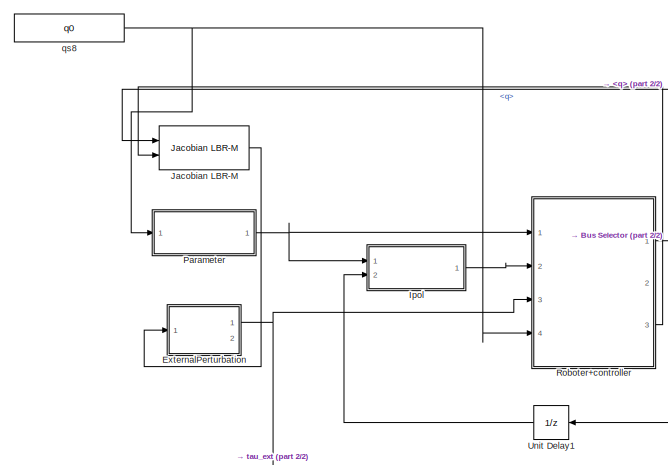
[diagram: root canvas - part 1/2, top left region]
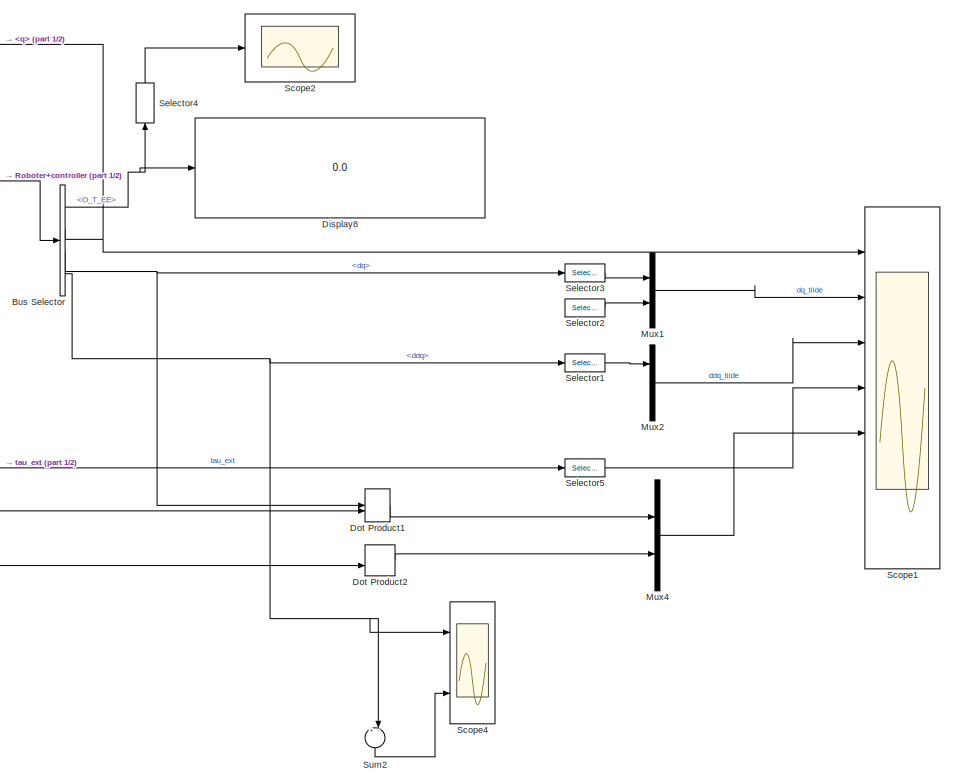
[diagram: root canvas - part 2/2, right side, full height]
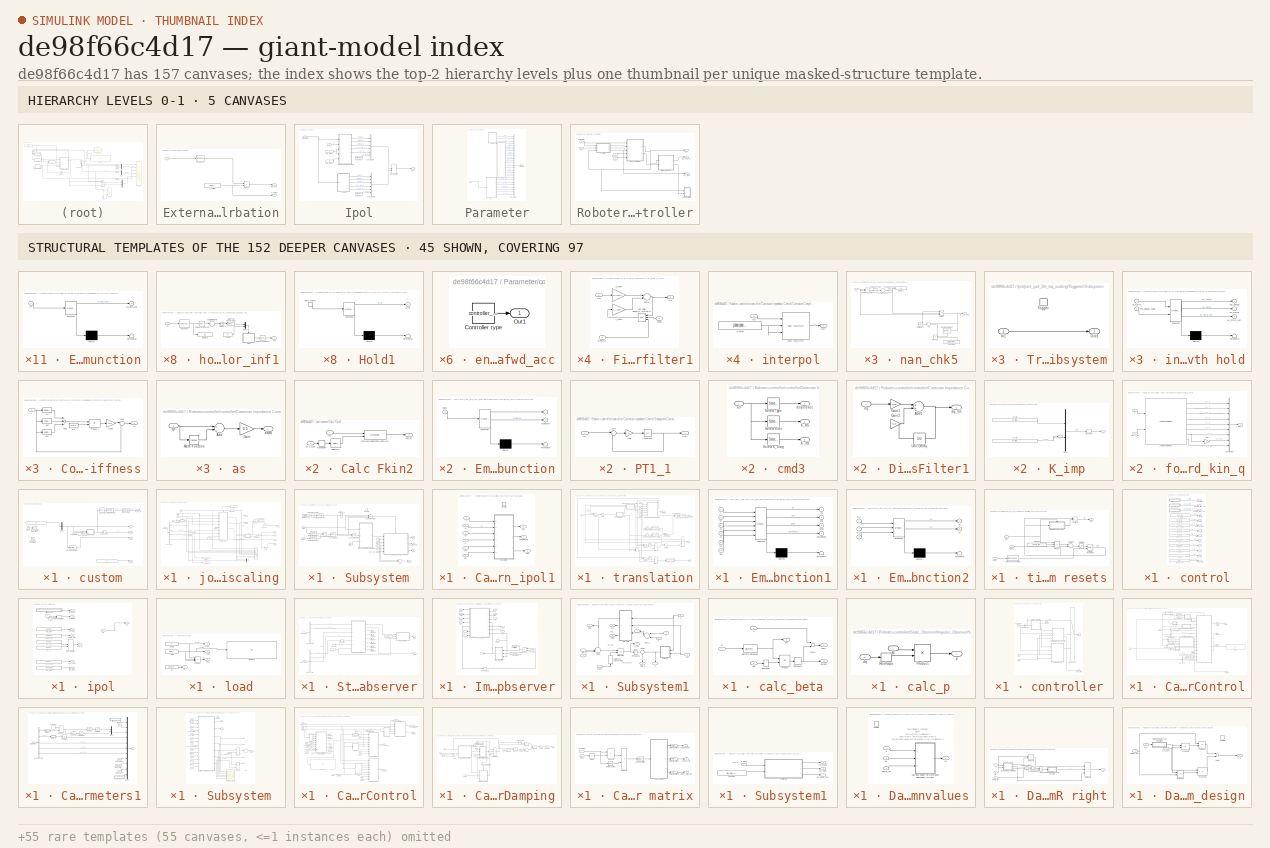
[diagram: thumbnail index - top-2 hierarchy levels (5 canvases) + 45 structural-template representatives of the remaining 152 canvases]
MODEL slx_de98f66c4d17
KIND model
CONFIG InitFcn = initModell
CONFIG PreLoadFcn = initModell
BLOCK [BusSelector] Bus Selector
  OutputSignals = Transform_theta.O_T_EE,q,dq,ddq
  Ports = [1, 4]
BLOCK [Display] Display8
  Decimation = 1
  Ports = [1]
BLOCK [DotProduct] Dot Product1
  OutDataTypeStr = Inherit: Inherit via internal rule
BLOCK [DotProduct] Dot Product2
  OutDataTypeStr = Inherit: Inherit via internal rule
BLOCK [SubSystem] ExternalPerturbation
  Ports = [1, 2]
  RequestExecContextInheritance = off
BLOCK [Constant] ExternalPerturbation/F_ext (EE)
  Tag = Fext
  Value = [0; 0; 0; 0; 0; 0]
BLOCK [Outport] ExternalPerturbation/F_ext(EE)
  IconDisplay = Port number
  Port = 2
BLOCK [Inport] ExternalPerturbation/J
  IconDisplay = Port number
BLOCK [Product] ExternalPerturbation/Product
  InputSameDT = off
  Multiplication = Matrix(*)
  OutDataTypeStr = Inherit: Inherit via internal rule
  Ports = [2, 1]
  SaturateOnIntegerOverflow = off
BLOCK [Reference] ExternalPerturbation/Transpose  REF=dspmtrx3/Transpose
  Hermitian = off
  Ports = [1, 1]
  SourceBlock = dspmtrx3/Transpose
  SourceType = Transpose
  overflowFlag = off
BLOCK [Outport] ExternalPerturbation/tau_ext
  IconDisplay = Port number
BLOCK [SubSystem] Ipol
  Ports = [2, 1]
  RequestExecContextInheritance = off
BLOCK [BusCreator] Ipol/Bus Creator
  DisplayOption = bar
  Inputs = 6
  Ports = [6, 1]
BLOCK [BusCreator] Ipol/Bus Creator1
  DisplayOption = bar
  Inputs = 6
  Ports = [6, 1]
BLOCK [ManualSwitch] Ipol/Manual Switch
  CurrentSetting = 0
BLOCK [Inport] Ipol/Parameters
  IconDisplay = Port number
BLOCK [Inport] Ipol/Robot
  IconDisplay = Port number
  Port = 2
BLOCK [SubSystem] Ipol/custom
  Ports = [1, 5]
  RequestExecContextInheritance = off
BLOCK [Outport] Ipol/custom/0_dX_d
  IconDisplay = Port number
  Port = 5
BLOCK [BusSelector] Ipol/custom/Bus Selector3
  OutputSignals = q2,dq_max,ddq_max,TCP_T_EE
  Ports = [1, 4]
BLOCK [SubSystem] Ipol/custom/Calc Fkin2
  Ports = [2, 1]
  RequestExecContextInheritance = off
  SystemSampleTime = 0.034
BLOCK [Outport] Ipol/custom/Calc Fkin2/FKin_d2
  IconDisplay = Port number
BLOCK [S-Function] Ipol/custom/Calc Fkin2/Forward Kinematics LBR-M3
  EnableBusSupport = off
  FunctionName = lbrmdirkin_sfun
  Ports = [2, 1]
BLOCK [Inport] Ipol/custom/Calc Fkin2/In1
  IconDisplay = Port number
BLOCK [Reshape] Ipol/custom/Calc Fkin2/Reshape4
  OutputDimensionality = Customize
  OutputDimensions = [4,4]
  Ports = [1, 1]
BLOCK [Selector] Ipol/custom/Calc Fkin2/Selector1
  IndexOptions = Index vector (dialog),Select all
  Indices = 1:3,-1
  InputPortWidth = 3
  NumberOfDimensions = 2
  Ports = [1, 1]
BLOCK [Inport] Ipol/custom/Calc Fkin2/TCP_T_EE
  IconDisplay = Port number
  Port = 2
BLOCK [Clock] Ipol/custom/Clock
BLOCK [Reference] Ipol/custom/Discrete Derivative1  REF=simulink/Discrete/Discrete Derivative
  DoSatur = off
  ICPrevScaledInput = 0.0
  InputProcessing = Inherited
  LockScale = off
  OutDataType = sfix(16)
  OutDataTypeStr = Inherit: Inherit via internal rule
  OutMax = []
  OutMin = []
  OutScaling = 2^-10
  OutputDataTypeScalingMode = Inherit via internal rule
  Ports = [1, 1]
  RndMeth = Floor
  SourceBlock = simulink/Discrete/Discrete Derivative
  SourceType = Discrete Derivative
  gainval = 1.0
BLOCK [Reference] Ipol/custom/Discrete Derivative2  REF=simulink/Discrete/Discrete Derivative
  DoSatur = off
  ICPrevScaledInput = 0.0
  InputProcessing = Inherited
  LockScale = off
  OutDataType = sfix(16)
  OutDataTypeStr = Inherit: Inherit via internal rule
  OutMax = []
  OutMin = []
  OutScaling = 2^-10
  OutputDataTypeScalingMode = Inherit via internal rule
  Ports = [1, 1]
  RndMeth = Floor
  SourceBlock = simulink/Discrete/Discrete Derivative
  SourceType = Discrete Derivative
  gainval = 1.0
BLOCK [Mux] Ipol/custom/Mux3
  DisplayOption = bar
  Inputs = 1
  Ports = [1, 1]
BLOCK [Reshape] Ipol/custom/Reshape1
  OutputDimensions = [3,4]
  Ports = [1, 1]
BLOCK [Reshape] Ipol/custom/Reshape4
  OutputDimensions = [3,4]
  Ports = [1, 1]
BLOCK [Selector] Ipol/custom/Selector
  IndexOptions = Index vector (dialog),Index vector (dialog)
  Indices = [1:3],4
  InputPortWidth = 3
  NumberOfDimensions = 2
  OutputSizes = 1,1
  Ports = [1, 1]
BLOCK [Sin] Ipol/custom/Sine Wave Function
  Amplitude = 0.0
  Frequency = 3
  Ports = [0, 1]
  SampleTime = 0
BLOCK [Outport] Ipol/custom/T_d
  IconDisplay = Port number
  Port = 4
BLOCK [Trigonometry] Ipol/custom/Trigonometric Function
  Ports = [1, 1]
BLOCK [Outport] Ipol/custom/ddq_d
  IconDisplay = Port number
  Port = 3
BLOCK [Outport] Ipol/custom/dq_d
  IconDisplay = Port number
  Port = 2
BLOCK [Inport] Ipol/custom/parameters
  IconDisplay = Port number
BLOCK [Outport] Ipol/custom/q_d
  IconDisplay = Port number
BLOCK [Constant] Ipol/custom/qs1
  Value = q0
BLOCK [Constant] Ipol/custom/qs2
  Value = q0
BLOCK [Constant] Ipol/dq_max1
  Value = zeros(7,1)
BLOCK [Constant] Ipol/dq_max5
  Value = zeros(7,1)
BLOCK [Constant] Ipol/dq_max6
BLOCK [Constant] Ipol/dq_max7
  Value = 0
BLOCK [Outport] Ipol/ipol
  IconDisplay = Port number
BLOCK [SubSystem] Ipol/joint_ipol_5th_traj_scaling
  Ports = [5, 7]
  RequestExecContextInheritance = off
BLOCK [Outport] Ipol/joint_ipol_5th_traj_scaling/0_dX_d
  IconDisplay = Port number
  Port = 5
BLOCK [BusSelector] Ipol/joint_ipol_5th_traj_scaling/Bus Selector1
  OutputSignals = q
  Ports = [1, 1]
BLOCK [BusSelector] Ipol/joint_ipol_5th_traj_scaling/Bus Selector3
  OutputSignals = q2,dq_max,ddq_max,TCP_T_EE
  Ports = [1, 4]
BLOCK [SubSystem] Ipol/joint_ipol_5th_traj_scaling/Calc Fkin2
  Ports = [2, 1]
  RequestExecContextInheritance = off
  SystemSampleTime = 0.034
BLOCK [Outport] Ipol/joint_ipol_5th_traj_scaling/Calc Fkin2/FKin_d2
  IconDisplay = Port number
BLOCK [S-Function] Ipol/joint_ipol_5th_traj_scaling/Calc Fkin2/Forward Kinematics LBR-M3
  EnableBusSupport = off
  FunctionName = lbrmdirkin_sfun
  Ports = [2, 1]
BLOCK [Inport] Ipol/joint_ipol_5th_traj_scaling/Calc Fkin2/In1
  IconDisplay = Port number
BLOCK [Reshape] Ipol/joint_ipol_5th_traj_scaling/Calc Fkin2/Reshape4
  OutputDimensionality = Customize
  OutputDimensions = [4,4]
  Ports = [1, 1]
BLOCK [Selector] Ipol/joint_ipol_5th_traj_scaling/Calc Fkin2/Selector1
  IndexOptions = Index vector (dialog),Select all
  Indices = 1:3,-1
  InputPortWidth = 3
  NumberOfDimensions = 2
  Ports = [1, 1]
BLOCK [Inport] Ipol/joint_ipol_5th_traj_scaling/Calc Fkin2/TCP_T_EE
  IconDisplay = Port number
  Port = 2
BLOCK [Reference] Ipol/joint_ipol_5th_traj_scaling/Discrete Derivative1  REF=simulink/Discrete/Discrete Derivative
  DoSatur = off
  ICPrevScaledInput = 0.0
  InputProcessing = Inherited
  LockScale = off
  OutDataType = sfix(16)
  OutDataTypeStr = Inherit: Inherit via internal rule
  OutMax = []
  OutMin = []
  OutScaling = 2^-10
  OutputDataTypeScalingMode = Inherit via internal rule
  Ports = [1, 1]
  RndMeth = Floor
  SourceBlock = simulink/Discrete/Discrete Derivative
  SourceType = Discrete Derivative
  gainval = 1.0
BLOCK [Display] Ipol/joint_ipol_5th_traj_scaling/Display2
  Decimation = 1
  Ports = [1]
BLOCK [Display] Ipol/joint_ipol_5th_traj_scaling/Display3
  Decimation = 1
  Ports = [1]
BLOCK [Display] Ipol/joint_ipol_5th_traj_scaling/Display5
  Decimation = 1
  Ports = [1]
BLOCK [Gain] Ipol/joint_ipol_5th_traj_scaling/Gain
  OutDataTypeStr = Inherit: Inherit via internal rule
  ParamDataTypeStr = Inherit: Inherit via internal rule
  SaturateOnIntegerOverflow = off
BLOCK [Ground] Ipol/joint_ipol_5th_traj_scaling/Ground1
BLOCK [Delay] Ipol/joint_ipol_5th_traj_scaling/Integer Delay
  DelayLength = 4
  InputPortMap = u0
  InputProcessing = Inherited
  Ports = [1, 1]
BLOCK [Mux] Ipol/joint_ipol_5th_traj_scaling/Mux
  DisplayOption = bar
  Inputs = 2
  Ports = [2, 1]
BLOCK [Reshape] Ipol/joint_ipol_5th_traj_scaling/Reshape1
  OutputDimensions = [3,4]
  Ports = [1, 1]
BLOCK [Reshape] Ipol/joint_ipol_5th_traj_scaling/Reshape4
  OutputDimensions = [3,4]
  Ports = [1, 1]
BLOCK [Scope] Ipol/joint_ipol_5th_traj_scaling/Scope1
  DataFormat = StructureWithTime
  Floating = off
  LimitDataPoints = off
  NumInputPorts = 8
  Ports = [8]
  SampleTime = 0
  SaveName = ScopeData52
  ShowLegends = off
  YMax = 1~1~0.8~1~1.05~1~1~1
  YMin = -1~-1~-0.1~0~0.95~-1~0~0
  ZoomMode = xonly
BLOCK [Selector] Ipol/joint_ipol_5th_traj_scaling/Selector
  IndexOptions = Index vector (dialog),Index vector (dialog)
  Indices = [1:3],4
  InputPortWidth = 3
  NumberOfDimensions = 2
  OutputSizes = 1,1
  Ports = [1, 1]
BLOCK [SubSystem] Ipol/joint_ipol_5th_traj_scaling/Subsystem
  Ports = [8, 4, 1]
  RequestExecContextInheritance = off
BLOCK [Sum] Ipol/joint_ipol_5th_traj_scaling/Subsystem/Add
  InputSameDT = off
  Inputs = +-
  OutDataTypeStr = Inherit: Inherit via internal rule
  Ports = [2, 1]
  SaturateOnIntegerOverflow = off
BLOCK [SubSystem] Ipol/joint_ipol_5th_traj_scaling/Subsystem/Cartesian_ipol1
  Ports = [6, 3, 1]
  RequestExecContextInheritance = off
  TreatAsAtomicUnit = on
BLOCK [EnablePort] Ipol/joint_ipol_5th_traj_scaling/Subsystem/Cartesian_ipol1/Enable
  Ports = []
BLOCK [Inport] Ipol/joint_ipol_5th_traj_scaling/Subsystem/Cartesian_ipol1/am
  IconDisplay = Port number
  Port = 6
BLOCK [Outport] Ipol/joint_ipol_5th_traj_scaling/Subsystem/Cartesian_ipol1/dqd
  IconDisplay = Port number
  Port = 3
BLOCK [Outport] Ipol/joint_ipol_5th_traj_scaling/Subsystem/Cartesian_ipol1/ipol_finished
  IconDisplay = Port number
  Port = 2
BLOCK [Outport] Ipol/joint_ipol_5th_traj_scaling/Subsystem/Cartesian_ipol1/qd
  IconDisplay = Port number
BLOCK [Inport] Ipol/joint_ipol_5th_traj_scaling/Subsystem/Cartesian_ipol1/s0
  IconDisplay = Port number
  Port = 2
BLOCK [Inport] Ipol/joint_ipol_5th_traj_scaling/Subsystem/Cartesian_ipol1/sf
  IconDisplay = Port number
  Port = 4
BLOCK [Inport] Ipol/joint_ipol_5th_traj_scaling/Subsystem/Cartesian_ipol1/t
  IconDisplay = Port number
BLOCK [SubSystem] Ipol/joint_ipol_5th_traj_scaling/Subsystem/Cartesian_ipol1/translation
  Ports = [6, 3]
  RequestExecContextInheritance = off
BLOCK [Abs] Ipol/joint_ipol_5th_traj_scaling/Subsystem/Cartesian_ipol1/translation/Abs1
  SaturateOnIntegerOverflow = off
BLOCK [Abs] Ipol/joint_ipol_5th_traj_scaling/Subsystem/Cartesian_ipol1/translation/Abs3
  SaturateOnIntegerOverflow = off
BLOCK [Abs] Ipol/joint_ipol_5th_traj_scaling/Subsystem/Cartesian_ipol1/translation/Abs4
  SaturateOnIntegerOverflow = off
BLOCK [Reference] Ipol/joint_ipol_5th_traj_scaling/Subsystem/Cartesian_ipol1/translation/Compare To Zero1  REF=simulink/Logic and Bit
Operations/Compare
To Zero
  OutDataTypeStr = uint8
  Ports = [1, 1]
  SourceBlock = simulink/Logic and Bit\nOperations/Compare\nTo Zero
  SourceType = Compare To Zero
  ZeroCross = off
  relop = ==
BLOCK [Reference] Ipol/joint_ipol_5th_traj_scaling/Subsystem/Cartesian_ipol1/translation/Compare To Zero2  REF=simulink/Logic and Bit
Operations/Compare
To Zero
  OutDataTypeStr = uint8
  Ports = [1, 1]
  SourceBlock = simulink/Logic and Bit\nOperations/Compare\nTo Zero
  SourceType = Compare To Zero
  ZeroCross = off
  relop = >
BLOCK [DataTypeConversion] Ipol/joint_ipol_5th_traj_scaling/Subsystem/Cartesian_ipol1/translation/Data Type Conversion
  OutDataTypeStr = boolean
  RndMeth = Floor
  SaturateOnIntegerOverflow = off
BLOCK [DataTypeConversion] Ipol/joint_ipol_5th_traj_scaling/Subsystem/Cartesian_ipol1/translation/Data Type Conversion1
  OutDataTypeStr = boolean
  RndMeth = Floor
  SaturateOnIntegerOverflow = off
BLOCK [DataTypeConversion] Ipol/joint_ipol_5th_traj_scaling/Subsystem/Cartesian_ipol1/translation/Data Type Conversion3
  OutDataTypeStr = double
  RndMeth = Floor
  SaturateOnIntegerOverflow = off
BLOCK [Product] Ipol/joint_ipol_5th_traj_scaling/Subsystem/Cartesian_ipol1/translation/Divide1
  InputSameDT = off
  Inputs = **
  OutDataTypeStr = Inherit: Inherit via internal rule
  Ports = [2, 1]
  RndMeth = Floor
  SaturateOnIntegerOverflow = off
BLOCK [Product] Ipol/joint_ipol_5th_traj_scaling/Subsystem/Cartesian_ipol1/translation/Divide6
  InputSameDT = off
  Inputs = **
  OutDataTypeStr = Inherit: Inherit via internal rule
  Ports = [2, 1]
  RndMeth = Floor
  SaturateOnIntegerOverflow = off
BLOCK [Product] Ipol/joint_ipol_5th_traj_scaling/Subsystem/Cartesian_ipol1/translation/Divide7
  InputSameDT = off
  Inputs = */
  OutDataTypeStr = Inherit: Inherit via internal rule
  Ports = [2, 1]
  RndMeth = Floor
  SaturateOnIntegerOverflow = off
BLOCK [SubSystem] Ipol/joint_ipol_5th_traj_scaling/Subsystem/Cartesian_ipol1/translation/Embedded MATLAB Function
  ErrorFcn = Stateflow.Translate.translate
  PermitHierarchicalResolution = ExplicitOnly
  Ports = [1, 2]
  RequestExecContextInheritance = off
  SFBlockType = MATLAB Function
  TreatAsAtomicUnit = on
BLOCK [Demux] Ipol/joint_ipol_5th_traj_scaling/Subsystem/Cartesian_ipol1/translation/Embedded MATLAB Function/ Demux 
  Outputs = 1
  Ports = [1, 1]
BLOCK [S-Function] Ipol/joint_ipol_5th_traj_scaling/Subsystem/Cartesian_ipol1/translation/Embedded MATLAB Function/ SFunction 
  EnableBusSupport = on
  FunctionName = sf_sfun
  PortCounts = [1 3]
  Ports = [1, 3]
  Tag = Stateflow S-Function minimal_rcu_full 35
BLOCK [Terminator] Ipol/joint_ipol_5th_traj_scaling/Subsystem/Cartesian_ipol1/translation/Embedded MATLAB Function/ Terminator 
BLOCK [Inport] Ipol/joint_ipol_5th_traj_scaling/Subsystem/Cartesian_ipol1/translation/Embedded MATLAB Function/delta
  IconDisplay = Port number
BLOCK [Outport] Ipol/joint_ipol_5th_traj_scaling/Subsystem/Cartesian_ipol1/translation/Embedded MATLAB Function/i
  IconDisplay = Port number
BLOCK [Outport] Ipol/joint_ipol_5th_traj_scaling/Subsystem/Cartesian_ipol1/translation/Embedded MATLAB Function/maximum
  IconDisplay = Port number
  Port = 2
BLOCK [SubSystem] Ipol/joint_ipol_5th_traj_scaling/Subsystem/Cartesian_ipol1/translation/Embedded MATLAB Function1
  ErrorFcn = Stateflow.Translate.translate
  PermitHierarchicalResolution = ExplicitOnly
  Ports = [6, 4]
  RequestExecContextInheritance = off
  SFBlockType = MATLAB Function
  TreatAsAtomicUnit = on
BLOCK [Demux] Ipol/joint_ipol_5th_traj_scaling/Subsystem/Cartesian_ipol1/translation/Embedded MATLAB Function1/ Demux 
  Outputs = 1
  Ports = [1, 1]
BLOCK [S-Function] Ipol/joint_ipol_5th_traj_scaling/Subsystem/Cartesian_ipol1/translation/Embedded MATLAB Function1/ SFunction 
  EnableBusSupport = on
  FunctionName = sf_sfun
  PortCounts = [6 5]
  Ports = [6, 5]
  Tag = Stateflow S-Function minimal_rcu_full 36
BLOCK [Terminator] Ipol/joint_ipol_5th_traj_scaling/Subsystem/Cartesian_ipol1/translation/Embedded MATLAB Function1/ Terminator 
BLOCK [Inport] Ipol/joint_ipol_5th_traj_scaling/Subsystem/Cartesian_ipol1/translation/Embedded MATLAB Function1/am
  IconDisplay = Port number
  Port = 6
BLOCK [Outport] Ipol/joint_ipol_5th_traj_scaling/Subsystem/Cartesian_ipol1/translation/Embedded MATLAB Function1/ddqd
  IconDisplay = Port number
  Port = 3
BLOCK [Outport] Ipol/joint_ipol_5th_traj_scaling/Subsystem/Cartesian_ipol1/translation/Embedded MATLAB Function1/dqd
  IconDisplay = Port number
  Port = 2
BLOCK [Outport] Ipol/joint_ipol_5th_traj_scaling/Subsystem/Cartesian_ipol1/translation/Embedded MATLAB Function1/ipol_finished
  IconDisplay = Port number
  Port = 4
BLOCK [Outport] Ipol/joint_ipol_5th_traj_scaling/Subsystem/Cartesian_ipol1/translation/Embedded MATLAB Function1/qd
  IconDisplay = Port number
BLOCK [Inport] Ipol/joint_ipol_5th_traj_scaling/Subsystem/Cartesian_ipol1/translation/Embedded MATLAB Function1/s0
  IconDisplay = Port number
  Port = 2
BLOCK [Inport] Ipol/joint_ipol_5th_traj_scaling/Subsystem/Cartesian_ipol1/translation/Embedded MATLAB Function1/sf
  IconDisplay = Port number
  Port = 4
BLOCK [Inport] Ipol/joint_ipol_5th_traj_scaling/Subsystem/Cartesian_ipol1/translation/Embedded MATLAB Function1/t
  IconDisplay = Port number
BLOCK [Inport] Ipol/joint_ipol_5th_traj_scaling/Subsystem/Cartesian_ipol1/translation/Embedded MATLAB Function1/v0
  IconDisplay = Port number
  Port = 3
BLOCK [Inport] Ipol/joint_ipol_5th_traj_scaling/Subsystem/Cartesian_ipol1/translation/Embedded MATLAB Function1/vm
  IconDisplay = Port number
  Port = 5
BLOCK [SubSystem] Ipol/joint_ipol_5th_traj_scaling/Subsystem/Cartesian_ipol1/translation/Embedded MATLAB Function2
  ErrorFcn = Stateflow.Translate.translate
  PermitHierarchicalResolution = ExplicitOnly
  Ports = [3, 2]
  RequestExecContextInheritance = off
  SFBlockType = MATLAB Function
  TreatAsAtomicUnit = on
BLOCK [Demux] Ipol/joint_ipol_5th_traj_scaling/Subsystem/Cartesian_ipol1/translation/Embedded MATLAB Function2/ Demux 
  Outputs = 1
  Ports = [1, 1]
BLOCK [S-Function] Ipol/joint_ipol_5th_traj_scaling/Subsystem/Cartesian_ipol1/translation/Embedded MATLAB Function2/ SFunction 
  EnableBusSupport = on
  FunctionName = sf_sfun
  PortCounts = [3 3]
  Ports = [3, 3]
  Tag = Stateflow S-Function minimal_rcu_full 37
BLOCK [Terminator] Ipol/joint_ipol_5th_traj_scaling/Subsystem/Cartesian_ipol1/translation/Embedded MATLAB Function2/ Terminator 
BLOCK [Inport] Ipol/joint_ipol_5th_traj_scaling/Subsystem/Cartesian_ipol1/translation/Embedded MATLAB Function2/i
  IconDisplay = Port number
  Port = 3
BLOCK [Outport] Ipol/joint_ipol_5th_traj_scaling/Subsystem/Cartesian_ipol1/translation/Embedded MATLAB Function2/s0
  IconDisplay = Port number
BLOCK [Inport] Ipol/joint_ipol_5th_traj_scaling/Subsystem/Cartesian_ipol1/translation/Embedded MATLAB Function2/s0_q
  IconDisplay = Port number
BLOCK [Outport] Ipol/joint_ipol_5th_traj_scaling/Subsystem/Cartesian_ipol1/translation/Embedded MATLAB Function2/sf
  IconDisplay = Port number
  Port = 2
BLOCK [Inport] Ipol/joint_ipol_5th_traj_scaling/Subsystem/Cartesian_ipol1/translation/Embedded MATLAB Function2/sf_q
  IconDisplay = Port number
  Port = 2
BLOCK [Logic] Ipol/joint_ipol_5th_traj_scaling/Subsystem/Cartesian_ipol1/translation/Logical Operator
  AllPortsSameDT = off
  OutDataTypeStr = boolean
  Ports = [2, 1]
BLOCK [Logic] Ipol/joint_ipol_5th_traj_scaling/Subsystem/Cartesian_ipol1/translation/Logical Operator1
  AllPortsSameDT = off
  Operator = OR
  OutDataTypeStr = boolean
  Ports = [2, 1]
BLOCK [Sum] Ipol/joint_ipol_5th_traj_scaling/Subsystem/Cartesian_ipol1/translation/Subtract1
  InputSameDT = off
  Inputs = +-
  OutDataTypeStr = Inherit: Inherit via internal rule
  Ports = [2, 1]
  SaturateOnIntegerOverflow = off
BLOCK [Sum] Ipol/joint_ipol_5th_traj_scaling/Subsystem/Cartesian_ipol1/translation/Subtract3
  InputSameDT = off
  Inputs = +-
  OutDataTypeStr = Inherit: Inherit via internal rule
  Ports = [2, 1]
  SaturateOnIntegerOverflow = off
BLOCK [Sum] Ipol/joint_ipol_5th_traj_scaling/Subsystem/Cartesian_ipol1/translation/Subtract4
  InputSameDT = off
  OutDataTypeStr = Inherit: Inherit via internal rule
  Ports = [2, 1]
  SaturateOnIntegerOverflow = off
BLOCK [Sum] Ipol/joint_ipol_5th_traj_scaling/Subsystem/Cartesian_ipol1/translation/Subtract5
  InputSameDT = off
  Inputs = +-
  OutDataTypeStr = Inherit: Inherit via internal rule
  Ports = [2, 1]
  SaturateOnIntegerOverflow = off
BLOCK [Switch] Ipol/joint_ipol_5th_traj_scaling/Subsystem/Cartesian_ipol1/translation/Switch3
  Criteria = u2 > Threshold
  InputSameDT = off
  SaturateOnIntegerOverflow = off
BLOCK [Terminator] Ipol/joint_ipol_5th_traj_scaling/Subsystem/Cartesian_ipol1/translation/Terminator1
BLOCK [Inport] Ipol/joint_ipol_5th_traj_scaling/Subsystem/Cartesian_ipol1/translation/ddq_max
  IconDisplay = Port number
  Port = 6
BLOCK [Inport] Ipol/joint_ipol_5th_traj_scaling/Subsystem/Cartesian_ipol1/translation/dq_1
  IconDisplay = Port number
  Port = 3
BLOCK [Inport] Ipol/joint_ipol_5th_traj_scaling/Subsystem/Cartesian_ipol1/translation/dq_max
  IconDisplay = Port number
  Port = 5
BLOCK [Outport] Ipol/joint_ipol_5th_traj_scaling/Subsystem/Cartesian_ipol1/translation/dqd
  IconDisplay = Port number
  Port = 3
BLOCK [Outport] Ipol/joint_ipol_5th_traj_scaling/Subsystem/Cartesian_ipol1/translation/ipol_finnished
  IconDisplay = Port number
  Port = 2
BLOCK [SubSystem] Ipol/joint_ipol_5th_traj_scaling/Subsystem/Cartesian_ipol1/translation/nan_chk5
  Ports = [1, 1]
  RequestExecContextInheritance = off
BLOCK [Sum] Ipol/joint_ipol_5th_traj_scaling/Subsystem/Cartesian_ipol1/translation/nan_chk5/Add
  InputSameDT = off
  OutDataTypeStr = Inherit: Inherit via internal rule
  Ports = [2, 1]
  SaturateOnIntegerOverflow = off
BLOCK [Reference] Ipol/joint_ipol_5th_traj_scaling/Subsystem/Cartesian_ipol1/translation/nan_chk5/Compare To Zero  REF=simulink/Logic and Bit
Operations/Compare
To Zero
  OutDataTypeStr = uint8
  Ports = [1, 1]
  SourceBlock = simulink/Logic and Bit\nOperations/Compare\nTo Zero
  SourceType = Compare To Zero
  ZeroCross = off
  relop = ==
BLOCK [Reference] Ipol/joint_ipol_5th_traj_scaling/Subsystem/Cartesian_ipol1/translation/nan_chk5/Compare To Zero1  REF=simulink/Logic and Bit
Operations/Compare
To Zero
  OutDataTypeStr = uint8
  Ports = [1, 1]
  SourceBlock = simulink/Logic and Bit\nOperations/Compare\nTo Zero
  SourceType = Compare To Zero
  ZeroCross = off
  relop = >
BLOCK [Constant] Ipol/joint_ipol_5th_traj_scaling/Subsystem/Cartesian_ipol1/translation/nan_chk5/Constant2
  Value = sample_time_model
BLOCK [Reference] Ipol/joint_ipol_5th_traj_scaling/Subsystem/Cartesian_ipol1/translation/nan_chk5/Discrete Derivative2  REF=simulink/Discrete/Discrete Derivative
  DoSatur = off
  ICPrevScaledInput = 0.0
  InputProcessing = Inherited
  LockScale = off
  OutDataType = sfix(16)
  OutDataTypeStr = Inherit: Inherit via internal rule
  OutMax = []
  OutMin = []
  OutScaling = 2^-10
  OutputDataTypeScalingMode = Inherit via internal rule
  Ports = [1, 1]
  RndMeth = Floor
  SourceBlock = simulink/Discrete/Discrete Derivative
  SourceType = Discrete Derivative
  gainval = 1.0
BLOCK [Display] Ipol/joint_ipol_5th_traj_scaling/Subsystem/Cartesian_ipol1/translation/nan_chk5/Display1
  Decimation = 1
  Ports = [1]
BLOCK [Product] Ipol/joint_ipol_5th_traj_scaling/Subsystem/Cartesian_ipol1/translation/nan_chk5/Product1
  InputSameDT = off
  OutDataTypeStr = Inherit: Inherit via internal rule
  Ports = [2, 1]
  SaturateOnIntegerOverflow = off
BLOCK [RelationalOperator] Ipol/joint_ipol_5th_traj_scaling/Subsystem/Cartesian_ipol1/translation/nan_chk5/Relational Operator
  InputSameDT = off
  Operator = ==
  OutDataTypeStr = boolean
  Ports = [2, 1]
BLOCK [Sum] Ipol/joint_ipol_5th_traj_scaling/Subsystem/Cartesian_ipol1/translation/nan_chk5/Sum of Elements
  InputSameDT = off
  Inputs = +
  OutDataTypeStr = Inherit: Inherit via internal rule
  Ports = [1, 1]
  SaturateOnIntegerOverflow = off
BLOCK [Switch] Ipol/joint_ipol_5th_traj_scaling/Subsystem/Cartesian_ipol1/translation/nan_chk5/Switch
  Criteria = u2 > Threshold
  InputSameDT = off
  SaturateOnIntegerOverflow = off
BLOCK [UnitDelay] Ipol/joint_ipol_5th_traj_scaling/Subsystem/Cartesian_ipol1/translation/nan_chk5/Unit Delay1
  SampleTime = -1
BLOCK [Inport] Ipol/joint_ipol_5th_traj_scaling/Subsystem/Cartesian_ipol1/translation/nan_chk5/in
  IconDisplay = Port number
BLOCK [Outport] Ipol/joint_ipol_5th_traj_scaling/Subsystem/Cartesian_ipol1/translation/nan_chk5/in_checked
  IconDisplay = Port number
BLOCK [Inport] Ipol/joint_ipol_5th_traj_scaling/Subsystem/Cartesian_ipol1/translation/q_1
  IconDisplay = Port number
  Port = 2
BLOCK [Inport] Ipol/joint_ipol_5th_traj_scaling/Subsystem/Cartesian_ipol1/translation/q_2
  IconDisplay = Port number
  Port = 4
BLOCK [Outport] Ipol/joint_ipol_5th_traj_scaling/Subsystem/Cartesian_ipol1/translation/q_d
  IconDisplay = Port number
BLOCK [Inport] Ipol/joint_ipol_5th_traj_scaling/Subsystem/Cartesian_ipol1/translation/t
  IconDisplay = Port number
BLOCK [Inport] Ipol/joint_ipol_5th_traj_scaling/Subsystem/Cartesian_ipol1/v0
  IconDisplay = Port number
  Port = 3
BLOCK [Inport] Ipol/joint_ipol_5th_traj_scaling/Subsystem/Cartesian_ipol1/vm
  IconDisplay = Port number
  Port = 5
BLOCK [Reference] Ipol/joint_ipol_5th_traj_scaling/Subsystem/Compare To Zero  REF=simulink/Logic and Bit
Operations/Compare
To Zero
  OutDataTypeStr = uint8
  Ports = [1, 1]
  SourceBlock = simulink/Logic and Bit\nOperations/Compare\nTo Zero
  SourceType = Compare To Zero
  ZeroCross = off
  relop = >
BLOCK [DataTypeConversion] Ipol/joint_ipol_5th_traj_scaling/Subsystem/Data Type Conversion1
  OutDataTypeStr = double
  RndMeth = Floor
  SaturateOnIntegerOverflow = off
BLOCK [Reference] Ipol/joint_ipol_5th_traj_scaling/Subsystem/Detect Increase1  REF=simulink/Logic and Bit
Operations/Detect
Increase
  InputProcessing = Inherited
  OutDataTypeStr = uint8
  Ports = [1, 1]
  SourceBlock = simulink/Logic and Bit\nOperations/Detect\nIncrease
  SourceType = Detect Increase
  vinit = 0.0
BLOCK [Reference] Ipol/joint_ipol_5th_traj_scaling/Subsystem/Detect Increase2  REF=simulink/Logic and Bit
Operations/Detect
Increase
  InputProcessing = Inherited
  OutDataTypeStr = uint8
  Ports = [1, 1]
  SourceBlock = simulink/Logic and Bit\nOperations/Detect\nIncrease
  SourceType = Detect Increase
  vinit = 0.0
BLOCK [Reference] Ipol/joint_ipol_5th_traj_scaling/Subsystem/Detect Increase3  REF=simulink/Logic and Bit
Operations/Detect
Increase
  InputProcessing = Inherited
  OutDataTypeStr = uint8
  Ports = [1, 1]
  SourceBlock = simulink/Logic and Bit\nOperations/Detect\nIncrease
  SourceType = Detect Increase
  vinit = 0.0
BLOCK [DigitalClock] Ipol/joint_ipol_5th_traj_scaling/Subsystem/Digital Clock2
  SampleTime = sample_time_model
BLOCK [EnablePort] Ipol/joint_ipol_5th_traj_scaling/Subsystem/Enable
  Ports = []
BLOCK [Logic] Ipol/joint_ipol_5th_traj_scaling/Subsystem/Logical Operator
  AllPortsSameDT = off
  Inputs = 3
  Operator = OR
  OutDataTypeStr = boolean
  Ports = [3, 1]
BLOCK [Logic] Ipol/joint_ipol_5th_traj_scaling/Subsystem/Logical Operator1
  AllPortsSameDT = off
  Operator = OR
  OutDataTypeStr = boolean
  Ports = [2, 1]
BLOCK [Logic] Ipol/joint_ipol_5th_traj_scaling/Subsystem/Logical Operator3
  AllPortsSameDT = off
  Operator = OR
  OutDataTypeStr = boolean
  Ports = [2, 1]
BLOCK [UnitDelay] Ipol/joint_ipol_5th_traj_scaling/Subsystem/Unit Delay1
  SampleTime = -1
BLOCK [Inport] Ipol/joint_ipol_5th_traj_scaling/Subsystem/ddq_max
  IconDisplay = Port number
  Port = 7
BLOCK [Inport] Ipol/joint_ipol_5th_traj_scaling/Subsystem/delta_t
  IconDisplay = Port number
  Port = 8
BLOCK [Inport] Ipol/joint_ipol_5th_traj_scaling/Subsystem/dq_1
  IconDisplay = Port number
  Port = 5
BLOCK [Inport] Ipol/joint_ipol_5th_traj_scaling/Subsystem/dq_max
  IconDisplay = Port number
  Port = 6
BLOCK [Outport] Ipol/joint_ipol_5th_traj_scaling/Subsystem/dqd
  IconDisplay = Port number
  Port = 3
BLOCK [Outport] Ipol/joint_ipol_5th_traj_scaling/Subsystem/ipol_finished
  IconDisplay = Port number
  Port = 2
BLOCK [Outport] Ipol/joint_ipol_5th_traj_scaling/Subsystem/q2-q1
  IconDisplay = Port number
  Port = 4
BLOCK [Inport] Ipol/joint_ipol_5th_traj_scaling/Subsystem/q_1
  IconDisplay = Port number
  Port = 2
BLOCK [Inport] Ipol/joint_ipol_5th_traj_scaling/Subsystem/q_2
  IconDisplay = Port number
  Port = 3
BLOCK [Outport] Ipol/joint_ipol_5th_traj_scaling/Subsystem/q_d
  IconDisplay = Port number
BLOCK [Inport] Ipol/joint_ipol_5th_traj_scaling/Subsystem/reset
  IconDisplay = Port number
  Port = 4
BLOCK [Inport] Ipol/joint_ipol_5th_traj_scaling/Subsystem/start
  IconDisplay = Port number
BLOCK [SubSystem] Ipol/joint_ipol_5th_traj_scaling/Subsystem/time_generator and resets
  Ports = [3, 1]
  RequestExecContextInheritance = off
BLOCK [DataTypeConversion] Ipol/joint_ipol_5th_traj_scaling/Subsystem/time_generator and resets/Data Type Conversion
  OutDataTypeStr = double
  RndMeth = Floor
  SaturateOnIntegerOverflow = off
BLOCK [Product] Ipol/joint_ipol_5th_traj_scaling/Subsystem/time_generator and resets/Product
  InputSameDT = off
  Inputs = 3
  OutDataTypeStr = Inherit: Inherit via internal rule
  Ports = [3, 1]
  SaturateOnIntegerOverflow = off
BLOCK [Saturate] Ipol/joint_ipol_5th_traj_scaling/Subsystem/time_generator and resets/Saturation
  InputPortMap = u0
  LowerLimit = 0
  Ports = [1, 1]
  UpperLimit = inf
BLOCK [Sum] Ipol/joint_ipol_5th_traj_scaling/Subsystem/time_generator and resets/Subtract1
  InputSameDT = off
  Inputs = +-
  OutDataTypeStr = Inherit: Inherit via internal rule
  Ports = [2, 1]
  SaturateOnIntegerOverflow = off
BLOCK [Sum] Ipol/joint_ipol_5th_traj_scaling/Subsystem/time_generator and resets/Subtract3
  InputSameDT = off
  OutDataTypeStr = Inherit: Inherit via internal rule
  Ports = [2, 1]
  SaturateOnIntegerOverflow = off
BLOCK [SubSystem] Ipol/joint_ipol_5th_traj_scaling/Subsystem/time_generator and resets/Triggered Subsystem
  Ports = [1, 1, 0, 1]
  RequestExecContextInheritance = off
  TreatAsAtomicUnit = on
BLOCK [TriggerPort] Ipol/joint_ipol_5th_traj_scaling/Subsystem/time_generator and resets/Triggered Subsystem/Trigger
  Ports = []
  StatesWhenEnabling = held
BLOCK [Inport] Ipol/joint_ipol_5th_traj_scaling/Subsystem/time_generator and resets/Triggered Subsystem/t
  IconDisplay = Port number
BLOCK [Outport] Ipol/joint_ipol_5th_traj_scaling/Subsystem/time_generator and resets/Triggered Subsystem/t0
  IconDisplay = Port number
BLOCK [Reference] Ipol/joint_ipol_5th_traj_scaling/Subsystem/time_generator and resets/Unit Delay Resettable  REF=simulink/Additional Math
& Discrete/Additional
Discrete/Unit Delay
Resettable
  Ports = [2, 1]
  SourceBlock = simulink/Additional Math\n& Discrete/Additional\nDiscrete/Unit Delay\nResettable
  SourceType = Unit Delay Resettable
  tsamp = -1
  vinit = 0.0
BLOCK [Inport] Ipol/joint_ipol_5th_traj_scaling/Subsystem/time_generator and resets/delta_t
  IconDisplay = Port number
  Port = 3
BLOCK [Constant] Ipol/joint_ipol_5th_traj_scaling/Subsystem/time_generator and resets/delta_time
  Value = sample_time_model
BLOCK [Inport] Ipol/joint_ipol_5th_traj_scaling/Subsystem/time_generator and resets/reset
  IconDisplay = Port number
  Port = 2
BLOCK [Inport] Ipol/joint_ipol_5th_traj_scaling/Subsystem/time_generator and resets/start
  IconDisplay = Port number
BLOCK [Outport] Ipol/joint_ipol_5th_traj_scaling/Subsystem/time_generator and resets/time
  IconDisplay = Port number
BLOCK [Outport] Ipol/joint_ipol_5th_traj_scaling/T_d
  IconDisplay = Port number
  Port = 4
BLOCK [SubSystem] Ipol/joint_ipol_5th_traj_scaling/Triggered Subsystem
  Ports = [1, 1, 0, 1]
  RequestExecContextInheritance = off
  TreatAsAtomicUnit = on
BLOCK [Inport] Ipol/joint_ipol_5th_traj_scaling/Triggered Subsystem/In1
  IconDisplay = Port number
BLOCK [Outport] Ipol/joint_ipol_5th_traj_scaling/Triggered Subsystem/Out1
  IconDisplay = Port number
BLOCK [TriggerPort] Ipol/joint_ipol_5th_traj_scaling/Triggered Subsystem/Trigger
  Ports = []
  StatesWhenEnabling = held
BLOCK [Outport] Ipol/joint_ipol_5th_traj_scaling/arrived
  IconDisplay = Port number
  Port = 6
BLOCK [Outport] Ipol/joint_ipol_5th_traj_scaling/ddq_d
  IconDisplay = Port number
  Port = 3
BLOCK [Outport] Ipol/joint_ipol_5th_traj_scaling/dq_d
  IconDisplay = Port number
  Port = 2
BLOCK [Inport] Ipol/joint_ipol_5th_traj_scaling/enable
  IconDisplay = Port number
  Port = 4
BLOCK [Inport] Ipol/joint_ipol_5th_traj_scaling/parameters
  IconDisplay = Port number
BLOCK [Outport] Ipol/joint_ipol_5th_traj_scaling/q_d
  IconDisplay = Port number
BLOCK [Outport] Ipol/joint_ipol_5th_traj_scaling/ready
  IconDisplay = Port number
  Port = 7
BLOCK [Inport] Ipol/joint_ipol_5th_traj_scaling/reset
  IconDisplay = Port number
  Port = 5
BLOCK [Inport] Ipol/joint_ipol_5th_traj_scaling/robot
  IconDisplay = Port number
  Port = 2
BLOCK [Selector] Ipol/joint_ipol_5th_traj_scaling/select_ddq_max
  Indices = [1]
  InputPortWidth = 7
  Ports = [1, 1]
BLOCK [Selector] Ipol/joint_ipol_5th_traj_scaling/select_dq_max
  Indices = [1]
  InputPortWidth = 7
  Ports = [1, 1]
BLOCK [Constant] Ipol/joint_ipol_5th_traj_scaling/start
BLOCK [Inport] Ipol/joint_ipol_5th_traj_scaling/start1
  IconDisplay = Port number
  Port = 3
BLOCK [Reference] Jacobian LBR-M  REF=holgersRobLib/Jacobian
LBR-M
  Ports = [2, 1]
  SourceBlock = holgersRobLib/Jacobian\nLBR-M
BLOCK [Mux] Mux1
  DisplayOption = bar
  Inputs = 2
  Ports = [2, 1]
BLOCK [Mux] Mux2
  DisplayOption = bar
  Inputs = 3
  Ports = [3, 1]
BLOCK [Mux] Mux4
  DisplayOption = bar
  Inputs = 2
  Ports = [2, 1]
BLOCK [SubSystem] Parameter
  Ports = [1, 1]
  RequestExecContextInheritance = off
BLOCK [BusCreator] Parameter/Bus Creator
  DisplayOption = bar
  Inputs = 25
  Ports = [25, 1]
BLOCK [Outport] Parameter/Parameter
  IconDisplay = Port number
BLOCK [SubSystem] Parameter/control
  Ports = [0, 13]
  RequestExecContextInheritance = off
BLOCK [Outport] Parameter/control/D_theta_
  IconDisplay = Port number
  Port = 5
BLOCK [Constant] Parameter/control/D_x
  Value = ones(6,1)*0.7
BLOCK [Outport] Parameter/control/D_x_
  IconDisplay = Port number
  Port = 10
BLOCK [Constant] Parameter/control/EE_T_K
  Value = eye(4,4)
BLOCK [Outport] Parameter/control/EE_T_K_
  IconDisplay = Port number
  Port = 8
BLOCK [Constant] Parameter/control/K_NS
  Value = 100
BLOCK [Outport] Parameter/control/K_NS_
  IconDisplay = Port number
  Port = 11
BLOCK [Constant] Parameter/control/K_theta
  Value = ones(7,1)*1500
BLOCK [Outport] Parameter/control/K_theta_
  IconDisplay = Port number
  Port = 4
BLOCK [Constant] Parameter/control/K_x
  Value = [1500 1500 1500 200 200 200]
BLOCK [Outport] Parameter/control/K_x_
  IconDisplay = Port number
  Port = 9
BLOCK [Constant] Parameter/control/TCP_T_EE
  Value = eye(4,4)
BLOCK [Outport] Parameter/control/TCP_T_EE_
  IconDisplay = Port number
  Port = 6
BLOCK [Constant] Parameter/control/W_NS_dir
  Value = [0 0 1]
BLOCK [Outport] Parameter/control/W_NS_dir_
  IconDisplay = Port number
  Port = 13
BLOCK [Constant] Parameter/control/W_T_0
  Value = eye(4,4)
BLOCK [Outport] Parameter/control/W_T_O_
  IconDisplay = Port number
  Port = 7
BLOCK [Constant] Parameter/control/Xi_NS
BLOCK [Outport] Parameter/control/Xi_NS_
  IconDisplay = Port number
  Port = 12
BLOCK [Outport] Parameter/control/controller
  IconDisplay = Port number
BLOCK [Constant] Parameter/control/d_theta
  Value = ones(7,1)*0.7
BLOCK [SubSystem] Parameter/control/enable_ffwd_acc
  Ports = [0, 1]
  RequestExecContextInheritance = off
BLOCK [Constant] Parameter/control/enable_ffwd_acc/Controller type
  OutDataTypeStr = double
  Value = controller_type
BLOCK [Outport] Parameter/control/enable_ffwd_acc/Out1
  IconDisplay = Port number
BLOCK [Outport] Parameter/control/enable_ffwd_acc_
  IconDisplay = Port number
  Port = 3
BLOCK [SubSystem] Parameter/control/enable_ffwd_vel
  Ports = [0, 1]
  RequestExecContextInheritance = off
BLOCK [Constant] Parameter/control/enable_ffwd_vel/Controller type
  OutDataTypeStr = double
  Value = controller_type
BLOCK [Outport] Parameter/control/enable_ffwd_vel/Out1
  IconDisplay = Port number
BLOCK [Outport] Parameter/control/enable_ffwd_vel_
  IconDisplay = Port number
  Port = 2
BLOCK [SubSystem] Parameter/control/stiffness type
  Ports = [0, 1]
  RequestExecContextInheritance = off
BLOCK [Constant] Parameter/control/stiffness type/Controller type
  OutDataTypeStr = double
  Value = controller_type
BLOCK [Outport] Parameter/control/stiffness type/Out1
  IconDisplay = Port number
BLOCK [SubSystem] Parameter/ipol
  Ports = [1, 8]
  RequestExecContextInheritance = off
BLOCK [Constant] Parameter/ipol/0
  Value = 0
BLOCK [Constant] Parameter/ipol/1
BLOCK [ManualSwitch] Parameter/ipol/Manual Switch
  CurrentSetting = 0
BLOCK [ManualSwitch] Parameter/ipol/Manual Switch1
BLOCK [Constant] Parameter/ipol/O_T_1
  Value = [1 0 0 0 0 1 0 -1 0 0.3 -0.3 0.7]
BLOCK [Constant] Parameter/ipol/O_T_2
  Value = [1 0 0 0 1 0 0 0 1 0.3 0.3 0.7]
BLOCK [Outport] Parameter/ipol/O_T_2_
  IconDisplay = Port number
  Port = 6
BLOCK [Constant] Parameter/ipol/O_T_d_In
  Value = [1 0 0 0 1 0 0 0 1 -0.3 -0.3 0.7]
BLOCK [Outport] Parameter/ipol/O_T_d_In_
  IconDisplay = Port number
  Port = 7
BLOCK [Constant] Parameter/ipol/dX_max
  Value = ones(6,1)*1
BLOCK [Outport] Parameter/ipol/dX_max_
  IconDisplay = Port number
  Port = 8
BLOCK [Constant] Parameter/ipol/ddqd_max
  Value = ones(7,1)
BLOCK [Outport] Parameter/ipol/ddqd_max_
  IconDisplay = Port number
  Port = 5
BLOCK [Constant] Parameter/ipol/dq_max
  Value = ones(7,1)
BLOCK [Outport] Parameter/ipol/dq_max_
  IconDisplay = Port number
  Port = 4
BLOCK [Outport] Parameter/ipol/enable1
  IconDisplay = Port number
  Port = 2
BLOCK [Outport] Parameter/ipol/ipol_type
  IconDisplay = Port number
BLOCK [Inport] Parameter/ipol/q2
  IconDisplay = Port number
BLOCK [Outport] Parameter/ipol/q2_
  IconDisplay = Port number
  Port = 3
BLOCK [SubSystem] Parameter/ipol/stiffness type
  Ports = [0, 1]
  RequestExecContextInheritance = off
BLOCK [Constant] Parameter/ipol/stiffness type/Controller type
  OutDataTypeStr = double
  Value = controller_type
BLOCK [Outport] Parameter/ipol/stiffness type/Out1
  IconDisplay = Port number
BLOCK [SubSystem] Parameter/load
  Ports = [0, 4]
  RequestExecContextInheritance = off
BLOCK [Display] Parameter/load/Display8
  Decimation = 1
  Ports = [1]
BLOCK [Outport] Parameter/load/I_EE_
  IconDisplay = Port number
  Port = 3
BLOCK [Product] Parameter/load/Product
  InputSameDT = off
  Inputs = 3
  OutDataTypeStr = Inherit: Inherit via internal rule
  Ports = [3, 1]
  SaturateOnIntegerOverflow = off
BLOCK [Constant] Parameter/load/g
  Value = [0 0 9.81]
BLOCK [Outport] Parameter/load/g_
  IconDisplay = Port number
  Port = 4
BLOCK [Constant] Parameter/load/m_EE
BLOCK [Outport] Parameter/load/m_EE_
  IconDisplay = Port number
BLOCK [Constant] Parameter/load/rCEE
  Value = rCEE_i
BLOCK [Outport] Parameter/load/rC_EE_
  IconDisplay = Port number
  Port = 2
BLOCK [Inport] Parameter/qd
  IconDisplay = Port number
BLOCK [SubSystem] Roboter+controller
  Ports = [4, 3]
  RequestExecContextInheritance = off
BLOCK [Inport] Roboter+controller/Parameter
  IconDisplay = Port number
BLOCK [SubSystem] Roboter+controller/State_Observer
  Ports = [2, 2]
  RequestExecContextInheritance = off
BLOCK [BusSelector] Roboter+controller/State_Observer/Bus Selector1
  OutputSignals = dq,tau_a,dynamics_q.G,dynamics_q.C,dynamics_q.Mass
  Ports = [1, 5]
BLOCK [BusSelector] Roboter+controller/State_Observer/Bus Selector2
  OutputSignals = Mass1,C1,G1,m_EE1,I_EE
  Ports = [1, 5]
BLOCK [Constant] Roboter+controller/State_Observer/Constant7
  Value = [0 0 0 0 0 0 0]
BLOCK [SubSystem] Roboter+controller/State_Observer/First_order_filter1
  Ports = [3, 1]
  RequestExecContextInheritance = off
BLOCK [Sum] Roboter+controller/State_Observer/First_order_filter1/Sum5
  Ports = [2, 1]
BLOCK [Reference] Roboter+controller/State_Observer/First_order_filter1/Unit Delay Resettable External IC  REF=simulink/Additional Math
& Discrete/Additional
Discrete/Unit Delay
Resettable
External IC
  Ports = [3, 1]
  SourceBlock = simulink/Additional Math\n& Discrete/Additional\nDiscrete/Unit Delay\nResettable\nExternal IC
  SourceType = Unit Delay Resettable External Initial Condition
  tsamp = -1
BLOCK [Inport] Roboter+controller/State_Observer/First_order_filter1/d_delta_p
  IconDisplay = Port number
  Port = 2
  PortDimensions = 7
BLOCK [Inport] Roboter+controller/State_Observer/First_order_filter1/reset
  IconDisplay = Port number
  Port = 3
  PortDimensions = 1
BLOCK [Inport] Roboter+controller/State_Observer/First_order_filter1/x[n]
  IconDisplay = Port number
  PortDimensions = 7
BLOCK [Gain] Roboter+controller/State_Observer/First_order_filter1/x_coeff
  Gain = h./(h+T)
BLOCK [Outport] Roboter+controller/State_Observer/First_order_filter1/y[n]
  IconDisplay = Port number
  InitialOutput = 0
  PortDimensions = 7
BLOCK [Gain] Roboter+controller/State_Observer/First_order_filter1/y_coeff
  Gain = T./(h+T)
BLOCK [SubSystem] Roboter+controller/State_Observer/Impulse_Observer
  Ports = [7, 8]
  RequestExecContextInheritance = off
BLOCK [Inport] Roboter+controller/State_Observer/Impulse_Observer/C
  IconDisplay = Port number
  Port = 4
BLOCK [Constant] Roboter+controller/State_Observer/Impulse_Observer/Constant7
  Value = [0 0 0 0 0 0 0]
BLOCK [SubSystem] Roboter+controller/State_Observer/Impulse_Observer/First_order_filter4
  Ports = [3, 1]
  RequestExecContextInheritance = off
BLOCK [Sum] Roboter+controller/State_Observer/Impulse_Observer/First_order_filter4/Sum5
  Ports = [2, 1]
BLOCK [Reference] Roboter+controller/State_Observer/Impulse_Observer/First_order_filter4/Unit Delay Resettable External IC  REF=simulink/Additional Math
& Discrete/Additional
Discrete/Unit Delay
Resettable
External IC
  Ports = [3, 1]
  SourceBlock = simulink/Additional Math\n& Discrete/Additional\nDiscrete/Unit Delay\nResettable\nExternal IC
  SourceType = Unit Delay Resettable External Initial Condition
  tsamp = -1
BLOCK [Inport] Roboter+controller/State_Observer/Impulse_Observer/First_order_filter4/d_delta_p
  IconDisplay = Port number
  Port = 2
  PortDimensions = 7
BLOCK [Inport] Roboter+controller/State_Observer/Impulse_Observer/First_order_filter4/d_delta_p1
  IconDisplay = Port number
  Port = 3
  PortDimensions = 1
BLOCK [Inport] Roboter+controller/State_Observer/Impulse_Observer/First_order_filter4/x[n]
  IconDisplay = Port number
  PortDimensions = 7
BLOCK [Gain] Roboter+controller/State_Observer/Impulse_Observer/First_order_filter4/x_coeff
  Gain = h./(h+T)
BLOCK [Outport] Roboter+controller/State_Observer/Impulse_Observer/First_order_filter4/y[n]
  IconDisplay = Port number
  InitialOutput = 0
  PortDimensions = 7
BLOCK [Gain] Roboter+controller/State_Observer/Impulse_Observer/First_order_filter4/y_coeff
  Gain = T./(h+T)
BLOCK [Inport] Roboter+controller/State_Observer/Impulse_Observer/G
  IconDisplay = Port number
  Port = 3
BLOCK [Inport] Roboter+controller/State_Observer/Impulse_Observer/K1_beo
  IconDisplay = Port number
  Port = 6
BLOCK [Inport] Roboter+controller/State_Observer/Impulse_Observer/M
  IconDisplay = Port number
  OutDataTypeStr = double
  Port = 5
  PortDimensions = [7 7]
  VarSizeSig = No
BLOCK [Product] Roboter+controller/State_Observer/Impulse_Observer/Product
  InputSameDT = off
  OutDataTypeStr = Inherit: Inherit via internal rule
  Ports = [2, 1]
  SaturateOnIntegerOverflow = off
BLOCK [Reshape] Roboter+controller/State_Observer/Impulse_Observer/Reshape1
  Ports = [1, 1]
BLOCK [SubSystem] Roboter+controller/State_Observer/Impulse_Observer/Subsystem1
  Ports = [7, 7]
  RequestExecContextInheritance = off
BLOCK [Inport] Roboter+controller/State_Observer/Impulse_Observer/Subsystem1/C
  IconDisplay = Port number
  Port = 5
BLOCK [DataTypeConversion] Roboter+controller/State_Observer/Impulse_Observer/Subsystem1/Data Type Conversion
  OutDataTypeStr = double
  RndMeth = Floor
  SaturateOnIntegerOverflow = off
BLOCK [Inport] Roboter+controller/State_Observer/Impulse_Observer/Subsystem1/G
  IconDisplay = Port number
  Port = 6
BLOCK [Integrator] Roboter+controller/State_Observer/Impulse_Observer/Subsystem1/Integrator
  ExternalReset = either
  Ports = [2, 1]
BLOCK [Inport] Roboter+controller/State_Observer/Impulse_Observer/Subsystem1/M
  IconDisplay = Port number
BLOCK [Reshape] Roboter+controller/State_Observer/Impulse_Observer/Subsystem1/Reshape1
  OutputDimensionality = Column vector (2-D)
  Ports = [1, 1]
BLOCK [Sum] Roboter+controller/State_Observer/Impulse_Observer/Subsystem1/Sum3
  IconShape = round
  InputSameDT = off
  Inputs = +-
  OutDataTypeStr = Inherit: Inherit via internal rule
  Ports = [2, 1]
  SaturateOnIntegerOverflow = off
BLOCK [Sum] Roboter+controller/State_Observer/Impulse_Observer/Subsystem1/Sum6
  IconShape = round
  InputSameDT = off
  Inputs = -|+|-
  OutDataTypeStr = Inherit: Inherit via internal rule
  Ports = [3, 1]
  SaturateOnIntegerOverflow = off
BLOCK [Outport] Roboter+controller/State_Observer/Impulse_Observer/Subsystem1/beta
  IconDisplay = Port number
BLOCK [SubSystem] Roboter+controller/State_Observer/Impulse_Observer/Subsystem1/calc_beta
  Ports = [3, 3]
  RequestExecContextInheritance = off
BLOCK [Reference] Roboter+controller/State_Observer/Impulse_Observer/Subsystem1/calc_beta/Discrete Derivative  REF=simulink/Discrete/Discrete Derivative
  DoSatur = off
  ICPrevScaledInput = 0.0
  InputProcessing = Inherited
  LockScale = off
  OutDataType = sfix(16)
  OutDataTypeStr = Inherit: Inherit via internal rule
  OutMax = []
  OutMin = []
  OutScaling = 2^-10
  OutputDataTypeScalingMode = Inherit via internal rule
  Ports = [1, 1]
  RndMeth = Floor
  SourceBlock = simulink/Discrete/Discrete Derivative
  SourceType = Discrete Derivative
  gainval = 1.0
BLOCK [Inport] Roboter+controller/State_Observer/Impulse_Observer/Subsystem1/calc_beta/M
  IconDisplay = Port number
BLOCK [Product] Roboter+controller/State_Observer/Impulse_Observer/Subsystem1/calc_beta/Product
  InputSameDT = off
  Multiplication = Matrix(*)
  OutDataTypeStr = Inherit: Inherit via internal rule
  Ports = [2, 1]
  SaturateOnIntegerOverflow = off
BLOCK [Reshape] Roboter+controller/State_Observer/Impulse_Observer/Subsystem1/calc_beta/Reshape1
  OutputDimensionality = Column vector (2-D)
  Ports = [1, 1]
BLOCK [Reshape] Roboter+controller/State_Observer/Impulse_Observer/Subsystem1/calc_beta/Reshape2
  Ports = [1, 1]
BLOCK [Sum] Roboter+controller/State_Observer/Impulse_Observer/Subsystem1/calc_beta/Sum6
  InputSameDT = off
  Inputs = +-
  OutDataTypeStr = Inherit: Inherit via internal rule
  Ports = [2, 1]
  SaturateOnIntegerOverflow = off
BLOCK [Outport] Roboter+controller/State_Observer/Impulse_Observer/Subsystem1/calc_beta/beta 
  IconDisplay = Port number
BLOCK [Outport] Roboter+controller/State_Observer/Impulse_Observer/Subsystem1/calc_beta/dM
  IconDisplay = Port number
  Port = 2
BLOCK [Outport] Roboter+controller/State_Observer/Impulse_Observer/Subsystem1/calc_beta/dMdq2
  IconDisplay = Port number
  Port = 3
BLOCK [Inport] Roboter+controller/State_Observer/Impulse_Observer/Subsystem1/calc_beta/dq
  IconDisplay = Port number
  Port = 2
BLOCK [Inport] Roboter+controller/State_Observer/Impulse_Observer/Subsystem1/calc_beta/n
  IconDisplay = Port number
  Port = 3
BLOCK [Sum] Roboter+controller/State_Observer/Impulse_Observer/Subsystem1/calc_n
  InputSameDT = off
  OutDataTypeStr = Inherit: Inherit via internal rule
  Ports = [2, 1]
  SaturateOnIntegerOverflow = off
BLOCK [SubSystem] Roboter+controller/State_Observer/Impulse_Observer/Subsystem1/calc_p
  Ports = [2, 1]
  RequestExecContextInheritance = off
BLOCK [Inport] Roboter+controller/State_Observer/Impulse_Observer/Subsystem1/calc_p/M
  IconDisplay = Port number
BLOCK [Product] Roboter+controller/State_Observer/Impulse_Observer/Subsystem1/calc_p/Product
  InputSameDT = off
  Multiplication = Matrix(*)
  OutDataTypeStr = Inherit: Inherit via internal rule
  Ports = [2, 1]
  SaturateOnIntegerOverflow = off
BLOCK [Reshape] Roboter+controller/State_Observer/Impulse_Observer/Subsystem1/calc_p/Reshape
  OutputDimensionality = Column vector (2-D)
  Ports = [1, 1]
BLOCK [Inport] Roboter+controller/State_Observer/Impulse_Observer/Subsystem1/calc_p/dq
  IconDisplay = Port number
  Port = 2
BLOCK [Outport] Roboter+controller/State_Observer/Impulse_Observer/Subsystem1/calc_p/p
  IconDisplay = Port number
BLOCK [Outport] Roboter+controller/State_Observer/Impulse_Observer/Subsystem1/dM
  IconDisplay = Port number
  Port = 2
BLOCK [Outport] Roboter+controller/State_Observer/Impulse_Observer/Subsystem1/dMdq
  IconDisplay = Port number
  Port = 3
BLOCK [Outport] Roboter+controller/State_Observer/Impulse_Observer/Subsystem1/delta_p
  IconDisplay = Port number
  Port = 5
BLOCK [Inport] Roboter+controller/State_Observer/Impulse_Observer/Subsystem1/dq
  IconDisplay = Port number
  Port = 3
BLOCK [Outport] Roboter+controller/State_Observer/Impulse_Observer/Subsystem1/n 
  IconDisplay = Port number
  Port = 4
BLOCK [Outport] Roboter+controller/State_Observer/Impulse_Observer/Subsystem1/p
  IconDisplay = Port number
  Port = 7
BLOCK [Outport] Roboter+controller/State_Observer/Impulse_Observer/Subsystem1/p_hat
  IconDisplay = Port number
  Port = 6
BLOCK [Inport] Roboter+controller/State_Observer/Impulse_Observer/Subsystem1/r
  IconDisplay = Port number
  Port = 4
BLOCK [Inport] Roboter+controller/State_Observer/Impulse_Observer/Subsystem1/reset
  IconDisplay = Port number
  Port = 7
BLOCK [Inport] Roboter+controller/State_Observer/Impulse_Observer/Subsystem1/tau
  IconDisplay = Port number
  Port = 2
BLOCK [Outport] Roboter+controller/State_Observer/Impulse_Observer/beta
  IconDisplay = Port number
  OutDataTypeStr = double
  Port = 5
  PortDimensions = 7
  VarSizeSig = No
BLOCK [Outport] Roboter+controller/State_Observer/Impulse_Observer/dM
  IconDisplay = Port number
  OutDataTypeStr = double
  Port = 6
  PortDimensions = [7 7]
  VarSizeSig = No
BLOCK [Outport] Roboter+controller/State_Observer/Impulse_Observer/dMq
  IconDisplay = Port number
  OutDataTypeStr = double
  Port = 7
  PortDimensions = 7
  VarSizeSig = No
BLOCK [Inport] Roboter+controller/State_Observer/Impulse_Observer/dq
  IconDisplay = Port number
BLOCK [Outport] Roboter+controller/State_Observer/Impulse_Observer/n
  IconDisplay = Port number
  OutDataTypeStr = double
  Port = 8
  PortDimensions = 7
  VarSizeSig = No
BLOCK [Outport] Roboter+controller/State_Observer/Impulse_Observer/p
  IconDisplay = Port number
  OutDataTypeStr = double
  Port = 3
  PortDimensions = [7 1]
  VarSizeSig = No
BLOCK [Outport] Roboter+controller/State_Observer/Impulse_Observer/p_hat
  IconDisplay = Port number
  OutDataTypeStr = double
  Port = 4
  PortDimensions = 7
  VarSizeSig = No
BLOCK [Outport] Roboter+controller/State_Observer/Impulse_Observer/r
  IconDisplay = Port number
BLOCK [Outport] Roboter+controller/State_Observer/Impulse_Observer/r_unfiltered
  IconDisplay = Port number
  Port = 2
BLOCK [Inport] Roboter+controller/State_Observer/Impulse_Observer/reset
  IconDisplay = Port number
  Port = 7
BLOCK [Inport] Roboter+controller/State_Observer/Impulse_Observer/tau
  IconDisplay = Port number
  Port = 2
BLOCK [Constant] Roboter+controller/State_Observer/K1_beo1
BLOCK [Reshape] Roboter+controller/State_Observer/Reshape1
  OutputDimensionality = Customize
  OutputDimensions = [7,7]
  Ports = [1, 1]
BLOCK [Terminator] Roboter+controller/State_Observer/Terminator2
BLOCK [Terminator] Roboter+controller/State_Observer/Terminator3
BLOCK [Terminator] Roboter+controller/State_Observer/Terminator4
BLOCK [Terminator] Roboter+controller/State_Observer/Terminator5
BLOCK [Terminator] Roboter+controller/State_Observer/Terminator6
BLOCK [Terminator] Roboter+controller/State_Observer/Terminator7
BLOCK [Outport] Roboter+controller/State_Observer/r_filtered
  IconDisplay = Port number
BLOCK [Outport] Roboter+controller/State_Observer/r_filtered1
  IconDisplay = Port number
  Port = 2
BLOCK [Constant] Roboter+controller/State_Observer/reset
  Value = 0
BLOCK [Inport] Roboter+controller/State_Observer/robot_model
  IconDisplay = Port number
BLOCK [Inport] Roboter+controller/State_Observer/robot_model1
  IconDisplay = Port number
  Port = 2
BLOCK [SubSystem] Roboter+controller/controller
  Ports = [3, 3]
  RequestExecContextInheritance = off
BLOCK [BusSelector] Roboter+controller/controller/Bus Selector
  OutputSignals = controller
  Ports = [1, 1]
BLOCK [SubSystem] Roboter+controller/controller/Cartesian Impedance Control
  Ports = [4, 2]
  RequestExecContextInheritance = off
BLOCK [Inport] Roboter+controller/controller/Cartesian Impedance Control/B_theta
  IconDisplay = Port number
BLOCK [BusSelector] Roboter+controller/controller/Cartesian Impedance Control/Bus Selector1
  OutputSignals = controller
  Ports = [1, 1]
BLOCK [BusSelector] Roboter+controller/controller/Cartesian Impedance Control/Bus Selector2
  OutputSignals = TCP_T_EE,EE_T_K
  Ports = [1, 2]
BLOCK [BusSelector] Roboter+controller/controller/Cartesian Impedance Control/Bus Selector3
  OutputSignals = dtheta
  Ports = [1, 1]
BLOCK [BusSelector] Roboter+controller/controller/Cartesian Impedance Control/Bus Selector4
  OutputSignals = 0_T_EE_d
  Ports = [1, 1]
BLOCK [BusSelector] Roboter+controller/controller/Cartesian Impedance Control/Bus Selector5
  OutputSignals = enable_ffwd_vel
  Ports = [1, 1]
BLOCK [BusSelector] Roboter+controller/controller/Cartesian Impedance Control/Bus Selector6
  OutputSignals = W_T_0,g
  Ports = [1, 2]
BLOCK [BusSelector] Roboter+controller/controller/Cartesian Impedance Control/Bus Selector7
  OutputSignals = Transform_q.O_T_4,zero_jacobians.O_JT_4
  Ports = [1, 2]
BLOCK [BusSelector] Roboter+controller/controller/Cartesian Impedance Control/Bus Selector8
  OutputSignals = theta
  Ports = [1, 1]
BLOCK [SubSystem] Roboter+controller/controller/Cartesian Impedance Control/Cartesian Compliance Parameters1
  Ports = [1, 1]
  RequestExecContextInheritance = off
BLOCK [BusSelector] Roboter+controller/controller/Cartesian Impedance Control/Cartesian Compliance Parameters1/Bus Selector2
  OutputSignals = K_x,D_x,K_NS,Xi_NS,W_NS_dir
  Ports = [1, 5]
BLOCK [Constant] Roboter+controller/controller/Cartesian Impedance Control/Cartesian Compliance Parameters1/Constant
BLOCK [Constant] Roboter+controller/controller/Cartesian Impedance Control/Cartesian Compliance Parameters1/Iterations
  OutDataTypeStr = double
  Value = 5
BLOCK [Mux] Roboter+controller/controller/Cartesian Impedance Control/Cartesian Compliance Parameters1/Mux1
  DisplayOption = bar
  Inputs = 11
  Ports = [11, 1]
BLOCK [Mux] Roboter+controller/controller/Cartesian Impedance Control/Cartesian Compliance Parameters1/Mux3
  DisplayOption = bar
  Inputs = 2
  Ports = [2, 1]
BLOCK [Product] Roboter+controller/controller/Cartesian Impedance Control/Cartesian Compliance Parameters1/Product
  InputSameDT = off
  OutDataTypeStr = Inherit: Inherit via internal rule
  Ports = [2, 1]
  SaturateOnIntegerOverflow = off
BLOCK [Saturate] Roboter+controller/controller/Cartesian Impedance Control/Cartesian Compliance Parameters1/Saturation
  InputPortMap = u0
  LowerLimit = 0
  Ports = [1, 1]
  UpperLimit = 2000
BLOCK [Saturate] Roboter+controller/controller/Cartesian Impedance Control/Cartesian Compliance Parameters1/Saturation1
  InputPortMap = u0
  LowerLimit = 0
  Ports = [1, 1]
  UpperLimit = 1
BLOCK [Saturate] Roboter+controller/controller/Cartesian Impedance Control/Cartesian Compliance Parameters1/Saturation5
  InputPortMap = u0
  LowerLimit = 0
  Ports = [1, 1]
  UpperLimit = 200
BLOCK [Selector] Roboter+controller/controller/Cartesian Impedance Control/Cartesian Compliance Parameters1/Selector
  Indices = [1:3]
  InputPortWidth = 6
  Ports = [1, 1]
BLOCK [Selector] Roboter+controller/controller/Cartesian Impedance Control/Cartesian Compliance Parameters1/Selector1
  Indices = [4:6]
  InputPortWidth = 6
  Ports = [1, 1]
BLOCK [Outport] Roboter+controller/controller/Cartesian Impedance Control/Cartesian Compliance Parameters1/all
  IconDisplay = Port number
BLOCK [SubSystem] Roboter+controller/controller/Cartesian Impedance Control/Cartesian Compliance Parameters1/damping type
  Ports = [0, 1]
  RequestExecContextInheritance = off
BLOCK [Constant] Roboter+controller/controller/Cartesian Impedance Control/Cartesian Compliance Parameters1/damping type/Controller type
  OutDataTypeStr = double
  Value = damping_type
BLOCK [Outport] Roboter+controller/controller/Cartesian Impedance Control/Cartesian Compliance Parameters1/damping type/Out1
  IconDisplay = Port number
BLOCK [SubSystem] Roboter+controller/controller/Cartesian Impedance Control/Cartesian Compliance Parameters1/interpol
  Ports = [1, 1]
  RequestExecContextInheritance = off
BLOCK [Reference] Roboter+controller/controller/Cartesian Impedance Control/Cartesian Compliance Parameters1/interpol/Easy Ipol_MIMO  REF=beasty_sfcns/Utility Functions/Easy Ipol_MIMO
  Ports = [3, 1]
  SourceBlock = beasty_sfcns/Utility Functions/Easy Ipol_MIMO
  SourceType = Easy Interpolator
  h = sample_time_robot
  n = 6
BLOCK [Inport] Roboter+controller/controller/Cartesian Impedance Control/Cartesian Compliance Parameters1/interpol/In1
  IconDisplay = Port number
BLOCK [Constant] Roboter+controller/controller/Cartesian Impedance Control/Cartesian Compliance Parameters1/interpol/K rates
  Value = [2000 2000 2000 600 600 600]
BLOCK [Outport] Roboter+controller/controller/Cartesian Impedance Control/Cartesian Compliance Parameters1/interpol/Out1
  IconDisplay = Port number
BLOCK [SubSystem] Roboter+controller/controller/Cartesian Impedance Control/Cartesian Compliance Parameters1/interpol5
  Ports = [1, 1]
  RequestExecContextInheritance = off
BLOCK [Reference] Roboter+controller/controller/Cartesian Impedance Control/Cartesian Compliance Parameters1/interpol5/Easy Ipol_MIMO  REF=beasty_sfcns/Utility Functions/Easy Ipol_MIMO
  Ports = [3, 1]
  SourceBlock = beasty_sfcns/Utility Functions/Easy Ipol_MIMO
  SourceType = Easy Interpolator
  h = sample_time_robot
  n = 6
BLOCK [Inport] Roboter+controller/controller/Cartesian Impedance Control/Cartesian Compliance Parameters1/interpol5/In1
  IconDisplay = Port number
BLOCK [Constant] Roboter+controller/controller/Cartesian Impedance Control/Cartesian Compliance Parameters1/interpol5/K rates3
  Value = [1 1 1 1 1 1]
BLOCK [Outport] Roboter+controller/controller/Cartesian Impedance Control/Cartesian Compliance Parameters1/interpol5/Out1
  IconDisplay = Port number
BLOCK [Inport] Roboter+controller/controller/Cartesian Impedance Control/Cartesian Compliance Parameters1/parametzer
  IconDisplay = Port number
BLOCK [Constant] Roboter+controller/controller/Cartesian Impedance Control/Cartesian Compliance Parameters1/sing_damp
  OutDataTypeStr = double
  Value = 25
BLOCK [Constant] Roboter+controller/controller/Cartesian Impedance Control/Cartesian Compliance Parameters1/sing_gain
  OutDataTypeStr = double
  Value = 5000*0
BLOCK [Constant] Roboter+controller/controller/Cartesian Impedance Control/Cartesian Compliance Parameters1/sing_region
  OutDataTypeStr = double
  Value = 0.05
BLOCK [SubSystem] Roboter+controller/controller/Cartesian Impedance Control/Cartesian Compliance Parameters1/stiffness type
  Ports = [0, 1]
  RequestExecContextInheritance = off
BLOCK [Constant] Roboter+controller/controller/Cartesian Impedance Control/Cartesian Compliance Parameters1/stiffness type/Controller type
  OutDataTypeStr = double
  Value = controller_type
BLOCK [Outport] Roboter+controller/controller/Cartesian Impedance Control/Cartesian Compliance Parameters1/stiffness type/Out1
  IconDisplay = Port number
BLOCK [Reference] Roboter+controller/controller/Cartesian Impedance Control/Compare To Constant  REF=simulink/Logic and Bit
Operations/Compare
To Constant
  OutDataTypeStr = uint8
  Ports = [1, 1]
  SourceBlock = simulink/Logic and Bit\nOperations/Compare\nTo Constant
  SourceType = Compare To Constant
  ZeroCross = off
  const = 1
  relop = ==
BLOCK [DataTypeConversion] Roboter+controller/controller/Cartesian Impedance Control/Data Type Conversion
  OutDataTypeStr = double
  RndMeth = Floor
  SaturateOnIntegerOverflow = off
BLOCK [Display] Roboter+controller/controller/Cartesian Impedance Control/Display
  Decimation = 1
  Ports = [1]
BLOCK [Inport] Roboter+controller/controller/Cartesian Impedance Control/IPOL
  IconDisplay = Port number
  Port = 4
BLOCK [Inport] Roboter+controller/controller/Cartesian Impedance Control/Parameter
  IconDisplay = Port number
  Port = 2
BLOCK [Reshape] Roboter+controller/controller/Cartesian Impedance Control/Reshape1
  OutputDimensions = [7,6]
  Ports = [1, 1]
BLOCK [Reshape] Roboter+controller/controller/Cartesian Impedance Control/Reshape6
  OutputDimensions = [7,6]
  Ports = [1, 1]
BLOCK [Saturate] Roboter+controller/controller/Cartesian Impedance Control/Saturation
  InputPortMap = u0
  LowerLimit = -tau_max
  Ports = [1, 1]
  UpperLimit = tau_max
BLOCK [SubSystem] Roboter+controller/controller/Cartesian Impedance Control/Subsystem
  Ports = [15, 3, 1]
  RequestExecContextInheritance = off
BLOCK [Inport] Roboter+controller/controller/Cartesian Impedance Control/Subsystem/0_JT_4
  IconDisplay = Port number
  Port = 15
BLOCK [Sum] Roboter+controller/controller/Cartesian Impedance Control/Subsystem/Add
  InputSameDT = off
  Inputs = 5
  OutDataTypeStr = Inherit: Inherit via internal rule
  Ports = [5, 1]
  SaturateOnIntegerOverflow = off
BLOCK [Inport] Roboter+controller/controller/Cartesian Impedance Control/Subsystem/B_theta
  IconDisplay = Port number
  Port = 12
BLOCK [Scope] Roboter+controller/controller/Cartesian Impedance Control/Subsystem/Cart_Imp_Torques
  DataFormat = StructureWithTime
  Floating = off
  LimitDataPoints = off
  NumInputPorts = 5
  Ports = [5]
  SampleTime = 0
  SaveName = ScopeData3
  ShowLegends = off
  TimeRange = 2
  YMax = 5~5~5~5~5
  YMin = -5~-5~-5~-5~-5
BLOCK [SubSystem] Roboter+controller/controller/Cartesian Impedance Control/Subsystem/Cartesian Compliance Control
  Ports = [14, 7]
  RequestExecContextInheritance = off
  TreatAsAtomicUnit = on
BLOCK [Inport] Roboter+controller/controller/Cartesian Impedance Control/Subsystem/Cartesian Compliance Control/B_theta
  IconDisplay = Port number
  Port = 9
BLOCK [SubSystem] Roboter+controller/controller/Cartesian Impedance Control/Subsystem/Cartesian Compliance Control/Cartesian Damping
  Ports = [9, 1]
  RequestExecContextInheritance = off
  TreatAsAtomicUnit = on
BLOCK [Sum] Roboter+controller/controller/Cartesian Impedance Control/Subsystem/Cartesian Compliance Control/Cartesian Damping/Add
  InputSameDT = off
  Inputs = +++
  OutDataTypeStr = Inherit: Inherit via internal rule
  Ports = [3, 1]
  SaturateOnIntegerOverflow = off
BLOCK [Sum] Roboter+controller/controller/Cartesian Impedance Control/Subsystem/Cartesian Compliance Control/Cartesian Damping/Add1
  InputSameDT = off
  Inputs = +-
  OutDataTypeStr = Inherit: Inherit via internal rule
  Ports = [2, 1]
  SaturateOnIntegerOverflow = off
BLOCK [Inport] Roboter+controller/controller/Cartesian Impedance Control/Subsystem/Cartesian Compliance Control/Cartesian Damping/B_theta
  IconDisplay = Port number
  Port = 9
BLOCK [SubSystem] Roboter+controller/controller/Cartesian Impedance Control/Subsystem/Cartesian Compliance Control/Cartesian Damping/Cartesian mass matrix
  Ports = [2, 3]
  RequestExecContextInheritance = off
BLOCK [Product] Roboter+controller/controller/Cartesian Impedance Control/Subsystem/Cartesian Compliance Control/Cartesian Damping/Cartesian mass matrix/Divide
  InputSameDT = off
  Inputs = /
  Multiplication = Matrix(*)
  OutDataTypeStr = Inherit: Inherit via internal rule
  Ports = [1, 1]
  RndMeth = Floor
  SaturateOnIntegerOverflow = off
BLOCK [Inport] Roboter+controller/controller/Cartesian Impedance Control/Subsystem/Cartesian Compliance Control/Cartesian Damping/Cartesian mass matrix/Jacobian
  IconDisplay = Port number
BLOCK [Inport] Roboter+controller/controller/Cartesian Impedance Control/Subsystem/Cartesian Compliance Control/Cartesian Damping/Cartesian mass matrix/Mass
  IconDisplay = Port number
  Port = 2
BLOCK [Outport] Roboter+controller/controller/Cartesian Impedance Control/Subsystem/Cartesian Compliance Control/Cartesian Damping/Cartesian mass matrix/Mass_cart
  IconDisplay = Port number
  Port = 2
BLOCK [Outport] Roboter+controller/controller/Cartesian Impedance Control/Subsystem/Cartesian Compliance Control/Cartesian Damping/Cartesian mass matrix/Mass_cart_sqrt
  IconDisplay = Port number
  Port = 3
BLOCK [Math] Roboter+controller/controller/Cartesian Impedance Control/Subsystem/Cartesian Compliance Control/Cartesian Damping/Cartesian mass matrix/Math Function
  Operator = transpose
  Ports = [1, 1]
BLOCK [Product] Roboter+controller/controller/Cartesian Impedance Control/Subsystem/Cartesian Compliance Control/Cartesian Damping/Cartesian mass matrix/Product1
  InputSameDT = off
  Multiplication = Matrix(*)
  OutDataTypeStr = Inherit: Inherit via internal rule
  Ports = [2, 1]
  SaturateOnIntegerOverflow = off
BLOCK [Product] Roboter+controller/controller/Cartesian Impedance Control/Subsystem/Cartesian Compliance Control/Cartesian Damping/Cartesian mass matrix/Product2
  InputSameDT = off
  Multiplication = Matrix(*)
  OutDataTypeStr = Inherit: Inherit via internal rule
  Ports = [2, 1]
  SaturateOnIntegerOverflow = off
BLOCK [RateTransition] Roboter+controller/controller/Cartesian Impedance Control/Subsystem/Cartesian Compliance Control/Cartesian Damping/Cartesian mass matrix/Rate Transition5
BLOCK [RateTransition] Roboter+controller/controller/Cartesian Impedance Control/Subsystem/Cartesian Compliance Control/Cartesian Damping/Cartesian mass matrix/Rate Transition6
  OutPortSampleTime = sample_time_model
BLOCK [RateTransition] Roboter+controller/controller/Cartesian Impedance Control/Subsystem/Cartesian Compliance Control/Cartesian Damping/Cartesian mass matrix/Rate Transition7
  OutPortSampleTime = sample_time_model
BLOCK [RateTransition] Roboter+controller/controller/Cartesian Impedance Control/Subsystem/Cartesian Compliance Control/Cartesian Damping/Cartesian mass matrix/Rate Transition8
  OutPortSampleTime = sample_time_model
BLOCK [SubSystem] Roboter+controller/controller/Cartesian Impedance Control/Subsystem/Cartesian Compliance Control/Cartesian Damping/Cartesian mass matrix/Subsystem1
  Ports = [1, 3]
  RequestExecContextInheritance = off
BLOCK [Constant] Roboter+controller/controller/Cartesian Impedance Control/Subsystem/Cartesian Compliance Control/Cartesian Damping/Cartesian mass matrix/Subsystem1/Constant
  Value = MIN_SING_VALUE_M_CART
BLOCK [Inport] Roboter+controller/controller/Cartesian Impedance Control/Subsystem/Cartesian Compliance Control/Cartesian Damping/Cartesian mass matrix/Subsystem1/in_matrix
  IconDisplay = Port number
BLOCK [SubSystem] Roboter+controller/controller/Cartesian Impedance Control/Subsystem/Cartesian Compliance Control/Cartesian Damping/Cartesian mass matrix/Subsystem1/inv with hold
  ErrorFcn = Stateflow.Translate.translate
  PermitHierarchicalResolution = ExplicitOnly
  Ports = [2, 3]
  RequestExecContextInheritance = off
  SFBlockType = MATLAB Function
  TreatAsAtomicUnit = on
BLOCK [Demux] Roboter+controller/controller/Cartesian Impedance Control/Subsystem/Cartesian Compliance Control/Cartesian Damping/Cartesian mass matrix/Subsystem1/inv with hold/ Demux 
  Outputs = 1
  Ports = [1, 1]
BLOCK [S-Function] Roboter+controller/controller/Cartesian Impedance Control/Subsystem/Cartesian Compliance Control/Cartesian Damping/Cartesian mass matrix/Subsystem1/inv with hold/ SFunction 
  EnableBusSupport = on
  FunctionName = sf_sfun
  PortCounts = [2 4]
  Ports = [2, 4]
  Tag = Stateflow S-Function minimal_rcu_full 3
BLOCK [Terminator] Roboter+controller/controller/Cartesian Impedance Control/Subsystem/Cartesian Compliance Control/Cartesian Damping/Cartesian mass matrix/Subsystem1/inv with hold/ Terminator 
BLOCK [Inport] Roboter+controller/controller/Cartesian Impedance Control/Subsystem/Cartesian Compliance Control/Cartesian Damping/Cartesian mass matrix/Subsystem1/inv with hold/in_matrix
  IconDisplay = Port number
BLOCK [Outport] Roboter+controller/controller/Cartesian Impedance Control/Subsystem/Cartesian Compliance Control/Cartesian Damping/Cartesian mass matrix/Subsystem1/inv with hold/inv_matrix
  IconDisplay = Port number
  Port = 2
BLOCK [Outport] Roboter+controller/controller/Cartesian Impedance Control/Subsystem/Cartesian Compliance Control/Cartesian Damping/Cartesian mass matrix/Subsystem1/inv with hold/inv_matrix_sqrt
  IconDisplay = Port number
  Port = 3
BLOCK [Inport] Roboter+controller/controller/Cartesian Impedance Control/Subsystem/Cartesian Compliance Control/Cartesian Damping/Cartesian mass matrix/Subsystem1/inv with hold/min_singular_value
  IconDisplay = Port number
  Port = 2
BLOCK [Outport] Roboter+controller/controller/Cartesian Impedance Control/Subsystem/Cartesian Compliance Control/Cartesian Damping/Cartesian mass matrix/Subsystem1/inv with hold/not_singular
  IconDisplay = Port number
BLOCK [Outport] Roboter+controller/controller/Cartesian Impedance Control/Subsystem/Cartesian Compliance Control/Cartesian Damping/Cartesian mass matrix/Subsystem1/inv_matrix
  IconDisplay = Port number
  Port = 2
BLOCK [Outport] Roboter+controller/controller/Cartesian Impedance Control/Subsystem/Cartesian Compliance Control/Cartesian Damping/Cartesian mass matrix/Subsystem1/inv_matrix_sqrt
  IconDisplay = Port number
  Port = 3
BLOCK [Outport] Roboter+controller/controller/Cartesian Impedance Control/Subsystem/Cartesian Compliance Control/Cartesian Damping/Cartesian mass matrix/Subsystem1/not_singular
  IconDisplay = Port number
BLOCK [Outport] Roboter+controller/controller/Cartesian Impedance Control/Subsystem/Cartesian Compliance Control/Cartesian Damping/Cartesian mass matrix/not_singular
  IconDisplay = Port number
BLOCK [Reference] Roboter+controller/controller/Cartesian Impedance Control/Subsystem/Cartesian Compliance Control/Cartesian Damping/Compare To Constant1  REF=simulink/Logic and Bit
Operations/Compare
To Constant
  OutDataTypeStr = uint8
  Ports = [1, 1]
  SourceBlock = simulink/Logic and Bit\nOperations/Compare\nTo Constant
  SourceType = Compare To Constant
  ZeroCross = off
  const = 1
  relop = ==
BLOCK [Reference] Roboter+controller/controller/Cartesian Impedance Control/Subsystem/Cartesian Compliance Control/Cartesian Damping/Compare To Constant2  REF=simulink/Logic and Bit
Operations/Compare
To Constant
  OutDataTypeStr = uint8
  Ports = [1, 1]
  SourceBlock = simulink/Logic and Bit\nOperations/Compare\nTo Constant
  SourceType = Compare To Constant
  ZeroCross = off
  const = 2
  relop = ==
BLOCK [SubSystem] Roboter+controller/controller/Cartesian Impedance Control/Subsystem/Cartesian Compliance Control/Cartesian Damping/Damping Design via Generalized Eigenvalues
  Commented = on
  Ports = [3, 1, 1]
  RequestExecContextInheritance = off
  TreatAsAtomicUnit = on
BLOCK [Outport] Roboter+controller/controller/Cartesian Impedance Control/Subsystem/Cartesian Compliance Control/Cartesian Damping/Damping Design via Generalized Eigenvalues/D
  IconDisplay = Port number
BLOCK [SubSystem] Roboter+controller/controller/Cartesian Impedance Control/Subsystem/Cartesian Compliance Control/Cartesian Damping/Damping Design via Generalized Eigenvalues/Damping Design via Generalized Eigenvalues QR right
  Ports = [3, 1]
  RequestExecContextInheritance = off
BLOCK [Gain] Roboter+controller/controller/Cartesian Impedance Control/Subsystem/Cartesian Compliance Control/Cartesian Damping/Damping Design via Generalized Eigenvalues/Damping Design via Generalized Eigenvalues QR right/2*Damping Fac
  Gain = 2
  OutDataTypeStr = Inherit: Inherit via internal rule
  ParamDataTypeStr = Inherit: Inherit via internal rule
  SaturateOnIntegerOverflow = off
BLOCK [Outport] Roboter+controller/controller/Cartesian Impedance Control/Subsystem/Cartesian Compliance Control/Cartesian Damping/Damping Design via Generalized Eigenvalues/Damping Design via Generalized Eigenvalues QR right/D
  IconDisplay = Port number
BLOCK [SubSystem] Roboter+controller/controller/Cartesian Impedance Control/Subsystem/Cartesian Compliance Control/Cartesian Damping/Damping Design via Generalized Eigenvalues/Damping Design via Generalized Eigenvalues QR right/Double diagonalization
  ErrorFcn = Stateflow.Translate.translate
  PermitHierarchicalResolution = ExplicitOnly
  Ports = [2, 3]
  RequestExecContextInheritance = off
  SFBlockType = MATLAB Function
  TreatAsAtomicUnit = on
BLOCK [Demux] Roboter+controller/controller/Cartesian Impedance Control/Subsystem/Cartesian Compliance Control/Cartesian Damping/Damping Design via Generalized Eigenvalues/Damping Design via Generalized Eigenvalues QR right/Double diagonalization/ Demux 
  Outputs = 1
  Ports = [1, 1]
BLOCK [S-Function] Roboter+controller/controller/Cartesian Impedance Control/Subsystem/Cartesian Compliance Control/Cartesian Damping/Damping Design via Generalized Eigenvalues/Damping Design via Generalized Eigenvalues QR right/Double diagonalization/ SFunction 
  EnableBusSupport = on
  FunctionName = sf_sfun
  PortCounts = [2 4]
  Ports = [2, 4]
  Tag = Stateflow S-Function minimal_rcu_full 18
BLOCK [Terminator] Roboter+controller/controller/Cartesian Impedance Control/Subsystem/Cartesian Compliance Control/Cartesian Damping/Damping Design via Generalized Eigenvalues/Damping Design via Generalized Eigenvalues QR right/Double diagonalization/ Terminator 
BLOCK [Inport] Roboter+controller/controller/Cartesian Impedance Control/Subsystem/Cartesian Compliance Control/Cartesian Damping/Damping Design via Generalized Eigenvalues/Damping Design via Generalized Eigenvalues QR right/Double diagonalization/A
  IconDisplay = Port number
BLOCK [Inport] Roboter+controller/controller/Cartesian Impedance Control/Subsystem/Cartesian Compliance Control/Cartesian Damping/Damping Design via Generalized Eigenvalues/Damping Design via Generalized Eigenvalues QR right/Double diagonalization/B
  IconDisplay = Port number
  Port = 2
BLOCK [Outport] Roboter+controller/controller/Cartesian Impedance Control/Subsystem/Cartesian Compliance Control/Cartesian Damping/Damping Design via Generalized Eigenvalues/Damping Design via Generalized Eigenvalues QR right/Double diagonalization/V
  IconDisplay = Port number
BLOCK [Outport] Roboter+controller/controller/Cartesian Impedance Control/Subsystem/Cartesian Compliance Control/Cartesian Damping/Damping Design via Generalized Eigenvalues/Damping Design via Generalized Eigenvalues QR right/Double diagonalization/Vinv
  IconDisplay = Port number
  Port = 2
BLOCK [Outport] Roboter+controller/controller/Cartesian Impedance Control/Subsystem/Cartesian Compliance Control/Cartesian Damping/Damping Design via Generalized Eigenvalues/Damping Design via Generalized Eigenvalues QR right/Double diagonalization/lambda
  IconDisplay = Port number
  Port = 3
BLOCK [SubSystem] Roboter+controller/controller/Cartesian Impedance Control/Subsystem/Cartesian Compliance Control/Cartesian Damping/Damping Design via Generalized Eigenvalues/Damping Design via Generalized Eigenvalues QR right/Embedded MATLAB Function
  ErrorFcn = Stateflow.Translate.translate
  PermitHierarchicalResolution = ExplicitOnly
  Ports = [1, 1]
  RequestExecContextInheritance = off
  SFBlockType = MATLAB Function
  TreatAsAtomicUnit = on
BLOCK [Demux] Roboter+controller/controller/Cartesian Impedance Control/Subsystem/Cartesian Compliance Control/Cartesian Damping/Damping Design via Generalized Eigenvalues/Damping Design via Generalized Eigenvalues QR right/Embedded MATLAB Function/ Demux 
  Outputs = 1
  Ports = [1, 1]
BLOCK [S-Function] Roboter+controller/controller/Cartesian Impedance Control/Subsystem/Cartesian Compliance Control/Cartesian Damping/Damping Design via Generalized Eigenvalues/Damping Design via Generalized Eigenvalues QR right/Embedded MATLAB Function/ SFunction 
  EnableBusSupport = on
  FunctionName = sf_sfun
  PortCounts = [1 2]
  Ports = [1, 2]
  Tag = Stateflow S-Function minimal_rcu_full 28
BLOCK [Terminator] Roboter+controller/controller/Cartesian Impedance Control/Subsystem/Cartesian Compliance Control/Cartesian Damping/Damping Design via Generalized Eigenvalues/Damping Design via Generalized Eigenvalues QR right/Embedded MATLAB Function/ Terminator 
BLOCK [Inport] Roboter+controller/controller/Cartesian Impedance Control/Subsystem/Cartesian Compliance Control/Cartesian Damping/Damping Design via Generalized Eigenvalues/Damping Design via Generalized Eigenvalues QR right/Embedded MATLAB Function/u
  IconDisplay = Port number
BLOCK [Outport] Roboter+controller/controller/Cartesian Impedance Control/Subsystem/Cartesian Compliance Control/Cartesian Damping/Damping Design via Generalized Eigenvalues/Damping Design via Generalized Eigenvalues QR right/Embedded MATLAB Function/y
  IconDisplay = Port number
BLOCK [Inport] Roboter+controller/controller/Cartesian Impedance Control/Subsystem/Cartesian Compliance Control/Cartesian Damping/Damping Design via Generalized Eigenvalues/Damping Design via Generalized Eigenvalues QR right/K
  IconDisplay = Port number
BLOCK [Inport] Roboter+controller/controller/Cartesian Impedance Control/Subsystem/Cartesian Compliance Control/Cartesian Damping/Damping Design via Generalized Eigenvalues/Damping Design via Generalized Eigenvalues QR right/M
  IconDisplay = Port number
  Port = 2
BLOCK [Math] Roboter+controller/controller/Cartesian Impedance Control/Subsystem/Cartesian Compliance Control/Cartesian Damping/Damping Design via Generalized Eigenvalues/Damping Design via Generalized Eigenvalues QR right/Math Function1
  Operator = sqrt
  OutputSignalType = real
  Ports = [1, 1]
BLOCK [Product] Roboter+controller/controller/Cartesian Impedance Control/Subsystem/Cartesian Compliance Control/Cartesian Damping/Damping Design via Generalized Eigenvalues/Damping Design via Generalized Eigenvalues QR right/Product1
  InputSameDT = off
  Inputs = ***
  Multiplication = Matrix(*)
  OutDataTypeStr = Inherit: Inherit via internal rule
  Ports = [3, 1]
  SaturateOnIntegerOverflow = off
BLOCK [Product] Roboter+controller/controller/Cartesian Impedance Control/Subsystem/Cartesian Compliance Control/Cartesian Damping/Damping Design via Generalized Eigenvalues/Damping Design via Generalized Eigenvalues QR right/Product2
  InputSameDT = off
  Inputs = **
  Multiplication = Matrix(*)
  OutDataTypeStr = Inherit: Inherit via internal rule
  Ports = [2, 1]
  SaturateOnIntegerOverflow = off
BLOCK [Product] Roboter+controller/controller/Cartesian Impedance Control/Subsystem/Cartesian Compliance Control/Cartesian Damping/Damping Design via Generalized Eigenvalues/Damping Design via Generalized Eigenvalues QR right/Product3
  InputSameDT = off
  Inputs = **
  OutDataTypeStr = Inherit: Inherit via internal rule
  Ports = [2, 1]
  SaturateOnIntegerOverflow = off
BLOCK [Inport] Roboter+controller/controller/Cartesian Impedance Control/Subsystem/Cartesian Compliance Control/Cartesian Damping/Damping Design via Generalized Eigenvalues/Damping Design via Generalized Eigenvalues QR right/damp_fac
  IconDisplay = Port number
  Port = 3
BLOCK [EnablePort] Roboter+controller/controller/Cartesian Impedance Control/Subsystem/Cartesian Compliance Control/Cartesian Damping/Damping Design via Generalized Eigenvalues/Enable
  Ports = []
  StatesWhenEnabling = reset
BLOCK [Inport] Roboter+controller/controller/Cartesian Impedance Control/Subsystem/Cartesian Compliance Control/Cartesian Damping/Damping Design via Generalized Eigenvalues/K
  IconDisplay = Port number
BLOCK [Inport] Roboter+controller/controller/Cartesian Impedance Control/Subsystem/Cartesian Compliance Control/Cartesian Damping/Damping Design via Generalized Eigenvalues/M
  IconDisplay = Port number
  Port = 2
BLOCK [Inport] Roboter+controller/controller/Cartesian Impedance Control/Subsystem/Cartesian Compliance Control/Cartesian Damping/Damping Design via Generalized Eigenvalues/damp_fac
  IconDisplay = Port number
  Port = 3
BLOCK [SubSystem] Roboter+controller/controller/Cartesian Impedance Control/Subsystem/Cartesian Compliance Control/Cartesian Damping/Damping_design
  Ports = [3, 1, 1]
  RequestExecContextInheritance = off
  TreatAsAtomicUnit = on
BLOCK [Sum] Roboter+controller/controller/Cartesian Impedance Control/Subsystem/Cartesian Compliance Control/Cartesian Damping/Damping_design/Add1
  InputSameDT = off
  OutDataTypeStr = Inherit: Inherit via internal rule
  Ports = [2, 1]
  SaturateOnIntegerOverflow = off
BLOCK [Outport] Roboter+controller/controller/Cartesian Impedance Control/Subsystem/Cartesian Compliance Control/Cartesian Damping/Damping_design/D_X
  IconDisplay = Port number
BLOCK [Inport] Roboter+controller/controller/Cartesian Impedance Control/Subsystem/Cartesian Compliance Control/Cartesian Damping/Damping_design/D_xi
  IconDisplay = Port number
  Port = 3
BLOCK [SubSystem] Roboter+controller/controller/Cartesian Impedance Control/Subsystem/Cartesian Compliance Control/Cartesian Damping/Damping_design/Embedded MATLAB Function1
  ErrorFcn = Stateflow.Translate.translate
  PermitHierarchicalResolution = ExplicitOnly
  Ports = [1, 1]
  RequestExecContextInheritance = off
  SFBlockType = MATLAB Function
  TreatAsAtomicUnit = on
BLOCK [Demux] Roboter+controller/controller/Cartesian Impedance Control/Subsystem/Cartesian Compliance Control/Cartesian Damping/Damping_design/Embedded MATLAB Function1/ Demux 
  Outputs = 1
  Ports = [1, 1]
BLOCK [S-Function] Roboter+controller/controller/Cartesian Impedance Control/Subsystem/Cartesian Compliance Control/Cartesian Damping/Damping_design/Embedded MATLAB Function1/ SFunction 
  EnableBusSupport = on
  FunctionName = sf_sfun
  PortCounts = [1 2]
  Ports = [1, 2]
  Tag = Stateflow S-Function minimal_rcu_full 23
BLOCK [Terminator] Roboter+controller/controller/Cartesian Impedance Control/Subsystem/Cartesian Compliance Control/Cartesian Damping/Damping_design/Embedded MATLAB Function1/ Terminator 
BLOCK [Inport] Roboter+controller/controller/Cartesian Impedance Control/Subsystem/Cartesian Compliance Control/Cartesian Damping/Damping_design/Embedded MATLAB Function1/u
  IconDisplay = Port number
BLOCK [Outport] Roboter+controller/controller/Cartesian Impedance Control/Subsystem/Cartesian Compliance Control/Cartesian Damping/Damping_design/Embedded MATLAB Function1/y
  IconDisplay = Port number
BLOCK [EnablePort] Roboter+controller/controller/Cartesian Impedance Control/Subsystem/Cartesian Compliance Control/Cartesian Damping/Damping_design/Enable
  Ports = []
  StatesWhenEnabling = reset
BLOCK [Inport] Roboter+controller/controller/Cartesian Impedance Control/Subsystem/Cartesian Compliance Control/Cartesian Damping/Damping_design/K_X_sqrt
  IconDisplay = Port number
  Port = 2
BLOCK [Inport] Roboter+controller/controller/Cartesian Impedance Control/Subsystem/Cartesian Compliance Control/Cartesian Damping/Damping_design/Mass_sqrt
  IconDisplay = Port number
BLOCK [Product] Roboter+controller/controller/Cartesian Impedance Control/Subsystem/Cartesian Compliance Control/Cartesian Damping/Damping_design/Product1
  InputSameDT = off
  Multiplication = Matrix(*)
  OutDataTypeStr = Inherit: Inherit via internal rule
  Ports = [2, 1]
  SaturateOnIntegerOverflow = off
BLOCK [Product] Roboter+controller/controller/Cartesian Impedance Control/Subsystem/Cartesian Compliance Control/Cartesian Damping/Damping_design/Product2
  InputSameDT = off
  Multiplication = Matrix(*)
  OutDataTypeStr = Inherit: Inherit via internal rule
  Ports = [2, 1]
  SaturateOnIntegerOverflow = off
BLOCK [Product] Roboter+controller/controller/Cartesian Impedance Control/Subsystem/Cartesian Compliance Control/Cartesian Damping/Damping_design/Product3
  InputSameDT = off
  Multiplication = Matrix(*)
  OutDataTypeStr = Inherit: Inherit via internal rule
  Ports = [2, 1]
  SaturateOnIntegerOverflow = off
BLOCK [Product] Roboter+controller/controller/Cartesian Impedance Control/Subsystem/Cartesian Compliance Control/Cartesian Damping/Damping_design/Product4
  InputSameDT = off
  Multiplication = Matrix(*)
  OutDataTypeStr = Inherit: Inherit via internal rule
  Ports = [2, 1]
  SaturateOnIntegerOverflow = off
BLOCK [Gain] Roboter+controller/controller/Cartesian Impedance Control/Subsystem/Cartesian Compliance Control/Cartesian Damping/Gain
  Gain = -1
  OutDataTypeStr = Inherit: Inherit via internal rule
  ParamDataTypeStr = Inherit: Inherit via internal rule
  SaturateOnIntegerOverflow = off
BLOCK [Gain] Roboter+controller/controller/Cartesian Impedance Control/Subsystem/Cartesian Compliance Control/Cartesian Damping/Gain1
  OutDataTypeStr = Inherit: Inherit via internal rule
  ParamDataTypeStr = Inherit: Inherit via internal rule
  SaturateOnIntegerOverflow = off
BLOCK [Inport] Roboter+controller/controller/Cartesian Impedance Control/Subsystem/Cartesian Compliance Control/Cartesian Damping/J
  IconDisplay = Port number
  Port = 2
BLOCK [Inport] Roboter+controller/controller/Cartesian Impedance Control/Subsystem/Cartesian Compliance Control/Cartesian Damping/K
  IconDisplay = Port number
  Port = 5
BLOCK [Inport] Roboter+controller/controller/Cartesian Impedance Control/Subsystem/Cartesian Compliance Control/Cartesian Damping/Ksqrt
  IconDisplay = Port number
  Port = 6
BLOCK [Inport] Roboter+controller/controller/Cartesian Impedance Control/Subsystem/Cartesian Compliance Control/Cartesian Damping/M
  IconDisplay = Port number
  Port = 7
BLOCK [Math] Roboter+controller/controller/Cartesian Impedance Control/Subsystem/Cartesian Compliance Control/Cartesian Damping/Math Function
  Operator = transpose
  Ports = [1, 1]
BLOCK [MultiPortSwitch] Roboter+controller/controller/Cartesian Impedance Control/Subsystem/Cartesian Compliance Control/Cartesian Damping/Multiport Switch
  InputSameDT = off
  Inputs = 2
  Ports = [3, 1]
  SaturateOnIntegerOverflow = off
BLOCK [Product] Roboter+controller/controller/Cartesian Impedance Control/Subsystem/Cartesian Compliance Control/Cartesian Damping/Product2
  InputSameDT = off
  Multiplication = Matrix(*)
  OutDataTypeStr = Inherit: Inherit via internal rule
  Ports = [2, 1]
  SaturateOnIntegerOverflow = off
BLOCK [Product] Roboter+controller/controller/Cartesian Impedance Control/Subsystem/Cartesian Compliance Control/Cartesian Damping/Product3
  InputSameDT = off
  Multiplication = Matrix(*)
  OutDataTypeStr = Inherit: Inherit via internal rule
  Ports = [2, 1]
  SaturateOnIntegerOverflow = off
BLOCK [Product] Roboter+controller/controller/Cartesian Impedance Control/Subsystem/Cartesian Compliance Control/Cartesian Damping/Product4
  InputSameDT = off
  Multiplication = Matrix(*)
  OutDataTypeStr = Inherit: Inherit via internal rule
  Ports = [2, 1]
  SaturateOnIntegerOverflow = off
BLOCK [Reshape] Roboter+controller/controller/Cartesian Impedance Control/Subsystem/Cartesian Compliance Control/Cartesian Damping/Reshape
  OutputDimensionality = Column vector (2-D)
  Ports = [1, 1]
BLOCK [Reshape] Roboter+controller/controller/Cartesian Impedance Control/Subsystem/Cartesian Compliance Control/Cartesian Damping/Reshape7
  OutputDimensions = [7,6]
  Ports = [1, 1]
BLOCK [Terminator] Roboter+controller/controller/Cartesian Impedance Control/Subsystem/Cartesian Compliance Control/Cartesian Damping/Terminator
BLOCK [Inport] Roboter+controller/controller/Cartesian Impedance Control/Subsystem/Cartesian Compliance Control/Cartesian Damping/dq
  IconDisplay = Port number
BLOCK [Inport] Roboter+controller/controller/Cartesian Impedance Control/Subsystem/Cartesian Compliance Control/Cartesian Damping/dx_d
  IconDisplay = Port number
  Port = 8
BLOCK [Outport] Roboter+controller/controller/Cartesian Impedance Control/Subsystem/Cartesian Compliance Control/Cartesian Damping/tau
  IconDisplay = Port number
BLOCK [Inport] Roboter+controller/controller/Cartesian Impedance Control/Subsystem/Cartesian Compliance Control/Cartesian Damping/type
  IconDisplay = Port number
  Port = 4
BLOCK [Inport] Roboter+controller/controller/Cartesian Impedance Control/Subsystem/Cartesian Compliance Control/Cartesian Damping/xi_diag
  IconDisplay = Port number
  Port = 3
BLOCK [Reference] Roboter+controller/controller/Cartesian Impedance Control/Subsystem/Cartesian Compliance Control/Compare To Zero  REF=simulink/Logic and Bit
Operations/Compare
To Zero
  OutDataTypeStr = uint8
  Ports = [1, 1]
  SourceBlock = simulink/Logic and Bit\nOperations/Compare\nTo Zero
  SourceType = Compare To Zero
  ZeroCross = off
  relop = >
BLOCK [Reference] Roboter+controller/controller/Cartesian Impedance Control/Subsystem/Cartesian Compliance Control/Compare To Zero1  REF=simulink/Logic and Bit
Operations/Compare
To Zero
  OutDataTypeStr = uint8
  Ports = [1, 1]
  SourceBlock = simulink/Logic and Bit\nOperations/Compare\nTo Zero
  SourceType = Compare To Zero
  ZeroCross = off
  relop = >
BLOCK [Display] Roboter+controller/controller/Cartesian Impedance Control/Subsystem/Cartesian Compliance Control/Display
  Decimation = 1
  Ports = [1]
BLOCK [Outport] Roboter+controller/controller/Cartesian Impedance Control/Subsystem/Cartesian Compliance Control/F
  IconDisplay = Port number
  OutDataTypeStr = double
  PortDimensions = 6
BLOCK [Inport] Roboter+controller/controller/Cartesian Impedance Control/Subsystem/Cartesian Compliance Control/Fkin0
  IconDisplay = Port number
  Port = 6
BLOCK [SubSystem] Roboter+controller/controller/Cartesian Impedance Control/Subsystem/Cartesian Compliance Control/Iterative Computation of the 'Stiffness' and Gravity Compensation
  Ports = [9, 6]
  RequestExecContextInheritance = off
  TreatAsAtomicUnit = on
BLOCK [Outport] Roboter+controller/controller/Cartesian Impedance Control/Subsystem/Cartesian Compliance Control/Iterative Computation of the 'Stiffness' and Gravity Compensation/F
  IconDisplay = Port number
  Port = 4
BLOCK [ForIterator] Roboter+controller/controller/Cartesian Impedance Control/Subsystem/Cartesian Compliance Control/Iterative Computation of the 'Stiffness' and Gravity Compensation/For Iterator
  IterationLimit = iter+1
  IterationSource = external
  Ports = [1]
  ResetStates = reset
  ShowIterationPort = off
BLOCK [Inport] Roboter+controller/controller/Cartesian Impedance Control/Subsystem/Cartesian Compliance Control/Iterative Computation of the 'Stiffness' and Gravity Compensation/Hsd
  IconDisplay = Port number
  Port = 5
BLOCK [SubSystem] Roboter+controller/controller/Cartesian Impedance Control/Subsystem/Cartesian Compliance Control/Iterative Computation of the 'Stiffness' and Gravity Compensation/Iteration Step
  Ports = [2, 1]
  RequestExecContextInheritance = off
BLOCK [Gain] Roboter+controller/controller/Cartesian Impedance Control/Subsystem/Cartesian Compliance Control/Iterative Computation of the 'Stiffness' and Gravity Compensation/Iteration Step/Gain
  Gain = K_INV
  OutDataTypeStr = Inherit: Inherit via internal rule
  ParamDataTypeStr = Inherit: Inherit via internal rule
  SaturateOnIntegerOverflow = off
BLOCK [Sum] Roboter+controller/controller/Cartesian Impedance Control/Subsystem/Cartesian Compliance Control/Iterative Computation of the 'Stiffness' and Gravity Compensation/Iteration Step/Sum
  IconShape = round
  InputSameDT = off
  Inputs = |+-
  OutDataTypeStr = Inherit: Inherit via internal rule
  Ports = [2, 1]
  SaturateOnIntegerOverflow = off
BLOCK [Inport] Roboter+controller/controller/Cartesian Impedance Control/Subsystem/Cartesian Compliance Control/Iterative Computation of the 'Stiffness' and Gravity Compensation/Iteration Step/l(q)
  IconDisplay = Port number
BLOCK [Outport] Roboter+controller/controller/Cartesian Impedance Control/Subsystem/Cartesian Compliance Control/Iterative Computation of the 'Stiffness' and Gravity Compensation/Iteration Step/q_bar
  IconDisplay = Port number
BLOCK [Inport] Roboter+controller/controller/Cartesian Impedance Control/Subsystem/Cartesian Compliance Control/Iterative Computation of the 'Stiffness' and Gravity Compensation/Iteration Step/theta
  IconDisplay = Port number
  Port = 2
BLOCK [SubSystem] Roboter+controller/controller/Cartesian Impedance Control/Subsystem/Cartesian Compliance Control/Iterative Computation of the 'Stiffness' and Gravity Compensation/Iteration for Nolcos Controller
  Ports = [8, 6]
  RequestExecContextInheritance = off
BLOCK [Reference] Roboter+controller/controller/Cartesian Impedance Control/Subsystem/Cartesian Compliance Control/Iterative Computation of the 'Stiffness' and Gravity Compensation/Iteration for Nolcos Controller/Compare To Constant  REF=simulink/Logic and Bit
Operations/Compare
To Constant
  OutDataTypeStr = uint8
  Ports = [1, 1]
  SourceBlock = simulink/Logic and Bit\nOperations/Compare\nTo Constant
  SourceType = Compare To Constant
  ZeroCross = off
  const = 1
  relop = ==
BLOCK [Reference] Roboter+controller/controller/Cartesian Impedance Control/Subsystem/Cartesian Compliance Control/Iterative Computation of the 'Stiffness' and Gravity Compensation/Iteration for Nolcos Controller/Compare To Constant1  REF=simulink/Logic and Bit
Operations/Compare
To Constant
  OutDataTypeStr = uint8
  Ports = [1, 1]
  SourceBlock = simulink/Logic and Bit\nOperations/Compare\nTo Constant
  SourceType = Compare To Constant
  ZeroCross = off
  const = 2
  relop = ==
BLOCK [SubSystem] Roboter+controller/controller/Cartesian Impedance Control/Subsystem/Cartesian Compliance Control/Iterative Computation of the 'Stiffness' and Gravity Compensation/Iteration for Nolcos Controller/Euler Angle Stiffness
  Ports = [5, 4, 1]
  RequestExecContextInheritance = off
  TreatAsAtomicUnit = on
BLOCK [EnablePort] Roboter+controller/controller/Cartesian Impedance Control/Subsystem/Cartesian Compliance Control/Iterative Computation of the 'Stiffness' and Gravity Compensation/Iteration for Nolcos Controller/Euler Angle Stiffness/Enable
  Ports = []
  StatesWhenEnabling = reset
BLOCK [SubSystem] Roboter+controller/controller/Cartesian Impedance Control/Subsystem/Cartesian Compliance Control/Iterative Computation of the 'Stiffness' and Gravity Compensation/Iteration for Nolcos Controller/Euler Angle Stiffness/Euler Angle Components
  Ports = [3, 2]
  RequestExecContextInheritance = off
BLOCK [Reference] Roboter+controller/controller/Cartesian Impedance Control/Subsystem/Cartesian Compliance Control/Iterative Computation of the 'Stiffness' and Gravity Compensation/Iteration for Nolcos Controller/Euler Angle Stiffness/Euler Angle Components/Cross-Product  REF=robotics/Cross-Product
  Ports = [2, 1]
  SourceBlock = robotics/Cross-Product
BLOCK [Reference] Roboter+controller/controller/Cartesian Impedance Control/Subsystem/Cartesian Compliance Control/Iterative Computation of the 'Stiffness' and Gravity Compensation/Iteration for Nolcos Controller/Euler Angle Stiffness/Euler Angle Components/Euler Transf. w->rpy'  REF=robotics/Euler Transf.
w->rpy'
  Ports = [1, 1]
  SourceBlock = robotics/Euler Transf.\nw->rpy'
BLOCK [Inport] Roboter+controller/controller/Cartesian Impedance Control/Subsystem/Cartesian Compliance Control/Iterative Computation of the 'Stiffness' and Gravity Compensation/Iteration for Nolcos Controller/Euler Angle Stiffness/Euler Angle Components/Fkin
  IconDisplay = Port number
  Port = 2
BLOCK [Inport] Roboter+controller/controller/Cartesian Impedance Control/Subsystem/Cartesian Compliance Control/Iterative Computation of the 'Stiffness' and Gravity Compensation/Iteration for Nolcos Controller/Euler Angle Stiffness/Euler Angle Components/Hsd
  IconDisplay = Port number
BLOCK [Inport] Roboter+controller/controller/Cartesian Impedance Control/Subsystem/Cartesian Compliance Control/Iterative Computation of the 'Stiffness' and Gravity Compensation/Iteration for Nolcos Controller/Euler Angle Stiffness/Euler Angle Components/J
  IconDisplay = Port number
  Port = 3
BLOCK [Selector] Roboter+controller/controller/Cartesian Impedance Control/Subsystem/Cartesian Compliance Control/Iterative Computation of the 'Stiffness' and Gravity Compensation/Iteration for Nolcos Controller/Euler Angle Stiffness/Euler Angle Components/Jv
  IndexOptions = Index vector (dialog),Select all
  Indices = [1 2 3],-1
  InputPortWidth = 3
  NumberOfDimensions = 2
  Ports = [1, 1]
BLOCK [Selector] Roboter+controller/controller/Cartesian Impedance Control/Subsystem/Cartesian Compliance Control/Iterative Computation of the 'Stiffness' and Gravity Compensation/Iteration for Nolcos Controller/Euler Angle Stiffness/Euler Angle Components/Jw
  IndexOptions = Index vector (dialog),Select all
  Indices = [4 5 6],-1
  InputPortWidth = 3
  NumberOfDimensions = 2
  Ports = [1, 1]
BLOCK [Outport] Roboter+controller/controller/Cartesian Impedance Control/Subsystem/Cartesian Compliance Control/Iterative Computation of the 'Stiffness' and Gravity Compensation/Iteration for Nolcos Controller/Euler Angle Stiffness/Euler Angle Components/Jx
  IconDisplay = Port number
  Port = 2
BLOCK [Concatenate] Roboter+controller/controller/Cartesian Impedance Control/Subsystem/Cartesian Compliance Control/Iterative Computation of the 'Stiffness' and Gravity Compensation/Iteration for Nolcos Controller/Euler Angle Stiffness/Euler Angle Components/Matrix Concatenation1
  Mode = Multidimensional array
  Ports = [2, 1]
BLOCK [Gain] Roboter+controller/controller/Cartesian Impedance Control/Subsystem/Cartesian Compliance Control/Iterative Computation of the 'Stiffness' and Gravity Compensation/Iteration for Nolcos Controller/Euler Angle Stiffness/Euler Angle Components/Matrix Gain
  Gain = -1
  Multiplication = Matrix(K*u)
BLOCK [Product] Roboter+controller/controller/Cartesian Impedance Control/Subsystem/Cartesian Compliance Control/Iterative Computation of the 'Stiffness' and Gravity Compensation/Iteration for Nolcos Controller/Euler Angle Stiffness/Euler Angle Components/Product1
  InputSameDT = off
  Multiplication = Matrix(*)
  OutDataTypeStr = Inherit: Inherit via internal rule
  Ports = [2, 1]
  SaturateOnIntegerOverflow = off
BLOCK [Reference] Roboter+controller/controller/Cartesian Impedance Control/Subsystem/Cartesian Compliance Control/Iterative Computation of the 'Stiffness' and Gravity Compensation/Iteration for Nolcos Controller/Euler Angle Stiffness/Euler Angle Components/RPY Euler  REF=robotics/RPY Euler
  Ports = [1, 2]
  SourceBlock = robotics/RPY Euler
  th = 0.9999
BLOCK [Stop] Roboter+controller/controller/Cartesian Impedance Control/Subsystem/Cartesian Compliance Control/Iterative Computation of the 'Stiffness' and Gravity Compensation/Iteration for Nolcos Controller/Euler Angle Stiffness/Euler Angle Components/Stop Simulation1
BLOCK [Sum] Roboter+controller/controller/Cartesian Impedance Control/Subsystem/Cartesian Compliance Control/Iterative Computation of the 'Stiffness' and Gravity Compensation/Iteration for Nolcos Controller/Euler Angle Stiffness/Euler Angle Components/Sum3
  IconShape = round
  Inputs = -+|
  Ports = [2, 1]
BLOCK [Reference] Roboter+controller/controller/Cartesian Impedance Control/Subsystem/Cartesian Compliance Control/Iterative Computation of the 'Stiffness' and Gravity Compensation/Iteration for Nolcos Controller/Euler Angle Stiffness/Euler Angle Components/Trafo3D Inverse1  REF=robotics/Trafo3D
Inverse
  Ports = [1, 1]
  SourceBlock = robotics/Trafo3D\nInverse
BLOCK [Reference] Roboter+controller/controller/Cartesian Impedance Control/Subsystem/Cartesian Compliance Control/Iterative Computation of the 'Stiffness' and Gravity Compensation/Iteration for Nolcos Controller/Euler Angle Stiffness/Euler Angle Components/Trafo3D Mult1  REF=robotics/Trafo3D
Mult
  Ports = [2, 1]
  SourceBlock = robotics/Trafo3D\nMult
BLOCK [Selector] Roboter+controller/controller/Cartesian Impedance Control/Subsystem/Cartesian Compliance Control/Iterative Computation of the 'Stiffness' and Gravity Compensation/Iteration for Nolcos Controller/Euler Angle Stiffness/Euler Angle Components/v
  IndexOptions = Select all,Index vector (dialog)
  Indices = -1,[4]
  InputPortWidth = 3
  NumberOfDimensions = 2
  Ports = [1, 1]
BLOCK [Outport] Roboter+controller/controller/Cartesian Impedance Control/Subsystem/Cartesian Compliance Control/Iterative Computation of the 'Stiffness' and Gravity Compensation/Iteration for Nolcos Controller/Euler Angle Stiffness/Euler Angle Components/x
  IconDisplay = Port number
BLOCK [Outport] Roboter+controller/controller/Cartesian Impedance Control/Subsystem/Cartesian Compliance Control/Iterative Computation of the 'Stiffness' and Gravity Compensation/Iteration for Nolcos Controller/Euler Angle Stiffness/F
  IconDisplay = Port number
  Port = 4
BLOCK [Inport] Roboter+controller/controller/Cartesian Impedance Control/Subsystem/Cartesian Compliance Control/Iterative Computation of the 'Stiffness' and Gravity Compensation/Iteration for Nolcos Controller/Euler Angle Stiffness/Fkin
  IconDisplay = Port number
  Port = 2
BLOCK [Inport] Roboter+controller/controller/Cartesian Impedance Control/Subsystem/Cartesian Compliance Control/Iterative Computation of the 'Stiffness' and Gravity Compensation/Iteration for Nolcos Controller/Euler Angle Stiffness/Hsd
  IconDisplay = Port number
BLOCK [Outport] Roboter+controller/controller/Cartesian Impedance Control/Subsystem/Cartesian Compliance Control/Iterative Computation of the 'Stiffness' and Gravity Compensation/Iteration for Nolcos Controller/Euler Angle Stiffness/J
  IconDisplay = Port number
  Port = 2
BLOCK [Inport] Roboter+controller/controller/Cartesian Impedance Control/Subsystem/Cartesian Compliance Control/Iterative Computation of the 'Stiffness' and Gravity Compensation/Iteration for Nolcos Controller/Euler Angle Stiffness/Jbody
  IconDisplay = Port number
  Port = 3
BLOCK [Inport] Roboter+controller/controller/Cartesian Impedance Control/Subsystem/Cartesian Compliance Control/Iterative Computation of the 'Stiffness' and Gravity Compensation/Iteration for Nolcos Controller/Euler Angle Stiffness/K
  IconDisplay = Port number
  Port = 4
BLOCK [Math] Roboter+controller/controller/Cartesian Impedance Control/Subsystem/Cartesian Compliance Control/Iterative Computation of the 'Stiffness' and Gravity Compensation/Iteration for Nolcos Controller/Euler Angle Stiffness/Math Function
  Operator = transpose
  Ports = [1, 1]
BLOCK [Gain] Roboter+controller/controller/Cartesian Impedance Control/Subsystem/Cartesian Compliance Control/Iterative Computation of the 'Stiffness' and Gravity Compensation/Iteration for Nolcos Controller/Euler Angle Stiffness/Matrix Gain
  Gain = -1
BLOCK [Product] Roboter+controller/controller/Cartesian Impedance Control/Subsystem/Cartesian Compliance Control/Iterative Computation of the 'Stiffness' and Gravity Compensation/Iteration for Nolcos Controller/Euler Angle Stiffness/Product1
  InputSameDT = off
  Multiplication = Matrix(*)
  OutDataTypeStr = Inherit: Inherit via internal rule
  Ports = [2, 1]
  SaturateOnIntegerOverflow = off
BLOCK [Product] Roboter+controller/controller/Cartesian Impedance Control/Subsystem/Cartesian Compliance Control/Iterative Computation of the 'Stiffness' and Gravity Compensation/Iteration for Nolcos Controller/Euler Angle Stiffness/Product2
  InputSameDT = off
  OutDataTypeStr = Inherit: Inherit via internal rule
  Ports = [2, 1]
  SaturateOnIntegerOverflow = off
BLOCK [Product] Roboter+controller/controller/Cartesian Impedance Control/Subsystem/Cartesian Compliance Control/Iterative Computation of the 'Stiffness' and Gravity Compensation/Iteration for Nolcos Controller/Euler Angle Stiffness/Product4
  InputSameDT = off
  Multiplication = Matrix(*)
  OutDataTypeStr = Inherit: Inherit via internal rule
  Ports = [2, 1]
  SaturateOnIntegerOverflow = off
BLOCK [Reshape] Roboter+controller/controller/Cartesian Impedance Control/Subsystem/Cartesian Compliance Control/Iterative Computation of the 'Stiffness' and Gravity Compensation/Iteration for Nolcos Controller/Euler Angle Stiffness/Reshape1
  OutputDimensionality = Column vector (2-D)
  Ports = [1, 1]
BLOCK [Reshape] Roboter+controller/controller/Cartesian Impedance Control/Subsystem/Cartesian Compliance Control/Iterative Computation of the 'Stiffness' and Gravity Compensation/Iteration for Nolcos Controller/Euler Angle Stiffness/Reshape2
  OutputDimensionality = Column vector (2-D)
  Ports = [1, 1]
BLOCK [Reshape] Roboter+controller/controller/Cartesian Impedance Control/Subsystem/Cartesian Compliance Control/Iterative Computation of the 'Stiffness' and Gravity Compensation/Iteration for Nolcos Controller/Euler Angle Stiffness/Reshape3
  Ports = [1, 1]
BLOCK [Reshape] Roboter+controller/controller/Cartesian Impedance Control/Subsystem/Cartesian Compliance Control/Iterative Computation of the 'Stiffness' and Gravity Compensation/Iteration for Nolcos Controller/Euler Angle Stiffness/Reshape4
  Ports = [1, 1]
BLOCK [Inport] Roboter+controller/controller/Cartesian Impedance Control/Subsystem/Cartesian Compliance Control/Iterative Computation of the 'Stiffness' and Gravity Compensation/Iteration for Nolcos Controller/Euler Angle Stiffness/relaxing
  IconDisplay = Port number
  Port = 5
BLOCK [Outport] Roboter+controller/controller/Cartesian Impedance Control/Subsystem/Cartesian Compliance Control/Iterative Computation of the 'Stiffness' and Gravity Compensation/Iteration for Nolcos Controller/Euler Angle Stiffness/tau
  IconDisplay = Port number
BLOCK [Outport] Roboter+controller/controller/Cartesian Impedance Control/Subsystem/Cartesian Compliance Control/Iterative Computation of the 'Stiffness' and Gravity Compensation/Iteration for Nolcos Controller/Euler Angle Stiffness/x
  IconDisplay = Port number
  Port = 3
BLOCK [Outport] Roboter+controller/controller/Cartesian Impedance Control/Subsystem/Cartesian Compliance Control/Iterative Computation of the 'Stiffness' and Gravity Compensation/Iteration for Nolcos Controller/F
  IconDisplay = Port number
  Port = 5
BLOCK [Outport] Roboter+controller/controller/Cartesian Impedance Control/Subsystem/Cartesian Compliance Control/Iterative Computation of the 'Stiffness' and Gravity Compensation/Iteration for Nolcos Controller/Fkin
  IconDisplay = Port number
  Port = 4
BLOCK [Inport] Roboter+controller/controller/Cartesian Impedance Control/Subsystem/Cartesian Compliance Control/Iterative Computation of the 'Stiffness' and Gravity Compensation/Iteration for Nolcos Controller/Hsd
  IconDisplay = Port number
  Port = 2
BLOCK [Outport] Roboter+controller/controller/Cartesian Impedance Control/Subsystem/Cartesian Compliance Control/Iterative Computation of the 'Stiffness' and Gravity Compensation/Iteration for Nolcos Controller/Jx(q)
  IconDisplay = Port number
  Port = 2
BLOCK [Inport] Roboter+controller/controller/Cartesian Impedance Control/Subsystem/Cartesian Compliance Control/Iterative Computation of the 'Stiffness' and Gravity Compensation/Iteration for Nolcos Controller/Kd
  IconDisplay = Port number
  Port = 4
BLOCK [SubSystem] Roboter+controller/controller/Cartesian Impedance Control/Subsystem/Cartesian Compliance Control/Iterative Computation of the 'Stiffness' and Gravity Compensation/Iteration for Nolcos Controller/LBR M Components2
  Ports = [4, 3]
  RequestExecContextInheritance = off
BLOCK [Outport] Roboter+controller/controller/Cartesian Impedance Control/Subsystem/Cartesian Compliance Control/Iterative Computation of the 'Stiffness' and Gravity Compensation/Iteration for Nolcos Controller/LBR M Components2/Fkin
  IconDisplay = Port number
BLOCK [Reference] Roboter+controller/controller/Cartesian Impedance Control/Subsystem/Cartesian Compliance Control/Iterative Computation of the 'Stiffness' and Gravity Compensation/Iteration for Nolcos Controller/LBR M Components2/Forward Kinematics LBR-M2  REF=holgersRobLib/Forward Kinematics
LBR-M2
  Ports = [2, 1]
  SourceBlock = holgersRobLib/Forward Kinematics\nLBR-M2
BLOCK [Outport] Roboter+controller/controller/Cartesian Impedance Control/Subsystem/Cartesian Compliance Control/Iterative Computation of the 'Stiffness' and Gravity Compensation/Iteration for Nolcos Controller/LBR M Components2/J
  IconDisplay = Port number
  Port = 2
BLOCK [Reference] Roboter+controller/controller/Cartesian Impedance Control/Subsystem/Cartesian Compliance Control/Iterative Computation of the 'Stiffness' and Gravity Compensation/Iteration for Nolcos Controller/LBR M Components2/Jacobian LBR-M  REF=holgersRobLib/Jacobian
LBR-M
  Ports = [2, 1]
  SourceBlock = holgersRobLib/Jacobian\nLBR-M
BLOCK [S-Function] Roboter+controller/controller/Cartesian Impedance Control/Subsystem/Cartesian Compliance Control/Iterative Computation of the 'Stiffness' and Gravity Compensation/Iteration for Nolcos Controller/LBR M Components2/S-Function1
  EnableBusSupport = off
  FunctionName = lbrmgrav_sfun
  Ports = [3, 1]
BLOCK [Inport] Roboter+controller/controller/Cartesian Impedance Control/Subsystem/Cartesian Compliance Control/Iterative Computation of the 'Stiffness' and Gravity Compensation/Iteration for Nolcos Controller/LBR M Components2/base_acceleration
  IconDisplay = Port number
  Port = 4
BLOCK [Outport] Roboter+controller/controller/Cartesian Impedance Control/Subsystem/Cartesian Compliance Control/Iterative Computation of the 'Stiffness' and Gravity Compensation/Iteration for Nolcos Controller/LBR M Components2/grav
  IconDisplay = Port number
  Port = 3
BLOCK [Inport] Roboter+controller/controller/Cartesian Impedance Control/Subsystem/Cartesian Compliance Control/Iterative Computation of the 'Stiffness' and Gravity Compensation/Iteration for Nolcos Controller/LBR M Components2/load
  IconDisplay = Port number
  Port = 2
BLOCK [Inport] Roboter+controller/controller/Cartesian Impedance Control/Subsystem/Cartesian Compliance Control/Iterative Computation of the 'Stiffness' and Gravity Compensation/Iteration for Nolcos Controller/LBR M Components2/q
  IconDisplay = Port number
BLOCK [Inport] Roboter+controller/controller/Cartesian Impedance Control/Subsystem/Cartesian Compliance Control/Iterative Computation of the 'Stiffness' and Gravity Compensation/Iteration for Nolcos Controller/LBR M Components2/tcp_offset
  IconDisplay = Port number
  Port = 3
BLOCK [MultiPortSwitch] Roboter+controller/controller/Cartesian Impedance Control/Subsystem/Cartesian Compliance Control/Iterative Computation of the 'Stiffness' and Gravity Compensation/Iteration for Nolcos Controller/Multiport Switch
  InputSameDT = off
  Inputs = 2
  Ports = [3, 1]
  SaturateOnIntegerOverflow = off
BLOCK [MultiPortSwitch] Roboter+controller/controller/Cartesian Impedance Control/Subsystem/Cartesian Compliance Control/Iterative Computation of the 'Stiffness' and Gravity Compensation/Iteration for Nolcos Controller/Multiport Switch1
  InputSameDT = off
  Inputs = 2
  Ports = [3, 1]
  SaturateOnIntegerOverflow = off
BLOCK [MultiPortSwitch] Roboter+controller/controller/Cartesian Impedance Control/Subsystem/Cartesian Compliance Control/Iterative Computation of the 'Stiffness' and Gravity Compensation/Iteration for Nolcos Controller/Multiport Switch2
  InputSameDT = off
  Inputs = 2
  Ports = [3, 1]
  SaturateOnIntegerOverflow = off
BLOCK [Saturate] Roboter+controller/controller/Cartesian Impedance Control/Subsystem/Cartesian Compliance Control/Iterative Computation of the 'Stiffness' and Gravity Compensation/Iteration for Nolcos Controller/Saturation
  InputPortMap = u0
  LowerLimit = 1
  Ports = [1, 1]
  UpperLimit = 2
BLOCK [SubSystem] Roboter+controller/controller/Cartesian Impedance Control/Subsystem/Cartesian Compliance Control/Iterative Computation of the 'Stiffness' and Gravity Compensation/Iteration for Nolcos Controller/Spatial Stiffness
  Ports = [5, 3, 1]
  RequestExecContextInheritance = off
  TreatAsAtomicUnit = on
BLOCK [EnablePort] Roboter+controller/controller/Cartesian Impedance Control/Subsystem/Cartesian Compliance Control/Iterative Computation of the 'Stiffness' and Gravity Compensation/Iteration for Nolcos Controller/Spatial Stiffness/Enable
  Ports = []
  StatesWhenEnabling = reset
BLOCK [Outport] Roboter+controller/controller/Cartesian Impedance Control/Subsystem/Cartesian Compliance Control/Iterative Computation of the 'Stiffness' and Gravity Compensation/Iteration for Nolcos Controller/Spatial Stiffness/F
  IconDisplay = Port number
  Port = 3
BLOCK [Inport] Roboter+controller/controller/Cartesian Impedance Control/Subsystem/Cartesian Compliance Control/Iterative Computation of the 'Stiffness' and Gravity Compensation/Iteration for Nolcos Controller/Spatial Stiffness/Fkin
  IconDisplay = Port number
  Port = 2
BLOCK [Inport] Roboter+controller/controller/Cartesian Impedance Control/Subsystem/Cartesian Compliance Control/Iterative Computation of the 'Stiffness' and Gravity Compensation/Iteration for Nolcos Controller/Spatial Stiffness/Hsd
  IconDisplay = Port number
BLOCK [Outport] Roboter+controller/controller/Cartesian Impedance Control/Subsystem/Cartesian Compliance Control/Iterative Computation of the 'Stiffness' and Gravity Compensation/Iteration for Nolcos Controller/Spatial Stiffness/J
  IconDisplay = Port number
  Port = 2
BLOCK [Inport] Roboter+controller/controller/Cartesian Impedance Control/Subsystem/Cartesian Compliance Control/Iterative Computation of the 'Stiffness' and Gravity Compensation/Iteration for Nolcos Controller/Spatial Stiffness/Jbody
  IconDisplay = Port number
  Port = 3
BLOCK [Inport] Roboter+controller/controller/Cartesian Impedance Control/Subsystem/Cartesian Compliance Control/Iterative Computation of the 'Stiffness' and Gravity Compensation/Iteration for Nolcos Controller/Spatial Stiffness/K
  IconDisplay = Port number
  Port = 4
BLOCK [Selector] Roboter+controller/controller/Cartesian Impedance Control/Subsystem/Cartesian Compliance Control/Iterative Computation of the 'Stiffness' and Gravity Compensation/Iteration for Nolcos Controller/Spatial Stiffness/Kc
  IndexOptions = Index vector (dialog),Index vector (dialog)
  Indices = 1:3,4:6
  InputPortWidth = 3
  NumberOfDimensions = 2
  Ports = [1, 1]
BLOCK [Selector] Roboter+controller/controller/Cartesian Impedance Control/Subsystem/Cartesian Compliance Control/Iterative Computation of the 'Stiffness' and Gravity Compensation/Iteration for Nolcos Controller/Spatial Stiffness/Kr
  IndexOptions = Index vector (dialog),Index vector (dialog)
  Indices = 4:6,4:6
  InputPortWidth = 3
  NumberOfDimensions = 2
  Ports = [1, 1]
BLOCK [Selector] Roboter+controller/controller/Cartesian Impedance Control/Subsystem/Cartesian Compliance Control/Iterative Computation of the 'Stiffness' and Gravity Compensation/Iteration for Nolcos Controller/Spatial Stiffness/Kt
  IndexOptions = Index vector (dialog),Index vector (dialog)
  Indices = 1:3,1:3
  InputPortWidth = 3
  NumberOfDimensions = 2
  Ports = [1, 1]
BLOCK [Math] Roboter+controller/controller/Cartesian Impedance Control/Subsystem/Cartesian Compliance Control/Iterative Computation of the 'Stiffness' and Gravity Compensation/Iteration for Nolcos Controller/Spatial Stiffness/Math Function
  Operator = transpose
  Ports = [1, 1]
BLOCK [Product] Roboter+controller/controller/Cartesian Impedance Control/Subsystem/Cartesian Compliance Control/Iterative Computation of the 'Stiffness' and Gravity Compensation/Iteration for Nolcos Controller/Spatial Stiffness/Product2
  InputSameDT = off
  OutDataTypeStr = Inherit: Inherit via internal rule
  Ports = [2, 1]
  SaturateOnIntegerOverflow = off
BLOCK [Product] Roboter+controller/controller/Cartesian Impedance Control/Subsystem/Cartesian Compliance Control/Iterative Computation of the 'Stiffness' and Gravity Compensation/Iteration for Nolcos Controller/Spatial Stiffness/Product4
  InputSameDT = off
  Multiplication = Matrix(*)
  OutDataTypeStr = Inherit: Inherit via internal rule
  Ports = [2, 1]
  SaturateOnIntegerOverflow = off
BLOCK [Reshape] Roboter+controller/controller/Cartesian Impedance Control/Subsystem/Cartesian Compliance Control/Iterative Computation of the 'Stiffness' and Gravity Compensation/Iteration for Nolcos Controller/Spatial Stiffness/Reshape1
  Ports = [1, 1]
BLOCK [Reshape] Roboter+controller/controller/Cartesian Impedance Control/Subsystem/Cartesian Compliance Control/Iterative Computation of the 'Stiffness' and Gravity Compensation/Iteration for Nolcos Controller/Spatial Stiffness/Reshape2
  Ports = [1, 1]
BLOCK [Reshape] Roboter+controller/controller/Cartesian Impedance Control/Subsystem/Cartesian Compliance Control/Iterative Computation of the 'Stiffness' and Gravity Compensation/Iteration for Nolcos Controller/Spatial Stiffness/Reshape3
  OutputDimensionality = Column vector (2-D)
  Ports = [1, 1]
BLOCK [SubSystem] Roboter+controller/controller/Cartesian Impedance Control/Subsystem/Cartesian Compliance Control/Iterative Computation of the 'Stiffness' and Gravity Compensation/Iteration for Nolcos Controller/Spatial Stiffness/Spatial Stiffness with varying length and varying stiffness
  AncestorBlock = robotics/Spatial Stiffness\nwith varying length\nand varying stiffness
  Ports = [6, 2]
  RequestExecContextInheritance = off
BLOCK [Inport] Roboter+controller/controller/Cartesian Impedance Control/Subsystem/Cartesian Compliance Control/Iterative Computation of the 'Stiffness' and Gravity Compensation/Iteration for Nolcos Controller/Spatial Stiffness/Spatial Stiffness with varying length and varying stiffness/H1,1c
  IconDisplay = Port number
  Port = 2
BLOCK [Inport] Roboter+controller/controller/Cartesian Impedance Control/Subsystem/Cartesian Compliance Control/Iterative Computation of the 'Stiffness' and Gravity Compensation/Iteration for Nolcos Controller/Spatial Stiffness/Spatial Stiffness with varying length and varying stiffness/H12
  IconDisplay = Port number
BLOCK [Inport] Roboter+controller/controller/Cartesian Impedance Control/Subsystem/Cartesian Compliance Control/Iterative Computation of the 'Stiffness' and Gravity Compensation/Iteration for Nolcos Controller/Spatial Stiffness/Spatial Stiffness with varying length and varying stiffness/H2,2c
  IconDisplay = Port number
  Port = 3
BLOCK [Inport] Roboter+controller/controller/Cartesian Impedance Control/Subsystem/Cartesian Compliance Control/Iterative Computation of the 'Stiffness' and Gravity Compensation/Iteration for Nolcos Controller/Spatial Stiffness/Spatial Stiffness with varying length and varying stiffness/Kc
  IconDisplay = Port number
  Port = 6
BLOCK [Inport] Roboter+controller/controller/Cartesian Impedance Control/Subsystem/Cartesian Compliance Control/Iterative Computation of the 'Stiffness' and Gravity Compensation/Iteration for Nolcos Controller/Spatial Stiffness/Spatial Stiffness with varying length and varying stiffness/Kr
  IconDisplay = Port number
  Port = 5
BLOCK [Inport] Roboter+controller/controller/Cartesian Impedance Control/Subsystem/Cartesian Compliance Control/Iterative Computation of the 'Stiffness' and Gravity Compensation/Iteration for Nolcos Controller/Spatial Stiffness/Spatial Stiffness with varying length and varying stiffness/Kt
  IconDisplay = Port number
  Port = 4
BLOCK [Math] Roboter+controller/controller/Cartesian Impedance Control/Subsystem/Cartesian Compliance Control/Iterative Computation of the 'Stiffness' and Gravity Compensation/Iteration for Nolcos Controller/Spatial Stiffness/Spatial Stiffness with varying length and varying stiffness/Math Function
  Operator = transpose
  Ports = [1, 1]
BLOCK [Math] Roboter+controller/controller/Cartesian Impedance Control/Subsystem/Cartesian Compliance Control/Iterative Computation of the 'Stiffness' and Gravity Compensation/Iteration for Nolcos Controller/Spatial Stiffness/Spatial Stiffness with varying length and varying stiffness/Math Function1
  Operator = transpose
  Ports = [1, 1]
BLOCK [Product] Roboter+controller/controller/Cartesian Impedance Control/Subsystem/Cartesian Compliance Control/Iterative Computation of the 'Stiffness' and Gravity Compensation/Iteration for Nolcos Controller/Spatial Stiffness/Spatial Stiffness with varying length and varying stiffness/Product
  InputSameDT = off
  Multiplication = Matrix(*)
  OutDataTypeStr = Inherit: Inherit via internal rule
  Ports = [2, 1]
  SaturateOnIntegerOverflow = off
BLOCK [Product] Roboter+controller/controller/Cartesian Impedance Control/Subsystem/Cartesian Compliance Control/Iterative Computation of the 'Stiffness' and Gravity Compensation/Iteration for Nolcos Controller/Spatial Stiffness/Spatial Stiffness with varying length and varying stiffness/Product1
  InputSameDT = off
  Multiplication = Matrix(*)
  OutDataTypeStr = Inherit: Inherit via internal rule
  Ports = [2, 1]
  SaturateOnIntegerOverflow = off
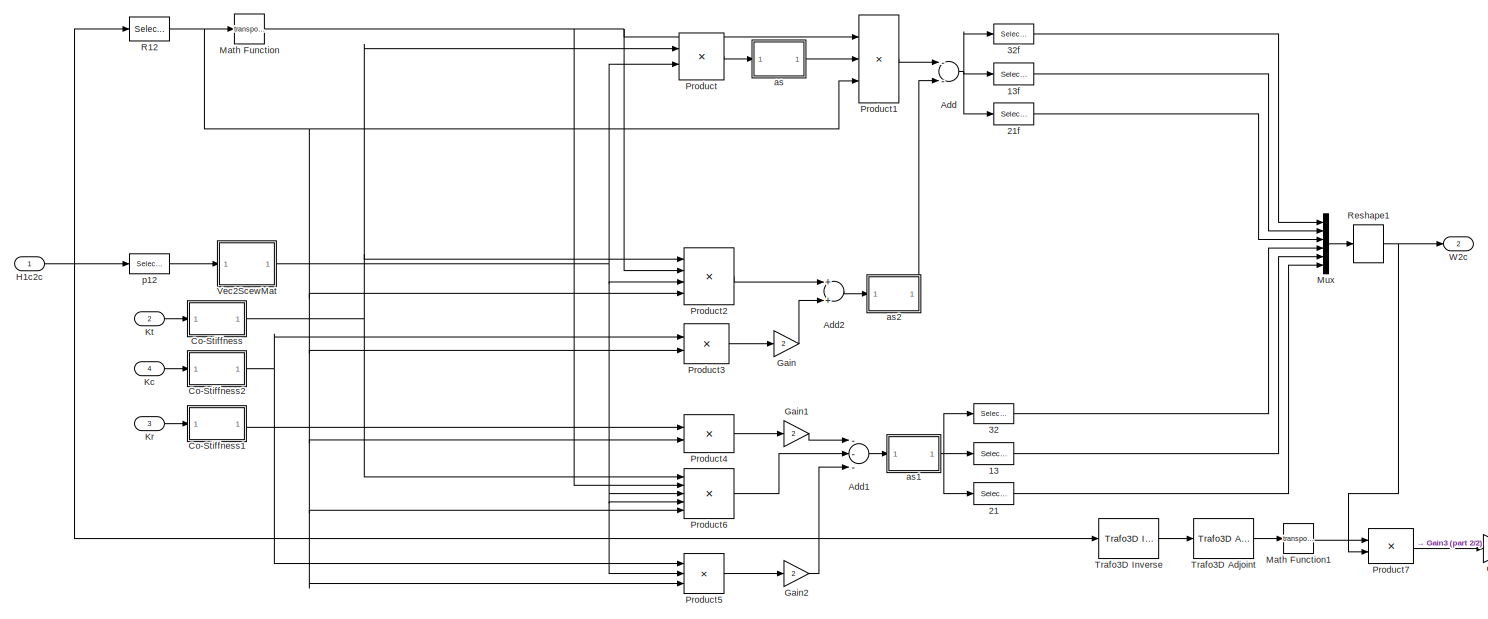
[diagram: Roboter+controller/controller/Cartesian Impedance Control/Subsystem/Cartesian Compliance Control/Iterative Computation of the 'Stiffness' and Gravity Compensation/Iteration for Nolcos Controller/Spatial Stiffness/Spatial Stiffness with varying length and varying stiffness/Spatial Stiffness without connection offsets - part 1/2, most of the canvas]
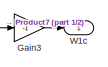
[diagram: Roboter+controller/controller/Cartesian Impedance Control/Subsystem/Cartesian Compliance Control/Iterative Computation of the 'Stiffness' and Gravity Compensation/Iteration for Nolcos Controller/Spatial Stiffness/Spatial Stiffness with varying length and varying stiffness/Spatial Stiffness without connection offsets - part 2/2, bottom right region]
BLOCK [SubSystem] Roboter+controller/controller/Cartesian Impedance Control/Subsystem/Cartesian Compliance Control/Iterative Computation of the 'Stiffness' and Gravity Compensation/Iteration for Nolcos Controller/Spatial Stiffness/Spatial Stiffness with varying length and varying stiffness/Spatial Stiffness without connection offsets
  Ports = [4, 2]
  RequestExecContextInheritance = off
BLOCK [Selector] Roboter+controller/controller/Cartesian Impedance Control/Subsystem/Cartesian Compliance Control/Iterative Computation of the 'Stiffness' and Gravity Compensation/Iteration for Nolcos Controller/Spatial Stiffness/Spatial Stiffness with varying length and varying stiffness/Spatial Stiffness without connection offsets/13
  IndexOptions = Index vector (dialog),Index vector (dialog)
  Indices = [1],[3]
  InputPortWidth = 3
  NumberOfDimensions = 2
  Ports = [1, 1]
BLOCK [Selector] Roboter+controller/controller/Cartesian Impedance Control/Subsystem/Cartesian Compliance Control/Iterative Computation of the 'Stiffness' and Gravity Compensation/Iteration for Nolcos Controller/Spatial Stiffness/Spatial Stiffness with varying length and varying stiffness/Spatial Stiffness without connection offsets/13f
  IndexOptions = Index vector (dialog),Index vector (dialog)
  Indices = [1],[3]
  InputPortWidth = 3
  NumberOfDimensions = 2
  Ports = [1, 1]
BLOCK [Selector] Roboter+controller/controller/Cartesian Impedance Control/Subsystem/Cartesian Compliance Control/Iterative Computation of the 'Stiffness' and Gravity Compensation/Iteration for Nolcos Controller/Spatial Stiffness/Spatial Stiffness with varying length and varying stiffness/Spatial Stiffness without connection offsets/21
  IndexOptions = Index vector (dialog),Index vector (dialog)
  Indices = [2],[1]
  InputPortWidth = 3
  NumberOfDimensions = 2
  Ports = [1, 1]
BLOCK [Selector] Roboter+controller/controller/Cartesian Impedance Control/Subsystem/Cartesian Compliance Control/Iterative Computation of the 'Stiffness' and Gravity Compensation/Iteration for Nolcos Controller/Spatial Stiffness/Spatial Stiffness with varying length and varying stiffness/Spatial Stiffness without connection offsets/21f
  IndexOptions = Index vector (dialog),Index vector (dialog)
  Indices = [2],[1]
  InputPortWidth = 3
  NumberOfDimensions = 2
  Ports = [1, 1]
BLOCK [Selector] Roboter+controller/controller/Cartesian Impedance Control/Subsystem/Cartesian Compliance Control/Iterative Computation of the 'Stiffness' and Gravity Compensation/Iteration for Nolcos Controller/Spatial Stiffness/Spatial Stiffness with varying length and varying stiffness/Spatial Stiffness without connection offsets/32
  IndexOptions = Index vector (dialog),Index vector (dialog)
  Indices = [3],[2]
  InputPortWidth = 3
  NumberOfDimensions = 2
  Ports = [1, 1]
BLOCK [Selector] Roboter+controller/controller/Cartesian Impedance Control/Subsystem/Cartesian Compliance Control/Iterative Computation of the 'Stiffness' and Gravity Compensation/Iteration for Nolcos Controller/Spatial Stiffness/Spatial Stiffness with varying length and varying stiffness/Spatial Stiffness without connection offsets/32f
  IndexOptions = Index vector (dialog),Index vector (dialog)
  Indices = [3],[2]
  InputPortWidth = 3
  NumberOfDimensions = 2
  Ports = [1, 1]
BLOCK [Sum] Roboter+controller/controller/Cartesian Impedance Control/Subsystem/Cartesian Compliance Control/Iterative Computation of the 'Stiffness' and Gravity Compensation/Iteration for Nolcos Controller/Spatial Stiffness/Spatial Stiffness with varying length and varying stiffness/Spatial Stiffness without connection offsets/Add
  InputSameDT = off
  Inputs = --
  OutDataTypeStr = Inherit: Inherit via internal rule
  Ports = [2, 1]
  SaturateOnIntegerOverflow = off
BLOCK [Sum] Roboter+controller/controller/Cartesian Impedance Control/Subsystem/Cartesian Compliance Control/Iterative Computation of the 'Stiffness' and Gravity Compensation/Iteration for Nolcos Controller/Spatial Stiffness/Spatial Stiffness with varying length and varying stiffness/Spatial Stiffness without connection offsets/Add1
  InputSameDT = off
  Inputs = ---
  OutDataTypeStr = Inherit: Inherit via internal rule
  Ports = [3, 1]
  SaturateOnIntegerOverflow = off
BLOCK [Sum] Roboter+controller/controller/Cartesian Impedance Control/Subsystem/Cartesian Compliance Control/Iterative Computation of the 'Stiffness' and Gravity Compensation/Iteration for Nolcos Controller/Spatial Stiffness/Spatial Stiffness with varying length and varying stiffness/Spatial Stiffness without connection offsets/Add2
  InputSameDT = off
  OutDataTypeStr = Inherit: Inherit via internal rule
  Ports = [2, 1]
  SaturateOnIntegerOverflow = off
BLOCK [SubSystem] Roboter+controller/controller/Cartesian Impedance Control/Subsystem/Cartesian Compliance Control/Iterative Computation of the 'Stiffness' and Gravity Compensation/Iteration for Nolcos Controller/Spatial Stiffness/Spatial Stiffness with varying length and varying stiffness/Spatial Stiffness without connection offsets/Co-Stiffness
  Ports = [1, 1]
  RequestExecContextInheritance = off
BLOCK [Sum] Roboter+controller/controller/Cartesian Impedance Control/Subsystem/Cartesian Compliance Control/Iterative Computation of the 'Stiffness' and Gravity Compensation/Iteration for Nolcos Controller/Spatial Stiffness/Spatial Stiffness with varying length and varying stiffness/Spatial Stiffness without connection offsets/Co-Stiffness/Add1
  IconShape = round
  InputSameDT = off
  Inputs = |+-
  OutDataTypeStr = Inherit: Inherit via internal rule
  Ports = [2, 1]
  SaturateOnIntegerOverflow = off
BLOCK [Sum] Roboter+controller/controller/Cartesian Impedance Control/Subsystem/Cartesian Compliance Control/Iterative Computation of the 'Stiffness' and Gravity Compensation/Iteration for Nolcos Controller/Spatial Stiffness/Spatial Stiffness with varying length and varying stiffness/Spatial Stiffness without connection offsets/Co-Stiffness/Add2
  InputSameDT = off
  Inputs = +++
  OutDataTypeStr = Inherit: Inherit via internal rule
  Ports = [3, 1]
  SaturateOnIntegerOverflow = off
BLOCK [Outport] Roboter+controller/controller/Cartesian Impedance Control/Subsystem/Cartesian Compliance Control/Iterative Computation of the 'Stiffness' and Gravity Compensation/Iteration for Nolcos Controller/Spatial Stiffness/Spatial Stiffness with varying length and varying stiffness/Spatial Stiffness without connection offsets/Co-Stiffness/G
  IconDisplay = Port number
BLOCK [Gain] Roboter+controller/controller/Cartesian Impedance Control/Subsystem/Cartesian Compliance Control/Iterative Computation of the 'Stiffness' and Gravity Compensation/Iteration for Nolcos Controller/Spatial Stiffness/Spatial Stiffness with varying length and varying stiffness/Spatial Stiffness without connection offsets/Co-Stiffness/Gain3
  Gain = 0.5
  OutDataTypeStr = Inherit: Inherit via internal rule
  ParamDataTypeStr = Inherit: Inherit via internal rule
  SaturateOnIntegerOverflow = off
BLOCK [Inport] Roboter+controller/controller/Cartesian Impedance Control/Subsystem/Cartesian Compliance Control/Iterative Computation of the 'Stiffness' and Gravity Compensation/Iteration for Nolcos Controller/Spatial Stiffness/Spatial Stiffness with varying length and varying stiffness/Spatial Stiffness without connection offsets/Co-Stiffness/K
  IconDisplay = Port number
BLOCK [Selector] Roboter+controller/controller/Cartesian Impedance Control/Subsystem/Cartesian Compliance Control/Iterative Computation of the 'Stiffness' and Gravity Compensation/Iteration for Nolcos Controller/Spatial Stiffness/Spatial Stiffness with varying length and varying stiffness/Spatial Stiffness without connection offsets/Co-Stiffness/K11
  IndexOptions = Index vector (dialog),Index vector (dialog)
  Indices = 1,1
  InputPortWidth = 3
  NumberOfDimensions = 2
  Ports = [1, 1]
BLOCK [Selector] Roboter+controller/controller/Cartesian Impedance Control/Subsystem/Cartesian Compliance Control/Iterative Computation of the 'Stiffness' and Gravity Compensation/Iteration for Nolcos Controller/Spatial Stiffness/Spatial Stiffness with varying length and varying stiffness/Spatial Stiffness without connection offsets/Co-Stiffness/K22
  IndexOptions = Index vector (dialog),Index vector (dialog)
  Indices = 2,2
  InputPortWidth = 3
  NumberOfDimensions = 2
  Ports = [1, 1]
BLOCK [Selector] Roboter+controller/controller/Cartesian Impedance Control/Subsystem/Cartesian Compliance Control/Iterative Computation of the 'Stiffness' and Gravity Compensation/Iteration for Nolcos Controller/Spatial Stiffness/Spatial Stiffness with varying length and varying stiffness/Spatial Stiffness without connection offsets/Co-Stiffness/K33
  IndexOptions = Index vector (dialog),Index vector (dialog)
  Indices = 3,3
  InputPortWidth = 3
  NumberOfDimensions = 2
  Ports = [1, 1]
BLOCK [Product] Roboter+controller/controller/Cartesian Impedance Control/Subsystem/Cartesian Compliance Control/Iterative Computation of the 'Stiffness' and Gravity Compensation/Iteration for Nolcos Controller/Spatial Stiffness/Spatial Stiffness with varying length and varying stiffness/Spatial Stiffness without connection offsets/Co-Stiffness/Product1
  Ports = [2, 1]
  RndMeth = Floor
BLOCK [Constant] Roboter+controller/controller/Cartesian Impedance Control/Subsystem/Cartesian Compliance Control/Iterative Computation of the 'Stiffness' and Gravity Compensation/Iteration for Nolcos Controller/Spatial Stiffness/Spatial Stiffness with varying length and varying stiffness/Spatial Stiffness without connection offsets/Co-Stiffness/eye
  Value = eye(3)
BLOCK [SubSystem] Roboter+controller/controller/Cartesian Impedance Control/Subsystem/Cartesian Compliance Control/Iterative Computation of the 'Stiffness' and Gravity Compensation/Iteration for Nolcos Controller/Spatial Stiffness/Spatial Stiffness with varying length and varying stiffness/Spatial Stiffness without connection offsets/Co-Stiffness1
  Ports = [1, 1]
  RequestExecContextInheritance = off
BLOCK [Sum] Roboter+controller/controller/Cartesian Impedance Control/Subsystem/Cartesian Compliance Control/Iterative Computation of the 'Stiffness' and Gravity Compensation/Iteration for Nolcos Controller/Spatial Stiffness/Spatial Stiffness with varying length and varying stiffness/Spatial Stiffness without connection offsets/Co-Stiffness1/Add1
  IconShape = round
  InputSameDT = off
  Inputs = |+-
  OutDataTypeStr = Inherit: Inherit via internal rule
  Ports = [2, 1]
  SaturateOnIntegerOverflow = off
BLOCK [Sum] Roboter+controller/controller/Cartesian Impedance Control/Subsystem/Cartesian Compliance Control/Iterative Computation of the 'Stiffness' and Gravity Compensation/Iteration for Nolcos Controller/Spatial Stiffness/Spatial Stiffness with varying length and varying stiffness/Spatial Stiffness without connection offsets/Co-Stiffness1/Add2
  InputSameDT = off
  Inputs = +++
  OutDataTypeStr = Inherit: Inherit via internal rule
  Ports = [3, 1]
  SaturateOnIntegerOverflow = off
BLOCK [Outport] Roboter+controller/controller/Cartesian Impedance Control/Subsystem/Cartesian Compliance Control/Iterative Computation of the 'Stiffness' and Gravity Compensation/Iteration for Nolcos Controller/Spatial Stiffness/Spatial Stiffness with varying length and varying stiffness/Spatial Stiffness without connection offsets/Co-Stiffness1/G
  IconDisplay = Port number
BLOCK [Gain] Roboter+controller/controller/Cartesian Impedance Control/Subsystem/Cartesian Compliance Control/Iterative Computation of the 'Stiffness' and Gravity Compensation/Iteration for Nolcos Controller/Spatial Stiffness/Spatial Stiffness with varying length and varying stiffness/Spatial Stiffness without connection offsets/Co-Stiffness1/Gain3
  Gain = 0.5
  OutDataTypeStr = Inherit: Inherit via internal rule
  ParamDataTypeStr = Inherit: Inherit via internal rule
  SaturateOnIntegerOverflow = off
BLOCK [Inport] Roboter+controller/controller/Cartesian Impedance Control/Subsystem/Cartesian Compliance Control/Iterative Computation of the 'Stiffness' and Gravity Compensation/Iteration for Nolcos Controller/Spatial Stiffness/Spatial Stiffness with varying length and varying stiffness/Spatial Stiffness without connection offsets/Co-Stiffness1/K
  IconDisplay = Port number
BLOCK [Selector] Roboter+controller/controller/Cartesian Impedance Control/Subsystem/Cartesian Compliance Control/Iterative Computation of the 'Stiffness' and Gravity Compensation/Iteration for Nolcos Controller/Spatial Stiffness/Spatial Stiffness with varying length and varying stiffness/Spatial Stiffness without connection offsets/Co-Stiffness1/K11
  IndexOptions = Index vector (dialog),Index vector (dialog)
  Indices = 1,1
  InputPortWidth = 3
  NumberOfDimensions = 2
  Ports = [1, 1]
BLOCK [Selector] Roboter+controller/controller/Cartesian Impedance Control/Subsystem/Cartesian Compliance Control/Iterative Computation of the 'Stiffness' and Gravity Compensation/Iteration for Nolcos Controller/Spatial Stiffness/Spatial Stiffness with varying length and varying stiffness/Spatial Stiffness without connection offsets/Co-Stiffness1/K22
  IndexOptions = Index vector (dialog),Index vector (dialog)
  Indices = 2,2
  InputPortWidth = 3
  NumberOfDimensions = 2
  Ports = [1, 1]
BLOCK [Selector] Roboter+controller/controller/Cartesian Impedance Control/Subsystem/Cartesian Compliance Control/Iterative Computation of the 'Stiffness' and Gravity Compensation/Iteration for Nolcos Controller/Spatial Stiffness/Spatial Stiffness with varying length and varying stiffness/Spatial Stiffness without connection offsets/Co-Stiffness1/K33
  IndexOptions = Index vector (dialog),Index vector (dialog)
  Indices = 3,3
  InputPortWidth = 3
  NumberOfDimensions = 2
  Ports = [1, 1]
BLOCK [Product] Roboter+controller/controller/Cartesian Impedance Control/Subsystem/Cartesian Compliance Control/Iterative Computation of the 'Stiffness' and Gravity Compensation/Iteration for Nolcos Controller/Spatial Stiffness/Spatial Stiffness with varying length and varying stiffness/Spatial Stiffness without connection offsets/Co-Stiffness1/Product1
  Ports = [2, 1]
  RndMeth = Floor
BLOCK [Constant] Roboter+controller/controller/Cartesian Impedance Control/Subsystem/Cartesian Compliance Control/Iterative Computation of the 'Stiffness' and Gravity Compensation/Iteration for Nolcos Controller/Spatial Stiffness/Spatial Stiffness with varying length and varying stiffness/Spatial Stiffness without connection offsets/Co-Stiffness1/eye
  Value = eye(3)
BLOCK [SubSystem] Roboter+controller/controller/Cartesian Impedance Control/Subsystem/Cartesian Compliance Control/Iterative Computation of the 'Stiffness' and Gravity Compensation/Iteration for Nolcos Controller/Spatial Stiffness/Spatial Stiffness with varying length and varying stiffness/Spatial Stiffness without connection offsets/Co-Stiffness2
  Ports = [1, 1]
  RequestExecContextInheritance = off
BLOCK [Sum] Roboter+controller/controller/Cartesian Impedance Control/Subsystem/Cartesian Compliance Control/Iterative Computation of the 'Stiffness' and Gravity Compensation/Iteration for Nolcos Controller/Spatial Stiffness/Spatial Stiffness with varying length and varying stiffness/Spatial Stiffness without connection offsets/Co-Stiffness2/Add1
  IconShape = round
  InputSameDT = off
  Inputs = |+-
  OutDataTypeStr = Inherit: Inherit via internal rule
  Ports = [2, 1]
  SaturateOnIntegerOverflow = off
BLOCK [Sum] Roboter+controller/controller/Cartesian Impedance Control/Subsystem/Cartesian Compliance Control/Iterative Computation of the 'Stiffness' and Gravity Compensation/Iteration for Nolcos Controller/Spatial Stiffness/Spatial Stiffness with varying length and varying stiffness/Spatial Stiffness without connection offsets/Co-Stiffness2/Add2
  InputSameDT = off
  Inputs = +++
  OutDataTypeStr = Inherit: Inherit via internal rule
  Ports = [3, 1]
  SaturateOnIntegerOverflow = off
BLOCK [Outport] Roboter+controller/controller/Cartesian Impedance Control/Subsystem/Cartesian Compliance Control/Iterative Computation of the 'Stiffness' and Gravity Compensation/Iteration for Nolcos Controller/Spatial Stiffness/Spatial Stiffness with varying length and varying stiffness/Spatial Stiffness without connection offsets/Co-Stiffness2/G
  IconDisplay = Port number
BLOCK [Gain] Roboter+controller/controller/Cartesian Impedance Control/Subsystem/Cartesian Compliance Control/Iterative Computation of the 'Stiffness' and Gravity Compensation/Iteration for Nolcos Controller/Spatial Stiffness/Spatial Stiffness with varying length and varying stiffness/Spatial Stiffness without connection offsets/Co-Stiffness2/Gain3
  Gain = 0.5
  OutDataTypeStr = Inherit: Inherit via internal rule
  ParamDataTypeStr = Inherit: Inherit via internal rule
  SaturateOnIntegerOverflow = off
BLOCK [Inport] Roboter+controller/controller/Cartesian Impedance Control/Subsystem/Cartesian Compliance Control/Iterative Computation of the 'Stiffness' and Gravity Compensation/Iteration for Nolcos Controller/Spatial Stiffness/Spatial Stiffness with varying length and varying stiffness/Spatial Stiffness without connection offsets/Co-Stiffness2/K
  IconDisplay = Port number
BLOCK [Selector] Roboter+controller/controller/Cartesian Impedance Control/Subsystem/Cartesian Compliance Control/Iterative Computation of the 'Stiffness' and Gravity Compensation/Iteration for Nolcos Controller/Spatial Stiffness/Spatial Stiffness with varying length and varying stiffness/Spatial Stiffness without connection offsets/Co-Stiffness2/K11
  IndexOptions = Index vector (dialog),Index vector (dialog)
  Indices = 1,1
  InputPortWidth = 3
  NumberOfDimensions = 2
  Ports = [1, 1]
BLOCK [Selector] Roboter+controller/controller/Cartesian Impedance Control/Subsystem/Cartesian Compliance Control/Iterative Computation of the 'Stiffness' and Gravity Compensation/Iteration for Nolcos Controller/Spatial Stiffness/Spatial Stiffness with varying length and varying stiffness/Spatial Stiffness without connection offsets/Co-Stiffness2/K22
  IndexOptions = Index vector (dialog),Index vector (dialog)
  Indices = 2,2
  InputPortWidth = 3
  NumberOfDimensions = 2
  Ports = [1, 1]
BLOCK [Selector] Roboter+controller/controller/Cartesian Impedance Control/Subsystem/Cartesian Compliance Control/Iterative Computation of the 'Stiffness' and Gravity Compensation/Iteration for Nolcos Controller/Spatial Stiffness/Spatial Stiffness with varying length and varying stiffness/Spatial Stiffness without connection offsets/Co-Stiffness2/K33
  IndexOptions = Index vector (dialog),Index vector (dialog)
  Indices = 3,3
  InputPortWidth = 3
  NumberOfDimensions = 2
  Ports = [1, 1]
BLOCK [Product] Roboter+controller/controller/Cartesian Impedance Control/Subsystem/Cartesian Compliance Control/Iterative Computation of the 'Stiffness' and Gravity Compensation/Iteration for Nolcos Controller/Spatial Stiffness/Spatial Stiffness with varying length and varying stiffness/Spatial Stiffness without connection offsets/Co-Stiffness2/Product1
  Ports = [2, 1]
  RndMeth = Floor
BLOCK [Constant] Roboter+controller/controller/Cartesian Impedance Control/Subsystem/Cartesian Compliance Control/Iterative Computation of the 'Stiffness' and Gravity Compensation/Iteration for Nolcos Controller/Spatial Stiffness/Spatial Stiffness with varying length and varying stiffness/Spatial Stiffness without connection offsets/Co-Stiffness2/eye
  Value = eye(3)
BLOCK [Gain] Roboter+controller/controller/Cartesian Impedance Control/Subsystem/Cartesian Compliance Control/Iterative Computation of the 'Stiffness' and Gravity Compensation/Iteration for Nolcos Controller/Spatial Stiffness/Spatial Stiffness with varying length and varying stiffness/Spatial Stiffness without connection offsets/Gain
  Gain = 2
  OutDataTypeStr = Inherit: Inherit via internal rule
  ParamDataTypeStr = Inherit: Inherit via internal rule
  SaturateOnIntegerOverflow = off
BLOCK [Gain] Roboter+controller/controller/Cartesian Impedance Control/Subsystem/Cartesian Compliance Control/Iterative Computation of the 'Stiffness' and Gravity Compensation/Iteration for Nolcos Controller/Spatial Stiffness/Spatial Stiffness with varying length and varying stiffness/Spatial Stiffness without connection offsets/Gain1
  Gain = 2
  OutDataTypeStr = Inherit: Inherit via internal rule
  ParamDataTypeStr = Inherit: Inherit via internal rule
  SaturateOnIntegerOverflow = off
BLOCK [Gain] Roboter+controller/controller/Cartesian Impedance Control/Subsystem/Cartesian Compliance Control/Iterative Computation of the 'Stiffness' and Gravity Compensation/Iteration for Nolcos Controller/Spatial Stiffness/Spatial Stiffness with varying length and varying stiffness/Spatial Stiffness without connection offsets/Gain2
  Gain = 2
  OutDataTypeStr = Inherit: Inherit via internal rule
  ParamDataTypeStr = Inherit: Inherit via internal rule
  SaturateOnIntegerOverflow = off
BLOCK [Gain] Roboter+controller/controller/Cartesian Impedance Control/Subsystem/Cartesian Compliance Control/Iterative Computation of the 'Stiffness' and Gravity Compensation/Iteration for Nolcos Controller/Spatial Stiffness/Spatial Stiffness with varying length and varying stiffness/Spatial Stiffness without connection offsets/Gain3
  Gain = -1
  OutDataTypeStr = Inherit: Inherit via internal rule
  ParamDataTypeStr = Inherit: Inherit via internal rule
  SaturateOnIntegerOverflow = off
BLOCK [Inport] Roboter+controller/controller/Cartesian Impedance Control/Subsystem/Cartesian Compliance Control/Iterative Computation of the 'Stiffness' and Gravity Compensation/Iteration for Nolcos Controller/Spatial Stiffness/Spatial Stiffness with varying length and varying stiffness/Spatial Stiffness without connection offsets/H1c2c
  IconDisplay = Port number
BLOCK [Inport] Roboter+controller/controller/Cartesian Impedance Control/Subsystem/Cartesian Compliance Control/Iterative Computation of the 'Stiffness' and Gravity Compensation/Iteration for Nolcos Controller/Spatial Stiffness/Spatial Stiffness with varying length and varying stiffness/Spatial Stiffness without connection offsets/Kc
  IconDisplay = Port number
  Port = 4
BLOCK [Inport] Roboter+controller/controller/Cartesian Impedance Control/Subsystem/Cartesian Compliance Control/Iterative Computation of the 'Stiffness' and Gravity Compensation/Iteration for Nolcos Controller/Spatial Stiffness/Spatial Stiffness with varying length and varying stiffness/Spatial Stiffness without connection offsets/Kr
  IconDisplay = Port number
  Port = 3
BLOCK [Inport] Roboter+controller/controller/Cartesian Impedance Control/Subsystem/Cartesian Compliance Control/Iterative Computation of the 'Stiffness' and Gravity Compensation/Iteration for Nolcos Controller/Spatial Stiffness/Spatial Stiffness with varying length and varying stiffness/Spatial Stiffness without connection offsets/Kt
  IconDisplay = Port number
  Port = 2
BLOCK [Math] Roboter+controller/controller/Cartesian Impedance Control/Subsystem/Cartesian Compliance Control/Iterative Computation of the 'Stiffness' and Gravity Compensation/Iteration for Nolcos Controller/Spatial Stiffness/Spatial Stiffness with varying length and varying stiffness/Spatial Stiffness without connection offsets/Math Function
  Operator = transpose
  Ports = [1, 1]
BLOCK [Math] Roboter+controller/controller/Cartesian Impedance Control/Subsystem/Cartesian Compliance Control/Iterative Computation of the 'Stiffness' and Gravity Compensation/Iteration for Nolcos Controller/Spatial Stiffness/Spatial Stiffness with varying length and varying stiffness/Spatial Stiffness without connection offsets/Math Function1
  Operator = transpose
  Ports = [1, 1]
BLOCK [Mux] Roboter+controller/controller/Cartesian Impedance Control/Subsystem/Cartesian Compliance Control/Iterative Computation of the 'Stiffness' and Gravity Compensation/Iteration for Nolcos Controller/Spatial Stiffness/Spatial Stiffness with varying length and varying stiffness/Spatial Stiffness without connection offsets/Mux
  DisplayOption = bar
  Inputs = 6
  Ports = [6, 1]
BLOCK [Product] Roboter+controller/controller/Cartesian Impedance Control/Subsystem/Cartesian Compliance Control/Iterative Computation of the 'Stiffness' and Gravity Compensation/Iteration for Nolcos Controller/Spatial Stiffness/Spatial Stiffness with varying length and varying stiffness/Spatial Stiffness without connection offsets/Product
  Multiplication = Matrix(*)
  Ports = [2, 1]
  RndMeth = Floor
BLOCK [Product] Roboter+controller/controller/Cartesian Impedance Control/Subsystem/Cartesian Compliance Control/Iterative Computation of the 'Stiffness' and Gravity Compensation/Iteration for Nolcos Controller/Spatial Stiffness/Spatial Stiffness with varying length and varying stiffness/Spatial Stiffness without connection offsets/Product1
  Inputs = 3
  Multiplication = Matrix(*)
  Ports = [3, 1]
  RndMeth = Floor
BLOCK [Product] Roboter+controller/controller/Cartesian Impedance Control/Subsystem/Cartesian Compliance Control/Iterative Computation of the 'Stiffness' and Gravity Compensation/Iteration for Nolcos Controller/Spatial Stiffness/Spatial Stiffness with varying length and varying stiffness/Spatial Stiffness without connection offsets/Product2
  Inputs = 4
  Multiplication = Matrix(*)
  Ports = [4, 1]
  RndMeth = Floor
BLOCK [Product] Roboter+controller/controller/Cartesian Impedance Control/Subsystem/Cartesian Compliance Control/Iterative Computation of the 'Stiffness' and Gravity Compensation/Iteration for Nolcos Controller/Spatial Stiffness/Spatial Stiffness with varying length and varying stiffness/Spatial Stiffness without connection offsets/Product3
  Multiplication = Matrix(*)
  Ports = [2, 1]
  RndMeth = Floor
BLOCK [Product] Roboter+controller/controller/Cartesian Impedance Control/Subsystem/Cartesian Compliance Control/Iterative Computation of the 'Stiffness' and Gravity Compensation/Iteration for Nolcos Controller/Spatial Stiffness/Spatial Stiffness with varying length and varying stiffness/Spatial Stiffness without connection offsets/Product4
  Multiplication = Matrix(*)
  Ports = [2, 1]
  RndMeth = Floor
BLOCK [Product] Roboter+controller/controller/Cartesian Impedance Control/Subsystem/Cartesian Compliance Control/Iterative Computation of the 'Stiffness' and Gravity Compensation/Iteration for Nolcos Controller/Spatial Stiffness/Spatial Stiffness with varying length and varying stiffness/Spatial Stiffness without connection offsets/Product5
  Inputs = 3
  Multiplication = Matrix(*)
  Ports = [3, 1]
  RndMeth = Floor
BLOCK [Product] Roboter+controller/controller/Cartesian Impedance Control/Subsystem/Cartesian Compliance Control/Iterative Computation of the 'Stiffness' and Gravity Compensation/Iteration for Nolcos Controller/Spatial Stiffness/Spatial Stiffness with varying length and varying stiffness/Spatial Stiffness without connection offsets/Product6
  Inputs = 5
  Multiplication = Matrix(*)
  Ports = [5, 1]
  RndMeth = Floor
BLOCK [Product] Roboter+controller/controller/Cartesian Impedance Control/Subsystem/Cartesian Compliance Control/Iterative Computation of the 'Stiffness' and Gravity Compensation/Iteration for Nolcos Controller/Spatial Stiffness/Spatial Stiffness with varying length and varying stiffness/Spatial Stiffness without connection offsets/Product7
  Multiplication = Matrix(*)
  Ports = [2, 1]
  RndMeth = Floor
BLOCK [Selector] Roboter+controller/controller/Cartesian Impedance Control/Subsystem/Cartesian Compliance Control/Iterative Computation of the 'Stiffness' and Gravity Compensation/Iteration for Nolcos Controller/Spatial Stiffness/Spatial Stiffness with varying length and varying stiffness/Spatial Stiffness without connection offsets/R12
  IndexOptions = Index vector (dialog),Index vector (dialog)
  Indices = [1,2,3],[1,2,3]
  InputPortWidth = 3
  NumberOfDimensions = 2
  Ports = [1, 1]
BLOCK [Reshape] Roboter+controller/controller/Cartesian Impedance Control/Subsystem/Cartesian Compliance Control/Iterative Computation of the 'Stiffness' and Gravity Compensation/Iteration for Nolcos Controller/Spatial Stiffness/Spatial Stiffness with varying length and varying stiffness/Spatial Stiffness without connection offsets/Reshape1
  OutputDimensionality = Column vector (2-D)
  Ports = [1, 1]
BLOCK [Reference] Roboter+controller/controller/Cartesian Impedance Control/Subsystem/Cartesian Compliance Control/Iterative Computation of the 'Stiffness' and Gravity Compensation/Iteration for Nolcos Controller/Spatial Stiffness/Spatial Stiffness with varying length and varying stiffness/Spatial Stiffness without connection offsets/Trafo3D Adjoint  REF=robotics/Trafo3D
Adjoint
  Ports = [1, 1]
  SourceBlock = robotics/Trafo3D\nAdjoint
BLOCK [Reference] Roboter+controller/controller/Cartesian Impedance Control/Subsystem/Cartesian Compliance Control/Iterative Computation of the 'Stiffness' and Gravity Compensation/Iteration for Nolcos Controller/Spatial Stiffness/Spatial Stiffness with varying length and varying stiffness/Spatial Stiffness without connection offsets/Trafo3D Inverse  REF=robotics/Trafo3D
Inverse
  Ports = [1, 1]
  SourceBlock = robotics/Trafo3D\nInverse
BLOCK [SubSystem] Roboter+controller/controller/Cartesian Impedance Control/Subsystem/Cartesian Compliance Control/Iterative Computation of the 'Stiffness' and Gravity Compensation/Iteration for Nolcos Controller/Spatial Stiffness/Spatial Stiffness with varying length and varying stiffness/Spatial Stiffness without connection offsets/Vec2ScewMat
  Ports = [1, 1]
  RequestExecContextInheritance = off
BLOCK [Gain] Roboter+controller/controller/Cartesian Impedance Control/Subsystem/Cartesian Compliance Control/Iterative Computation of the 'Stiffness' and Gravity Compensation/Iteration for Nolcos Controller/Spatial Stiffness/Spatial Stiffness with varying length and varying stiffness/Spatial Stiffness without connection offsets/Vec2ScewMat/Gain
  Gain = -1
BLOCK [Gain] Roboter+controller/controller/Cartesian Impedance Control/Subsystem/Cartesian Compliance Control/Iterative Computation of the 'Stiffness' and Gravity Compensation/Iteration for Nolcos Controller/Spatial Stiffness/Spatial Stiffness with varying length and varying stiffness/Spatial Stiffness without connection offsets/Vec2ScewMat/Gain1
  Gain = -1
BLOCK [Gain] Roboter+controller/controller/Cartesian Impedance Control/Subsystem/Cartesian Compliance Control/Iterative Computation of the 'Stiffness' and Gravity Compensation/Iteration for Nolcos Controller/Spatial Stiffness/Spatial Stiffness with varying length and varying stiffness/Spatial Stiffness without connection offsets/Vec2ScewMat/Gain2
  Gain = -1
BLOCK [Concatenate] Roboter+controller/controller/Cartesian Impedance Control/Subsystem/Cartesian Compliance Control/Iterative Computation of the 'Stiffness' and Gravity Compensation/Iteration for Nolcos Controller/Spatial Stiffness/Spatial Stiffness with varying length and varying stiffness/Spatial Stiffness without connection offsets/Vec2ScewMat/Matrix Concatenation1
  Mode = Multidimensional array
  NumInputs = 3
  Ports = [3, 1]
BLOCK [Concatenate] Roboter+controller/controller/Cartesian Impedance Control/Subsystem/Cartesian Compliance Control/Iterative Computation of the 'Stiffness' and Gravity Compensation/Iteration for Nolcos Controller/Spatial Stiffness/Spatial Stiffness with varying length and varying stiffness/Spatial Stiffness without connection offsets/Vec2ScewMat/Matrix Concatenation2
  Mode = Multidimensional array
  NumInputs = 3
  Ports = [3, 1]
BLOCK [Concatenate] Roboter+controller/controller/Cartesian Impedance Control/Subsystem/Cartesian Compliance Control/Iterative Computation of the 'Stiffness' and Gravity Compensation/Iteration for Nolcos Controller/Spatial Stiffness/Spatial Stiffness with varying length and varying stiffness/Spatial Stiffness without connection offsets/Vec2ScewMat/Matrix Concatenation3
  Mode = Multidimensional array
  NumInputs = 3
  Ports = [3, 1]
BLOCK [Concatenate] Roboter+controller/controller/Cartesian Impedance Control/Subsystem/Cartesian Compliance Control/Iterative Computation of the 'Stiffness' and Gravity Compensation/Iteration for Nolcos Controller/Spatial Stiffness/Spatial Stiffness with varying length and varying stiffness/Spatial Stiffness without connection offsets/Vec2ScewMat/Matrix Concatenation4
  ConcatenateDimension = 2
  Mode = Multidimensional array
  NumInputs = 3
  Ports = [3, 1]
BLOCK [Selector] Roboter+controller/controller/Cartesian Impedance Control/Subsystem/Cartesian Compliance Control/Iterative Computation of the 'Stiffness' and Gravity Compensation/Iteration for Nolcos Controller/Spatial Stiffness/Spatial Stiffness with varying length and varying stiffness/Spatial Stiffness without connection offsets/Vec2ScewMat/Selector
  Indices = [1]
  InputPortWidth = 3
  Ports = [1, 1]
BLOCK [Selector] Roboter+controller/controller/Cartesian Impedance Control/Subsystem/Cartesian Compliance Control/Iterative Computation of the 'Stiffness' and Gravity Compensation/Iteration for Nolcos Controller/Spatial Stiffness/Spatial Stiffness with varying length and varying stiffness/Spatial Stiffness without connection offsets/Vec2ScewMat/Selector1
  Indices = [2]
  InputPortWidth = 3
  Ports = [1, 1]
BLOCK [Selector] Roboter+controller/controller/Cartesian Impedance Control/Subsystem/Cartesian Compliance Control/Iterative Computation of the 'Stiffness' and Gravity Compensation/Iteration for Nolcos Controller/Spatial Stiffness/Spatial Stiffness with varying length and varying stiffness/Spatial Stiffness without connection offsets/Vec2ScewMat/Selector2
  Indices = [3]
  InputPortWidth = 3
  Ports = [1, 1]
BLOCK [Inport] Roboter+controller/controller/Cartesian Impedance Control/Subsystem/Cartesian Compliance Control/Iterative Computation of the 'Stiffness' and Gravity Compensation/Iteration for Nolcos Controller/Spatial Stiffness/Spatial Stiffness with varying length and varying stiffness/Spatial Stiffness without connection offsets/Vec2ScewMat/v
  IconDisplay = Port number
BLOCK [Outport] Roboter+controller/controller/Cartesian Impedance Control/Subsystem/Cartesian Compliance Control/Iterative Computation of the 'Stiffness' and Gravity Compensation/Iteration for Nolcos Controller/Spatial Stiffness/Spatial Stiffness with varying length and varying stiffness/Spatial Stiffness without connection offsets/Vec2ScewMat/vTilde
  IconDisplay = Port number
BLOCK [Constant] Roboter+controller/controller/Cartesian Impedance Control/Subsystem/Cartesian Compliance Control/Iterative Computation of the 'Stiffness' and Gravity Compensation/Iteration for Nolcos Controller/Spatial Stiffness/Spatial Stiffness with varying length and varying stiffness/Spatial Stiffness without connection offsets/Vec2ScewMat/zero
  Value = 0
BLOCK [Outport] Roboter+controller/controller/Cartesian Impedance Control/Subsystem/Cartesian Compliance Control/Iterative Computation of the 'Stiffness' and Gravity Compensation/Iteration for Nolcos Controller/Spatial Stiffness/Spatial Stiffness with varying length and varying stiffness/Spatial Stiffness without connection offsets/W1c
  IconDisplay = Port number
BLOCK [Outport] Roboter+controller/controller/Cartesian Impedance Control/Subsystem/Cartesian Compliance Control/Iterative Computation of the 'Stiffness' and Gravity Compensation/Iteration for Nolcos Controller/Spatial Stiffness/Spatial Stiffness with varying length and varying stiffness/Spatial Stiffness without connection offsets/W2c
  IconDisplay = Port number
  Port = 2
BLOCK [SubSystem] Roboter+controller/controller/Cartesian Impedance Control/Subsystem/Cartesian Compliance Control/Iterative Computation of the 'Stiffness' and Gravity Compensation/Iteration for Nolcos Controller/Spatial Stiffness/Spatial Stiffness with varying length and varying stiffness/Spatial Stiffness without connection offsets/as
  Ports = [1, 1]
  RequestExecContextInheritance = off
BLOCK [Sum] Roboter+controller/controller/Cartesian Impedance Control/Subsystem/Cartesian Compliance Control/Iterative Computation of the 'Stiffness' and Gravity Compensation/Iteration for Nolcos Controller/Spatial Stiffness/Spatial Stiffness with varying length and varying stiffness/Spatial Stiffness without connection offsets/as/Add
  InputSameDT = off
  Inputs = +-
  OutDataTypeStr = Inherit: Inherit via internal rule
  Ports = [2, 1]
  SaturateOnIntegerOverflow = off
BLOCK [Gain] Roboter+controller/controller/Cartesian Impedance Control/Subsystem/Cartesian Compliance Control/Iterative Computation of the 'Stiffness' and Gravity Compensation/Iteration for Nolcos Controller/Spatial Stiffness/Spatial Stiffness with varying length and varying stiffness/Spatial Stiffness without connection offsets/as/Gain
  Gain = 0.5
  OutDataTypeStr = Inherit: Inherit via internal rule
  ParamDataTypeStr = Inherit: Inherit via internal rule
  SaturateOnIntegerOverflow = off
BLOCK [Inport] Roboter+controller/controller/Cartesian Impedance Control/Subsystem/Cartesian Compliance Control/Iterative Computation of the 'Stiffness' and Gravity Compensation/Iteration for Nolcos Controller/Spatial Stiffness/Spatial Stiffness with varying length and varying stiffness/Spatial Stiffness without connection offsets/as/M
  IconDisplay = Port number
BLOCK [Math] Roboter+controller/controller/Cartesian Impedance Control/Subsystem/Cartesian Compliance Control/Iterative Computation of the 'Stiffness' and Gravity Compensation/Iteration for Nolcos Controller/Spatial Stiffness/Spatial Stiffness with varying length and varying stiffness/Spatial Stiffness without connection offsets/as/Math Function
  Operator = transpose
  Ports = [1, 1]
BLOCK [Outport] Roboter+controller/controller/Cartesian Impedance Control/Subsystem/Cartesian Compliance Control/Iterative Computation of the 'Stiffness' and Gravity Compensation/Iteration for Nolcos Controller/Spatial Stiffness/Spatial Stiffness with varying length and varying stiffness/Spatial Stiffness without connection offsets/as/as(M)
  IconDisplay = Port number
BLOCK [SubSystem] Roboter+controller/controller/Cartesian Impedance Control/Subsystem/Cartesian Compliance Control/Iterative Computation of the 'Stiffness' and Gravity Compensation/Iteration for Nolcos Controller/Spatial Stiffness/Spatial Stiffness with varying length and varying stiffness/Spatial Stiffness without connection offsets/as1
  Ports = [1, 1]
  RequestExecContextInheritance = off
BLOCK [Sum] Roboter+controller/controller/Cartesian Impedance Control/Subsystem/Cartesian Compliance Control/Iterative Computation of the 'Stiffness' and Gravity Compensation/Iteration for Nolcos Controller/Spatial Stiffness/Spatial Stiffness with varying length and varying stiffness/Spatial Stiffness without connection offsets/as1/Add
  InputSameDT = off
  Inputs = +-
  OutDataTypeStr = Inherit: Inherit via internal rule
  Ports = [2, 1]
  SaturateOnIntegerOverflow = off
BLOCK [Gain] Roboter+controller/controller/Cartesian Impedance Control/Subsystem/Cartesian Compliance Control/Iterative Computation of the 'Stiffness' and Gravity Compensation/Iteration for Nolcos Controller/Spatial Stiffness/Spatial Stiffness with varying length and varying stiffness/Spatial Stiffness without connection offsets/as1/Gain
  Gain = 0.5
  OutDataTypeStr = Inherit: Inherit via internal rule
  ParamDataTypeStr = Inherit: Inherit via internal rule
  SaturateOnIntegerOverflow = off
BLOCK [Inport] Roboter+controller/controller/Cartesian Impedance Control/Subsystem/Cartesian Compliance Control/Iterative Computation of the 'Stiffness' and Gravity Compensation/Iteration for Nolcos Controller/Spatial Stiffness/Spatial Stiffness with varying length and varying stiffness/Spatial Stiffness without connection offsets/as1/M
  IconDisplay = Port number
BLOCK [Math] Roboter+controller/controller/Cartesian Impedance Control/Subsystem/Cartesian Compliance Control/Iterative Computation of the 'Stiffness' and Gravity Compensation/Iteration for Nolcos Controller/Spatial Stiffness/Spatial Stiffness with varying length and varying stiffness/Spatial Stiffness without connection offsets/as1/Math Function
  Operator = transpose
  Ports = [1, 1]
BLOCK [Outport] Roboter+controller/controller/Cartesian Impedance Control/Subsystem/Cartesian Compliance Control/Iterative Computation of the 'Stiffness' and Gravity Compensation/Iteration for Nolcos Controller/Spatial Stiffness/Spatial Stiffness with varying length and varying stiffness/Spatial Stiffness without connection offsets/as1/as(M)
  IconDisplay = Port number
BLOCK [SubSystem] Roboter+controller/controller/Cartesian Impedance Control/Subsystem/Cartesian Compliance Control/Iterative Computation of the 'Stiffness' and Gravity Compensation/Iteration for Nolcos Controller/Spatial Stiffness/Spatial Stiffness with varying length and varying stiffness/Spatial Stiffness without connection offsets/as2
  Ports = [1, 1]
  RequestExecContextInheritance = off
BLOCK [Sum] Roboter+controller/controller/Cartesian Impedance Control/Subsystem/Cartesian Compliance Control/Iterative Computation of the 'Stiffness' and Gravity Compensation/Iteration for Nolcos Controller/Spatial Stiffness/Spatial Stiffness with varying length and varying stiffness/Spatial Stiffness without connection offsets/as2/Add
  InputSameDT = off
  Inputs = +-
  OutDataTypeStr = Inherit: Inherit via internal rule
  Ports = [2, 1]
  SaturateOnIntegerOverflow = off
BLOCK [Gain] Roboter+controller/controller/Cartesian Impedance Control/Subsystem/Cartesian Compliance Control/Iterative Computation of the 'Stiffness' and Gravity Compensation/Iteration for Nolcos Controller/Spatial Stiffness/Spatial Stiffness with varying length and varying stiffness/Spatial Stiffness without connection offsets/as2/Gain
  Gain = 0.5
  OutDataTypeStr = Inherit: Inherit via internal rule
  ParamDataTypeStr = Inherit: Inherit via internal rule
  SaturateOnIntegerOverflow = off
BLOCK [Inport] Roboter+controller/controller/Cartesian Impedance Control/Subsystem/Cartesian Compliance Control/Iterative Computation of the 'Stiffness' and Gravity Compensation/Iteration for Nolcos Controller/Spatial Stiffness/Spatial Stiffness with varying length and varying stiffness/Spatial Stiffness without connection offsets/as2/M
  IconDisplay = Port number
BLOCK [Math] Roboter+controller/controller/Cartesian Impedance Control/Subsystem/Cartesian Compliance Control/Iterative Computation of the 'Stiffness' and Gravity Compensation/Iteration for Nolcos Controller/Spatial Stiffness/Spatial Stiffness with varying length and varying stiffness/Spatial Stiffness without connection offsets/as2/Math Function
  Operator = transpose
  Ports = [1, 1]
BLOCK [Outport] Roboter+controller/controller/Cartesian Impedance Control/Subsystem/Cartesian Compliance Control/Iterative Computation of the 'Stiffness' and Gravity Compensation/Iteration for Nolcos Controller/Spatial Stiffness/Spatial Stiffness with varying length and varying stiffness/Spatial Stiffness without connection offsets/as2/as(M)
  IconDisplay = Port number
BLOCK [Selector] Roboter+controller/controller/Cartesian Impedance Control/Subsystem/Cartesian Compliance Control/Iterative Computation of the 'Stiffness' and Gravity Compensation/Iteration for Nolcos Controller/Spatial Stiffness/Spatial Stiffness with varying length and varying stiffness/Spatial Stiffness without connection offsets/p12
  IndexOptions = Index vector (dialog),Index vector (dialog)
  Indices = [1,2,3],[4]
  InputPortWidth = 3
  NumberOfDimensions = 2
  Ports = [1, 1]
BLOCK [Reference] Roboter+controller/controller/Cartesian Impedance Control/Subsystem/Cartesian Compliance Control/Iterative Computation of the 'Stiffness' and Gravity Compensation/Iteration for Nolcos Controller/Spatial Stiffness/Spatial Stiffness with varying length and varying stiffness/Trafo3D Adjoint  REF=robotics/Trafo3D
Adjoint
  Ports = [1, 1]
  SourceBlock = robotics/Trafo3D\nAdjoint
BLOCK [Reference] Roboter+controller/controller/Cartesian Impedance Control/Subsystem/Cartesian Compliance Control/Iterative Computation of the 'Stiffness' and Gravity Compensation/Iteration for Nolcos Controller/Spatial Stiffness/Spatial Stiffness with varying length and varying stiffness/Trafo3D Adjoint1  REF=robotics/Trafo3D
Adjoint
  Ports = [1, 1]
  SourceBlock = robotics/Trafo3D\nAdjoint
BLOCK [Reference] Roboter+controller/controller/Cartesian Impedance Control/Subsystem/Cartesian Compliance Control/Iterative Computation of the 'Stiffness' and Gravity Compensation/Iteration for Nolcos Controller/Spatial Stiffness/Spatial Stiffness with varying length and varying stiffness/Trafo3D Inverse  REF=robotics/Trafo3D
Inverse
  Ports = [1, 1]
  SourceBlock = robotics/Trafo3D\nInverse
BLOCK [Reference] Roboter+controller/controller/Cartesian Impedance Control/Subsystem/Cartesian Compliance Control/Iterative Computation of the 'Stiffness' and Gravity Compensation/Iteration for Nolcos Controller/Spatial Stiffness/Spatial Stiffness with varying length and varying stiffness/Trafo3D Inverse1  REF=robotics/Trafo3D
Inverse
  Ports = [1, 1]
  SourceBlock = robotics/Trafo3D\nInverse
BLOCK [Reference] Roboter+controller/controller/Cartesian Impedance Control/Subsystem/Cartesian Compliance Control/Iterative Computation of the 'Stiffness' and Gravity Compensation/Iteration for Nolcos Controller/Spatial Stiffness/Spatial Stiffness with varying length and varying stiffness/Trafo3D Mult  REF=robotics/Trafo3D
Mult
  Ports = [2, 1]
  SourceBlock = robotics/Trafo3D\nMult
BLOCK [Reference] Roboter+controller/controller/Cartesian Impedance Control/Subsystem/Cartesian Compliance Control/Iterative Computation of the 'Stiffness' and Gravity Compensation/Iteration for Nolcos Controller/Spatial Stiffness/Spatial Stiffness with varying length and varying stiffness/Trafo3D Mult1  REF=robotics/Trafo3D
Mult
  Ports = [2, 1]
  SourceBlock = robotics/Trafo3D\nMult
BLOCK [Outport] Roboter+controller/controller/Cartesian Impedance Control/Subsystem/Cartesian Compliance Control/Iterative Computation of the 'Stiffness' and Gravity Compensation/Iteration for Nolcos Controller/Spatial Stiffness/Spatial Stiffness with varying length and varying stiffness/W1
  IconDisplay = Port number
BLOCK [Outport] Roboter+controller/controller/Cartesian Impedance Control/Subsystem/Cartesian Compliance Control/Iterative Computation of the 'Stiffness' and Gravity Compensation/Iteration for Nolcos Controller/Spatial Stiffness/Spatial Stiffness with varying length and varying stiffness/W2
  IconDisplay = Port number
  Port = 2
BLOCK [Terminator] Roboter+controller/controller/Cartesian Impedance Control/Subsystem/Cartesian Compliance Control/Iterative Computation of the 'Stiffness' and Gravity Compensation/Iteration for Nolcos Controller/Spatial Stiffness/Terminator
BLOCK [Reference] Roboter+controller/controller/Cartesian Impedance Control/Subsystem/Cartesian Compliance Control/Iterative Computation of the 'Stiffness' and Gravity Compensation/Iteration for Nolcos Controller/Spatial Stiffness/Trafo3D Inverse  REF=robotics/Trafo3D
Inverse
  Ports = [1, 1]
  SourceBlock = robotics/Trafo3D\nInverse
BLOCK [Reference] Roboter+controller/controller/Cartesian Impedance Control/Subsystem/Cartesian Compliance Control/Iterative Computation of the 'Stiffness' and Gravity Compensation/Iteration for Nolcos Controller/Spatial Stiffness/Trafo3D Mult  REF=robotics/Trafo3D
Mult
  Ports = [2, 1]
  SourceBlock = robotics/Trafo3D\nMult
BLOCK [Inport] Roboter+controller/controller/Cartesian Impedance Control/Subsystem/Cartesian Compliance Control/Iterative Computation of the 'Stiffness' and Gravity Compensation/Iteration for Nolcos Controller/Spatial Stiffness/relaxing
  IconDisplay = Port number
  Port = 5
BLOCK [Outport] Roboter+controller/controller/Cartesian Impedance Control/Subsystem/Cartesian Compliance Control/Iterative Computation of the 'Stiffness' and Gravity Compensation/Iteration for Nolcos Controller/Spatial Stiffness/tau
  IconDisplay = Port number
BLOCK [Constant] Roboter+controller/controller/Cartesian Impedance Control/Subsystem/Cartesian Compliance Control/Iterative Computation of the 'Stiffness' and Gravity Compensation/Iteration for Nolcos Controller/Spatial Stiffness/unit frame
  Value = [eye(3),[0;0;0]]
BLOCK [Sum] Roboter+controller/controller/Cartesian Impedance Control/Subsystem/Cartesian Compliance Control/Iterative Computation of the 'Stiffness' and Gravity Compensation/Iteration for Nolcos Controller/Sum3
  IconShape = round
  InputSameDT = off
  Inputs = ++|
  OutDataTypeStr = Inherit: Inherit via internal rule
  Ports = [2, 1]
  SaturateOnIntegerOverflow = off
BLOCK [Terminator] Roboter+controller/controller/Cartesian Impedance Control/Subsystem/Cartesian Compliance Control/Iterative Computation of the 'Stiffness' and Gravity Compensation/Iteration for Nolcos Controller/Terminator
BLOCK [Inport] Roboter+controller/controller/Cartesian Impedance Control/Subsystem/Cartesian Compliance Control/Iterative Computation of the 'Stiffness' and Gravity Compensation/Iteration for Nolcos Controller/base_acceleration
  IconDisplay = Port number
  Port = 7
BLOCK [Outport] Roboter+controller/controller/Cartesian Impedance Control/Subsystem/Cartesian Compliance Control/Iterative Computation of the 'Stiffness' and Gravity Compensation/Iteration for Nolcos Controller/grav
  IconDisplay = Port number
  Port = 3
BLOCK [Outport] Roboter+controller/controller/Cartesian Impedance Control/Subsystem/Cartesian Compliance Control/Iterative Computation of the 'Stiffness' and Gravity Compensation/Iteration for Nolcos Controller/l(q)
  IconDisplay = Port number
BLOCK [Inport] Roboter+controller/controller/Cartesian Impedance Control/Subsystem/Cartesian Compliance Control/Iterative Computation of the 'Stiffness' and Gravity Compensation/Iteration for Nolcos Controller/load
  IconDisplay = Port number
  Port = 3
BLOCK [Inport] Roboter+controller/controller/Cartesian Impedance Control/Subsystem/Cartesian Compliance Control/Iterative Computation of the 'Stiffness' and Gravity Compensation/Iteration for Nolcos Controller/q
  IconDisplay = Port number
BLOCK [Inport] Roboter+controller/controller/Cartesian Impedance Control/Subsystem/Cartesian Compliance Control/Iterative Computation of the 'Stiffness' and Gravity Compensation/Iteration for Nolcos Controller/relaxing
  IconDisplay = Port number
  Port = 8
BLOCK [Outport] Roboter+controller/controller/Cartesian Impedance Control/Subsystem/Cartesian Compliance Control/Iterative Computation of the 'Stiffness' and Gravity Compensation/Iteration for Nolcos Controller/tau_stiffness
  IconDisplay = Port number
  Port = 6
BLOCK [Inport] Roboter+controller/controller/Cartesian Impedance Control/Subsystem/Cartesian Compliance Control/Iterative Computation of the 'Stiffness' and Gravity Compensation/Iteration for Nolcos Controller/tcp_offset
  IconDisplay = Port number
  Port = 6
BLOCK [Inport] Roboter+controller/controller/Cartesian Impedance Control/Subsystem/Cartesian Compliance Control/Iterative Computation of the 'Stiffness' and Gravity Compensation/Iteration for Nolcos Controller/type
  IconDisplay = Port number
  Port = 5
BLOCK [Outport] Roboter+controller/controller/Cartesian Impedance Control/Subsystem/Cartesian Compliance Control/Iterative Computation of the 'Stiffness' and Gravity Compensation/Jx_bar
  IconDisplay = Port number
  Port = 3
BLOCK [Inport] Roboter+controller/controller/Cartesian Impedance Control/Subsystem/Cartesian Compliance Control/Iterative Computation of the 'Stiffness' and Gravity Compensation/Kd
  IconDisplay = Port number
  Port = 4
BLOCK [Terminator] Roboter+controller/controller/Cartesian Impedance Control/Subsystem/Cartesian Compliance Control/Iterative Computation of the 'Stiffness' and Gravity Compensation/Terminator
BLOCK [Reference] Roboter+controller/controller/Cartesian Impedance Control/Subsystem/Cartesian Compliance Control/Iterative Computation of the 'Stiffness' and Gravity Compensation/Unit Delay External IC  REF=simulink/Additional Math
& Discrete/Additional
Discrete/Unit Delay
External IC
  Ports = [2, 1]
  SourceBlock = simulink/Additional Math\n& Discrete/Additional\nDiscrete/Unit Delay\nExternal IC
  SourceType = Unit Delay External Initial Condition
  tsamp = -1
BLOCK [Inport] Roboter+controller/controller/Cartesian Impedance Control/Subsystem/Cartesian Compliance Control/Iterative Computation of the 'Stiffness' and Gravity Compensation/base_acceleration
  IconDisplay = Port number
  Port = 8
BLOCK [Inport] Roboter+controller/controller/Cartesian Impedance Control/Subsystem/Cartesian Compliance Control/Iterative Computation of the 'Stiffness' and Gravity Compensation/load
  IconDisplay = Port number
  Port = 6
BLOCK [Inport] Roboter+controller/controller/Cartesian Impedance Control/Subsystem/Cartesian Compliance Control/Iterative Computation of the 'Stiffness' and Gravity Compensation/niter
  IconDisplay = Port number
  Port = 3
BLOCK [Outport] Roboter+controller/controller/Cartesian Impedance Control/Subsystem/Cartesian Compliance Control/Iterative Computation of the 'Stiffness' and Gravity Compensation/q_bar
  IconDisplay = Port number
BLOCK [Inport] Roboter+controller/controller/Cartesian Impedance Control/Subsystem/Cartesian Compliance Control/Iterative Computation of the 'Stiffness' and Gravity Compensation/q_m
  IconDisplay = Port number
BLOCK [Inport] Roboter+controller/controller/Cartesian Impedance Control/Subsystem/Cartesian Compliance Control/Iterative Computation of the 'Stiffness' and Gravity Compensation/relaxing
  IconDisplay = Port number
  Port = 9
BLOCK [Outport] Roboter+controller/controller/Cartesian Impedance Control/Subsystem/Cartesian Compliance Control/Iterative Computation of the 'Stiffness' and Gravity Compensation/tau_grav
  IconDisplay = Port number
  Port = 6
BLOCK [Outport] Roboter+controller/controller/Cartesian Impedance Control/Subsystem/Cartesian Compliance Control/Iterative Computation of the 'Stiffness' and Gravity Compensation/tau_qbar
  IconDisplay = Port number
  Port = 2
BLOCK [Outport] Roboter+controller/controller/Cartesian Impedance Control/Subsystem/Cartesian Compliance Control/Iterative Computation of the 'Stiffness' and Gravity Compensation/tau_stiffness
  IconDisplay = Port number
  Port = 5
BLOCK [Inport] Roboter+controller/controller/Cartesian Impedance Control/Subsystem/Cartesian Compliance Control/Iterative Computation of the 'Stiffness' and Gravity Compensation/tcp_offset
  IconDisplay = Port number
  Port = 7
BLOCK [Inport] Roboter+controller/controller/Cartesian Impedance Control/Subsystem/Cartesian Compliance Control/Iterative Computation of the 'Stiffness' and Gravity Compensation/type
  IconDisplay = Port number
  Port = 2
BLOCK [SubSystem] Roboter+controller/controller/Cartesian Impedance Control/Subsystem/Cartesian Compliance Control/Nullspace Proj.
  ErrorFcn = Stateflow.Translate.translate
  PermitHierarchicalResolution = ExplicitOnly
  Ports = [1, 1]
  RequestExecContextInheritance = off
  SFBlockType = MATLAB Function
  TreatAsAtomicUnit = on
BLOCK [Demux] Roboter+controller/controller/Cartesian Impedance Control/Subsystem/Cartesian Compliance Control/Nullspace Proj./ Demux 
  Outputs = 1
  Ports = [1, 1]
BLOCK [S-Function] Roboter+controller/controller/Cartesian Impedance Control/Subsystem/Cartesian Compliance Control/Nullspace Proj./ SFunction 
  EnableBusSupport = on
  FunctionName = sf_sfun
  PortCounts = [1 2]
  Ports = [1, 2]
  Tag = Stateflow S-Function minimal_rcu_full 41
BLOCK [Terminator] Roboter+controller/controller/Cartesian Impedance Control/Subsystem/Cartesian Compliance Control/Nullspace Proj./ Terminator 
BLOCK [Inport] Roboter+controller/controller/Cartesian Impedance Control/Subsystem/Cartesian Compliance Control/Nullspace Proj./J
  IconDisplay = Port number
BLOCK [Outport] Roboter+controller/controller/Cartesian Impedance Control/Subsystem/Cartesian Compliance Control/Nullspace Proj./N
  IconDisplay = Port number
BLOCK [SubSystem] Roboter+controller/controller/Cartesian Impedance Control/Subsystem/Cartesian Compliance Control/Nullspace Stiffness1
  Ports = [9, 1, 1]
  RequestExecContextInheritance = off
  TreatAsAtomicUnit = on
BLOCK [Inport] Roboter+controller/controller/Cartesian Impedance Control/Subsystem/Cartesian Compliance Control/Nullspace Stiffness1/0_JT_4
  IconDisplay = Port number
  Port = 2
BLOCK [Inport] Roboter+controller/controller/Cartesian Impedance Control/Subsystem/Cartesian Compliance Control/Nullspace Stiffness1/D
  IconDisplay = Port number
  Port = 7
BLOCK [EnablePort] Roboter+controller/controller/Cartesian Impedance Control/Subsystem/Cartesian Compliance Control/Nullspace Stiffness1/Enable
  Ports = []
BLOCK [Inport] Roboter+controller/controller/Cartesian Impedance Control/Subsystem/Cartesian Compliance Control/Nullspace Stiffness1/K
  IconDisplay = Port number
  Port = 6
BLOCK [Inport] Roboter+controller/controller/Cartesian Impedance Control/Subsystem/Cartesian Compliance Control/Nullspace Stiffness1/M
  IconDisplay = Port number
  Port = 4
BLOCK [Inport] Roboter+controller/controller/Cartesian Impedance Control/Subsystem/Cartesian Compliance Control/Nullspace Stiffness1/O_T_4
  IconDisplay = Port number
  Port = 8
BLOCK [Inport] Roboter+controller/controller/Cartesian Impedance Control/Subsystem/Cartesian Compliance Control/Nullspace Stiffness1/P_inv
  IconDisplay = Port number
BLOCK [Product] Roboter+controller/controller/Cartesian Impedance Control/Subsystem/Cartesian Compliance Control/Nullspace Stiffness1/Product
  InputSameDT = off
  Multiplication = Matrix(*)
  OutDataTypeStr = Inherit: Inherit via internal rule
  Ports = [2, 1]
  SaturateOnIntegerOverflow = off
BLOCK [Product] Roboter+controller/controller/Cartesian Impedance Control/Subsystem/Cartesian Compliance Control/Nullspace Stiffness1/Product2
  InputSameDT = off
  Multiplication = Matrix(*)
  OutDataTypeStr = Inherit: Inherit via internal rule
  Ports = [2, 1]
  SaturateOnIntegerOverflow = off
BLOCK [Product] Roboter+controller/controller/Cartesian Impedance Control/Subsystem/Cartesian Compliance Control/Nullspace Stiffness1/Product4
  InputSameDT = off
  Multiplication = Matrix(*)
  OutDataTypeStr = Inherit: Inherit via internal rule
  Ports = [2, 1]
  SaturateOnIntegerOverflow = off
BLOCK [Reshape] Roboter+controller/controller/Cartesian Impedance Control/Subsystem/Cartesian Compliance Control/Nullspace Stiffness1/Reshape
  OutputDimensionality = Column vector (2-D)
  Ports = [1, 1]
BLOCK [Reshape] Roboter+controller/controller/Cartesian Impedance Control/Subsystem/Cartesian Compliance Control/Nullspace Stiffness1/Reshape1
  OutputDimensions = [7,6]
  Ports = [1, 1]
BLOCK [Reshape] Roboter+controller/controller/Cartesian Impedance Control/Subsystem/Cartesian Compliance Control/Nullspace Stiffness1/Reshape2
  OutputDimensionality = Customize
  OutputDimensions = [4,4]
  Ports = [1, 1]
BLOCK [Reshape] Roboter+controller/controller/Cartesian Impedance Control/Subsystem/Cartesian Compliance Control/Nullspace Stiffness1/Reshape3
  OutputDimensionality = Column vector (2-D)
  Ports = [1, 1]
BLOCK [Reshape] Roboter+controller/controller/Cartesian Impedance Control/Subsystem/Cartesian Compliance Control/Nullspace Stiffness1/Reshape4
  Ports = [1, 1]
BLOCK [Reshape] Roboter+controller/controller/Cartesian Impedance Control/Subsystem/Cartesian Compliance Control/Nullspace Stiffness1/Reshape5
  OutputDimensionality = Customize
  OutputDimensions = [7,6]
  Ports = [1, 1]
BLOCK [Selector] Roboter+controller/controller/Cartesian Impedance Control/Subsystem/Cartesian Compliance Control/Nullspace Stiffness1/Selector
  IndexOptions = Index vector (dialog),Index vector (dialog)
  Indices = [1 2 3],[1 2 3]
  InputPortWidth = 3
  NumberOfDimensions = 2
  OutputSizes = 1,1
  Ports = [1, 1]
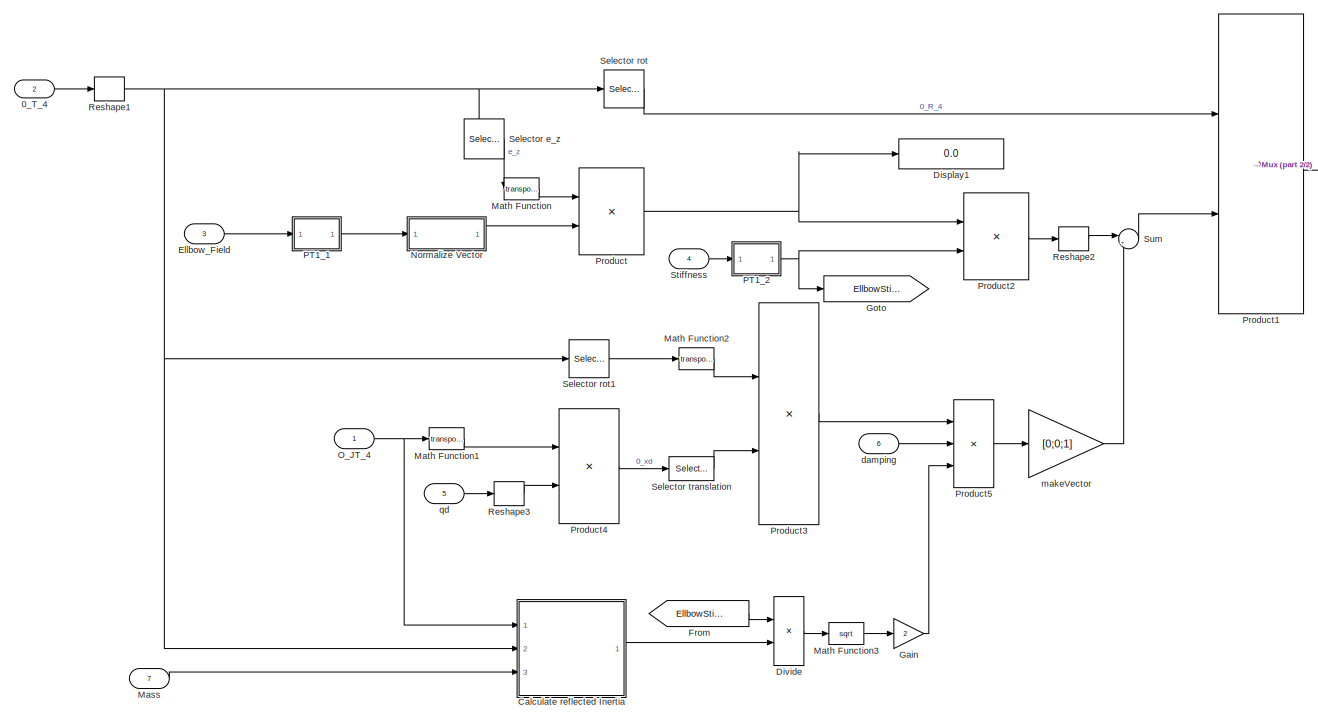
[diagram: Roboter+controller/controller/Cartesian Impedance Control/Subsystem/Cartesian Compliance Control/Nullspace Stiffness1/Stiffness Calculation - part 1/2, most of the canvas]
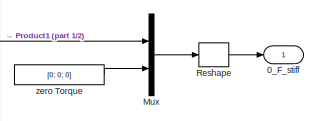
[diagram: Roboter+controller/controller/Cartesian Impedance Control/Subsystem/Cartesian Compliance Control/Nullspace Stiffness1/Stiffness Calculation - part 2/2, top right region]
BLOCK [SubSystem] Roboter+controller/controller/Cartesian Impedance Control/Subsystem/Cartesian Compliance Control/Nullspace Stiffness1/Stiffness Calculation
  Ports = [7, 1]
  RequestExecContextInheritance = off
BLOCK [Outport] Roboter+controller/controller/Cartesian Impedance Control/Subsystem/Cartesian Compliance Control/Nullspace Stiffness1/Stiffness Calculation/0_F_stiff
  IconDisplay = Port number
  OutDataTypeStr = double
  PortDimensions = [6 1]
BLOCK [Inport] Roboter+controller/controller/Cartesian Impedance Control/Subsystem/Cartesian Compliance Control/Nullspace Stiffness1/Stiffness Calculation/0_T_4
  IconDisplay = Port number
  Port = 2
BLOCK [SubSystem] Roboter+controller/controller/Cartesian Impedance Control/Subsystem/Cartesian Compliance Control/Nullspace Stiffness1/Stiffness Calculation/Calculate reflected Inertia
  Ports = [3, 1]
  RequestExecContextInheritance = off
BLOCK [Inport] Roboter+controller/controller/Cartesian Impedance Control/Subsystem/Cartesian Compliance Control/Nullspace Stiffness1/Stiffness Calculation/Calculate reflected Inertia/0_T_4
  IconDisplay = Port number
  Port = 2
BLOCK [Inport] Roboter+controller/controller/Cartesian Impedance Control/Subsystem/Cartesian Compliance Control/Nullspace Stiffness1/Stiffness Calculation/Calculate reflected Inertia/B_JT_4
  IconDisplay = Port number
BLOCK [Inport] Roboter+controller/controller/Cartesian Impedance Control/Subsystem/Cartesian Compliance Control/Nullspace Stiffness1/Stiffness Calculation/Calculate reflected Inertia/Mass
  IconDisplay = Port number
  Port = 3
BLOCK [Math] Roboter+controller/controller/Cartesian Impedance Control/Subsystem/Cartesian Compliance Control/Nullspace Stiffness1/Stiffness Calculation/Calculate reflected Inertia/Math Function1
  Operator = transpose
  Ports = [1, 1]
BLOCK [Product] Roboter+controller/controller/Cartesian Impedance Control/Subsystem/Cartesian Compliance Control/Nullspace Stiffness1/Stiffness Calculation/Calculate reflected Inertia/Product
  InputSameDT = off
  Multiplication = Matrix(*)
  OutDataTypeStr = Inherit: Inherit via internal rule
  Ports = [2, 1]
  SaturateOnIntegerOverflow = off
BLOCK [Product] Roboter+controller/controller/Cartesian Impedance Control/Subsystem/Cartesian Compliance Control/Nullspace Stiffness1/Stiffness Calculation/Calculate reflected Inertia/Product1
  InputSameDT = off
  Inputs = 3
  Multiplication = Matrix(*)
  OutDataTypeStr = Inherit: Inherit via internal rule
  Ports = [3, 1]
  SaturateOnIntegerOverflow = off
BLOCK [Selector] Roboter+controller/controller/Cartesian Impedance Control/Subsystem/Cartesian Compliance Control/Nullspace Stiffness1/Stiffness Calculation/Calculate reflected Inertia/Selector translation1
  IndexOptions = Index vector (dialog),Index vector (dialog)
  Indices = 3,3
  InputPortWidth = 6
  NumberOfDimensions = 2
  OutputSizes = 1,1
  Ports = [1, 1]
BLOCK [Reference] Roboter+controller/controller/Cartesian Impedance Control/Subsystem/Cartesian Compliance Control/Nullspace Stiffness1/Stiffness Calculation/Calculate reflected Inertia/Trafo3D Adjoint  REF=trafo3dLib/Trafo3D
Adjoint
  Ports = [1, 1]
  SourceBlock = trafo3dLib/Trafo3D\nAdjoint
BLOCK [Outport] Roboter+controller/controller/Cartesian Impedance Control/Subsystem/Cartesian Compliance Control/Nullspace Stiffness1/Stiffness Calculation/Calculate reflected Inertia/m_z
  IconDisplay = Port number
BLOCK [Display] Roboter+controller/controller/Cartesian Impedance Control/Subsystem/Cartesian Compliance Control/Nullspace Stiffness1/Stiffness Calculation/Display1
  Decimation = 1
  Ports = [1]
BLOCK [Product] Roboter+controller/controller/Cartesian Impedance Control/Subsystem/Cartesian Compliance Control/Nullspace Stiffness1/Stiffness Calculation/Divide
  InputSameDT = off
  Inputs = */
  OutDataTypeStr = Inherit: Inherit via internal rule
  Ports = [2, 1]
  RndMeth = Floor
  SaturateOnIntegerOverflow = off
BLOCK [Inport] Roboter+controller/controller/Cartesian Impedance Control/Subsystem/Cartesian Compliance Control/Nullspace Stiffness1/Stiffness Calculation/Ellbow_Field
  IconDisplay = Port number
  Port = 3
BLOCK [From] Roboter+controller/controller/Cartesian Impedance Control/Subsystem/Cartesian Compliance Control/Nullspace Stiffness1/Stiffness Calculation/From
  CloseFcn = tagdialog Close
  GotoTag = EllbowStiffness
BLOCK [Gain] Roboter+controller/controller/Cartesian Impedance Control/Subsystem/Cartesian Compliance Control/Nullspace Stiffness1/Stiffness Calculation/Gain
  Gain = 2
  OutDataTypeStr = Inherit: Inherit via internal rule
  ParamDataTypeStr = Inherit: Inherit via internal rule
  SaturateOnIntegerOverflow = off
BLOCK [Goto] Roboter+controller/controller/Cartesian Impedance Control/Subsystem/Cartesian Compliance Control/Nullspace Stiffness1/Stiffness Calculation/Goto
  GotoTag = EllbowStiffness
BLOCK [Inport] Roboter+controller/controller/Cartesian Impedance Control/Subsystem/Cartesian Compliance Control/Nullspace Stiffness1/Stiffness Calculation/Mass
  IconDisplay = Port number
  Port = 7
BLOCK [Math] Roboter+controller/controller/Cartesian Impedance Control/Subsystem/Cartesian Compliance Control/Nullspace Stiffness1/Stiffness Calculation/Math Function
  Operator = transpose
  Ports = [1, 1]
BLOCK [Math] Roboter+controller/controller/Cartesian Impedance Control/Subsystem/Cartesian Compliance Control/Nullspace Stiffness1/Stiffness Calculation/Math Function1
  Operator = transpose
  Ports = [1, 1]
BLOCK [Math] Roboter+controller/controller/Cartesian Impedance Control/Subsystem/Cartesian Compliance Control/Nullspace Stiffness1/Stiffness Calculation/Math Function2
  Operator = transpose
  Ports = [1, 1]
BLOCK [Math] Roboter+controller/controller/Cartesian Impedance Control/Subsystem/Cartesian Compliance Control/Nullspace Stiffness1/Stiffness Calculation/Math Function3
  Operator = sqrt
  Ports = [1, 1]
BLOCK [Mux] Roboter+controller/controller/Cartesian Impedance Control/Subsystem/Cartesian Compliance Control/Nullspace Stiffness1/Stiffness Calculation/Mux
  DisplayOption = bar
  Inputs = 2
  Ports = [2, 1]
BLOCK [SubSystem] Roboter+controller/controller/Cartesian Impedance Control/Subsystem/Cartesian Compliance Control/Nullspace Stiffness1/Stiffness Calculation/Normalize Vector
  Ports = [1, 1]
  RequestExecContextInheritance = off
BLOCK [Constant] Roboter+controller/controller/Cartesian Impedance Control/Subsystem/Cartesian Compliance Control/Nullspace Stiffness1/Stiffness Calculation/Normalize Vector/Constant
BLOCK [Demux] Roboter+controller/controller/Cartesian Impedance Control/Subsystem/Cartesian Compliance Control/Nullspace Stiffness1/Stiffness Calculation/Normalize Vector/Demux
  DisplayOption = bar
  Outputs = [-1 1]
  Ports = [1, 2]
BLOCK [Product] Roboter+controller/controller/Cartesian Impedance Control/Subsystem/Cartesian Compliance Control/Nullspace Stiffness1/Stiffness Calculation/Normalize Vector/Divide
  InputSameDT = off
  Inputs = */
  OutDataTypeStr = Inherit: Inherit via internal rule
  Ports = [2, 1]
  RndMeth = Floor
  SaturateOnIntegerOverflow = off
BLOCK [Ground] Roboter+controller/controller/Cartesian Impedance Control/Subsystem/Cartesian Compliance Control/Nullspace Stiffness1/Stiffness Calculation/Normalize Vector/Ground
BLOCK [Inport] Roboter+controller/controller/Cartesian Impedance Control/Subsystem/Cartesian Compliance Control/Nullspace Stiffness1/Stiffness Calculation/Normalize Vector/In1
  IconDisplay = Port number
BLOCK [Math] Roboter+controller/controller/Cartesian Impedance Control/Subsystem/Cartesian Compliance Control/Nullspace Stiffness1/Stiffness Calculation/Normalize Vector/Math Function
  Operator = square
  Ports = [1, 1]
BLOCK [Math] Roboter+controller/controller/Cartesian Impedance Control/Subsystem/Cartesian Compliance Control/Nullspace Stiffness1/Stiffness Calculation/Normalize Vector/Math Function1
  Operator = sqrt
  Ports = [1, 1]
BLOCK [Mux] Roboter+controller/controller/Cartesian Impedance Control/Subsystem/Cartesian Compliance Control/Nullspace Stiffness1/Stiffness Calculation/Normalize Vector/Mux
  DisplayOption = bar
  Inputs = 2
  Ports = [2, 1]
BLOCK [Mux] Roboter+controller/controller/Cartesian Impedance Control/Subsystem/Cartesian Compliance Control/Nullspace Stiffness1/Stiffness Calculation/Normalize Vector/Mux1
  DisplayOption = bar
  Inputs = 2
  Ports = [2, 1]
BLOCK [Outport] Roboter+controller/controller/Cartesian Impedance Control/Subsystem/Cartesian Compliance Control/Nullspace Stiffness1/Stiffness Calculation/Normalize Vector/Out1
  IconDisplay = Port number
BLOCK [Product] Roboter+controller/controller/Cartesian Impedance Control/Subsystem/Cartesian Compliance Control/Nullspace Stiffness1/Stiffness Calculation/Normalize Vector/Product
  InputSameDT = off
  OutDataTypeStr = Inherit: Inherit via internal rule
  Ports = [2, 1]
  SaturateOnIntegerOverflow = off
BLOCK [Sum] Roboter+controller/controller/Cartesian Impedance Control/Subsystem/Cartesian Compliance Control/Nullspace Stiffness1/Stiffness Calculation/Normalize Vector/Sum of Elements
  InputSameDT = off
  Inputs = +
  OutDataTypeStr = Inherit: Inherit via internal rule
  Ports = [1, 1]
  SaturateOnIntegerOverflow = off
BLOCK [Switch] Roboter+controller/controller/Cartesian Impedance Control/Subsystem/Cartesian Compliance Control/Nullspace Stiffness1/Stiffness Calculation/Normalize Vector/Switch
  Criteria = u2 > Threshold
  InputSameDT = off
  SaturateOnIntegerOverflow = off
  Threshold = maxzero
BLOCK [Inport] Roboter+controller/controller/Cartesian Impedance Control/Subsystem/Cartesian Compliance Control/Nullspace Stiffness1/Stiffness Calculation/O_JT_4
  IconDisplay = Port number
BLOCK [SubSystem] Roboter+controller/controller/Cartesian Impedance Control/Subsystem/Cartesian Compliance Control/Nullspace Stiffness1/Stiffness Calculation/PT1_1
  Ports = [1, 1]
  RequestExecContextInheritance = off
BLOCK [Gain] Roboter+controller/controller/Cartesian Impedance Control/Subsystem/Cartesian Compliance Control/Nullspace Stiffness1/Stiffness Calculation/PT1_1/Gain
  Gain = 3
  OutDataTypeStr = Inherit: Inherit via internal rule
  ParamDataTypeStr = Inherit: Inherit via internal rule
  SaturateOnIntegerOverflow = off
BLOCK [Inport] Roboter+controller/controller/Cartesian Impedance Control/Subsystem/Cartesian Compliance Control/Nullspace Stiffness1/Stiffness Calculation/PT1_1/In1
  IconDisplay = Port number
BLOCK [Integrator] Roboter+controller/controller/Cartesian Impedance Control/Subsystem/Cartesian Compliance Control/Nullspace Stiffness1/Stiffness Calculation/PT1_1/Integrator
  InitialCondition = [0 0 0]'
  Ports = [1, 1]
BLOCK [Outport] Roboter+controller/controller/Cartesian Impedance Control/Subsystem/Cartesian Compliance Control/Nullspace Stiffness1/Stiffness Calculation/PT1_1/Out1
  IconDisplay = Port number
  OutDataTypeStr = double
  PortDimensions = [3 1]
BLOCK [Sum] Roboter+controller/controller/Cartesian Impedance Control/Subsystem/Cartesian Compliance Control/Nullspace Stiffness1/Stiffness Calculation/PT1_1/Sum
  IconShape = round
  InputSameDT = off
  Inputs = |+-
  OutDataTypeStr = Inherit: Inherit via internal rule
  Ports = [2, 1]
  SaturateOnIntegerOverflow = off
BLOCK [SubSystem] Roboter+controller/controller/Cartesian Impedance Control/Subsystem/Cartesian Compliance Control/Nullspace Stiffness1/Stiffness Calculation/PT1_2
  Ports = [1, 1]
  RequestExecContextInheritance = off
BLOCK [Gain] Roboter+controller/controller/Cartesian Impedance Control/Subsystem/Cartesian Compliance Control/Nullspace Stiffness1/Stiffness Calculation/PT1_2/Gain
  Gain = 3
  OutDataTypeStr = Inherit: Inherit via internal rule
  ParamDataTypeStr = Inherit: Inherit via internal rule
  SaturateOnIntegerOverflow = off
BLOCK [Inport] Roboter+controller/controller/Cartesian Impedance Control/Subsystem/Cartesian Compliance Control/Nullspace Stiffness1/Stiffness Calculation/PT1_2/In1
  IconDisplay = Port number
BLOCK [Integrator] Roboter+controller/controller/Cartesian Impedance Control/Subsystem/Cartesian Compliance Control/Nullspace Stiffness1/Stiffness Calculation/PT1_2/Integrator
  Ports = [1, 1]
BLOCK [Outport] Roboter+controller/controller/Cartesian Impedance Control/Subsystem/Cartesian Compliance Control/Nullspace Stiffness1/Stiffness Calculation/PT1_2/Out1
  IconDisplay = Port number
  OutDataTypeStr = double
  PortDimensions = 1
BLOCK [Sum] Roboter+controller/controller/Cartesian Impedance Control/Subsystem/Cartesian Compliance Control/Nullspace Stiffness1/Stiffness Calculation/PT1_2/Sum
  IconShape = round
  InputSameDT = off
  Inputs = |+-
  OutDataTypeStr = Inherit: Inherit via internal rule
  Ports = [2, 1]
  SaturateOnIntegerOverflow = off
BLOCK [Product] Roboter+controller/controller/Cartesian Impedance Control/Subsystem/Cartesian Compliance Control/Nullspace Stiffness1/Stiffness Calculation/Product
  InputSameDT = off
  Multiplication = Matrix(*)
  OutDataTypeStr = Inherit: Inherit via internal rule
  Ports = [2, 1]
  SaturateOnIntegerOverflow = off
BLOCK [Product] Roboter+controller/controller/Cartesian Impedance Control/Subsystem/Cartesian Compliance Control/Nullspace Stiffness1/Stiffness Calculation/Product1
  InputSameDT = off
  Multiplication = Matrix(*)
  OutDataTypeStr = Inherit: Inherit via internal rule
  Ports = [2, 1]
  SaturateOnIntegerOverflow = off
BLOCK [Product] Roboter+controller/controller/Cartesian Impedance Control/Subsystem/Cartesian Compliance Control/Nullspace Stiffness1/Stiffness Calculation/Product2
  InputSameDT = off
  OutDataTypeStr = Inherit: Inherit via internal rule
  Ports = [2, 1]
  SaturateOnIntegerOverflow = off
BLOCK [Product] Roboter+controller/controller/Cartesian Impedance Control/Subsystem/Cartesian Compliance Control/Nullspace Stiffness1/Stiffness Calculation/Product3
  InputSameDT = off
  Multiplication = Matrix(*)
  OutDataTypeStr = Inherit: Inherit via internal rule
  Ports = [2, 1]
  SaturateOnIntegerOverflow = off
BLOCK [Product] Roboter+controller/controller/Cartesian Impedance Control/Subsystem/Cartesian Compliance Control/Nullspace Stiffness1/Stiffness Calculation/Product4
  InputSameDT = off
  Multiplication = Matrix(*)
  OutDataTypeStr = Inherit: Inherit via internal rule
  Ports = [2, 1]
  SaturateOnIntegerOverflow = off
BLOCK [Product] Roboter+controller/controller/Cartesian Impedance Control/Subsystem/Cartesian Compliance Control/Nullspace Stiffness1/Stiffness Calculation/Product5
  InputSameDT = off
  Inputs = 3
  OutDataTypeStr = Inherit: Inherit via internal rule
  Ports = [3, 1]
  SaturateOnIntegerOverflow = off
BLOCK [Reshape] Roboter+controller/controller/Cartesian Impedance Control/Subsystem/Cartesian Compliance Control/Nullspace Stiffness1/Stiffness Calculation/Reshape
  OutputDimensionality = Column vector (2-D)
  Ports = [1, 1]
BLOCK [Reshape] Roboter+controller/controller/Cartesian Impedance Control/Subsystem/Cartesian Compliance Control/Nullspace Stiffness1/Stiffness Calculation/Reshape1
  OutputDimensionality = Customize
  OutputDimensions = [3,4]
  Ports = [1, 1]
BLOCK [Reshape] Roboter+controller/controller/Cartesian Impedance Control/Subsystem/Cartesian Compliance Control/Nullspace Stiffness1/Stiffness Calculation/Reshape2
  OutputDimensionality = Column vector (2-D)
  Ports = [1, 1]
BLOCK [Reshape] Roboter+controller/controller/Cartesian Impedance Control/Subsystem/Cartesian Compliance Control/Nullspace Stiffness1/Stiffness Calculation/Reshape3
  OutputDimensionality = Column vector (2-D)
  Ports = [1, 1]
BLOCK [Selector] Roboter+controller/controller/Cartesian Impedance Control/Subsystem/Cartesian Compliance Control/Nullspace Stiffness1/Stiffness Calculation/Selector e_z
  IndexOptions = Index vector (dialog),Index vector (dialog)
  Indices = [1 2 3],3
  InputPortWidth = 3
  NumberOfDimensions = 2
  OutputSizes = 1,1
  Ports = [1, 1]
BLOCK [Selector] Roboter+controller/controller/Cartesian Impedance Control/Subsystem/Cartesian Compliance Control/Nullspace Stiffness1/Stiffness Calculation/Selector rot
  IndexOptions = Index vector (dialog),Index vector (dialog)
  Indices = [1 2 3],[1 2 3]
  InputPortWidth = 3
  NumberOfDimensions = 2
  OutputSizes = 1,1
  Ports = [1, 1]
BLOCK [Selector] Roboter+controller/controller/Cartesian Impedance Control/Subsystem/Cartesian Compliance Control/Nullspace Stiffness1/Stiffness Calculation/Selector rot1
  IndexOptions = Index vector (dialog),Index vector (dialog)
  Indices = [1 2 3],[1 2 3]
  InputPortWidth = 3
  NumberOfDimensions = 2
  OutputSizes = 1,1
  Ports = [1, 1]
BLOCK [Selector] Roboter+controller/controller/Cartesian Impedance Control/Subsystem/Cartesian Compliance Control/Nullspace Stiffness1/Stiffness Calculation/Selector translation
  Indices = [1 2 3]
  InputPortWidth = 6
  Ports = [1, 1]
BLOCK [Inport] Roboter+controller/controller/Cartesian Impedance Control/Subsystem/Cartesian Compliance Control/Nullspace Stiffness1/Stiffness Calculation/Stiffness
  IconDisplay = Port number
  Port = 4
BLOCK [Sum] Roboter+controller/controller/Cartesian Impedance Control/Subsystem/Cartesian Compliance Control/Nullspace Stiffness1/Stiffness Calculation/Sum
  IconShape = round
  InputSameDT = off
  Inputs = |+-
  OutDataTypeStr = Inherit: Inherit via internal rule
  Ports = [2, 1]
  SaturateOnIntegerOverflow = off
BLOCK [Inport] Roboter+controller/controller/Cartesian Impedance Control/Subsystem/Cartesian Compliance Control/Nullspace Stiffness1/Stiffness Calculation/damping
  IconDisplay = Port number
  Port = 6
BLOCK [Gain] Roboter+controller/controller/Cartesian Impedance Control/Subsystem/Cartesian Compliance Control/Nullspace Stiffness1/Stiffness Calculation/makeVector
  Gain = [0;0;1]
  OutDataTypeStr = Inherit: Inherit via internal rule
  ParamDataTypeStr = Inherit: Inherit via internal rule
  SaturateOnIntegerOverflow = off
BLOCK [Inport] Roboter+controller/controller/Cartesian Impedance Control/Subsystem/Cartesian Compliance Control/Nullspace Stiffness1/Stiffness Calculation/qd
  IconDisplay = Port number
  Port = 5
BLOCK [Constant] Roboter+controller/controller/Cartesian Impedance Control/Subsystem/Cartesian Compliance Control/Nullspace Stiffness1/Stiffness Calculation/zero Torque
  Value = [0; 0; 0]
BLOCK [Math] Roboter+controller/controller/Cartesian Impedance Control/Subsystem/Cartesian Compliance Control/Nullspace Stiffness1/Transpose
  Operator = transpose
  Ports = [1, 1]
BLOCK [Inport] Roboter+controller/controller/Cartesian Impedance Control/Subsystem/Cartesian Compliance Control/Nullspace Stiffness1/W_T_O
  IconDisplay = Port number
  Port = 9
BLOCK [Inport] Roboter+controller/controller/Cartesian Impedance Control/Subsystem/Cartesian Compliance Control/Nullspace Stiffness1/desiredVec
  IconDisplay = Port number
  Port = 5
BLOCK [Inport] Roboter+controller/controller/Cartesian Impedance Control/Subsystem/Cartesian Compliance Control/Nullspace Stiffness1/dtheta
  IconDisplay = Port number
  Port = 3
BLOCK [Outport] Roboter+controller/controller/Cartesian Impedance Control/Subsystem/Cartesian Compliance Control/Nullspace Stiffness1/tau
  IconDisplay = Port number
  InitialOutput = zeros(1,7)
  OutDataTypeStr = double
  OutputWhenDisabled = reset
  PortDimensions = 7
BLOCK [Inport] Roboter+controller/controller/Cartesian Impedance Control/Subsystem/Cartesian Compliance Control/O_JT_4
  IconDisplay = Port number
  Port = 14
BLOCK [Inport] Roboter+controller/controller/Cartesian Impedance Control/Subsystem/Cartesian Compliance Control/O_T_4
  IconDisplay = Port number
  Port = 12
BLOCK [Selector] Roboter+controller/controller/Cartesian Impedance Control/Subsystem/Cartesian Compliance Control/Select M
  IndexOptions = Select all,Index vector (dialog)
  Indices = -1,3:9
  InputPortWidth = 3
  NumberOfDimensions = 2
  Ports = [1, 1]
BLOCK [Selector] Roboter+controller/controller/Cartesian Impedance Control/Subsystem/Cartesian Compliance Control/Selector
  Indices = 1:4
  InputPortWidth = 7
  Ports = [1, 1]
BLOCK [SubSystem] Roboter+controller/controller/Cartesian Impedance Control/Subsystem/Cartesian Compliance Control/Singularity Avoidance
  Ports = [5, 2, 1]
  RequestExecContextInheritance = off
  TreatAsAtomicUnit = on
BLOCK [Sum] Roboter+controller/controller/Cartesian Impedance Control/Subsystem/Cartesian Compliance Control/Singularity Avoidance/Add
  InputSameDT = off
  OutDataTypeStr = Inherit: Inherit via internal rule
  Ports = [2, 1]
  SaturateOnIntegerOverflow = off
BLOCK [EnablePort] Roboter+controller/controller/Cartesian Impedance Control/Subsystem/Cartesian Compliance Control/Singularity Avoidance/Enable
  Ports = []
  StatesWhenEnabling = reset
BLOCK [Gain] Roboter+controller/controller/Cartesian Impedance Control/Subsystem/Cartesian Compliance Control/Singularity Avoidance/Gain
  Gain = -1
  OutDataTypeStr = Inherit: Inherit via internal rule
  ParamDataTypeStr = Inherit: Inherit via internal rule
  SaturateOnIntegerOverflow = off
BLOCK [Product] Roboter+controller/controller/Cartesian Impedance Control/Subsystem/Cartesian Compliance Control/Singularity Avoidance/Product
  InputSameDT = off
  Multiplication = Matrix(*)
  OutDataTypeStr = Inherit: Inherit via internal rule
  Ports = [2, 1]
  SaturateOnIntegerOverflow = off
BLOCK [Product] Roboter+controller/controller/Cartesian Impedance Control/Subsystem/Cartesian Compliance Control/Singularity Avoidance/Product1
  InputSameDT = off
  OutDataTypeStr = Inherit: Inherit via internal rule
  Ports = [2, 1]
  SaturateOnIntegerOverflow = off
BLOCK [SubSystem] Roboter+controller/controller/Cartesian Impedance Control/Subsystem/Cartesian Compliance Control/Singularity Avoidance/Proj.
  ErrorFcn = Stateflow.Translate.translate
  PermitHierarchicalResolution = ExplicitOnly
  Ports = [1, 1]
  RequestExecContextInheritance = off
  SFBlockType = MATLAB Function
  TreatAsAtomicUnit = on
BLOCK [Demux] Roboter+controller/controller/Cartesian Impedance Control/Subsystem/Cartesian Compliance Control/Singularity Avoidance/Proj./ Demux 
  Outputs = 1
  Ports = [1, 1]
BLOCK [S-Function] Roboter+controller/controller/Cartesian Impedance Control/Subsystem/Cartesian Compliance Control/Singularity Avoidance/Proj./ SFunction 
  EnableBusSupport = on
  FunctionName = sf_sfun
  PortCounts = [1 2]
  Ports = [1, 2]
  Tag = Stateflow S-Function minimal_rcu_full 14
BLOCK [Terminator] Roboter+controller/controller/Cartesian Impedance Control/Subsystem/Cartesian Compliance Control/Singularity Avoidance/Proj./ Terminator 
BLOCK [Outport] Roboter+controller/controller/Cartesian Impedance Control/Subsystem/Cartesian Compliance Control/Singularity Avoidance/Proj./P
  IconDisplay = Port number
BLOCK [Inport] Roboter+controller/controller/Cartesian Impedance Control/Subsystem/Cartesian Compliance Control/Singularity Avoidance/Proj./tau
  IconDisplay = Port number
BLOCK [Reshape] Roboter+controller/controller/Cartesian Impedance Control/Subsystem/Cartesian Compliance Control/Singularity Avoidance/Reshape
  OutputDimensionality = Column vector (2-D)
  Ports = [1, 1]
BLOCK [Reshape] Roboter+controller/controller/Cartesian Impedance Control/Subsystem/Cartesian Compliance Control/Singularity Avoidance/Reshape1
  Ports = [1, 1]
BLOCK [S-Function] Roboter+controller/controller/Cartesian Impedance Control/Subsystem/Cartesian Compliance Control/Singularity Avoidance/Singularity Avoidance
  EnableBusSupport = off
  FunctionName = lbr_singul_avoid_sfun
  Parameters = robot
  Ports = [3, 2]
BLOCK [Inport] Roboter+controller/controller/Cartesian Impedance Control/Subsystem/Cartesian Compliance Control/Singularity Avoidance/d_sing
  IconDisplay = Port number
  Port = 5
BLOCK [Inport] Roboter+controller/controller/Cartesian Impedance Control/Subsystem/Cartesian Compliance Control/Singularity Avoidance/dist
  IconDisplay = Port number
  Port = 3
BLOCK [Inport] Roboter+controller/controller/Cartesian Impedance Control/Subsystem/Cartesian Compliance Control/Singularity Avoidance/dqm
  IconDisplay = Port number
  Port = 2
BLOCK [Inport] Roboter+controller/controller/Cartesian Impedance Control/Subsystem/Cartesian Compliance Control/Singularity Avoidance/gain
  IconDisplay = Port number
  Port = 4
BLOCK [Outport] Roboter+controller/controller/Cartesian Impedance Control/Subsystem/Cartesian Compliance Control/Singularity Avoidance/index
  IconDisplay = Port number
  InitialOutput = 0
  OutDataTypeStr = double
  OutputWhenDisabled = reset
  Port = 2
  PortDimensions = 1
BLOCK [Inport] Roboter+controller/controller/Cartesian Impedance Control/Subsystem/Cartesian Compliance Control/Singularity Avoidance/qm
  IconDisplay = Port number
BLOCK [Outport] Roboter+controller/controller/Cartesian Impedance Control/Subsystem/Cartesian Compliance Control/Singularity Avoidance/tau
  IconDisplay = Port number
  InitialOutput = zeros(1,7)
  OutDataTypeStr = double
  OutputWhenDisabled = reset
  PortDimensions = 7
BLOCK [Terminator] Roboter+controller/controller/Cartesian Impedance Control/Subsystem/Cartesian Compliance Control/Terminator
BLOCK [Terminator] Roboter+controller/controller/Cartesian Impedance Control/Subsystem/Cartesian Compliance Control/Terminator1
BLOCK [Terminator] Roboter+controller/controller/Cartesian Impedance Control/Subsystem/Cartesian Compliance Control/Terminator2
BLOCK [Inport] Roboter+controller/controller/Cartesian Impedance Control/Subsystem/Cartesian Compliance Control/W_T_0
  IconDisplay = Port number
  Port = 13
BLOCK [Inport] Roboter+controller/controller/Cartesian Impedance Control/Subsystem/Cartesian Compliance Control/arm_dyn
  IconDisplay = Port number
  Port = 2
BLOCK [Inport] Roboter+controller/controller/Cartesian Impedance Control/Subsystem/Cartesian Compliance Control/base_acceleration
  IconDisplay = Port number
  Port = 8
BLOCK [SubSystem] Roboter+controller/controller/Cartesian Impedance Control/Subsystem/Cartesian Compliance Control/cmd
  Ports = [1, 3]
  RequestExecContextInheritance = off
BLOCK [SubSystem] Roboter+controller/controller/Cartesian Impedance Control/Subsystem/Cartesian Compliance Control/cmd/Embedded MATLAB Function1
  ErrorFcn = Stateflow.Translate.translate
  PermitHierarchicalResolution = ExplicitOnly
  Ports = [1, 1]
  RequestExecContextInheritance = off
  SFBlockType = MATLAB Function
  TreatAsAtomicUnit = on
BLOCK [Demux] Roboter+controller/controller/Cartesian Impedance Control/Subsystem/Cartesian Compliance Control/cmd/Embedded MATLAB Function1/ Demux 
  Outputs = 1
  Ports = [1, 1]
BLOCK [S-Function] Roboter+controller/controller/Cartesian Impedance Control/Subsystem/Cartesian Compliance Control/cmd/Embedded MATLAB Function1/ SFunction 
  EnableBusSupport = on
  FunctionName = sf_sfun
  PortCounts = [1 2]
  Ports = [1, 2]
  Tag = Stateflow S-Function minimal_rcu_full 24
BLOCK [Terminator] Roboter+controller/controller/Cartesian Impedance Control/Subsystem/Cartesian Compliance Control/cmd/Embedded MATLAB Function1/ Terminator 
BLOCK [Outport] Roboter+controller/controller/Cartesian Impedance Control/Subsystem/Cartesian Compliance Control/cmd/Embedded MATLAB Function1/K
  IconDisplay = Port number
BLOCK [Inport] Roboter+controller/controller/Cartesian Impedance Control/Subsystem/Cartesian Compliance Control/cmd/Embedded MATLAB Function1/K_diag
  IconDisplay = Port number
BLOCK [Outport] Roboter+controller/controller/Cartesian Impedance Control/Subsystem/Cartesian Compliance Control/cmd/K_diag
  IconDisplay = Port number
  Port = 3
BLOCK [Selector] Roboter+controller/controller/Cartesian Impedance Control/Subsystem/Cartesian Compliance Control/cmd/Select K_diag
  Indices = [3:8]
  InputPortWidth = 23
  Ports = [1, 1]
BLOCK [Selector] Roboter+controller/controller/Cartesian Impedance Control/Subsystem/Cartesian Compliance Control/cmd/Select Type
  InputPortWidth = 23
  Ports = [1, 1]
BLOCK [Selector] Roboter+controller/controller/Cartesian Impedance Control/Subsystem/Cartesian Compliance Control/cmd/Select niter
  Indices = 2
  InputPortWidth = 23
  Ports = [1, 1]
BLOCK [Inport] Roboter+controller/controller/Cartesian Impedance Control/Subsystem/Cartesian Compliance Control/cmd/all
  IconDisplay = Port number
BLOCK [Outport] Roboter+controller/controller/Cartesian Impedance Control/Subsystem/Cartesian Compliance Control/cmd/niter
  IconDisplay = Port number
  Port = 2
BLOCK [Outport] Roboter+controller/controller/Cartesian Impedance Control/Subsystem/Cartesian Compliance Control/cmd/type
  IconDisplay = Port number
BLOCK [SubSystem] Roboter+controller/controller/Cartesian Impedance Control/Subsystem/Cartesian Compliance Control/cmd2
  Ports = [1, 4]
  RequestExecContextInheritance = off
BLOCK [SubSystem] Roboter+controller/controller/Cartesian Impedance Control/Subsystem/Cartesian Compliance Control/cmd2/Embedded MATLAB Function1
  ErrorFcn = Stateflow.Translate.translate
  PermitHierarchicalResolution = ExplicitOnly
  Ports = [1, 2]
  RequestExecContextInheritance = off
  SFBlockType = MATLAB Function
  TreatAsAtomicUnit = on
BLOCK [Demux] Roboter+controller/controller/Cartesian Impedance Control/Subsystem/Cartesian Compliance Control/cmd2/Embedded MATLAB Function1/ Demux 
  Outputs = 1
  Ports = [1, 1]
BLOCK [S-Function] Roboter+controller/controller/Cartesian Impedance Control/Subsystem/Cartesian Compliance Control/cmd2/Embedded MATLAB Function1/ SFunction 
  EnableBusSupport = on
  FunctionName = sf_sfun
  PortCounts = [1 3]
  Ports = [1, 3]
  Tag = Stateflow S-Function minimal_rcu_full 2
BLOCK [Terminator] Roboter+controller/controller/Cartesian Impedance Control/Subsystem/Cartesian Compliance Control/cmd2/Embedded MATLAB Function1/ Terminator 
BLOCK [Outport] Roboter+controller/controller/Cartesian Impedance Control/Subsystem/Cartesian Compliance Control/cmd2/Embedded MATLAB Function1/K
  IconDisplay = Port number
BLOCK [Inport] Roboter+controller/controller/Cartesian Impedance Control/Subsystem/Cartesian Compliance Control/cmd2/Embedded MATLAB Function1/K_diag
  IconDisplay = Port number
BLOCK [Outport] Roboter+controller/controller/Cartesian Impedance Control/Subsystem/Cartesian Compliance Control/cmd2/Embedded MATLAB Function1/K_sqrt
  IconDisplay = Port number
  Port = 2
BLOCK [Outport] Roboter+controller/controller/Cartesian Impedance Control/Subsystem/Cartesian Compliance Control/cmd2/K_diag
  IconDisplay = Port number
  Port = 3
BLOCK [Outport] Roboter+controller/controller/Cartesian Impedance Control/Subsystem/Cartesian Compliance Control/cmd2/K_sqrt
  IconDisplay = Port number
  Port = 4
BLOCK [Selector] Roboter+controller/controller/Cartesian Impedance Control/Subsystem/Cartesian Compliance Control/cmd2/Select K_diag
  Indices = [3:8]
  InputPortWidth = 23
  Ports = [1, 1]
BLOCK [Selector] Roboter+controller/controller/Cartesian Impedance Control/Subsystem/Cartesian Compliance Control/cmd2/Select Type
  Indices = 23
  InputPortWidth = 23
  Ports = [1, 1]
BLOCK [Selector] Roboter+controller/controller/Cartesian Impedance Control/Subsystem/Cartesian Compliance Control/cmd2/Select niter
  Indices = [9:14]
  InputPortWidth = 23
  Ports = [1, 1]
BLOCK [Inport] Roboter+controller/controller/Cartesian Impedance Control/Subsystem/Cartesian Compliance Control/cmd2/all
  IconDisplay = Port number
BLOCK [Outport] Roboter+controller/controller/Cartesian Impedance Control/Subsystem/Cartesian Compliance Control/cmd2/damping_type
  IconDisplay = Port number
  Port = 2
BLOCK [Outport] Roboter+controller/controller/Cartesian Impedance Control/Subsystem/Cartesian Compliance Control/cmd2/xi_diag
  IconDisplay = Port number
BLOCK [SubSystem] Roboter+controller/controller/Cartesian Impedance Control/Subsystem/Cartesian Compliance Control/cmd3
  Ports = [1, 3]
  RequestExecContextInheritance = off
BLOCK [Outport] Roboter+controller/controller/Cartesian Impedance Control/Subsystem/Cartesian Compliance Control/cmd3/K_NS
  IconDisplay = Port number
  Port = 2
BLOCK [Selector] Roboter+controller/controller/Cartesian Impedance Control/Subsystem/Cartesian Compliance Control/cmd3/Select K_diag
  Indices = 16
  InputPortWidth = 23
  Ports = [1, 1]
BLOCK [Selector] Roboter+controller/controller/Cartesian Impedance Control/Subsystem/Cartesian Compliance Control/cmd3/Select Type
  Indices = [17:19]
  InputPortWidth = 23
  Ports = [1, 1]
BLOCK [Selector] Roboter+controller/controller/Cartesian Impedance Control/Subsystem/Cartesian Compliance Control/cmd3/Select niter
  Indices = 15
  InputPortWidth = 23
  Ports = [1, 1]
BLOCK [Outport] Roboter+controller/controller/Cartesian Impedance Control/Subsystem/Cartesian Compliance Control/cmd3/Xi_NS
  IconDisplay = Port number
  Port = 3
BLOCK [Inport] Roboter+controller/controller/Cartesian Impedance Control/Subsystem/Cartesian Compliance Control/cmd3/all
  IconDisplay = Port number
BLOCK [Outport] Roboter+controller/controller/Cartesian Impedance Control/Subsystem/Cartesian Compliance Control/cmd3/desiredVec
  IconDisplay = Port number
BLOCK [SubSystem] Roboter+controller/controller/Cartesian Impedance Control/Subsystem/Cartesian Compliance Control/cmd4
  Ports = [1, 3]
  RequestExecContextInheritance = off
BLOCK [Selector] Roboter+controller/controller/Cartesian Impedance Control/Subsystem/Cartesian Compliance Control/cmd4/Select K_diag
  Indices = 22
  InputPortWidth = 23
  Ports = [1, 1]
BLOCK [Selector] Roboter+controller/controller/Cartesian Impedance Control/Subsystem/Cartesian Compliance Control/cmd4/Select Type
  Indices = 20
  InputPortWidth = 23
  Ports = [1, 1]
BLOCK [Selector] Roboter+controller/controller/Cartesian Impedance Control/Subsystem/Cartesian Compliance Control/cmd4/Select niter
  Indices = 21
  InputPortWidth = 23
  Ports = [1, 1]
BLOCK [Inport] Roboter+controller/controller/Cartesian Impedance Control/Subsystem/Cartesian Compliance Control/cmd4/all
  IconDisplay = Port number
BLOCK [Outport] Roboter+controller/controller/Cartesian Impedance Control/Subsystem/Cartesian Compliance Control/cmd4/sing_damp
  IconDisplay = Port number
  Port = 3
BLOCK [Outport] Roboter+controller/controller/Cartesian Impedance Control/Subsystem/Cartesian Compliance Control/cmd4/sing_dist
  IconDisplay = Port number
BLOCK [Outport] Roboter+controller/controller/Cartesian Impedance Control/Subsystem/Cartesian Compliance Control/cmd4/sing_gain
  IconDisplay = Port number
  Port = 2
BLOCK [Inport] Roboter+controller/controller/Cartesian Impedance Control/Subsystem/Cartesian Compliance Control/dtheta
  IconDisplay = Port number
  Port = 7
BLOCK [Inport] Roboter+controller/controller/Cartesian Impedance Control/Subsystem/Cartesian Compliance Control/dxd
  IconDisplay = Port number
  Port = 11
BLOCK [Inport] Roboter+controller/controller/Cartesian Impedance Control/Subsystem/Cartesian Compliance Control/load_params
  IconDisplay = Port number
  Port = 4
BLOCK [Inport] Roboter+controller/controller/Cartesian Impedance Control/Subsystem/Cartesian Compliance Control/motor_pos
  IconDisplay = Port number
BLOCK [Outport] Roboter+controller/controller/Cartesian Impedance Control/Subsystem/Cartesian Compliance Control/p_inv
  IconDisplay = Port number
  OutDataTypeStr = double
  Port = 2
  PortDimensions = [7 7]
BLOCK [Inport] Roboter+controller/controller/Cartesian Impedance Control/Subsystem/Cartesian Compliance Control/params
  IconDisplay = Port number
  Port = 3
BLOCK [Inport] Roboter+controller/controller/Cartesian Impedance Control/Subsystem/Cartesian Compliance Control/relaxing
  IconDisplay = Port number
  Port = 10
BLOCK [Outport] Roboter+controller/controller/Cartesian Impedance Control/Subsystem/Cartesian Compliance Control/tau_d_nullspace
  IconDisplay = Port number
  OutDataTypeStr = double
  Port = 3
  PortDimensions = 7
BLOCK [Outport] Roboter+controller/controller/Cartesian Impedance Control/Subsystem/Cartesian Compliance Control/tau_d_singularity_avoidance
  IconDisplay = Port number
  OutDataTypeStr = double
  Port = 4
  PortDimensions = 7
BLOCK [Outport] Roboter+controller/controller/Cartesian Impedance Control/Subsystem/Cartesian Compliance Control/tau_damping
  IconDisplay = Port number
  OutDataTypeStr = double
  Port = 7
  PortDimensions = 7
BLOCK [Outport] Roboter+controller/controller/Cartesian Impedance Control/Subsystem/Cartesian Compliance Control/tau_grav
  IconDisplay = Port number
  OutDataTypeStr = double
  Port = 6
  PortDimensions = 7
BLOCK [Outport] Roboter+controller/controller/Cartesian Impedance Control/Subsystem/Cartesian Compliance Control/tau_stiffness
  IconDisplay = Port number
  OutDataTypeStr = double
  Port = 5
  PortDimensions = 7
BLOCK [Inport] Roboter+controller/controller/Cartesian Impedance Control/Subsystem/Cartesian Compliance Control/tcp_offset
  IconDisplay = Port number
  Port = 5
BLOCK [EnablePort] Roboter+controller/controller/Cartesian Impedance Control/Subsystem/Enable
  Ports = []
BLOCK [Outport] Roboter+controller/controller/Cartesian Impedance Control/Subsystem/F
  IconDisplay = Port number
  Port = 3
BLOCK [Inport] Roboter+controller/controller/Cartesian Impedance Control/Subsystem/Fkin0
  IconDisplay = Port number
  Port = 9
BLOCK [Inport] Roboter+controller/controller/Cartesian Impedance Control/Subsystem/O_T_4
  IconDisplay = Port number
  Port = 14
BLOCK [Product] Roboter+controller/controller/Cartesian Impedance Control/Subsystem/Product
  InputSameDT = off
  OutDataTypeStr = Inherit: Inherit via internal rule
  Ports = [2, 1]
  SaturateOnIntegerOverflow = off
BLOCK [Product] Roboter+controller/controller/Cartesian Impedance Control/Subsystem/Product1
  InputSameDT = off
  OutDataTypeStr = Inherit: Inherit via internal rule
  Ports = [2, 1]
  SaturateOnIntegerOverflow = off
BLOCK [Inport] Roboter+controller/controller/Cartesian Impedance Control/Subsystem/W_T_0
  IconDisplay = Port number
  Port = 6
BLOCK [Inport] Roboter+controller/controller/Cartesian Impedance Control/Subsystem/arm_dyn
  IconDisplay = Port number
  Port = 3
BLOCK [Inport] Roboter+controller/controller/Cartesian Impedance Control/Subsystem/base_acceleration
  IconDisplay = Port number
  Port = 7
BLOCK [Inport] Roboter+controller/controller/Cartesian Impedance Control/Subsystem/dtheta
  IconDisplay = Port number
  Port = 11
BLOCK [Inport] Roboter+controller/controller/Cartesian Impedance Control/Subsystem/dxd
  IconDisplay = Port number
  Port = 10
BLOCK [Inport] Roboter+controller/controller/Cartesian Impedance Control/Subsystem/enable
  IconDisplay = Port number
BLOCK [Inport] Roboter+controller/controller/Cartesian Impedance Control/Subsystem/load_params
  IconDisplay = Port number
  Port = 5
BLOCK [Outport] Roboter+controller/controller/Cartesian Impedance Control/Subsystem/p_inv
  IconDisplay = Port number
  Port = 2
BLOCK [Inport] Roboter+controller/controller/Cartesian Impedance Control/Subsystem/params
  IconDisplay = Port number
  Port = 4
BLOCK [Inport] Roboter+controller/controller/Cartesian Impedance Control/Subsystem/relaxing
  IconDisplay = Port number
  Port = 13
BLOCK [Outport] Roboter+controller/controller/Cartesian Impedance Control/Subsystem/tau_d
  IconDisplay = Port number
BLOCK [Inport] Roboter+controller/controller/Cartesian Impedance Control/Subsystem/tcp_offset
  IconDisplay = Port number
  Port = 8
BLOCK [Inport] Roboter+controller/controller/Cartesian Impedance Control/Subsystem/theta
  IconDisplay = Port number
  Port = 2
BLOCK [Terminator] Roboter+controller/controller/Cartesian Impedance Control/Terminator
BLOCK [Terminator] Roboter+controller/controller/Cartesian Impedance Control/Terminator1
BLOCK [SubSystem] Roboter+controller/controller/Cartesian Impedance Control/Velocity Filter
  Ports = [1, 1]
  RequestExecContextInheritance = off
BLOCK [SubSystem] Roboter+controller/controller/Cartesian Impedance Control/Velocity Filter/Discrete Filter1
  Ports = [1, 1]
  RequestExecContextInheritance = off
BLOCK [Sum] Roboter+controller/controller/Cartesian Impedance Control/Velocity Filter/Discrete Filter1/Add1
  InputSameDT = off
  OutDataTypeStr = Inherit: Inherit via internal rule
  Ports = [2, 1]
  SaturateOnIntegerOverflow = off
BLOCK [Gain] Roboter+controller/controller/Cartesian Impedance Control/Velocity Filter/Discrete Filter1/Gain1
  Gain = 1/10
  OutDataTypeStr = Inherit: Inherit via internal rule
  ParamDataTypeStr = Inherit: Inherit via internal rule
  SaturateOnIntegerOverflow = off
BLOCK [Gain] Roboter+controller/controller/Cartesian Impedance Control/Velocity Filter/Discrete Filter1/Gain2
  Gain = 9/10
  OutDataTypeStr = Inherit: Inherit via internal rule
  ParamDataTypeStr = Inherit: Inherit via internal rule
  SaturateOnIntegerOverflow = off
BLOCK [UnitDelay] Roboter+controller/controller/Cartesian Impedance Control/Velocity Filter/Discrete Filter1/Unit Delay
  SampleTime = -1
BLOCK [Inport] Roboter+controller/controller/Cartesian Impedance Control/Velocity Filter/Discrete Filter1/dq
  IconDisplay = Port number
BLOCK [Outport] Roboter+controller/controller/Cartesian Impedance Control/Velocity Filter/Discrete Filter1/dq_filt
  IconDisplay = Port number
  OutDataTypeStr = double
  PortDimensions = 7
BLOCK [Reference] Roboter+controller/controller/Cartesian Impedance Control/Velocity Filter/First_order_filter_MIMO  REF=beasty_sfcns/Utility Functions/First_order_filter_MIMO
  Ports = [3, 1]
  SourceBlock = beasty_sfcns/Utility Functions/First_order_filter_MIMO
  SourceType = Discrete First Order Filter
  T = ones(7,1)*0.009
  h = sample_time_robot
  nr = 7
BLOCK [Ground] Roboter+controller/controller/Cartesian Impedance Control/Velocity Filter/Ground
BLOCK [Ground] Roboter+controller/controller/Cartesian Impedance Control/Velocity Filter/Ground1
BLOCK [Ground] Roboter+controller/controller/Cartesian Impedance Control/Velocity Filter/Ground2
BLOCK [Terminator] Roboter+controller/controller/Cartesian Impedance Control/Velocity Filter/Terminator
BLOCK [Inport] Roboter+controller/controller/Cartesian Impedance Control/Velocity Filter/dq
  IconDisplay = Port number
BLOCK [Outport] Roboter+controller/controller/Cartesian Impedance Control/Velocity Filter/dq_filt
  IconDisplay = Port number
  OutDataTypeStr = double
  PortDimensions = 7
BLOCK [SubSystem] Roboter+controller/controller/Cartesian Impedance Control/calculate Feedforward
  Ports = [4, 3]
  RequestExecContextInheritance = off
BLOCK [Inport] Roboter+controller/controller/Cartesian Impedance Control/calculate Feedforward/0_T_EE_des
  IconDisplay = Port number
  Port = 3
BLOCK [Outport] Roboter+controller/controller/Cartesian Impedance Control/calculate Feedforward/0_T_K_des
  IconDisplay = Port number
  OutDataTypeStr = double
  Port = 2
  PortDimensions = [3 4]
BLOCK [Constant] Roboter+controller/controller/Cartesian Impedance Control/calculate Feedforward/Constant
  Value = 0
BLOCK [Inport] Roboter+controller/controller/Cartesian Impedance Control/calculate Feedforward/EE_T_K
  IconDisplay = Port number
  Port = 2
BLOCK [Ground] Roboter+controller/controller/Cartesian Impedance Control/calculate Feedforward/Ground
BLOCK [SubSystem] Roboter+controller/controller/Cartesian Impedance Control/calculate Feedforward/Numerische Differentiation
  Ports = [1, 1]
  RequestExecContextInheritance = off
BLOCK [Outport] Roboter+controller/controller/Cartesian Impedance Control/calculate Feedforward/Numerische Differentiation/EE_dx
  IconDisplay = Port number
BLOCK [Product] Roboter+controller/controller/Cartesian Impedance Control/calculate Feedforward/Numerische Differentiation/Product2
  InputSameDT = off
  Multiplication = Matrix(*)
  OutDataTypeStr = Inherit: Inherit via internal rule
  Ports = [2, 1]
  SaturateOnIntegerOverflow = off
BLOCK [SubSystem] Roboter+controller/controller/Cartesian Impedance Control/calculate Feedforward/Numerische Differentiation/Rotate_wrench1
  Ports = [1, 1]
  RequestExecContextInheritance = off
BLOCK [Constant] Roboter+controller/controller/Cartesian Impedance Control/calculate Feedforward/Numerische Differentiation/Rotate_wrench1/0
  Value = zeros(3,3)
  VectorParams1D = off
BLOCK [Outport] Roboter+controller/controller/Cartesian Impedance Control/calculate Feedforward/Numerische Differentiation/Rotate_wrench1/A_R_B
  IconDisplay = Port number
BLOCK [Inport] Roboter+controller/controller/Cartesian Impedance Control/calculate Feedforward/Numerische Differentiation/Rotate_wrench1/A_T_B
  IconDisplay = Port number
BLOCK [Concatenate] Roboter+controller/controller/Cartesian Impedance Control/calculate Feedforward/Numerische Differentiation/Rotate_wrench1/Matrix Concatenation
  ConcatenateDimension = 2
  Mode = Multidimensional array
  Ports = [2, 1]
BLOCK [Concatenate] Roboter+controller/controller/Cartesian Impedance Control/calculate Feedforward/Numerische Differentiation/Rotate_wrench1/Matrix Concatenation1
  Mode = Multidimensional array
  Ports = [2, 1]
BLOCK [Concatenate] Roboter+controller/controller/Cartesian Impedance Control/calculate Feedforward/Numerische Differentiation/Rotate_wrench1/Matrix Concatenation2
  ConcatenateDimension = 2
  Mode = Multidimensional array
  Ports = [2, 1]
BLOCK [Selector] Roboter+controller/controller/Cartesian Impedance Control/calculate Feedforward/Numerische Differentiation/Rotate_wrench1/R
  IndexOptions = Index vector (dialog),Index vector (dialog)
  Indices = [1,2,3],[1 2 3]
  InputPortWidth = 3
  NumberOfDimensions = 2
  Ports = [1, 1]
BLOCK [Selector] Roboter+controller/controller/Cartesian Impedance Control/calculate Feedforward/Numerische Differentiation/Selector
  IndexOptions = Index vector (dialog),Index vector (dialog)
  Indices = 1:3,1:4
  InputPortWidth = 3
  NumberOfDimensions = 2
  OutputSizes = 1,1
  Ports = [1, 1]
BLOCK [Inport] Roboter+controller/controller/Cartesian Impedance Control/calculate Feedforward/Numerische Differentiation/T_des
  IconDisplay = Port number
BLOCK [Reference] Roboter+controller/controller/Cartesian Impedance Control/calculate Feedforward/Numerische Differentiation/Trafo3D Inverse  REF=trafo3dLib/Trafo3D
Inverse
  Ports = [1, 1]
  SourceBlock = trafo3dLib/Trafo3D\nInverse
  SourceType = SubSystem
BLOCK [SubSystem] Roboter+controller/controller/Cartesian Impedance Control/calculate Feedforward/Numerische Differentiation/nan_chk4
  Ports = [1, 1]
  RequestExecContextInheritance = off
BLOCK [Sum] Roboter+controller/controller/Cartesian Impedance Control/calculate Feedforward/Numerische Differentiation/nan_chk4/Add
  InputSameDT = off
  OutDataTypeStr = Inherit: Inherit via internal rule
  Ports = [2, 1]
  SaturateOnIntegerOverflow = off
BLOCK [Reference] Roboter+controller/controller/Cartesian Impedance Control/calculate Feedforward/Numerische Differentiation/nan_chk4/Compare To Zero  REF=simulink/Logic and Bit
Operations/Compare
To Zero
  OutDataTypeStr = uint8
  Ports = [1, 1]
  SourceBlock = simulink/Logic and Bit\nOperations/Compare\nTo Zero
  SourceType = Compare To Zero
  ZeroCross = off
  relop = ==
BLOCK [Reference] Roboter+controller/controller/Cartesian Impedance Control/calculate Feedforward/Numerische Differentiation/nan_chk4/Compare To Zero1  REF=simulink/Logic and Bit
Operations/Compare
To Zero
  OutDataTypeStr = uint8
  Ports = [1, 1]
  SourceBlock = simulink/Logic and Bit\nOperations/Compare\nTo Zero
  SourceType = Compare To Zero
  ZeroCross = off
  relop = >
BLOCK [Constant] Roboter+controller/controller/Cartesian Impedance Control/calculate Feedforward/Numerische Differentiation/nan_chk4/Constant2
  Value = sample_time_model
BLOCK [Reference] Roboter+controller/controller/Cartesian Impedance Control/calculate Feedforward/Numerische Differentiation/nan_chk4/Discrete Derivative2  REF=simulink/Discrete/Discrete Derivative
  DoSatur = off
  ICPrevScaledInput = 0.0
  InputProcessing = Inherited
  LockScale = off
  OutDataType = sfix(16)
  OutDataTypeStr = Inherit: Inherit via internal rule
  OutMax = []
  OutMin = []
  OutScaling = 2^-10
  OutputDataTypeScalingMode = Inherit via internal rule
  Ports = [1, 1]
  RndMeth = Floor
  SourceBlock = simulink/Discrete/Discrete Derivative
  SourceType = Discrete Derivative
  gainval = 1.0
BLOCK [Display] Roboter+controller/controller/Cartesian Impedance Control/calculate Feedforward/Numerische Differentiation/nan_chk4/NAN_chk_theta
  Decimation = 1
  Ports = [1]
BLOCK [Product] Roboter+controller/controller/Cartesian Impedance Control/calculate Feedforward/Numerische Differentiation/nan_chk4/Product1
  InputSameDT = off
  OutDataTypeStr = Inherit: Inherit via internal rule
  Ports = [2, 1]
  SaturateOnIntegerOverflow = off
BLOCK [RelationalOperator] Roboter+controller/controller/Cartesian Impedance Control/calculate Feedforward/Numerische Differentiation/nan_chk4/Relational Operator
  InputSameDT = off
  Operator = ==
  OutDataTypeStr = boolean
  Ports = [2, 1]
BLOCK [Sum] Roboter+controller/controller/Cartesian Impedance Control/calculate Feedforward/Numerische Differentiation/nan_chk4/Sum of Elements
  InputSameDT = off
  Inputs = +
  OutDataTypeStr = Inherit: Inherit via internal rule
  Ports = [1, 1]
  SaturateOnIntegerOverflow = off
BLOCK [Switch] Roboter+controller/controller/Cartesian Impedance Control/calculate Feedforward/Numerische Differentiation/nan_chk4/Switch
  Criteria = u2 > Threshold
  InputSameDT = off
  SaturateOnIntegerOverflow = off
BLOCK [UnitDelay] Roboter+controller/controller/Cartesian Impedance Control/calculate Feedforward/Numerische Differentiation/nan_chk4/Unit Delay1
  SampleTime = -1
BLOCK [Inport] Roboter+controller/controller/Cartesian Impedance Control/calculate Feedforward/Numerische Differentiation/nan_chk4/in
  IconDisplay = Port number
BLOCK [Outport] Roboter+controller/controller/Cartesian Impedance Control/calculate Feedforward/Numerische Differentiation/nan_chk4/in_checked
  IconDisplay = Port number
BLOCK [SubSystem] Roboter+controller/controller/Cartesian Impedance Control/calculate Feedforward/Numerische Differentiation/numerical differentiation
  Ports = [1, 1]
  RequestExecContextInheritance = off
BLOCK [Outport] Roboter+controller/controller/Cartesian Impedance Control/calculate Feedforward/Numerische Differentiation/numerical differentiation/0_dx
  IconDisplay = Port number
BLOCK [Derivative] Roboter+controller/controller/Cartesian Impedance Control/calculate Feedforward/Numerische Differentiation/numerical differentiation/Derivative1
BLOCK [Derivative] Roboter+controller/controller/Cartesian Impedance Control/calculate Feedforward/Numerische Differentiation/numerical differentiation/Derivative2
BLOCK [Math] Roboter+controller/controller/Cartesian Impedance Control/calculate Feedforward/Numerische Differentiation/numerical differentiation/Math Function
  Operator = transpose
  Ports = [1, 1]
BLOCK [Mux] Roboter+controller/controller/Cartesian Impedance Control/calculate Feedforward/Numerische Differentiation/numerical differentiation/Mux
  DisplayOption = bar
  Ports = [4, 1]
BLOCK [Product] Roboter+controller/controller/Cartesian Impedance Control/calculate Feedforward/Numerische Differentiation/numerical differentiation/Product3
  InputSameDT = off
  Multiplication = Matrix(*)
  OutDataTypeStr = Inherit: Inherit via internal rule
  Ports = [2, 1]
  SaturateOnIntegerOverflow = off
BLOCK [Reshape] Roboter+controller/controller/Cartesian Impedance Control/calculate Feedforward/Numerische Differentiation/numerical differentiation/Reshape7
  OutputDimensionality = Column vector (2-D)
  OutputDimensions = [7,6]
  Ports = [1, 1]
BLOCK [Inport] Roboter+controller/controller/Cartesian Impedance Control/calculate Feedforward/Numerische Differentiation/numerical differentiation/T_des
  IconDisplay = Port number
BLOCK [Selector] Roboter+controller/controller/Cartesian Impedance Control/calculate Feedforward/Numerische Differentiation/numerical differentiation/select_-omega_x
  IndexOptions = Index vector (dialog),Index vector (dialog)
  Indices = 3,2
  InputPortWidth = 3
  NumberOfDimensions = 2
  OutputSizes = 1,1
  Ports = [1, 1]
BLOCK [Selector] Roboter+controller/controller/Cartesian Impedance Control/calculate Feedforward/Numerische Differentiation/numerical differentiation/select_omega_y
  IndexOptions = Index vector (dialog),Index vector (dialog)
  Indices = 1,3
  InputPortWidth = 3
  NumberOfDimensions = 2
  OutputSizes = 1,1
  Ports = [1, 1]
BLOCK [Selector] Roboter+controller/controller/Cartesian Impedance Control/calculate Feedforward/Numerische Differentiation/numerical differentiation/select_omega_z
  IndexOptions = Index vector (dialog),Index vector (dialog)
  Indices = 2,1
  InputPortWidth = 3
  NumberOfDimensions = 2
  OutputSizes = 1,1
  Ports = [1, 1]
BLOCK [Selector] Roboter+controller/controller/Cartesian Impedance Control/calculate Feedforward/Numerische Differentiation/numerical differentiation/select_rot
  IndexOptions = Index vector (dialog),Index vector (dialog)
  Indices = [1:3],[1:3]
  InputPortWidth = 3
  NumberOfDimensions = 2
  OutputSizes = 1,1
  Ports = [1, 1]
BLOCK [Selector] Roboter+controller/controller/Cartesian Impedance Control/calculate Feedforward/Numerische Differentiation/numerical differentiation/select_trans
  IndexOptions = Index vector (dialog),Index vector (dialog)
  Indices = [1:3],4
  InputPortWidth = 3
  NumberOfDimensions = 2
  OutputSizes = 1,1
  Ports = [1, 1]
BLOCK [Product] Roboter+controller/controller/Cartesian Impedance Control/calculate Feedforward/Product
  InputSameDT = off
  OutDataTypeStr = Inherit: Inherit via internal rule
  Ports = [2, 1]
  SaturateOnIntegerOverflow = off
BLOCK [Product] Roboter+controller/controller/Cartesian Impedance Control/calculate Feedforward/Product1
  InputSameDT = off
  Multiplication = Matrix(*)
  OutDataTypeStr = Inherit: Inherit via internal rule
  Ports = [2, 1]
  SaturateOnIntegerOverflow = off
BLOCK [Product] Roboter+controller/controller/Cartesian Impedance Control/calculate Feedforward/Product2
  InputSameDT = off
  Multiplication = Matrix(*)
  OutDataTypeStr = Inherit: Inherit via internal rule
  Ports = [2, 1]
  SaturateOnIntegerOverflow = off
BLOCK [Product] Roboter+controller/controller/Cartesian Impedance Control/calculate Feedforward/Product3
  InputSameDT = off
  Multiplication = Matrix(*)
  OutDataTypeStr = Inherit: Inherit via internal rule
  Ports = [2, 1]
  SaturateOnIntegerOverflow = off
BLOCK [Reshape] Roboter+controller/controller/Cartesian Impedance Control/calculate Feedforward/Reshape
  OutputDimensionality = Customize
  OutputDimensions = [4,4]
  Ports = [1, 1]
BLOCK [Reshape] Roboter+controller/controller/Cartesian Impedance Control/calculate Feedforward/Reshape1
  OutputDimensionality = Customize
  OutputDimensions = [4,4]
  Ports = [1, 1]
BLOCK [Selector] Roboter+controller/controller/Cartesian Impedance Control/calculate Feedforward/Selector
  IndexOptions = Index vector (dialog),Index vector (dialog)
  Indices = 1:3,1:4
  InputPortWidth = 3
  NumberOfDimensions = 2
  OutputSizes = 1,1
  Ports = [1, 1]
BLOCK [Switch] Roboter+controller/controller/Cartesian Impedance Control/calculate Feedforward/Switch
  Criteria = u2 > Threshold
  InputSameDT = off
  SaturateOnIntegerOverflow = off
BLOCK [Inport] Roboter+controller/controller/Cartesian Impedance Control/calculate Feedforward/TCP_T_EE
  IconDisplay = Port number
BLOCK [Outport] Roboter+controller/controller/Cartesian Impedance Control/calculate Feedforward/TCP_T_k
  IconDisplay = Port number
  OutDataTypeStr = double
  PortDimensions = [3 4]
BLOCK [SubSystem] Roboter+controller/controller/Cartesian Impedance Control/calculate Feedforward/Trafo3D Adjoint
  Ports = [1, 1]
  RequestExecContextInheritance = off
BLOCK [Constant] Roboter+controller/controller/Cartesian Impedance Control/calculate Feedforward/Trafo3D Adjoint/0
  Value = zeros(3,3)
  VectorParams1D = off
BLOCK [Outport] Roboter+controller/controller/Cartesian Impedance Control/calculate Feedforward/Trafo3D Adjoint/AdH
  IconDisplay = Port number
BLOCK [Reference] Roboter+controller/controller/Cartesian Impedance Control/calculate Feedforward/Trafo3D Adjoint/Cross-Product  REF=trafo3dLib/Cross-Product
  FunctionWithSeparateData = off
  GeneratePreprocessorConditionals = off
  Ports = [2, 1]
  ShowPortLabels = FromPortIcon
  SourceBlock = trafo3dLib/Cross-Product
  SystemSampleTime = -1
BLOCK [Inport] Roboter+controller/controller/Cartesian Impedance Control/calculate Feedforward/Trafo3D Adjoint/H
  IconDisplay = Port number
BLOCK [Concatenate] Roboter+controller/controller/Cartesian Impedance Control/calculate Feedforward/Trafo3D Adjoint/Matrix Concatenation
  ConcatenateDimension = 2
  Mode = Multidimensional array
  Ports = [2, 1]
BLOCK [Concatenate] Roboter+controller/controller/Cartesian Impedance Control/calculate Feedforward/Trafo3D Adjoint/Matrix Concatenation1
  Mode = Multidimensional array
  Ports = [2, 1]
BLOCK [Concatenate] Roboter+controller/controller/Cartesian Impedance Control/calculate Feedforward/Trafo3D Adjoint/Matrix Concatenation2
  ConcatenateDimension = 2
  Mode = Multidimensional array
  Ports = [2, 1]
BLOCK [Selector] Roboter+controller/controller/Cartesian Impedance Control/calculate Feedforward/Trafo3D Adjoint/R
  IndexOptions = Index vector (dialog),Index vector (dialog)
  Indices = [1,2,3],[1 2 3]
  InputPortWidth = 3
  NumberOfDimensions = 2
  Ports = [1, 1]
BLOCK [Selector] Roboter+controller/controller/Cartesian Impedance Control/calculate Feedforward/Trafo3D Adjoint/p
  IndexOptions = Index vector (dialog),Index vector (dialog)
  Indices = [1 2 3],4
  InputPortWidth = 3
  NumberOfDimensions = 2
  Ports = [1, 1]
BLOCK [Reference] Roboter+controller/controller/Cartesian Impedance Control/calculate Feedforward/Trafo3D Inverse  REF=trafo3dLib/Trafo3D
Inverse
  Ports = [1, 1]
  SourceBlock = trafo3dLib/Trafo3D\nInverse
  SourceType = SubSystem
BLOCK [SubSystem] Roboter+controller/controller/Cartesian Impedance Control/calculate Feedforward/check if  matrix  is SO(3)
  ErrorFcn = Stateflow.Translate.translate
  PermitHierarchicalResolution = ExplicitOnly
  Ports = [1, 1]
  RequestExecContextInheritance = off
  SFBlockType = MATLAB Function
  TreatAsAtomicUnit = on
BLOCK [Demux] Roboter+controller/controller/Cartesian Impedance Control/calculate Feedforward/check if  matrix  is SO(3)/ Demux 
  Outputs = 1
  Ports = [1, 1]
BLOCK [S-Function] Roboter+controller/controller/Cartesian Impedance Control/calculate Feedforward/check if  matrix  is SO(3)/ SFunction 
  EnableBusSupport = on
  FunctionName = sf_sfun
  PortCounts = [1 2]
  Ports = [1, 2]
  Tag = Stateflow S-Function minimal_rcu_full 7
BLOCK [Terminator] Roboter+controller/controller/Cartesian Impedance Control/calculate Feedforward/check if  matrix  is SO(3)/ Terminator 
BLOCK [Outport] Roboter+controller/controller/Cartesian Impedance Control/calculate Feedforward/check if  matrix  is SO(3)/EE_T_K
  IconDisplay = Port number
BLOCK [Inport] Roboter+controller/controller/Cartesian Impedance Control/calculate Feedforward/check if  matrix  is SO(3)/matrix
  IconDisplay = Port number
BLOCK [SubSystem] Roboter+controller/controller/Cartesian Impedance Control/calculate Feedforward/check if  matrix  is SO(3)1
  ErrorFcn = Stateflow.Translate.translate
  PermitHierarchicalResolution = ExplicitOnly
  Ports = [1, 1]
  RequestExecContextInheritance = off
  SFBlockType = MATLAB Function
  TreatAsAtomicUnit = on
BLOCK [Demux] Roboter+controller/controller/Cartesian Impedance Control/calculate Feedforward/check if  matrix  is SO(3)1/ Demux 
  Outputs = 1
  Ports = [1, 1]
BLOCK [S-Function] Roboter+controller/controller/Cartesian Impedance Control/calculate Feedforward/check if  matrix  is SO(3)1/ SFunction 
  EnableBusSupport = on
  FunctionName = sf_sfun
  PortCounts = [1 2]
  Ports = [1, 2]
  Tag = Stateflow S-Function minimal_rcu_full 8
BLOCK [Terminator] Roboter+controller/controller/Cartesian Impedance Control/calculate Feedforward/check if  matrix  is SO(3)1/ Terminator 
BLOCK [Outport] Roboter+controller/controller/Cartesian Impedance Control/calculate Feedforward/check if  matrix  is SO(3)1/TCP_T_EE
  IconDisplay = Port number
BLOCK [Inport] Roboter+controller/controller/Cartesian Impedance Control/calculate Feedforward/check if  matrix  is SO(3)1/matrix
  IconDisplay = Port number
BLOCK [Outport] Roboter+controller/controller/Cartesian Impedance Control/calculate Feedforward/dxdes
  IconDisplay = Port number
  OutDataTypeStr = double
  Port = 3
  PortDimensions = [6 1]
BLOCK [Inport] Roboter+controller/controller/Cartesian Impedance Control/calculate Feedforward/enable Velocity feedforward
  IconDisplay = Port number
  Port = 4
BLOCK [SubSystem] Roboter+controller/controller/Cartesian Impedance Control/calculate Feedforward/prepare matrix
  Ports = [1, 1]
  RequestExecContextInheritance = off
BLOCK [Constant] Roboter+controller/controller/Cartesian Impedance Control/calculate Feedforward/prepare matrix/Constant1
  Value = [0 0 0 1]
  VectorParams1D = off
BLOCK [Inport] Roboter+controller/controller/Cartesian Impedance Control/calculate Feedforward/prepare matrix/In1
  IconDisplay = Port number
BLOCK [Concatenate] Roboter+controller/controller/Cartesian Impedance Control/calculate Feedforward/prepare matrix/Matrix Concatenate
  Mode = Multidimensional array
  Ports = [2, 1]
BLOCK [Outport] Roboter+controller/controller/Cartesian Impedance Control/calculate Feedforward/prepare matrix/Out1
  IconDisplay = Port number
BLOCK [Reshape] Roboter+controller/controller/Cartesian Impedance Control/calculate Feedforward/prepare matrix/Reshape2
  OutputDimensionality = Customize
  OutputDimensions = [3,4]
  Ports = [1, 1]
BLOCK [Selector] Roboter+controller/controller/Cartesian Impedance Control/calculate Feedforward/select 3,1
  IndexOptions = Index vector (dialog),Index vector (dialog)
  Indices = [1:3],[1:4]
  InputPortWidth = 3
  NumberOfDimensions = 2
  OutputSizes = 1,1
  Ports = [1, 1]
BLOCK [Selector] Roboter+controller/controller/Cartesian Impedance Control/calculate Feedforward/select 3,4
  IndexOptions = Index vector (dialog),Index vector (dialog)
  Indices = [1:3],[1:4]
  InputPortWidth = 3
  NumberOfDimensions = 2
  OutputSizes = 1,1
  Ports = [1, 1]
BLOCK [Outport] Roboter+controller/controller/Cartesian Impedance Control/cart_imp
  IconDisplay = Port number
BLOCK [SubSystem] Roboter+controller/controller/Cartesian Impedance Control/check_settings
  Ports = [1, 1]
  RequestExecContextInheritance = off
BLOCK [Sum] Roboter+controller/controller/Cartesian Impedance Control/check_settings/Add1
  InputSameDT = off
  OutDataTypeStr = Inherit: Inherit via internal rule
  Ports = [2, 1]
  SaturateOnIntegerOverflow = off
BLOCK [BusSelector] Roboter+controller/controller/Cartesian Impedance Control/check_settings/Bus Selector1
  OutputSignals = mEE,rC_EE,I_EE
  Ports = [1, 3]
BLOCK [Reference] Roboter+controller/controller/Cartesian Impedance Control/check_settings/Compare To Zero  REF=simulink/Logic and Bit
Operations/Compare
To Zero
  OutDataTypeStr = uint8
  Ports = [1, 1]
  SourceBlock = simulink/Logic and Bit\nOperations/Compare\nTo Zero
  SourceType = Compare To Zero
  ZeroCross = off
  relop = ==
BLOCK [Reference] Roboter+controller/controller/Cartesian Impedance Control/check_settings/Compare To Zero1  REF=simulink/Logic and Bit
Operations/Compare
To Zero
  OutDataTypeStr = uint8
  Ports = [1, 1]
  SourceBlock = simulink/Logic and Bit\nOperations/Compare\nTo Zero
  SourceType = Compare To Zero
  ZeroCross = off
  relop = ==
BLOCK [Reference] Roboter+controller/controller/Cartesian Impedance Control/check_settings/Compare To Zero2  REF=simulink/Logic and Bit
Operations/Compare
To Zero
  OutDataTypeStr = uint8
  Ports = [1, 1]
  SourceBlock = simulink/Logic and Bit\nOperations/Compare\nTo Zero
  SourceType = Compare To Zero
  ZeroCross = off
  relop = <
BLOCK [Reference] Roboter+controller/controller/Cartesian Impedance Control/check_settings/Compare To Zero3  REF=simulink/Logic and Bit
Operations/Compare
To Zero
  OutDataTypeStr = uint8
  Ports = [1, 1]
  SourceBlock = simulink/Logic and Bit\nOperations/Compare\nTo Zero
  SourceType = Compare To Zero
  ZeroCross = off
  relop = <
BLOCK [Reference] Roboter+controller/controller/Cartesian Impedance Control/check_settings/Compare To Zero4  REF=simulink/Logic and Bit
Operations/Compare
To Zero
  OutDataTypeStr = uint8
  Ports = [1, 1]
  SourceBlock = simulink/Logic and Bit\nOperations/Compare\nTo Zero
  SourceType = Compare To Zero
  ZeroCross = off
  relop = <
BLOCK [Reference] Roboter+controller/controller/Cartesian Impedance Control/check_settings/Compare To Zero5  REF=simulink/Logic and Bit
Operations/Compare
To Zero
  OutDataTypeStr = uint8
  Ports = [1, 1]
  SourceBlock = simulink/Logic and Bit\nOperations/Compare\nTo Zero
  SourceType = Compare To Zero
  ZeroCross = on
  relop = ~=
BLOCK [Constant] Roboter+controller/controller/Cartesian Impedance Control/check_settings/Constant1
  Value = load_mass
BLOCK [Constant] Roboter+controller/controller/Cartesian Impedance Control/check_settings/Constant3
  Value = load_inertia
BLOCK [Inport] Roboter+controller/controller/Cartesian Impedance Control/check_settings/In1
  IconDisplay = Port number
BLOCK [Logic] Roboter+controller/controller/Cartesian Impedance Control/check_settings/Logical Operator
  AllPortsSameDT = off
  Inputs = 5
  Operator = OR
  OutDataTypeStr = boolean
  Ports = [5, 1]
BLOCK [Mux] Roboter+controller/controller/Cartesian Impedance Control/check_settings/Mux1
  DisplayOption = bar
  Inputs = 3
  Ports = [3, 1]
BLOCK [Product] Roboter+controller/controller/Cartesian Impedance Control/check_settings/Product
  InputSameDT = off
  OutDataTypeStr = Inherit: Inherit via internal rule
  Ports = [2, 1]
  SaturateOnIntegerOverflow = off
BLOCK [Selector] Roboter+controller/controller/Cartesian Impedance Control/check_settings/Selector
  Indices = [1]
  InputPortWidth = 3
  Ports = [1, 1]
BLOCK [Selector] Roboter+controller/controller/Cartesian Impedance Control/check_settings/Selector1
  Indices = [2]
  InputPortWidth = 3
  Ports = [1, 1]
BLOCK [Selector] Roboter+controller/controller/Cartesian Impedance Control/check_settings/Selector2
  Indices = [3]
  InputPortWidth = 3
  Ports = [1, 1]
BLOCK [Sum] Roboter+controller/controller/Cartesian Impedance Control/check_settings/Sum of Elements
  InputSameDT = off
  Inputs = +
  OutDataTypeStr = Inherit: Inherit via internal rule
  Ports = [1, 1]
  SaturateOnIntegerOverflow = off
BLOCK [Switch] Roboter+controller/controller/Cartesian Impedance Control/check_settings/Switch
  Criteria = u2 ~= 0
  InputSameDT = off
  SaturateOnIntegerOverflow = off
BLOCK [Outport] Roboter+controller/controller/Cartesian Impedance Control/check_settings/load_params
  IconDisplay = Port number
BLOCK [Constant] Roboter+controller/controller/Cartesian Impedance Control/const2
  Value = [1 1 1 1 1 1]
  VectorParams1D = off
BLOCK [SubSystem] Roboter+controller/controller/Cartesian Impedance Control/easy interpolate
  Ports = [2, 1]
  RequestExecContextInheritance = off
BLOCK [Clock] Roboter+controller/controller/Cartesian Impedance Control/easy interpolate/Clock
BLOCK [Reference] Roboter+controller/controller/Cartesian Impedance Control/easy interpolate/Compare To Constant  REF=simulink/Logic and Bit
Operations/Compare
To Constant
  OutDataTypeStr = uint8
  Ports = [1, 1]
  SourceBlock = simulink/Logic and Bit\nOperations/Compare\nTo Constant
  SourceType = Compare To Constant
  ZeroCross = off
  const = 0.001
  relop = <=
BLOCK [Logic] Roboter+controller/controller/Cartesian Impedance Control/easy interpolate/Logical Operator
  AllPortsSameDT = off
  Operator = OR
  OutDataTypeStr = boolean
  Ports = [2, 1]
BLOCK [Outport] Roboter+controller/controller/Cartesian Impedance Control/easy interpolate/Out
  IconDisplay = Port number
BLOCK [RelationalOperator] Roboter+controller/controller/Cartesian Impedance Control/easy interpolate/Relational Operator
  InputSameDT = off
  Operator = ~=
  OutDataTypeStr = boolean
  Ports = [2, 1]
BLOCK [UnitDelay] Roboter+controller/controller/Cartesian Impedance Control/easy interpolate/Unit Delay
  SampleTime = -1
BLOCK [Inport] Roboter+controller/controller/Cartesian Impedance Control/easy interpolate/desire
  IconDisplay = Port number
BLOCK [SubSystem] Roboter+controller/controller/Cartesian Impedance Control/easy interpolate/easy interpolator inside
  Ports = [2, 1, 1]
  RequestExecContextInheritance = off
BLOCK [Abs] Roboter+controller/controller/Cartesian Impedance Control/easy interpolate/easy interpolator inside/Abs
  SaturateOnIntegerOverflow = off
BLOCK [Reference] Roboter+controller/controller/Cartesian Impedance Control/easy interpolate/easy interpolator inside/Detect Change  REF=simulink/Logic and Bit
Operations/Detect
Change
  InputProcessing = Inherited
  OutDataTypeStr = uint8
  Ports = [1, 1]
  SourceBlock = simulink/Logic and Bit\nOperations/Detect\nChange
  SourceType = Detect Change
  vinit = 0
BLOCK [DiscreteIntegrator] Roboter+controller/controller/Cartesian Impedance Control/easy interpolate/easy interpolator inside/Discrete-Time Integrator
  ExternalReset = rising
  InitialConditionSource = external
  Ports = [3, 1]
  SampleTime = -1
BLOCK [Display] Roboter+controller/controller/Cartesian Impedance Control/easy interpolate/easy interpolator inside/Display1
  Decimation = 1
  Ports = [1]
BLOCK [Display] Roboter+controller/controller/Cartesian Impedance Control/easy interpolate/easy interpolator inside/Display2
  Decimation = 1
  Ports = [1]
BLOCK [Display] Roboter+controller/controller/Cartesian Impedance Control/easy interpolate/easy interpolator inside/Display3
  Decimation = 1
  Ports = [1]
BLOCK [Display] Roboter+controller/controller/Cartesian Impedance Control/easy interpolate/easy interpolator inside/Display4
  Decimation = 1
  Ports = [1]
BLOCK [Display] Roboter+controller/controller/Cartesian Impedance Control/easy interpolate/easy interpolator inside/Display5
  Decimation = 1
  Ports = [1]
BLOCK [Display] Roboter+controller/controller/Cartesian Impedance Control/easy interpolate/easy interpolator inside/Display6
  Decimation = 1
  Ports = [1]
BLOCK [Display] Roboter+controller/controller/Cartesian Impedance Control/easy interpolate/easy interpolator inside/Display7
  Decimation = 1
  Ports = [1]
BLOCK [EnablePort] Roboter+controller/controller/Cartesian Impedance Control/easy interpolate/easy interpolator inside/Enable
  Ports = []
BLOCK [MinMax] Roboter+controller/controller/Cartesian Impedance Control/easy interpolate/easy interpolator inside/MinMax
  InputSameDT = off
  Inputs = 2
  Ports = [2, 1]
  SaturateOnIntegerOverflow = off
BLOCK [MinMax] Roboter+controller/controller/Cartesian Impedance Control/easy interpolate/easy interpolator inside/MinMax1
  Function = max
  InputSameDT = off
  Inputs = 2
  Ports = [2, 1]
  SaturateOnIntegerOverflow = off
BLOCK [Outport] Roboter+controller/controller/Cartesian Impedance Control/easy interpolate/easy interpolator inside/Out
  IconDisplay = Port number
BLOCK [Product] Roboter+controller/controller/Cartesian Impedance Control/easy interpolate/easy interpolator inside/Product
  InputSameDT = off
  OutDataTypeStr = Inherit: Inherit via internal rule
  Ports = [2, 1]
  SaturateOnIntegerOverflow = off
BLOCK [Reference] Roboter+controller/controller/Cartesian Impedance Control/easy interpolate/easy interpolator inside/Saturation Dynamic  REF=simulink/Discontinuities/Saturation
Dynamic
  DoSatur = off
  LockScale = off
  OutDataType = sfix(16)
  OutDataTypeStr = Inherit: Same as second input
  OutMax = []
  OutMin = []
  OutScaling = 2^-10
  OutputDataTypeScalingMode = Same as second input
  Ports = [3, 1]
  RndMeth = Floor
  SourceBlock = simulink/Discontinuities/Saturation\nDynamic
  SourceType = Saturation Dynamic
BLOCK [Reference] Roboter+controller/controller/Cartesian Impedance Control/easy interpolate/easy interpolator inside/Unit Delay External IC  REF=simulink/Additional Math
& Discrete/Additional
Discrete/Unit Delay
External IC
  Ports = [2, 1]
  SourceBlock = simulink/Additional Math\n& Discrete/Additional\nDiscrete/Unit Delay\nExternal IC
  SourceType = Unit Delay External Initial Condition
  tsamp = -1
BLOCK [SubSystem] Roboter+controller/controller/Cartesian Impedance Control/easy interpolate/easy interpolator inside/correct sign
  Ports = [2, 1]
  RequestExecContextInheritance = off
BLOCK [Constant] Roboter+controller/controller/Cartesian Impedance Control/easy interpolate/easy interpolator inside/correct sign/Constant2
BLOCK [Constant] Roboter+controller/controller/Cartesian Impedance Control/easy interpolate/easy interpolator inside/correct sign/Constant3
  Value = -1
BLOCK [Inport] Roboter+controller/controller/Cartesian Impedance Control/easy interpolate/easy interpolator inside/correct sign/In1
  IconDisplay = Port number
BLOCK [Inport] Roboter+controller/controller/Cartesian Impedance Control/easy interpolate/easy interpolator inside/correct sign/In2
  IconDisplay = Port number
  Port = 2
BLOCK [Outport] Roboter+controller/controller/Cartesian Impedance Control/easy interpolate/easy interpolator inside/correct sign/Out1
  IconDisplay = Port number
BLOCK [RelationalOperator] Roboter+controller/controller/Cartesian Impedance Control/easy interpolate/easy interpolator inside/correct sign/Relational Operator
  InputSameDT = off
  Operator = <
  OutDataTypeStr = boolean
  Ports = [2, 1]
BLOCK [Switch] Roboter+controller/controller/Cartesian Impedance Control/easy interpolate/easy interpolator inside/correct sign/Switch
  Criteria = u2 > Threshold
  InputSameDT = off
  SaturateOnIntegerOverflow = off
BLOCK [Inport] Roboter+controller/controller/Cartesian Impedance Control/easy interpolate/easy interpolator inside/desire
  IconDisplay = Port number
BLOCK [SubSystem] Roboter+controller/controller/Cartesian Impedance Control/easy interpolate/easy interpolator inside/memorize last
  Ports = [1, 1]
  RequestExecContextInheritance = off
BLOCK [Reference] Roboter+controller/controller/Cartesian Impedance Control/easy interpolate/easy interpolator inside/memorize last/Detect Change  REF=simulink/Logic and Bit
Operations/Detect
Change
  InputProcessing = Inherited
  OutDataTypeStr = uint8
  Ports = [1, 1]
  SourceBlock = simulink/Logic and Bit\nOperations/Detect\nChange
  SourceType = Detect Change
  vinit = 0
BLOCK [Display] Roboter+controller/controller/Cartesian Impedance Control/easy interpolate/easy interpolator inside/memorize last/Display1
  Decimation = 1
  Ports = [1]
BLOCK [Display] Roboter+controller/controller/Cartesian Impedance Control/easy interpolate/easy interpolator inside/memorize last/Display2
  Decimation = 1
  Ports = [1]
BLOCK [Display] Roboter+controller/controller/Cartesian Impedance Control/easy interpolate/easy interpolator inside/memorize last/Display3
  Decimation = 1
  Ports = [1]
BLOCK [Inport] Roboter+controller/controller/Cartesian Impedance Control/easy interpolate/easy interpolator inside/memorize last/In1
  IconDisplay = Port number
BLOCK [Outport] Roboter+controller/controller/Cartesian Impedance Control/easy interpolate/easy interpolator inside/memorize last/Out1
  IconDisplay = Port number
BLOCK [Scope] Roboter+controller/controller/Cartesian Impedance Control/easy interpolate/easy interpolator inside/memorize last/Scope
  DataFormat = StructureWithTime
  Floating = off
  LimitDataPoints = off
  NumInputPorts = 1
  Ports = [1]
  SampleTime = 0
  SaveName = ScopeData1
  ShowLegends = off
  YMax = 1
  YMin = 1
BLOCK [SubSystem] Roboter+controller/controller/Cartesian Impedance Control/easy interpolate/easy interpolator inside/memorize last/Triggered Subsystem
  Ports = [1, 1, 0, 1]
  RequestExecContextInheritance = off
  TreatAsAtomicUnit = on
BLOCK [Inport] Roboter+controller/controller/Cartesian Impedance Control/easy interpolate/easy interpolator inside/memorize last/Triggered Subsystem/In1
  IconDisplay = Port number
BLOCK [Outport] Roboter+controller/controller/Cartesian Impedance Control/easy interpolate/easy interpolator inside/memorize last/Triggered Subsystem/Out1
  IconDisplay = Port number
BLOCK [TriggerPort] Roboter+controller/controller/Cartesian Impedance Control/easy interpolate/easy interpolator inside/memorize last/Triggered Subsystem/Trigger
  Ports = []
  StatesWhenEnabling = held
BLOCK [UnitDelay] Roboter+controller/controller/Cartesian Impedance Control/easy interpolate/easy interpolator inside/memorize last/Unit Delay
  SampleTime = -1
BLOCK [Inport] Roboter+controller/controller/Cartesian Impedance Control/easy interpolate/easy interpolator inside/rate
  IconDisplay = Port number
  Port = 2
BLOCK [Inport] Roboter+controller/controller/Cartesian Impedance Control/easy interpolate/rate
  IconDisplay = Port number
  Port = 2
BLOCK [SubSystem] Roboter+controller/controller/Cartesian Impedance Control/make matrix
  Ports = [1, 1]
  RequestExecContextInheritance = off
BLOCK [BusSelector] Roboter+controller/controller/Cartesian Impedance Control/make matrix/Bus Selector1
  OutputSignals = dynamics_q.G,dynamics_q.Mass
  Ports = [1, 2]
BLOCK [Inport] Roboter+controller/controller/Cartesian Impedance Control/make matrix/In1
  IconDisplay = Port number
BLOCK [Concatenate] Roboter+controller/controller/Cartesian Impedance Control/make matrix/Matrix Concatenation
  ConcatenateDimension = 2
  Mode = Multidimensional array
  NumInputs = 3
  Ports = [3, 1]
BLOCK [Outport] Roboter+controller/controller/Cartesian Impedance Control/make matrix/Out1
  IconDisplay = Port number
BLOCK [Reshape] Roboter+controller/controller/Cartesian Impedance Control/make matrix/Reshape1
  OutputDimensionality = Customize
  OutputDimensions = [7,7]
  Ports = [1, 1]
BLOCK [Constant] Roboter+controller/controller/Cartesian Impedance Control/make matrix/zeros
  Value = zeros(7,1)
  VectorParams1D = off
BLOCK [Constant] Roboter+controller/controller/Cartesian Impedance Control/mass change rate
BLOCK [Inport] Roboter+controller/controller/Cartesian Impedance Control/robot
  IconDisplay = Port number
  Port = 3
BLOCK [Selector] Roboter+controller/controller/Cartesian Impedance Control/select 3,1
  IndexOptions = Index vector (dialog),Index vector (dialog)
  Indices = [1:3],[1:4]
  InputPortWidth = 3
  NumberOfDimensions = 2
  OutputSizes = 1,1
  Ports = [1, 1]
BLOCK [Outport] Roboter+controller/controller/Cartesian Impedance Control/tcp_offset
  IconDisplay = Port number
  Port = 2
BLOCK [MultiPortSwitch] Roboter+controller/controller/Index Vector
  InputSameDT = off
  Inputs = 2
  Ports = [3, 1]
  SaturateOnIntegerOverflow = off
BLOCK [SubSystem] Roboter+controller/controller/Joint Impedance
  Ports = [4, 1]
  RequestExecContextInheritance = off
BLOCK [Inport] Roboter+controller/controller/Joint Impedance/B_theta
  IconDisplay = Port number
BLOCK [BusSelector] Roboter+controller/controller/Joint Impedance/Bus Selector1
  OutputSignals = enable_ffwd_vel,enable_ffwd_acc
  Ports = [1, 2]
BLOCK [BusSelector] Roboter+controller/controller/Joint Impedance/Bus Selector2
  OutputSignals = K_theta,D_theta
  Ports = [1, 2]
BLOCK [BusSelector] Roboter+controller/controller/Joint Impedance/Bus Selector3
  OutputSignals = dynamics_q.Mass,dynamics_q.G
  Ports = [1, 2]
BLOCK [BusSelector] Roboter+controller/controller/Joint Impedance/Bus Selector4
  OutputSignals = theta
  Ports = [1, 1]
BLOCK [BusSelector] Roboter+controller/controller/Joint Impedance/Bus Selector5
  OutputSignals = controller
  Ports = [1, 1]
BLOCK [BusSelector] Roboter+controller/controller/Joint Impedance/Bus Selector6
  OutputSignals = theta_d,dtheta_d,ddtheta_d
  Ports = [1, 3]
BLOCK [Reference] Roboter+controller/controller/Joint Impedance/Compare To Constant  REF=simulink/Logic and Bit
Operations/Compare
To Constant
  OutDataTypeStr = uint8
  Ports = [1, 1]
  SourceBlock = simulink/Logic and Bit\nOperations/Compare\nTo Constant
  SourceType = Compare To Constant
  ZeroCross = off
  const = 2
  relop = ==
BLOCK [SubSystem] Roboter+controller/controller/Joint Impedance/JOINT_IMPEDANCE_CONTROL
  Ports = [11, 1, 1]
  RequestExecContextInheritance = off
BLOCK [Inport] Roboter+controller/controller/Joint Impedance/JOINT_IMPEDANCE_CONTROL/B_theta
  IconDisplay = Port number
  Port = 11
BLOCK [EnablePort] Roboter+controller/controller/Joint Impedance/JOINT_IMPEDANCE_CONTROL/Enable
  Ports = []
BLOCK [SubSystem] Roboter+controller/controller/Joint Impedance/JOINT_IMPEDANCE_CONTROL/Joint Compliance Control
  Ports = [11, 1]
  RequestExecContextInheritance = off
  TreatAsAtomicUnit = on
BLOCK [Sum] Roboter+controller/controller/Joint Impedance/JOINT_IMPEDANCE_CONTROL/Joint Compliance Control/Add
  InputSameDT = off
  OutDataTypeStr = Inherit: Inherit via internal rule
  Ports = [2, 1]
  SaturateOnIntegerOverflow = off
BLOCK [Inport] Roboter+controller/controller/Joint Impedance/JOINT_IMPEDANCE_CONTROL/Joint Compliance Control/B_theta
  IconDisplay = Port number
  Port = 7
BLOCK [SubSystem] Roboter+controller/controller/Joint Impedance/JOINT_IMPEDANCE_CONTROL/Joint Compliance Control/Damping Design via Generalized Eigenvalues
  Ports = [3, 1]
  RequestExecContextInheritance = off
BLOCK [Outport] Roboter+controller/controller/Joint Impedance/JOINT_IMPEDANCE_CONTROL/Joint Compliance Control/Damping Design via Generalized Eigenvalues/D
  IconDisplay = Port number
BLOCK [SubSystem] Roboter+controller/controller/Joint Impedance/JOINT_IMPEDANCE_CONTROL/Joint Compliance Control/Damping Design via Generalized Eigenvalues/Damping Design via Generalized Eigenvalues QR right
  Ports = [3, 1]
  RequestExecContextInheritance = off
BLOCK [Gain] Roboter+controller/controller/Joint Impedance/JOINT_IMPEDANCE_CONTROL/Joint Compliance Control/Damping Design via Generalized Eigenvalues/Damping Design via Generalized Eigenvalues QR right/2*Damping Fac
  Gain = 2
  OutDataTypeStr = Inherit: Inherit via internal rule
  ParamDataTypeStr = Inherit: Inherit via internal rule
  SaturateOnIntegerOverflow = off
BLOCK [Outport] Roboter+controller/controller/Joint Impedance/JOINT_IMPEDANCE_CONTROL/Joint Compliance Control/Damping Design via Generalized Eigenvalues/Damping Design via Generalized Eigenvalues QR right/D
  IconDisplay = Port number
BLOCK [SubSystem] Roboter+controller/controller/Joint Impedance/JOINT_IMPEDANCE_CONTROL/Joint Compliance Control/Damping Design via Generalized Eigenvalues/Damping Design via Generalized Eigenvalues QR right/Embedded MATLAB Function
  ErrorFcn = Stateflow.Translate.translate
  PermitHierarchicalResolution = ExplicitOnly
  Ports = [1, 1]
  RequestExecContextInheritance = off
  SFBlockType = MATLAB Function
  TreatAsAtomicUnit = on
BLOCK [Demux] Roboter+controller/controller/Joint Impedance/JOINT_IMPEDANCE_CONTROL/Joint Compliance Control/Damping Design via Generalized Eigenvalues/Damping Design via Generalized Eigenvalues QR right/Embedded MATLAB Function/ Demux 
  Outputs = 1
  Ports = [1, 1]
BLOCK [S-Function] Roboter+controller/controller/Joint Impedance/JOINT_IMPEDANCE_CONTROL/Joint Compliance Control/Damping Design via Generalized Eigenvalues/Damping Design via Generalized Eigenvalues QR right/Embedded MATLAB Function/ SFunction 
  EnableBusSupport = on
  FunctionName = sf_sfun
  PortCounts = [1 2]
  Ports = [1, 2]
  Tag = Stateflow S-Function minimal_rcu_full 32
BLOCK [Terminator] Roboter+controller/controller/Joint Impedance/JOINT_IMPEDANCE_CONTROL/Joint Compliance Control/Damping Design via Generalized Eigenvalues/Damping Design via Generalized Eigenvalues QR right/Embedded MATLAB Function/ Terminator 
BLOCK [Inport] Roboter+controller/controller/Joint Impedance/JOINT_IMPEDANCE_CONTROL/Joint Compliance Control/Damping Design via Generalized Eigenvalues/Damping Design via Generalized Eigenvalues QR right/Embedded MATLAB Function/u
  IconDisplay = Port number
BLOCK [Outport] Roboter+controller/controller/Joint Impedance/JOINT_IMPEDANCE_CONTROL/Joint Compliance Control/Damping Design via Generalized Eigenvalues/Damping Design via Generalized Eigenvalues QR right/Embedded MATLAB Function/y
  IconDisplay = Port number
BLOCK [Inport] Roboter+controller/controller/Joint Impedance/JOINT_IMPEDANCE_CONTROL/Joint Compliance Control/Damping Design via Generalized Eigenvalues/Damping Design via Generalized Eigenvalues QR right/K
  IconDisplay = Port number
BLOCK [Inport] Roboter+controller/controller/Joint Impedance/JOINT_IMPEDANCE_CONTROL/Joint Compliance Control/Damping Design via Generalized Eigenvalues/Damping Design via Generalized Eigenvalues QR right/M
  IconDisplay = Port number
  Port = 2
BLOCK [Math] Roboter+controller/controller/Joint Impedance/JOINT_IMPEDANCE_CONTROL/Joint Compliance Control/Damping Design via Generalized Eigenvalues/Damping Design via Generalized Eigenvalues QR right/Math Function1
  Operator = sqrt
  OutputSignalType = real
  Ports = [1, 1]
BLOCK [Product] Roboter+controller/controller/Joint Impedance/JOINT_IMPEDANCE_CONTROL/Joint Compliance Control/Damping Design via Generalized Eigenvalues/Damping Design via Generalized Eigenvalues QR right/Product1
  InputSameDT = off
  Inputs = ***
  Multiplication = Matrix(*)
  OutDataTypeStr = Inherit: Inherit via internal rule
  Ports = [3, 1]
  SaturateOnIntegerOverflow = off
BLOCK [Product] Roboter+controller/controller/Joint Impedance/JOINT_IMPEDANCE_CONTROL/Joint Compliance Control/Damping Design via Generalized Eigenvalues/Damping Design via Generalized Eigenvalues QR right/Product2
  InputSameDT = off
  Inputs = **
  Multiplication = Matrix(*)
  OutDataTypeStr = Inherit: Inherit via internal rule
  Ports = [2, 1]
  SaturateOnIntegerOverflow = off
BLOCK [Product] Roboter+controller/controller/Joint Impedance/JOINT_IMPEDANCE_CONTROL/Joint Compliance Control/Damping Design via Generalized Eigenvalues/Damping Design via Generalized Eigenvalues QR right/Product3
  InputSameDT = off
  Inputs = **
  OutDataTypeStr = Inherit: Inherit via internal rule
  Ports = [2, 1]
  SaturateOnIntegerOverflow = off
BLOCK [RateTransition] Roboter+controller/controller/Joint Impedance/JOINT_IMPEDANCE_CONTROL/Joint Compliance Control/Damping Design via Generalized Eigenvalues/Damping Design via Generalized Eigenvalues QR right/Rate Transition
  OutPortSampleTime = 0.001
BLOCK [RateTransition] Roboter+controller/controller/Joint Impedance/JOINT_IMPEDANCE_CONTROL/Joint Compliance Control/Damping Design via Generalized Eigenvalues/Damping Design via Generalized Eigenvalues QR right/Rate Transition1
  OutPortSampleTime = 0.001
BLOCK [RateTransition] Roboter+controller/controller/Joint Impedance/JOINT_IMPEDANCE_CONTROL/Joint Compliance Control/Damping Design via Generalized Eigenvalues/Damping Design via Generalized Eigenvalues QR right/Rate Transition2
  OutPortSampleTime = sample_time_model
BLOCK [RateTransition] Roboter+controller/controller/Joint Impedance/JOINT_IMPEDANCE_CONTROL/Joint Compliance Control/Damping Design via Generalized Eigenvalues/Damping Design via Generalized Eigenvalues QR right/Rate Transition3
  OutPortSampleTime = sample_time_model
BLOCK [RateTransition] Roboter+controller/controller/Joint Impedance/JOINT_IMPEDANCE_CONTROL/Joint Compliance Control/Damping Design via Generalized Eigenvalues/Damping Design via Generalized Eigenvalues QR right/Rate Transition4
  OutPortSampleTime = sample_time_model
BLOCK [SubSystem] Roboter+controller/controller/Joint Impedance/JOINT_IMPEDANCE_CONTROL/Joint Compliance Control/Damping Design via Generalized Eigenvalues/Damping Design via Generalized Eigenvalues QR right/Subsystem
  Ports = [2, 3]
  RequestExecContextInheritance = off
  SystemSampleTime = 0.001
BLOCK [Inport] Roboter+controller/controller/Joint Impedance/JOINT_IMPEDANCE_CONTROL/Joint Compliance Control/Damping Design via Generalized Eigenvalues/Damping Design via Generalized Eigenvalues QR right/Subsystem/A
  IconDisplay = Port number
BLOCK [Inport] Roboter+controller/controller/Joint Impedance/JOINT_IMPEDANCE_CONTROL/Joint Compliance Control/Damping Design via Generalized Eigenvalues/Damping Design via Generalized Eigenvalues QR right/Subsystem/B
  IconDisplay = Port number
  Port = 2
BLOCK [SubSystem] Roboter+controller/controller/Joint Impedance/JOINT_IMPEDANCE_CONTROL/Joint Compliance Control/Damping Design via Generalized Eigenvalues/Damping Design via Generalized Eigenvalues QR right/Subsystem/Double diagonalization1
  ErrorFcn = Stateflow.Translate.translate
  PermitHierarchicalResolution = ExplicitOnly
  Ports = [2, 3]
  RequestExecContextInheritance = off
  SFBlockType = MATLAB Function
  TreatAsAtomicUnit = on
BLOCK [Demux] Roboter+controller/controller/Joint Impedance/JOINT_IMPEDANCE_CONTROL/Joint Compliance Control/Damping Design via Generalized Eigenvalues/Damping Design via Generalized Eigenvalues QR right/Subsystem/Double diagonalization1/ Demux 
  Outputs = 1
  Ports = [1, 1]
BLOCK [S-Function] Roboter+controller/controller/Joint Impedance/JOINT_IMPEDANCE_CONTROL/Joint Compliance Control/Damping Design via Generalized Eigenvalues/Damping Design via Generalized Eigenvalues QR right/Subsystem/Double diagonalization1/ SFunction 
  EnableBusSupport = on
  FunctionName = sf_sfun
  PortCounts = [2 4]
  Ports = [2, 4]
  Tag = Stateflow S-Function minimal_rcu_full 5
BLOCK [Terminator] Roboter+controller/controller/Joint Impedance/JOINT_IMPEDANCE_CONTROL/Joint Compliance Control/Damping Design via Generalized Eigenvalues/Damping Design via Generalized Eigenvalues QR right/Subsystem/Double diagonalization1/ Terminator 
BLOCK [Inport] Roboter+controller/controller/Joint Impedance/JOINT_IMPEDANCE_CONTROL/Joint Compliance Control/Damping Design via Generalized Eigenvalues/Damping Design via Generalized Eigenvalues QR right/Subsystem/Double diagonalization1/A
  IconDisplay = Port number
BLOCK [Inport] Roboter+controller/controller/Joint Impedance/JOINT_IMPEDANCE_CONTROL/Joint Compliance Control/Damping Design via Generalized Eigenvalues/Damping Design via Generalized Eigenvalues QR right/Subsystem/Double diagonalization1/B
  IconDisplay = Port number
  Port = 2
BLOCK [Outport] Roboter+controller/controller/Joint Impedance/JOINT_IMPEDANCE_CONTROL/Joint Compliance Control/Damping Design via Generalized Eigenvalues/Damping Design via Generalized Eigenvalues QR right/Subsystem/Double diagonalization1/V
  IconDisplay = Port number
BLOCK [Outport] Roboter+controller/controller/Joint Impedance/JOINT_IMPEDANCE_CONTROL/Joint Compliance Control/Damping Design via Generalized Eigenvalues/Damping Design via Generalized Eigenvalues QR right/Subsystem/Double diagonalization1/Vinv
  IconDisplay = Port number
  Port = 2
BLOCK [Outport] Roboter+controller/controller/Joint Impedance/JOINT_IMPEDANCE_CONTROL/Joint Compliance Control/Damping Design via Generalized Eigenvalues/Damping Design via Generalized Eigenvalues QR right/Subsystem/Double diagonalization1/lambda
  IconDisplay = Port number
  Port = 3
BLOCK [Outport] Roboter+controller/controller/Joint Impedance/JOINT_IMPEDANCE_CONTROL/Joint Compliance Control/Damping Design via Generalized Eigenvalues/Damping Design via Generalized Eigenvalues QR right/Subsystem/V
  IconDisplay = Port number
BLOCK [Outport] Roboter+controller/controller/Joint Impedance/JOINT_IMPEDANCE_CONTROL/Joint Compliance Control/Damping Design via Generalized Eigenvalues/Damping Design via Generalized Eigenvalues QR right/Subsystem/Vinv
  IconDisplay = Port number
  Port = 3
BLOCK [Outport] Roboter+controller/controller/Joint Impedance/JOINT_IMPEDANCE_CONTROL/Joint Compliance Control/Damping Design via Generalized Eigenvalues/Damping Design via Generalized Eigenvalues QR right/Subsystem/lambda
  IconDisplay = Port number
  Port = 2
BLOCK [Inport] Roboter+controller/controller/Joint Impedance/JOINT_IMPEDANCE_CONTROL/Joint Compliance Control/Damping Design via Generalized Eigenvalues/Damping Design via Generalized Eigenvalues QR right/damp_fac
  IconDisplay = Port number
  Port = 3
BLOCK [Inport] Roboter+controller/controller/Joint Impedance/JOINT_IMPEDANCE_CONTROL/Joint Compliance Control/Damping Design via Generalized Eigenvalues/K
  IconDisplay = Port number
  Port = 2
BLOCK [Inport] Roboter+controller/controller/Joint Impedance/JOINT_IMPEDANCE_CONTROL/Joint Compliance Control/Damping Design via Generalized Eigenvalues/M
  IconDisplay = Port number
BLOCK [Inport] Roboter+controller/controller/Joint Impedance/JOINT_IMPEDANCE_CONTROL/Joint Compliance Control/Damping Design via Generalized Eigenvalues/damp_fac
  IconDisplay = Port number
  Port = 3
BLOCK [SubSystem] Roboter+controller/controller/Joint Impedance/JOINT_IMPEDANCE_CONTROL/Joint Compliance Control/Embedded MATLAB Function
  ErrorFcn = Stateflow.Translate.translate
  PermitHierarchicalResolution = ExplicitOnly
  Ports = [1, 1]
  RequestExecContextInheritance = off
  SFBlockType = MATLAB Function
  TreatAsAtomicUnit = on
BLOCK [Demux] Roboter+controller/controller/Joint Impedance/JOINT_IMPEDANCE_CONTROL/Joint Compliance Control/Embedded MATLAB Function/ Demux 
  Outputs = 1
  Ports = [1, 1]
BLOCK [S-Function] Roboter+controller/controller/Joint Impedance/JOINT_IMPEDANCE_CONTROL/Joint Compliance Control/Embedded MATLAB Function/ SFunction 
  EnableBusSupport = on
  FunctionName = sf_sfun
  PortCounts = [1 2]
  Ports = [1, 2]
  Tag = Stateflow S-Function minimal_rcu_full 19
BLOCK [Terminator] Roboter+controller/controller/Joint Impedance/JOINT_IMPEDANCE_CONTROL/Joint Compliance Control/Embedded MATLAB Function/ Terminator 
BLOCK [Inport] Roboter+controller/controller/Joint Impedance/JOINT_IMPEDANCE_CONTROL/Joint Compliance Control/Embedded MATLAB Function/u
  IconDisplay = Port number
BLOCK [Outport] Roboter+controller/controller/Joint Impedance/JOINT_IMPEDANCE_CONTROL/Joint Compliance Control/Embedded MATLAB Function/y
  IconDisplay = Port number
BLOCK [Inport] Roboter+controller/controller/Joint Impedance/JOINT_IMPEDANCE_CONTROL/Joint Compliance Control/M(theta)
  IconDisplay = Port number
  Port = 3
BLOCK [MultiPortSwitch] Roboter+controller/controller/Joint Impedance/JOINT_IMPEDANCE_CONTROL/Joint Compliance Control/Multiport Switch1
  DataPortOrder = Zero-based contiguous
  InputSameDT = off
  Inputs = 6
  Ports = [7, 1]
  SaturateOnIntegerOverflow = off
  zeroidx = on
BLOCK [SubSystem] Roboter+controller/controller/Joint Impedance/JOINT_IMPEDANCE_CONTROL/Joint Compliance Control/NAN_checks
  Ports = [8]
  RequestExecContextInheritance = off
BLOCK [Inport] Roboter+controller/controller/Joint Impedance/JOINT_IMPEDANCE_CONTROL/Joint Compliance Control/NAN_checks/D
  IconDisplay = Port number
BLOCK [Inport] Roboter+controller/controller/Joint Impedance/JOINT_IMPEDANCE_CONTROL/Joint Compliance Control/NAN_checks/K_diag
  IconDisplay = Port number
  Port = 5
BLOCK [Display] Roboter+controller/controller/Joint Impedance/JOINT_IMPEDANCE_CONTROL/Joint Compliance Control/NAN_checks/NAN_chk_K_diag
  Decimation = 1
  Ports = [1]
BLOCK [Display] Roboter+controller/controller/Joint Impedance/JOINT_IMPEDANCE_CONTROL/Joint Compliance Control/NAN_checks/NAN_chk_damping
  Decimation = 1
  Ports = [1]
BLOCK [Display] Roboter+controller/controller/Joint Impedance/JOINT_IMPEDANCE_CONTROL/Joint Compliance Control/NAN_checks/NAN_chk_gravitation
  Decimation = 1
  Ports = [1]
BLOCK [Display] Roboter+controller/controller/Joint Impedance/JOINT_IMPEDANCE_CONTROL/Joint Compliance Control/NAN_checks/NAN_chk_stiffness correction
  Decimation = 1
  Ports = [1]
BLOCK [Display] Roboter+controller/controller/Joint Impedance/JOINT_IMPEDANCE_CONTROL/Joint Compliance Control/NAN_checks/NAN_chk_tau_joint_impedance
  Decimation = 1
  Ports = [1]
BLOCK [Display] Roboter+controller/controller/Joint Impedance/JOINT_IMPEDANCE_CONTROL/Joint Compliance Control/NAN_checks/NAN_chk_theta_dot_measured
  Decimation = 1
  Ports = [1]
BLOCK [Display] Roboter+controller/controller/Joint Impedance/JOINT_IMPEDANCE_CONTROL/Joint Compliance Control/NAN_checks/NAN_chk_theta_measured
  Decimation = 1
  Ports = [1]
BLOCK [Display] Roboter+controller/controller/Joint Impedance/JOINT_IMPEDANCE_CONTROL/Joint Compliance Control/NAN_checks/NAN_chk_theta_measured_desired
  Decimation = 1
  Ports = [1]
BLOCK [Inport] Roboter+controller/controller/Joint Impedance/JOINT_IMPEDANCE_CONTROL/Joint Compliance Control/NAN_checks/dqm
  IconDisplay = Port number
  Port = 3
BLOCK [Inport] Roboter+controller/controller/Joint Impedance/JOINT_IMPEDANCE_CONTROL/Joint Compliance Control/NAN_checks/g(theta)
  IconDisplay = Port number
  Port = 7
BLOCK [SubSystem] Roboter+controller/controller/Joint Impedance/JOINT_IMPEDANCE_CONTROL/Joint Compliance Control/NAN_checks/hold_zero_if_nan_or_inf1
  Ports = [1, 1]
  RequestExecContextInheritance = off
BLOCK [Reference] Roboter+controller/controller/Joint Impedance/JOINT_IMPEDANCE_CONTROL/Joint Compliance Control/NAN_checks/hold_zero_if_nan_or_inf1/Compare To Zero6  REF=simulink/Logic and Bit
Operations/Compare
To Zero
  OutDataTypeStr = uint8
  Ports = [1, 1]
  SourceBlock = simulink/Logic and Bit\nOperations/Compare\nTo Zero
  SourceType = Compare To Zero
  ZeroCross = off
  relop = ==
BLOCK [Reference] Roboter+controller/controller/Joint Impedance/JOINT_IMPEDANCE_CONTROL/Joint Compliance Control/NAN_checks/hold_zero_if_nan_or_inf1/Compare To Zero8  REF=simulink/Logic and Bit
Operations/Compare
To Zero
  OutDataTypeStr = uint8
  Ports = [1, 1]
  SourceBlock = simulink/Logic and Bit\nOperations/Compare\nTo Zero
  SourceType = Compare To Zero
  ZeroCross = off
  relop = ==
BLOCK [DataTypeConversion] Roboter+controller/controller/Joint Impedance/JOINT_IMPEDANCE_CONTROL/Joint Compliance Control/NAN_checks/hold_zero_if_nan_or_inf1/Data Type Conversion1
  RndMeth = Floor
  SaturateOnIntegerOverflow = off
BLOCK [Display] Roboter+controller/controller/Joint Impedance/JOINT_IMPEDANCE_CONTROL/Joint Compliance Control/NAN_checks/hold_zero_if_nan_or_inf1/Display5
  Decimation = 1
  Ports = [1]
BLOCK [SubSystem] Roboter+controller/controller/Joint Impedance/JOINT_IMPEDANCE_CONTROL/Joint Compliance Control/NAN_checks/hold_zero_if_nan_or_inf1/Hold1
  ErrorFcn = Stateflow.Translate.translate
  PermitHierarchicalResolution = ExplicitOnly
  Ports = [0, 1, 0, 1]
  RequestExecContextInheritance = off
  SFBlockType = Chart
  TreatAsAtomicUnit = on
BLOCK [Demux] Roboter+controller/controller/Joint Impedance/JOINT_IMPEDANCE_CONTROL/Joint Compliance Control/NAN_checks/hold_zero_if_nan_or_inf1/Hold1/ Demux 
  Outputs = 1
  Ports = [1, 1]
BLOCK [S-Function] Roboter+controller/controller/Joint Impedance/JOINT_IMPEDANCE_CONTROL/Joint Compliance Control/NAN_checks/hold_zero_if_nan_or_inf1/Hold1/ SFunction 
  EnableBusSupport = on
  FunctionName = sf_sfun
  PortCounts = [1 2]
  Ports = [1, 2]
  Tag = Stateflow S-Function minimal_rcu_full 15
BLOCK [Terminator] Roboter+controller/controller/Joint Impedance/JOINT_IMPEDANCE_CONTROL/Joint Compliance Control/NAN_checks/hold_zero_if_nan_or_inf1/Hold1/ Terminator 
BLOCK [TriggerPort] Roboter+controller/controller/Joint Impedance/JOINT_IMPEDANCE_CONTROL/Joint Compliance Control/NAN_checks/hold_zero_if_nan_or_inf1/Hold1/ input events 
  Ports = [0, 1]
  ShowOutputPort = on
BLOCK [Outport] Roboter+controller/controller/Joint Impedance/JOINT_IMPEDANCE_CONTROL/Joint Compliance Control/NAN_checks/hold_zero_if_nan_or_inf1/Hold1/error
  IconDisplay = Port number
BLOCK [Inport] Roboter+controller/controller/Joint Impedance/JOINT_IMPEDANCE_CONTROL/Joint Compliance Control/NAN_checks/hold_zero_if_nan_or_inf1/In1
  IconDisplay = Port number
BLOCK [Mux] Roboter+controller/controller/Joint Impedance/JOINT_IMPEDANCE_CONTROL/Joint Compliance Control/NAN_checks/hold_zero_if_nan_or_inf1/Mux1
  DisplayOption = bar
  Inputs = 2
  Ports = [2, 1]
BLOCK [Reference] Roboter+controller/controller/Joint Impedance/JOINT_IMPEDANCE_CONTROL/Joint Compliance Control/NAN_checks/hold_zero_if_nan_or_inf1/Nan Check  REF=simulink/Model
Verification/Check 
Static Range
  Description = -inf < u < inf
  Ports = [1, 1]
  SourceBlock = simulink/Model\nVerification/Check \nStatic Range
  SourceType = Checks_SRange
  enabled = on
  export = on
  icon = graphic
  max = inf
  max_included = off
  min = -inf
  min_included = off
  stopWhenAssertionFail = off
BLOCK [Outport] Roboter+controller/controller/Joint Impedance/JOINT_IMPEDANCE_CONTROL/Joint Compliance Control/NAN_checks/hold_zero_if_nan_or_inf1/Out1
  IconDisplay = Port number
BLOCK [Sum] Roboter+controller/controller/Joint Impedance/JOINT_IMPEDANCE_CONTROL/Joint Compliance Control/NAN_checks/hold_zero_if_nan_or_inf1/Sum of Elements
  InputSameDT = off
  Inputs = +
  OutDataTypeStr = Inherit: Inherit via internal rule
  Ports = [1, 1]
  SaturateOnIntegerOverflow = off
BLOCK [UnitDelay] Roboter+controller/controller/Joint Impedance/JOINT_IMPEDANCE_CONTROL/Joint Compliance Control/NAN_checks/hold_zero_if_nan_or_inf1/Unit Delay1
  SampleTime = -1
BLOCK [Constant] Roboter+controller/controller/Joint Impedance/JOINT_IMPEDANCE_CONTROL/Joint Compliance Control/NAN_checks/hold_zero_if_nan_or_inf1/reset1
  Value = 0
BLOCK [SubSystem] Roboter+controller/controller/Joint Impedance/JOINT_IMPEDANCE_CONTROL/Joint Compliance Control/NAN_checks/hold_zero_if_nan_or_inf2
  Ports = [1, 1]
  RequestExecContextInheritance = off
BLOCK [Reference] Roboter+controller/controller/Joint Impedance/JOINT_IMPEDANCE_CONTROL/Joint Compliance Control/NAN_checks/hold_zero_if_nan_or_inf2/Compare To Zero6  REF=simulink/Logic and Bit
Operations/Compare
To Zero
  OutDataTypeStr = uint8
  Ports = [1, 1]
  SourceBlock = simulink/Logic and Bit\nOperations/Compare\nTo Zero
  SourceType = Compare To Zero
  ZeroCross = off
  relop = ==
BLOCK [Reference] Roboter+controller/controller/Joint Impedance/JOINT_IMPEDANCE_CONTROL/Joint Compliance Control/NAN_checks/hold_zero_if_nan_or_inf2/Compare To Zero8  REF=simulink/Logic and Bit
Operations/Compare
To Zero
  OutDataTypeStr = uint8
  Ports = [1, 1]
  SourceBlock = simulink/Logic and Bit\nOperations/Compare\nTo Zero
  SourceType = Compare To Zero
  ZeroCross = off
  relop = ==
BLOCK [DataTypeConversion] Roboter+controller/controller/Joint Impedance/JOINT_IMPEDANCE_CONTROL/Joint Compliance Control/NAN_checks/hold_zero_if_nan_or_inf2/Data Type Conversion1
  RndMeth = Floor
  SaturateOnIntegerOverflow = off
BLOCK [Display] Roboter+controller/controller/Joint Impedance/JOINT_IMPEDANCE_CONTROL/Joint Compliance Control/NAN_checks/hold_zero_if_nan_or_inf2/Display5
  Decimation = 1
  Ports = [1]
BLOCK [SubSystem] Roboter+controller/controller/Joint Impedance/JOINT_IMPEDANCE_CONTROL/Joint Compliance Control/NAN_checks/hold_zero_if_nan_or_inf2/Hold1
  ErrorFcn = Stateflow.Translate.translate
  PermitHierarchicalResolution = ExplicitOnly
  Ports = [0, 1, 0, 1]
  RequestExecContextInheritance = off
  SFBlockType = Chart
  TreatAsAtomicUnit = on
BLOCK [Demux] Roboter+controller/controller/Joint Impedance/JOINT_IMPEDANCE_CONTROL/Joint Compliance Control/NAN_checks/hold_zero_if_nan_or_inf2/Hold1/ Demux 
  Outputs = 1
  Ports = [1, 1]
BLOCK [S-Function] Roboter+controller/controller/Joint Impedance/JOINT_IMPEDANCE_CONTROL/Joint Compliance Control/NAN_checks/hold_zero_if_nan_or_inf2/Hold1/ SFunction 
  EnableBusSupport = on
  FunctionName = sf_sfun
  PortCounts = [1 2]
  Ports = [1, 2]
  Tag = Stateflow S-Function minimal_rcu_full 81
BLOCK [Terminator] Roboter+controller/controller/Joint Impedance/JOINT_IMPEDANCE_CONTROL/Joint Compliance Control/NAN_checks/hold_zero_if_nan_or_inf2/Hold1/ Terminator 
BLOCK [TriggerPort] Roboter+controller/controller/Joint Impedance/JOINT_IMPEDANCE_CONTROL/Joint Compliance Control/NAN_checks/hold_zero_if_nan_or_inf2/Hold1/ input events 
  Ports = [0, 1]
  ShowOutputPort = on
BLOCK [Outport] Roboter+controller/controller/Joint Impedance/JOINT_IMPEDANCE_CONTROL/Joint Compliance Control/NAN_checks/hold_zero_if_nan_or_inf2/Hold1/error
  IconDisplay = Port number
BLOCK [Inport] Roboter+controller/controller/Joint Impedance/JOINT_IMPEDANCE_CONTROL/Joint Compliance Control/NAN_checks/hold_zero_if_nan_or_inf2/In1
  IconDisplay = Port number
BLOCK [Mux] Roboter+controller/controller/Joint Impedance/JOINT_IMPEDANCE_CONTROL/Joint Compliance Control/NAN_checks/hold_zero_if_nan_or_inf2/Mux1
  DisplayOption = bar
  Inputs = 2
  Ports = [2, 1]
BLOCK [Reference] Roboter+controller/controller/Joint Impedance/JOINT_IMPEDANCE_CONTROL/Joint Compliance Control/NAN_checks/hold_zero_if_nan_or_inf2/Nan Check  REF=simulink/Model
Verification/Check 
Static Range
  Description = -inf < u < inf
  Ports = [1, 1]
  SourceBlock = simulink/Model\nVerification/Check \nStatic Range
  SourceType = Checks_SRange
  enabled = on
  export = on
  icon = graphic
  max = inf
  max_included = off
  min = -inf
  min_included = off
  stopWhenAssertionFail = off
BLOCK [Outport] Roboter+controller/controller/Joint Impedance/JOINT_IMPEDANCE_CONTROL/Joint Compliance Control/NAN_checks/hold_zero_if_nan_or_inf2/Out1
  IconDisplay = Port number
BLOCK [Sum] Roboter+controller/controller/Joint Impedance/JOINT_IMPEDANCE_CONTROL/Joint Compliance Control/NAN_checks/hold_zero_if_nan_or_inf2/Sum of Elements
  InputSameDT = off
  Inputs = +
  OutDataTypeStr = Inherit: Inherit via internal rule
  Ports = [1, 1]
  SaturateOnIntegerOverflow = off
BLOCK [UnitDelay] Roboter+controller/controller/Joint Impedance/JOINT_IMPEDANCE_CONTROL/Joint Compliance Control/NAN_checks/hold_zero_if_nan_or_inf2/Unit Delay1
  SampleTime = -1
BLOCK [Constant] Roboter+controller/controller/Joint Impedance/JOINT_IMPEDANCE_CONTROL/Joint Compliance Control/NAN_checks/hold_zero_if_nan_or_inf2/reset1
  Value = 0
BLOCK [SubSystem] Roboter+controller/controller/Joint Impedance/JOINT_IMPEDANCE_CONTROL/Joint Compliance Control/NAN_checks/hold_zero_if_nan_or_inf3
  Ports = [1, 1]
  RequestExecContextInheritance = off
BLOCK [Reference] Roboter+controller/controller/Joint Impedance/JOINT_IMPEDANCE_CONTROL/Joint Compliance Control/NAN_checks/hold_zero_if_nan_or_inf3/Compare To Zero6  REF=simulink/Logic and Bit
Operations/Compare
To Zero
  OutDataTypeStr = uint8
  Ports = [1, 1]
  SourceBlock = simulink/Logic and Bit\nOperations/Compare\nTo Zero
  SourceType = Compare To Zero
  ZeroCross = off
  relop = ==
BLOCK [Reference] Roboter+controller/controller/Joint Impedance/JOINT_IMPEDANCE_CONTROL/Joint Compliance Control/NAN_checks/hold_zero_if_nan_or_inf3/Compare To Zero8  REF=simulink/Logic and Bit
Operations/Compare
To Zero
  OutDataTypeStr = uint8
  Ports = [1, 1]
  SourceBlock = simulink/Logic and Bit\nOperations/Compare\nTo Zero
  SourceType = Compare To Zero
  ZeroCross = off
  relop = ==
BLOCK [DataTypeConversion] Roboter+controller/controller/Joint Impedance/JOINT_IMPEDANCE_CONTROL/Joint Compliance Control/NAN_checks/hold_zero_if_nan_or_inf3/Data Type Conversion1
  RndMeth = Floor
  SaturateOnIntegerOverflow = off
BLOCK [Display] Roboter+controller/controller/Joint Impedance/JOINT_IMPEDANCE_CONTROL/Joint Compliance Control/NAN_checks/hold_zero_if_nan_or_inf3/Display5
  Decimation = 1
  Ports = [1]
BLOCK [SubSystem] Roboter+controller/controller/Joint Impedance/JOINT_IMPEDANCE_CONTROL/Joint Compliance Control/NAN_checks/hold_zero_if_nan_or_inf3/Hold1
  ErrorFcn = Stateflow.Translate.translate
  PermitHierarchicalResolution = ExplicitOnly
  Ports = [0, 1, 0, 1]
  RequestExecContextInheritance = off
  SFBlockType = Chart
  TreatAsAtomicUnit = on
BLOCK [Demux] Roboter+controller/controller/Joint Impedance/JOINT_IMPEDANCE_CONTROL/Joint Compliance Control/NAN_checks/hold_zero_if_nan_or_inf3/Hold1/ Demux 
  Outputs = 1
  Ports = [1, 1]
BLOCK [S-Function] Roboter+controller/controller/Joint Impedance/JOINT_IMPEDANCE_CONTROL/Joint Compliance Control/NAN_checks/hold_zero_if_nan_or_inf3/Hold1/ SFunction 
  EnableBusSupport = on
  FunctionName = sf_sfun
  PortCounts = [1 2]
  Ports = [1, 2]
  Tag = Stateflow S-Function minimal_rcu_full 82
BLOCK [Terminator] Roboter+controller/controller/Joint Impedance/JOINT_IMPEDANCE_CONTROL/Joint Compliance Control/NAN_checks/hold_zero_if_nan_or_inf3/Hold1/ Terminator 
BLOCK [TriggerPort] Roboter+controller/controller/Joint Impedance/JOINT_IMPEDANCE_CONTROL/Joint Compliance Control/NAN_checks/hold_zero_if_nan_or_inf3/Hold1/ input events 
  Ports = [0, 1]
  ShowOutputPort = on
BLOCK [Outport] Roboter+controller/controller/Joint Impedance/JOINT_IMPEDANCE_CONTROL/Joint Compliance Control/NAN_checks/hold_zero_if_nan_or_inf3/Hold1/error
  IconDisplay = Port number
BLOCK [Inport] Roboter+controller/controller/Joint Impedance/JOINT_IMPEDANCE_CONTROL/Joint Compliance Control/NAN_checks/hold_zero_if_nan_or_inf3/In1
  IconDisplay = Port number
BLOCK [Mux] Roboter+controller/controller/Joint Impedance/JOINT_IMPEDANCE_CONTROL/Joint Compliance Control/NAN_checks/hold_zero_if_nan_or_inf3/Mux1
  DisplayOption = bar
  Inputs = 2
  Ports = [2, 1]
BLOCK [Reference] Roboter+controller/controller/Joint Impedance/JOINT_IMPEDANCE_CONTROL/Joint Compliance Control/NAN_checks/hold_zero_if_nan_or_inf3/Nan Check  REF=simulink/Model
Verification/Check 
Static Range
  Description = -inf < u < inf
  Ports = [1, 1]
  SourceBlock = simulink/Model\nVerification/Check \nStatic Range
  SourceType = Checks_SRange
  enabled = on
  export = on
  icon = graphic
  max = inf
  max_included = off
  min = -inf
  min_included = off
  stopWhenAssertionFail = off
BLOCK [Outport] Roboter+controller/controller/Joint Impedance/JOINT_IMPEDANCE_CONTROL/Joint Compliance Control/NAN_checks/hold_zero_if_nan_or_inf3/Out1
  IconDisplay = Port number
BLOCK [Sum] Roboter+controller/controller/Joint Impedance/JOINT_IMPEDANCE_CONTROL/Joint Compliance Control/NAN_checks/hold_zero_if_nan_or_inf3/Sum of Elements
  InputSameDT = off
  Inputs = +
  OutDataTypeStr = Inherit: Inherit via internal rule
  Ports = [1, 1]
  SaturateOnIntegerOverflow = off
BLOCK [UnitDelay] Roboter+controller/controller/Joint Impedance/JOINT_IMPEDANCE_CONTROL/Joint Compliance Control/NAN_checks/hold_zero_if_nan_or_inf3/Unit Delay1
  SampleTime = -1
BLOCK [Constant] Roboter+controller/controller/Joint Impedance/JOINT_IMPEDANCE_CONTROL/Joint Compliance Control/NAN_checks/hold_zero_if_nan_or_inf3/reset1
  Value = 0
BLOCK [SubSystem] Roboter+controller/controller/Joint Impedance/JOINT_IMPEDANCE_CONTROL/Joint Compliance Control/NAN_checks/hold_zero_if_nan_or_inf4
  Ports = [1, 1]
  RequestExecContextInheritance = off
BLOCK [Reference] Roboter+controller/controller/Joint Impedance/JOINT_IMPEDANCE_CONTROL/Joint Compliance Control/NAN_checks/hold_zero_if_nan_or_inf4/Compare To Zero6  REF=simulink/Logic and Bit
Operations/Compare
To Zero
  OutDataTypeStr = uint8
  Ports = [1, 1]
  SourceBlock = simulink/Logic and Bit\nOperations/Compare\nTo Zero
  SourceType = Compare To Zero
  ZeroCross = off
  relop = ==
BLOCK [Reference] Roboter+controller/controller/Joint Impedance/JOINT_IMPEDANCE_CONTROL/Joint Compliance Control/NAN_checks/hold_zero_if_nan_or_inf4/Compare To Zero8  REF=simulink/Logic and Bit
Operations/Compare
To Zero
  OutDataTypeStr = uint8
  Ports = [1, 1]
  SourceBlock = simulink/Logic and Bit\nOperations/Compare\nTo Zero
  SourceType = Compare To Zero
  ZeroCross = off
  relop = ==
BLOCK [DataTypeConversion] Roboter+controller/controller/Joint Impedance/JOINT_IMPEDANCE_CONTROL/Joint Compliance Control/NAN_checks/hold_zero_if_nan_or_inf4/Data Type Conversion1
  RndMeth = Floor
  SaturateOnIntegerOverflow = off
BLOCK [Display] Roboter+controller/controller/Joint Impedance/JOINT_IMPEDANCE_CONTROL/Joint Compliance Control/NAN_checks/hold_zero_if_nan_or_inf4/Display5
  Decimation = 1
  Ports = [1]
BLOCK [SubSystem] Roboter+controller/controller/Joint Impedance/JOINT_IMPEDANCE_CONTROL/Joint Compliance Control/NAN_checks/hold_zero_if_nan_or_inf4/Hold1
  ErrorFcn = Stateflow.Translate.translate
  PermitHierarchicalResolution = ExplicitOnly
  Ports = [0, 1, 0, 1]
  RequestExecContextInheritance = off
  SFBlockType = Chart
  TreatAsAtomicUnit = on
BLOCK [Demux] Roboter+controller/controller/Joint Impedance/JOINT_IMPEDANCE_CONTROL/Joint Compliance Control/NAN_checks/hold_zero_if_nan_or_inf4/Hold1/ Demux 
  Outputs = 1
  Ports = [1, 1]
BLOCK [S-Function] Roboter+controller/controller/Joint Impedance/JOINT_IMPEDANCE_CONTROL/Joint Compliance Control/NAN_checks/hold_zero_if_nan_or_inf4/Hold1/ SFunction 
  EnableBusSupport = on
  FunctionName = sf_sfun
  PortCounts = [1 2]
  Ports = [1, 2]
  Tag = Stateflow S-Function minimal_rcu_full 83
BLOCK [Terminator] Roboter+controller/controller/Joint Impedance/JOINT_IMPEDANCE_CONTROL/Joint Compliance Control/NAN_checks/hold_zero_if_nan_or_inf4/Hold1/ Terminator 
BLOCK [TriggerPort] Roboter+controller/controller/Joint Impedance/JOINT_IMPEDANCE_CONTROL/Joint Compliance Control/NAN_checks/hold_zero_if_nan_or_inf4/Hold1/ input events 
  Ports = [0, 1]
  ShowOutputPort = on
BLOCK [Outport] Roboter+controller/controller/Joint Impedance/JOINT_IMPEDANCE_CONTROL/Joint Compliance Control/NAN_checks/hold_zero_if_nan_or_inf4/Hold1/error
  IconDisplay = Port number
BLOCK [Inport] Roboter+controller/controller/Joint Impedance/JOINT_IMPEDANCE_CONTROL/Joint Compliance Control/NAN_checks/hold_zero_if_nan_or_inf4/In1
  IconDisplay = Port number
BLOCK [Mux] Roboter+controller/controller/Joint Impedance/JOINT_IMPEDANCE_CONTROL/Joint Compliance Control/NAN_checks/hold_zero_if_nan_or_inf4/Mux1
  DisplayOption = bar
  Inputs = 2
  Ports = [2, 1]
BLOCK [Reference] Roboter+controller/controller/Joint Impedance/JOINT_IMPEDANCE_CONTROL/Joint Compliance Control/NAN_checks/hold_zero_if_nan_or_inf4/Nan Check  REF=simulink/Model
Verification/Check 
Static Range
  Description = -inf < u < inf
  Ports = [1, 1]
  SourceBlock = simulink/Model\nVerification/Check \nStatic Range
  SourceType = Checks_SRange
  enabled = on
  export = on
  icon = graphic
  max = inf
  max_included = off
  min = -inf
  min_included = off
  stopWhenAssertionFail = off
BLOCK [Outport] Roboter+controller/controller/Joint Impedance/JOINT_IMPEDANCE_CONTROL/Joint Compliance Control/NAN_checks/hold_zero_if_nan_or_inf4/Out1
  IconDisplay = Port number
BLOCK [Sum] Roboter+controller/controller/Joint Impedance/JOINT_IMPEDANCE_CONTROL/Joint Compliance Control/NAN_checks/hold_zero_if_nan_or_inf4/Sum of Elements
  InputSameDT = off
  Inputs = +
  OutDataTypeStr = Inherit: Inherit via internal rule
  Ports = [1, 1]
  SaturateOnIntegerOverflow = off
BLOCK [UnitDelay] Roboter+controller/controller/Joint Impedance/JOINT_IMPEDANCE_CONTROL/Joint Compliance Control/NAN_checks/hold_zero_if_nan_or_inf4/Unit Delay1
  SampleTime = -1
BLOCK [Constant] Roboter+controller/controller/Joint Impedance/JOINT_IMPEDANCE_CONTROL/Joint Compliance Control/NAN_checks/hold_zero_if_nan_or_inf4/reset1
  Value = 0
BLOCK [SubSystem] Roboter+controller/controller/Joint Impedance/JOINT_IMPEDANCE_CONTROL/Joint Compliance Control/NAN_checks/hold_zero_if_nan_or_inf5
  Ports = [1, 1]
  RequestExecContextInheritance = off
BLOCK [Reference] Roboter+controller/controller/Joint Impedance/JOINT_IMPEDANCE_CONTROL/Joint Compliance Control/NAN_checks/hold_zero_if_nan_or_inf5/Compare To Zero6  REF=simulink/Logic and Bit
Operations/Compare
To Zero
  OutDataTypeStr = uint8
  Ports = [1, 1]
  SourceBlock = simulink/Logic and Bit\nOperations/Compare\nTo Zero
  SourceType = Compare To Zero
  ZeroCross = off
  relop = ==
BLOCK [Reference] Roboter+controller/controller/Joint Impedance/JOINT_IMPEDANCE_CONTROL/Joint Compliance Control/NAN_checks/hold_zero_if_nan_or_inf5/Compare To Zero8  REF=simulink/Logic and Bit
Operations/Compare
To Zero
  OutDataTypeStr = uint8
  Ports = [1, 1]
  SourceBlock = simulink/Logic and Bit\nOperations/Compare\nTo Zero
  SourceType = Compare To Zero
  ZeroCross = off
  relop = ==
BLOCK [DataTypeConversion] Roboter+controller/controller/Joint Impedance/JOINT_IMPEDANCE_CONTROL/Joint Compliance Control/NAN_checks/hold_zero_if_nan_or_inf5/Data Type Conversion1
  RndMeth = Floor
  SaturateOnIntegerOverflow = off
BLOCK [Display] Roboter+controller/controller/Joint Impedance/JOINT_IMPEDANCE_CONTROL/Joint Compliance Control/NAN_checks/hold_zero_if_nan_or_inf5/Display5
  Decimation = 1
  Ports = [1]
BLOCK [SubSystem] Roboter+controller/controller/Joint Impedance/JOINT_IMPEDANCE_CONTROL/Joint Compliance Control/NAN_checks/hold_zero_if_nan_or_inf5/Hold1
  ErrorFcn = Stateflow.Translate.translate
  PermitHierarchicalResolution = ExplicitOnly
  Ports = [0, 1, 0, 1]
  RequestExecContextInheritance = off
  SFBlockType = Chart
  TreatAsAtomicUnit = on
BLOCK [Demux] Roboter+controller/controller/Joint Impedance/JOINT_IMPEDANCE_CONTROL/Joint Compliance Control/NAN_checks/hold_zero_if_nan_or_inf5/Hold1/ Demux 
  Outputs = 1
  Ports = [1, 1]
BLOCK [S-Function] Roboter+controller/controller/Joint Impedance/JOINT_IMPEDANCE_CONTROL/Joint Compliance Control/NAN_checks/hold_zero_if_nan_or_inf5/Hold1/ SFunction 
  EnableBusSupport = on
  FunctionName = sf_sfun
  PortCounts = [1 2]
  Ports = [1, 2]
  Tag = Stateflow S-Function minimal_rcu_full 84
BLOCK [Terminator] Roboter+controller/controller/Joint Impedance/JOINT_IMPEDANCE_CONTROL/Joint Compliance Control/NAN_checks/hold_zero_if_nan_or_inf5/Hold1/ Terminator 
BLOCK [TriggerPort] Roboter+controller/controller/Joint Impedance/JOINT_IMPEDANCE_CONTROL/Joint Compliance Control/NAN_checks/hold_zero_if_nan_or_inf5/Hold1/ input events 
  Ports = [0, 1]
  ShowOutputPort = on
BLOCK [Outport] Roboter+controller/controller/Joint Impedance/JOINT_IMPEDANCE_CONTROL/Joint Compliance Control/NAN_checks/hold_zero_if_nan_or_inf5/Hold1/error
  IconDisplay = Port number
BLOCK [Inport] Roboter+controller/controller/Joint Impedance/JOINT_IMPEDANCE_CONTROL/Joint Compliance Control/NAN_checks/hold_zero_if_nan_or_inf5/In1
  IconDisplay = Port number
BLOCK [Mux] Roboter+controller/controller/Joint Impedance/JOINT_IMPEDANCE_CONTROL/Joint Compliance Control/NAN_checks/hold_zero_if_nan_or_inf5/Mux1
  DisplayOption = bar
  Inputs = 2
  Ports = [2, 1]
BLOCK [Reference] Roboter+controller/controller/Joint Impedance/JOINT_IMPEDANCE_CONTROL/Joint Compliance Control/NAN_checks/hold_zero_if_nan_or_inf5/Nan Check  REF=simulink/Model
Verification/Check 
Static Range
  Description = -inf < u < inf
  Ports = [1, 1]
  SourceBlock = simulink/Model\nVerification/Check \nStatic Range
  SourceType = Checks_SRange
  enabled = on
  export = on
  icon = graphic
  max = inf
  max_included = off
  min = -inf
  min_included = off
  stopWhenAssertionFail = off
BLOCK [Outport] Roboter+controller/controller/Joint Impedance/JOINT_IMPEDANCE_CONTROL/Joint Compliance Control/NAN_checks/hold_zero_if_nan_or_inf5/Out1
  IconDisplay = Port number
BLOCK [Sum] Roboter+controller/controller/Joint Impedance/JOINT_IMPEDANCE_CONTROL/Joint Compliance Control/NAN_checks/hold_zero_if_nan_or_inf5/Sum of Elements
  InputSameDT = off
  Inputs = +
  OutDataTypeStr = Inherit: Inherit via internal rule
  Ports = [1, 1]
  SaturateOnIntegerOverflow = off
BLOCK [UnitDelay] Roboter+controller/controller/Joint Impedance/JOINT_IMPEDANCE_CONTROL/Joint Compliance Control/NAN_checks/hold_zero_if_nan_or_inf5/Unit Delay1
  SampleTime = -1
BLOCK [Constant] Roboter+controller/controller/Joint Impedance/JOINT_IMPEDANCE_CONTROL/Joint Compliance Control/NAN_checks/hold_zero_if_nan_or_inf5/reset1
  Value = 0
BLOCK [SubSystem] Roboter+controller/controller/Joint Impedance/JOINT_IMPEDANCE_CONTROL/Joint Compliance Control/NAN_checks/hold_zero_if_nan_or_inf6
  Ports = [1, 1]
  RequestExecContextInheritance = off
BLOCK [Reference] Roboter+controller/controller/Joint Impedance/JOINT_IMPEDANCE_CONTROL/Joint Compliance Control/NAN_checks/hold_zero_if_nan_or_inf6/Compare To Zero6  REF=simulink/Logic and Bit
Operations/Compare
To Zero
  OutDataTypeStr = uint8
  Ports = [1, 1]
  SourceBlock = simulink/Logic and Bit\nOperations/Compare\nTo Zero
  SourceType = Compare To Zero
  ZeroCross = off
  relop = ==
BLOCK [Reference] Roboter+controller/controller/Joint Impedance/JOINT_IMPEDANCE_CONTROL/Joint Compliance Control/NAN_checks/hold_zero_if_nan_or_inf6/Compare To Zero8  REF=simulink/Logic and Bit
Operations/Compare
To Zero
  OutDataTypeStr = uint8
  Ports = [1, 1]
  SourceBlock = simulink/Logic and Bit\nOperations/Compare\nTo Zero
  SourceType = Compare To Zero
  ZeroCross = off
  relop = ==
BLOCK [DataTypeConversion] Roboter+controller/controller/Joint Impedance/JOINT_IMPEDANCE_CONTROL/Joint Compliance Control/NAN_checks/hold_zero_if_nan_or_inf6/Data Type Conversion1
  RndMeth = Floor
  SaturateOnIntegerOverflow = off
BLOCK [Display] Roboter+controller/controller/Joint Impedance/JOINT_IMPEDANCE_CONTROL/Joint Compliance Control/NAN_checks/hold_zero_if_nan_or_inf6/Display5
  Decimation = 1
  Ports = [1]
BLOCK [SubSystem] Roboter+controller/controller/Joint Impedance/JOINT_IMPEDANCE_CONTROL/Joint Compliance Control/NAN_checks/hold_zero_if_nan_or_inf6/Hold1
  ErrorFcn = Stateflow.Translate.translate
  PermitHierarchicalResolution = ExplicitOnly
  Ports = [0, 1, 0, 1]
  RequestExecContextInheritance = off
  SFBlockType = Chart
  TreatAsAtomicUnit = on
BLOCK [Demux] Roboter+controller/controller/Joint Impedance/JOINT_IMPEDANCE_CONTROL/Joint Compliance Control/NAN_checks/hold_zero_if_nan_or_inf6/Hold1/ Demux 
  Outputs = 1
  Ports = [1, 1]
BLOCK [S-Function] Roboter+controller/controller/Joint Impedance/JOINT_IMPEDANCE_CONTROL/Joint Compliance Control/NAN_checks/hold_zero_if_nan_or_inf6/Hold1/ SFunction 
  EnableBusSupport = on
  FunctionName = sf_sfun
  PortCounts = [1 2]
  Ports = [1, 2]
  Tag = Stateflow S-Function minimal_rcu_full 85
BLOCK [Terminator] Roboter+controller/controller/Joint Impedance/JOINT_IMPEDANCE_CONTROL/Joint Compliance Control/NAN_checks/hold_zero_if_nan_or_inf6/Hold1/ Terminator 
BLOCK [TriggerPort] Roboter+controller/controller/Joint Impedance/JOINT_IMPEDANCE_CONTROL/Joint Compliance Control/NAN_checks/hold_zero_if_nan_or_inf6/Hold1/ input events 
  Ports = [0, 1]
  ShowOutputPort = on
BLOCK [Outport] Roboter+controller/controller/Joint Impedance/JOINT_IMPEDANCE_CONTROL/Joint Compliance Control/NAN_checks/hold_zero_if_nan_or_inf6/Hold1/error
  IconDisplay = Port number
BLOCK [Inport] Roboter+controller/controller/Joint Impedance/JOINT_IMPEDANCE_CONTROL/Joint Compliance Control/NAN_checks/hold_zero_if_nan_or_inf6/In1
  IconDisplay = Port number
BLOCK [Mux] Roboter+controller/controller/Joint Impedance/JOINT_IMPEDANCE_CONTROL/Joint Compliance Control/NAN_checks/hold_zero_if_nan_or_inf6/Mux1
  DisplayOption = bar
  Inputs = 2
  Ports = [2, 1]
BLOCK [Reference] Roboter+controller/controller/Joint Impedance/JOINT_IMPEDANCE_CONTROL/Joint Compliance Control/NAN_checks/hold_zero_if_nan_or_inf6/Nan Check  REF=simulink/Model
Verification/Check 
Static Range
  Description = -inf < u < inf
  Ports = [1, 1]
  SourceBlock = simulink/Model\nVerification/Check \nStatic Range
  SourceType = Checks_SRange
  enabled = on
  export = on
  icon = graphic
  max = inf
  max_included = off
  min = -inf
  min_included = off
  stopWhenAssertionFail = off
BLOCK [Outport] Roboter+controller/controller/Joint Impedance/JOINT_IMPEDANCE_CONTROL/Joint Compliance Control/NAN_checks/hold_zero_if_nan_or_inf6/Out1
  IconDisplay = Port number
BLOCK [Sum] Roboter+controller/controller/Joint Impedance/JOINT_IMPEDANCE_CONTROL/Joint Compliance Control/NAN_checks/hold_zero_if_nan_or_inf6/Sum of Elements
  InputSameDT = off
  Inputs = +
  OutDataTypeStr = Inherit: Inherit via internal rule
  Ports = [1, 1]
  SaturateOnIntegerOverflow = off
BLOCK [UnitDelay] Roboter+controller/controller/Joint Impedance/JOINT_IMPEDANCE_CONTROL/Joint Compliance Control/NAN_checks/hold_zero_if_nan_or_inf6/Unit Delay1
  SampleTime = -1
BLOCK [Constant] Roboter+controller/controller/Joint Impedance/JOINT_IMPEDANCE_CONTROL/Joint Compliance Control/NAN_checks/hold_zero_if_nan_or_inf6/reset1
  Value = 0
BLOCK [SubSystem] Roboter+controller/controller/Joint Impedance/JOINT_IMPEDANCE_CONTROL/Joint Compliance Control/NAN_checks/hold_zero_if_nan_or_inf7
  Ports = [1, 1]
  RequestExecContextInheritance = off
BLOCK [Reference] Roboter+controller/controller/Joint Impedance/JOINT_IMPEDANCE_CONTROL/Joint Compliance Control/NAN_checks/hold_zero_if_nan_or_inf7/Compare To Zero6  REF=simulink/Logic and Bit
Operations/Compare
To Zero
  OutDataTypeStr = uint8
  Ports = [1, 1]
  SourceBlock = simulink/Logic and Bit\nOperations/Compare\nTo Zero
  SourceType = Compare To Zero
  ZeroCross = off
  relop = ==
BLOCK [Reference] Roboter+controller/controller/Joint Impedance/JOINT_IMPEDANCE_CONTROL/Joint Compliance Control/NAN_checks/hold_zero_if_nan_or_inf7/Compare To Zero8  REF=simulink/Logic and Bit
Operations/Compare
To Zero
  OutDataTypeStr = uint8
  Ports = [1, 1]
  SourceBlock = simulink/Logic and Bit\nOperations/Compare\nTo Zero
  SourceType = Compare To Zero
  ZeroCross = off
  relop = ==
BLOCK [DataTypeConversion] Roboter+controller/controller/Joint Impedance/JOINT_IMPEDANCE_CONTROL/Joint Compliance Control/NAN_checks/hold_zero_if_nan_or_inf7/Data Type Conversion1
  RndMeth = Floor
  SaturateOnIntegerOverflow = off
BLOCK [Display] Roboter+controller/controller/Joint Impedance/JOINT_IMPEDANCE_CONTROL/Joint Compliance Control/NAN_checks/hold_zero_if_nan_or_inf7/Display5
  Decimation = 1
  Ports = [1]
BLOCK [SubSystem] Roboter+controller/controller/Joint Impedance/JOINT_IMPEDANCE_CONTROL/Joint Compliance Control/NAN_checks/hold_zero_if_nan_or_inf7/Hold1
  ErrorFcn = Stateflow.Translate.translate
  PermitHierarchicalResolution = ExplicitOnly
  Ports = [0, 1, 0, 1]
  RequestExecContextInheritance = off
  SFBlockType = Chart
  TreatAsAtomicUnit = on
BLOCK [Demux] Roboter+controller/controller/Joint Impedance/JOINT_IMPEDANCE_CONTROL/Joint Compliance Control/NAN_checks/hold_zero_if_nan_or_inf7/Hold1/ Demux 
  Outputs = 1
  Ports = [1, 1]
BLOCK [S-Function] Roboter+controller/controller/Joint Impedance/JOINT_IMPEDANCE_CONTROL/Joint Compliance Control/NAN_checks/hold_zero_if_nan_or_inf7/Hold1/ SFunction 
  EnableBusSupport = on
  FunctionName = sf_sfun
  PortCounts = [1 2]
  Ports = [1, 2]
  Tag = Stateflow S-Function minimal_rcu_full 86
BLOCK [Terminator] Roboter+controller/controller/Joint Impedance/JOINT_IMPEDANCE_CONTROL/Joint Compliance Control/NAN_checks/hold_zero_if_nan_or_inf7/Hold1/ Terminator 
BLOCK [TriggerPort] Roboter+controller/controller/Joint Impedance/JOINT_IMPEDANCE_CONTROL/Joint Compliance Control/NAN_checks/hold_zero_if_nan_or_inf7/Hold1/ input events 
  Ports = [0, 1]
  ShowOutputPort = on
BLOCK [Outport] Roboter+controller/controller/Joint Impedance/JOINT_IMPEDANCE_CONTROL/Joint Compliance Control/NAN_checks/hold_zero_if_nan_or_inf7/Hold1/error
  IconDisplay = Port number
BLOCK [Inport] Roboter+controller/controller/Joint Impedance/JOINT_IMPEDANCE_CONTROL/Joint Compliance Control/NAN_checks/hold_zero_if_nan_or_inf7/In1
  IconDisplay = Port number
BLOCK [Mux] Roboter+controller/controller/Joint Impedance/JOINT_IMPEDANCE_CONTROL/Joint Compliance Control/NAN_checks/hold_zero_if_nan_or_inf7/Mux1
  DisplayOption = bar
  Inputs = 2
  Ports = [2, 1]
BLOCK [Reference] Roboter+controller/controller/Joint Impedance/JOINT_IMPEDANCE_CONTROL/Joint Compliance Control/NAN_checks/hold_zero_if_nan_or_inf7/Nan Check  REF=simulink/Model
Verification/Check 
Static Range
  Description = -inf < u < inf
  Ports = [1, 1]
  SourceBlock = simulink/Model\nVerification/Check \nStatic Range
  SourceType = Checks_SRange
  enabled = on
  export = on
  icon = graphic
  max = inf
  max_included = off
  min = -inf
  min_included = off
  stopWhenAssertionFail = off
BLOCK [Outport] Roboter+controller/controller/Joint Impedance/JOINT_IMPEDANCE_CONTROL/Joint Compliance Control/NAN_checks/hold_zero_if_nan_or_inf7/Out1
  IconDisplay = Port number
BLOCK [Sum] Roboter+controller/controller/Joint Impedance/JOINT_IMPEDANCE_CONTROL/Joint Compliance Control/NAN_checks/hold_zero_if_nan_or_inf7/Sum of Elements
  InputSameDT = off
  Inputs = +
  OutDataTypeStr = Inherit: Inherit via internal rule
  Ports = [1, 1]
  SaturateOnIntegerOverflow = off
BLOCK [UnitDelay] Roboter+controller/controller/Joint Impedance/JOINT_IMPEDANCE_CONTROL/Joint Compliance Control/NAN_checks/hold_zero_if_nan_or_inf7/Unit Delay1
  SampleTime = -1
BLOCK [Constant] Roboter+controller/controller/Joint Impedance/JOINT_IMPEDANCE_CONTROL/Joint Compliance Control/NAN_checks/hold_zero_if_nan_or_inf7/reset1
  Value = 0
BLOCK [SubSystem] Roboter+controller/controller/Joint Impedance/JOINT_IMPEDANCE_CONTROL/Joint Compliance Control/NAN_checks/hold_zero_if_nan_or_inf8
  Ports = [1, 1]
  RequestExecContextInheritance = off
BLOCK [Reference] Roboter+controller/controller/Joint Impedance/JOINT_IMPEDANCE_CONTROL/Joint Compliance Control/NAN_checks/hold_zero_if_nan_or_inf8/Compare To Zero6  REF=simulink/Logic and Bit
Operations/Compare
To Zero
  OutDataTypeStr = uint8
  Ports = [1, 1]
  SourceBlock = simulink/Logic and Bit\nOperations/Compare\nTo Zero
  SourceType = Compare To Zero
  ZeroCross = off
  relop = ==
BLOCK [Reference] Roboter+controller/controller/Joint Impedance/JOINT_IMPEDANCE_CONTROL/Joint Compliance Control/NAN_checks/hold_zero_if_nan_or_inf8/Compare To Zero8  REF=simulink/Logic and Bit
Operations/Compare
To Zero
  OutDataTypeStr = uint8
  Ports = [1, 1]
  SourceBlock = simulink/Logic and Bit\nOperations/Compare\nTo Zero
  SourceType = Compare To Zero
  ZeroCross = off
  relop = ==
BLOCK [DataTypeConversion] Roboter+controller/controller/Joint Impedance/JOINT_IMPEDANCE_CONTROL/Joint Compliance Control/NAN_checks/hold_zero_if_nan_or_inf8/Data Type Conversion1
  RndMeth = Floor
  SaturateOnIntegerOverflow = off
BLOCK [Display] Roboter+controller/controller/Joint Impedance/JOINT_IMPEDANCE_CONTROL/Joint Compliance Control/NAN_checks/hold_zero_if_nan_or_inf8/Display5
  Decimation = 1
  Ports = [1]
BLOCK [SubSystem] Roboter+controller/controller/Joint Impedance/JOINT_IMPEDANCE_CONTROL/Joint Compliance Control/NAN_checks/hold_zero_if_nan_or_inf8/Hold1
  ErrorFcn = Stateflow.Translate.translate
  PermitHierarchicalResolution = ExplicitOnly
  Ports = [0, 1, 0, 1]
  RequestExecContextInheritance = off
  SFBlockType = Chart
  TreatAsAtomicUnit = on
BLOCK [Demux] Roboter+controller/controller/Joint Impedance/JOINT_IMPEDANCE_CONTROL/Joint Compliance Control/NAN_checks/hold_zero_if_nan_or_inf8/Hold1/ Demux 
  Outputs = 1
  Ports = [1, 1]
BLOCK [S-Function] Roboter+controller/controller/Joint Impedance/JOINT_IMPEDANCE_CONTROL/Joint Compliance Control/NAN_checks/hold_zero_if_nan_or_inf8/Hold1/ SFunction 
  EnableBusSupport = on
  FunctionName = sf_sfun
  PortCounts = [1 2]
  Ports = [1, 2]
  Tag = Stateflow S-Function minimal_rcu_full 87
BLOCK [Terminator] Roboter+controller/controller/Joint Impedance/JOINT_IMPEDANCE_CONTROL/Joint Compliance Control/NAN_checks/hold_zero_if_nan_or_inf8/Hold1/ Terminator 
BLOCK [TriggerPort] Roboter+controller/controller/Joint Impedance/JOINT_IMPEDANCE_CONTROL/Joint Compliance Control/NAN_checks/hold_zero_if_nan_or_inf8/Hold1/ input events 
  Ports = [0, 1]
  ShowOutputPort = on
BLOCK [Outport] Roboter+controller/controller/Joint Impedance/JOINT_IMPEDANCE_CONTROL/Joint Compliance Control/NAN_checks/hold_zero_if_nan_or_inf8/Hold1/error
  IconDisplay = Port number
BLOCK [Inport] Roboter+controller/controller/Joint Impedance/JOINT_IMPEDANCE_CONTROL/Joint Compliance Control/NAN_checks/hold_zero_if_nan_or_inf8/In1
  IconDisplay = Port number
BLOCK [Mux] Roboter+controller/controller/Joint Impedance/JOINT_IMPEDANCE_CONTROL/Joint Compliance Control/NAN_checks/hold_zero_if_nan_or_inf8/Mux1
  DisplayOption = bar
  Inputs = 2
  Ports = [2, 1]
BLOCK [Reference] Roboter+controller/controller/Joint Impedance/JOINT_IMPEDANCE_CONTROL/Joint Compliance Control/NAN_checks/hold_zero_if_nan_or_inf8/Nan Check  REF=simulink/Model
Verification/Check 
Static Range
  Description = -inf < u < inf
  Ports = [1, 1]
  SourceBlock = simulink/Model\nVerification/Check \nStatic Range
  SourceType = Checks_SRange
  enabled = on
  export = on
  icon = graphic
  max = inf
  max_included = off
  min = -inf
  min_included = off
  stopWhenAssertionFail = off
BLOCK [Outport] Roboter+controller/controller/Joint Impedance/JOINT_IMPEDANCE_CONTROL/Joint Compliance Control/NAN_checks/hold_zero_if_nan_or_inf8/Out1
  IconDisplay = Port number
BLOCK [Sum] Roboter+controller/controller/Joint Impedance/JOINT_IMPEDANCE_CONTROL/Joint Compliance Control/NAN_checks/hold_zero_if_nan_or_inf8/Sum of Elements
  InputSameDT = off
  Inputs = +
  OutDataTypeStr = Inherit: Inherit via internal rule
  Ports = [1, 1]
  SaturateOnIntegerOverflow = off
BLOCK [UnitDelay] Roboter+controller/controller/Joint Impedance/JOINT_IMPEDANCE_CONTROL/Joint Compliance Control/NAN_checks/hold_zero_if_nan_or_inf8/Unit Delay1
  SampleTime = -1
BLOCK [Constant] Roboter+controller/controller/Joint Impedance/JOINT_IMPEDANCE_CONTROL/Joint Compliance Control/NAN_checks/hold_zero_if_nan_or_inf8/reset1
  Value = 0
BLOCK [Inport] Roboter+controller/controller/Joint Impedance/JOINT_IMPEDANCE_CONTROL/Joint Compliance Control/NAN_checks/qm
  IconDisplay = Port number
  Port = 2
BLOCK [Inport] Roboter+controller/controller/Joint Impedance/JOINT_IMPEDANCE_CONTROL/Joint Compliance Control/NAN_checks/qm_d
  IconDisplay = Port number
  Port = 4
BLOCK [Inport] Roboter+controller/controller/Joint Impedance/JOINT_IMPEDANCE_CONTROL/Joint Compliance Control/NAN_checks/stiffness correction
  IconDisplay = Port number
  Port = 6
BLOCK [Inport] Roboter+controller/controller/Joint Impedance/JOINT_IMPEDANCE_CONTROL/Joint Compliance Control/NAN_checks/tau
  IconDisplay = Port number
  Port = 8
BLOCK [SubSystem] Roboter+controller/controller/Joint Impedance/JOINT_IMPEDANCE_CONTROL/Joint Compliance Control/Pragmatic Solution
  Ports = [12, 1]
  RequestExecContextInheritance = off
  TreatAsAtomicUnit = on
BLOCK [Inport] Roboter+controller/controller/Joint Impedance/JOINT_IMPEDANCE_CONTROL/Joint Compliance Control/Pragmatic Solution/D
  IconDisplay = Port number
  Port = 2
BLOCK [Inport] Roboter+controller/controller/Joint Impedance/JOINT_IMPEDANCE_CONTROL/Joint Compliance Control/Pragmatic Solution/K_diag
  IconDisplay = Port number
  Port = 6
BLOCK [Inport] Roboter+controller/controller/Joint Impedance/JOINT_IMPEDANCE_CONTROL/Joint Compliance Control/Pragmatic Solution/M
  IconDisplay = Port number
BLOCK [Product] Roboter+controller/controller/Joint Impedance/JOINT_IMPEDANCE_CONTROL/Joint Compliance Control/Pragmatic Solution/Product
  InputSameDT = off
  OutDataTypeStr = Inherit: Inherit via internal rule
  Ports = [2, 1]
  SaturateOnIntegerOverflow = off
BLOCK [Product] Roboter+controller/controller/Joint Impedance/JOINT_IMPEDANCE_CONTROL/Joint Compliance Control/Pragmatic Solution/Product1
  InputSameDT = off
  Multiplication = Matrix(*)
  OutDataTypeStr = Inherit: Inherit via internal rule
  Ports = [2, 1]
  SaturateOnIntegerOverflow = off
BLOCK [Product] Roboter+controller/controller/Joint Impedance/JOINT_IMPEDANCE_CONTROL/Joint Compliance Control/Pragmatic Solution/Product2
  InputSameDT = off
  OutDataTypeStr = Inherit: Inherit via internal rule
  Ports = [2, 1]
  SaturateOnIntegerOverflow = off
BLOCK [Product] Roboter+controller/controller/Joint Impedance/JOINT_IMPEDANCE_CONTROL/Joint Compliance Control/Pragmatic Solution/Product3
  InputSameDT = off
  OutDataTypeStr = Inherit: Inherit via internal rule
  Ports = [2, 1]
  SaturateOnIntegerOverflow = off
BLOCK [Product] Roboter+controller/controller/Joint Impedance/JOINT_IMPEDANCE_CONTROL/Joint Compliance Control/Pragmatic Solution/Product4
  InputSameDT = off
  Multiplication = Matrix(*)
  OutDataTypeStr = Inherit: Inherit via internal rule
  Ports = [2, 1]
  SaturateOnIntegerOverflow = off
BLOCK [Reshape] Roboter+controller/controller/Joint Impedance/JOINT_IMPEDANCE_CONTROL/Joint Compliance Control/Pragmatic Solution/Reshape
  OutputDimensionality = Column vector (2-D)
  Ports = [1, 1]
BLOCK [Reshape] Roboter+controller/controller/Joint Impedance/JOINT_IMPEDANCE_CONTROL/Joint Compliance Control/Pragmatic Solution/Reshape1
  OutputDimensionality = Column vector (2-D)
  Ports = [1, 1]
BLOCK [Reshape] Roboter+controller/controller/Joint Impedance/JOINT_IMPEDANCE_CONTROL/Joint Compliance Control/Pragmatic Solution/Reshape2
  Ports = [1, 1]
BLOCK [SubSystem] Roboter+controller/controller/Joint Impedance/JOINT_IMPEDANCE_CONTROL/Joint Compliance Control/Pragmatic Solution/Stiffness correction
  ErrorFcn = Stateflow.Translate.translate
  PermitHierarchicalResolution = ExplicitOnly
  Ports = [1, 1]
  RequestExecContextInheritance = off
  SFBlockType = MATLAB Function
  TreatAsAtomicUnit = on
BLOCK [Demux] Roboter+controller/controller/Joint Impedance/JOINT_IMPEDANCE_CONTROL/Joint Compliance Control/Pragmatic Solution/Stiffness correction/ Demux 
  Outputs = 1
  Ports = [1, 1]
BLOCK [S-Function] Roboter+controller/controller/Joint Impedance/JOINT_IMPEDANCE_CONTROL/Joint Compliance Control/Pragmatic Solution/Stiffness correction/ SFunction 
  EnableBusSupport = on
  FunctionName = sf_sfun
  PortCounts = [1 2]
  Ports = [1, 2]
  Tag = Stateflow S-Function minimal_rcu_full 20
BLOCK [Terminator] Roboter+controller/controller/Joint Impedance/JOINT_IMPEDANCE_CONTROL/Joint Compliance Control/Pragmatic Solution/Stiffness correction/ Terminator 
BLOCK [Outport] Roboter+controller/controller/Joint Impedance/JOINT_IMPEDANCE_CONTROL/Joint Compliance Control/Pragmatic Solution/Stiffness correction/Kcontrol
  IconDisplay = Port number
BLOCK [Inport] Roboter+controller/controller/Joint Impedance/JOINT_IMPEDANCE_CONTROL/Joint Compliance Control/Pragmatic Solution/Stiffness correction/Kdes
  IconDisplay = Port number
BLOCK [Sum] Roboter+controller/controller/Joint Impedance/JOINT_IMPEDANCE_CONTROL/Joint Compliance Control/Pragmatic Solution/Sum2
  IconShape = round
  InputSameDT = off
  Inputs = |+-
  OutDataTypeStr = Inherit: Inherit via internal rule
  Ports = [2, 1]
  SaturateOnIntegerOverflow = off
BLOCK [Sum] Roboter+controller/controller/Joint Impedance/JOINT_IMPEDANCE_CONTROL/Joint Compliance Control/Pragmatic Solution/Sum3
  IconShape = round
  InputSameDT = off
  Inputs = +--
  OutDataTypeStr = Inherit: Inherit via internal rule
  Ports = [3, 1]
  SaturateOnIntegerOverflow = off
BLOCK [Sum] Roboter+controller/controller/Joint Impedance/JOINT_IMPEDANCE_CONTROL/Joint Compliance Control/Pragmatic Solution/Sum4
  IconShape = round
  InputSameDT = off
  Inputs = |+-
  OutDataTypeStr = Inherit: Inherit via internal rule
  Ports = [2, 1]
  SaturateOnIntegerOverflow = off
BLOCK [Sum] Roboter+controller/controller/Joint Impedance/JOINT_IMPEDANCE_CONTROL/Joint Compliance Control/Pragmatic Solution/Sum5
  IconShape = round
  InputSameDT = off
  Inputs = +-|
  OutDataTypeStr = Inherit: Inherit via internal rule
  Ports = [2, 1]
  SaturateOnIntegerOverflow = off
BLOCK [Switch] Roboter+controller/controller/Joint Impedance/JOINT_IMPEDANCE_CONTROL/Joint Compliance Control/Pragmatic Solution/Switch
  Criteria = u2 > Threshold
  InputSameDT = off
  SaturateOnIntegerOverflow = off
  Threshold = 0.5
BLOCK [Inport] Roboter+controller/controller/Joint Impedance/JOINT_IMPEDANCE_CONTROL/Joint Compliance Control/Pragmatic Solution/ddqm_d
  IconDisplay = Port number
  Port = 11
BLOCK [Inport] Roboter+controller/controller/Joint Impedance/JOINT_IMPEDANCE_CONTROL/Joint Compliance Control/Pragmatic Solution/dqm
  IconDisplay = Port number
  Port = 4
BLOCK [Inport] Roboter+controller/controller/Joint Impedance/JOINT_IMPEDANCE_CONTROL/Joint Compliance Control/Pragmatic Solution/dqm_d
  IconDisplay = Port number
  Port = 9
BLOCK [Inport] Roboter+controller/controller/Joint Impedance/JOINT_IMPEDANCE_CONTROL/Joint Compliance Control/Pragmatic Solution/enable FFWD acc
  IconDisplay = Port number
  Port = 12
BLOCK [Inport] Roboter+controller/controller/Joint Impedance/JOINT_IMPEDANCE_CONTROL/Joint Compliance Control/Pragmatic Solution/enable FFWD vel
  IconDisplay = Port number
  Port = 10
BLOCK [Inport] Roboter+controller/controller/Joint Impedance/JOINT_IMPEDANCE_CONTROL/Joint Compliance Control/Pragmatic Solution/g(theta)
  IconDisplay = Port number
  Port = 8
BLOCK [SubSystem] Roboter+controller/controller/Joint Impedance/JOINT_IMPEDANCE_CONTROL/Joint Compliance Control/Pragmatic Solution/nan_chk4
  Ports = [1, 1]
  RequestExecContextInheritance = off
BLOCK [Sum] Roboter+controller/controller/Joint Impedance/JOINT_IMPEDANCE_CONTROL/Joint Compliance Control/Pragmatic Solution/nan_chk4/Add
  InputSameDT = off
  OutDataTypeStr = Inherit: Inherit via internal rule
  Ports = [2, 1]
  SaturateOnIntegerOverflow = off
BLOCK [Reference] Roboter+controller/controller/Joint Impedance/JOINT_IMPEDANCE_CONTROL/Joint Compliance Control/Pragmatic Solution/nan_chk4/Compare To Zero  REF=simulink/Logic and Bit
Operations/Compare
To Zero
  OutDataTypeStr = uint8
  Ports = [1, 1]
  SourceBlock = simulink/Logic and Bit\nOperations/Compare\nTo Zero
  SourceType = Compare To Zero
  ZeroCross = off
  relop = ==
BLOCK [Reference] Roboter+controller/controller/Joint Impedance/JOINT_IMPEDANCE_CONTROL/Joint Compliance Control/Pragmatic Solution/nan_chk4/Compare To Zero1  REF=simulink/Logic and Bit
Operations/Compare
To Zero
  OutDataTypeStr = uint8
  Ports = [1, 1]
  SourceBlock = simulink/Logic and Bit\nOperations/Compare\nTo Zero
  SourceType = Compare To Zero
  ZeroCross = off
  relop = >
BLOCK [Constant] Roboter+controller/controller/Joint Impedance/JOINT_IMPEDANCE_CONTROL/Joint Compliance Control/Pragmatic Solution/nan_chk4/Constant2
  Value = sample_time_model
BLOCK [Reference] Roboter+controller/controller/Joint Impedance/JOINT_IMPEDANCE_CONTROL/Joint Compliance Control/Pragmatic Solution/nan_chk4/Discrete Derivative2  REF=simulink/Discrete/Discrete Derivative
  DoSatur = off
  ICPrevScaledInput = 0.0
  InputProcessing = Inherited
  LockScale = off
  OutDataType = sfix(16)
  OutDataTypeStr = Inherit: Inherit via internal rule
  OutMax = []
  OutMin = []
  OutScaling = 2^-10
  OutputDataTypeScalingMode = Inherit via internal rule
  Ports = [1, 1]
  RndMeth = Floor
  SourceBlock = simulink/Discrete/Discrete Derivative
  SourceType = Discrete Derivative
  gainval = 1.0
BLOCK [Display] Roboter+controller/controller/Joint Impedance/JOINT_IMPEDANCE_CONTROL/Joint Compliance Control/Pragmatic Solution/nan_chk4/NAN_chk_theta
  Decimation = 1
  Ports = [1]
BLOCK [Product] Roboter+controller/controller/Joint Impedance/JOINT_IMPEDANCE_CONTROL/Joint Compliance Control/Pragmatic Solution/nan_chk4/Product1
  InputSameDT = off
  OutDataTypeStr = Inherit: Inherit via internal rule
  Ports = [2, 1]
  SaturateOnIntegerOverflow = off
BLOCK [RelationalOperator] Roboter+controller/controller/Joint Impedance/JOINT_IMPEDANCE_CONTROL/Joint Compliance Control/Pragmatic Solution/nan_chk4/Relational Operator
  InputSameDT = off
  Operator = ==
  OutDataTypeStr = boolean
  Ports = [2, 1]
BLOCK [Sum] Roboter+controller/controller/Joint Impedance/JOINT_IMPEDANCE_CONTROL/Joint Compliance Control/Pragmatic Solution/nan_chk4/Sum of Elements
  InputSameDT = off
  Inputs = +
  OutDataTypeStr = Inherit: Inherit via internal rule
  Ports = [1, 1]
  SaturateOnIntegerOverflow = off
BLOCK [Switch] Roboter+controller/controller/Joint Impedance/JOINT_IMPEDANCE_CONTROL/Joint Compliance Control/Pragmatic Solution/nan_chk4/Switch
  Criteria = u2 > Threshold
  InputSameDT = off
  SaturateOnIntegerOverflow = off
BLOCK [UnitDelay] Roboter+controller/controller/Joint Impedance/JOINT_IMPEDANCE_CONTROL/Joint Compliance Control/Pragmatic Solution/nan_chk4/Unit Delay1
  SampleTime = -1
BLOCK [Inport] Roboter+controller/controller/Joint Impedance/JOINT_IMPEDANCE_CONTROL/Joint Compliance Control/Pragmatic Solution/nan_chk4/in
  IconDisplay = Port number
BLOCK [Outport] Roboter+controller/controller/Joint Impedance/JOINT_IMPEDANCE_CONTROL/Joint Compliance Control/Pragmatic Solution/nan_chk4/in_checked
  IconDisplay = Port number
  PortDimensions = 7
BLOCK [Inport] Roboter+controller/controller/Joint Impedance/JOINT_IMPEDANCE_CONTROL/Joint Compliance Control/Pragmatic Solution/qm
  IconDisplay = Port number
  Port = 3
BLOCK [Inport] Roboter+controller/controller/Joint Impedance/JOINT_IMPEDANCE_CONTROL/Joint Compliance Control/Pragmatic Solution/qm_d
  IconDisplay = Port number
  Port = 5
BLOCK [Inport] Roboter+controller/controller/Joint Impedance/JOINT_IMPEDANCE_CONTROL/Joint Compliance Control/Pragmatic Solution/stiffness correction
  IconDisplay = Port number
  Port = 7
BLOCK [Outport] Roboter+controller/controller/Joint Impedance/JOINT_IMPEDANCE_CONTROL/Joint Compliance Control/Pragmatic Solution/tau_d
  IconDisplay = Port number
BLOCK [Reshape] Roboter+controller/controller/Joint Impedance/JOINT_IMPEDANCE_CONTROL/Joint Compliance Control/Reshape1
  OutputDimensionality = Customize
  OutputDimensions = [7,7]
  Ports = [1, 1]
BLOCK [UnitDelay] Roboter+controller/controller/Joint Impedance/JOINT_IMPEDANCE_CONTROL/Joint Compliance Control/Unit Delay
  SampleTime = sample_time_model
BLOCK [UnitDelay] Roboter+controller/controller/Joint Impedance/JOINT_IMPEDANCE_CONTROL/Joint Compliance Control/Unit Delay1
  SampleTime = sample_time_model
BLOCK [UnitDelay] Roboter+controller/controller/Joint Impedance/JOINT_IMPEDANCE_CONTROL/Joint Compliance Control/Unit Delay2
  SampleTime = sample_time_model
BLOCK [UnitDelay] Roboter+controller/controller/Joint Impedance/JOINT_IMPEDANCE_CONTROL/Joint Compliance Control/Unit Delay3
  SampleTime = sample_time_model
BLOCK [UnitDelay] Roboter+controller/controller/Joint Impedance/JOINT_IMPEDANCE_CONTROL/Joint Compliance Control/Unit Delay4
  SampleTime = sample_time_model
BLOCK [SubSystem] Roboter+controller/controller/Joint Impedance/JOINT_IMPEDANCE_CONTROL/Joint Compliance Control/cmd
  Ports = [1, 4]
  RequestExecContextInheritance = off
BLOCK [Demux] Roboter+controller/controller/Joint Impedance/JOINT_IMPEDANCE_CONTROL/Joint Compliance Control/cmd/Demux
  DisplayOption = bar
  Outputs = 5
  Ports = [1, 5]
BLOCK [Outport] Roboter+controller/controller/Joint Impedance/JOINT_IMPEDANCE_CONTROL/Joint Compliance Control/cmd/K_diag
  IconDisplay = Port number
BLOCK [SignalSpecification] Roboter+controller/controller/Joint Impedance/JOINT_IMPEDANCE_CONTROL/Joint Compliance Control/cmd/Signal Specification1
  Dimensions = 7
BLOCK [SignalSpecification] Roboter+controller/controller/Joint Impedance/JOINT_IMPEDANCE_CONTROL/Joint Compliance Control/cmd/Signal Specification2
  Dimensions = 1
BLOCK [SignalSpecification] Roboter+controller/controller/Joint Impedance/JOINT_IMPEDANCE_CONTROL/Joint Compliance Control/cmd/Signal Specification3
  Dimensions = 1
BLOCK [SignalSpecification] Roboter+controller/controller/Joint Impedance/JOINT_IMPEDANCE_CONTROL/Joint Compliance Control/cmd/Signal Specification4
  Dimensions = 1
BLOCK [SignalSpecification] Roboter+controller/controller/Joint Impedance/JOINT_IMPEDANCE_CONTROL/Joint Compliance Control/cmd/Signal Specification5
  Dimensions = 1
BLOCK [Inport] Roboter+controller/controller/Joint Impedance/JOINT_IMPEDANCE_CONTROL/Joint Compliance Control/cmd/all
  IconDisplay = Port number
BLOCK [Outport] Roboter+controller/controller/Joint Impedance/JOINT_IMPEDANCE_CONTROL/Joint Compliance Control/cmd/delay
  IconDisplay = Port number
  Port = 3
BLOCK [Terminator] Roboter+controller/controller/Joint Impedance/JOINT_IMPEDANCE_CONTROL/Joint Compliance Control/cmd/niter
BLOCK [Outport] Roboter+controller/controller/Joint Impedance/JOINT_IMPEDANCE_CONTROL/Joint Compliance Control/cmd/stiffness_correction
  IconDisplay = Port number
  Port = 4
BLOCK [Outport] Roboter+controller/controller/Joint Impedance/JOINT_IMPEDANCE_CONTROL/Joint Compliance Control/cmd/xi_diag
  IconDisplay = Port number
  Port = 2
BLOCK [Inport] Roboter+controller/controller/Joint Impedance/JOINT_IMPEDANCE_CONTROL/Joint Compliance Control/ddtheta_d
  IconDisplay = Port number
  Port = 9
BLOCK [Inport] Roboter+controller/controller/Joint Impedance/JOINT_IMPEDANCE_CONTROL/Joint Compliance Control/dtheta
  IconDisplay = Port number
  Port = 6
BLOCK [Inport] Roboter+controller/controller/Joint Impedance/JOINT_IMPEDANCE_CONTROL/Joint Compliance Control/dtheta_d
  IconDisplay = Port number
  Port = 8
BLOCK [Inport] Roboter+controller/controller/Joint Impedance/JOINT_IMPEDANCE_CONTROL/Joint Compliance Control/enable FFWD_Acc
  IconDisplay = Port number
  Port = 11
BLOCK [Inport] Roboter+controller/controller/Joint Impedance/JOINT_IMPEDANCE_CONTROL/Joint Compliance Control/enable FFWD_Vel
  IconDisplay = Port number
  Port = 10
BLOCK [Inport] Roboter+controller/controller/Joint Impedance/JOINT_IMPEDANCE_CONTROL/Joint Compliance Control/g(theta)
  IconDisplay = Port number
  Port = 5
BLOCK [Inport] Roboter+controller/controller/Joint Impedance/JOINT_IMPEDANCE_CONTROL/Joint Compliance Control/params
  IconDisplay = Port number
  Port = 4
BLOCK [Outport] Roboter+controller/controller/Joint Impedance/JOINT_IMPEDANCE_CONTROL/Joint Compliance Control/tau_d
  IconDisplay = Port number
BLOCK [Inport] Roboter+controller/controller/Joint Impedance/JOINT_IMPEDANCE_CONTROL/Joint Compliance Control/theta
  IconDisplay = Port number
  Port = 2
BLOCK [Inport] Roboter+controller/controller/Joint Impedance/JOINT_IMPEDANCE_CONTROL/Joint Compliance Control/theta_d
  IconDisplay = Port number
BLOCK [Inport] Roboter+controller/controller/Joint Impedance/JOINT_IMPEDANCE_CONTROL/M(theta)
  IconDisplay = Port number
  Port = 8
BLOCK [Inport] Roboter+controller/controller/Joint Impedance/JOINT_IMPEDANCE_CONTROL/ddtheta_d
  IconDisplay = Port number
  Port = 4
BLOCK [Inport] Roboter+controller/controller/Joint Impedance/JOINT_IMPEDANCE_CONTROL/dtheta
  IconDisplay = Port number
  Port = 10
BLOCK [Inport] Roboter+controller/controller/Joint Impedance/JOINT_IMPEDANCE_CONTROL/dtheta_d
  IconDisplay = Port number
  Port = 3
BLOCK [Inport] Roboter+controller/controller/Joint Impedance/JOINT_IMPEDANCE_CONTROL/enable FFWD_acc
  IconDisplay = Port number
  Port = 6
BLOCK [Inport] Roboter+controller/controller/Joint Impedance/JOINT_IMPEDANCE_CONTROL/enable FFWD_vel
  IconDisplay = Port number
  Port = 5
BLOCK [Inport] Roboter+controller/controller/Joint Impedance/JOINT_IMPEDANCE_CONTROL/g(theta)
  IconDisplay = Port number
  Port = 9
BLOCK [Inport] Roboter+controller/controller/Joint Impedance/JOINT_IMPEDANCE_CONTROL/joint_comp_params
  IconDisplay = Port number
  Port = 7
BLOCK [Outport] Roboter+controller/controller/Joint Impedance/JOINT_IMPEDANCE_CONTROL/tau_d
  IconDisplay = Port number
BLOCK [Inport] Roboter+controller/controller/Joint Impedance/JOINT_IMPEDANCE_CONTROL/theta
  IconDisplay = Port number
BLOCK [Inport] Roboter+controller/controller/Joint Impedance/JOINT_IMPEDANCE_CONTROL/theta_d
  IconDisplay = Port number
  Port = 2
BLOCK [SubSystem] Roboter+controller/controller/Joint Impedance/Joint Compliance Parameters
  Ports = [2, 1]
  RequestExecContextInheritance = off
BLOCK [Inport] Roboter+controller/controller/Joint Impedance/Joint Compliance Parameters/D_theta
  IconDisplay = Port number
  Port = 2
BLOCK [Constant] Roboter+controller/controller/Joint Impedance/Joint Compliance Parameters/Iterations
  OutDataTypeStr = double
  Value = 5
BLOCK [Inport] Roboter+controller/controller/Joint Impedance/Joint Compliance Parameters/K_theta
  IconDisplay = Port number
BLOCK [ManualSwitch] Roboter+controller/controller/Joint Impedance/Joint Compliance Parameters/Manual Switch
BLOCK [Mux] Roboter+controller/controller/Joint Impedance/Joint Compliance Parameters/Mux1
  DisplayOption = bar
  Inputs = 5
  Ports = [5, 1]
BLOCK [Constant] Roboter+controller/controller/Joint Impedance/Joint Compliance Parameters/NO stiffness correction
  OutDataTypeStr = double
  Value = 0
BLOCK [Saturate] Roboter+controller/controller/Joint Impedance/Joint Compliance Parameters/Saturation
  InputPortMap = u0
  LowerLimit = 0.001
  Ports = [1, 1]
  UpperLimit = [2000 2000 2000 2000 2000 800 2000]
BLOCK [Selector] Roboter+controller/controller/Joint Impedance/Joint Compliance Parameters/Selector
  InputPortWidth = 7
  Ports = [1, 1]
BLOCK [Constant] Roboter+controller/controller/Joint Impedance/Joint Compliance Parameters/WITH stiffness correction
  OutDataTypeStr = double
BLOCK [Outport] Roboter+controller/controller/Joint Impedance/Joint Compliance Parameters/all
  IconDisplay = Port number
BLOCK [Constant] Roboter+controller/controller/Joint Impedance/Joint Compliance Parameters/delay
  OutDataTypeStr = double
  Value = 0
BLOCK [SubSystem] Roboter+controller/controller/Joint Impedance/Joint Compliance Parameters/interpol1
  Ports = [1, 1]
  RequestExecContextInheritance = off
BLOCK [Reference] Roboter+controller/controller/Joint Impedance/Joint Compliance Parameters/interpol1/Easy Ipol_MIMO  REF=beasty_sfcns/Utility Functions/Easy Ipol_MIMO
  Ports = [3, 1]
  SourceBlock = beasty_sfcns/Utility Functions/Easy Ipol_MIMO
  SourceType = Easy Interpolator
  h = sample_time_robot
  n = 7
BLOCK [Inport] Roboter+controller/controller/Joint Impedance/Joint Compliance Parameters/interpol1/In1
  IconDisplay = Port number
BLOCK [Constant] Roboter+controller/controller/Joint Impedance/Joint Compliance Parameters/interpol1/K rates1
  Value = [2000 2000 2000 2000 2000 2000 2000]*0.05
BLOCK [Outport] Roboter+controller/controller/Joint Impedance/Joint Compliance Parameters/interpol1/Out1
  IconDisplay = Port number
BLOCK [SubSystem] Roboter+controller/controller/Joint Impedance/Joint Compliance Parameters/interpol2
  Ports = [1, 1]
  RequestExecContextInheritance = off
BLOCK [Reference] Roboter+controller/controller/Joint Impedance/Joint Compliance Parameters/interpol2/Easy Ipol_MIMO  REF=beasty_sfcns/Utility Functions/Easy Ipol_MIMO
  Ports = [3, 1]
  SourceBlock = beasty_sfcns/Utility Functions/Easy Ipol_MIMO
  SourceType = Easy Interpolator
  h = sample_time_robot
  n = 7
BLOCK [Inport] Roboter+controller/controller/Joint Impedance/Joint Compliance Parameters/interpol2/In1
  IconDisplay = Port number
BLOCK [Constant] Roboter+controller/controller/Joint Impedance/Joint Compliance Parameters/interpol2/K rates1
  Value = [2000 2000 2000 2000 2000 2000 2000]
BLOCK [Outport] Roboter+controller/controller/Joint Impedance/Joint Compliance Parameters/interpol2/Out1
  IconDisplay = Port number
BLOCK [Saturate] Roboter+controller/controller/Joint Impedance/Saturation
  InputPortMap = u0
  LowerLimit = -tau_max
  Ports = [1, 1]
  UpperLimit = tau_max
BLOCK [SubSystem] Roboter+controller/controller/Joint Impedance/Velocity Filter
  Ports = [1, 1]
  RequestExecContextInheritance = off
BLOCK [SubSystem] Roboter+controller/controller/Joint Impedance/Velocity Filter/Discrete Filter1
  Ports = [1, 1]
  RequestExecContextInheritance = off
BLOCK [Sum] Roboter+controller/controller/Joint Impedance/Velocity Filter/Discrete Filter1/Add1
  InputSameDT = off
  OutDataTypeStr = Inherit: Inherit via internal rule
  Ports = [2, 1]
  SaturateOnIntegerOverflow = off
BLOCK [Gain] Roboter+controller/controller/Joint Impedance/Velocity Filter/Discrete Filter1/Gain1
  Gain = 1/10
  OutDataTypeStr = Inherit: Inherit via internal rule
  ParamDataTypeStr = Inherit: Inherit via internal rule
  SaturateOnIntegerOverflow = off
BLOCK [Gain] Roboter+controller/controller/Joint Impedance/Velocity Filter/Discrete Filter1/Gain2
  Gain = 9/10
  OutDataTypeStr = Inherit: Inherit via internal rule
  ParamDataTypeStr = Inherit: Inherit via internal rule
  SaturateOnIntegerOverflow = off
BLOCK [UnitDelay] Roboter+controller/controller/Joint Impedance/Velocity Filter/Discrete Filter1/Unit Delay
  SampleTime = -1
BLOCK [Inport] Roboter+controller/controller/Joint Impedance/Velocity Filter/Discrete Filter1/dq
  IconDisplay = Port number
BLOCK [Outport] Roboter+controller/controller/Joint Impedance/Velocity Filter/Discrete Filter1/dq_filt
  IconDisplay = Port number
BLOCK [SubSystem] Roboter+controller/controller/Joint Impedance/Velocity Filter/Subsystem
  Ports = [2, 1]
  RequestExecContextInheritance = off
BLOCK [Sum] Roboter+controller/controller/Joint Impedance/Velocity Filter/Subsystem/Sum
  IconShape = round
  InputSameDT = off
  Inputs = |+-
  OutDataTypeStr = Inherit: Inherit via internal rule
  Ports = [2, 1]
  SaturateOnIntegerOverflow = off
BLOCK [Reference] Roboter+controller/controller/Joint Impedance/Velocity Filter/Subsystem/Unit Delay External IC  REF=simulink/Additional Math
& Discrete/Additional
Discrete/Unit Delay
External IC
  Ports = [2, 1]
  SourceBlock = simulink/Additional Math\n& Discrete/Additional\nDiscrete/Unit Delay\nExternal IC
  SourceType = Unit Delay External Initial Condition
  tsamp = -1
BLOCK [SubSystem] Roboter+controller/controller/Joint Impedance/Velocity Filter/Subsystem/Weighted Sample Time Math
  Ports = []
  RequestExecContextInheritance = off
BLOCK [Inport] Roboter+controller/controller/Joint Impedance/Velocity Filter/Subsystem/u
  IconDisplay = Port number
BLOCK [Outport] Roboter+controller/controller/Joint Impedance/Velocity Filter/Subsystem/y
  IconDisplay = Port number
BLOCK [Inport] Roboter+controller/controller/Joint Impedance/Velocity Filter/Subsystem/y_init
  IconDisplay = Port number
  Port = 2
BLOCK [Outport] Roboter+controller/controller/Joint Impedance/Velocity Filter/dq
  IconDisplay = Port number
BLOCK [Inport] Roboter+controller/controller/Joint Impedance/Velocity Filter/q
  IconDisplay = Port number
BLOCK [Inport] Roboter+controller/controller/Joint Impedance/ipol
  IconDisplay = Port number
  Port = 4
BLOCK [Inport] Roboter+controller/controller/Joint Impedance/parameters
  IconDisplay = Port number
  Port = 2
BLOCK [Inport] Roboter+controller/controller/Joint Impedance/robot
  IconDisplay = Port number
  Port = 3
BLOCK [Outport] Roboter+controller/controller/Joint Impedance/tau_d
  IconDisplay = Port number
BLOCK [Outport] Roboter+controller/controller/gains
  IconDisplay = Port number
BLOCK [SubSystem] Roboter+controller/controller/gains_selector
  Ports = [1, 2]
  RequestExecContextInheritance = off
BLOCK [Outport] Roboter+controller/controller/gains_selector/B_theta
  IconDisplay = Port number
  Port = 2
BLOCK [SubSystem] Roboter+controller/controller/gains_selector/Embedded MATLAB Function
  ErrorFcn = Stateflow.Translate.translate
  PermitHierarchicalResolution = ExplicitOnly
  Ports = [1, 1]
  RequestExecContextInheritance = off
  SFBlockType = MATLAB Function
  TreatAsAtomicUnit = on
BLOCK [Demux] Roboter+controller/controller/gains_selector/Embedded MATLAB Function/ Demux 
  Outputs = 1
  Ports = [1, 1]
BLOCK [S-Function] Roboter+controller/controller/gains_selector/Embedded MATLAB Function/ SFunction 
  EnableBusSupport = on
  FunctionName = sf_sfun
  Parameters = BJoint
  PortCounts = [1 2]
  Ports = [1, 2]
  Tag = Stateflow S-Function minimal_rcu_full 99
BLOCK [Terminator] Roboter+controller/controller/gains_selector/Embedded MATLAB Function/ Terminator 
BLOCK [Outport] Roboter+controller/controller/gains_selector/Embedded MATLAB Function/B_theta_out
  IconDisplay = Port number
BLOCK [Inport] Roboter+controller/controller/gains_selector/Embedded MATLAB Function/KT
  IconDisplay = Port number
BLOCK [MultiPortSwitch] Roboter+controller/controller/gains_selector/Index Vector
  InputSameDT = off
  Inputs = 2
  Ports = [3, 1]
  SaturateOnIntegerOverflow = off
BLOCK [MultiPortSwitch] Roboter+controller/controller/gains_selector/Index Vector1
  InputSameDT = off
  Inputs = 2
  Ports = [3, 1]
  SaturateOnIntegerOverflow = off
BLOCK [SubSystem] Roboter+controller/controller/gains_selector/K_imp
  Ports = [0, 2]
  RequestExecContextInheritance = off
BLOCK [Outport] Roboter+controller/controller/gains_selector/K_imp/K
  IconDisplay = Port number
  Port = 2
BLOCK [Constant] Roboter+controller/controller/gains_selector/K_imp/KS_imp
  Value = KS_trq.*[1 1 1 1 1 1 1]*1.0
BLOCK [Constant] Roboter+controller/controller/gains_selector/K_imp/KT_imp
  Value = KT_trq.*[1 1 1 1 1 1 1].*[0.8 0.8 0.7 0.8 0.8 0.8 0.8]
BLOCK [Outport] Roboter+controller/controller/gains_selector/K_imp/K_T
  IconDisplay = Port number
BLOCK [Mux] Roboter+controller/controller/gains_selector/K_imp/Mux2
  DisplayOption = bar
  Inputs = 2
  Ports = [2, 1]
BLOCK [Reshape] Roboter+controller/controller/gains_selector/K_imp/Reshape
  Ports = [1, 1]
BLOCK [SubSystem] Roboter+controller/controller/gains_selector/K_imp_joint
  Ports = [0, 2]
  RequestExecContextInheritance = off
BLOCK [Outport] Roboter+controller/controller/gains_selector/K_imp_joint/K
  IconDisplay = Port number
  Port = 2
BLOCK [Constant] Roboter+controller/controller/gains_selector/K_imp_joint/KS_imp_joint
  Value = KS_trq.*[1 1 1 1 1 1 1]*1.2
BLOCK [Constant] Roboter+controller/controller/gains_selector/K_imp_joint/KT_imp_joint
  Value = KT_trq.*[1 1 1 1 1 1 1].*[1 1 1.2 1 1 1 1]
BLOCK [Outport] Roboter+controller/controller/gains_selector/K_imp_joint/K_T
  IconDisplay = Port number
BLOCK [Mux] Roboter+controller/controller/gains_selector/K_imp_joint/Mux4
  DisplayOption = bar
  Inputs = 2
  Ports = [2, 1]
BLOCK [Reshape] Roboter+controller/controller/gains_selector/K_imp_joint/Reshape
  Ports = [1, 1]
BLOCK [Inport] Roboter+controller/controller/gains_selector/controller
  IconDisplay = Port number
BLOCK [Outport] Roboter+controller/controller/gains_selector/gains
  IconDisplay = Port number
BLOCK [Inport] Roboter+controller/controller/ipol
  IconDisplay = Port number
  Port = 2
BLOCK [Inport] Roboter+controller/controller/parameters
  IconDisplay = Port number
BLOCK [Inport] Roboter+controller/controller/robot
  IconDisplay = Port number
  Port = 3
BLOCK [Outport] Roboter+controller/controller/tau_d
  IconDisplay = Port number
  Port = 2
BLOCK [Outport] Roboter+controller/controller/tcp_offset
  IconDisplay = Port number
  Port = 3
BLOCK [SubSystem] Roboter+controller/force esimation
  Ports = [2]
  RequestExecContextInheritance = off
BLOCK [Reference] Roboter+controller/force esimation/ LU Inverse  REF=dspinverses/ LU Inverse
  Ports = [1, 1]
  SourceBlock = dspinverses/ LU Inverse
  SourceType = LU Inverse
BLOCK [BusSelector] Roboter+controller/force esimation/Bus Selector
  OutputSignals = body_jacobians.B_JT_6,zero_jacobians.O_JT_6
  Ports = [1, 2]
BLOCK [Product] Roboter+controller/force esimation/Product
  InputSameDT = off
  Multiplication = Matrix(*)
  OutDataTypeStr = Inherit: Inherit via internal rule
  Ports = [2, 1]
  SaturateOnIntegerOverflow = off
BLOCK [Reshape] Roboter+controller/force esimation/Reshape5
  OutputDimensionality = Customize
  OutputDimensions = [7,6]
  Ports = [1, 1]
BLOCK [Inport] Roboter+controller/force esimation/Robot
  IconDisplay = Port number
BLOCK [Scope] Roboter+controller/force esimation/Scope1
  DataFormat = StructureWithTime
  Floating = off
  LimitDataPoints = off
  NumInputPorts = 1
  Ports = [1]
  SampleTime = 0
  SaveName = ScopeData6
  ShowLegends = off
  TimeRange = 1
  YMax = 4
  YMin = -8
BLOCK [Scope] Roboter+controller/force esimation/Scope3
  DataFormat = StructureWithTime
  Floating = off
  LimitDataPoints = off
  NumInputPorts = 1
  Ports = [1]
  SampleTime = 0
  SaveName = ScopeData2
  ShowLegends = off
  TimeRange = 10
  YMax = 12
  YMin = -2
BLOCK [Selector] Roboter+controller/force esimation/Selector1
  IndexOptions = Index vector (dialog),Index vector (dialog)
  Indices = [1:6],[1:6]
  InputPortWidth = 7
  NumberOfDimensions = 2
  OutputSizes = 1,1
  Ports = [1, 1]
BLOCK [Selector] Roboter+controller/force esimation/Selector2
  Indices = [1:6]
  InputPortWidth = 7
  Ports = [1, 1]
BLOCK [ToWorkspace] Roboter+controller/force esimation/To Workspace
  FixptAsFi = on
  MaxDataPoints = inf
  Ports = [1]
  SampleTime = -1
  Save2DSignal = 3-D array (concatenate along third dimension)
  SaveFormat = Structure
  VariableName = F_ext_6
BLOCK [ToWorkspace] Roboter+controller/force esimation/To Workspace1
  FixptAsFi = on
  MaxDataPoints = inf
  Ports = [1]
  SampleTime = -1
  Save2DSignal = 3-D array (concatenate along third dimension)
  SaveFormat = Structure
  VariableName = tau_ext_hat
BLOCK [Inport] Roboter+controller/force esimation/tau_ext
  IconDisplay = Port number
  Port = 2
BLOCK [Inport] Roboter+controller/ipol
  IconDisplay = Port number
  Port = 2
BLOCK [Inport] Roboter+controller/q_0
  IconDisplay = Port number
  Port = 4
BLOCK [Outport] Roboter+controller/robot
  IconDisplay = Port number
BLOCK [SubSystem] Roboter+controller/robot_simulation
  Ports = [5, 2]
  RequestExecContextInheritance = off
BLOCK [BusCreator] Roboter+controller/robot_simulation/Bus Creator4
  DisplayOption = bar
  Inputs = 11
  Ports = [11, 1]
BLOCK [BusSelector] Roboter+controller/robot_simulation/Bus Selector1
  OutputSignals = TCP_T_EE
  Ports = [1, 1]
BLOCK [BusSelector] Roboter+controller/robot_simulation/Bus Selector3
  OutputSignals = mEE,rC_EE,I_EE,g
  Ports = [1, 4]
BLOCK [SubSystem] Roboter+controller/robot_simulation/Dynamics
  Ports = [8, 8]
  RequestExecContextInheritance = off
BLOCK [Gain] Roboter+controller/robot_simulation/Dynamics/1//KI2TAU2
  Gain = 1./KI2TAU_VEC
BLOCK [BusCreator] Roboter+controller/robot_simulation/Dynamics/Bus Creator1
  DisplayOption = bar
  Inputs = 5
  Ports = [5, 1]
BLOCK [BusCreator] Roboter+controller/robot_simulation/Dynamics/Bus Creator4
  DisplayOption = bar
  Inputs = 3
  Ports = [3, 1]
BLOCK [Display] Roboter+controller/robot_simulation/Dynamics/Display2
  Decimation = 1
  Ports = [1]
BLOCK [Inport] Roboter+controller/robot_simulation/Dynamics/Gains
  IconDisplay = Port number
  Port = 6
BLOCK [Ground] Roboter+controller/robot_simulation/Dynamics/Ground
BLOCK [Ground] Roboter+controller/robot_simulation/Dynamics/Ground1
BLOCK [Inport] Roboter+controller/robot_simulation/Dynamics/I_EE
  IconDisplay = Port number
  Port = 3
BLOCK [SubSystem] Roboter+controller/robot_simulation/Dynamics/Joint Dynamic
  AncestorBlock = lwr_dynamics/Dynamics/Joint Dynamic
  Ports = [4, 3]
  RequestExecContextInheritance = off
BLOCK [Gain] Roboter+controller/robot_simulation/Dynamics/Joint Dynamic/1// Bjoint
  Gain = 1./[4.155 4.155 3.616 1.385 0.541 0.60083 0.60083]'
  OutDataTypeStr = Inherit: Inherit via internal rule
  ParamDataTypeStr = Inherit: Inherit via internal rule
  SaturateOnIntegerOverflow = off
BLOCK [Display] Roboter+controller/robot_simulation/Dynamics/Joint Dynamic/Display2
  Decimation = 1
  Ports = [1]
BLOCK [Gain] Roboter+controller/robot_simulation/Dynamics/Joint Dynamic/DvisJoint
  Gain = [20 16.98 16.6 24 18 12 12]'
  OutDataTypeStr = Inherit: Inherit via internal rule
  ParamDataTypeStr = Inherit: Inherit via internal rule
  SaturateOnIntegerOverflow = off
BLOCK [Integrator] Roboter+controller/robot_simulation/Dynamics/Joint Dynamic/Integrator1
  InitialCondition = zeros(7,1)
  Ports = [1, 1]
BLOCK [Integrator] Roboter+controller/robot_simulation/Dynamics/Joint Dynamic/Integrator2
  InitialCondition = [0; pi/4; 0; pi/4; 0; pi/4; 0]
  InitialConditionSource = external
  Ports = [2, 1]
BLOCK [Sum] Roboter+controller/robot_simulation/Dynamics/Joint Dynamic/Sum
  IconShape = round
  InputSameDT = off
  Inputs = |-+
  OutDataTypeStr = Inherit: Inherit via internal rule
  Ports = [2, 1]
  SaturateOnIntegerOverflow = off
BLOCK [Sum] Roboter+controller/robot_simulation/Dynamics/Joint Dynamic/Sum1
  IconShape = round
  InputSameDT = off
  Inputs = |-+
  OutDataTypeStr = Inherit: Inherit via internal rule
  Ports = [2, 1]
  SaturateOnIntegerOverflow = off
BLOCK [Sum] Roboter+controller/robot_simulation/Dynamics/Joint Dynamic/Sum2
  IconShape = round
  InputSameDT = off
  Inputs = -+-
  OutDataTypeStr = Inherit: Inherit via internal rule
  Ports = [3, 1]
  SaturateOnIntegerOverflow = off
BLOCK [Sum] Roboter+controller/robot_simulation/Dynamics/Joint Dynamic/Sum3
  IconShape = round
  InputSameDT = off
  Inputs = |++
  OutDataTypeStr = Inherit: Inherit via internal rule
  Ports = [2, 1]
  SaturateOnIntegerOverflow = off
BLOCK [Gain] Roboter+controller/robot_simulation/Dynamics/Joint Dynamic/dJoiunt//kJoint
  Gain = zeros(7,1)
  OutDataTypeStr = Inherit: Inherit via internal rule
  ParamDataTypeStr = Inherit: Inherit via internal rule
  SaturateOnIntegerOverflow = off
BLOCK [Gain] Roboter+controller/robot_simulation/Dynamics/Joint Dynamic/kJoint
  Gain = [6900 10854.7 10000 10000 6464.3 10000 10000]'
  OutDataTypeStr = Inherit: Inherit via internal rule
  ParamDataTypeStr = Inherit: Inherit via internal rule
  SaturateOnIntegerOverflow = off
BLOCK [Gain] Roboter+controller/robot_simulation/Dynamics/Joint Dynamic/kJoint1
  Gain = [6900 10854.7 10000 10000 6464.3 10000 10000]'
  OutDataTypeStr = Inherit: Inherit via internal rule
  ParamDataTypeStr = Inherit: Inherit via internal rule
  SaturateOnIntegerOverflow = off
BLOCK [Inport] Roboter+controller/robot_simulation/Dynamics/Joint Dynamic/q
  IconDisplay = Port number
BLOCK [Inport] Roboter+controller/robot_simulation/Dynamics/Joint Dynamic/qd
  IconDisplay = Port number
  Port = 2
BLOCK [Saturate] Roboter+controller/robot_simulation/Dynamics/Joint Dynamic/tauMaxJoint
  InputPortMap = u0
  LowerLimit = -tau_max
  Ports = [1, 1]
  UpperLimit = tau_max
BLOCK [Outport] Roboter+controller/robot_simulation/Dynamics/Joint Dynamic/tau_a
  IconDisplay = Port number
BLOCK [Inport] Roboter+controller/robot_simulation/Dynamics/Joint Dynamic/tau_m
  IconDisplay = Port number
  Port = 3
BLOCK [Inport] Roboter+controller/robot_simulation/Dynamics/Joint Dynamic/tehta_0
  IconDisplay = Port number
  Port = 4
BLOCK [Outport] Roboter+controller/robot_simulation/Dynamics/Joint Dynamic/theta
  IconDisplay = Port number
  Port = 2
BLOCK [Outport] Roboter+controller/robot_simulation/Dynamics/Joint Dynamic/thetaD
  IconDisplay = Port number
  Port = 3
BLOCK [SubSystem] Roboter+controller/robot_simulation/Dynamics/Robot Dynamic
  Ports = [6, 11]
  RequestExecContextInheritance = off
BLOCK [Outport] Roboter+controller/robot_simulation/Dynamics/Robot Dynamic/C
  IconDisplay = Port number
  Port = 4
BLOCK [Outport] Roboter+controller/robot_simulation/Dynamics/Robot Dynamic/C1
  IconDisplay = Port number
  Port = 7
BLOCK [Constant] Roboter+controller/robot_simulation/Dynamics/Robot Dynamic/Constant
  Value = 0
BLOCK [Constant] Roboter+controller/robot_simulation/Dynamics/Robot Dynamic/Constant1
  Value = [0,0,0]
BLOCK [Product] Roboter+controller/robot_simulation/Dynamics/Robot Dynamic/Divide
  InputSameDT = off
  Inputs = /
  Multiplication = Matrix(*)
  OutDataTypeStr = Inherit: Inherit via internal rule
  Ports = [1, 1]
  RndMeth = Floor
  SaturateOnIntegerOverflow = off
BLOCK [Outport] Roboter+controller/robot_simulation/Dynamics/Robot Dynamic/G
  IconDisplay = Port number
  Port = 5
BLOCK [Outport] Roboter+controller/robot_simulation/Dynamics/Robot Dynamic/G1
  IconDisplay = Port number
  Port = 6
BLOCK [Ground] Roboter+controller/robot_simulation/Dynamics/Robot Dynamic/Ground
BLOCK [Ground] Roboter+controller/robot_simulation/Dynamics/Robot Dynamic/Ground1
BLOCK [Ground] Roboter+controller/robot_simulation/Dynamics/Robot Dynamic/Ground2
BLOCK [Inport] Roboter+controller/robot_simulation/Dynamics/Robot Dynamic/I_EE
  IconDisplay = Port number
  Port = 4
BLOCK [Outport] Roboter+controller/robot_simulation/Dynamics/Robot Dynamic/I_EE_1
  IconDisplay = Port number
  Port = 10
BLOCK [Integrator] Roboter+controller/robot_simulation/Dynamics/Robot Dynamic/Integrator
  InitialCondition = zeros(7,1)
  Ports = [1, 1]
BLOCK [Integrator] Roboter+controller/robot_simulation/Dynamics/Robot Dynamic/Integrator1
  InitialConditionSource = external
  Ports = [2, 1]
BLOCK [Reference] Roboter+controller/robot_simulation/Dynamics/Robot Dynamic/LWR-Dynamics  REF=lwr_dynamics/Dynamics/LWR-Dynamics  (lib defined in mdl_dee2bea1b5f3)
  Ports = [9, 4]
  SourceBlock = lwr_dynamics/Dynamics/LWR-Dynamics
BLOCK [Reference] Roboter+controller/robot_simulation/Dynamics/Robot Dynamic/LWR-Dynamics1  REF=lwr_dynamics/Dynamics/LWR-Dynamics  (lib defined in mdl_dee2bea1b5f3)
  Ports = [9, 4]
  SourceBlock = lwr_dynamics/Dynamics/LWR-Dynamics
BLOCK [Outport] Roboter+controller/robot_simulation/Dynamics/Robot Dynamic/M1
  IconDisplay = Port number
  Port = 8
BLOCK [Outport] Roboter+controller/robot_simulation/Dynamics/Robot Dynamic/Mass
  IconDisplay = Port number
  Port = 3
BLOCK [Product] Roboter+controller/robot_simulation/Dynamics/Robot Dynamic/Product
  InputSameDT = off
  Multiplication = Matrix(*)
  OutDataTypeStr = Inherit: Inherit via internal rule
  Ports = [2, 1]
  SaturateOnIntegerOverflow = off
BLOCK [Product] Roboter+controller/robot_simulation/Dynamics/Robot Dynamic/Product1
  InputSameDT = off
  Inputs = 3
  OutDataTypeStr = Inherit: Inherit via internal rule
  Ports = [3, 1]
  SaturateOnIntegerOverflow = off
BLOCK [Scope] Roboter+controller/robot_simulation/Dynamics/Robot Dynamic/Scope1
  DataFormat = StructureWithTime
  Floating = off
  LimitDataPoints = off
  NumInputPorts = 3
  Ports = [3]
  SampleTime = 0
  ShowLegends = off
  TimeRange = 2
  YMax = 1~1~20
  YMin = -2~-2~-40
  ZoomMode = yonly
BLOCK [Scope] Roboter+controller/robot_simulation/Dynamics/Robot Dynamic/Scope2
  DataFormat = StructureWithTime
  Floating = off
  LimitDataPoints = off
  NumInputPorts = 3
  Ports = [3]
  SampleTime = 0
  SaveName = ScopeData11
  ShowLegends = off
  TimeRange = 2
  YMax = 0.6~1~0.0001
  YMin = -0.1~-1~-0.00015
  ZoomMode = yonly
BLOCK [Sum] Roboter+controller/robot_simulation/Dynamics/Robot Dynamic/Sum
  IconShape = round
  InputSameDT = off
  Inputs = +--
  OutDataTypeStr = Inherit: Inherit via internal rule
  Ports = [3, 1]
  SaturateOnIntegerOverflow = off
BLOCK [Terminator] Roboter+controller/robot_simulation/Dynamics/Robot Dynamic/Terminator
BLOCK [Terminator] Roboter+controller/robot_simulation/Dynamics/Robot Dynamic/Terminator1
BLOCK [Outport] Roboter+controller/robot_simulation/Dynamics/Robot Dynamic/ddq//dt
  IconDisplay = Port number
  Port = 11
BLOCK [Outport] Roboter+controller/robot_simulation/Dynamics/Robot Dynamic/dq//dt
  IconDisplay = Port number
  Port = 2
BLOCK [Inport] Roboter+controller/robot_simulation/Dynamics/Robot Dynamic/g
  IconDisplay = Port number
  Port = 5
BLOCK [Inport] Roboter+controller/robot_simulation/Dynamics/Robot Dynamic/m_EE
  IconDisplay = Port number
  Port = 2
BLOCK [Constant] Roboter+controller/robot_simulation/Dynamics/Robot Dynamic/m_EE1
  Value = 0.0
BLOCK [Outport] Roboter+controller/robot_simulation/Dynamics/Robot Dynamic/m_EE_1
  IconDisplay = Port number
  Port = 9
BLOCK [Outport] Roboter+controller/robot_simulation/Dynamics/Robot Dynamic/q
  IconDisplay = Port number
BLOCK [Inport] Roboter+controller/robot_simulation/Dynamics/Robot Dynamic/q_0
  IconDisplay = Port number
  Port = 6
BLOCK [Constant] Roboter+controller/robot_simulation/Dynamics/Robot Dynamic/rCEE
  Value = [0 0 0]
BLOCK [Inport] Roboter+controller/robot_simulation/Dynamics/Robot Dynamic/rC_EE
  IconDisplay = Port number
  Port = 3
BLOCK [Inport] Roboter+controller/robot_simulation/Dynamics/Robot Dynamic/tau
  IconDisplay = Port number
BLOCK [Sum] Roboter+controller/robot_simulation/Dynamics/Sum
  IconShape = round
  InputSameDT = off
  Inputs = ++|
  OutDataTypeStr = Inherit: Inherit via internal rule
  Ports = [2, 1]
  SaturateOnIntegerOverflow = off
BLOCK [Sum] Roboter+controller/robot_simulation/Dynamics/Sum1
  IconShape = round
  InputSameDT = off
  Inputs = -+|
  OutDataTypeStr = Inherit: Inherit via internal rule
  Ports = [2, 1]
  SaturateOnIntegerOverflow = off
BLOCK [SubSystem] Roboter+controller/robot_simulation/Dynamics/ZUSTANDSREGLER1
  Ports = [6, 1]
  RequestExecContextInheritance = off
BLOCK [Inport] Roboter+controller/robot_simulation/Dynamics/ZUSTANDSREGLER1/CG_0
  IconDisplay = Port number
  Port = 6
BLOCK [Outport] Roboter+controller/robot_simulation/Dynamics/ZUSTANDSREGLER1/Current_des
  IconDisplay = Port number
  InitialOutput = 0
BLOCK [Inport] Roboter+controller/robot_simulation/Dynamics/ZUSTANDSREGLER1/Gains
  IconDisplay = Port number
  Port = 3
BLOCK [SubSystem] Roboter+controller/robot_simulation/Dynamics/ZUSTANDSREGLER1/Joint_controller joint_impedance
  Ports = [5, 1]
  RequestExecContextInheritance = off
BLOCK [Inport] Roboter+controller/robot_simulation/Dynamics/ZUSTANDSREGLER1/Joint_controller joint_impedance/CG_O
  IconDisplay = Port number
  Port = 2
BLOCK [Reference] Roboter+controller/robot_simulation/Dynamics/ZUSTANDSREGLER1/Joint_controller joint_impedance/First_order_filter_MIMO  REF=beasty_sfcns/Utility Functions/First_order_filter_MIMO
  Ports = [3, 1]
  SourceBlock = beasty_sfcns/Utility Functions/First_order_filter_MIMO
  SourceType = Discrete First Order Filter
  T = 1./(2*pi*FIXED_FILTER_BANDWIDTH)
  h = sample_time_robot
  nr = 7
BLOCK [Inport] Roboter+controller/robot_simulation/Dynamics/ZUSTANDSREGLER1/Joint_controller joint_impedance/Gains
  IconDisplay = Port number
  Port = 4
BLOCK [Outport] Roboter+controller/robot_simulation/Dynamics/ZUSTANDSREGLER1/Joint_controller joint_impedance/I_out
  IconDisplay = Port number
BLOCK [Product] Roboter+controller/robot_simulation/Dynamics/ZUSTANDSREGLER1/Joint_controller joint_impedance/Product
  Ports = [2, 1]
  RndMeth = Floor
BLOCK [Sum] Roboter+controller/robot_simulation/Dynamics/ZUSTANDSREGLER1/Joint_controller joint_impedance/Sum4
  Inputs = +-
  Ports = [2, 1]
BLOCK [Inport] Roboter+controller/robot_simulation/Dynamics/ZUSTANDSREGLER1/Joint_controller joint_impedance/reset
  IconDisplay = Port number
  Port = 5
BLOCK [Inport] Roboter+controller/robot_simulation/Dynamics/ZUSTANDSREGLER1/Joint_controller joint_impedance/tau
  IconDisplay = Port number
  Port = 3
BLOCK [Inport] Roboter+controller/robot_simulation/Dynamics/ZUSTANDSREGLER1/Joint_controller joint_impedance/tau_d
  IconDisplay = Port number
BLOCK [Saturate] Roboter+controller/robot_simulation/Dynamics/ZUSTANDSREGLER1/Saturation
  InputPortMap = u0
  LowerLimit = -MAX_CURRENT
  Ports = [1, 1]
  UpperLimit = MAX_CURRENT
BLOCK [Selector] Roboter+controller/robot_simulation/Dynamics/ZUSTANDSREGLER1/Selctor
  Indices = 1:7
  InputPortWidth = 14
  Ports = [1, 1]
BLOCK [Selector] Roboter+controller/robot_simulation/Dynamics/ZUSTANDSREGLER1/Selctor1
  Indices = 8:14
  InputPortWidth = 14
  Ports = [1, 1]
BLOCK [Sum] Roboter+controller/robot_simulation/Dynamics/ZUSTANDSREGLER1/Sum
  IconShape = round
  InputSameDT = off
  Inputs = ++|
  OutDataTypeStr = Inherit: Inherit via internal rule
  Ports = [2, 1]
  SaturateOnIntegerOverflow = off
BLOCK [Sum] Roboter+controller/robot_simulation/Dynamics/ZUSTANDSREGLER1/Sum1
  IconShape = round
  InputSameDT = off
  Inputs = |++
  OutDataTypeStr = Inherit: Inherit via internal rule
  Ports = [2, 1]
  SaturateOnIntegerOverflow = off
BLOCK [Gain] Roboter+controller/robot_simulation/Dynamics/ZUSTANDSREGLER1/Torque comp1
  Gain = KI2TAU_VEC
BLOCK [SubSystem] Roboter+controller/robot_simulation/Dynamics/ZUSTANDSREGLER1/controller cart impedance
  Ports = [6, 1]
  RequestExecContextInheritance = off
BLOCK [Inport] Roboter+controller/robot_simulation/Dynamics/ZUSTANDSREGLER1/controller cart impedance/CG_0
  IconDisplay = Port number
  Port = 2
BLOCK [Reference] Roboter+controller/robot_simulation/Dynamics/ZUSTANDSREGLER1/controller cart impedance/First_order_filter_MIMO1  REF=beasty_sfcns/Utility Functions/First_order_filter_MIMO
  Ports = [3, 1]
  SourceBlock = beasty_sfcns/Utility Functions/First_order_filter_MIMO
  SourceType = Discrete First Order Filter
  T = 1./(2*pi*FIXED_FILTER_BANDWIDTH)
  h = sample_time_robot
  nr = 7
BLOCK [Inport] Roboter+controller/robot_simulation/Dynamics/ZUSTANDSREGLER1/controller cart impedance/Gains
  IconDisplay = Port number
  Port = 4
BLOCK [Outport] Roboter+controller/robot_simulation/Dynamics/ZUSTANDSREGLER1/controller cart impedance/I_out
  IconDisplay = Port number
BLOCK [Product] Roboter+controller/robot_simulation/Dynamics/ZUSTANDSREGLER1/controller cart impedance/Product1
  Ports = [2, 1]
  RndMeth = Floor
BLOCK [Reshape] Roboter+controller/robot_simulation/Dynamics/ZUSTANDSREGLER1/controller cart impedance/Reshape1
  Ports = [1, 1]
BLOCK [Sum] Roboter+controller/robot_simulation/Dynamics/ZUSTANDSREGLER1/controller cart impedance/Sum3
  Inputs = +-
  Ports = [2, 1]
BLOCK [Inport] Roboter+controller/robot_simulation/Dynamics/ZUSTANDSREGLER1/controller cart impedance/dCG_0
  IconDisplay = Port number
  Port = 6
BLOCK [SubSystem] Roboter+controller/robot_simulation/Dynamics/ZUSTANDSREGLER1/controller cart impedance/num. derivative
  Ports = [3, 1]
  RequestExecContextInheritance = off
  TreatAsAtomicUnit = on
BLOCK [Inport] Roboter+controller/robot_simulation/Dynamics/ZUSTANDSREGLER1/controller cart impedance/num. derivative/CG_0
  IconDisplay = Port number
  Port = 2
BLOCK [Sum] Roboter+controller/robot_simulation/Dynamics/ZUSTANDSREGLER1/controller cart impedance/num. derivative/Sum5
  Inputs = +-
  Ports = [2, 1]
BLOCK [Reference] Roboter+controller/robot_simulation/Dynamics/ZUSTANDSREGLER1/controller cart impedance/num. derivative/Unit Delay Resettable External IC  REF=simulink/Additional Math
& Discrete/Additional
Discrete/Unit Delay
Resettable
External IC
  Ports = [3, 1]
  SourceBlock = simulink/Additional Math\n& Discrete/Additional\nDiscrete/Unit Delay\nResettable\nExternal IC
  SourceType = Unit Delay Resettable External Initial Condition
  tsamp = -1
BLOCK [Inport] Roboter+controller/robot_simulation/Dynamics/ZUSTANDSREGLER1/controller cart impedance/num. derivative/reset
  IconDisplay = Port number
  Port = 3
BLOCK [Inport] Roboter+controller/robot_simulation/Dynamics/ZUSTANDSREGLER1/controller cart impedance/num. derivative/x[n]
  IconDisplay = Port number
BLOCK [Gain] Roboter+controller/robot_simulation/Dynamics/ZUSTANDSREGLER1/controller cart impedance/num. derivative/x_coeff
  Gain = 1/h
BLOCK [Gain] Roboter+controller/robot_simulation/Dynamics/ZUSTANDSREGLER1/controller cart impedance/num. derivative/x_coeff1
  Gain = 1/h
BLOCK [Outport] Roboter+controller/robot_simulation/Dynamics/ZUSTANDSREGLER1/controller cart impedance/num. derivative/y[n]
  IconDisplay = Port number
  InitialOutput = 0
BLOCK [SubSystem] Roboter+controller/robot_simulation/Dynamics/ZUSTANDSREGLER1/controller cart impedance/num. derivative2
  Ports = [3, 1]
  RequestExecContextInheritance = off
  TreatAsAtomicUnit = on
BLOCK [Inport] Roboter+controller/robot_simulation/Dynamics/ZUSTANDSREGLER1/controller cart impedance/num. derivative2/CG_0
  IconDisplay = Port number
  Port = 2
BLOCK [Sum] Roboter+controller/robot_simulation/Dynamics/ZUSTANDSREGLER1/controller cart impedance/num. derivative2/Sum5
  Inputs = +-
  Ports = [2, 1]
BLOCK [Reference] Roboter+controller/robot_simulation/Dynamics/ZUSTANDSREGLER1/controller cart impedance/num. derivative2/Unit Delay Resettable External IC  REF=simulink/Additional Math
& Discrete/Additional
Discrete/Unit Delay
Resettable
External IC
  Ports = [3, 1]
  SourceBlock = simulink/Additional Math\n& Discrete/Additional\nDiscrete/Unit Delay\nResettable\nExternal IC
  SourceType = Unit Delay Resettable External Initial Condition
  tsamp = -1
BLOCK [Inport] Roboter+controller/robot_simulation/Dynamics/ZUSTANDSREGLER1/controller cart impedance/num. derivative2/reset
  IconDisplay = Port number
  Port = 3
BLOCK [Inport] Roboter+controller/robot_simulation/Dynamics/ZUSTANDSREGLER1/controller cart impedance/num. derivative2/x[n]
  IconDisplay = Port number
BLOCK [Gain] Roboter+controller/robot_simulation/Dynamics/ZUSTANDSREGLER1/controller cart impedance/num. derivative2/x_coeff
  Gain = 1/h
BLOCK [Gain] Roboter+controller/robot_simulation/Dynamics/ZUSTANDSREGLER1/controller cart impedance/num. derivative2/x_coeff1
  Gain = 1/h
BLOCK [Outport] Roboter+controller/robot_simulation/Dynamics/ZUSTANDSREGLER1/controller cart impedance/num. derivative2/y[n]
  IconDisplay = Port number
  InitialOutput = 0
BLOCK [Inport] Roboter+controller/robot_simulation/Dynamics/ZUSTANDSREGLER1/controller cart impedance/reset
  IconDisplay = Port number
  Port = 5
BLOCK [Inport] Roboter+controller/robot_simulation/Dynamics/ZUSTANDSREGLER1/controller cart impedance/tau
  IconDisplay = Port number
  Port = 3
BLOCK [Inport] Roboter+controller/robot_simulation/Dynamics/ZUSTANDSREGLER1/controller cart impedance/tau_d
  IconDisplay = Port number
BLOCK [Inport] Roboter+controller/robot_simulation/Dynamics/ZUSTANDSREGLER1/dCG_0
  IconDisplay = Port number
  Port = 4
BLOCK [Inport] Roboter+controller/robot_simulation/Dynamics/ZUSTANDSREGLER1/reset
  IconDisplay = Port number
  Port = 5
BLOCK [Inport] Roboter+controller/robot_simulation/Dynamics/ZUSTANDSREGLER1/tau
  IconDisplay = Port number
BLOCK [Inport] Roboter+controller/robot_simulation/Dynamics/ZUSTANDSREGLER1/tau_d
  IconDisplay = Port number
  Port = 2
BLOCK [Outport] Roboter+controller/robot_simulation/Dynamics/ddq
  IconDisplay = Port number
  Port = 8
BLOCK [Outport] Roboter+controller/robot_simulation/Dynamics/dq
  IconDisplay = Port number
  Port = 2
BLOCK [Outport] Roboter+controller/robot_simulation/Dynamics/dtheta
  IconDisplay = Port number
  Port = 4
BLOCK [Outport] Roboter+controller/robot_simulation/Dynamics/dyn_w//o_load
  IconDisplay = Port number
  Port = 7
BLOCK [Outport] Roboter+controller/robot_simulation/Dynamics/dynamics_q
  IconDisplay = Port number
  Port = 5
BLOCK [Inport] Roboter+controller/robot_simulation/Dynamics/g
  IconDisplay = Port number
  Port = 4
BLOCK [Inport] Roboter+controller/robot_simulation/Dynamics/m_EE
  IconDisplay = Port number
BLOCK [Outport] Roboter+controller/robot_simulation/Dynamics/q
  IconDisplay = Port number
BLOCK [Inport] Roboter+controller/robot_simulation/Dynamics/q_0
  IconDisplay = Port number
  Port = 8
BLOCK [Inport] Roboter+controller/robot_simulation/Dynamics/rC_EE
  IconDisplay = Port number
  Port = 2
BLOCK [Outport] Roboter+controller/robot_simulation/Dynamics/tau
  IconDisplay = Port number
  Port = 6
BLOCK [Inport] Roboter+controller/robot_simulation/Dynamics/tau_d
  IconDisplay = Port number
  Port = 5
BLOCK [Inport] Roboter+controller/robot_simulation/Dynamics/tau_ext
  IconDisplay = Port number
  Port = 7
BLOCK [Outport] Roboter+controller/robot_simulation/Dynamics/theta
  IconDisplay = Port number
  Port = 3
BLOCK [From] Roboter+controller/robot_simulation/From
  GotoTag = parameter
BLOCK [Goto] Roboter+controller/robot_simulation/Goto
  GotoTag = parameter
BLOCK [Sum] Roboter+controller/robot_simulation/Sum
  IconShape = round
  InputSameDT = off
  Inputs = |++
  OutDataTypeStr = Inherit: Inherit via internal rule
  Ports = [2, 1]
  SaturateOnIntegerOverflow = off
BLOCK [Inport] Roboter+controller/robot_simulation/gains
  IconDisplay = Port number
  Port = 2
BLOCK [SubSystem] Roboter+controller/robot_simulation/model
  Ports = [3, 4]
  RequestExecContextInheritance = off
BLOCK [SubSystem] Roboter+controller/robot_simulation/model/Body Jacobians
  Ports = [2, 1]
  RequestExecContextInheritance = off
BLOCK [BusCreator] Roboter+controller/robot_simulation/model/Body Jacobians/Bus Creator1
  DisplayOption = bar
  Inputs = 8
  Ports = [8, 1]
BLOCK [S-Function] Roboter+controller/robot_simulation/model/Body Jacobians/Jacobian LBR-M
  EnableBusSupport = off
  FunctionName = lbrmjacobitcp_sfun
  Ports = [2, 1]
BLOCK [Math] Roboter+controller/robot_simulation/model/Body Jacobians/Math Function
  Operator = transpose
  Ports = [1, 1]
BLOCK [Reshape] Roboter+controller/robot_simulation/model/Body Jacobians/Reshape
  Ports = [1, 1]
BLOCK [Reshape] Roboter+controller/robot_simulation/model/Body Jacobians/Reshape1
  Ports = [1, 1]
BLOCK [Reshape] Roboter+controller/robot_simulation/model/Body Jacobians/Reshape2
  Ports = [1, 1]
BLOCK [Reshape] Roboter+controller/robot_simulation/model/Body Jacobians/Reshape3
  Ports = [1, 1]
BLOCK [Reshape] Roboter+controller/robot_simulation/model/Body Jacobians/Reshape4
  Ports = [1, 1]
BLOCK [Reshape] Roboter+controller/robot_simulation/model/Body Jacobians/Reshape5
  Ports = [1, 1]
BLOCK [Reshape] Roboter+controller/robot_simulation/model/Body Jacobians/Reshape6
  Ports = [1, 1]
BLOCK [Reshape] Roboter+controller/robot_simulation/model/Body Jacobians/Reshape7
  Ports = [1, 1]
BLOCK [Reshape] Roboter+controller/robot_simulation/model/Body Jacobians/Reshape8
  OutputDimensionality = Customize
  OutputDimensions = [4,4]
  Ports = [1, 1]
BLOCK [S-Function] Roboter+controller/robot_simulation/model/Body Jacobians/S-Function
  EnableBusSupport = off
  FunctionName = KUKA_JacobianTotTransposedSfun
  Parameters = rot(1,1), rot(1,2), rot(1,3), rot(2,1), rot(2,2), rot(2,3), rot(3,1), rot(3,2), rot(3,3), tcp(1), tcp(2), tcp(3)
  Ports = [1, 1]
BLOCK [Selector] Roboter+controller/robot_simulation/model/Body Jacobians/Selector
  IndexOptions = Select all,Index vector (dialog)
  Indices = -1,1:6
  InputPortWidth = 3
  NumberOfDimensions = 2
  Ports = [1, 1]
BLOCK [Selector] Roboter+controller/robot_simulation/model/Body Jacobians/Selector1
  IndexOptions = Select all,Index vector (dialog)
  Indices = -1,7:12
  InputPortWidth = 3
  NumberOfDimensions = 2
  Ports = [1, 1]
BLOCK [Selector] Roboter+controller/robot_simulation/model/Body Jacobians/Selector2
  IndexOptions = Select all,Index vector (dialog)
  Indices = -1,13:18
  InputPortWidth = 3
  NumberOfDimensions = 2
  Ports = [1, 1]
BLOCK [Selector] Roboter+controller/robot_simulation/model/Body Jacobians/Selector3
  IndexOptions = Select all,Index vector (dialog)
  Indices = -1,19:24
  InputPortWidth = 3
  NumberOfDimensions = 2
  Ports = [1, 1]
BLOCK [Selector] Roboter+controller/robot_simulation/model/Body Jacobians/Selector4
  IndexOptions = Select all,Index vector (dialog)
  Indices = -1,25:30
  InputPortWidth = 3
  NumberOfDimensions = 2
  Ports = [1, 1]
BLOCK [Selector] Roboter+controller/robot_simulation/model/Body Jacobians/Selector5
  IndexOptions = Select all,Index vector (dialog)
  Indices = -1,31:36
  InputPortWidth = 3
  NumberOfDimensions = 2
  Ports = [1, 1]
BLOCK [Selector] Roboter+controller/robot_simulation/model/Body Jacobians/Selector6
  IndexOptions = Select all,Index vector (dialog)
  Indices = -1,37:42
  InputPortWidth = 3
  NumberOfDimensions = 2
  Ports = [1, 1]
BLOCK [Selector] Roboter+controller/robot_simulation/model/Body Jacobians/Selector7
  IndexOptions = Index vector (dialog),Index vector (dialog)
  Indices = 1:3,1:4
  InputPortWidth = 3
  NumberOfDimensions = 2
  Ports = [1, 1]
BLOCK [Inport] Roboter+controller/robot_simulation/model/Body Jacobians/TCP_T_EE
  IconDisplay = Port number
  Port = 2
BLOCK [Outport] Roboter+controller/robot_simulation/model/Body Jacobians/jacobians wrt body
  IconDisplay = Port number
BLOCK [Inport] Roboter+controller/robot_simulation/model/Body Jacobians/q
  IconDisplay = Port number
BLOCK [SubSystem] Roboter+controller/robot_simulation/model/Jacobians to Zero
  Ports = [2, 1]
  RequestExecContextInheritance = off
BLOCK [BusCreator] Roboter+controller/robot_simulation/model/Jacobians to Zero/Bus Creator1
  DisplayOption = bar
  Inputs = 8
  Ports = [8, 1]
BLOCK [Reference] Roboter+controller/robot_simulation/model/Jacobians to Zero/LWR Jacobian EE  REF=lwr_dynamics/Kinematics/LWR Jacobian EE  (lib defined in mdl_dee2bea1b5f3)
  Ports = [2, 1]
  SourceBlock = lwr_dynamics/Kinematics/LWR Jacobian EE
BLOCK [Reference] Roboter+controller/robot_simulation/model/Jacobians to Zero/LWR-Jacobians  REF=lwr_dynamics/Kinematics/LWR-Jacobians  (lib defined in mdl_dee2bea1b5f3)
  Ports = [1, 7]
  SourceBlock = lwr_dynamics/Kinematics/LWR-Jacobians
BLOCK [Reshape] Roboter+controller/robot_simulation/model/Jacobians to Zero/Reshape1
  Ports = [1, 1]
BLOCK [Reshape] Roboter+controller/robot_simulation/model/Jacobians to Zero/Reshape2
  Ports = [1, 1]
BLOCK [Reshape] Roboter+controller/robot_simulation/model/Jacobians to Zero/Reshape3
  Ports = [1, 1]
BLOCK [Reshape] Roboter+controller/robot_simulation/model/Jacobians to Zero/Reshape4
  Ports = [1, 1]
BLOCK [Reshape] Roboter+controller/robot_simulation/model/Jacobians to Zero/Reshape5
  Ports = [1, 1]
BLOCK [Reshape] Roboter+controller/robot_simulation/model/Jacobians to Zero/Reshape6
  Ports = [1, 1]
BLOCK [Reshape] Roboter+controller/robot_simulation/model/Jacobians to Zero/Reshape7
  Ports = [1, 1]
BLOCK [Reshape] Roboter+controller/robot_simulation/model/Jacobians to Zero/Reshape8
  Ports = [1, 1]
BLOCK [Reshape] Roboter+controller/robot_simulation/model/Jacobians to Zero/Reshape9
  OutputDimensionality = Customize
  OutputDimensions = [4,4]
  Ports = [1, 1]
BLOCK [Inport] Roboter+controller/robot_simulation/model/Jacobians to Zero/TCP_T_EE
  IconDisplay = Port number
  Port = 2
BLOCK [Outport] Roboter+controller/robot_simulation/model/Jacobians to Zero/jacobians_wrt_zero
  IconDisplay = Port number
BLOCK [Inport] Roboter+controller/robot_simulation/model/Jacobians to Zero/q
  IconDisplay = Port number
BLOCK [Inport] Roboter+controller/robot_simulation/model/TCP_T_EE
  IconDisplay = Port number
  Port = 2
BLOCK [Outport] Roboter+controller/robot_simulation/model/Transforms_q
  IconDisplay = Port number
  Port = 3
BLOCK [Outport] Roboter+controller/robot_simulation/model/Transforms_theta
  IconDisplay = Port number
  Port = 4
BLOCK [Outport] Roboter+controller/robot_simulation/model/body_jacobians
  IconDisplay = Port number
BLOCK [SubSystem] Roboter+controller/robot_simulation/model/forward_kin_q
  Ports = [2, 1]
  RequestExecContextInheritance = off
BLOCK [BusCreator] Roboter+controller/robot_simulation/model/forward_kin_q/Bus Creator2
  DisplayOption = bar
  Inputs = 9
  Ports = [9, 1]
BLOCK [Gain] Roboter+controller/robot_simulation/model/forward_kin_q/Gain
  OutDataTypeStr = Inherit: Inherit via internal rule
  ParamDataTypeStr = Inherit: Inherit via internal rule
  SaturateOnIntegerOverflow = off
BLOCK [Reference] Roboter+controller/robot_simulation/model/forward_kin_q/LWR-Transformations  REF=lwr_dynamics/Kinematics/LWR-Transformations  (lib defined in mdl_dee2bea1b5f3)
  Ports = [2, 8]
  SourceBlock = lwr_dynamics/Kinematics/LWR-Transformations
BLOCK [Inport] Roboter+controller/robot_simulation/model/forward_kin_q/TCP_T_EE
  IconDisplay = Port number
  Port = 2
BLOCK [Outport] Roboter+controller/robot_simulation/model/forward_kin_q/fkin_q
  IconDisplay = Port number
BLOCK [Inport] Roboter+controller/robot_simulation/model/forward_kin_q/q
  IconDisplay = Port number
BLOCK [SubSystem] Roboter+controller/robot_simulation/model/forward_kin_q1
  Ports = [2, 1]
  RequestExecContextInheritance = off
BLOCK [BusCreator] Roboter+controller/robot_simulation/model/forward_kin_q1/Bus Creator2
  DisplayOption = bar
  Inputs = 9
  Ports = [9, 1]
BLOCK [Gain] Roboter+controller/robot_simulation/model/forward_kin_q1/Gain
  OutDataTypeStr = Inherit: Inherit via internal rule
  ParamDataTypeStr = Inherit: Inherit via internal rule
  SaturateOnIntegerOverflow = off
BLOCK [Reference] Roboter+controller/robot_simulation/model/forward_kin_q1/LWR-Transformations  REF=lwr_dynamics/Kinematics/LWR-Transformations  (lib defined in mdl_dee2bea1b5f3)
  Ports = [2, 8]
  SourceBlock = lwr_dynamics/Kinematics/LWR-Transformations
BLOCK [Inport] Roboter+controller/robot_simulation/model/forward_kin_q1/TCP_T_EE
  IconDisplay = Port number
  Port = 2
BLOCK [Outport] Roboter+controller/robot_simulation/model/forward_kin_q1/fkin_q
  IconDisplay = Port number
BLOCK [Inport] Roboter+controller/robot_simulation/model/forward_kin_q1/q
  IconDisplay = Port number
BLOCK [Inport] Roboter+controller/robot_simulation/model/q
  IconDisplay = Port number
BLOCK [Inport] Roboter+controller/robot_simulation/model/theta
  IconDisplay = Port number
  Port = 3
BLOCK [Outport] Roboter+controller/robot_simulation/model/zero_jacobians
  IconDisplay = Port number
  Port = 2
BLOCK [Inport] Roboter+controller/robot_simulation/parameters
  IconDisplay = Port number
BLOCK [Inport] Roboter+controller/robot_simulation/q_0
  IconDisplay = Port number
  Port = 5
BLOCK [Outport] Roboter+controller/robot_simulation/robot
  IconDisplay = Port number
BLOCK [Inport] Roboter+controller/robot_simulation/tau
  IconDisplay = Port number
  Port = 3
BLOCK [Inport] Roboter+controller/robot_simulation/tau_ext
  IconDisplay = Port number
  Port = 4
BLOCK [Outport] Roboter+controller/robot_simulation/w//o load
  IconDisplay = Port number
  Port = 2
BLOCK [Inport] Roboter+controller/tau_ext
  IconDisplay = Port number
  Port = 3
BLOCK [Outport] Roboter+controller/tau_ext_hat
  IconDisplay = Port number
  Port = 2
BLOCK [Outport] Roboter+controller/tcp_offset
  IconDisplay = Port number
  Port = 3
BLOCK [Scope] Scope1
  DataFormat = StructureWithTime
  Floating = off
  LimitDataPoints = off
  NumInputPorts = 7
  Ports = [7]
  SampleTime = 0
  SaveName = ScopeData4
  ShowLegends = off
  TimeRange = 1
  YMax = 1~0.04~20~1~1~1~1
  YMin = -2~-0.04~-40~-1~-1~-1~-1
  ZoomMode = yonly
BLOCK [Scope] Scope2
  DataFormat = StructureWithTime
  Floating = off
  LimitDataPoints = off
  NumInputPorts = 1
  Ports = [1]
  SampleTime = 0
  SaveName = ScopeData5
  ShowLegends = off
  TimeRange = 1.4
  YMax = 0.8
  YMin = -0.6
BLOCK [Scope] Scope4
  DataFormat = StructureWithTime
  Floating = off
  LimitDataPoints = off
  NumInputPorts = 3
  Ports = [3]
  SampleTime = 0
  SaveName = ScopeData7
  ShowLegends = off
  TimeRange = 0.06
  YMax = 80~60~60
  YMin = -60~-60~-60
BLOCK [Selector] Selector1
  Indices = [1:7]
  InputPortWidth = 7
  Ports = [1, 1]
BLOCK [Selector] Selector2
  Indices = [6,7]
  InputPortWidth = 7
  Ports = [1, 1]
BLOCK [Selector] Selector3
  Indices = [6,7]
  InputPortWidth = 7
  Ports = [1, 1]
BLOCK [Selector] Selector4
  IndexOptions = Index vector (dialog),Index vector (dialog)
  Indices = 1:3,4
  InputPortWidth = 7
  NumberOfDimensions = 2
  OutputSizes = 1,1
  Ports = [1, 1]
BLOCK [Selector] Selector5
  Indices = 7
  InputPortWidth = 7
  Ports = [1, 1]
BLOCK [Sum] Sum2
  IconShape = round
  InputSameDT = off
  Inputs = +-|
  OutDataTypeStr = Inherit: Inherit via internal rule
  Ports = [2, 1]
  SaturateOnIntegerOverflow = off
BLOCK [UnitDelay] Unit Delay1
  SampleTime = -1
BLOCK [Constant] qs8
  Value = q0
ANNOTATION Ipol/joint_ipol_5th_traj_scaling/Subsystem/time_generator and resets: t-t0
ANNOTATION Ipol/joint_ipol_5th_traj_scaling/Subsystem/time_generator and resets: time t
ANNOTATION Roboter+controller/State_Observer/Impulse_Observer/Subsystem1: beta
ANNOTATION Roboter+controller/State_Observer/Impulse_Observer/Subsystem1: dp_hat
ANNOTATION Roboter+controller/State_Observer/Impulse_Observer/Subsystem1: p_hat
ANNOTATION Roboter+controller/State_Observer/Impulse_Observer/Subsystem1: r=tau_ext_hat
ANNOTATION Roboter+controller/controller/Cartesian Impedance Control/Subsystem/Cartesian Compliance Control/Cartesian Damping: dx
ANNOTATION Roboter+controller/controller/Cartesian Impedance Control/Subsystem/Cartesian Compliance Control/Cartesian Damping/Cartesian mass matrix/Subsystem1: J*inv(M)*J'
ANNOTATION Roboter+controller/controller/Cartesian Impedance Control/Subsystem/Cartesian Compliance Control/Cartesian Damping/Damping Design via Generalized Eigenvalues: The following is satisfied: V'BV=I inv(V)*inv(B)*A*V=diag(lam) H=inv(V')=B*V-->B=H*H' and B=inv(V')*inv(V) The damping should thus be chosen as Dc = H*diag(d0)*H'
ANNOTATION Roboter+controller/controller/Cartesian Impedance Control/Subsystem/Cartesian Compliance Control/Iterative Computation of the 'Stiffness' and Gravity Compensation: Notice that q_bar is chosen after the delay block while the tau_qbar is computed before the delay. Therefore, the signals q_bar and tau_qbar fit together and the last iteration step is used only to compute the output not for an update of q_bar!
ANNOTATION Roboter+controller/controller/Cartesian Impedance Control/calculate Feedforward: Transforming the velocity twist given at the EE in EE coodrinates to impedance point K and K coordnates
ANNOTATION Roboter+controller/controller/Cartesian Impedance Control/calculate Feedforward: get a feedforward term from the interpolator here
ANNOTATION Roboter+controller/controller/Cartesian Impedance Control/calculate Feedforward: get a switch for interpolator and numerical derivation here
ANNOTATION Roboter+controller/controller/Cartesian Impedance Control/calculate Feedforward/Numerische Differentiation: Rotate the velocities 0_dx at EE from base coordinates 0 in EE coordinates
ANNOTATION Roboter+controller/controller/Cartesian Impedance Control/calculate Feedforward/Numerische Differentiation/numerical differentiation: 0_dx = [0_dx_trans; 0_dx_rot]
ANNOTATION Roboter+controller/controller/Cartesian Impedance Control/calculate Feedforward/Numerische Differentiation/numerical differentiation: 0_dx_rot calculated by numerical differentiation omegatilde = dR/dt*R^T
ANNOTATION Roboter+controller/controller/Cartesian Impedance Control/calculate Feedforward/Numerische Differentiation/numerical differentiation: 0_dx_trans calcualated by numerical differentiation of the position of T_desired
ANNOTATION Roboter+controller/controller/Joint Impedance/JOINT_IMPEDANCE_CONTROL/Joint Compliance Control/Damping Design via Generalized Eigenvalues: The following is satisfied: V'BV=I inv(V)*inv(B)*A*V=diag(lam) H=inv(V')=B*V-->B=H*H' and B=inv(V')*inv(V) The damping should thus be chosen as Dc = H*diag(d0)*H'
ANNOTATION Roboter+controller/robot_simulation/Dynamics: I_EE1
ANNOTATION Roboter+controller/robot_simulation/Dynamics/Joint Dynamic: Calculates the elastic joints from BJoint*d^2theta/dt^2 +KJoint(theta-q)+DJoint/KJoint*(dtheta/dt-dq/dt)+DvisJoint*dtheta/dt = tau_m STANDARD PARAMETERS KJoint = [6900 10854.7 10000 10000 6464.3 10000 10000] BJoint = [4.155 4.155 3.616 1.385 0.541 0.60083 0.60083] DvisJoint = [20 16.98 16.6 24 18 12 12] DJoint = [0 0 0 0 0 0 0] TauMaxJoint = [180 180 80 80 30 30 30] INPUTS q joint angles dq/dt joi...<+120ch>
ANNOTATION Roboter+controller/robot_simulation/Dynamics/ZUSTANDSREGLER1: tau_m
NET Bus Selector:1 -> Display8:1, Selector4:1
NET Bus Selector:2 -> Jacobian LBR-M:1, Scope1:1
NET Bus Selector:3 -> Dot Product1:1, Selector3:1
NET Bus Selector:4 -> Scope4:1, Selector1:1, Sum2:2
LINE Dot Product1:1 -> Mux4:1
LINE Dot Product2:1 -> Mux4:2
NET ExternalPerturbation/F_ext (EE):1 -> ExternalPerturbation/F_ext(EE):1, ExternalPerturbation/Product:2
LINE ExternalPerturbation/J:1 -> ExternalPerturbation/Transpose:1
LINE ExternalPerturbation/Product:1 -> ExternalPerturbation/tau_ext:1
LINE ExternalPerturbation/Transpose:1 -> ExternalPerturbation/Product:1
NET ExternalPerturbation:1 -> Dot Product1:2, Dot Product2:2, Roboter+controller:3, Selector5:1
LINE Ipol/Bus Creator1:1 -> Ipol/Manual Switch:2
LINE Ipol/Bus Creator:1 -> Ipol/Manual Switch:1
LINE Ipol/Manual Switch:1 -> Ipol/ipol:1
NET Ipol/Parameters:1 -> Ipol/custom:1, Ipol/joint_ipol_5th_traj_scaling:1
LINE Ipol/Robot:1 -> Ipol/joint_ipol_5th_traj_scaling:2
LINE Ipol/custom/Bus Selector3:4 -> Ipol/custom/Calc Fkin2:2
LINE Ipol/custom/Calc Fkin2/Forward Kinematics LBR-M3:1 -> Ipol/custom/Calc Fkin2/FKin_d2:1
LINE Ipol/custom/Calc Fkin2/In1:1 -> Ipol/custom/Calc Fkin2/Forward Kinematics LBR-M3:1
LINE Ipol/custom/Calc Fkin2/Reshape4:1 -> Ipol/custom/Calc Fkin2/Selector1:1
LINE Ipol/custom/Calc Fkin2/Selector1:1 -> Ipol/custom/Calc Fkin2/Forward Kinematics LBR-M3:2
LINE Ipol/custom/Calc Fkin2/TCP_T_EE:1 -> Ipol/custom/Calc Fkin2/Reshape4:1
NET Ipol/custom/Calc Fkin2:1 -> Ipol/custom/Reshape4:1, Ipol/custom/Selector:1
LINE Ipol/custom/Clock:1 -> Ipol/custom/Trigonometric Function:1
LINE Ipol/custom/Discrete Derivative1:1 -> Ipol/custom/Reshape1:1
LINE Ipol/custom/Discrete Derivative2:1 -> Ipol/custom/dq_d:1
NET Ipol/custom/Mux3:1 -> Ipol/custom/Calc Fkin2:1, Ipol/custom/Discrete Derivative2:1, Ipol/custom/q_d:1
LINE Ipol/custom/Reshape1:1 -> Ipol/custom/0_dX_d:1
LINE Ipol/custom/Reshape4:1 -> Ipol/custom/T_d:1
LINE Ipol/custom/Selector:1 -> Ipol/custom/Discrete Derivative1:1
LINE Ipol/custom/parameters:1 -> Ipol/custom/Bus Selector3:1
LINE Ipol/custom/qs1:1 -> Ipol/custom/Mux3:1
LINE Ipol/custom/qs2:1 -> Ipol/custom/ddq_d:1
LINE Ipol/custom:1 -> Ipol/Bus Creator1:1
LINE Ipol/custom:2 -> Ipol/Bus Creator1:2
LINE Ipol/custom:3 -> Ipol/Bus Creator1:3
LINE Ipol/custom:4 -> Ipol/Bus Creator1:4
LINE Ipol/custom:5 -> Ipol/Bus Creator1:5
LINE Ipol/dq_max1:1 -> Ipol/Bus Creator1:6
LINE Ipol/dq_max5:1 -> Ipol/Bus Creator:6
NET Ipol/dq_max6:1 -> Ipol/joint_ipol_5th_traj_scaling:3, Ipol/joint_ipol_5th_traj_scaling:4
LINE Ipol/dq_max7:1 -> Ipol/joint_ipol_5th_traj_scaling:5
LINE Ipol/joint_ipol_5th_traj_scaling/Bus Selector1:1 -> Ipol/joint_ipol_5th_traj_scaling/Triggered Subsystem:1
NET Ipol/joint_ipol_5th_traj_scaling/Bus Selector3:1 -> Ipol/joint_ipol_5th_traj_scaling/Mux:2, Ipol/joint_ipol_5th_traj_scaling/Scope1:4, Ipol/joint_ipol_5th_traj_scaling/Subsystem:3
LINE Ipol/joint_ipol_5th_traj_scaling/Bus Selector3:2 -> Ipol/joint_ipol_5th_traj_scaling/select_dq_max:1
LINE Ipol/joint_ipol_5th_traj_scaling/Bus Selector3:3 -> Ipol/joint_ipol_5th_traj_scaling/select_ddq_max:1
LINE Ipol/joint_ipol_5th_traj_scaling/Bus Selector3:4 -> Ipol/joint_ipol_5th_traj_scaling/Calc Fkin2:2
LINE Ipol/joint_ipol_5th_traj_scaling/Calc Fkin2/Forward Kinematics LBR-M3:1 -> Ipol/joint_ipol_5th_traj_scaling/Calc Fkin2/FKin_d2:1
LINE Ipol/joint_ipol_5th_traj_scaling/Calc Fkin2/In1:1 -> Ipol/joint_ipol_5th_traj_scaling/Calc Fkin2/Forward Kinematics LBR-M3:1
LINE Ipol/joint_ipol_5th_traj_scaling/Calc Fkin2/Reshape4:1 -> Ipol/joint_ipol_5th_traj_scaling/Calc Fkin2/Selector1:1
LINE Ipol/joint_ipol_5th_traj_scaling/Calc Fkin2/Selector1:1 -> Ipol/joint_ipol_5th_traj_scaling/Calc Fkin2/Forward Kinematics LBR-M3:2
LINE Ipol/joint_ipol_5th_traj_scaling/Calc Fkin2/TCP_T_EE:1 -> Ipol/joint_ipol_5th_traj_scaling/Calc Fkin2/Reshape4:1
NET Ipol/joint_ipol_5th_traj_scaling/Calc Fkin2:1 -> Ipol/joint_ipol_5th_traj_scaling/Reshape4:1, Ipol/joint_ipol_5th_traj_scaling/Selector:1
LINE Ipol/joint_ipol_5th_traj_scaling/Discrete Derivative1:1 -> Ipol/joint_ipol_5th_traj_scaling/Reshape1:1
LINE Ipol/joint_ipol_5th_traj_scaling/Gain:1 -> Ipol/joint_ipol_5th_traj_scaling/ddq_d:1
LINE Ipol/joint_ipol_5th_traj_scaling/Ground1:1 -> Ipol/joint_ipol_5th_traj_scaling/Subsystem:5
NET Ipol/joint_ipol_5th_traj_scaling/Integer Delay:1 -> Ipol/joint_ipol_5th_traj_scaling/Scope1:6, Ipol/joint_ipol_5th_traj_scaling/ready:1
LINE Ipol/joint_ipol_5th_traj_scaling/Mux:1 -> Ipol/joint_ipol_5th_traj_scaling/Scope1:8
LINE Ipol/joint_ipol_5th_traj_scaling/Reshape1:1 -> Ipol/joint_ipol_5th_traj_scaling/0_dX_d:1
LINE Ipol/joint_ipol_5th_traj_scaling/Reshape4:1 -> Ipol/joint_ipol_5th_traj_scaling/T_d:1
LINE Ipol/joint_ipol_5th_traj_scaling/Selector:1 -> Ipol/joint_ipol_5th_traj_scaling/Discrete Derivative1:1
LINE Ipol/joint_ipol_5th_traj_scaling/Subsystem/Add:1 -> Ipol/joint_ipol_5th_traj_scaling/Subsystem/q2-q1:1
LINE Ipol/joint_ipol_5th_traj_scaling/Subsystem/Cartesian_ipol1/am:1 -> Ipol/joint_ipol_5th_traj_scaling/Subsystem/Cartesian_ipol1/translation:6
LINE Ipol/joint_ipol_5th_traj_scaling/Subsystem/Cartesian_ipol1/s0:1 -> Ipol/joint_ipol_5th_traj_scaling/Subsystem/Cartesian_ipol1/translation:2
LINE Ipol/joint_ipol_5th_traj_scaling/Subsystem/Cartesian_ipol1/sf:1 -> Ipol/joint_ipol_5th_traj_scaling/Subsystem/Cartesian_ipol1/translation:4
LINE Ipol/joint_ipol_5th_traj_scaling/Subsystem/Cartesian_ipol1/t:1 -> Ipol/joint_ipol_5th_traj_scaling/Subsystem/Cartesian_ipol1/translation:1
LINE Ipol/joint_ipol_5th_traj_scaling/Subsystem/Cartesian_ipol1/translation/Abs1:1 -> Ipol/joint_ipol_5th_traj_scaling/Subsystem/Cartesian_ipol1/translation/Divide1:1
LINE Ipol/joint_ipol_5th_traj_scaling/Subsystem/Cartesian_ipol1/translation/Abs3:1 -> Ipol/joint_ipol_5th_traj_scaling/Subsystem/Cartesian_ipol1/translation/Divide6:1
LINE Ipol/joint_ipol_5th_traj_scaling/Subsystem/Cartesian_ipol1/translation/Abs4:1 -> Ipol/joint_ipol_5th_traj_scaling/Subsystem/Cartesian_ipol1/translation/Embedded MATLAB Function:1
LINE Ipol/joint_ipol_5th_traj_scaling/Subsystem/Cartesian_ipol1/translation/Compare To Zero1:1 -> Ipol/joint_ipol_5th_traj_scaling/Subsystem/Cartesian_ipol1/translation/Data Type Conversion1:1
LINE Ipol/joint_ipol_5th_traj_scaling/Subsystem/Cartesian_ipol1/translation/Compare To Zero2:1 -> Ipol/joint_ipol_5th_traj_scaling/Subsystem/Cartesian_ipol1/translation/Data Type Conversion:1
NET Ipol/joint_ipol_5th_traj_scaling/Subsystem/Cartesian_ipol1/translation/Data Type Conversion1:1 -> Ipol/joint_ipol_5th_traj_scaling/Subsystem/Cartesian_ipol1/translation/Logical Operator:2, Ipol/joint_ipol_5th_traj_scaling/Subsystem/Cartesian_ipol1/translation/Switch3:2
LINE Ipol/joint_ipol_5th_traj_scaling/Subsystem/Cartesian_ipol1/translation/Data Type Conversion3:1 -> Ipol/joint_ipol_5th_traj_scaling/Subsystem/Cartesian_ipol1/translation/ipol_finnished:1
LINE Ipol/joint_ipol_5th_traj_scaling/Subsystem/Cartesian_ipol1/translation/Data Type Conversion:1 -> Ipol/joint_ipol_5th_traj_scaling/Subsystem/Cartesian_ipol1/translation/Logical Operator:1
LINE Ipol/joint_ipol_5th_traj_scaling/Subsystem/Cartesian_ipol1/translation/Divide1:1 -> Ipol/joint_ipol_5th_traj_scaling/Subsystem/Cartesian_ipol1/translation/nan_chk5:1
LINE Ipol/joint_ipol_5th_traj_scaling/Subsystem/Cartesian_ipol1/translation/Divide6:1 -> Ipol/joint_ipol_5th_traj_scaling/Subsystem/Cartesian_ipol1/translation/Subtract4:2
NET Ipol/joint_ipol_5th_traj_scaling/Subsystem/Cartesian_ipol1/translation/Divide7:1 -> Ipol/joint_ipol_5th_traj_scaling/Subsystem/Cartesian_ipol1/translation/Divide1:2, Ipol/joint_ipol_5th_traj_scaling/Subsystem/Cartesian_ipol1/translation/Divide6:2
LINE Ipol/joint_ipol_5th_traj_scaling/Subsystem/Cartesian_ipol1/translation/Embedded MATLAB Function1:1 -> Ipol/joint_ipol_5th_traj_scaling/Subsystem/Cartesian_ipol1/translation/Subtract3:1
LINE Ipol/joint_ipol_5th_traj_scaling/Subsystem/Cartesian_ipol1/translation/Embedded MATLAB Function1:2 -> Ipol/joint_ipol_5th_traj_scaling/Subsystem/Cartesian_ipol1/translation/Subtract1:1
LINE Ipol/joint_ipol_5th_traj_scaling/Subsystem/Cartesian_ipol1/translation/Embedded MATLAB Function1:3 -> Ipol/joint_ipol_5th_traj_scaling/Subsystem/Cartesian_ipol1/translation/Terminator1:1
LINE Ipol/joint_ipol_5th_traj_scaling/Subsystem/Cartesian_ipol1/translation/Embedded MATLAB Function1:4 -> Ipol/joint_ipol_5th_traj_scaling/Subsystem/Cartesian_ipol1/translation/Logical Operator1:1
NET Ipol/joint_ipol_5th_traj_scaling/Subsystem/Cartesian_ipol1/translation/Embedded MATLAB Function2:1 -> Ipol/joint_ipol_5th_traj_scaling/Subsystem/Cartesian_ipol1/translation/Embedded MATLAB Function1:2, Ipol/joint_ipol_5th_traj_scaling/Subsystem/Cartesian_ipol1/translation/Subtract3:2
LINE Ipol/joint_ipol_5th_traj_scaling/Subsystem/Cartesian_ipol1/translation/Embedded MATLAB Function2:2 -> Ipol/joint_ipol_5th_traj_scaling/Subsystem/Cartesian_ipol1/translation/Embedded MATLAB Function1:4
LINE Ipol/joint_ipol_5th_traj_scaling/Subsystem/Cartesian_ipol1/translation/Embedded MATLAB Function:1 -> Ipol/joint_ipol_5th_traj_scaling/Subsystem/Cartesian_ipol1/translation/Embedded MATLAB Function2:3
NET Ipol/joint_ipol_5th_traj_scaling/Subsystem/Cartesian_ipol1/translation/Embedded MATLAB Function:2 -> Ipol/joint_ipol_5th_traj_scaling/Subsystem/Cartesian_ipol1/translation/Compare To Zero1:1, Ipol/joint_ipol_5th_traj_scaling/Subsystem/Cartesian_ipol1/translation/Divide7:2
LINE Ipol/joint_ipol_5th_traj_scaling/Subsystem/Cartesian_ipol1/translation/Logical Operator1:1 -> Ipol/joint_ipol_5th_traj_scaling/Subsystem/Cartesian_ipol1/translation/Data Type Conversion3:1
LINE Ipol/joint_ipol_5th_traj_scaling/Subsystem/Cartesian_ipol1/translation/Logical Operator:1 -> Ipol/joint_ipol_5th_traj_scaling/Subsystem/Cartesian_ipol1/translation/Logical Operator1:2
LINE Ipol/joint_ipol_5th_traj_scaling/Subsystem/Cartesian_ipol1/translation/Subtract1:1 -> Ipol/joint_ipol_5th_traj_scaling/Subsystem/Cartesian_ipol1/translation/Abs1:1
LINE Ipol/joint_ipol_5th_traj_scaling/Subsystem/Cartesian_ipol1/translation/Subtract3:1 -> Ipol/joint_ipol_5th_traj_scaling/Subsystem/Cartesian_ipol1/translation/Abs3:1
LINE Ipol/joint_ipol_5th_traj_scaling/Subsystem/Cartesian_ipol1/translation/Subtract4:1 -> Ipol/joint_ipol_5th_traj_scaling/Subsystem/Cartesian_ipol1/translation/Switch3:3
NET Ipol/joint_ipol_5th_traj_scaling/Subsystem/Cartesian_ipol1/translation/Subtract5:1 -> Ipol/joint_ipol_5th_traj_scaling/Subsystem/Cartesian_ipol1/translation/Abs4:1, Ipol/joint_ipol_5th_traj_scaling/Subsystem/Cartesian_ipol1/translation/Divide7:1
LINE Ipol/joint_ipol_5th_traj_scaling/Subsystem/Cartesian_ipol1/translation/Switch3:1 -> Ipol/joint_ipol_5th_traj_scaling/Subsystem/Cartesian_ipol1/translation/q_d:1
LINE Ipol/joint_ipol_5th_traj_scaling/Subsystem/Cartesian_ipol1/translation/ddq_max:1 -> Ipol/joint_ipol_5th_traj_scaling/Subsystem/Cartesian_ipol1/translation/Embedded MATLAB Function1:6
NET Ipol/joint_ipol_5th_traj_scaling/Subsystem/Cartesian_ipol1/translation/dq_1:1 -> Ipol/joint_ipol_5th_traj_scaling/Subsystem/Cartesian_ipol1/translation/Embedded MATLAB Function1:3, Ipol/joint_ipol_5th_traj_scaling/Subsystem/Cartesian_ipol1/translation/Subtract1:2
LINE Ipol/joint_ipol_5th_traj_scaling/Subsystem/Cartesian_ipol1/translation/dq_max:1 -> Ipol/joint_ipol_5th_traj_scaling/Subsystem/Cartesian_ipol1/translation/Embedded MATLAB Function1:5
LINE Ipol/joint_ipol_5th_traj_scaling/Subsystem/Cartesian_ipol1/translation/nan_chk5/Add:1 -> Ipol/joint_ipol_5th_traj_scaling/Subsystem/Cartesian_ipol1/translation/nan_chk5/Unit Delay1:1
NET Ipol/joint_ipol_5th_traj_scaling/Subsystem/Cartesian_ipol1/translation/nan_chk5/Compare To Zero1:1 -> Ipol/joint_ipol_5th_traj_scaling/Subsystem/Cartesian_ipol1/translation/nan_chk5/Display1:1, Ipol/joint_ipol_5th_traj_scaling/Subsystem/Cartesian_ipol1/translation/nan_chk5/Switch:2
LINE Ipol/joint_ipol_5th_traj_scaling/Subsystem/Cartesian_ipol1/translation/nan_chk5/Compare To Zero:1 -> Ipol/joint_ipol_5th_traj_scaling/Subsystem/Cartesian_ipol1/translation/nan_chk5/Sum of Elements:1
LINE Ipol/joint_ipol_5th_traj_scaling/Subsystem/Cartesian_ipol1/translation/nan_chk5/Constant2:1 -> Ipol/joint_ipol_5th_traj_scaling/Subsystem/Cartesian_ipol1/translation/nan_chk5/Product1:2
LINE Ipol/joint_ipol_5th_traj_scaling/Subsystem/Cartesian_ipol1/translation/nan_chk5/Discrete Derivative2:1 -> Ipol/joint_ipol_5th_traj_scaling/Subsystem/Cartesian_ipol1/translation/nan_chk5/Product1:1
LINE Ipol/joint_ipol_5th_traj_scaling/Subsystem/Cartesian_ipol1/translation/nan_chk5/Product1:1 -> Ipol/joint_ipol_5th_traj_scaling/Subsystem/Cartesian_ipol1/translation/nan_chk5/Add:2
LINE Ipol/joint_ipol_5th_traj_scaling/Subsystem/Cartesian_ipol1/translation/nan_chk5/Relational Operator:1 -> Ipol/joint_ipol_5th_traj_scaling/Subsystem/Cartesian_ipol1/translation/nan_chk5/Compare To Zero:1
LINE Ipol/joint_ipol_5th_traj_scaling/Subsystem/Cartesian_ipol1/translation/nan_chk5/Sum of Elements:1 -> Ipol/joint_ipol_5th_traj_scaling/Subsystem/Cartesian_ipol1/translation/nan_chk5/Compare To Zero1:1
NET Ipol/joint_ipol_5th_traj_scaling/Subsystem/Cartesian_ipol1/translation/nan_chk5/Switch:1 -> Ipol/joint_ipol_5th_traj_scaling/Subsystem/Cartesian_ipol1/translation/nan_chk5/Add:1, Ipol/joint_ipol_5th_traj_scaling/Subsystem/Cartesian_ipol1/translation/nan_chk5/Discrete Derivative2:1, Ipol/joint_ipol_5th_traj_scaling/Subsystem/Cartesian_ipol1/translation/nan_chk5/in_checked:1
LINE Ipol/joint_ipol_5th_traj_scaling/Subsystem/Cartesian_ipol1/translation/nan_chk5/Unit Delay1:1 -> Ipol/joint_ipol_5th_traj_scaling/Subsystem/Cartesian_ipol1/translation/nan_chk5/Switch:1
NET Ipol/joint_ipol_5th_traj_scaling/Subsystem/Cartesian_ipol1/translation/nan_chk5/in:1 -> Ipol/joint_ipol_5th_traj_scaling/Subsystem/Cartesian_ipol1/translation/nan_chk5/Relational Operator:1, Ipol/joint_ipol_5th_traj_scaling/Subsystem/Cartesian_ipol1/translation/nan_chk5/Relational Operator:2, Ipol/joint_ipol_5th_traj_scaling/Subsystem/Cartesian_ipol1/translation/nan_chk5/Switch:3
LINE Ipol/joint_ipol_5th_traj_scaling/Subsystem/Cartesian_ipol1/translation/nan_chk5:1 -> Ipol/joint_ipol_5th_traj_scaling/Subsystem/Cartesian_ipol1/translation/dqd:1
NET Ipol/joint_ipol_5th_traj_scaling/Subsystem/Cartesian_ipol1/translation/q_1:1 -> Ipol/joint_ipol_5th_traj_scaling/Subsystem/Cartesian_ipol1/translation/Embedded MATLAB Function2:1, Ipol/joint_ipol_5th_traj_scaling/Subsystem/Cartesian_ipol1/translation/Subtract4:1, Ipol/joint_ipol_5th_traj_scaling/Subsystem/Cartesian_ipol1/translation/Subtract5:2, Ipol/joint_ipol_5th_traj_scaling/Subsystem/Cartesian_ipol1/translation/Switch3:1
NET Ipol/joint_ipol_5th_traj_scaling/Subsystem/Cartesian_ipol1/translation/q_2:1 -> Ipol/joint_ipol_5th_traj_scaling/Subsystem/Cartesian_ipol1/translation/Embedded MATLAB Function2:2, Ipol/joint_ipol_5th_traj_scaling/Subsystem/Cartesian_ipol1/translation/Subtract5:1
NET Ipol/joint_ipol_5th_traj_scaling/Subsystem/Cartesian_ipol1/translation/t:1 -> Ipol/joint_ipol_5th_traj_scaling/Subsystem/Cartesian_ipol1/translation/Compare To Zero2:1, Ipol/joint_ipol_5th_traj_scaling/Subsystem/Cartesian_ipol1/translation/Embedded MATLAB Function1:1
LINE Ipol/joint_ipol_5th_traj_scaling/Subsystem/Cartesian_ipol1/translation:1 -> Ipol/joint_ipol_5th_traj_scaling/Subsystem/Cartesian_ipol1/qd:1
LINE Ipol/joint_ipol_5th_traj_scaling/Subsystem/Cartesian_ipol1/translation:2 -> Ipol/joint_ipol_5th_traj_scaling/Subsystem/Cartesian_ipol1/ipol_finished:1
LINE Ipol/joint_ipol_5th_traj_scaling/Subsystem/Cartesian_ipol1/translation:3 -> Ipol/joint_ipol_5th_traj_scaling/Subsystem/Cartesian_ipol1/dqd:1
LINE Ipol/joint_ipol_5th_traj_scaling/Subsystem/Cartesian_ipol1/v0:1 -> Ipol/joint_ipol_5th_traj_scaling/Subsystem/Cartesian_ipol1/translation:3
LINE Ipol/joint_ipol_5th_traj_scaling/Subsystem/Cartesian_ipol1/vm:1 -> Ipol/joint_ipol_5th_traj_scaling/Subsystem/Cartesian_ipol1/translation:5
LINE Ipol/joint_ipol_5th_traj_scaling/Subsystem/Cartesian_ipol1:1 -> Ipol/joint_ipol_5th_traj_scaling/Subsystem/q_d:1
LINE Ipol/joint_ipol_5th_traj_scaling/Subsystem/Cartesian_ipol1:2 -> Ipol/joint_ipol_5th_traj_scaling/Subsystem/ipol_finished:1
LINE Ipol/joint_ipol_5th_traj_scaling/Subsystem/Cartesian_ipol1:3 -> Ipol/joint_ipol_5th_traj_scaling/Subsystem/dqd:1
LINE Ipol/joint_ipol_5th_traj_scaling/Subsystem/Compare To Zero:1 -> Ipol/joint_ipol_5th_traj_scaling/Subsystem/Detect Increase2:1
NET Ipol/joint_ipol_5th_traj_scaling/Subsystem/Data Type Conversion1:1 -> Ipol/joint_ipol_5th_traj_scaling/Subsystem/Logical Operator3:1, Ipol/joint_ipol_5th_traj_scaling/Subsystem/Logical Operator:3
LINE Ipol/joint_ipol_5th_traj_scaling/Subsystem/Detect Increase1:1 -> Ipol/joint_ipol_5th_traj_scaling/Subsystem/Logical Operator1:2
NET Ipol/joint_ipol_5th_traj_scaling/Subsystem/Detect Increase2:1 -> Ipol/joint_ipol_5th_traj_scaling/Subsystem/Logical Operator3:2, Ipol/joint_ipol_5th_traj_scaling/Subsystem/Unit Delay1:1
LINE Ipol/joint_ipol_5th_traj_scaling/Subsystem/Detect Increase3:1 -> Ipol/joint_ipol_5th_traj_scaling/Subsystem/Logical Operator1:1
LINE Ipol/joint_ipol_5th_traj_scaling/Subsystem/Digital Clock2:1 -> Ipol/joint_ipol_5th_traj_scaling/Subsystem/Compare To Zero:1
LINE Ipol/joint_ipol_5th_traj_scaling/Subsystem/Logical Operator1:1 -> Ipol/joint_ipol_5th_traj_scaling/Subsystem/Data Type Conversion1:1
LINE Ipol/joint_ipol_5th_traj_scaling/Subsystem/Logical Operator3:1 -> Ipol/joint_ipol_5th_traj_scaling/Subsystem/time_generator and resets:2
LINE Ipol/joint_ipol_5th_traj_scaling/Subsystem/Logical Operator:1 -> Ipol/joint_ipol_5th_traj_scaling/Subsystem/Cartesian_ipol1:enable
LINE Ipol/joint_ipol_5th_traj_scaling/Subsystem/Unit Delay1:1 -> Ipol/joint_ipol_5th_traj_scaling/Subsystem/Logical Operator:1
LINE Ipol/joint_ipol_5th_traj_scaling/Subsystem/ddq_max:1 -> Ipol/joint_ipol_5th_traj_scaling/Subsystem/Cartesian_ipol1:6
LINE Ipol/joint_ipol_5th_traj_scaling/Subsystem/delta_t:1 -> Ipol/joint_ipol_5th_traj_scaling/Subsystem/time_generator and resets:3
LINE Ipol/joint_ipol_5th_traj_scaling/Subsystem/dq_1:1 -> Ipol/joint_ipol_5th_traj_scaling/Subsystem/Cartesian_ipol1:3
LINE Ipol/joint_ipol_5th_traj_scaling/Subsystem/dq_max:1 -> Ipol/joint_ipol_5th_traj_scaling/Subsystem/Cartesian_ipol1:5
NET Ipol/joint_ipol_5th_traj_scaling/Subsystem/q_1:1 -> Ipol/joint_ipol_5th_traj_scaling/Subsystem/Add:2, Ipol/joint_ipol_5th_traj_scaling/Subsystem/Cartesian_ipol1:2
NET Ipol/joint_ipol_5th_traj_scaling/Subsystem/q_2:1 -> Ipol/joint_ipol_5th_traj_scaling/Subsystem/Add:1, Ipol/joint_ipol_5th_traj_scaling/Subsystem/Cartesian_ipol1:4
LINE Ipol/joint_ipol_5th_traj_scaling/Subsystem/reset:1 -> Ipol/joint_ipol_5th_traj_scaling/Subsystem/Detect Increase1:1
NET Ipol/joint_ipol_5th_traj_scaling/Subsystem/start:1 -> Ipol/joint_ipol_5th_traj_scaling/Subsystem/Detect Increase3:1, Ipol/joint_ipol_5th_traj_scaling/Subsystem/Logical Operator:2, Ipol/joint_ipol_5th_traj_scaling/Subsystem/time_generator and resets:1
LINE Ipol/joint_ipol_5th_traj_scaling/Subsystem/time_generator and resets/Data Type Conversion:1 -> Ipol/joint_ipol_5th_traj_scaling/Subsystem/time_generator and resets/Unit Delay Resettable:2
LINE Ipol/joint_ipol_5th_traj_scaling/Subsystem/time_generator and resets/Product:1 -> Ipol/joint_ipol_5th_traj_scaling/Subsystem/time_generator and resets/Subtract3:1
LINE Ipol/joint_ipol_5th_traj_scaling/Subsystem/time_generator and resets/Saturation:1 -> Ipol/joint_ipol_5th_traj_scaling/Subsystem/time_generator and resets/Unit Delay Resettable:1
LINE Ipol/joint_ipol_5th_traj_scaling/Subsystem/time_generator and resets/Subtract1:1 -> Ipol/joint_ipol_5th_traj_scaling/Subsystem/time_generator and resets/time:1
LINE Ipol/joint_ipol_5th_traj_scaling/Subsystem/time_generator and resets/Subtract3:1 -> Ipol/joint_ipol_5th_traj_scaling/Subsystem/time_generator and resets/Saturation:1
LINE Ipol/joint_ipol_5th_traj_scaling/Subsystem/time_generator and resets/Triggered Subsystem/t:1 -> Ipol/joint_ipol_5th_traj_scaling/Subsystem/time_generator and resets/Triggered Subsystem/t0:1
LINE Ipol/joint_ipol_5th_traj_scaling/Subsystem/time_generator and resets/Triggered Subsystem:1 -> Ipol/joint_ipol_5th_traj_scaling/Subsystem/time_generator and resets/Subtract1:2
NET Ipol/joint_ipol_5th_traj_scaling/Subsystem/time_generator and resets/Unit Delay Resettable:1 -> Ipol/joint_ipol_5th_traj_scaling/Subsystem/time_generator and resets/Subtract1:1, Ipol/joint_ipol_5th_traj_scaling/Subsystem/time_generator and resets/Subtract3:2, Ipol/joint_ipol_5th_traj_scaling/Subsystem/time_generator and resets/Triggered Subsystem:1
LINE Ipol/joint_ipol_5th_traj_scaling/Subsystem/time_generator and resets/delta_t:1 -> Ipol/joint_ipol_5th_traj_scaling/Subsystem/time_generator and resets/Product:3
LINE Ipol/joint_ipol_5th_traj_scaling/Subsystem/time_generator and resets/delta_time:1 -> Ipol/joint_ipol_5th_traj_scaling/Subsystem/time_generator and resets/Product:2
LINE Ipol/joint_ipol_5th_traj_scaling/Subsystem/time_generator and resets/reset:1 -> Ipol/joint_ipol_5th_traj_scaling/Subsystem/time_generator and resets/Data Type Conversion:1
NET Ipol/joint_ipol_5th_traj_scaling/Subsystem/time_generator and resets/start:1 -> Ipol/joint_ipol_5th_traj_scaling/Subsystem/time_generator and resets/Product:1, Ipol/joint_ipol_5th_traj_scaling/Subsystem/time_generator and resets/Triggered Subsystem:trigger
LINE Ipol/joint_ipol_5th_traj_scaling/Subsystem/time_generator and resets:1 -> Ipol/joint_ipol_5th_traj_scaling/Subsystem/Cartesian_ipol1:1
NET Ipol/joint_ipol_5th_traj_scaling/Subsystem:1 -> Ipol/joint_ipol_5th_traj_scaling/Calc Fkin2:1, Ipol/joint_ipol_5th_traj_scaling/Gain:1, Ipol/joint_ipol_5th_traj_scaling/Mux:1, Ipol/joint_ipol_5th_traj_scaling/Scope1:7, Ipol/joint_ipol_5th_traj_scaling/q_d:1
NET Ipol/joint_ipol_5th_traj_scaling/Subsystem:2 -> Ipol/joint_ipol_5th_traj_scaling/Scope1:5, Ipol/joint_ipol_5th_traj_scaling/arrived:1
LINE Ipol/joint_ipol_5th_traj_scaling/Subsystem:3 -> Ipol/joint_ipol_5th_traj_scaling/dq_d:1
LINE Ipol/joint_ipol_5th_traj_scaling/Triggered Subsystem/In1:1 -> Ipol/joint_ipol_5th_traj_scaling/Triggered Subsystem/Out1:1
NET Ipol/joint_ipol_5th_traj_scaling/Triggered Subsystem:1 -> Ipol/joint_ipol_5th_traj_scaling/Scope1:3, Ipol/joint_ipol_5th_traj_scaling/Subsystem:2
NET Ipol/joint_ipol_5th_traj_scaling/enable:1 -> Ipol/joint_ipol_5th_traj_scaling/Display5:1, Ipol/joint_ipol_5th_traj_scaling/Integer Delay:1, Ipol/joint_ipol_5th_traj_scaling/Scope1:1, Ipol/joint_ipol_5th_traj_scaling/Subsystem:enable
LINE Ipol/joint_ipol_5th_traj_scaling/parameters:1 -> Ipol/joint_ipol_5th_traj_scaling/Bus Selector3:1
LINE Ipol/joint_ipol_5th_traj_scaling/reset:1 -> Ipol/joint_ipol_5th_traj_scaling/Subsystem:4
LINE Ipol/joint_ipol_5th_traj_scaling/robot:1 -> Ipol/joint_ipol_5th_traj_scaling/Bus Selector1:1
NET Ipol/joint_ipol_5th_traj_scaling/select_ddq_max:1 -> Ipol/joint_ipol_5th_traj_scaling/Display3:1, Ipol/joint_ipol_5th_traj_scaling/Subsystem:7
NET Ipol/joint_ipol_5th_traj_scaling/select_dq_max:1 -> Ipol/joint_ipol_5th_traj_scaling/Display2:1, Ipol/joint_ipol_5th_traj_scaling/Subsystem:6
NET Ipol/joint_ipol_5th_traj_scaling/start1:1 -> Ipol/joint_ipol_5th_traj_scaling/Scope1:2, Ipol/joint_ipol_5th_traj_scaling/Subsystem:1, Ipol/joint_ipol_5th_traj_scaling/Triggered Subsystem:trigger
LINE Ipol/joint_ipol_5th_traj_scaling/start:1 -> Ipol/joint_ipol_5th_traj_scaling/Subsystem:8
LINE Ipol/joint_ipol_5th_traj_scaling:1 -> Ipol/Bus Creator:1
LINE Ipol/joint_ipol_5th_traj_scaling:2 -> Ipol/Bus Creator:2
LINE Ipol/joint_ipol_5th_traj_scaling:3 -> Ipol/Bus Creator:3
LINE Ipol/joint_ipol_5th_traj_scaling:4 -> Ipol/Bus Creator:4
LINE Ipol/joint_ipol_5th_traj_scaling:5 -> Ipol/Bus Creator:5
LINE Ipol:1 -> Roboter+controller:2
LINE Jacobian LBR-M:1 -> ExternalPerturbation:1
LINE Mux1:1 -> Scope1:2
LINE Mux2:1 -> Scope1:3
LINE Mux4:1 -> Scope1:5
LINE Parameter/Bus Creator:1 -> Parameter/Parameter:1
LINE Parameter/control/D_x:1 -> Parameter/control/D_x_:1
LINE Parameter/control/EE_T_K:1 -> Parameter/control/EE_T_K_:1
LINE Parameter/control/K_NS:1 -> Parameter/control/K_NS_:1
LINE Parameter/control/K_theta:1 -> Parameter/control/K_theta_:1
LINE Parameter/control/K_x:1 -> Parameter/control/K_x_:1
LINE Parameter/control/TCP_T_EE:1 -> Parameter/control/TCP_T_EE_:1
LINE Parameter/control/W_NS_dir:1 -> Parameter/control/W_NS_dir_:1
LINE Parameter/control/W_T_0:1 -> Parameter/control/W_T_O_:1
LINE Parameter/control/Xi_NS:1 -> Parameter/control/Xi_NS_:1
LINE Parameter/control/d_theta:1 -> Parameter/control/D_theta_:1
LINE Parameter/control/enable_ffwd_acc/Controller type:1 -> Parameter/control/enable_ffwd_acc/Out1:1
LINE Parameter/control/enable_ffwd_acc:1 -> Parameter/control/enable_ffwd_acc_:1
LINE Parameter/control/enable_ffwd_vel/Controller type:1 -> Parameter/control/enable_ffwd_vel/Out1:1
LINE Parameter/control/enable_ffwd_vel:1 -> Parameter/control/enable_ffwd_vel_:1
LINE Parameter/control/stiffness type/Controller type:1 -> Parameter/control/stiffness type/Out1:1
LINE Parameter/control/stiffness type:1 -> Parameter/control/controller:1
LINE Parameter/control:1 -> Parameter/Bus Creator:5
LINE Parameter/control:10 -> Parameter/Bus Creator:14
LINE Parameter/control:11 -> Parameter/Bus Creator:15
LINE Parameter/control:12 -> Parameter/Bus Creator:16
LINE Parameter/control:13 -> Parameter/Bus Creator:17
LINE Parameter/control:2 -> Parameter/Bus Creator:6
LINE Parameter/control:3 -> Parameter/Bus Creator:7
LINE Parameter/control:4 -> Parameter/Bus Creator:8
LINE Parameter/control:5 -> Parameter/Bus Creator:9
LINE Parameter/control:6 -> Parameter/Bus Creator:10
LINE Parameter/control:7 -> Parameter/Bus Creator:11
LINE Parameter/control:8 -> Parameter/Bus Creator:12
LINE Parameter/control:9 -> Parameter/Bus Creator:13
LINE Parameter/ipol/0:1 -> Parameter/ipol/Manual Switch1:1
LINE Parameter/ipol/1:1 -> Parameter/ipol/Manual Switch1:2
LINE Parameter/ipol/Manual Switch1:1 -> Parameter/ipol/enable1:1
LINE Parameter/ipol/Manual Switch:1 -> Parameter/ipol/O_T_2_:1
LINE Parameter/ipol/O_T_1:1 -> Parameter/ipol/Manual Switch:2
LINE Parameter/ipol/O_T_2:1 -> Parameter/ipol/Manual Switch:1
LINE Parameter/ipol/O_T_d_In:1 -> Parameter/ipol/O_T_d_In_:1
LINE Parameter/ipol/dX_max:1 -> Parameter/ipol/dX_max_:1
LINE Parameter/ipol/ddqd_max:1 -> Parameter/ipol/ddqd_max_:1
LINE Parameter/ipol/dq_max:1 -> Parameter/ipol/dq_max_:1
LINE Parameter/ipol/q2:1 -> Parameter/ipol/q2_:1
LINE Parameter/ipol/stiffness type/Controller type:1 -> Parameter/ipol/stiffness type/Out1:1
LINE Parameter/ipol/stiffness type:1 -> Parameter/ipol/ipol_type:1
LINE Parameter/ipol:1 -> Parameter/Bus Creator:18
LINE Parameter/ipol:2 -> Parameter/Bus Creator:19
LINE Parameter/ipol:3 -> Parameter/Bus Creator:20
LINE Parameter/ipol:4 -> Parameter/Bus Creator:21
LINE Parameter/ipol:5 -> Parameter/Bus Creator:22
LINE Parameter/ipol:6 -> Parameter/Bus Creator:23
LINE Parameter/ipol:7 -> Parameter/Bus Creator:24
LINE Parameter/ipol:8 -> Parameter/Bus Creator:25
LINE Parameter/load/Product:1 -> Parameter/load/I_EE_:1
LINE Parameter/load/g:1 -> Parameter/load/g_:1
NET Parameter/load/m_EE:1 -> Parameter/load/Product:1, Parameter/load/m_EE_:1
NET Parameter/load/rCEE:1 -> Parameter/load/Display8:1, Parameter/load/Product:2, Parameter/load/Product:3, Parameter/load/rC_EE_:1
LINE Parameter/load:1 -> Parameter/Bus Creator:1
LINE Parameter/load:2 -> Parameter/Bus Creator:2
LINE Parameter/load:3 -> Parameter/Bus Creator:3
LINE Parameter/load:4 -> Parameter/Bus Creator:4
LINE Parameter/qd:1 -> Parameter/ipol:1
NET Parameter:1 -> Ipol:1, Roboter+controller:1
NET Roboter+controller/Parameter:1 -> Roboter+controller/controller:1, Roboter+controller/robot_simulation:1
LINE Roboter+controller/State_Observer/Bus Selector1:1 -> Roboter+controller/State_Observer/Impulse_Observer:1
LINE Roboter+controller/State_Observer/Bus Selector1:2 -> Roboter+controller/State_Observer/Impulse_Observer:2
LINE Roboter+controller/State_Observer/Bus Selector2:1 -> Roboter+controller/State_Observer/Reshape1:1
LINE Roboter+controller/State_Observer/Bus Selector2:2 -> Roboter+controller/State_Observer/Impulse_Observer:4
LINE Roboter+controller/State_Observer/Bus Selector2:3 -> Roboter+controller/State_Observer/Impulse_Observer:3
LINE Roboter+controller/State_Observer/Constant7:1 -> Roboter+controller/State_Observer/First_order_filter1:2
NET Roboter+controller/State_Observer/First_order_filter1/Sum5:1 -> Roboter+controller/State_Observer/First_order_filter1/Unit Delay Resettable External IC:1, Roboter+controller/State_Observer/First_order_filter1/y[n]:1
LINE Roboter+controller/State_Observer/First_order_filter1/Unit Delay Resettable External IC:1 -> Roboter+controller/State_Observer/First_order_filter1/y_coeff:1
LINE Roboter+controller/State_Observer/First_order_filter1/d_delta_p:1 -> Roboter+controller/State_Observer/First_order_filter1/Unit Delay Resettable External IC:3
LINE Roboter+controller/State_Observer/First_order_filter1/reset:1 -> Roboter+controller/State_Observer/First_order_filter1/Unit Delay Resettable External IC:2
LINE Roboter+controller/State_Observer/First_order_filter1/x[n]:1 -> Roboter+controller/State_Observer/First_order_filter1/x_coeff:1
LINE Roboter+controller/State_Observer/First_order_filter1/x_coeff:1 -> Roboter+controller/State_Observer/First_order_filter1/Sum5:1
LINE Roboter+controller/State_Observer/First_order_filter1/y_coeff:1 -> Roboter+controller/State_Observer/First_order_filter1/Sum5:2
LINE Roboter+controller/State_Observer/First_order_filter1:1 -> Roboter+controller/State_Observer/r_filtered:1
LINE Roboter+controller/State_Observer/Impulse_Observer/C:1 -> Roboter+controller/State_Observer/Impulse_Observer/Subsystem1:5
LINE Roboter+controller/State_Observer/Impulse_Observer/Constant7:1 -> Roboter+controller/State_Observer/Impulse_Observer/First_order_filter4:2
NET Roboter+controller/State_Observer/Impulse_Observer/First_order_filter4/Sum5:1 -> Roboter+controller/State_Observer/Impulse_Observer/First_order_filter4/Unit Delay Resettable External IC:1, Roboter+controller/State_Observer/Impulse_Observer/First_order_filter4/y[n]:1
LINE Roboter+controller/State_Observer/Impulse_Observer/First_order_filter4/Unit Delay Resettable External IC:1 -> Roboter+controller/State_Observer/Impulse_Observer/First_order_filter4/y_coeff:1
LINE Roboter+controller/State_Observer/Impulse_Observer/First_order_filter4/d_delta_p1:1 -> Roboter+controller/State_Observer/Impulse_Observer/First_order_filter4/Unit Delay Resettable External IC:2
LINE Roboter+controller/State_Observer/Impulse_Observer/First_order_filter4/d_delta_p:1 -> Roboter+controller/State_Observer/Impulse_Observer/First_order_filter4/Unit Delay Resettable External IC:3
LINE Roboter+controller/State_Observer/Impulse_Observer/First_order_filter4/x[n]:1 -> Roboter+controller/State_Observer/Impulse_Observer/First_order_filter4/x_coeff:1
LINE Roboter+controller/State_Observer/Impulse_Observer/First_order_filter4/x_coeff:1 -> Roboter+controller/State_Observer/Impulse_Observer/First_order_filter4/Sum5:1
LINE Roboter+controller/State_Observer/Impulse_Observer/First_order_filter4/y_coeff:1 -> Roboter+controller/State_Observer/Impulse_Observer/First_order_filter4/Sum5:2
NET Roboter+controller/State_Observer/Impulse_Observer/First_order_filter4:1 -> Roboter+controller/State_Observer/Impulse_Observer/Subsystem1:4, Roboter+controller/State_Observer/Impulse_Observer/r:1
LINE Roboter+controller/State_Observer/Impulse_Observer/G:1 -> Roboter+controller/State_Observer/Impulse_Observer/Subsystem1:6
LINE Roboter+controller/State_Observer/Impulse_Observer/K1_beo:1 -> Roboter+controller/State_Observer/Impulse_Observer/Product:2
LINE Roboter+controller/State_Observer/Impulse_Observer/M:1 -> Roboter+controller/State_Observer/Impulse_Observer/Subsystem1:1
NET Roboter+controller/State_Observer/Impulse_Observer/Product:1 -> Roboter+controller/State_Observer/Impulse_Observer/First_order_filter4:1, Roboter+controller/State_Observer/Impulse_Observer/r_unfiltered:1
LINE Roboter+controller/State_Observer/Impulse_Observer/Reshape1:1 -> Roboter+controller/State_Observer/Impulse_Observer/Product:1
LINE Roboter+controller/State_Observer/Impulse_Observer/Subsystem1/C:1 -> Roboter+controller/State_Observer/Impulse_Observer/Subsystem1/calc_n:1
LINE Roboter+controller/State_Observer/Impulse_Observer/Subsystem1/Data Type Conversion:1 -> Roboter+controller/State_Observer/Impulse_Observer/Subsystem1/Integrator:2
LINE Roboter+controller/State_Observer/Impulse_Observer/Subsystem1/G:1 -> Roboter+controller/State_Observer/Impulse_Observer/Subsystem1/calc_n:2
NET Roboter+controller/State_Observer/Impulse_Observer/Subsystem1/Integrator:1 -> Roboter+controller/State_Observer/Impulse_Observer/Subsystem1/Reshape1:1, Roboter+controller/State_Observer/Impulse_Observer/Subsystem1/p_hat:1
NET Roboter+controller/State_Observer/Impulse_Observer/Subsystem1/M:1 -> Roboter+controller/State_Observer/Impulse_Observer/Subsystem1/calc_beta:1, Roboter+controller/State_Observer/Impulse_Observer/Subsystem1/calc_p:1
LINE Roboter+controller/State_Observer/Impulse_Observer/Subsystem1/Reshape1:1 -> Roboter+controller/State_Observer/Impulse_Observer/Subsystem1/Sum3:1
LINE Roboter+controller/State_Observer/Impulse_Observer/Subsystem1/Sum3:1 -> Roboter+controller/State_Observer/Impulse_Observer/Subsystem1/delta_p:1
LINE Roboter+controller/State_Observer/Impulse_Observer/Subsystem1/Sum6:1 -> Roboter+controller/State_Observer/Impulse_Observer/Subsystem1/Integrator:1
NET Roboter+controller/State_Observer/Impulse_Observer/Subsystem1/calc_beta/Discrete Derivative:1 -> Roboter+controller/State_Observer/Impulse_Observer/Subsystem1/calc_beta/Product:1, Roboter+controller/State_Observer/Impulse_Observer/Subsystem1/calc_beta/dM:1
LINE Roboter+controller/State_Observer/Impulse_Observer/Subsystem1/calc_beta/M:1 -> Roboter+controller/State_Observer/Impulse_Observer/Subsystem1/calc_beta/Discrete Derivative:1
LINE Roboter+controller/State_Observer/Impulse_Observer/Subsystem1/calc_beta/Product:1 -> Roboter+controller/State_Observer/Impulse_Observer/Subsystem1/calc_beta/Reshape2:1
LINE Roboter+controller/State_Observer/Impulse_Observer/Subsystem1/calc_beta/Reshape1:1 -> Roboter+controller/State_Observer/Impulse_Observer/Subsystem1/calc_beta/Product:2
NET Roboter+controller/State_Observer/Impulse_Observer/Subsystem1/calc_beta/Reshape2:1 -> Roboter+controller/State_Observer/Impulse_Observer/Subsystem1/calc_beta/Sum6:2, Roboter+controller/State_Observer/Impulse_Observer/Subsystem1/calc_beta/dMdq2:1
LINE Roboter+controller/State_Observer/Impulse_Observer/Subsystem1/calc_beta/Sum6:1 -> Roboter+controller/State_Observer/Impulse_Observer/Subsystem1/calc_beta/beta :1
LINE Roboter+controller/State_Observer/Impulse_Observer/Subsystem1/calc_beta/dq:1 -> Roboter+controller/State_Observer/Impulse_Observer/Subsystem1/calc_beta/Reshape1:1
LINE Roboter+controller/State_Observer/Impulse_Observer/Subsystem1/calc_beta/n:1 -> Roboter+controller/State_Observer/Impulse_Observer/Subsystem1/calc_beta/Sum6:1
NET Roboter+controller/State_Observer/Impulse_Observer/Subsystem1/calc_beta:1 -> Roboter+controller/State_Observer/Impulse_Observer/Subsystem1/Sum6:1, Roboter+controller/State_Observer/Impulse_Observer/Subsystem1/beta:1
LINE Roboter+controller/State_Observer/Impulse_Observer/Subsystem1/calc_beta:2 -> Roboter+controller/State_Observer/Impulse_Observer/Subsystem1/dM:1
LINE Roboter+controller/State_Observer/Impulse_Observer/Subsystem1/calc_beta:3 -> Roboter+controller/State_Observer/Impulse_Observer/Subsystem1/dMdq:1
NET Roboter+controller/State_Observer/Impulse_Observer/Subsystem1/calc_n:1 -> Roboter+controller/State_Observer/Impulse_Observer/Subsystem1/calc_beta:3, Roboter+controller/State_Observer/Impulse_Observer/Subsystem1/n :1
LINE Roboter+controller/State_Observer/Impulse_Observer/Subsystem1/calc_p/M:1 -> Roboter+controller/State_Observer/Impulse_Observer/Subsystem1/calc_p/Product:1
LINE Roboter+controller/State_Observer/Impulse_Observer/Subsystem1/calc_p/Product:1 -> Roboter+controller/State_Observer/Impulse_Observer/Subsystem1/calc_p/p:1
LINE Roboter+controller/State_Observer/Impulse_Observer/Subsystem1/calc_p/Reshape:1 -> Roboter+controller/State_Observer/Impulse_Observer/Subsystem1/calc_p/Product:2
LINE Roboter+controller/State_Observer/Impulse_Observer/Subsystem1/calc_p/dq:1 -> Roboter+controller/State_Observer/Impulse_Observer/Subsystem1/calc_p/Reshape:1
NET Roboter+controller/State_Observer/Impulse_Observer/Subsystem1/calc_p:1 -> Roboter+controller/State_Observer/Impulse_Observer/Subsystem1/Sum3:2, Roboter+controller/State_Observer/Impulse_Observer/Subsystem1/p:1
NET Roboter+controller/State_Observer/Impulse_Observer/Subsystem1/dq:1 -> Roboter+controller/State_Observer/Impulse_Observer/Subsystem1/calc_beta:2, Roboter+controller/State_Observer/Impulse_Observer/Subsystem1/calc_p:2
LINE Roboter+controller/State_Observer/Impulse_Observer/Subsystem1/r:1 -> Roboter+controller/State_Observer/Impulse_Observer/Subsystem1/Sum6:3
LINE Roboter+controller/State_Observer/Impulse_Observer/Subsystem1/reset:1 -> Roboter+controller/State_Observer/Impulse_Observer/Subsystem1/Data Type Conversion:1
LINE Roboter+controller/State_Observer/Impulse_Observer/Subsystem1/tau:1 -> Roboter+controller/State_Observer/Impulse_Observer/Subsystem1/Sum6:2
LINE Roboter+controller/State_Observer/Impulse_Observer/Subsystem1:1 -> Roboter+controller/State_Observer/Impulse_Observer/beta:1
LINE Roboter+controller/State_Observer/Impulse_Observer/Subsystem1:2 -> Roboter+controller/State_Observer/Impulse_Observer/dM:1
LINE Roboter+controller/State_Observer/Impulse_Observer/Subsystem1:3 -> Roboter+controller/State_Observer/Impulse_Observer/dMq:1
LINE Roboter+controller/State_Observer/Impulse_Observer/Subsystem1:4 -> Roboter+controller/State_Observer/Impulse_Observer/n:1
LINE Roboter+controller/State_Observer/Impulse_Observer/Subsystem1:5 -> Roboter+controller/State_Observer/Impulse_Observer/Reshape1:1
LINE Roboter+controller/State_Observer/Impulse_Observer/Subsystem1:6 -> Roboter+controller/State_Observer/Impulse_Observer/p_hat:1
LINE Roboter+controller/State_Observer/Impulse_Observer/Subsystem1:7 -> Roboter+controller/State_Observer/Impulse_Observer/p:1
LINE Roboter+controller/State_Observer/Impulse_Observer/dq:1 -> Roboter+controller/State_Observer/Impulse_Observer/Subsystem1:3
NET Roboter+controller/State_Observer/Impulse_Observer/reset:1 -> Roboter+controller/State_Observer/Impulse_Observer/First_order_filter4:3, Roboter+controller/State_Observer/Impulse_Observer/Subsystem1:7
LINE Roboter+controller/State_Observer/Impulse_Observer/tau:1 -> Roboter+controller/State_Observer/Impulse_Observer/Subsystem1:2
LINE Roboter+controller/State_Observer/Impulse_Observer:1 -> Roboter+controller/State_Observer/First_order_filter1:1
LINE Roboter+controller/State_Observer/Impulse_Observer:2 -> Roboter+controller/State_Observer/r_filtered1:1
LINE Roboter+controller/State_Observer/Impulse_Observer:3 -> Roboter+controller/State_Observer/Terminator2:1
LINE Roboter+controller/State_Observer/Impulse_Observer:4 -> Roboter+controller/State_Observer/Terminator3:1
LINE Roboter+controller/State_Observer/Impulse_Observer:5 -> Roboter+controller/State_Observer/Terminator4:1
LINE Roboter+controller/State_Observer/Impulse_Observer:6 -> Roboter+controller/State_Observer/Terminator5:1
LINE Roboter+controller/State_Observer/Impulse_Observer:7 -> Roboter+controller/State_Observer/Terminator6:1
LINE Roboter+controller/State_Observer/Impulse_Observer:8 -> Roboter+controller/State_Observer/Terminator7:1
LINE Roboter+controller/State_Observer/K1_beo1:1 -> Roboter+controller/State_Observer/Impulse_Observer:6
LINE Roboter+controller/State_Observer/Reshape1:1 -> Roboter+controller/State_Observer/Impulse_Observer:5
NET Roboter+controller/State_Observer/reset:1 -> Roboter+controller/State_Observer/First_order_filter1:3, Roboter+controller/State_Observer/Impulse_Observer:7
LINE Roboter+controller/State_Observer/robot_model1:1 -> Roboter+controller/State_Observer/Bus Selector2:1
LINE Roboter+controller/State_Observer/robot_model:1 -> Roboter+controller/State_Observer/Bus Selector1:1
LINE Roboter+controller/State_Observer:1 -> Roboter+controller/tau_ext_hat:1
LINE Roboter+controller/State_Observer:2 -> Roboter+controller/force esimation:2
NET Roboter+controller/controller/Bus Selector:1 -> Roboter+controller/controller/Index Vector:1, Roboter+controller/controller/gains_selector:1
LINE Roboter+controller/controller/Cartesian Impedance Control/B_theta:1 -> Roboter+controller/controller/Cartesian Impedance Control/Subsystem:12
LINE Roboter+controller/controller/Cartesian Impedance Control/Bus Selector1:1 -> Roboter+controller/controller/Cartesian Impedance Control/Compare To Constant:1
LINE Roboter+controller/controller/Cartesian Impedance Control/Bus Selector2:1 -> Roboter+controller/controller/Cartesian Impedance Control/calculate Feedforward:1
LINE Roboter+controller/controller/Cartesian Impedance Control/Bus Selector2:2 -> Roboter+controller/controller/Cartesian Impedance Control/calculate Feedforward:2
LINE Roboter+controller/controller/Cartesian Impedance Control/Bus Selector3:1 -> Roboter+controller/controller/Cartesian Impedance Control/Velocity Filter:1
NET Roboter+controller/controller/Cartesian Impedance Control/Bus Selector4:1 -> Roboter+controller/controller/Cartesian Impedance Control/Display:1, Roboter+controller/controller/Cartesian Impedance Control/calculate Feedforward:3
LINE Roboter+controller/controller/Cartesian Impedance Control/Bus Selector5:1 -> Roboter+controller/controller/Cartesian Impedance Control/calculate Feedforward:4
LINE Roboter+controller/controller/Cartesian Impedance Control/Bus Selector6:1 -> Roboter+controller/controller/Cartesian Impedance Control/Subsystem:6
LINE Roboter+controller/controller/Cartesian Impedance Control/Bus Selector6:2 -> Roboter+controller/controller/Cartesian Impedance Control/Subsystem:7
LINE Roboter+controller/controller/Cartesian Impedance Control/Bus Selector7:1 -> Roboter+controller/controller/Cartesian Impedance Control/select 3,1:1
LINE Roboter+controller/controller/Cartesian Impedance Control/Bus Selector7:2 -> Roboter+controller/controller/Cartesian Impedance Control/Subsystem:15
LINE Roboter+controller/controller/Cartesian Impedance Control/Bus Selector8:1 -> Roboter+controller/controller/Cartesian Impedance Control/Subsystem:2
LINE Roboter+controller/controller/Cartesian Impedance Control/Cartesian Compliance Parameters1/Bus Selector2:1 -> Roboter+controller/controller/Cartesian Impedance Control/Cartesian Compliance Parameters1/interpol:1
LINE Roboter+controller/controller/Cartesian Impedance Control/Cartesian Compliance Parameters1/Bus Selector2:2 -> Roboter+controller/controller/Cartesian Impedance Control/Cartesian Compliance Parameters1/interpol5:1
LINE Roboter+controller/controller/Cartesian Impedance Control/Cartesian Compliance Parameters1/Bus Selector2:3 -> Roboter+controller/controller/Cartesian Impedance Control/Cartesian Compliance Parameters1/Mux1:5
LINE Roboter+controller/controller/Cartesian Impedance Control/Cartesian Compliance Parameters1/Bus Selector2:4 -> Roboter+controller/controller/Cartesian Impedance Control/Cartesian Compliance Parameters1/Mux1:6
LINE Roboter+controller/controller/Cartesian Impedance Control/Cartesian Compliance Parameters1/Bus Selector2:5 -> Roboter+controller/controller/Cartesian Impedance Control/Cartesian Compliance Parameters1/Mux1:7
LINE Roboter+controller/controller/Cartesian Impedance Control/Cartesian Compliance Parameters1/Constant:1 -> Roboter+controller/controller/Cartesian Impedance Control/Cartesian Compliance Parameters1/Product:1
LINE Roboter+controller/controller/Cartesian Impedance Control/Cartesian Compliance Parameters1/Iterations:1 -> Roboter+controller/controller/Cartesian Impedance Control/Cartesian Compliance Parameters1/Mux1:2
LINE Roboter+controller/controller/Cartesian Impedance Control/Cartesian Compliance Parameters1/Mux1:1 -> Roboter+controller/controller/Cartesian Impedance Control/Cartesian Compliance Parameters1/all:1
LINE Roboter+controller/controller/Cartesian Impedance Control/Cartesian Compliance Parameters1/Mux3:1 -> Roboter+controller/controller/Cartesian Impedance Control/Cartesian Compliance Parameters1/Mux1:3
NET Roboter+controller/controller/Cartesian Impedance Control/Cartesian Compliance Parameters1/Product:1 -> Roboter+controller/controller/Cartesian Impedance Control/Cartesian Compliance Parameters1/Selector1:1, Roboter+controller/controller/Cartesian Impedance Control/Cartesian Compliance Parameters1/Selector:1
LINE Roboter+controller/controller/Cartesian Impedance Control/Cartesian Compliance Parameters1/Saturation1:1 -> Roboter+controller/controller/Cartesian Impedance Control/Cartesian Compliance Parameters1/Mux1:4
LINE Roboter+controller/controller/Cartesian Impedance Control/Cartesian Compliance Parameters1/Saturation5:1 -> Roboter+controller/controller/Cartesian Impedance Control/Cartesian Compliance Parameters1/Mux3:2
LINE Roboter+controller/controller/Cartesian Impedance Control/Cartesian Compliance Parameters1/Saturation:1 -> Roboter+controller/controller/Cartesian Impedance Control/Cartesian Compliance Parameters1/Mux3:1
LINE Roboter+controller/controller/Cartesian Impedance Control/Cartesian Compliance Parameters1/Selector1:1 -> Roboter+controller/controller/Cartesian Impedance Control/Cartesian Compliance Parameters1/Saturation5:1
LINE Roboter+controller/controller/Cartesian Impedance Control/Cartesian Compliance Parameters1/Selector:1 -> Roboter+controller/controller/Cartesian Impedance Control/Cartesian Compliance Parameters1/Saturation:1
LINE Roboter+controller/controller/Cartesian Impedance Control/Cartesian Compliance Parameters1/damping type/Controller type:1 -> Roboter+controller/controller/Cartesian Impedance Control/Cartesian Compliance Parameters1/damping type/Out1:1
LINE Roboter+controller/controller/Cartesian Impedance Control/Cartesian Compliance Parameters1/damping type:1 -> Roboter+controller/controller/Cartesian Impedance Control/Cartesian Compliance Parameters1/Mux1:11
LINE Roboter+controller/controller/Cartesian Impedance Control/Cartesian Compliance Parameters1/interpol/Easy Ipol_MIMO:1 -> Roboter+controller/controller/Cartesian Impedance Control/Cartesian Compliance Parameters1/interpol/Out1:1
LINE Roboter+controller/controller/Cartesian Impedance Control/Cartesian Compliance Parameters1/interpol/In1:1 -> Roboter+controller/controller/Cartesian Impedance Control/Cartesian Compliance Parameters1/interpol/Easy Ipol_MIMO:1
NET Roboter+controller/controller/Cartesian Impedance Control/Cartesian Compliance Parameters1/interpol/K rates:1 -> Roboter+controller/controller/Cartesian Impedance Control/Cartesian Compliance Parameters1/interpol/Easy Ipol_MIMO:2, Roboter+controller/controller/Cartesian Impedance Control/Cartesian Compliance Parameters1/interpol/Easy Ipol_MIMO:3
LINE Roboter+controller/controller/Cartesian Impedance Control/Cartesian Compliance Parameters1/interpol5/Easy Ipol_MIMO:1 -> Roboter+controller/controller/Cartesian Impedance Control/Cartesian Compliance Parameters1/interpol5/Out1:1
LINE Roboter+controller/controller/Cartesian Impedance Control/Cartesian Compliance Parameters1/interpol5/In1:1 -> Roboter+controller/controller/Cartesian Impedance Control/Cartesian Compliance Parameters1/interpol5/Easy Ipol_MIMO:1
NET Roboter+controller/controller/Cartesian Impedance Control/Cartesian Compliance Parameters1/interpol5/K rates3:1 -> Roboter+controller/controller/Cartesian Impedance Control/Cartesian Compliance Parameters1/interpol5/Easy Ipol_MIMO:2, Roboter+controller/controller/Cartesian Impedance Control/Cartesian Compliance Parameters1/interpol5/Easy Ipol_MIMO:3
LINE Roboter+controller/controller/Cartesian Impedance Control/Cartesian Compliance Parameters1/interpol5:1 -> Roboter+controller/controller/Cartesian Impedance Control/Cartesian Compliance Parameters1/Saturation1:1
LINE Roboter+controller/controller/Cartesian Impedance Control/Cartesian Compliance Parameters1/interpol:1 -> Roboter+controller/controller/Cartesian Impedance Control/Cartesian Compliance Parameters1/Product:2
LINE Roboter+controller/controller/Cartesian Impedance Control/Cartesian Compliance Parameters1/parametzer:1 -> Roboter+controller/controller/Cartesian Impedance Control/Cartesian Compliance Parameters1/Bus Selector2:1
LINE Roboter+controller/controller/Cartesian Impedance Control/Cartesian Compliance Parameters1/sing_damp:1 -> Roboter+controller/controller/Cartesian Impedance Control/Cartesian Compliance Parameters1/Mux1:10
LINE Roboter+controller/controller/Cartesian Impedance Control/Cartesian Compliance Parameters1/sing_gain:1 -> Roboter+controller/controller/Cartesian Impedance Control/Cartesian Compliance Parameters1/Mux1:9
LINE Roboter+controller/controller/Cartesian Impedance Control/Cartesian Compliance Parameters1/sing_region:1 -> Roboter+controller/controller/Cartesian Impedance Control/Cartesian Compliance Parameters1/Mux1:8
LINE Roboter+controller/controller/Cartesian Impedance Control/Cartesian Compliance Parameters1/stiffness type/Controller type:1 -> Roboter+controller/controller/Cartesian Impedance Control/Cartesian Compliance Parameters1/stiffness type/Out1:1
LINE Roboter+controller/controller/Cartesian Impedance Control/Cartesian Compliance Parameters1/stiffness type:1 -> Roboter+controller/controller/Cartesian Impedance Control/Cartesian Compliance Parameters1/Mux1:1
LINE Roboter+controller/controller/Cartesian Impedance Control/Cartesian Compliance Parameters1:1 -> Roboter+controller/controller/Cartesian Impedance Control/Subsystem:4
NET Roboter+controller/controller/Cartesian Impedance Control/Compare To Constant:1 -> Roboter+controller/controller/Cartesian Impedance Control/Data Type Conversion:1, Roboter+controller/controller/Cartesian Impedance Control/Subsystem:enable
LINE Roboter+controller/controller/Cartesian Impedance Control/Data Type Conversion:1 -> Roboter+controller/controller/Cartesian Impedance Control/easy interpolate:1
LINE Roboter+controller/controller/Cartesian Impedance Control/IPOL:1 -> Roboter+controller/controller/Cartesian Impedance Control/Bus Selector4:1
NET Roboter+controller/controller/Cartesian Impedance Control/Parameter:1 -> Roboter+controller/controller/Cartesian Impedance Control/Bus Selector1:1, Roboter+controller/controller/Cartesian Impedance Control/Bus Selector2:1, Roboter+controller/controller/Cartesian Impedance Control/Bus Selector5:1, Roboter+controller/controller/Cartesian Impedance Control/Bus Selector6:1, Roboter+controller/controller/Cartesian Impedance Control/Cartesian Compliance Parameters1:1, Roboter+controller/controller/Cartesian Impedance Control/check_settings:1
LINE Roboter+controller/controller/Cartesian Impedance Control/Reshape1:1 -> Roboter+controller/controller/Cartesian Impedance Control/Subsystem:14
LINE Roboter+controller/controller/Cartesian Impedance Control/Reshape6:1 -> Roboter+controller/controller/Cartesian Impedance Control/Subsystem:13
LINE Roboter+controller/controller/Cartesian Impedance Control/Saturation:1 -> Roboter+controller/controller/Cartesian Impedance Control/cart_imp:1
LINE Roboter+controller/controller/Cartesian Impedance Control/Subsystem/0_JT_4:1 -> Roboter+controller/controller/Cartesian Impedance Control/Subsystem/Cartesian Compliance Control:14
LINE Roboter+controller/controller/Cartesian Impedance Control/Subsystem/Add:1 -> Roboter+controller/controller/Cartesian Impedance Control/Subsystem/tau_d:1
LINE Roboter+controller/controller/Cartesian Impedance Control/Subsystem/B_theta:1 -> Roboter+controller/controller/Cartesian Impedance Control/Subsystem/Cartesian Compliance Control:9
LINE Roboter+controller/controller/Cartesian Impedance Control/Subsystem/Cartesian Compliance Control/B_theta:1 -> Roboter+controller/controller/Cartesian Impedance Control/Subsystem/Cartesian Compliance Control/Cartesian Damping:9
LINE Roboter+controller/controller/Cartesian Impedance Control/Subsystem/Cartesian Compliance Control/Cartesian Damping/Add1:1 -> Roboter+controller/controller/Cartesian Impedance Control/Subsystem/Cartesian Compliance Control/Cartesian Damping/Product3:2
LINE Roboter+controller/controller/Cartesian Impedance Control/Subsystem/Cartesian Compliance Control/Cartesian Damping/Add:1 -> Roboter+controller/controller/Cartesian Impedance Control/Subsystem/Cartesian Compliance Control/Cartesian Damping/Cartesian mass matrix:2
NET Roboter+controller/controller/Cartesian Impedance Control/Subsystem/Cartesian Compliance Control/Cartesian Damping/B_theta:1 -> Roboter+controller/controller/Cartesian Impedance Control/Subsystem/Cartesian Compliance Control/Cartesian Damping/Add:2, Roboter+controller/controller/Cartesian Impedance Control/Subsystem/Cartesian Compliance Control/Cartesian Damping/Add:3
LINE Roboter+controller/controller/Cartesian Impedance Control/Subsystem/Cartesian Compliance Control/Cartesian Damping/Cartesian mass matrix/Divide:1 -> Roboter+controller/controller/Cartesian Impedance Control/Subsystem/Cartesian Compliance Control/Cartesian Damping/Cartesian mass matrix/Product2:2
NET Roboter+controller/controller/Cartesian Impedance Control/Subsystem/Cartesian Compliance Control/Cartesian Damping/Cartesian mass matrix/Jacobian:1 -> Roboter+controller/controller/Cartesian Impedance Control/Subsystem/Cartesian Compliance Control/Cartesian Damping/Cartesian mass matrix/Math Function:1, Roboter+controller/controller/Cartesian Impedance Control/Subsystem/Cartesian Compliance Control/Cartesian Damping/Cartesian mass matrix/Product2:1
LINE Roboter+controller/controller/Cartesian Impedance Control/Subsystem/Cartesian Compliance Control/Cartesian Damping/Cartesian mass matrix/Mass:1 -> Roboter+controller/controller/Cartesian Impedance Control/Subsystem/Cartesian Compliance Control/Cartesian Damping/Cartesian mass matrix/Divide:1
LINE Roboter+controller/controller/Cartesian Impedance Control/Subsystem/Cartesian Compliance Control/Cartesian Damping/Cartesian mass matrix/Math Function:1 -> Roboter+controller/controller/Cartesian Impedance Control/Subsystem/Cartesian Compliance Control/Cartesian Damping/Cartesian mass matrix/Product1:2
LINE Roboter+controller/controller/Cartesian Impedance Control/Subsystem/Cartesian Compliance Control/Cartesian Damping/Cartesian mass matrix/Product1:1 -> Roboter+controller/controller/Cartesian Impedance Control/Subsystem/Cartesian Compliance Control/Cartesian Damping/Cartesian mass matrix/Rate Transition5:1
LINE Roboter+controller/controller/Cartesian Impedance Control/Subsystem/Cartesian Compliance Control/Cartesian Damping/Cartesian mass matrix/Product2:1 -> Roboter+controller/controller/Cartesian Impedance Control/Subsystem/Cartesian Compliance Control/Cartesian Damping/Cartesian mass matrix/Product1:1
LINE Roboter+controller/controller/Cartesian Impedance Control/Subsystem/Cartesian Compliance Control/Cartesian Damping/Cartesian mass matrix/Rate Transition5:1 -> Roboter+controller/controller/Cartesian Impedance Control/Subsystem/Cartesian Compliance Control/Cartesian Damping/Cartesian mass matrix/Subsystem1:1
LINE Roboter+controller/controller/Cartesian Impedance Control/Subsystem/Cartesian Compliance Control/Cartesian Damping/Cartesian mass matrix/Rate Transition6:1 -> Roboter+controller/controller/Cartesian Impedance Control/Subsystem/Cartesian Compliance Control/Cartesian Damping/Cartesian mass matrix/not_singular:1
LINE Roboter+controller/controller/Cartesian Impedance Control/Subsystem/Cartesian Compliance Control/Cartesian Damping/Cartesian mass matrix/Rate Transition7:1 -> Roboter+controller/controller/Cartesian Impedance Control/Subsystem/Cartesian Compliance Control/Cartesian Damping/Cartesian mass matrix/Mass_cart:1
LINE Roboter+controller/controller/Cartesian Impedance Control/Subsystem/Cartesian Compliance Control/Cartesian Damping/Cartesian mass matrix/Rate Transition8:1 -> Roboter+controller/controller/Cartesian Impedance Control/Subsystem/Cartesian Compliance Control/Cartesian Damping/Cartesian mass matrix/Mass_cart_sqrt:1
LINE Roboter+controller/controller/Cartesian Impedance Control/Subsystem/Cartesian Compliance Control/Cartesian Damping/Cartesian mass matrix/Subsystem1/Constant:1 -> Roboter+controller/controller/Cartesian Impedance Control/Subsystem/Cartesian Compliance Control/Cartesian Damping/Cartesian mass matrix/Subsystem1/inv with hold:2
LINE Roboter+controller/controller/Cartesian Impedance Control/Subsystem/Cartesian Compliance Control/Cartesian Damping/Cartesian mass matrix/Subsystem1/in_matrix:1 -> Roboter+controller/controller/Cartesian Impedance Control/Subsystem/Cartesian Compliance Control/Cartesian Damping/Cartesian mass matrix/Subsystem1/inv with hold:1
LINE Roboter+controller/controller/Cartesian Impedance Control/Subsystem/Cartesian Compliance Control/Cartesian Damping/Cartesian mass matrix/Subsystem1/inv with hold:1 -> Roboter+controller/controller/Cartesian Impedance Control/Subsystem/Cartesian Compliance Control/Cartesian Damping/Cartesian mass matrix/Subsystem1/not_singular:1
LINE Roboter+controller/controller/Cartesian Impedance Control/Subsystem/Cartesian Compliance Control/Cartesian Damping/Cartesian mass matrix/Subsystem1/inv with hold:2 -> Roboter+controller/controller/Cartesian Impedance Control/Subsystem/Cartesian Compliance Control/Cartesian Damping/Cartesian mass matrix/Subsystem1/inv_matrix:1
LINE Roboter+controller/controller/Cartesian Impedance Control/Subsystem/Cartesian Compliance Control/Cartesian Damping/Cartesian mass matrix/Subsystem1/inv with hold:3 -> Roboter+controller/controller/Cartesian Impedance Control/Subsystem/Cartesian Compliance Control/Cartesian Damping/Cartesian mass matrix/Subsystem1/inv_matrix_sqrt:1
LINE Roboter+controller/controller/Cartesian Impedance Control/Subsystem/Cartesian Compliance Control/Cartesian Damping/Cartesian mass matrix/Subsystem1:1 -> Roboter+controller/controller/Cartesian Impedance Control/Subsystem/Cartesian Compliance Control/Cartesian Damping/Cartesian mass matrix/Rate Transition6:1
LINE Roboter+controller/controller/Cartesian Impedance Control/Subsystem/Cartesian Compliance Control/Cartesian Damping/Cartesian mass matrix/Subsystem1:2 -> Roboter+controller/controller/Cartesian Impedance Control/Subsystem/Cartesian Compliance Control/Cartesian Damping/Cartesian mass matrix/Rate Transition7:1
LINE Roboter+controller/controller/Cartesian Impedance Control/Subsystem/Cartesian Compliance Control/Cartesian Damping/Cartesian mass matrix/Subsystem1:3 -> Roboter+controller/controller/Cartesian Impedance Control/Subsystem/Cartesian Compliance Control/Cartesian Damping/Cartesian mass matrix/Rate Transition8:1
LINE Roboter+controller/controller/Cartesian Impedance Control/Subsystem/Cartesian Compliance Control/Cartesian Damping/Cartesian mass matrix:1 -> Roboter+controller/controller/Cartesian Impedance Control/Subsystem/Cartesian Compliance Control/Cartesian Damping/Terminator:1
LINE Roboter+controller/controller/Cartesian Impedance Control/Subsystem/Cartesian Compliance Control/Cartesian Damping/Cartesian mass matrix:2 -> Roboter+controller/controller/Cartesian Impedance Control/Subsystem/Cartesian Compliance Control/Cartesian Damping/Damping Design via Generalized Eigenvalues:2
LINE Roboter+controller/controller/Cartesian Impedance Control/Subsystem/Cartesian Compliance Control/Cartesian Damping/Cartesian mass matrix:3 -> Roboter+controller/controller/Cartesian Impedance Control/Subsystem/Cartesian Compliance Control/Cartesian Damping/Damping_design:1
LINE Roboter+controller/controller/Cartesian Impedance Control/Subsystem/Cartesian Compliance Control/Cartesian Damping/Compare To Constant1:1 -> Roboter+controller/controller/Cartesian Impedance Control/Subsystem/Cartesian Compliance Control/Cartesian Damping/Damping Design via Generalized Eigenvalues:enable
LINE Roboter+controller/controller/Cartesian Impedance Control/Subsystem/Cartesian Compliance Control/Cartesian Damping/Compare To Constant2:1 -> Roboter+controller/controller/Cartesian Impedance Control/Subsystem/Cartesian Compliance Control/Cartesian Damping/Damping_design:enable
LINE Roboter+controller/controller/Cartesian Impedance Control/Subsystem/Cartesian Compliance Control/Cartesian Damping/Damping Design via Generalized Eigenvalues/Damping Design via Generalized Eigenvalues QR right/2*Damping Fac:1 -> Roboter+controller/controller/Cartesian Impedance Control/Subsystem/Cartesian Compliance Control/Cartesian Damping/Damping Design via Generalized Eigenvalues/Damping Design via Generalized Eigenvalues QR right/Product3:1
LINE Roboter+controller/controller/Cartesian Impedance Control/Subsystem/Cartesian Compliance Control/Cartesian Damping/Damping Design via Generalized Eigenvalues/Damping Design via Generalized Eigenvalues QR right/Double diagonalization:1 -> Roboter+controller/controller/Cartesian Impedance Control/Subsystem/Cartesian Compliance Control/Cartesian Damping/Damping Design via Generalized Eigenvalues/Damping Design via Generalized Eigenvalues QR right/Product2:2
LINE Roboter+controller/controller/Cartesian Impedance Control/Subsystem/Cartesian Compliance Control/Cartesian Damping/Damping Design via Generalized Eigenvalues/Damping Design via Generalized Eigenvalues QR right/Double diagonalization:2 -> Roboter+controller/controller/Cartesian Impedance Control/Subsystem/Cartesian Compliance Control/Cartesian Damping/Damping Design via Generalized Eigenvalues/Damping Design via Generalized Eigenvalues QR right/Product1:3
LINE Roboter+controller/controller/Cartesian Impedance Control/Subsystem/Cartesian Compliance Control/Cartesian Damping/Damping Design via Generalized Eigenvalues/Damping Design via Generalized Eigenvalues QR right/Double diagonalization:3 -> Roboter+controller/controller/Cartesian Impedance Control/Subsystem/Cartesian Compliance Control/Cartesian Damping/Damping Design via Generalized Eigenvalues/Damping Design via Generalized Eigenvalues QR right/Math Function1:1
LINE Roboter+controller/controller/Cartesian Impedance Control/Subsystem/Cartesian Compliance Control/Cartesian Damping/Damping Design via Generalized Eigenvalues/Damping Design via Generalized Eigenvalues QR right/Embedded MATLAB Function:1 -> Roboter+controller/controller/Cartesian Impedance Control/Subsystem/Cartesian Compliance Control/Cartesian Damping/Damping Design via Generalized Eigenvalues/Damping Design via Generalized Eigenvalues QR right/Product1:2
LINE Roboter+controller/controller/Cartesian Impedance Control/Subsystem/Cartesian Compliance Control/Cartesian Damping/Damping Design via Generalized Eigenvalues/Damping Design via Generalized Eigenvalues QR right/K:1 -> Roboter+controller/controller/Cartesian Impedance Control/Subsystem/Cartesian Compliance Control/Cartesian Damping/Damping Design via Generalized Eigenvalues/Damping Design via Generalized Eigenvalues QR right/Double diagonalization:1
NET Roboter+controller/controller/Cartesian Impedance Control/Subsystem/Cartesian Compliance Control/Cartesian Damping/Damping Design via Generalized Eigenvalues/Damping Design via Generalized Eigenvalues QR right/M:1 -> Roboter+controller/controller/Cartesian Impedance Control/Subsystem/Cartesian Compliance Control/Cartesian Damping/Damping Design via Generalized Eigenvalues/Damping Design via Generalized Eigenvalues QR right/Double diagonalization:2, Roboter+controller/controller/Cartesian Impedance Control/Subsystem/Cartesian Compliance Control/Cartesian Damping/Damping Design via Generalized Eigenvalues/Damping Design via Generalized Eigenvalues QR right/Product2:1
LINE Roboter+controller/controller/Cartesian Impedance Control/Subsystem/Cartesian Compliance Control/Cartesian Damping/Damping Design via Generalized Eigenvalues/Damping Design via Generalized Eigenvalues QR right/Math Function1:1 -> Roboter+controller/controller/Cartesian Impedance Control/Subsystem/Cartesian Compliance Control/Cartesian Damping/Damping Design via Generalized Eigenvalues/Damping Design via Generalized Eigenvalues QR right/2*Damping Fac:1
LINE Roboter+controller/controller/Cartesian Impedance Control/Subsystem/Cartesian Compliance Control/Cartesian Damping/Damping Design via Generalized Eigenvalues/Damping Design via Generalized Eigenvalues QR right/Product1:1 -> Roboter+controller/controller/Cartesian Impedance Control/Subsystem/Cartesian Compliance Control/Cartesian Damping/Damping Design via Generalized Eigenvalues/Damping Design via Generalized Eigenvalues QR right/D:1
LINE Roboter+controller/controller/Cartesian Impedance Control/Subsystem/Cartesian Compliance Control/Cartesian Damping/Damping Design via Generalized Eigenvalues/Damping Design via Generalized Eigenvalues QR right/Product2:1 -> Roboter+controller/controller/Cartesian Impedance Control/Subsystem/Cartesian Compliance Control/Cartesian Damping/Damping Design via Generalized Eigenvalues/Damping Design via Generalized Eigenvalues QR right/Product1:1
LINE Roboter+controller/controller/Cartesian Impedance Control/Subsystem/Cartesian Compliance Control/Cartesian Damping/Damping Design via Generalized Eigenvalues/Damping Design via Generalized Eigenvalues QR right/Product3:1 -> Roboter+controller/controller/Cartesian Impedance Control/Subsystem/Cartesian Compliance Control/Cartesian Damping/Damping Design via Generalized Eigenvalues/Damping Design via Generalized Eigenvalues QR right/Embedded MATLAB Function:1
LINE Roboter+controller/controller/Cartesian Impedance Control/Subsystem/Cartesian Compliance Control/Cartesian Damping/Damping Design via Generalized Eigenvalues/Damping Design via Generalized Eigenvalues QR right/damp_fac:1 -> Roboter+controller/controller/Cartesian Impedance Control/Subsystem/Cartesian Compliance Control/Cartesian Damping/Damping Design via Generalized Eigenvalues/Damping Design via Generalized Eigenvalues QR right/Product3:2
LINE Roboter+controller/controller/Cartesian Impedance Control/Subsystem/Cartesian Compliance Control/Cartesian Damping/Damping Design via Generalized Eigenvalues/Damping Design via Generalized Eigenvalues QR right:1 -> Roboter+controller/controller/Cartesian Impedance Control/Subsystem/Cartesian Compliance Control/Cartesian Damping/Damping Design via Generalized Eigenvalues/D:1
LINE Roboter+controller/controller/Cartesian Impedance Control/Subsystem/Cartesian Compliance Control/Cartesian Damping/Damping Design via Generalized Eigenvalues/K:1 -> Roboter+controller/controller/Cartesian Impedance Control/Subsystem/Cartesian Compliance Control/Cartesian Damping/Damping Design via Generalized Eigenvalues/Damping Design via Generalized Eigenvalues QR right:1
LINE Roboter+controller/controller/Cartesian Impedance Control/Subsystem/Cartesian Compliance Control/Cartesian Damping/Damping Design via Generalized Eigenvalues/M:1 -> Roboter+controller/controller/Cartesian Impedance Control/Subsystem/Cartesian Compliance Control/Cartesian Damping/Damping Design via Generalized Eigenvalues/Damping Design via Generalized Eigenvalues QR right:2
LINE Roboter+controller/controller/Cartesian Impedance Control/Subsystem/Cartesian Compliance Control/Cartesian Damping/Damping Design via Generalized Eigenvalues/damp_fac:1 -> Roboter+controller/controller/Cartesian Impedance Control/Subsystem/Cartesian Compliance Control/Cartesian Damping/Damping Design via Generalized Eigenvalues/Damping Design via Generalized Eigenvalues QR right:3
LINE Roboter+controller/controller/Cartesian Impedance Control/Subsystem/Cartesian Compliance Control/Cartesian Damping/Damping Design via Generalized Eigenvalues:1 -> Roboter+controller/controller/Cartesian Impedance Control/Subsystem/Cartesian Compliance Control/Cartesian Damping/Gain1:1
LINE Roboter+controller/controller/Cartesian Impedance Control/Subsystem/Cartesian Compliance Control/Cartesian Damping/Damping_design/Add1:1 -> Roboter+controller/controller/Cartesian Impedance Control/Subsystem/Cartesian Compliance Control/Cartesian Damping/Damping_design/D_X:1
LINE Roboter+controller/controller/Cartesian Impedance Control/Subsystem/Cartesian Compliance Control/Cartesian Damping/Damping_design/D_xi:1 -> Roboter+controller/controller/Cartesian Impedance Control/Subsystem/Cartesian Compliance Control/Cartesian Damping/Damping_design/Embedded MATLAB Function1:1
NET Roboter+controller/controller/Cartesian Impedance Control/Subsystem/Cartesian Compliance Control/Cartesian Damping/Damping_design/Embedded MATLAB Function1:1 -> Roboter+controller/controller/Cartesian Impedance Control/Subsystem/Cartesian Compliance Control/Cartesian Damping/Damping_design/Product3:1, Roboter+controller/controller/Cartesian Impedance Control/Subsystem/Cartesian Compliance Control/Cartesian Damping/Damping_design/Product4:1
NET Roboter+controller/controller/Cartesian Impedance Control/Subsystem/Cartesian Compliance Control/Cartesian Damping/Damping_design/K_X_sqrt:1 -> Roboter+controller/controller/Cartesian Impedance Control/Subsystem/Cartesian Compliance Control/Cartesian Damping/Damping_design/Product2:1, Roboter+controller/controller/Cartesian Impedance Control/Subsystem/Cartesian Compliance Control/Cartesian Damping/Damping_design/Product3:2
NET Roboter+controller/controller/Cartesian Impedance Control/Subsystem/Cartesian Compliance Control/Cartesian Damping/Damping_design/Mass_sqrt:1 -> Roboter+controller/controller/Cartesian Impedance Control/Subsystem/Cartesian Compliance Control/Cartesian Damping/Damping_design/Product1:1, Roboter+controller/controller/Cartesian Impedance Control/Subsystem/Cartesian Compliance Control/Cartesian Damping/Damping_design/Product4:2
LINE Roboter+controller/controller/Cartesian Impedance Control/Subsystem/Cartesian Compliance Control/Cartesian Damping/Damping_design/Product1:1 -> Roboter+controller/controller/Cartesian Impedance Control/Subsystem/Cartesian Compliance Control/Cartesian Damping/Damping_design/Add1:1
LINE Roboter+controller/controller/Cartesian Impedance Control/Subsystem/Cartesian Compliance Control/Cartesian Damping/Damping_design/Product2:1 -> Roboter+controller/controller/Cartesian Impedance Control/Subsystem/Cartesian Compliance Control/Cartesian Damping/Damping_design/Add1:2
LINE Roboter+controller/controller/Cartesian Impedance Control/Subsystem/Cartesian Compliance Control/Cartesian Damping/Damping_design/Product3:1 -> Roboter+controller/controller/Cartesian Impedance Control/Subsystem/Cartesian Compliance Control/Cartesian Damping/Damping_design/Product1:2
LINE Roboter+controller/controller/Cartesian Impedance Control/Subsystem/Cartesian Compliance Control/Cartesian Damping/Damping_design/Product4:1 -> Roboter+controller/controller/Cartesian Impedance Control/Subsystem/Cartesian Compliance Control/Cartesian Damping/Damping_design/Product2:2
LINE Roboter+controller/controller/Cartesian Impedance Control/Subsystem/Cartesian Compliance Control/Cartesian Damping/Damping_design:1 -> Roboter+controller/controller/Cartesian Impedance Control/Subsystem/Cartesian Compliance Control/Cartesian Damping/Multiport Switch:3
LINE Roboter+controller/controller/Cartesian Impedance Control/Subsystem/Cartesian Compliance Control/Cartesian Damping/Gain1:1 -> Roboter+controller/controller/Cartesian Impedance Control/Subsystem/Cartesian Compliance Control/Cartesian Damping/Multiport Switch:2
LINE Roboter+controller/controller/Cartesian Impedance Control/Subsystem/Cartesian Compliance Control/Cartesian Damping/Gain:1 -> Roboter+controller/controller/Cartesian Impedance Control/Subsystem/Cartesian Compliance Control/Cartesian Damping/Reshape7:1
NET Roboter+controller/controller/Cartesian Impedance Control/Subsystem/Cartesian Compliance Control/Cartesian Damping/J:1 -> Roboter+controller/controller/Cartesian Impedance Control/Subsystem/Cartesian Compliance Control/Cartesian Damping/Cartesian mass matrix:1, Roboter+controller/controller/Cartesian Impedance Control/Subsystem/Cartesian Compliance Control/Cartesian Damping/Math Function:1, Roboter+controller/controller/Cartesian Impedance Control/Subsystem/Cartesian Compliance Control/Cartesian Damping/Product2:1
LINE Roboter+controller/controller/Cartesian Impedance Control/Subsystem/Cartesian Compliance Control/Cartesian Damping/K:1 -> Roboter+controller/controller/Cartesian Impedance Control/Subsystem/Cartesian Compliance Control/Cartesian Damping/Damping Design via Generalized Eigenvalues:1
LINE Roboter+controller/controller/Cartesian Impedance Control/Subsystem/Cartesian Compliance Control/Cartesian Damping/Ksqrt:1 -> Roboter+controller/controller/Cartesian Impedance Control/Subsystem/Cartesian Compliance Control/Cartesian Damping/Damping_design:2
LINE Roboter+controller/controller/Cartesian Impedance Control/Subsystem/Cartesian Compliance Control/Cartesian Damping/M:1 -> Roboter+controller/controller/Cartesian Impedance Control/Subsystem/Cartesian Compliance Control/Cartesian Damping/Add:1
LINE Roboter+controller/controller/Cartesian Impedance Control/Subsystem/Cartesian Compliance Control/Cartesian Damping/Math Function:1 -> Roboter+controller/controller/Cartesian Impedance Control/Subsystem/Cartesian Compliance Control/Cartesian Damping/Product4:1
LINE Roboter+controller/controller/Cartesian Impedance Control/Subsystem/Cartesian Compliance Control/Cartesian Damping/Multiport Switch:1 -> Roboter+controller/controller/Cartesian Impedance Control/Subsystem/Cartesian Compliance Control/Cartesian Damping/Product4:2
LINE Roboter+controller/controller/Cartesian Impedance Control/Subsystem/Cartesian Compliance Control/Cartesian Damping/Product2:1 -> Roboter+controller/controller/Cartesian Impedance Control/Subsystem/Cartesian Compliance Control/Cartesian Damping/Add1:1
LINE Roboter+controller/controller/Cartesian Impedance Control/Subsystem/Cartesian Compliance Control/Cartesian Damping/Product3:1 -> Roboter+controller/controller/Cartesian Impedance Control/Subsystem/Cartesian Compliance Control/Cartesian Damping/Gain:1
LINE Roboter+controller/controller/Cartesian Impedance Control/Subsystem/Cartesian Compliance Control/Cartesian Damping/Product4:1 -> Roboter+controller/controller/Cartesian Impedance Control/Subsystem/Cartesian Compliance Control/Cartesian Damping/Product3:1
LINE Roboter+controller/controller/Cartesian Impedance Control/Subsystem/Cartesian Compliance Control/Cartesian Damping/Reshape7:1 -> Roboter+controller/controller/Cartesian Impedance Control/Subsystem/Cartesian Compliance Control/Cartesian Damping/tau:1
LINE Roboter+controller/controller/Cartesian Impedance Control/Subsystem/Cartesian Compliance Control/Cartesian Damping/Reshape:1 -> Roboter+controller/controller/Cartesian Impedance Control/Subsystem/Cartesian Compliance Control/Cartesian Damping/Product2:2
LINE Roboter+controller/controller/Cartesian Impedance Control/Subsystem/Cartesian Compliance Control/Cartesian Damping/dq:1 -> Roboter+controller/controller/Cartesian Impedance Control/Subsystem/Cartesian Compliance Control/Cartesian Damping/Reshape:1
LINE Roboter+controller/controller/Cartesian Impedance Control/Subsystem/Cartesian Compliance Control/Cartesian Damping/dx_d:1 -> Roboter+controller/controller/Cartesian Impedance Control/Subsystem/Cartesian Compliance Control/Cartesian Damping/Add1:2
NET Roboter+controller/controller/Cartesian Impedance Control/Subsystem/Cartesian Compliance Control/Cartesian Damping/type:1 -> Roboter+controller/controller/Cartesian Impedance Control/Subsystem/Cartesian Compliance Control/Cartesian Damping/Compare To Constant1:1, Roboter+controller/controller/Cartesian Impedance Control/Subsystem/Cartesian Compliance Control/Cartesian Damping/Compare To Constant2:1, Roboter+controller/controller/Cartesian Impedance Control/Subsystem/Cartesian Compliance Control/Cartesian Damping/Multiport Switch:1
NET Roboter+controller/controller/Cartesian Impedance Control/Subsystem/Cartesian Compliance Control/Cartesian Damping/xi_diag:1 -> Roboter+controller/controller/Cartesian Impedance Control/Subsystem/Cartesian Compliance Control/Cartesian Damping/Damping Design via Generalized Eigenvalues:3, Roboter+controller/controller/Cartesian Impedance Control/Subsystem/Cartesian Compliance Control/Cartesian Damping/Damping_design:3
LINE Roboter+controller/controller/Cartesian Impedance Control/Subsystem/Cartesian Compliance Control/Cartesian Damping:1 -> Roboter+controller/controller/Cartesian Impedance Control/Subsystem/Cartesian Compliance Control/tau_damping:1
LINE Roboter+controller/controller/Cartesian Impedance Control/Subsystem/Cartesian Compliance Control/Compare To Zero1:1 -> Roboter+controller/controller/Cartesian Impedance Control/Subsystem/Cartesian Compliance Control/Singularity Avoidance:enable
LINE Roboter+controller/controller/Cartesian Impedance Control/Subsystem/Cartesian Compliance Control/Compare To Zero:1 -> Roboter+controller/controller/Cartesian Impedance Control/Subsystem/Cartesian Compliance Control/Nullspace Stiffness1:enable
LINE Roboter+controller/controller/Cartesian Impedance Control/Subsystem/Cartesian Compliance Control/Fkin0:1 -> Roboter+controller/controller/Cartesian Impedance Control/Subsystem/Cartesian Compliance Control/Iterative Computation of the 'Stiffness' and Gravity Compensation:5
LINE Roboter+controller/controller/Cartesian Impedance Control/Subsystem/Cartesian Compliance Control/Iterative Computation of the 'Stiffness' and Gravity Compensation/Hsd:1 -> Roboter+controller/controller/Cartesian Impedance Control/Subsystem/Cartesian Compliance Control/Iterative Computation of the 'Stiffness' and Gravity Compensation/Iteration for Nolcos Controller:2
LINE Roboter+controller/controller/Cartesian Impedance Control/Subsystem/Cartesian Compliance Control/Iterative Computation of the 'Stiffness' and Gravity Compensation/Iteration Step/Gain:1 -> Roboter+controller/controller/Cartesian Impedance Control/Subsystem/Cartesian Compliance Control/Iterative Computation of the 'Stiffness' and Gravity Compensation/Iteration Step/Sum:2
LINE Roboter+controller/controller/Cartesian Impedance Control/Subsystem/Cartesian Compliance Control/Iterative Computation of the 'Stiffness' and Gravity Compensation/Iteration Step/Sum:1 -> Roboter+controller/controller/Cartesian Impedance Control/Subsystem/Cartesian Compliance Control/Iterative Computation of the 'Stiffness' and Gravity Compensation/Iteration Step/q_bar:1
LINE Roboter+controller/controller/Cartesian Impedance Control/Subsystem/Cartesian Compliance Control/Iterative Computation of the 'Stiffness' and Gravity Compensation/Iteration Step/l(q):1 -> Roboter+controller/controller/Cartesian Impedance Control/Subsystem/Cartesian Compliance Control/Iterative Computation of the 'Stiffness' and Gravity Compensation/Iteration Step/Gain:1
LINE Roboter+controller/controller/Cartesian Impedance Control/Subsystem/Cartesian Compliance Control/Iterative Computation of the 'Stiffness' and Gravity Compensation/Iteration Step/theta:1 -> Roboter+controller/controller/Cartesian Impedance Control/Subsystem/Cartesian Compliance Control/Iterative Computation of the 'Stiffness' and Gravity Compensation/Iteration Step/Sum:1
LINE Roboter+controller/controller/Cartesian Impedance Control/Subsystem/Cartesian Compliance Control/Iterative Computation of the 'Stiffness' and Gravity Compensation/Iteration Step:1 -> Roboter+controller/controller/Cartesian Impedance Control/Subsystem/Cartesian Compliance Control/Iterative Computation of the 'Stiffness' and Gravity Compensation/Unit Delay External IC:1
LINE Roboter+controller/controller/Cartesian Impedance Control/Subsystem/Cartesian Compliance Control/Iterative Computation of the 'Stiffness' and Gravity Compensation/Iteration for Nolcos Controller/Compare To Constant1:1 -> Roboter+controller/controller/Cartesian Impedance Control/Subsystem/Cartesian Compliance Control/Iterative Computation of the 'Stiffness' and Gravity Compensation/Iteration for Nolcos Controller/Spatial Stiffness:enable
LINE Roboter+controller/controller/Cartesian Impedance Control/Subsystem/Cartesian Compliance Control/Iterative Computation of the 'Stiffness' and Gravity Compensation/Iteration for Nolcos Controller/Compare To Constant:1 -> Roboter+controller/controller/Cartesian Impedance Control/Subsystem/Cartesian Compliance Control/Iterative Computation of the 'Stiffness' and Gravity Compensation/Iteration for Nolcos Controller/Euler Angle Stiffness:enable
LINE Roboter+controller/controller/Cartesian Impedance Control/Subsystem/Cartesian Compliance Control/Iterative Computation of the 'Stiffness' and Gravity Compensation/Iteration for Nolcos Controller/Euler Angle Stiffness/Euler Angle Components/Cross-Product:1 -> Roboter+controller/controller/Cartesian Impedance Control/Subsystem/Cartesian Compliance Control/Iterative Computation of the 'Stiffness' and Gravity Compensation/Iteration for Nolcos Controller/Euler Angle Stiffness/Euler Angle Components/Sum3:2
LINE Roboter+controller/controller/Cartesian Impedance Control/Subsystem/Cartesian Compliance Control/Iterative Computation of the 'Stiffness' and Gravity Compensation/Iteration for Nolcos Controller/Euler Angle Stiffness/Euler Angle Components/Euler Transf. w->rpy':1 -> Roboter+controller/controller/Cartesian Impedance Control/Subsystem/Cartesian Compliance Control/Iterative Computation of the 'Stiffness' and Gravity Compensation/Iteration for Nolcos Controller/Euler Angle Stiffness/Euler Angle Components/Product1:1
LINE Roboter+controller/controller/Cartesian Impedance Control/Subsystem/Cartesian Compliance Control/Iterative Computation of the 'Stiffness' and Gravity Compensation/Iteration for Nolcos Controller/Euler Angle Stiffness/Euler Angle Components/Fkin:1 -> Roboter+controller/controller/Cartesian Impedance Control/Subsystem/Cartesian Compliance Control/Iterative Computation of the 'Stiffness' and Gravity Compensation/Iteration for Nolcos Controller/Euler Angle Stiffness/Euler Angle Components/Trafo3D Inverse1:1
LINE Roboter+controller/controller/Cartesian Impedance Control/Subsystem/Cartesian Compliance Control/Iterative Computation of the 'Stiffness' and Gravity Compensation/Iteration for Nolcos Controller/Euler Angle Stiffness/Euler Angle Components/Hsd:1 -> Roboter+controller/controller/Cartesian Impedance Control/Subsystem/Cartesian Compliance Control/Iterative Computation of the 'Stiffness' and Gravity Compensation/Iteration for Nolcos Controller/Euler Angle Stiffness/Euler Angle Components/Trafo3D Mult1:2
NET Roboter+controller/controller/Cartesian Impedance Control/Subsystem/Cartesian Compliance Control/Iterative Computation of the 'Stiffness' and Gravity Compensation/Iteration for Nolcos Controller/Euler Angle Stiffness/Euler Angle Components/J:1 -> Roboter+controller/controller/Cartesian Impedance Control/Subsystem/Cartesian Compliance Control/Iterative Computation of the 'Stiffness' and Gravity Compensation/Iteration for Nolcos Controller/Euler Angle Stiffness/Euler Angle Components/Jv:1, Roboter+controller/controller/Cartesian Impedance Control/Subsystem/Cartesian Compliance Control/Iterative Computation of the 'Stiffness' and Gravity Compensation/Iteration for Nolcos Controller/Euler Angle Stiffness/Euler Angle Components/Jw:1
LINE Roboter+controller/controller/Cartesian Impedance Control/Subsystem/Cartesian Compliance Control/Iterative Computation of the 'Stiffness' and Gravity Compensation/Iteration for Nolcos Controller/Euler Angle Stiffness/Euler Angle Components/Jv:1 -> Roboter+controller/controller/Cartesian Impedance Control/Subsystem/Cartesian Compliance Control/Iterative Computation of the 'Stiffness' and Gravity Compensation/Iteration for Nolcos Controller/Euler Angle Stiffness/Euler Angle Components/Sum3:1
NET Roboter+controller/controller/Cartesian Impedance Control/Subsystem/Cartesian Compliance Control/Iterative Computation of the 'Stiffness' and Gravity Compensation/Iteration for Nolcos Controller/Euler Angle Stiffness/Euler Angle Components/Jw:1 -> Roboter+controller/controller/Cartesian Impedance Control/Subsystem/Cartesian Compliance Control/Iterative Computation of the 'Stiffness' and Gravity Compensation/Iteration for Nolcos Controller/Euler Angle Stiffness/Euler Angle Components/Cross-Product:2, Roboter+controller/controller/Cartesian Impedance Control/Subsystem/Cartesian Compliance Control/Iterative Computation of the 'Stiffness' and Gravity Compensation/Iteration for Nolcos Controller/Euler Angle Stiffness/Euler Angle Components/Matrix Gain:1
LINE Roboter+controller/controller/Cartesian Impedance Control/Subsystem/Cartesian Compliance Control/Iterative Computation of the 'Stiffness' and Gravity Compensation/Iteration for Nolcos Controller/Euler Angle Stiffness/Euler Angle Components/Matrix Concatenation1:1 -> Roboter+controller/controller/Cartesian Impedance Control/Subsystem/Cartesian Compliance Control/Iterative Computation of the 'Stiffness' and Gravity Compensation/Iteration for Nolcos Controller/Euler Angle Stiffness/Euler Angle Components/Product1:2
LINE Roboter+controller/controller/Cartesian Impedance Control/Subsystem/Cartesian Compliance Control/Iterative Computation of the 'Stiffness' and Gravity Compensation/Iteration for Nolcos Controller/Euler Angle Stiffness/Euler Angle Components/Matrix Gain:1 -> Roboter+controller/controller/Cartesian Impedance Control/Subsystem/Cartesian Compliance Control/Iterative Computation of the 'Stiffness' and Gravity Compensation/Iteration for Nolcos Controller/Euler Angle Stiffness/Euler Angle Components/Matrix Concatenation1:2
LINE Roboter+controller/controller/Cartesian Impedance Control/Subsystem/Cartesian Compliance Control/Iterative Computation of the 'Stiffness' and Gravity Compensation/Iteration for Nolcos Controller/Euler Angle Stiffness/Euler Angle Components/Product1:1 -> Roboter+controller/controller/Cartesian Impedance Control/Subsystem/Cartesian Compliance Control/Iterative Computation of the 'Stiffness' and Gravity Compensation/Iteration for Nolcos Controller/Euler Angle Stiffness/Euler Angle Components/Jx:1
NET Roboter+controller/controller/Cartesian Impedance Control/Subsystem/Cartesian Compliance Control/Iterative Computation of the 'Stiffness' and Gravity Compensation/Iteration for Nolcos Controller/Euler Angle Stiffness/Euler Angle Components/RPY Euler:1 -> Roboter+controller/controller/Cartesian Impedance Control/Subsystem/Cartesian Compliance Control/Iterative Computation of the 'Stiffness' and Gravity Compensation/Iteration for Nolcos Controller/Euler Angle Stiffness/Euler Angle Components/Euler Transf. w->rpy':1, Roboter+controller/controller/Cartesian Impedance Control/Subsystem/Cartesian Compliance Control/Iterative Computation of the 'Stiffness' and Gravity Compensation/Iteration for Nolcos Controller/Euler Angle Stiffness/Euler Angle Components/x:1
LINE Roboter+controller/controller/Cartesian Impedance Control/Subsystem/Cartesian Compliance Control/Iterative Computation of the 'Stiffness' and Gravity Compensation/Iteration for Nolcos Controller/Euler Angle Stiffness/Euler Angle Components/RPY Euler:2 -> Roboter+controller/controller/Cartesian Impedance Control/Subsystem/Cartesian Compliance Control/Iterative Computation of the 'Stiffness' and Gravity Compensation/Iteration for Nolcos Controller/Euler Angle Stiffness/Euler Angle Components/Stop Simulation1:1
LINE Roboter+controller/controller/Cartesian Impedance Control/Subsystem/Cartesian Compliance Control/Iterative Computation of the 'Stiffness' and Gravity Compensation/Iteration for Nolcos Controller/Euler Angle Stiffness/Euler Angle Components/Sum3:1 -> Roboter+controller/controller/Cartesian Impedance Control/Subsystem/Cartesian Compliance Control/Iterative Computation of the 'Stiffness' and Gravity Compensation/Iteration for Nolcos Controller/Euler Angle Stiffness/Euler Angle Components/Matrix Concatenation1:1
LINE Roboter+controller/controller/Cartesian Impedance Control/Subsystem/Cartesian Compliance Control/Iterative Computation of the 'Stiffness' and Gravity Compensation/Iteration for Nolcos Controller/Euler Angle Stiffness/Euler Angle Components/Trafo3D Inverse1:1 -> Roboter+controller/controller/Cartesian Impedance Control/Subsystem/Cartesian Compliance Control/Iterative Computation of the 'Stiffness' and Gravity Compensation/Iteration for Nolcos Controller/Euler Angle Stiffness/Euler Angle Components/Trafo3D Mult1:1
NET Roboter+controller/controller/Cartesian Impedance Control/Subsystem/Cartesian Compliance Control/Iterative Computation of the 'Stiffness' and Gravity Compensation/Iteration for Nolcos Controller/Euler Angle Stiffness/Euler Angle Components/Trafo3D Mult1:1 -> Roboter+controller/controller/Cartesian Impedance Control/Subsystem/Cartesian Compliance Control/Iterative Computation of the 'Stiffness' and Gravity Compensation/Iteration for Nolcos Controller/Euler Angle Stiffness/Euler Angle Components/RPY Euler:1, Roboter+controller/controller/Cartesian Impedance Control/Subsystem/Cartesian Compliance Control/Iterative Computation of the 'Stiffness' and Gravity Compensation/Iteration for Nolcos Controller/Euler Angle Stiffness/Euler Angle Components/v:1
LINE Roboter+controller/controller/Cartesian Impedance Control/Subsystem/Cartesian Compliance Control/Iterative Computation of the 'Stiffness' and Gravity Compensation/Iteration for Nolcos Controller/Euler Angle Stiffness/Euler Angle Components/v:1 -> Roboter+controller/controller/Cartesian Impedance Control/Subsystem/Cartesian Compliance Control/Iterative Computation of the 'Stiffness' and Gravity Compensation/Iteration for Nolcos Controller/Euler Angle Stiffness/Euler Angle Components/Cross-Product:1
NET Roboter+controller/controller/Cartesian Impedance Control/Subsystem/Cartesian Compliance Control/Iterative Computation of the 'Stiffness' and Gravity Compensation/Iteration for Nolcos Controller/Euler Angle Stiffness/Euler Angle Components:1 -> Roboter+controller/controller/Cartesian Impedance Control/Subsystem/Cartesian Compliance Control/Iterative Computation of the 'Stiffness' and Gravity Compensation/Iteration for Nolcos Controller/Euler Angle Stiffness/Reshape1:1, Roboter+controller/controller/Cartesian Impedance Control/Subsystem/Cartesian Compliance Control/Iterative Computation of the 'Stiffness' and Gravity Compensation/Iteration for Nolcos Controller/Euler Angle Stiffness/x:1
NET Roboter+controller/controller/Cartesian Impedance Control/Subsystem/Cartesian Compliance Control/Iterative Computation of the 'Stiffness' and Gravity Compensation/Iteration for Nolcos Controller/Euler Angle Stiffness/Euler Angle Components:2 -> Roboter+controller/controller/Cartesian Impedance Control/Subsystem/Cartesian Compliance Control/Iterative Computation of the 'Stiffness' and Gravity Compensation/Iteration for Nolcos Controller/Euler Angle Stiffness/J:1, Roboter+controller/controller/Cartesian Impedance Control/Subsystem/Cartesian Compliance Control/Iterative Computation of the 'Stiffness' and Gravity Compensation/Iteration for Nolcos Controller/Euler Angle Stiffness/Math Function:1
LINE Roboter+controller/controller/Cartesian Impedance Control/Subsystem/Cartesian Compliance Control/Iterative Computation of the 'Stiffness' and Gravity Compensation/Iteration for Nolcos Controller/Euler Angle Stiffness/Fkin:1 -> Roboter+controller/controller/Cartesian Impedance Control/Subsystem/Cartesian Compliance Control/Iterative Computation of the 'Stiffness' and Gravity Compensation/Iteration for Nolcos Controller/Euler Angle Stiffness/Euler Angle Components:2
LINE Roboter+controller/controller/Cartesian Impedance Control/Subsystem/Cartesian Compliance Control/Iterative Computation of the 'Stiffness' and Gravity Compensation/Iteration for Nolcos Controller/Euler Angle Stiffness/Hsd:1 -> Roboter+controller/controller/Cartesian Impedance Control/Subsystem/Cartesian Compliance Control/Iterative Computation of the 'Stiffness' and Gravity Compensation/Iteration for Nolcos Controller/Euler Angle Stiffness/Euler Angle Components:1
LINE Roboter+controller/controller/Cartesian Impedance Control/Subsystem/Cartesian Compliance Control/Iterative Computation of the 'Stiffness' and Gravity Compensation/Iteration for Nolcos Controller/Euler Angle Stiffness/Jbody:1 -> Roboter+controller/controller/Cartesian Impedance Control/Subsystem/Cartesian Compliance Control/Iterative Computation of the 'Stiffness' and Gravity Compensation/Iteration for Nolcos Controller/Euler Angle Stiffness/Euler Angle Components:3
LINE Roboter+controller/controller/Cartesian Impedance Control/Subsystem/Cartesian Compliance Control/Iterative Computation of the 'Stiffness' and Gravity Compensation/Iteration for Nolcos Controller/Euler Angle Stiffness/K:1 -> Roboter+controller/controller/Cartesian Impedance Control/Subsystem/Cartesian Compliance Control/Iterative Computation of the 'Stiffness' and Gravity Compensation/Iteration for Nolcos Controller/Euler Angle Stiffness/Product1:1
LINE Roboter+controller/controller/Cartesian Impedance Control/Subsystem/Cartesian Compliance Control/Iterative Computation of the 'Stiffness' and Gravity Compensation/Iteration for Nolcos Controller/Euler Angle Stiffness/Math Function:1 -> Roboter+controller/controller/Cartesian Impedance Control/Subsystem/Cartesian Compliance Control/Iterative Computation of the 'Stiffness' and Gravity Compensation/Iteration for Nolcos Controller/Euler Angle Stiffness/Product4:1
LINE Roboter+controller/controller/Cartesian Impedance Control/Subsystem/Cartesian Compliance Control/Iterative Computation of the 'Stiffness' and Gravity Compensation/Iteration for Nolcos Controller/Euler Angle Stiffness/Matrix Gain:1 -> Roboter+controller/controller/Cartesian Impedance Control/Subsystem/Cartesian Compliance Control/Iterative Computation of the 'Stiffness' and Gravity Compensation/Iteration for Nolcos Controller/Euler Angle Stiffness/Reshape3:1
LINE Roboter+controller/controller/Cartesian Impedance Control/Subsystem/Cartesian Compliance Control/Iterative Computation of the 'Stiffness' and Gravity Compensation/Iteration for Nolcos Controller/Euler Angle Stiffness/Product1:1 -> Roboter+controller/controller/Cartesian Impedance Control/Subsystem/Cartesian Compliance Control/Iterative Computation of the 'Stiffness' and Gravity Compensation/Iteration for Nolcos Controller/Euler Angle Stiffness/Product2:1
NET Roboter+controller/controller/Cartesian Impedance Control/Subsystem/Cartesian Compliance Control/Iterative Computation of the 'Stiffness' and Gravity Compensation/Iteration for Nolcos Controller/Euler Angle Stiffness/Product2:1 -> Roboter+controller/controller/Cartesian Impedance Control/Subsystem/Cartesian Compliance Control/Iterative Computation of the 'Stiffness' and Gravity Compensation/Iteration for Nolcos Controller/Euler Angle Stiffness/Product4:2, Roboter+controller/controller/Cartesian Impedance Control/Subsystem/Cartesian Compliance Control/Iterative Computation of the 'Stiffness' and Gravity Compensation/Iteration for Nolcos Controller/Euler Angle Stiffness/Reshape4:1
LINE Roboter+controller/controller/Cartesian Impedance Control/Subsystem/Cartesian Compliance Control/Iterative Computation of the 'Stiffness' and Gravity Compensation/Iteration for Nolcos Controller/Euler Angle Stiffness/Product4:1 -> Roboter+controller/controller/Cartesian Impedance Control/Subsystem/Cartesian Compliance Control/Iterative Computation of the 'Stiffness' and Gravity Compensation/Iteration for Nolcos Controller/Euler Angle Stiffness/Matrix Gain:1
LINE Roboter+controller/controller/Cartesian Impedance Control/Subsystem/Cartesian Compliance Control/Iterative Computation of the 'Stiffness' and Gravity Compensation/Iteration for Nolcos Controller/Euler Angle Stiffness/Reshape1:1 -> Roboter+controller/controller/Cartesian Impedance Control/Subsystem/Cartesian Compliance Control/Iterative Computation of the 'Stiffness' and Gravity Compensation/Iteration for Nolcos Controller/Euler Angle Stiffness/Product1:2
LINE Roboter+controller/controller/Cartesian Impedance Control/Subsystem/Cartesian Compliance Control/Iterative Computation of the 'Stiffness' and Gravity Compensation/Iteration for Nolcos Controller/Euler Angle Stiffness/Reshape2:1 -> Roboter+controller/controller/Cartesian Impedance Control/Subsystem/Cartesian Compliance Control/Iterative Computation of the 'Stiffness' and Gravity Compensation/Iteration for Nolcos Controller/Euler Angle Stiffness/Product2:2
LINE Roboter+controller/controller/Cartesian Impedance Control/Subsystem/Cartesian Compliance Control/Iterative Computation of the 'Stiffness' and Gravity Compensation/Iteration for Nolcos Controller/Euler Angle Stiffness/Reshape3:1 -> Roboter+controller/controller/Cartesian Impedance Control/Subsystem/Cartesian Compliance Control/Iterative Computation of the 'Stiffness' and Gravity Compensation/Iteration for Nolcos Controller/Euler Angle Stiffness/tau:1
LINE Roboter+controller/controller/Cartesian Impedance Control/Subsystem/Cartesian Compliance Control/Iterative Computation of the 'Stiffness' and Gravity Compensation/Iteration for Nolcos Controller/Euler Angle Stiffness/Reshape4:1 -> Roboter+controller/controller/Cartesian Impedance Control/Subsystem/Cartesian Compliance Control/Iterative Computation of the 'Stiffness' and Gravity Compensation/Iteration for Nolcos Controller/Euler Angle Stiffness/F:1
LINE Roboter+controller/controller/Cartesian Impedance Control/Subsystem/Cartesian Compliance Control/Iterative Computation of the 'Stiffness' and Gravity Compensation/Iteration for Nolcos Controller/Euler Angle Stiffness/relaxing:1 -> Roboter+controller/controller/Cartesian Impedance Control/Subsystem/Cartesian Compliance Control/Iterative Computation of the 'Stiffness' and Gravity Compensation/Iteration for Nolcos Controller/Euler Angle Stiffness/Reshape2:1
LINE Roboter+controller/controller/Cartesian Impedance Control/Subsystem/Cartesian Compliance Control/Iterative Computation of the 'Stiffness' and Gravity Compensation/Iteration for Nolcos Controller/Euler Angle Stiffness:1 -> Roboter+controller/controller/Cartesian Impedance Control/Subsystem/Cartesian Compliance Control/Iterative Computation of the 'Stiffness' and Gravity Compensation/Iteration for Nolcos Controller/Multiport Switch:2
LINE Roboter+controller/controller/Cartesian Impedance Control/Subsystem/Cartesian Compliance Control/Iterative Computation of the 'Stiffness' and Gravity Compensation/Iteration for Nolcos Controller/Euler Angle Stiffness:2 -> Roboter+controller/controller/Cartesian Impedance Control/Subsystem/Cartesian Compliance Control/Iterative Computation of the 'Stiffness' and Gravity Compensation/Iteration for Nolcos Controller/Multiport Switch1:2
LINE Roboter+controller/controller/Cartesian Impedance Control/Subsystem/Cartesian Compliance Control/Iterative Computation of the 'Stiffness' and Gravity Compensation/Iteration for Nolcos Controller/Euler Angle Stiffness:3 -> Roboter+controller/controller/Cartesian Impedance Control/Subsystem/Cartesian Compliance Control/Iterative Computation of the 'Stiffness' and Gravity Compensation/Iteration for Nolcos Controller/Terminator:1
LINE Roboter+controller/controller/Cartesian Impedance Control/Subsystem/Cartesian Compliance Control/Iterative Computation of the 'Stiffness' and Gravity Compensation/Iteration for Nolcos Controller/Euler Angle Stiffness:4 -> Roboter+controller/controller/Cartesian Impedance Control/Subsystem/Cartesian Compliance Control/Iterative Computation of the 'Stiffness' and Gravity Compensation/Iteration for Nolcos Controller/Multiport Switch2:2
NET Roboter+controller/controller/Cartesian Impedance Control/Subsystem/Cartesian Compliance Control/Iterative Computation of the 'Stiffness' and Gravity Compensation/Iteration for Nolcos Controller/Hsd:1 -> Roboter+controller/controller/Cartesian Impedance Control/Subsystem/Cartesian Compliance Control/Iterative Computation of the 'Stiffness' and Gravity Compensation/Iteration for Nolcos Controller/Euler Angle Stiffness:1, Roboter+controller/controller/Cartesian Impedance Control/Subsystem/Cartesian Compliance Control/Iterative Computation of the 'Stiffness' and Gravity Compensation/Iteration for Nolcos Controller/Spatial Stiffness:1
NET Roboter+controller/controller/Cartesian Impedance Control/Subsystem/Cartesian Compliance Control/Iterative Computation of the 'Stiffness' and Gravity Compensation/Iteration for Nolcos Controller/Kd:1 -> Roboter+controller/controller/Cartesian Impedance Control/Subsystem/Cartesian Compliance Control/Iterative Computation of the 'Stiffness' and Gravity Compensation/Iteration for Nolcos Controller/Euler Angle Stiffness:4, Roboter+controller/controller/Cartesian Impedance Control/Subsystem/Cartesian Compliance Control/Iterative Computation of the 'Stiffness' and Gravity Compensation/Iteration for Nolcos Controller/Spatial Stiffness:4
LINE Roboter+controller/controller/Cartesian Impedance Control/Subsystem/Cartesian Compliance Control/Iterative Computation of the 'Stiffness' and Gravity Compensation/Iteration for Nolcos Controller/LBR M Components2/Forward Kinematics LBR-M2:1 -> Roboter+controller/controller/Cartesian Impedance Control/Subsystem/Cartesian Compliance Control/Iterative Computation of the 'Stiffness' and Gravity Compensation/Iteration for Nolcos Controller/LBR M Components2/Fkin:1
LINE Roboter+controller/controller/Cartesian Impedance Control/Subsystem/Cartesian Compliance Control/Iterative Computation of the 'Stiffness' and Gravity Compensation/Iteration for Nolcos Controller/LBR M Components2/Jacobian LBR-M:1 -> Roboter+controller/controller/Cartesian Impedance Control/Subsystem/Cartesian Compliance Control/Iterative Computation of the 'Stiffness' and Gravity Compensation/Iteration for Nolcos Controller/LBR M Components2/J:1
LINE Roboter+controller/controller/Cartesian Impedance Control/Subsystem/Cartesian Compliance Control/Iterative Computation of the 'Stiffness' and Gravity Compensation/Iteration for Nolcos Controller/LBR M Components2/S-Function1:1 -> Roboter+controller/controller/Cartesian Impedance Control/Subsystem/Cartesian Compliance Control/Iterative Computation of the 'Stiffness' and Gravity Compensation/Iteration for Nolcos Controller/LBR M Components2/grav:1
LINE Roboter+controller/controller/Cartesian Impedance Control/Subsystem/Cartesian Compliance Control/Iterative Computation of the 'Stiffness' and Gravity Compensation/Iteration for Nolcos Controller/LBR M Components2/base_acceleration:1 -> Roboter+controller/controller/Cartesian Impedance Control/Subsystem/Cartesian Compliance Control/Iterative Computation of the 'Stiffness' and Gravity Compensation/Iteration for Nolcos Controller/LBR M Components2/S-Function1:3
LINE Roboter+controller/controller/Cartesian Impedance Control/Subsystem/Cartesian Compliance Control/Iterative Computation of the 'Stiffness' and Gravity Compensation/Iteration for Nolcos Controller/LBR M Components2/load:1 -> Roboter+controller/controller/Cartesian Impedance Control/Subsystem/Cartesian Compliance Control/Iterative Computation of the 'Stiffness' and Gravity Compensation/Iteration for Nolcos Controller/LBR M Components2/S-Function1:2
NET Roboter+controller/controller/Cartesian Impedance Control/Subsystem/Cartesian Compliance Control/Iterative Computation of the 'Stiffness' and Gravity Compensation/Iteration for Nolcos Controller/LBR M Components2/q:1 -> Roboter+controller/controller/Cartesian Impedance Control/Subsystem/Cartesian Compliance Control/Iterative Computation of the 'Stiffness' and Gravity Compensation/Iteration for Nolcos Controller/LBR M Components2/Forward Kinematics LBR-M2:1, Roboter+controller/controller/Cartesian Impedance Control/Subsystem/Cartesian Compliance Control/Iterative Computation of the 'Stiffness' and Gravity Compensation/Iteration for Nolcos Controller/LBR M Components2/Jacobian LBR-M:1, Roboter+controller/controller/Cartesian Impedance Control/Subsystem/Cartesian Compliance Control/Iterative Computation of the 'Stiffness' and Gravity Compensation/Iteration for Nolcos Controller/LBR M Components2/S-Function1:1
NET Roboter+controller/controller/Cartesian Impedance Control/Subsystem/Cartesian Compliance Control/Iterative Computation of the 'Stiffness' and Gravity Compensation/Iteration for Nolcos Controller/LBR M Components2/tcp_offset:1 -> Roboter+controller/controller/Cartesian Impedance Control/Subsystem/Cartesian Compliance Control/Iterative Computation of the 'Stiffness' and Gravity Compensation/Iteration for Nolcos Controller/LBR M Components2/Forward Kinematics LBR-M2:2, Roboter+controller/controller/Cartesian Impedance Control/Subsystem/Cartesian Compliance Control/Iterative Computation of the 'Stiffness' and Gravity Compensation/Iteration for Nolcos Controller/LBR M Components2/Jacobian LBR-M:2
NET Roboter+controller/controller/Cartesian Impedance Control/Subsystem/Cartesian Compliance Control/Iterative Computation of the 'Stiffness' and Gravity Compensation/Iteration for Nolcos Controller/LBR M Components2:1 -> Roboter+controller/controller/Cartesian Impedance Control/Subsystem/Cartesian Compliance Control/Iterative Computation of the 'Stiffness' and Gravity Compensation/Iteration for Nolcos Controller/Euler Angle Stiffness:2, Roboter+controller/controller/Cartesian Impedance Control/Subsystem/Cartesian Compliance Control/Iterative Computation of the 'Stiffness' and Gravity Compensation/Iteration for Nolcos Controller/Fkin:1, Roboter+controller/controller/Cartesian Impedance Control/Subsystem/Cartesian Compliance Control/Iterative Computation of the 'Stiffness' and Gravity Compensation/Iteration for Nolcos Controller/Spatial Stiffness:2
NET Roboter+controller/controller/Cartesian Impedance Control/Subsystem/Cartesian Compliance Control/Iterative Computation of the 'Stiffness' and Gravity Compensation/Iteration for Nolcos Controller/LBR M Components2:2 -> Roboter+controller/controller/Cartesian Impedance Control/Subsystem/Cartesian Compliance Control/Iterative Computation of the 'Stiffness' and Gravity Compensation/Iteration for Nolcos Controller/Euler Angle Stiffness:3, Roboter+controller/controller/Cartesian Impedance Control/Subsystem/Cartesian Compliance Control/Iterative Computation of the 'Stiffness' and Gravity Compensation/Iteration for Nolcos Controller/Spatial Stiffness:3
NET Roboter+controller/controller/Cartesian Impedance Control/Subsystem/Cartesian Compliance Control/Iterative Computation of the 'Stiffness' and Gravity Compensation/Iteration for Nolcos Controller/LBR M Components2:3 -> Roboter+controller/controller/Cartesian Impedance Control/Subsystem/Cartesian Compliance Control/Iterative Computation of the 'Stiffness' and Gravity Compensation/Iteration for Nolcos Controller/Sum3:2, Roboter+controller/controller/Cartesian Impedance Control/Subsystem/Cartesian Compliance Control/Iterative Computation of the 'Stiffness' and Gravity Compensation/Iteration for Nolcos Controller/grav:1
LINE Roboter+controller/controller/Cartesian Impedance Control/Subsystem/Cartesian Compliance Control/Iterative Computation of the 'Stiffness' and Gravity Compensation/Iteration for Nolcos Controller/Multiport Switch1:1 -> Roboter+controller/controller/Cartesian Impedance Control/Subsystem/Cartesian Compliance Control/Iterative Computation of the 'Stiffness' and Gravity Compensation/Iteration for Nolcos Controller/Jx(q):1
LINE Roboter+controller/controller/Cartesian Impedance Control/Subsystem/Cartesian Compliance Control/Iterative Computation of the 'Stiffness' and Gravity Compensation/Iteration for Nolcos Controller/Multiport Switch2:1 -> Roboter+controller/controller/Cartesian Impedance Control/Subsystem/Cartesian Compliance Control/Iterative Computation of the 'Stiffness' and Gravity Compensation/Iteration for Nolcos Controller/F:1
NET Roboter+controller/controller/Cartesian Impedance Control/Subsystem/Cartesian Compliance Control/Iterative Computation of the 'Stiffness' and Gravity Compensation/Iteration for Nolcos Controller/Multiport Switch:1 -> Roboter+controller/controller/Cartesian Impedance Control/Subsystem/Cartesian Compliance Control/Iterative Computation of the 'Stiffness' and Gravity Compensation/Iteration for Nolcos Controller/Sum3:1, Roboter+controller/controller/Cartesian Impedance Control/Subsystem/Cartesian Compliance Control/Iterative Computation of the 'Stiffness' and Gravity Compensation/Iteration for Nolcos Controller/tau_stiffness:1
NET Roboter+controller/controller/Cartesian Impedance Control/Subsystem/Cartesian Compliance Control/Iterative Computation of the 'Stiffness' and Gravity Compensation/Iteration for Nolcos Controller/Saturation:1 -> Roboter+controller/controller/Cartesian Impedance Control/Subsystem/Cartesian Compliance Control/Iterative Computation of the 'Stiffness' and Gravity Compensation/Iteration for Nolcos Controller/Compare To Constant1:1, Roboter+controller/controller/Cartesian Impedance Control/Subsystem/Cartesian Compliance Control/Iterative Computation of the 'Stiffness' and Gravity Compensation/Iteration for Nolcos Controller/Compare To Constant:1, Roboter+controller/controller/Cartesian Impedance Control/Subsystem/Cartesian Compliance Control/Iterative Computation of the 'Stiffness' and Gravity Compensation/Iteration for Nolcos Controller/Multiport Switch1:1, Roboter+controller/controller/Cartesian Impedance Control/Subsystem/Cartesian Compliance Control/Iterative Computation of the 'Stiffness' and Gravity Compensation/Iteration for Nolcos Controller/Multiport Switch2:1, Roboter+controller/controller/Cartesian Impedance Control/Subsystem/Cartesian Compliance Control/Iterative Computation of the 'Stiffness' and Gravity Compensation/Iteration for Nolcos Controller/Multiport Switch:1
LINE Roboter+controller/controller/Cartesian Impedance Control/Subsystem/Cartesian Compliance Control/Iterative Computation of the 'Stiffness' and Gravity Compensation/Iteration for Nolcos Controller/Spatial Stiffness/Fkin:1 -> Roboter+controller/controller/Cartesian Impedance Control/Subsystem/Cartesian Compliance Control/Iterative Computation of the 'Stiffness' and Gravity Compensation/Iteration for Nolcos Controller/Spatial Stiffness/Trafo3D Mult:2
LINE Roboter+controller/controller/Cartesian Impedance Control/Subsystem/Cartesian Compliance Control/Iterative Computation of the 'Stiffness' and Gravity Compensation/Iteration for Nolcos Controller/Spatial Stiffness/Hsd:1 -> Roboter+controller/controller/Cartesian Impedance Control/Subsystem/Cartesian Compliance Control/Iterative Computation of the 'Stiffness' and Gravity Compensation/Iteration for Nolcos Controller/Spatial Stiffness/Trafo3D Inverse:1
NET Roboter+controller/controller/Cartesian Impedance Control/Subsystem/Cartesian Compliance Control/Iterative Computation of the 'Stiffness' and Gravity Compensation/Iteration for Nolcos Controller/Spatial Stiffness/Jbody:1 -> Roboter+controller/controller/Cartesian Impedance Control/Subsystem/Cartesian Compliance Control/Iterative Computation of the 'Stiffness' and Gravity Compensation/Iteration for Nolcos Controller/Spatial Stiffness/J:1, Roboter+controller/controller/Cartesian Impedance Control/Subsystem/Cartesian Compliance Control/Iterative Computation of the 'Stiffness' and Gravity Compensation/Iteration for Nolcos Controller/Spatial Stiffness/Math Function:1
NET Roboter+controller/controller/Cartesian Impedance Control/Subsystem/Cartesian Compliance Control/Iterative Computation of the 'Stiffness' and Gravity Compensation/Iteration for Nolcos Controller/Spatial Stiffness/K:1 -> Roboter+controller/controller/Cartesian Impedance Control/Subsystem/Cartesian Compliance Control/Iterative Computation of the 'Stiffness' and Gravity Compensation/Iteration for Nolcos Controller/Spatial Stiffness/Kc:1, Roboter+controller/controller/Cartesian Impedance Control/Subsystem/Cartesian Compliance Control/Iterative Computation of the 'Stiffness' and Gravity Compensation/Iteration for Nolcos Controller/Spatial Stiffness/Kr:1, Roboter+controller/controller/Cartesian Impedance Control/Subsystem/Cartesian Compliance Control/Iterative Computation of the 'Stiffness' and Gravity Compensation/Iteration for Nolcos Controller/Spatial Stiffness/Kt:1
LINE Roboter+controller/controller/Cartesian Impedance Control/Subsystem/Cartesian Compliance Control/Iterative Computation of the 'Stiffness' and Gravity Compensation/Iteration for Nolcos Controller/Spatial Stiffness/Kc:1 -> Roboter+controller/controller/Cartesian Impedance Control/Subsystem/Cartesian Compliance Control/Iterative Computation of the 'Stiffness' and Gravity Compensation/Iteration for Nolcos Controller/Spatial Stiffness/Spatial Stiffness with varying length and varying stiffness:6
LINE Roboter+controller/controller/Cartesian Impedance Control/Subsystem/Cartesian Compliance Control/Iterative Computation of the 'Stiffness' and Gravity Compensation/Iteration for Nolcos Controller/Spatial Stiffness/Kr:1 -> Roboter+controller/controller/Cartesian Impedance Control/Subsystem/Cartesian Compliance Control/Iterative Computation of the 'Stiffness' and Gravity Compensation/Iteration for Nolcos Controller/Spatial Stiffness/Spatial Stiffness with varying length and varying stiffness:5
LINE Roboter+controller/controller/Cartesian Impedance Control/Subsystem/Cartesian Compliance Control/Iterative Computation of the 'Stiffness' and Gravity Compensation/Iteration for Nolcos Controller/Spatial Stiffness/Kt:1 -> Roboter+controller/controller/Cartesian Impedance Control/Subsystem/Cartesian Compliance Control/Iterative Computation of the 'Stiffness' and Gravity Compensation/Iteration for Nolcos Controller/Spatial Stiffness/Spatial Stiffness with varying length and varying stiffness:4
LINE Roboter+controller/controller/Cartesian Impedance Control/Subsystem/Cartesian Compliance Control/Iterative Computation of the 'Stiffness' and Gravity Compensation/Iteration for Nolcos Controller/Spatial Stiffness/Math Function:1 -> Roboter+controller/controller/Cartesian Impedance Control/Subsystem/Cartesian Compliance Control/Iterative Computation of the 'Stiffness' and Gravity Compensation/Iteration for Nolcos Controller/Spatial Stiffness/Product4:1
LINE Roboter+controller/controller/Cartesian Impedance Control/Subsystem/Cartesian Compliance Control/Iterative Computation of the 'Stiffness' and Gravity Compensation/Iteration for Nolcos Controller/Spatial Stiffness/Product2:1 -> Roboter+controller/controller/Cartesian Impedance Control/Subsystem/Cartesian Compliance Control/Iterative Computation of the 'Stiffness' and Gravity Compensation/Iteration for Nolcos Controller/Spatial Stiffness/Product4:2
LINE Roboter+controller/controller/Cartesian Impedance Control/Subsystem/Cartesian Compliance Control/Iterative Computation of the 'Stiffness' and Gravity Compensation/Iteration for Nolcos Controller/Spatial Stiffness/Product4:1 -> Roboter+controller/controller/Cartesian Impedance Control/Subsystem/Cartesian Compliance Control/Iterative Computation of the 'Stiffness' and Gravity Compensation/Iteration for Nolcos Controller/Spatial Stiffness/Reshape2:1
LINE Roboter+controller/controller/Cartesian Impedance Control/Subsystem/Cartesian Compliance Control/Iterative Computation of the 'Stiffness' and Gravity Compensation/Iteration for Nolcos Controller/Spatial Stiffness/Reshape1:1 -> Roboter+controller/controller/Cartesian Impedance Control/Subsystem/Cartesian Compliance Control/Iterative Computation of the 'Stiffness' and Gravity Compensation/Iteration for Nolcos Controller/Spatial Stiffness/F:1
LINE Roboter+controller/controller/Cartesian Impedance Control/Subsystem/Cartesian Compliance Control/Iterative Computation of the 'Stiffness' and Gravity Compensation/Iteration for Nolcos Controller/Spatial Stiffness/Reshape2:1 -> Roboter+controller/controller/Cartesian Impedance Control/Subsystem/Cartesian Compliance Control/Iterative Computation of the 'Stiffness' and Gravity Compensation/Iteration for Nolcos Controller/Spatial Stiffness/tau:1
LINE Roboter+controller/controller/Cartesian Impedance Control/Subsystem/Cartesian Compliance Control/Iterative Computation of the 'Stiffness' and Gravity Compensation/Iteration for Nolcos Controller/Spatial Stiffness/Reshape3:1 -> Roboter+controller/controller/Cartesian Impedance Control/Subsystem/Cartesian Compliance Control/Iterative Computation of the 'Stiffness' and Gravity Compensation/Iteration for Nolcos Controller/Spatial Stiffness/Product2:2
LINE Roboter+controller/controller/Cartesian Impedance Control/Subsystem/Cartesian Compliance Control/Iterative Computation of the 'Stiffness' and Gravity Compensation/Iteration for Nolcos Controller/Spatial Stiffness/Spatial Stiffness with varying length and varying stiffness:1 -> Roboter+controller/controller/Cartesian Impedance Control/Subsystem/Cartesian Compliance Control/Iterative Computation of the 'Stiffness' and Gravity Compensation/Iteration for Nolcos Controller/Spatial Stiffness/Terminator:1
NET Roboter+controller/controller/Cartesian Impedance Control/Subsystem/Cartesian Compliance Control/Iterative Computation of the 'Stiffness' and Gravity Compensation/Iteration for Nolcos Controller/Spatial Stiffness/Spatial Stiffness with varying length and varying stiffness:2 -> Roboter+controller/controller/Cartesian Impedance Control/Subsystem/Cartesian Compliance Control/Iterative Computation of the 'Stiffness' and Gravity Compensation/Iteration for Nolcos Controller/Spatial Stiffness/Product2:1, Roboter+controller/controller/Cartesian Impedance Control/Subsystem/Cartesian Compliance Control/Iterative Computation of the 'Stiffness' and Gravity Compensation/Iteration for Nolcos Controller/Spatial Stiffness/Reshape1:1
LINE Roboter+controller/controller/Cartesian Impedance Control/Subsystem/Cartesian Compliance Control/Iterative Computation of the 'Stiffness' and Gravity Compensation/Iteration for Nolcos Controller/Spatial Stiffness/Trafo3D Inverse:1 -> Roboter+controller/controller/Cartesian Impedance Control/Subsystem/Cartesian Compliance Control/Iterative Computation of the 'Stiffness' and Gravity Compensation/Iteration for Nolcos Controller/Spatial Stiffness/Trafo3D Mult:1
LINE Roboter+controller/controller/Cartesian Impedance Control/Subsystem/Cartesian Compliance Control/Iterative Computation of the 'Stiffness' and Gravity Compensation/Iteration for Nolcos Controller/Spatial Stiffness/Trafo3D Mult:1 -> Roboter+controller/controller/Cartesian Impedance Control/Subsystem/Cartesian Compliance Control/Iterative Computation of the 'Stiffness' and Gravity Compensation/Iteration for Nolcos Controller/Spatial Stiffness/Spatial Stiffness with varying length and varying stiffness:1
LINE Roboter+controller/controller/Cartesian Impedance Control/Subsystem/Cartesian Compliance Control/Iterative Computation of the 'Stiffness' and Gravity Compensation/Iteration for Nolcos Controller/Spatial Stiffness/relaxing:1 -> Roboter+controller/controller/Cartesian Impedance Control/Subsystem/Cartesian Compliance Control/Iterative Computation of the 'Stiffness' and Gravity Compensation/Iteration for Nolcos Controller/Spatial Stiffness/Reshape3:1
NET Roboter+controller/controller/Cartesian Impedance Control/Subsystem/Cartesian Compliance Control/Iterative Computation of the 'Stiffness' and Gravity Compensation/Iteration for Nolcos Controller/Spatial Stiffness/unit frame:1 -> Roboter+controller/controller/Cartesian Impedance Control/Subsystem/Cartesian Compliance Control/Iterative Computation of the 'Stiffness' and Gravity Compensation/Iteration for Nolcos Controller/Spatial Stiffness/Spatial Stiffness with varying length and varying stiffness:2, Roboter+controller/controller/Cartesian Impedance Control/Subsystem/Cartesian Compliance Control/Iterative Computation of the 'Stiffness' and Gravity Compensation/Iteration for Nolcos Controller/Spatial Stiffness/Spatial Stiffness with varying length and varying stiffness:3
LINE Roboter+controller/controller/Cartesian Impedance Control/Subsystem/Cartesian Compliance Control/Iterative Computation of the 'Stiffness' and Gravity Compensation/Iteration for Nolcos Controller/Spatial Stiffness:1 -> Roboter+controller/controller/Cartesian Impedance Control/Subsystem/Cartesian Compliance Control/Iterative Computation of the 'Stiffness' and Gravity Compensation/Iteration for Nolcos Controller/Multiport Switch:3
LINE Roboter+controller/controller/Cartesian Impedance Control/Subsystem/Cartesian Compliance Control/Iterative Computation of the 'Stiffness' and Gravity Compensation/Iteration for Nolcos Controller/Spatial Stiffness:2 -> Roboter+controller/controller/Cartesian Impedance Control/Subsystem/Cartesian Compliance Control/Iterative Computation of the 'Stiffness' and Gravity Compensation/Iteration for Nolcos Controller/Multiport Switch1:3
LINE Roboter+controller/controller/Cartesian Impedance Control/Subsystem/Cartesian Compliance Control/Iterative Computation of the 'Stiffness' and Gravity Compensation/Iteration for Nolcos Controller/Spatial Stiffness:3 -> Roboter+controller/controller/Cartesian Impedance Control/Subsystem/Cartesian Compliance Control/Iterative Computation of the 'Stiffness' and Gravity Compensation/Iteration for Nolcos Controller/Multiport Switch2:3
LINE Roboter+controller/controller/Cartesian Impedance Control/Subsystem/Cartesian Compliance Control/Iterative Computation of the 'Stiffness' and Gravity Compensation/Iteration for Nolcos Controller/Sum3:1 -> Roboter+controller/controller/Cartesian Impedance Control/Subsystem/Cartesian Compliance Control/Iterative Computation of the 'Stiffness' and Gravity Compensation/Iteration for Nolcos Controller/l(q):1
LINE Roboter+controller/controller/Cartesian Impedance Control/Subsystem/Cartesian Compliance Control/Iterative Computation of the 'Stiffness' and Gravity Compensation/Iteration for Nolcos Controller/base_acceleration:1 -> Roboter+controller/controller/Cartesian Impedance Control/Subsystem/Cartesian Compliance Control/Iterative Computation of the 'Stiffness' and Gravity Compensation/Iteration for Nolcos Controller/LBR M Components2:4
LINE Roboter+controller/controller/Cartesian Impedance Control/Subsystem/Cartesian Compliance Control/Iterative Computation of the 'Stiffness' and Gravity Compensation/Iteration for Nolcos Controller/load:1 -> Roboter+controller/controller/Cartesian Impedance Control/Subsystem/Cartesian Compliance Control/Iterative Computation of the 'Stiffness' and Gravity Compensation/Iteration for Nolcos Controller/LBR M Components2:2
LINE Roboter+controller/controller/Cartesian Impedance Control/Subsystem/Cartesian Compliance Control/Iterative Computation of the 'Stiffness' and Gravity Compensation/Iteration for Nolcos Controller/q:1 -> Roboter+controller/controller/Cartesian Impedance Control/Subsystem/Cartesian Compliance Control/Iterative Computation of the 'Stiffness' and Gravity Compensation/Iteration for Nolcos Controller/LBR M Components2:1
NET Roboter+controller/controller/Cartesian Impedance Control/Subsystem/Cartesian Compliance Control/Iterative Computation of the 'Stiffness' and Gravity Compensation/Iteration for Nolcos Controller/relaxing:1 -> Roboter+controller/controller/Cartesian Impedance Control/Subsystem/Cartesian Compliance Control/Iterative Computation of the 'Stiffness' and Gravity Compensation/Iteration for Nolcos Controller/Euler Angle Stiffness:5, Roboter+controller/controller/Cartesian Impedance Control/Subsystem/Cartesian Compliance Control/Iterative Computation of the 'Stiffness' and Gravity Compensation/Iteration for Nolcos Controller/Spatial Stiffness:5
LINE Roboter+controller/controller/Cartesian Impedance Control/Subsystem/Cartesian Compliance Control/Iterative Computation of the 'Stiffness' and Gravity Compensation/Iteration for Nolcos Controller/tcp_offset:1 -> Roboter+controller/controller/Cartesian Impedance Control/Subsystem/Cartesian Compliance Control/Iterative Computation of the 'Stiffness' and Gravity Compensation/Iteration for Nolcos Controller/LBR M Components2:3
LINE Roboter+controller/controller/Cartesian Impedance Control/Subsystem/Cartesian Compliance Control/Iterative Computation of the 'Stiffness' and Gravity Compensation/Iteration for Nolcos Controller/type:1 -> Roboter+controller/controller/Cartesian Impedance Control/Subsystem/Cartesian Compliance Control/Iterative Computation of the 'Stiffness' and Gravity Compensation/Iteration for Nolcos Controller/Saturation:1
NET Roboter+controller/controller/Cartesian Impedance Control/Subsystem/Cartesian Compliance Control/Iterative Computation of the 'Stiffness' and Gravity Compensation/Iteration for Nolcos Controller:1 -> Roboter+controller/controller/Cartesian Impedance Control/Subsystem/Cartesian Compliance Control/Iterative Computation of the 'Stiffness' and Gravity Compensation/Iteration Step:1, Roboter+controller/controller/Cartesian Impedance Control/Subsystem/Cartesian Compliance Control/Iterative Computation of the 'Stiffness' and Gravity Compensation/tau_qbar:1
LINE Roboter+controller/controller/Cartesian Impedance Control/Subsystem/Cartesian Compliance Control/Iterative Computation of the 'Stiffness' and Gravity Compensation/Iteration for Nolcos Controller:2 -> Roboter+controller/controller/Cartesian Impedance Control/Subsystem/Cartesian Compliance Control/Iterative Computation of the 'Stiffness' and Gravity Compensation/Jx_bar:1
LINE Roboter+controller/controller/Cartesian Impedance Control/Subsystem/Cartesian Compliance Control/Iterative Computation of the 'Stiffness' and Gravity Compensation/Iteration for Nolcos Controller:3 -> Roboter+controller/controller/Cartesian Impedance Control/Subsystem/Cartesian Compliance Control/Iterative Computation of the 'Stiffness' and Gravity Compensation/tau_grav:1
LINE Roboter+controller/controller/Cartesian Impedance Control/Subsystem/Cartesian Compliance Control/Iterative Computation of the 'Stiffness' and Gravity Compensation/Iteration for Nolcos Controller:4 -> Roboter+controller/controller/Cartesian Impedance Control/Subsystem/Cartesian Compliance Control/Iterative Computation of the 'Stiffness' and Gravity Compensation/Terminator:1
LINE Roboter+controller/controller/Cartesian Impedance Control/Subsystem/Cartesian Compliance Control/Iterative Computation of the 'Stiffness' and Gravity Compensation/Iteration for Nolcos Controller:5 -> Roboter+controller/controller/Cartesian Impedance Control/Subsystem/Cartesian Compliance Control/Iterative Computation of the 'Stiffness' and Gravity Compensation/F:1
LINE Roboter+controller/controller/Cartesian Impedance Control/Subsystem/Cartesian Compliance Control/Iterative Computation of the 'Stiffness' and Gravity Compensation/Iteration for Nolcos Controller:6 -> Roboter+controller/controller/Cartesian Impedance Control/Subsystem/Cartesian Compliance Control/Iterative Computation of the 'Stiffness' and Gravity Compensation/tau_stiffness:1
LINE Roboter+controller/controller/Cartesian Impedance Control/Subsystem/Cartesian Compliance Control/Iterative Computation of the 'Stiffness' and Gravity Compensation/Kd:1 -> Roboter+controller/controller/Cartesian Impedance Control/Subsystem/Cartesian Compliance Control/Iterative Computation of the 'Stiffness' and Gravity Compensation/Iteration for Nolcos Controller:4
NET Roboter+controller/controller/Cartesian Impedance Control/Subsystem/Cartesian Compliance Control/Iterative Computation of the 'Stiffness' and Gravity Compensation/Unit Delay External IC:1 -> Roboter+controller/controller/Cartesian Impedance Control/Subsystem/Cartesian Compliance Control/Iterative Computation of the 'Stiffness' and Gravity Compensation/Iteration for Nolcos Controller:1, Roboter+controller/controller/Cartesian Impedance Control/Subsystem/Cartesian Compliance Control/Iterative Computation of the 'Stiffness' and Gravity Compensation/q_bar:1
LINE Roboter+controller/controller/Cartesian Impedance Control/Subsystem/Cartesian Compliance Control/Iterative Computation of the 'Stiffness' and Gravity Compensation/base_acceleration:1 -> Roboter+controller/controller/Cartesian Impedance Control/Subsystem/Cartesian Compliance Control/Iterative Computation of the 'Stiffness' and Gravity Compensation/Iteration for Nolcos Controller:7
LINE Roboter+controller/controller/Cartesian Impedance Control/Subsystem/Cartesian Compliance Control/Iterative Computation of the 'Stiffness' and Gravity Compensation/load:1 -> Roboter+controller/controller/Cartesian Impedance Control/Subsystem/Cartesian Compliance Control/Iterative Computation of the 'Stiffness' and Gravity Compensation/Iteration for Nolcos Controller:3
LINE Roboter+controller/controller/Cartesian Impedance Control/Subsystem/Cartesian Compliance Control/Iterative Computation of the 'Stiffness' and Gravity Compensation/niter:1 -> Roboter+controller/controller/Cartesian Impedance Control/Subsystem/Cartesian Compliance Control/Iterative Computation of the 'Stiffness' and Gravity Compensation/For Iterator:1
NET Roboter+controller/controller/Cartesian Impedance Control/Subsystem/Cartesian Compliance Control/Iterative Computation of the 'Stiffness' and Gravity Compensation/q_m:1 -> Roboter+controller/controller/Cartesian Impedance Control/Subsystem/Cartesian Compliance Control/Iterative Computation of the 'Stiffness' and Gravity Compensation/Iteration Step:2, Roboter+controller/controller/Cartesian Impedance Control/Subsystem/Cartesian Compliance Control/Iterative Computation of the 'Stiffness' and Gravity Compensation/Unit Delay External IC:2
LINE Roboter+controller/controller/Cartesian Impedance Control/Subsystem/Cartesian Compliance Control/Iterative Computation of the 'Stiffness' and Gravity Compensation/relaxing:1 -> Roboter+controller/controller/Cartesian Impedance Control/Subsystem/Cartesian Compliance Control/Iterative Computation of the 'Stiffness' and Gravity Compensation/Iteration for Nolcos Controller:8
LINE Roboter+controller/controller/Cartesian Impedance Control/Subsystem/Cartesian Compliance Control/Iterative Computation of the 'Stiffness' and Gravity Compensation/tcp_offset:1 -> Roboter+controller/controller/Cartesian Impedance Control/Subsystem/Cartesian Compliance Control/Iterative Computation of the 'Stiffness' and Gravity Compensation/Iteration for Nolcos Controller:6
LINE Roboter+controller/controller/Cartesian Impedance Control/Subsystem/Cartesian Compliance Control/Iterative Computation of the 'Stiffness' and Gravity Compensation/type:1 -> Roboter+controller/controller/Cartesian Impedance Control/Subsystem/Cartesian Compliance Control/Iterative Computation of the 'Stiffness' and Gravity Compensation/Iteration for Nolcos Controller:5
LINE Roboter+controller/controller/Cartesian Impedance Control/Subsystem/Cartesian Compliance Control/Iterative Computation of the 'Stiffness' and Gravity Compensation:1 -> Roboter+controller/controller/Cartesian Impedance Control/Subsystem/Cartesian Compliance Control/Terminator1:1
LINE Roboter+controller/controller/Cartesian Impedance Control/Subsystem/Cartesian Compliance Control/Iterative Computation of the 'Stiffness' and Gravity Compensation:2 -> Roboter+controller/controller/Cartesian Impedance Control/Subsystem/Cartesian Compliance Control/Terminator2:1
NET Roboter+controller/controller/Cartesian Impedance Control/Subsystem/Cartesian Compliance Control/Iterative Computation of the 'Stiffness' and Gravity Compensation:3 -> Roboter+controller/controller/Cartesian Impedance Control/Subsystem/Cartesian Compliance Control/Cartesian Damping:2, Roboter+controller/controller/Cartesian Impedance Control/Subsystem/Cartesian Compliance Control/Display:1, Roboter+controller/controller/Cartesian Impedance Control/Subsystem/Cartesian Compliance Control/Nullspace Proj.:1
LINE Roboter+controller/controller/Cartesian Impedance Control/Subsystem/Cartesian Compliance Control/Iterative Computation of the 'Stiffness' and Gravity Compensation:4 -> Roboter+controller/controller/Cartesian Impedance Control/Subsystem/Cartesian Compliance Control/F:1
LINE Roboter+controller/controller/Cartesian Impedance Control/Subsystem/Cartesian Compliance Control/Iterative Computation of the 'Stiffness' and Gravity Compensation:5 -> Roboter+controller/controller/Cartesian Impedance Control/Subsystem/Cartesian Compliance Control/tau_stiffness:1
LINE Roboter+controller/controller/Cartesian Impedance Control/Subsystem/Cartesian Compliance Control/Iterative Computation of the 'Stiffness' and Gravity Compensation:6 -> Roboter+controller/controller/Cartesian Impedance Control/Subsystem/Cartesian Compliance Control/tau_grav:1
NET Roboter+controller/controller/Cartesian Impedance Control/Subsystem/Cartesian Compliance Control/Nullspace Proj.:1 -> Roboter+controller/controller/Cartesian Impedance Control/Subsystem/Cartesian Compliance Control/Nullspace Stiffness1:1, Roboter+controller/controller/Cartesian Impedance Control/Subsystem/Cartesian Compliance Control/p_inv:1
LINE Roboter+controller/controller/Cartesian Impedance Control/Subsystem/Cartesian Compliance Control/Nullspace Stiffness1/0_JT_4:1 -> Roboter+controller/controller/Cartesian Impedance Control/Subsystem/Cartesian Compliance Control/Nullspace Stiffness1/Reshape5:1
LINE Roboter+controller/controller/Cartesian Impedance Control/Subsystem/Cartesian Compliance Control/Nullspace Stiffness1/D:1 -> Roboter+controller/controller/Cartesian Impedance Control/Subsystem/Cartesian Compliance Control/Nullspace Stiffness1/Stiffness Calculation:6
LINE Roboter+controller/controller/Cartesian Impedance Control/Subsystem/Cartesian Compliance Control/Nullspace Stiffness1/K:1 -> Roboter+controller/controller/Cartesian Impedance Control/Subsystem/Cartesian Compliance Control/Nullspace Stiffness1/Stiffness Calculation:4
LINE Roboter+controller/controller/Cartesian Impedance Control/Subsystem/Cartesian Compliance Control/Nullspace Stiffness1/M:1 -> Roboter+controller/controller/Cartesian Impedance Control/Subsystem/Cartesian Compliance Control/Nullspace Stiffness1/Stiffness Calculation:7
LINE Roboter+controller/controller/Cartesian Impedance Control/Subsystem/Cartesian Compliance Control/Nullspace Stiffness1/O_T_4:1 -> Roboter+controller/controller/Cartesian Impedance Control/Subsystem/Cartesian Compliance Control/Nullspace Stiffness1/Stiffness Calculation:2
LINE Roboter+controller/controller/Cartesian Impedance Control/Subsystem/Cartesian Compliance Control/Nullspace Stiffness1/P_inv:1 -> Roboter+controller/controller/Cartesian Impedance Control/Subsystem/Cartesian Compliance Control/Nullspace Stiffness1/Product2:1
LINE Roboter+controller/controller/Cartesian Impedance Control/Subsystem/Cartesian Compliance Control/Nullspace Stiffness1/Product2:1 -> Roboter+controller/controller/Cartesian Impedance Control/Subsystem/Cartesian Compliance Control/Nullspace Stiffness1/Reshape4:1
LINE Roboter+controller/controller/Cartesian Impedance Control/Subsystem/Cartesian Compliance Control/Nullspace Stiffness1/Product4:1 -> Roboter+controller/controller/Cartesian Impedance Control/Subsystem/Cartesian Compliance Control/Nullspace Stiffness1/Reshape1:1
LINE Roboter+controller/controller/Cartesian Impedance Control/Subsystem/Cartesian Compliance Control/Nullspace Stiffness1/Product:1 -> Roboter+controller/controller/Cartesian Impedance Control/Subsystem/Cartesian Compliance Control/Nullspace Stiffness1/Stiffness Calculation:3
LINE Roboter+controller/controller/Cartesian Impedance Control/Subsystem/Cartesian Compliance Control/Nullspace Stiffness1/Reshape1:1 -> Roboter+controller/controller/Cartesian Impedance Control/Subsystem/Cartesian Compliance Control/Nullspace Stiffness1/Reshape3:1
LINE Roboter+controller/controller/Cartesian Impedance Control/Subsystem/Cartesian Compliance Control/Nullspace Stiffness1/Reshape2:1 -> Roboter+controller/controller/Cartesian Impedance Control/Subsystem/Cartesian Compliance Control/Nullspace Stiffness1/Selector:1
LINE Roboter+controller/controller/Cartesian Impedance Control/Subsystem/Cartesian Compliance Control/Nullspace Stiffness1/Reshape3:1 -> Roboter+controller/controller/Cartesian Impedance Control/Subsystem/Cartesian Compliance Control/Nullspace Stiffness1/Product2:2
LINE Roboter+controller/controller/Cartesian Impedance Control/Subsystem/Cartesian Compliance Control/Nullspace Stiffness1/Reshape4:1 -> Roboter+controller/controller/Cartesian Impedance Control/Subsystem/Cartesian Compliance Control/Nullspace Stiffness1/tau:1
NET Roboter+controller/controller/Cartesian Impedance Control/Subsystem/Cartesian Compliance Control/Nullspace Stiffness1/Reshape5:1 -> Roboter+controller/controller/Cartesian Impedance Control/Subsystem/Cartesian Compliance Control/Nullspace Stiffness1/Product4:1, Roboter+controller/controller/Cartesian Impedance Control/Subsystem/Cartesian Compliance Control/Nullspace Stiffness1/Stiffness Calculation:1
LINE Roboter+controller/controller/Cartesian Impedance Control/Subsystem/Cartesian Compliance Control/Nullspace Stiffness1/Reshape:1 -> Roboter+controller/controller/Cartesian Impedance Control/Subsystem/Cartesian Compliance Control/Nullspace Stiffness1/Product:2
LINE Roboter+controller/controller/Cartesian Impedance Control/Subsystem/Cartesian Compliance Control/Nullspace Stiffness1/Selector:1 -> Roboter+controller/controller/Cartesian Impedance Control/Subsystem/Cartesian Compliance Control/Nullspace Stiffness1/Transpose:1
LINE Roboter+controller/controller/Cartesian Impedance Control/Subsystem/Cartesian Compliance Control/Nullspace Stiffness1/Stiffness Calculation/0_T_4:1 -> Roboter+controller/controller/Cartesian Impedance Control/Subsystem/Cartesian Compliance Control/Nullspace Stiffness1/Stiffness Calculation/Reshape1:1
LINE Roboter+controller/controller/Cartesian Impedance Control/Subsystem/Cartesian Compliance Control/Nullspace Stiffness1/Stiffness Calculation/Calculate reflected Inertia/0_T_4:1 -> Roboter+controller/controller/Cartesian Impedance Control/Subsystem/Cartesian Compliance Control/Nullspace Stiffness1/Stiffness Calculation/Calculate reflected Inertia/Trafo3D Adjoint:1
LINE Roboter+controller/controller/Cartesian Impedance Control/Subsystem/Cartesian Compliance Control/Nullspace Stiffness1/Stiffness Calculation/Calculate reflected Inertia/B_JT_4:1 -> Roboter+controller/controller/Cartesian Impedance Control/Subsystem/Cartesian Compliance Control/Nullspace Stiffness1/Stiffness Calculation/Calculate reflected Inertia/Product:1
LINE Roboter+controller/controller/Cartesian Impedance Control/Subsystem/Cartesian Compliance Control/Nullspace Stiffness1/Stiffness Calculation/Calculate reflected Inertia/Mass:1 -> Roboter+controller/controller/Cartesian Impedance Control/Subsystem/Cartesian Compliance Control/Nullspace Stiffness1/Stiffness Calculation/Calculate reflected Inertia/Product1:2
LINE Roboter+controller/controller/Cartesian Impedance Control/Subsystem/Cartesian Compliance Control/Nullspace Stiffness1/Stiffness Calculation/Calculate reflected Inertia/Math Function1:1 -> Roboter+controller/controller/Cartesian Impedance Control/Subsystem/Cartesian Compliance Control/Nullspace Stiffness1/Stiffness Calculation/Calculate reflected Inertia/Product1:1
LINE Roboter+controller/controller/Cartesian Impedance Control/Subsystem/Cartesian Compliance Control/Nullspace Stiffness1/Stiffness Calculation/Calculate reflected Inertia/Product1:1 -> Roboter+controller/controller/Cartesian Impedance Control/Subsystem/Cartesian Compliance Control/Nullspace Stiffness1/Stiffness Calculation/Calculate reflected Inertia/Selector translation1:1
NET Roboter+controller/controller/Cartesian Impedance Control/Subsystem/Cartesian Compliance Control/Nullspace Stiffness1/Stiffness Calculation/Calculate reflected Inertia/Product:1 -> Roboter+controller/controller/Cartesian Impedance Control/Subsystem/Cartesian Compliance Control/Nullspace Stiffness1/Stiffness Calculation/Calculate reflected Inertia/Math Function1:1, Roboter+controller/controller/Cartesian Impedance Control/Subsystem/Cartesian Compliance Control/Nullspace Stiffness1/Stiffness Calculation/Calculate reflected Inertia/Product1:3
LINE Roboter+controller/controller/Cartesian Impedance Control/Subsystem/Cartesian Compliance Control/Nullspace Stiffness1/Stiffness Calculation/Calculate reflected Inertia/Selector translation1:1 -> Roboter+controller/controller/Cartesian Impedance Control/Subsystem/Cartesian Compliance Control/Nullspace Stiffness1/Stiffness Calculation/Calculate reflected Inertia/m_z:1
LINE Roboter+controller/controller/Cartesian Impedance Control/Subsystem/Cartesian Compliance Control/Nullspace Stiffness1/Stiffness Calculation/Calculate reflected Inertia/Trafo3D Adjoint:1 -> Roboter+controller/controller/Cartesian Impedance Control/Subsystem/Cartesian Compliance Control/Nullspace Stiffness1/Stiffness Calculation/Calculate reflected Inertia/Product:2
LINE Roboter+controller/controller/Cartesian Impedance Control/Subsystem/Cartesian Compliance Control/Nullspace Stiffness1/Stiffness Calculation/Calculate reflected Inertia:1 -> Roboter+controller/controller/Cartesian Impedance Control/Subsystem/Cartesian Compliance Control/Nullspace Stiffness1/Stiffness Calculation/Divide:2
LINE Roboter+controller/controller/Cartesian Impedance Control/Subsystem/Cartesian Compliance Control/Nullspace Stiffness1/Stiffness Calculation/Divide:1 -> Roboter+controller/controller/Cartesian Impedance Control/Subsystem/Cartesian Compliance Control/Nullspace Stiffness1/Stiffness Calculation/Math Function3:1
LINE Roboter+controller/controller/Cartesian Impedance Control/Subsystem/Cartesian Compliance Control/Nullspace Stiffness1/Stiffness Calculation/Ellbow_Field:1 -> Roboter+controller/controller/Cartesian Impedance Control/Subsystem/Cartesian Compliance Control/Nullspace Stiffness1/Stiffness Calculation/PT1_1:1
LINE Roboter+controller/controller/Cartesian Impedance Control/Subsystem/Cartesian Compliance Control/Nullspace Stiffness1/Stiffness Calculation/From:1 -> Roboter+controller/controller/Cartesian Impedance Control/Subsystem/Cartesian Compliance Control/Nullspace Stiffness1/Stiffness Calculation/Divide:1
LINE Roboter+controller/controller/Cartesian Impedance Control/Subsystem/Cartesian Compliance Control/Nullspace Stiffness1/Stiffness Calculation/Gain:1 -> Roboter+controller/controller/Cartesian Impedance Control/Subsystem/Cartesian Compliance Control/Nullspace Stiffness1/Stiffness Calculation/Product5:3
LINE Roboter+controller/controller/Cartesian Impedance Control/Subsystem/Cartesian Compliance Control/Nullspace Stiffness1/Stiffness Calculation/Mass:1 -> Roboter+controller/controller/Cartesian Impedance Control/Subsystem/Cartesian Compliance Control/Nullspace Stiffness1/Stiffness Calculation/Calculate reflected Inertia:3
LINE Roboter+controller/controller/Cartesian Impedance Control/Subsystem/Cartesian Compliance Control/Nullspace Stiffness1/Stiffness Calculation/Math Function1:1 -> Roboter+controller/controller/Cartesian Impedance Control/Subsystem/Cartesian Compliance Control/Nullspace Stiffness1/Stiffness Calculation/Product4:1
LINE Roboter+controller/controller/Cartesian Impedance Control/Subsystem/Cartesian Compliance Control/Nullspace Stiffness1/Stiffness Calculation/Math Function2:1 -> Roboter+controller/controller/Cartesian Impedance Control/Subsystem/Cartesian Compliance Control/Nullspace Stiffness1/Stiffness Calculation/Product3:1
LINE Roboter+controller/controller/Cartesian Impedance Control/Subsystem/Cartesian Compliance Control/Nullspace Stiffness1/Stiffness Calculation/Math Function3:1 -> Roboter+controller/controller/Cartesian Impedance Control/Subsystem/Cartesian Compliance Control/Nullspace Stiffness1/Stiffness Calculation/Gain:1
LINE Roboter+controller/controller/Cartesian Impedance Control/Subsystem/Cartesian Compliance Control/Nullspace Stiffness1/Stiffness Calculation/Math Function:1 -> Roboter+controller/controller/Cartesian Impedance Control/Subsystem/Cartesian Compliance Control/Nullspace Stiffness1/Stiffness Calculation/Product:1
LINE Roboter+controller/controller/Cartesian Impedance Control/Subsystem/Cartesian Compliance Control/Nullspace Stiffness1/Stiffness Calculation/Mux:1 -> Roboter+controller/controller/Cartesian Impedance Control/Subsystem/Cartesian Compliance Control/Nullspace Stiffness1/Stiffness Calculation/Reshape:1
LINE Roboter+controller/controller/Cartesian Impedance Control/Subsystem/Cartesian Compliance Control/Nullspace Stiffness1/Stiffness Calculation/Normalize Vector/Constant:1 -> Roboter+controller/controller/Cartesian Impedance Control/Subsystem/Cartesian Compliance Control/Nullspace Stiffness1/Stiffness Calculation/Normalize Vector/Mux1:2
LINE Roboter+controller/controller/Cartesian Impedance Control/Subsystem/Cartesian Compliance Control/Nullspace Stiffness1/Stiffness Calculation/Normalize Vector/Demux:1 -> Roboter+controller/controller/Cartesian Impedance Control/Subsystem/Cartesian Compliance Control/Nullspace Stiffness1/Stiffness Calculation/Normalize Vector/Divide:1
LINE Roboter+controller/controller/Cartesian Impedance Control/Subsystem/Cartesian Compliance Control/Nullspace Stiffness1/Stiffness Calculation/Normalize Vector/Demux:2 -> Roboter+controller/controller/Cartesian Impedance Control/Subsystem/Cartesian Compliance Control/Nullspace Stiffness1/Stiffness Calculation/Normalize Vector/Divide:2
LINE Roboter+controller/controller/Cartesian Impedance Control/Subsystem/Cartesian Compliance Control/Nullspace Stiffness1/Stiffness Calculation/Normalize Vector/Divide:1 -> Roboter+controller/controller/Cartesian Impedance Control/Subsystem/Cartesian Compliance Control/Nullspace Stiffness1/Stiffness Calculation/Normalize Vector/Out1:1
LINE Roboter+controller/controller/Cartesian Impedance Control/Subsystem/Cartesian Compliance Control/Nullspace Stiffness1/Stiffness Calculation/Normalize Vector/Ground:1 -> Roboter+controller/controller/Cartesian Impedance Control/Subsystem/Cartesian Compliance Control/Nullspace Stiffness1/Stiffness Calculation/Normalize Vector/Product:2
NET Roboter+controller/controller/Cartesian Impedance Control/Subsystem/Cartesian Compliance Control/Nullspace Stiffness1/Stiffness Calculation/Normalize Vector/In1:1 -> Roboter+controller/controller/Cartesian Impedance Control/Subsystem/Cartesian Compliance Control/Nullspace Stiffness1/Stiffness Calculation/Normalize Vector/Math Function:1, Roboter+controller/controller/Cartesian Impedance Control/Subsystem/Cartesian Compliance Control/Nullspace Stiffness1/Stiffness Calculation/Normalize Vector/Mux:1, Roboter+controller/controller/Cartesian Impedance Control/Subsystem/Cartesian Compliance Control/Nullspace Stiffness1/Stiffness Calculation/Normalize Vector/Product:1
NET Roboter+controller/controller/Cartesian Impedance Control/Subsystem/Cartesian Compliance Control/Nullspace Stiffness1/Stiffness Calculation/Normalize Vector/Math Function1:1 -> Roboter+controller/controller/Cartesian Impedance Control/Subsystem/Cartesian Compliance Control/Nullspace Stiffness1/Stiffness Calculation/Normalize Vector/Mux:2, Roboter+controller/controller/Cartesian Impedance Control/Subsystem/Cartesian Compliance Control/Nullspace Stiffness1/Stiffness Calculation/Normalize Vector/Switch:2
LINE Roboter+controller/controller/Cartesian Impedance Control/Subsystem/Cartesian Compliance Control/Nullspace Stiffness1/Stiffness Calculation/Normalize Vector/Math Function:1 -> Roboter+controller/controller/Cartesian Impedance Control/Subsystem/Cartesian Compliance Control/Nullspace Stiffness1/Stiffness Calculation/Normalize Vector/Sum of Elements:1
LINE Roboter+controller/controller/Cartesian Impedance Control/Subsystem/Cartesian Compliance Control/Nullspace Stiffness1/Stiffness Calculation/Normalize Vector/Mux1:1 -> Roboter+controller/controller/Cartesian Impedance Control/Subsystem/Cartesian Compliance Control/Nullspace Stiffness1/Stiffness Calculation/Normalize Vector/Switch:3
LINE Roboter+controller/controller/Cartesian Impedance Control/Subsystem/Cartesian Compliance Control/Nullspace Stiffness1/Stiffness Calculation/Normalize Vector/Mux:1 -> Roboter+controller/controller/Cartesian Impedance Control/Subsystem/Cartesian Compliance Control/Nullspace Stiffness1/Stiffness Calculation/Normalize Vector/Switch:1
LINE Roboter+controller/controller/Cartesian Impedance Control/Subsystem/Cartesian Compliance Control/Nullspace Stiffness1/Stiffness Calculation/Normalize Vector/Product:1 -> Roboter+controller/controller/Cartesian Impedance Control/Subsystem/Cartesian Compliance Control/Nullspace Stiffness1/Stiffness Calculation/Normalize Vector/Mux1:1
LINE Roboter+controller/controller/Cartesian Impedance Control/Subsystem/Cartesian Compliance Control/Nullspace Stiffness1/Stiffness Calculation/Normalize Vector/Sum of Elements:1 -> Roboter+controller/controller/Cartesian Impedance Control/Subsystem/Cartesian Compliance Control/Nullspace Stiffness1/Stiffness Calculation/Normalize Vector/Math Function1:1
LINE Roboter+controller/controller/Cartesian Impedance Control/Subsystem/Cartesian Compliance Control/Nullspace Stiffness1/Stiffness Calculation/Normalize Vector/Switch:1 -> Roboter+controller/controller/Cartesian Impedance Control/Subsystem/Cartesian Compliance Control/Nullspace Stiffness1/Stiffness Calculation/Normalize Vector/Demux:1
LINE Roboter+controller/controller/Cartesian Impedance Control/Subsystem/Cartesian Compliance Control/Nullspace Stiffness1/Stiffness Calculation/Normalize Vector:1 -> Roboter+controller/controller/Cartesian Impedance Control/Subsystem/Cartesian Compliance Control/Nullspace Stiffness1/Stiffness Calculation/Product:2
NET Roboter+controller/controller/Cartesian Impedance Control/Subsystem/Cartesian Compliance Control/Nullspace Stiffness1/Stiffness Calculation/O_JT_4:1 -> Roboter+controller/controller/Cartesian Impedance Control/Subsystem/Cartesian Compliance Control/Nullspace Stiffness1/Stiffness Calculation/Calculate reflected Inertia:1, Roboter+controller/controller/Cartesian Impedance Control/Subsystem/Cartesian Compliance Control/Nullspace Stiffness1/Stiffness Calculation/Math Function1:1
LINE Roboter+controller/controller/Cartesian Impedance Control/Subsystem/Cartesian Compliance Control/Nullspace Stiffness1/Stiffness Calculation/PT1_1/Gain:1 -> Roboter+controller/controller/Cartesian Impedance Control/Subsystem/Cartesian Compliance Control/Nullspace Stiffness1/Stiffness Calculation/PT1_1/Integrator:1
LINE Roboter+controller/controller/Cartesian Impedance Control/Subsystem/Cartesian Compliance Control/Nullspace Stiffness1/Stiffness Calculation/PT1_1/In1:1 -> Roboter+controller/controller/Cartesian Impedance Control/Subsystem/Cartesian Compliance Control/Nullspace Stiffness1/Stiffness Calculation/PT1_1/Sum:1
NET Roboter+controller/controller/Cartesian Impedance Control/Subsystem/Cartesian Compliance Control/Nullspace Stiffness1/Stiffness Calculation/PT1_1/Integrator:1 -> Roboter+controller/controller/Cartesian Impedance Control/Subsystem/Cartesian Compliance Control/Nullspace Stiffness1/Stiffness Calculation/PT1_1/Out1:1, Roboter+controller/controller/Cartesian Impedance Control/Subsystem/Cartesian Compliance Control/Nullspace Stiffness1/Stiffness Calculation/PT1_1/Sum:2
LINE Roboter+controller/controller/Cartesian Impedance Control/Subsystem/Cartesian Compliance Control/Nullspace Stiffness1/Stiffness Calculation/PT1_1/Sum:1 -> Roboter+controller/controller/Cartesian Impedance Control/Subsystem/Cartesian Compliance Control/Nullspace Stiffness1/Stiffness Calculation/PT1_1/Gain:1
LINE Roboter+controller/controller/Cartesian Impedance Control/Subsystem/Cartesian Compliance Control/Nullspace Stiffness1/Stiffness Calculation/PT1_1:1 -> Roboter+controller/controller/Cartesian Impedance Control/Subsystem/Cartesian Compliance Control/Nullspace Stiffness1/Stiffness Calculation/Normalize Vector:1
LINE Roboter+controller/controller/Cartesian Impedance Control/Subsystem/Cartesian Compliance Control/Nullspace Stiffness1/Stiffness Calculation/PT1_2/Gain:1 -> Roboter+controller/controller/Cartesian Impedance Control/Subsystem/Cartesian Compliance Control/Nullspace Stiffness1/Stiffness Calculation/PT1_2/Integrator:1
LINE Roboter+controller/controller/Cartesian Impedance Control/Subsystem/Cartesian Compliance Control/Nullspace Stiffness1/Stiffness Calculation/PT1_2/In1:1 -> Roboter+controller/controller/Cartesian Impedance Control/Subsystem/Cartesian Compliance Control/Nullspace Stiffness1/Stiffness Calculation/PT1_2/Sum:1
NET Roboter+controller/controller/Cartesian Impedance Control/Subsystem/Cartesian Compliance Control/Nullspace Stiffness1/Stiffness Calculation/PT1_2/Integrator:1 -> Roboter+controller/controller/Cartesian Impedance Control/Subsystem/Cartesian Compliance Control/Nullspace Stiffness1/Stiffness Calculation/PT1_2/Out1:1, Roboter+controller/controller/Cartesian Impedance Control/Subsystem/Cartesian Compliance Control/Nullspace Stiffness1/Stiffness Calculation/PT1_2/Sum:2
LINE Roboter+controller/controller/Cartesian Impedance Control/Subsystem/Cartesian Compliance Control/Nullspace Stiffness1/Stiffness Calculation/PT1_2/Sum:1 -> Roboter+controller/controller/Cartesian Impedance Control/Subsystem/Cartesian Compliance Control/Nullspace Stiffness1/Stiffness Calculation/PT1_2/Gain:1
NET Roboter+controller/controller/Cartesian Impedance Control/Subsystem/Cartesian Compliance Control/Nullspace Stiffness1/Stiffness Calculation/PT1_2:1 -> Roboter+controller/controller/Cartesian Impedance Control/Subsystem/Cartesian Compliance Control/Nullspace Stiffness1/Stiffness Calculation/Goto:1, Roboter+controller/controller/Cartesian Impedance Control/Subsystem/Cartesian Compliance Control/Nullspace Stiffness1/Stiffness Calculation/Product2:2
LINE Roboter+controller/controller/Cartesian Impedance Control/Subsystem/Cartesian Compliance Control/Nullspace Stiffness1/Stiffness Calculation/Product1:1 -> Roboter+controller/controller/Cartesian Impedance Control/Subsystem/Cartesian Compliance Control/Nullspace Stiffness1/Stiffness Calculation/Mux:1
LINE Roboter+controller/controller/Cartesian Impedance Control/Subsystem/Cartesian Compliance Control/Nullspace Stiffness1/Stiffness Calculation/Product2:1 -> Roboter+controller/controller/Cartesian Impedance Control/Subsystem/Cartesian Compliance Control/Nullspace Stiffness1/Stiffness Calculation/Reshape2:1
LINE Roboter+controller/controller/Cartesian Impedance Control/Subsystem/Cartesian Compliance Control/Nullspace Stiffness1/Stiffness Calculation/Product3:1 -> Roboter+controller/controller/Cartesian Impedance Control/Subsystem/Cartesian Compliance Control/Nullspace Stiffness1/Stiffness Calculation/Product5:1
LINE Roboter+controller/controller/Cartesian Impedance Control/Subsystem/Cartesian Compliance Control/Nullspace Stiffness1/Stiffness Calculation/Product4:1 -> Roboter+controller/controller/Cartesian Impedance Control/Subsystem/Cartesian Compliance Control/Nullspace Stiffness1/Stiffness Calculation/Selector translation:1
LINE Roboter+controller/controller/Cartesian Impedance Control/Subsystem/Cartesian Compliance Control/Nullspace Stiffness1/Stiffness Calculation/Product5:1 -> Roboter+controller/controller/Cartesian Impedance Control/Subsystem/Cartesian Compliance Control/Nullspace Stiffness1/Stiffness Calculation/makeVector:1
NET Roboter+controller/controller/Cartesian Impedance Control/Subsystem/Cartesian Compliance Control/Nullspace Stiffness1/Stiffness Calculation/Product:1 -> Roboter+controller/controller/Cartesian Impedance Control/Subsystem/Cartesian Compliance Control/Nullspace Stiffness1/Stiffness Calculation/Display1:1, Roboter+controller/controller/Cartesian Impedance Control/Subsystem/Cartesian Compliance Control/Nullspace Stiffness1/Stiffness Calculation/Product2:1
NET Roboter+controller/controller/Cartesian Impedance Control/Subsystem/Cartesian Compliance Control/Nullspace Stiffness1/Stiffness Calculation/Reshape1:1 -> Roboter+controller/controller/Cartesian Impedance Control/Subsystem/Cartesian Compliance Control/Nullspace Stiffness1/Stiffness Calculation/Calculate reflected Inertia:2, Roboter+controller/controller/Cartesian Impedance Control/Subsystem/Cartesian Compliance Control/Nullspace Stiffness1/Stiffness Calculation/Selector e_z:1, Roboter+controller/controller/Cartesian Impedance Control/Subsystem/Cartesian Compliance Control/Nullspace Stiffness1/Stiffness Calculation/Selector rot1:1, Roboter+controller/controller/Cartesian Impedance Control/Subsystem/Cartesian Compliance Control/Nullspace Stiffness1/Stiffness Calculation/Selector rot:1
LINE Roboter+controller/controller/Cartesian Impedance Control/Subsystem/Cartesian Compliance Control/Nullspace Stiffness1/Stiffness Calculation/Reshape2:1 -> Roboter+controller/controller/Cartesian Impedance Control/Subsystem/Cartesian Compliance Control/Nullspace Stiffness1/Stiffness Calculation/Sum:1
LINE Roboter+controller/controller/Cartesian Impedance Control/Subsystem/Cartesian Compliance Control/Nullspace Stiffness1/Stiffness Calculation/Reshape3:1 -> Roboter+controller/controller/Cartesian Impedance Control/Subsystem/Cartesian Compliance Control/Nullspace Stiffness1/Stiffness Calculation/Product4:2
LINE Roboter+controller/controller/Cartesian Impedance Control/Subsystem/Cartesian Compliance Control/Nullspace Stiffness1/Stiffness Calculation/Reshape:1 -> Roboter+controller/controller/Cartesian Impedance Control/Subsystem/Cartesian Compliance Control/Nullspace Stiffness1/Stiffness Calculation/0_F_stiff:1
LINE Roboter+controller/controller/Cartesian Impedance Control/Subsystem/Cartesian Compliance Control/Nullspace Stiffness1/Stiffness Calculation/Selector e_z:1 -> Roboter+controller/controller/Cartesian Impedance Control/Subsystem/Cartesian Compliance Control/Nullspace Stiffness1/Stiffness Calculation/Math Function:1
LINE Roboter+controller/controller/Cartesian Impedance Control/Subsystem/Cartesian Compliance Control/Nullspace Stiffness1/Stiffness Calculation/Selector rot1:1 -> Roboter+controller/controller/Cartesian Impedance Control/Subsystem/Cartesian Compliance Control/Nullspace Stiffness1/Stiffness Calculation/Math Function2:1
LINE Roboter+controller/controller/Cartesian Impedance Control/Subsystem/Cartesian Compliance Control/Nullspace Stiffness1/Stiffness Calculation/Selector rot:1 -> Roboter+controller/controller/Cartesian Impedance Control/Subsystem/Cartesian Compliance Control/Nullspace Stiffness1/Stiffness Calculation/Product1:1
LINE Roboter+controller/controller/Cartesian Impedance Control/Subsystem/Cartesian Compliance Control/Nullspace Stiffness1/Stiffness Calculation/Selector translation:1 -> Roboter+controller/controller/Cartesian Impedance Control/Subsystem/Cartesian Compliance Control/Nullspace Stiffness1/Stiffness Calculation/Product3:2
LINE Roboter+controller/controller/Cartesian Impedance Control/Subsystem/Cartesian Compliance Control/Nullspace Stiffness1/Stiffness Calculation/Stiffness:1 -> Roboter+controller/controller/Cartesian Impedance Control/Subsystem/Cartesian Compliance Control/Nullspace Stiffness1/Stiffness Calculation/PT1_2:1
LINE Roboter+controller/controller/Cartesian Impedance Control/Subsystem/Cartesian Compliance Control/Nullspace Stiffness1/Stiffness Calculation/Sum:1 -> Roboter+controller/controller/Cartesian Impedance Control/Subsystem/Cartesian Compliance Control/Nullspace Stiffness1/Stiffness Calculation/Product1:2
LINE Roboter+controller/controller/Cartesian Impedance Control/Subsystem/Cartesian Compliance Control/Nullspace Stiffness1/Stiffness Calculation/damping:1 -> Roboter+controller/controller/Cartesian Impedance Control/Subsystem/Cartesian Compliance Control/Nullspace Stiffness1/Stiffness Calculation/Product5:2
LINE Roboter+controller/controller/Cartesian Impedance Control/Subsystem/Cartesian Compliance Control/Nullspace Stiffness1/Stiffness Calculation/makeVector:1 -> Roboter+controller/controller/Cartesian Impedance Control/Subsystem/Cartesian Compliance Control/Nullspace Stiffness1/Stiffness Calculation/Sum:2
LINE Roboter+controller/controller/Cartesian Impedance Control/Subsystem/Cartesian Compliance Control/Nullspace Stiffness1/Stiffness Calculation/qd:1 -> Roboter+controller/controller/Cartesian Impedance Control/Subsystem/Cartesian Compliance Control/Nullspace Stiffness1/Stiffness Calculation/Reshape3:1
LINE Roboter+controller/controller/Cartesian Impedance Control/Subsystem/Cartesian Compliance Control/Nullspace Stiffness1/Stiffness Calculation/zero Torque:1 -> Roboter+controller/controller/Cartesian Impedance Control/Subsystem/Cartesian Compliance Control/Nullspace Stiffness1/Stiffness Calculation/Mux:2
LINE Roboter+controller/controller/Cartesian Impedance Control/Subsystem/Cartesian Compliance Control/Nullspace Stiffness1/Stiffness Calculation:1 -> Roboter+controller/controller/Cartesian Impedance Control/Subsystem/Cartesian Compliance Control/Nullspace Stiffness1/Product4:2
LINE Roboter+controller/controller/Cartesian Impedance Control/Subsystem/Cartesian Compliance Control/Nullspace Stiffness1/Transpose:1 -> Roboter+controller/controller/Cartesian Impedance Control/Subsystem/Cartesian Compliance Control/Nullspace Stiffness1/Product:1
LINE Roboter+controller/controller/Cartesian Impedance Control/Subsystem/Cartesian Compliance Control/Nullspace Stiffness1/W_T_O:1 -> Roboter+controller/controller/Cartesian Impedance Control/Subsystem/Cartesian Compliance Control/Nullspace Stiffness1/Reshape2:1
LINE Roboter+controller/controller/Cartesian Impedance Control/Subsystem/Cartesian Compliance Control/Nullspace Stiffness1/desiredVec:1 -> Roboter+controller/controller/Cartesian Impedance Control/Subsystem/Cartesian Compliance Control/Nullspace Stiffness1/Reshape:1
LINE Roboter+controller/controller/Cartesian Impedance Control/Subsystem/Cartesian Compliance Control/Nullspace Stiffness1/dtheta:1 -> Roboter+controller/controller/Cartesian Impedance Control/Subsystem/Cartesian Compliance Control/Nullspace Stiffness1/Stiffness Calculation:5
LINE Roboter+controller/controller/Cartesian Impedance Control/Subsystem/Cartesian Compliance Control/Nullspace Stiffness1:1 -> Roboter+controller/controller/Cartesian Impedance Control/Subsystem/Cartesian Compliance Control/tau_d_nullspace:1
LINE Roboter+controller/controller/Cartesian Impedance Control/Subsystem/Cartesian Compliance Control/O_JT_4:1 -> Roboter+controller/controller/Cartesian Impedance Control/Subsystem/Cartesian Compliance Control/Nullspace Stiffness1:2
LINE Roboter+controller/controller/Cartesian Impedance Control/Subsystem/Cartesian Compliance Control/O_T_4:1 -> Roboter+controller/controller/Cartesian Impedance Control/Subsystem/Cartesian Compliance Control/Nullspace Stiffness1:8
NET Roboter+controller/controller/Cartesian Impedance Control/Subsystem/Cartesian Compliance Control/Select M:1 -> Roboter+controller/controller/Cartesian Impedance Control/Subsystem/Cartesian Compliance Control/Cartesian Damping:7, Roboter+controller/controller/Cartesian Impedance Control/Subsystem/Cartesian Compliance Control/Nullspace Stiffness1:4
LINE Roboter+controller/controller/Cartesian Impedance Control/Subsystem/Cartesian Compliance Control/Selector:1 -> Roboter+controller/controller/Cartesian Impedance Control/Subsystem/Cartesian Compliance Control/Iterative Computation of the 'Stiffness' and Gravity Compensation:6
LINE Roboter+controller/controller/Cartesian Impedance Control/Subsystem/Cartesian Compliance Control/Singularity Avoidance/Add:1 -> Roboter+controller/controller/Cartesian Impedance Control/Subsystem/Cartesian Compliance Control/Singularity Avoidance/tau:1
LINE Roboter+controller/controller/Cartesian Impedance Control/Subsystem/Cartesian Compliance Control/Singularity Avoidance/Gain:1 -> Roboter+controller/controller/Cartesian Impedance Control/Subsystem/Cartesian Compliance Control/Singularity Avoidance/Add:1
LINE Roboter+controller/controller/Cartesian Impedance Control/Subsystem/Cartesian Compliance Control/Singularity Avoidance/Product1:1 -> Roboter+controller/controller/Cartesian Impedance Control/Subsystem/Cartesian Compliance Control/Singularity Avoidance/Gain:1
LINE Roboter+controller/controller/Cartesian Impedance Control/Subsystem/Cartesian Compliance Control/Singularity Avoidance/Product:1 -> Roboter+controller/controller/Cartesian Impedance Control/Subsystem/Cartesian Compliance Control/Singularity Avoidance/Reshape1:1
LINE Roboter+controller/controller/Cartesian Impedance Control/Subsystem/Cartesian Compliance Control/Singularity Avoidance/Proj.:1 -> Roboter+controller/controller/Cartesian Impedance Control/Subsystem/Cartesian Compliance Control/Singularity Avoidance/Product:1
LINE Roboter+controller/controller/Cartesian Impedance Control/Subsystem/Cartesian Compliance Control/Singularity Avoidance/Reshape1:1 -> Roboter+controller/controller/Cartesian Impedance Control/Subsystem/Cartesian Compliance Control/Singularity Avoidance/Product1:2
LINE Roboter+controller/controller/Cartesian Impedance Control/Subsystem/Cartesian Compliance Control/Singularity Avoidance/Reshape:1 -> Roboter+controller/controller/Cartesian Impedance Control/Subsystem/Cartesian Compliance Control/Singularity Avoidance/Product:2
NET Roboter+controller/controller/Cartesian Impedance Control/Subsystem/Cartesian Compliance Control/Singularity Avoidance/Singularity Avoidance:1 -> Roboter+controller/controller/Cartesian Impedance Control/Subsystem/Cartesian Compliance Control/Singularity Avoidance/Add:2, Roboter+controller/controller/Cartesian Impedance Control/Subsystem/Cartesian Compliance Control/Singularity Avoidance/Proj.:1
LINE Roboter+controller/controller/Cartesian Impedance Control/Subsystem/Cartesian Compliance Control/Singularity Avoidance/Singularity Avoidance:2 -> Roboter+controller/controller/Cartesian Impedance Control/Subsystem/Cartesian Compliance Control/Singularity Avoidance/index:1
LINE Roboter+controller/controller/Cartesian Impedance Control/Subsystem/Cartesian Compliance Control/Singularity Avoidance/d_sing:1 -> Roboter+controller/controller/Cartesian Impedance Control/Subsystem/Cartesian Compliance Control/Singularity Avoidance/Product1:1
LINE Roboter+controller/controller/Cartesian Impedance Control/Subsystem/Cartesian Compliance Control/Singularity Avoidance/dist:1 -> Roboter+controller/controller/Cartesian Impedance Control/Subsystem/Cartesian Compliance Control/Singularity Avoidance/Singularity Avoidance:2
LINE Roboter+controller/controller/Cartesian Impedance Control/Subsystem/Cartesian Compliance Control/Singularity Avoidance/dqm:1 -> Roboter+controller/controller/Cartesian Impedance Control/Subsystem/Cartesian Compliance Control/Singularity Avoidance/Reshape:1
LINE Roboter+controller/controller/Cartesian Impedance Control/Subsystem/Cartesian Compliance Control/Singularity Avoidance/gain:1 -> Roboter+controller/controller/Cartesian Impedance Control/Subsystem/Cartesian Compliance Control/Singularity Avoidance/Singularity Avoidance:3
LINE Roboter+controller/controller/Cartesian Impedance Control/Subsystem/Cartesian Compliance Control/Singularity Avoidance/qm:1 -> Roboter+controller/controller/Cartesian Impedance Control/Subsystem/Cartesian Compliance Control/Singularity Avoidance/Singularity Avoidance:1
LINE Roboter+controller/controller/Cartesian Impedance Control/Subsystem/Cartesian Compliance Control/Singularity Avoidance:1 -> Roboter+controller/controller/Cartesian Impedance Control/Subsystem/Cartesian Compliance Control/tau_d_singularity_avoidance:1
LINE Roboter+controller/controller/Cartesian Impedance Control/Subsystem/Cartesian Compliance Control/Singularity Avoidance:2 -> Roboter+controller/controller/Cartesian Impedance Control/Subsystem/Cartesian Compliance Control/Terminator:1
LINE Roboter+controller/controller/Cartesian Impedance Control/Subsystem/Cartesian Compliance Control/W_T_0:1 -> Roboter+controller/controller/Cartesian Impedance Control/Subsystem/Cartesian Compliance Control/Nullspace Stiffness1:9
LINE Roboter+controller/controller/Cartesian Impedance Control/Subsystem/Cartesian Compliance Control/arm_dyn:1 -> Roboter+controller/controller/Cartesian Impedance Control/Subsystem/Cartesian Compliance Control/Select M:1
LINE Roboter+controller/controller/Cartesian Impedance Control/Subsystem/Cartesian Compliance Control/base_acceleration:1 -> Roboter+controller/controller/Cartesian Impedance Control/Subsystem/Cartesian Compliance Control/Iterative Computation of the 'Stiffness' and Gravity Compensation:8
LINE Roboter+controller/controller/Cartesian Impedance Control/Subsystem/Cartesian Compliance Control/cmd/Embedded MATLAB Function1:1 -> Roboter+controller/controller/Cartesian Impedance Control/Subsystem/Cartesian Compliance Control/cmd/K_diag:1
LINE Roboter+controller/controller/Cartesian Impedance Control/Subsystem/Cartesian Compliance Control/cmd/Select K_diag:1 -> Roboter+controller/controller/Cartesian Impedance Control/Subsystem/Cartesian Compliance Control/cmd/Embedded MATLAB Function1:1
LINE Roboter+controller/controller/Cartesian Impedance Control/Subsystem/Cartesian Compliance Control/cmd/Select Type:1 -> Roboter+controller/controller/Cartesian Impedance Control/Subsystem/Cartesian Compliance Control/cmd/type:1
LINE Roboter+controller/controller/Cartesian Impedance Control/Subsystem/Cartesian Compliance Control/cmd/Select niter:1 -> Roboter+controller/controller/Cartesian Impedance Control/Subsystem/Cartesian Compliance Control/cmd/niter:1
NET Roboter+controller/controller/Cartesian Impedance Control/Subsystem/Cartesian Compliance Control/cmd/all:1 -> Roboter+controller/controller/Cartesian Impedance Control/Subsystem/Cartesian Compliance Control/cmd/Select K_diag:1, Roboter+controller/controller/Cartesian Impedance Control/Subsystem/Cartesian Compliance Control/cmd/Select Type:1, Roboter+controller/controller/Cartesian Impedance Control/Subsystem/Cartesian Compliance Control/cmd/Select niter:1
LINE Roboter+controller/controller/Cartesian Impedance Control/Subsystem/Cartesian Compliance Control/cmd2/Embedded MATLAB Function1:1 -> Roboter+controller/controller/Cartesian Impedance Control/Subsystem/Cartesian Compliance Control/cmd2/K_diag:1
LINE Roboter+controller/controller/Cartesian Impedance Control/Subsystem/Cartesian Compliance Control/cmd2/Embedded MATLAB Function1:2 -> Roboter+controller/controller/Cartesian Impedance Control/Subsystem/Cartesian Compliance Control/cmd2/K_sqrt:1
LINE Roboter+controller/controller/Cartesian Impedance Control/Subsystem/Cartesian Compliance Control/cmd2/Select K_diag:1 -> Roboter+controller/controller/Cartesian Impedance Control/Subsystem/Cartesian Compliance Control/cmd2/Embedded MATLAB Function1:1
LINE Roboter+controller/controller/Cartesian Impedance Control/Subsystem/Cartesian Compliance Control/cmd2/Select Type:1 -> Roboter+controller/controller/Cartesian Impedance Control/Subsystem/Cartesian Compliance Control/cmd2/damping_type:1
LINE Roboter+controller/controller/Cartesian Impedance Control/Subsystem/Cartesian Compliance Control/cmd2/Select niter:1 -> Roboter+controller/controller/Cartesian Impedance Control/Subsystem/Cartesian Compliance Control/cmd2/xi_diag:1
NET Roboter+controller/controller/Cartesian Impedance Control/Subsystem/Cartesian Compliance Control/cmd2/all:1 -> Roboter+controller/controller/Cartesian Impedance Control/Subsystem/Cartesian Compliance Control/cmd2/Select K_diag:1, Roboter+controller/controller/Cartesian Impedance Control/Subsystem/Cartesian Compliance Control/cmd2/Select Type:1, Roboter+controller/controller/Cartesian Impedance Control/Subsystem/Cartesian Compliance Control/cmd2/Select niter:1
LINE Roboter+controller/controller/Cartesian Impedance Control/Subsystem/Cartesian Compliance Control/cmd2:1 -> Roboter+controller/controller/Cartesian Impedance Control/Subsystem/Cartesian Compliance Control/Cartesian Damping:3
LINE Roboter+controller/controller/Cartesian Impedance Control/Subsystem/Cartesian Compliance Control/cmd2:2 -> Roboter+controller/controller/Cartesian Impedance Control/Subsystem/Cartesian Compliance Control/Cartesian Damping:4
LINE Roboter+controller/controller/Cartesian Impedance Control/Subsystem/Cartesian Compliance Control/cmd2:3 -> Roboter+controller/controller/Cartesian Impedance Control/Subsystem/Cartesian Compliance Control/Cartesian Damping:5
LINE Roboter+controller/controller/Cartesian Impedance Control/Subsystem/Cartesian Compliance Control/cmd2:4 -> Roboter+controller/controller/Cartesian Impedance Control/Subsystem/Cartesian Compliance Control/Cartesian Damping:6
LINE Roboter+controller/controller/Cartesian Impedance Control/Subsystem/Cartesian Compliance Control/cmd3/Select K_diag:1 -> Roboter+controller/controller/Cartesian Impedance Control/Subsystem/Cartesian Compliance Control/cmd3/Xi_NS:1
LINE Roboter+controller/controller/Cartesian Impedance Control/Subsystem/Cartesian Compliance Control/cmd3/Select Type:1 -> Roboter+controller/controller/Cartesian Impedance Control/Subsystem/Cartesian Compliance Control/cmd3/desiredVec:1
LINE Roboter+controller/controller/Cartesian Impedance Control/Subsystem/Cartesian Compliance Control/cmd3/Select niter:1 -> Roboter+controller/controller/Cartesian Impedance Control/Subsystem/Cartesian Compliance Control/cmd3/K_NS:1
NET Roboter+controller/controller/Cartesian Impedance Control/Subsystem/Cartesian Compliance Control/cmd3/all:1 -> Roboter+controller/controller/Cartesian Impedance Control/Subsystem/Cartesian Compliance Control/cmd3/Select K_diag:1, Roboter+controller/controller/Cartesian Impedance Control/Subsystem/Cartesian Compliance Control/cmd3/Select Type:1, Roboter+controller/controller/Cartesian Impedance Control/Subsystem/Cartesian Compliance Control/cmd3/Select niter:1
LINE Roboter+controller/controller/Cartesian Impedance Control/Subsystem/Cartesian Compliance Control/cmd3:1 -> Roboter+controller/controller/Cartesian Impedance Control/Subsystem/Cartesian Compliance Control/Nullspace Stiffness1:5
NET Roboter+controller/controller/Cartesian Impedance Control/Subsystem/Cartesian Compliance Control/cmd3:2 -> Roboter+controller/controller/Cartesian Impedance Control/Subsystem/Cartesian Compliance Control/Compare To Zero:1, Roboter+controller/controller/Cartesian Impedance Control/Subsystem/Cartesian Compliance Control/Nullspace Stiffness1:6
LINE Roboter+controller/controller/Cartesian Impedance Control/Subsystem/Cartesian Compliance Control/cmd3:3 -> Roboter+controller/controller/Cartesian Impedance Control/Subsystem/Cartesian Compliance Control/Nullspace Stiffness1:7
LINE Roboter+controller/controller/Cartesian Impedance Control/Subsystem/Cartesian Compliance Control/cmd4/Select K_diag:1 -> Roboter+controller/controller/Cartesian Impedance Control/Subsystem/Cartesian Compliance Control/cmd4/sing_damp:1
LINE Roboter+controller/controller/Cartesian Impedance Control/Subsystem/Cartesian Compliance Control/cmd4/Select Type:1 -> Roboter+controller/controller/Cartesian Impedance Control/Subsystem/Cartesian Compliance Control/cmd4/sing_dist:1
LINE Roboter+controller/controller/Cartesian Impedance Control/Subsystem/Cartesian Compliance Control/cmd4/Select niter:1 -> Roboter+controller/controller/Cartesian Impedance Control/Subsystem/Cartesian Compliance Control/cmd4/sing_gain:1
NET Roboter+controller/controller/Cartesian Impedance Control/Subsystem/Cartesian Compliance Control/cmd4/all:1 -> Roboter+controller/controller/Cartesian Impedance Control/Subsystem/Cartesian Compliance Control/cmd4/Select K_diag:1, Roboter+controller/controller/Cartesian Impedance Control/Subsystem/Cartesian Compliance Control/cmd4/Select Type:1, Roboter+controller/controller/Cartesian Impedance Control/Subsystem/Cartesian Compliance Control/cmd4/Select niter:1
LINE Roboter+controller/controller/Cartesian Impedance Control/Subsystem/Cartesian Compliance Control/cmd4:1 -> Roboter+controller/controller/Cartesian Impedance Control/Subsystem/Cartesian Compliance Control/Singularity Avoidance:3
NET Roboter+controller/controller/Cartesian Impedance Control/Subsystem/Cartesian Compliance Control/cmd4:2 -> Roboter+controller/controller/Cartesian Impedance Control/Subsystem/Cartesian Compliance Control/Compare To Zero1:1, Roboter+controller/controller/Cartesian Impedance Control/Subsystem/Cartesian Compliance Control/Singularity Avoidance:4
LINE Roboter+controller/controller/Cartesian Impedance Control/Subsystem/Cartesian Compliance Control/cmd4:3 -> Roboter+controller/controller/Cartesian Impedance Control/Subsystem/Cartesian Compliance Control/Singularity Avoidance:5
LINE Roboter+controller/controller/Cartesian Impedance Control/Subsystem/Cartesian Compliance Control/cmd:1 -> Roboter+controller/controller/Cartesian Impedance Control/Subsystem/Cartesian Compliance Control/Iterative Computation of the 'Stiffness' and Gravity Compensation:2
LINE Roboter+controller/controller/Cartesian Impedance Control/Subsystem/Cartesian Compliance Control/cmd:2 -> Roboter+controller/controller/Cartesian Impedance Control/Subsystem/Cartesian Compliance Control/Iterative Computation of the 'Stiffness' and Gravity Compensation:3
LINE Roboter+controller/controller/Cartesian Impedance Control/Subsystem/Cartesian Compliance Control/cmd:3 -> Roboter+controller/controller/Cartesian Impedance Control/Subsystem/Cartesian Compliance Control/Iterative Computation of the 'Stiffness' and Gravity Compensation:4
NET Roboter+controller/controller/Cartesian Impedance Control/Subsystem/Cartesian Compliance Control/dtheta:1 -> Roboter+controller/controller/Cartesian Impedance Control/Subsystem/Cartesian Compliance Control/Cartesian Damping:1, Roboter+controller/controller/Cartesian Impedance Control/Subsystem/Cartesian Compliance Control/Nullspace Stiffness1:3, Roboter+controller/controller/Cartesian Impedance Control/Subsystem/Cartesian Compliance Control/Singularity Avoidance:2
LINE Roboter+controller/controller/Cartesian Impedance Control/Subsystem/Cartesian Compliance Control/dxd:1 -> Roboter+controller/controller/Cartesian Impedance Control/Subsystem/Cartesian Compliance Control/Cartesian Damping:8
LINE Roboter+controller/controller/Cartesian Impedance Control/Subsystem/Cartesian Compliance Control/load_params:1 -> Roboter+controller/controller/Cartesian Impedance Control/Subsystem/Cartesian Compliance Control/Selector:1
NET Roboter+controller/controller/Cartesian Impedance Control/Subsystem/Cartesian Compliance Control/motor_pos:1 -> Roboter+controller/controller/Cartesian Impedance Control/Subsystem/Cartesian Compliance Control/Iterative Computation of the 'Stiffness' and Gravity Compensation:1, Roboter+controller/controller/Cartesian Impedance Control/Subsystem/Cartesian Compliance Control/Singularity Avoidance:1
NET Roboter+controller/controller/Cartesian Impedance Control/Subsystem/Cartesian Compliance Control/params:1 -> Roboter+controller/controller/Cartesian Impedance Control/Subsystem/Cartesian Compliance Control/cmd2:1, Roboter+controller/controller/Cartesian Impedance Control/Subsystem/Cartesian Compliance Control/cmd3:1, Roboter+controller/controller/Cartesian Impedance Control/Subsystem/Cartesian Compliance Control/cmd4:1, Roboter+controller/controller/Cartesian Impedance Control/Subsystem/Cartesian Compliance Control/cmd:1
LINE Roboter+controller/controller/Cartesian Impedance Control/Subsystem/Cartesian Compliance Control/relaxing:1 -> Roboter+controller/controller/Cartesian Impedance Control/Subsystem/Cartesian Compliance Control/Iterative Computation of the 'Stiffness' and Gravity Compensation:9
LINE Roboter+controller/controller/Cartesian Impedance Control/Subsystem/Cartesian Compliance Control/tcp_offset:1 -> Roboter+controller/controller/Cartesian Impedance Control/Subsystem/Cartesian Compliance Control/Iterative Computation of the 'Stiffness' and Gravity Compensation:7
LINE Roboter+controller/controller/Cartesian Impedance Control/Subsystem/Cartesian Compliance Control:1 -> Roboter+controller/controller/Cartesian Impedance Control/Subsystem/F:1
LINE Roboter+controller/controller/Cartesian Impedance Control/Subsystem/Cartesian Compliance Control:2 -> Roboter+controller/controller/Cartesian Impedance Control/Subsystem/p_inv:1
NET Roboter+controller/controller/Cartesian Impedance Control/Subsystem/Cartesian Compliance Control:3 -> Roboter+controller/controller/Cartesian Impedance Control/Subsystem/Add:1, Roboter+controller/controller/Cartesian Impedance Control/Subsystem/Cart_Imp_Torques:1
NET Roboter+controller/controller/Cartesian Impedance Control/Subsystem/Cartesian Compliance Control:4 -> Roboter+controller/controller/Cartesian Impedance Control/Subsystem/Add:2, Roboter+controller/controller/Cartesian Impedance Control/Subsystem/Cart_Imp_Torques:2
NET Roboter+controller/controller/Cartesian Impedance Control/Subsystem/Cartesian Compliance Control:5 -> Roboter+controller/controller/Cartesian Impedance Control/Subsystem/Cart_Imp_Torques:3, Roboter+controller/controller/Cartesian Impedance Control/Subsystem/Product:1
NET Roboter+controller/controller/Cartesian Impedance Control/Subsystem/Cartesian Compliance Control:6 -> Roboter+controller/controller/Cartesian Impedance Control/Subsystem/Add:4, Roboter+controller/controller/Cartesian Impedance Control/Subsystem/Cart_Imp_Torques:4
NET Roboter+controller/controller/Cartesian Impedance Control/Subsystem/Cartesian Compliance Control:7 -> Roboter+controller/controller/Cartesian Impedance Control/Subsystem/Cart_Imp_Torques:5, Roboter+controller/controller/Cartesian Impedance Control/Subsystem/Product1:2
LINE Roboter+controller/controller/Cartesian Impedance Control/Subsystem/Fkin0:1 -> Roboter+controller/controller/Cartesian Impedance Control/Subsystem/Cartesian Compliance Control:6
LINE Roboter+controller/controller/Cartesian Impedance Control/Subsystem/O_T_4:1 -> Roboter+controller/controller/Cartesian Impedance Control/Subsystem/Cartesian Compliance Control:12
LINE Roboter+controller/controller/Cartesian Impedance Control/Subsystem/Product1:1 -> Roboter+controller/controller/Cartesian Impedance Control/Subsystem/Add:5
LINE Roboter+controller/controller/Cartesian Impedance Control/Subsystem/Product:1 -> Roboter+controller/controller/Cartesian Impedance Control/Subsystem/Add:3
LINE Roboter+controller/controller/Cartesian Impedance Control/Subsystem/W_T_0:1 -> Roboter+controller/controller/Cartesian Impedance Control/Subsystem/Cartesian Compliance Control:13
LINE Roboter+controller/controller/Cartesian Impedance Control/Subsystem/arm_dyn:1 -> Roboter+controller/controller/Cartesian Impedance Control/Subsystem/Cartesian Compliance Control:2
LINE Roboter+controller/controller/Cartesian Impedance Control/Subsystem/base_acceleration:1 -> Roboter+controller/controller/Cartesian Impedance Control/Subsystem/Cartesian Compliance Control:8
LINE Roboter+controller/controller/Cartesian Impedance Control/Subsystem/dtheta:1 -> Roboter+controller/controller/Cartesian Impedance Control/Subsystem/Cartesian Compliance Control:7
LINE Roboter+controller/controller/Cartesian Impedance Control/Subsystem/dxd:1 -> Roboter+controller/controller/Cartesian Impedance Control/Subsystem/Cartesian Compliance Control:11
NET Roboter+controller/controller/Cartesian Impedance Control/Subsystem/enable:1 -> Roboter+controller/controller/Cartesian Impedance Control/Subsystem/Product1:1, Roboter+controller/controller/Cartesian Impedance Control/Subsystem/Product:2
LINE Roboter+controller/controller/Cartesian Impedance Control/Subsystem/load_params:1 -> Roboter+controller/controller/Cartesian Impedance Control/Subsystem/Cartesian Compliance Control:4
LINE Roboter+controller/controller/Cartesian Impedance Control/Subsystem/params:1 -> Roboter+controller/controller/Cartesian Impedance Control/Subsystem/Cartesian Compliance Control:3
LINE Roboter+controller/controller/Cartesian Impedance Control/Subsystem/relaxing:1 -> Roboter+controller/controller/Cartesian Impedance Control/Subsystem/Cartesian Compliance Control:10
LINE Roboter+controller/controller/Cartesian Impedance Control/Subsystem/tcp_offset:1 -> Roboter+controller/controller/Cartesian Impedance Control/Subsystem/Cartesian Compliance Control:5
LINE Roboter+controller/controller/Cartesian Impedance Control/Subsystem/theta:1 -> Roboter+controller/controller/Cartesian Impedance Control/Subsystem/Cartesian Compliance Control:1
LINE Roboter+controller/controller/Cartesian Impedance Control/Subsystem:1 -> Roboter+controller/controller/Cartesian Impedance Control/Saturation:1
LINE Roboter+controller/controller/Cartesian Impedance Control/Subsystem:2 -> Roboter+controller/controller/Cartesian Impedance Control/Terminator1:1
LINE Roboter+controller/controller/Cartesian Impedance Control/Subsystem:3 -> Roboter+controller/controller/Cartesian Impedance Control/Terminator:1
NET Roboter+controller/controller/Cartesian Impedance Control/Velocity Filter/Discrete Filter1/Add1:1 -> Roboter+controller/controller/Cartesian Impedance Control/Velocity Filter/Discrete Filter1/Unit Delay:1, Roboter+controller/controller/Cartesian Impedance Control/Velocity Filter/Discrete Filter1/dq_filt:1
LINE Roboter+controller/controller/Cartesian Impedance Control/Velocity Filter/Discrete Filter1/Gain1:1 -> Roboter+controller/controller/Cartesian Impedance Control/Velocity Filter/Discrete Filter1/Add1:1
LINE Roboter+controller/controller/Cartesian Impedance Control/Velocity Filter/Discrete Filter1/Gain2:1 -> Roboter+controller/controller/Cartesian Impedance Control/Velocity Filter/Discrete Filter1/Add1:2
LINE Roboter+controller/controller/Cartesian Impedance Control/Velocity Filter/Discrete Filter1/Unit Delay:1 -> Roboter+controller/controller/Cartesian Impedance Control/Velocity Filter/Discrete Filter1/Gain2:1
LINE Roboter+controller/controller/Cartesian Impedance Control/Velocity Filter/Discrete Filter1/dq:1 -> Roboter+controller/controller/Cartesian Impedance Control/Velocity Filter/Discrete Filter1/Gain1:1
LINE Roboter+controller/controller/Cartesian Impedance Control/Velocity Filter/Discrete Filter1:1 -> Roboter+controller/controller/Cartesian Impedance Control/Velocity Filter/Terminator:1
LINE Roboter+controller/controller/Cartesian Impedance Control/Velocity Filter/First_order_filter_MIMO:1 -> Roboter+controller/controller/Cartesian Impedance Control/Velocity Filter/dq_filt:1
LINE Roboter+controller/controller/Cartesian Impedance Control/Velocity Filter/Ground1:1 -> Roboter+controller/controller/Cartesian Impedance Control/Velocity Filter/First_order_filter_MIMO:2
LINE Roboter+controller/controller/Cartesian Impedance Control/Velocity Filter/Ground2:1 -> Roboter+controller/controller/Cartesian Impedance Control/Velocity Filter/First_order_filter_MIMO:3
LINE Roboter+controller/controller/Cartesian Impedance Control/Velocity Filter/Ground:1 -> Roboter+controller/controller/Cartesian Impedance Control/Velocity Filter/Discrete Filter1:1
LINE Roboter+controller/controller/Cartesian Impedance Control/Velocity Filter/dq:1 -> Roboter+controller/controller/Cartesian Impedance Control/Velocity Filter/First_order_filter_MIMO:1
LINE Roboter+controller/controller/Cartesian Impedance Control/Velocity Filter:1 -> Roboter+controller/controller/Cartesian Impedance Control/Subsystem:11
LINE Roboter+controller/controller/Cartesian Impedance Control/calculate Feedforward/0_T_EE_des:1 -> Roboter+controller/controller/Cartesian Impedance Control/calculate Feedforward/prepare matrix:1
LINE Roboter+controller/controller/Cartesian Impedance Control/calculate Feedforward/Constant:1 -> Roboter+controller/controller/Cartesian Impedance Control/calculate Feedforward/Switch:2
LINE Roboter+controller/controller/Cartesian Impedance Control/calculate Feedforward/EE_T_K:1 -> Roboter+controller/controller/Cartesian Impedance Control/calculate Feedforward/Reshape:1
LINE Roboter+controller/controller/Cartesian Impedance Control/calculate Feedforward/Ground:1 -> Roboter+controller/controller/Cartesian Impedance Control/calculate Feedforward/Switch:1
LINE Roboter+controller/controller/Cartesian Impedance Control/calculate Feedforward/Numerische Differentiation/Product2:1 -> Roboter+controller/controller/Cartesian Impedance Control/calculate Feedforward/Numerische Differentiation/EE_dx:1
NET Roboter+controller/controller/Cartesian Impedance Control/calculate Feedforward/Numerische Differentiation/Rotate_wrench1/0:1 -> Roboter+controller/controller/Cartesian Impedance Control/calculate Feedforward/Numerische Differentiation/Rotate_wrench1/Matrix Concatenation2:1, Roboter+controller/controller/Cartesian Impedance Control/calculate Feedforward/Numerische Differentiation/Rotate_wrench1/Matrix Concatenation:2
LINE Roboter+controller/controller/Cartesian Impedance Control/calculate Feedforward/Numerische Differentiation/Rotate_wrench1/A_T_B:1 -> Roboter+controller/controller/Cartesian Impedance Control/calculate Feedforward/Numerische Differentiation/Rotate_wrench1/R:1
LINE Roboter+controller/controller/Cartesian Impedance Control/calculate Feedforward/Numerische Differentiation/Rotate_wrench1/Matrix Concatenation1:1 -> Roboter+controller/controller/Cartesian Impedance Control/calculate Feedforward/Numerische Differentiation/Rotate_wrench1/A_R_B:1
LINE Roboter+controller/controller/Cartesian Impedance Control/calculate Feedforward/Numerische Differentiation/Rotate_wrench1/Matrix Concatenation2:1 -> Roboter+controller/controller/Cartesian Impedance Control/calculate Feedforward/Numerische Differentiation/Rotate_wrench1/Matrix Concatenation1:2
LINE Roboter+controller/controller/Cartesian Impedance Control/calculate Feedforward/Numerische Differentiation/Rotate_wrench1/Matrix Concatenation:1 -> Roboter+controller/controller/Cartesian Impedance Control/calculate Feedforward/Numerische Differentiation/Rotate_wrench1/Matrix Concatenation1:1
NET Roboter+controller/controller/Cartesian Impedance Control/calculate Feedforward/Numerische Differentiation/Rotate_wrench1/R:1 -> Roboter+controller/controller/Cartesian Impedance Control/calculate Feedforward/Numerische Differentiation/Rotate_wrench1/Matrix Concatenation2:2, Roboter+controller/controller/Cartesian Impedance Control/calculate Feedforward/Numerische Differentiation/Rotate_wrench1/Matrix Concatenation:1
LINE Roboter+controller/controller/Cartesian Impedance Control/calculate Feedforward/Numerische Differentiation/Rotate_wrench1:1 -> Roboter+controller/controller/Cartesian Impedance Control/calculate Feedforward/Numerische Differentiation/nan_chk4:1
LINE Roboter+controller/controller/Cartesian Impedance Control/calculate Feedforward/Numerische Differentiation/Selector:1 -> Roboter+controller/controller/Cartesian Impedance Control/calculate Feedforward/Numerische Differentiation/Trafo3D Inverse:1
NET Roboter+controller/controller/Cartesian Impedance Control/calculate Feedforward/Numerische Differentiation/T_des:1 -> Roboter+controller/controller/Cartesian Impedance Control/calculate Feedforward/Numerische Differentiation/Selector:1, Roboter+controller/controller/Cartesian Impedance Control/calculate Feedforward/Numerische Differentiation/numerical differentiation:1
LINE Roboter+controller/controller/Cartesian Impedance Control/calculate Feedforward/Numerische Differentiation/Trafo3D Inverse:1 -> Roboter+controller/controller/Cartesian Impedance Control/calculate Feedforward/Numerische Differentiation/Rotate_wrench1:1
LINE Roboter+controller/controller/Cartesian Impedance Control/calculate Feedforward/Numerische Differentiation/nan_chk4/Add:1 -> Roboter+controller/controller/Cartesian Impedance Control/calculate Feedforward/Numerische Differentiation/nan_chk4/Unit Delay1:1
NET Roboter+controller/controller/Cartesian Impedance Control/calculate Feedforward/Numerische Differentiation/nan_chk4/Compare To Zero1:1 -> Roboter+controller/controller/Cartesian Impedance Control/calculate Feedforward/Numerische Differentiation/nan_chk4/NAN_chk_theta:1, Roboter+controller/controller/Cartesian Impedance Control/calculate Feedforward/Numerische Differentiation/nan_chk4/Switch:2
LINE Roboter+controller/controller/Cartesian Impedance Control/calculate Feedforward/Numerische Differentiation/nan_chk4/Compare To Zero:1 -> Roboter+controller/controller/Cartesian Impedance Control/calculate Feedforward/Numerische Differentiation/nan_chk4/Sum of Elements:1
LINE Roboter+controller/controller/Cartesian Impedance Control/calculate Feedforward/Numerische Differentiation/nan_chk4/Constant2:1 -> Roboter+controller/controller/Cartesian Impedance Control/calculate Feedforward/Numerische Differentiation/nan_chk4/Product1:2
LINE Roboter+controller/controller/Cartesian Impedance Control/calculate Feedforward/Numerische Differentiation/nan_chk4/Discrete Derivative2:1 -> Roboter+controller/controller/Cartesian Impedance Control/calculate Feedforward/Numerische Differentiation/nan_chk4/Product1:1
LINE Roboter+controller/controller/Cartesian Impedance Control/calculate Feedforward/Numerische Differentiation/nan_chk4/Product1:1 -> Roboter+controller/controller/Cartesian Impedance Control/calculate Feedforward/Numerische Differentiation/nan_chk4/Add:2
LINE Roboter+controller/controller/Cartesian Impedance Control/calculate Feedforward/Numerische Differentiation/nan_chk4/Relational Operator:1 -> Roboter+controller/controller/Cartesian Impedance Control/calculate Feedforward/Numerische Differentiation/nan_chk4/Compare To Zero:1
LINE Roboter+controller/controller/Cartesian Impedance Control/calculate Feedforward/Numerische Differentiation/nan_chk4/Sum of Elements:1 -> Roboter+controller/controller/Cartesian Impedance Control/calculate Feedforward/Numerische Differentiation/nan_chk4/Compare To Zero1:1
NET Roboter+controller/controller/Cartesian Impedance Control/calculate Feedforward/Numerische Differentiation/nan_chk4/Switch:1 -> Roboter+controller/controller/Cartesian Impedance Control/calculate Feedforward/Numerische Differentiation/nan_chk4/Add:1, Roboter+controller/controller/Cartesian Impedance Control/calculate Feedforward/Numerische Differentiation/nan_chk4/Discrete Derivative2:1, Roboter+controller/controller/Cartesian Impedance Control/calculate Feedforward/Numerische Differentiation/nan_chk4/in_checked:1
LINE Roboter+controller/controller/Cartesian Impedance Control/calculate Feedforward/Numerische Differentiation/nan_chk4/Unit Delay1:1 -> Roboter+controller/controller/Cartesian Impedance Control/calculate Feedforward/Numerische Differentiation/nan_chk4/Switch:1
NET Roboter+controller/controller/Cartesian Impedance Control/calculate Feedforward/Numerische Differentiation/nan_chk4/in:1 -> Roboter+controller/controller/Cartesian Impedance Control/calculate Feedforward/Numerische Differentiation/nan_chk4/Relational Operator:1, Roboter+controller/controller/Cartesian Impedance Control/calculate Feedforward/Numerische Differentiation/nan_chk4/Relational Operator:2, Roboter+controller/controller/Cartesian Impedance Control/calculate Feedforward/Numerische Differentiation/nan_chk4/Switch:3
LINE Roboter+controller/controller/Cartesian Impedance Control/calculate Feedforward/Numerische Differentiation/nan_chk4:1 -> Roboter+controller/controller/Cartesian Impedance Control/calculate Feedforward/Numerische Differentiation/Product2:1
LINE Roboter+controller/controller/Cartesian Impedance Control/calculate Feedforward/Numerische Differentiation/numerical differentiation/Derivative1:1 -> Roboter+controller/controller/Cartesian Impedance Control/calculate Feedforward/Numerische Differentiation/numerical differentiation/Product3:1
LINE Roboter+controller/controller/Cartesian Impedance Control/calculate Feedforward/Numerische Differentiation/numerical differentiation/Derivative2:1 -> Roboter+controller/controller/Cartesian Impedance Control/calculate Feedforward/Numerische Differentiation/numerical differentiation/Mux:1
LINE Roboter+controller/controller/Cartesian Impedance Control/calculate Feedforward/Numerische Differentiation/numerical differentiation/Math Function:1 -> Roboter+controller/controller/Cartesian Impedance Control/calculate Feedforward/Numerische Differentiation/numerical differentiation/Product3:2
LINE Roboter+controller/controller/Cartesian Impedance Control/calculate Feedforward/Numerische Differentiation/numerical differentiation/Mux:1 -> Roboter+controller/controller/Cartesian Impedance Control/calculate Feedforward/Numerische Differentiation/numerical differentiation/Reshape7:1
NET Roboter+controller/controller/Cartesian Impedance Control/calculate Feedforward/Numerische Differentiation/numerical differentiation/Product3:1 -> Roboter+controller/controller/Cartesian Impedance Control/calculate Feedforward/Numerische Differentiation/numerical differentiation/select_-omega_x:1, Roboter+controller/controller/Cartesian Impedance Control/calculate Feedforward/Numerische Differentiation/numerical differentiation/select_omega_y:1, Roboter+controller/controller/Cartesian Impedance Control/calculate Feedforward/Numerische Differentiation/numerical differentiation/select_omega_z:1
LINE Roboter+controller/controller/Cartesian Impedance Control/calculate Feedforward/Numerische Differentiation/numerical differentiation/Reshape7:1 -> Roboter+controller/controller/Cartesian Impedance Control/calculate Feedforward/Numerische Differentiation/numerical differentiation/0_dx:1
NET Roboter+controller/controller/Cartesian Impedance Control/calculate Feedforward/Numerische Differentiation/numerical differentiation/T_des:1 -> Roboter+controller/controller/Cartesian Impedance Control/calculate Feedforward/Numerische Differentiation/numerical differentiation/select_rot:1, Roboter+controller/controller/Cartesian Impedance Control/calculate Feedforward/Numerische Differentiation/numerical differentiation/select_trans:1
LINE Roboter+controller/controller/Cartesian Impedance Control/calculate Feedforward/Numerische Differentiation/numerical differentiation/select_-omega_x:1 -> Roboter+controller/controller/Cartesian Impedance Control/calculate Feedforward/Numerische Differentiation/numerical differentiation/Mux:2
LINE Roboter+controller/controller/Cartesian Impedance Control/calculate Feedforward/Numerische Differentiation/numerical differentiation/select_omega_y:1 -> Roboter+controller/controller/Cartesian Impedance Control/calculate Feedforward/Numerische Differentiation/numerical differentiation/Mux:3
LINE Roboter+controller/controller/Cartesian Impedance Control/calculate Feedforward/Numerische Differentiation/numerical differentiation/select_omega_z:1 -> Roboter+controller/controller/Cartesian Impedance Control/calculate Feedforward/Numerische Differentiation/numerical differentiation/Mux:4
NET Roboter+controller/controller/Cartesian Impedance Control/calculate Feedforward/Numerische Differentiation/numerical differentiation/select_rot:1 -> Roboter+controller/controller/Cartesian Impedance Control/calculate Feedforward/Numerische Differentiation/numerical differentiation/Derivative1:1, Roboter+controller/controller/Cartesian Impedance Control/calculate Feedforward/Numerische Differentiation/numerical differentiation/Math Function:1
LINE Roboter+controller/controller/Cartesian Impedance Control/calculate Feedforward/Numerische Differentiation/numerical differentiation/select_trans:1 -> Roboter+controller/controller/Cartesian Impedance Control/calculate Feedforward/Numerische Differentiation/numerical differentiation/Derivative2:1
LINE Roboter+controller/controller/Cartesian Impedance Control/calculate Feedforward/Numerische Differentiation/numerical differentiation:1 -> Roboter+controller/controller/Cartesian Impedance Control/calculate Feedforward/Numerische Differentiation/Product2:2
LINE Roboter+controller/controller/Cartesian Impedance Control/calculate Feedforward/Numerische Differentiation:1 -> Roboter+controller/controller/Cartesian Impedance Control/calculate Feedforward/Switch:3
LINE Roboter+controller/controller/Cartesian Impedance Control/calculate Feedforward/Product1:1 -> Roboter+controller/controller/Cartesian Impedance Control/calculate Feedforward/select 3,1:1
LINE Roboter+controller/controller/Cartesian Impedance Control/calculate Feedforward/Product2:1 -> Roboter+controller/controller/Cartesian Impedance Control/calculate Feedforward/select 3,4:1
LINE Roboter+controller/controller/Cartesian Impedance Control/calculate Feedforward/Product3:1 -> Roboter+controller/controller/Cartesian Impedance Control/calculate Feedforward/Product:2
LINE Roboter+controller/controller/Cartesian Impedance Control/calculate Feedforward/Product:1 -> Roboter+controller/controller/Cartesian Impedance Control/calculate Feedforward/dxdes:1
LINE Roboter+controller/controller/Cartesian Impedance Control/calculate Feedforward/Reshape1:1 -> Roboter+controller/controller/Cartesian Impedance Control/calculate Feedforward/check if  matrix  is SO(3)1:1
LINE Roboter+controller/controller/Cartesian Impedance Control/calculate Feedforward/Reshape:1 -> Roboter+controller/controller/Cartesian Impedance Control/calculate Feedforward/check if  matrix  is SO(3):1
LINE Roboter+controller/controller/Cartesian Impedance Control/calculate Feedforward/Selector:1 -> Roboter+controller/controller/Cartesian Impedance Control/calculate Feedforward/Trafo3D Inverse:1
LINE Roboter+controller/controller/Cartesian Impedance Control/calculate Feedforward/Switch:1 -> Roboter+controller/controller/Cartesian Impedance Control/calculate Feedforward/Product3:2
LINE Roboter+controller/controller/Cartesian Impedance Control/calculate Feedforward/TCP_T_EE:1 -> Roboter+controller/controller/Cartesian Impedance Control/calculate Feedforward/Reshape1:1
LINE Roboter+controller/controller/Cartesian Impedance Control/calculate Feedforward/Trafo3D Adjoint/0:1 -> Roboter+controller/controller/Cartesian Impedance Control/calculate Feedforward/Trafo3D Adjoint/Matrix Concatenation2:1
LINE Roboter+controller/controller/Cartesian Impedance Control/calculate Feedforward/Trafo3D Adjoint/Cross-Product:1 -> Roboter+controller/controller/Cartesian Impedance Control/calculate Feedforward/Trafo3D Adjoint/Matrix Concatenation:2
NET Roboter+controller/controller/Cartesian Impedance Control/calculate Feedforward/Trafo3D Adjoint/H:1 -> Roboter+controller/controller/Cartesian Impedance Control/calculate Feedforward/Trafo3D Adjoint/R:1, Roboter+controller/controller/Cartesian Impedance Control/calculate Feedforward/Trafo3D Adjoint/p:1
LINE Roboter+controller/controller/Cartesian Impedance Control/calculate Feedforward/Trafo3D Adjoint/Matrix Concatenation1:1 -> Roboter+controller/controller/Cartesian Impedance Control/calculate Feedforward/Trafo3D Adjoint/AdH:1
LINE Roboter+controller/controller/Cartesian Impedance Control/calculate Feedforward/Trafo3D Adjoint/Matrix Concatenation2:1 -> Roboter+controller/controller/Cartesian Impedance Control/calculate Feedforward/Trafo3D Adjoint/Matrix Concatenation1:2
LINE Roboter+controller/controller/Cartesian Impedance Control/calculate Feedforward/Trafo3D Adjoint/Matrix Concatenation:1 -> Roboter+controller/controller/Cartesian Impedance Control/calculate Feedforward/Trafo3D Adjoint/Matrix Concatenation1:1
NET Roboter+controller/controller/Cartesian Impedance Control/calculate Feedforward/Trafo3D Adjoint/R:1 -> Roboter+controller/controller/Cartesian Impedance Control/calculate Feedforward/Trafo3D Adjoint/Cross-Product:2, Roboter+controller/controller/Cartesian Impedance Control/calculate Feedforward/Trafo3D Adjoint/Matrix Concatenation2:2, Roboter+controller/controller/Cartesian Impedance Control/calculate Feedforward/Trafo3D Adjoint/Matrix Concatenation:1
LINE Roboter+controller/controller/Cartesian Impedance Control/calculate Feedforward/Trafo3D Adjoint/p:1 -> Roboter+controller/controller/Cartesian Impedance Control/calculate Feedforward/Trafo3D Adjoint/Cross-Product:1
LINE Roboter+controller/controller/Cartesian Impedance Control/calculate Feedforward/Trafo3D Adjoint:1 -> Roboter+controller/controller/Cartesian Impedance Control/calculate Feedforward/Product3:1
LINE Roboter+controller/controller/Cartesian Impedance Control/calculate Feedforward/Trafo3D Inverse:1 -> Roboter+controller/controller/Cartesian Impedance Control/calculate Feedforward/Trafo3D Adjoint:1
LINE Roboter+controller/controller/Cartesian Impedance Control/calculate Feedforward/check if  matrix  is SO(3)1:1 -> Roboter+controller/controller/Cartesian Impedance Control/calculate Feedforward/Product2:1
NET Roboter+controller/controller/Cartesian Impedance Control/calculate Feedforward/check if  matrix  is SO(3):1 -> Roboter+controller/controller/Cartesian Impedance Control/calculate Feedforward/Product1:2, Roboter+controller/controller/Cartesian Impedance Control/calculate Feedforward/Product2:2, Roboter+controller/controller/Cartesian Impedance Control/calculate Feedforward/Selector:1
LINE Roboter+controller/controller/Cartesian Impedance Control/calculate Feedforward/enable Velocity feedforward:1 -> Roboter+controller/controller/Cartesian Impedance Control/calculate Feedforward/Product:1
LINE Roboter+controller/controller/Cartesian Impedance Control/calculate Feedforward/prepare matrix/Constant1:1 -> Roboter+controller/controller/Cartesian Impedance Control/calculate Feedforward/prepare matrix/Matrix Concatenate:2
LINE Roboter+controller/controller/Cartesian Impedance Control/calculate Feedforward/prepare matrix/In1:1 -> Roboter+controller/controller/Cartesian Impedance Control/calculate Feedforward/prepare matrix/Reshape2:1
LINE Roboter+controller/controller/Cartesian Impedance Control/calculate Feedforward/prepare matrix/Matrix Concatenate:1 -> Roboter+controller/controller/Cartesian Impedance Control/calculate Feedforward/prepare matrix/Out1:1
LINE Roboter+controller/controller/Cartesian Impedance Control/calculate Feedforward/prepare matrix/Reshape2:1 -> Roboter+controller/controller/Cartesian Impedance Control/calculate Feedforward/prepare matrix/Matrix Concatenate:1
NET Roboter+controller/controller/Cartesian Impedance Control/calculate Feedforward/prepare matrix:1 -> Roboter+controller/controller/Cartesian Impedance Control/calculate Feedforward/Numerische Differentiation:1, Roboter+controller/controller/Cartesian Impedance Control/calculate Feedforward/Product1:1
LINE Roboter+controller/controller/Cartesian Impedance Control/calculate Feedforward/select 3,1:1 -> Roboter+controller/controller/Cartesian Impedance Control/calculate Feedforward/0_T_K_des:1
LINE Roboter+controller/controller/Cartesian Impedance Control/calculate Feedforward/select 3,4:1 -> Roboter+controller/controller/Cartesian Impedance Control/calculate Feedforward/TCP_T_k:1
NET Roboter+controller/controller/Cartesian Impedance Control/calculate Feedforward:1 -> Roboter+controller/controller/Cartesian Impedance Control/Subsystem:8, Roboter+controller/controller/Cartesian Impedance Control/tcp_offset:1
LINE Roboter+controller/controller/Cartesian Impedance Control/calculate Feedforward:2 -> Roboter+controller/controller/Cartesian Impedance Control/Subsystem:9
LINE Roboter+controller/controller/Cartesian Impedance Control/calculate Feedforward:3 -> Roboter+controller/controller/Cartesian Impedance Control/Subsystem:10
LINE Roboter+controller/controller/Cartesian Impedance Control/check_settings/Add1:1 -> Roboter+controller/controller/Cartesian Impedance Control/check_settings/Mux1:1
NET Roboter+controller/controller/Cartesian Impedance Control/check_settings/Bus Selector1:1 -> Roboter+controller/controller/Cartesian Impedance Control/check_settings/Add1:2, Roboter+controller/controller/Cartesian Impedance Control/check_settings/Compare To Zero5:1, Roboter+controller/controller/Cartesian Impedance Control/check_settings/Compare To Zero:1
LINE Roboter+controller/controller/Cartesian Impedance Control/check_settings/Bus Selector1:2 -> Roboter+controller/controller/Cartesian Impedance Control/check_settings/Mux1:2
NET Roboter+controller/controller/Cartesian Impedance Control/check_settings/Bus Selector1:3 -> Roboter+controller/controller/Cartesian Impedance Control/check_settings/Selector1:1, Roboter+controller/controller/Cartesian Impedance Control/check_settings/Selector2:1, Roboter+controller/controller/Cartesian Impedance Control/check_settings/Selector:1, Roboter+controller/controller/Cartesian Impedance Control/check_settings/Sum of Elements:1, Roboter+controller/controller/Cartesian Impedance Control/check_settings/Switch:3
LINE Roboter+controller/controller/Cartesian Impedance Control/check_settings/Compare To Zero1:1 -> Roboter+controller/controller/Cartesian Impedance Control/check_settings/Logical Operator:2
LINE Roboter+controller/controller/Cartesian Impedance Control/check_settings/Compare To Zero2:1 -> Roboter+controller/controller/Cartesian Impedance Control/check_settings/Logical Operator:3
LINE Roboter+controller/controller/Cartesian Impedance Control/check_settings/Compare To Zero3:1 -> Roboter+controller/controller/Cartesian Impedance Control/check_settings/Logical Operator:4
LINE Roboter+controller/controller/Cartesian Impedance Control/check_settings/Compare To Zero4:1 -> Roboter+controller/controller/Cartesian Impedance Control/check_settings/Logical Operator:5
LINE Roboter+controller/controller/Cartesian Impedance Control/check_settings/Compare To Zero5:1 -> Roboter+controller/controller/Cartesian Impedance Control/check_settings/Product:1
LINE Roboter+controller/controller/Cartesian Impedance Control/check_settings/Compare To Zero:1 -> Roboter+controller/controller/Cartesian Impedance Control/check_settings/Logical Operator:1
LINE Roboter+controller/controller/Cartesian Impedance Control/check_settings/Constant1:1 -> Roboter+controller/controller/Cartesian Impedance Control/check_settings/Product:2
LINE Roboter+controller/controller/Cartesian Impedance Control/check_settings/Constant3:1 -> Roboter+controller/controller/Cartesian Impedance Control/check_settings/Switch:1
LINE Roboter+controller/controller/Cartesian Impedance Control/check_settings/In1:1 -> Roboter+controller/controller/Cartesian Impedance Control/check_settings/Bus Selector1:1
LINE Roboter+controller/controller/Cartesian Impedance Control/check_settings/Logical Operator:1 -> Roboter+controller/controller/Cartesian Impedance Control/check_settings/Switch:2
LINE Roboter+controller/controller/Cartesian Impedance Control/check_settings/Mux1:1 -> Roboter+controller/controller/Cartesian Impedance Control/check_settings/load_params:1
LINE Roboter+controller/controller/Cartesian Impedance Control/check_settings/Product:1 -> Roboter+controller/controller/Cartesian Impedance Control/check_settings/Add1:1
LINE Roboter+controller/controller/Cartesian Impedance Control/check_settings/Selector1:1 -> Roboter+controller/controller/Cartesian Impedance Control/check_settings/Compare To Zero3:1
LINE Roboter+controller/controller/Cartesian Impedance Control/check_settings/Selector2:1 -> Roboter+controller/controller/Cartesian Impedance Control/check_settings/Compare To Zero4:1
LINE Roboter+controller/controller/Cartesian Impedance Control/check_settings/Selector:1 -> Roboter+controller/controller/Cartesian Impedance Control/check_settings/Compare To Zero2:1
LINE Roboter+controller/controller/Cartesian Impedance Control/check_settings/Sum of Elements:1 -> Roboter+controller/controller/Cartesian Impedance Control/check_settings/Compare To Zero1:1
LINE Roboter+controller/controller/Cartesian Impedance Control/check_settings/Switch:1 -> Roboter+controller/controller/Cartesian Impedance Control/check_settings/Mux1:3
LINE Roboter+controller/controller/Cartesian Impedance Control/check_settings:1 -> Roboter+controller/controller/Cartesian Impedance Control/Subsystem:5
LINE Roboter+controller/controller/Cartesian Impedance Control/const2:1 -> Roboter+controller/controller/Cartesian Impedance Control/Reshape6:1
LINE Roboter+controller/controller/Cartesian Impedance Control/easy interpolate/Clock:1 -> Roboter+controller/controller/Cartesian Impedance Control/easy interpolate/Compare To Constant:1
LINE Roboter+controller/controller/Cartesian Impedance Control/easy interpolate/Compare To Constant:1 -> Roboter+controller/controller/Cartesian Impedance Control/easy interpolate/Logical Operator:2
LINE Roboter+controller/controller/Cartesian Impedance Control/easy interpolate/Logical Operator:1 -> Roboter+controller/controller/Cartesian Impedance Control/easy interpolate/easy interpolator inside:enable
LINE Roboter+controller/controller/Cartesian Impedance Control/easy interpolate/Relational Operator:1 -> Roboter+controller/controller/Cartesian Impedance Control/easy interpolate/Logical Operator:1
LINE Roboter+controller/controller/Cartesian Impedance Control/easy interpolate/Unit Delay:1 -> Roboter+controller/controller/Cartesian Impedance Control/easy interpolate/Relational Operator:1
NET Roboter+controller/controller/Cartesian Impedance Control/easy interpolate/desire:1 -> Roboter+controller/controller/Cartesian Impedance Control/easy interpolate/Relational Operator:2, Roboter+controller/controller/Cartesian Impedance Control/easy interpolate/easy interpolator inside:1
LINE Roboter+controller/controller/Cartesian Impedance Control/easy interpolate/easy interpolator inside/Abs:1 -> Roboter+controller/controller/Cartesian Impedance Control/easy interpolate/easy interpolator inside/Product:2
LINE Roboter+controller/controller/Cartesian Impedance Control/easy interpolate/easy interpolator inside/Detect Change:1 -> Roboter+controller/controller/Cartesian Impedance Control/easy interpolate/easy interpolator inside/Discrete-Time Integrator:2
NET Roboter+controller/controller/Cartesian Impedance Control/easy interpolate/easy interpolator inside/Discrete-Time Integrator:1 -> Roboter+controller/controller/Cartesian Impedance Control/easy interpolate/easy interpolator inside/Display4:1, Roboter+controller/controller/Cartesian Impedance Control/easy interpolate/easy interpolator inside/Saturation Dynamic:2
NET Roboter+controller/controller/Cartesian Impedance Control/easy interpolate/easy interpolator inside/MinMax1:1 -> Roboter+controller/controller/Cartesian Impedance Control/easy interpolate/easy interpolator inside/Display1:1, Roboter+controller/controller/Cartesian Impedance Control/easy interpolate/easy interpolator inside/Display5:1, Roboter+controller/controller/Cartesian Impedance Control/easy interpolate/easy interpolator inside/Saturation Dynamic:1
NET Roboter+controller/controller/Cartesian Impedance Control/easy interpolate/easy interpolator inside/MinMax:1 -> Roboter+controller/controller/Cartesian Impedance Control/easy interpolate/easy interpolator inside/Display6:1, Roboter+controller/controller/Cartesian Impedance Control/easy interpolate/easy interpolator inside/Saturation Dynamic:3
LINE Roboter+controller/controller/Cartesian Impedance Control/easy interpolate/easy interpolator inside/Product:1 -> Roboter+controller/controller/Cartesian Impedance Control/easy interpolate/easy interpolator inside/Discrete-Time Integrator:1
NET Roboter+controller/controller/Cartesian Impedance Control/easy interpolate/easy interpolator inside/Saturation Dynamic:1 -> Roboter+controller/controller/Cartesian Impedance Control/easy interpolate/easy interpolator inside/Display3:1, Roboter+controller/controller/Cartesian Impedance Control/easy interpolate/easy interpolator inside/Out:1, Roboter+controller/controller/Cartesian Impedance Control/easy interpolate/easy interpolator inside/Unit Delay External IC:1
LINE Roboter+controller/controller/Cartesian Impedance Control/easy interpolate/easy interpolator inside/Unit Delay External IC:1 -> Roboter+controller/controller/Cartesian Impedance Control/easy interpolate/easy interpolator inside/Discrete-Time Integrator:3
LINE Roboter+controller/controller/Cartesian Impedance Control/easy interpolate/easy interpolator inside/correct sign/Constant2:1 -> Roboter+controller/controller/Cartesian Impedance Control/easy interpolate/easy interpolator inside/correct sign/Switch:1
LINE Roboter+controller/controller/Cartesian Impedance Control/easy interpolate/easy interpolator inside/correct sign/Constant3:1 -> Roboter+controller/controller/Cartesian Impedance Control/easy interpolate/easy interpolator inside/correct sign/Switch:3
LINE Roboter+controller/controller/Cartesian Impedance Control/easy interpolate/easy interpolator inside/correct sign/In1:1 -> Roboter+controller/controller/Cartesian Impedance Control/easy interpolate/easy interpolator inside/correct sign/Relational Operator:1
LINE Roboter+controller/controller/Cartesian Impedance Control/easy interpolate/easy interpolator inside/correct sign/In2:1 -> Roboter+controller/controller/Cartesian Impedance Control/easy interpolate/easy interpolator inside/correct sign/Relational Operator:2
LINE Roboter+controller/controller/Cartesian Impedance Control/easy interpolate/easy interpolator inside/correct sign/Relational Operator:1 -> Roboter+controller/controller/Cartesian Impedance Control/easy interpolate/easy interpolator inside/correct sign/Switch:2
LINE Roboter+controller/controller/Cartesian Impedance Control/easy interpolate/easy interpolator inside/correct sign/Switch:1 -> Roboter+controller/controller/Cartesian Impedance Control/easy interpolate/easy interpolator inside/correct sign/Out1:1
LINE Roboter+controller/controller/Cartesian Impedance Control/easy interpolate/easy interpolator inside/correct sign:1 -> Roboter+controller/controller/Cartesian Impedance Control/easy interpolate/easy interpolator inside/Product:1
NET Roboter+controller/controller/Cartesian Impedance Control/easy interpolate/easy interpolator inside/desire:1 -> Roboter+controller/controller/Cartesian Impedance Control/easy interpolate/easy interpolator inside/Detect Change:1, Roboter+controller/controller/Cartesian Impedance Control/easy interpolate/easy interpolator inside/Display2:1, Roboter+controller/controller/Cartesian Impedance Control/easy interpolate/easy interpolator inside/MinMax1:1, Roboter+controller/controller/Cartesian Impedance Control/easy interpolate/easy interpolator inside/MinMax:1, Roboter+controller/controller/Cartesian Impedance Control/easy interpolate/easy interpolator inside/Unit Delay External IC:2, Roboter+controller/controller/Cartesian Impedance Control/easy interpolate/easy interpolator inside/correct sign:2, Roboter+controller/controller/Cartesian Impedance Control/easy interpolate/easy interpolator inside/memorize last:1
NET Roboter+controller/controller/Cartesian Impedance Control/easy interpolate/easy interpolator inside/memorize last/Detect Change:1 -> Roboter+controller/controller/Cartesian Impedance Control/easy interpolate/easy interpolator inside/memorize last/Display1:1, Roboter+controller/controller/Cartesian Impedance Control/easy interpolate/easy interpolator inside/memorize last/Scope:1, Roboter+controller/controller/Cartesian Impedance Control/easy interpolate/easy interpolator inside/memorize last/Triggered Subsystem:trigger
NET Roboter+controller/controller/Cartesian Impedance Control/easy interpolate/easy interpolator inside/memorize last/In1:1 -> Roboter+controller/controller/Cartesian Impedance Control/easy interpolate/easy interpolator inside/memorize last/Detect Change:1, Roboter+controller/controller/Cartesian Impedance Control/easy interpolate/easy interpolator inside/memorize last/Display3:1, Roboter+controller/controller/Cartesian Impedance Control/easy interpolate/easy interpolator inside/memorize last/Unit Delay:1
LINE Roboter+controller/controller/Cartesian Impedance Control/easy interpolate/easy interpolator inside/memorize last/Triggered Subsystem/In1:1 -> Roboter+controller/controller/Cartesian Impedance Control/easy interpolate/easy interpolator inside/memorize last/Triggered Subsystem/Out1:1
NET Roboter+controller/controller/Cartesian Impedance Control/easy interpolate/easy interpolator inside/memorize last/Triggered Subsystem:1 -> Roboter+controller/controller/Cartesian Impedance Control/easy interpolate/easy interpolator inside/memorize last/Display2:1, Roboter+controller/controller/Cartesian Impedance Control/easy interpolate/easy interpolator inside/memorize last/Out1:1
LINE Roboter+controller/controller/Cartesian Impedance Control/easy interpolate/easy interpolator inside/memorize last/Unit Delay:1 -> Roboter+controller/controller/Cartesian Impedance Control/easy interpolate/easy interpolator inside/memorize last/Triggered Subsystem:1
NET Roboter+controller/controller/Cartesian Impedance Control/easy interpolate/easy interpolator inside/memorize last:1 -> Roboter+controller/controller/Cartesian Impedance Control/easy interpolate/easy interpolator inside/Display7:1, Roboter+controller/controller/Cartesian Impedance Control/easy interpolate/easy interpolator inside/MinMax1:2, Roboter+controller/controller/Cartesian Impedance Control/easy interpolate/easy interpolator inside/MinMax:2, Roboter+controller/controller/Cartesian Impedance Control/easy interpolate/easy interpolator inside/correct sign:1
LINE Roboter+controller/controller/Cartesian Impedance Control/easy interpolate/easy interpolator inside/rate:1 -> Roboter+controller/controller/Cartesian Impedance Control/easy interpolate/easy interpolator inside/Abs:1
NET Roboter+controller/controller/Cartesian Impedance Control/easy interpolate/easy interpolator inside:1 -> Roboter+controller/controller/Cartesian Impedance Control/easy interpolate/Out:1, Roboter+controller/controller/Cartesian Impedance Control/easy interpolate/Unit Delay:1
LINE Roboter+controller/controller/Cartesian Impedance Control/easy interpolate/rate:1 -> Roboter+controller/controller/Cartesian Impedance Control/easy interpolate/easy interpolator inside:2
LINE Roboter+controller/controller/Cartesian Impedance Control/easy interpolate:1 -> Roboter+controller/controller/Cartesian Impedance Control/Subsystem:1
LINE Roboter+controller/controller/Cartesian Impedance Control/make matrix/Bus Selector1:1 -> Roboter+controller/controller/Cartesian Impedance Control/make matrix/Matrix Concatenation:1
LINE Roboter+controller/controller/Cartesian Impedance Control/make matrix/Bus Selector1:2 -> Roboter+controller/controller/Cartesian Impedance Control/make matrix/Reshape1:1
LINE Roboter+controller/controller/Cartesian Impedance Control/make matrix/In1:1 -> Roboter+controller/controller/Cartesian Impedance Control/make matrix/Bus Selector1:1
LINE Roboter+controller/controller/Cartesian Impedance Control/make matrix/Matrix Concatenation:1 -> Roboter+controller/controller/Cartesian Impedance Control/make matrix/Out1:1
LINE Roboter+controller/controller/Cartesian Impedance Control/make matrix/Reshape1:1 -> Roboter+controller/controller/Cartesian Impedance Control/make matrix/Matrix Concatenation:3
LINE Roboter+controller/controller/Cartesian Impedance Control/make matrix/zeros:1 -> Roboter+controller/controller/Cartesian Impedance Control/make matrix/Matrix Concatenation:2
LINE Roboter+controller/controller/Cartesian Impedance Control/make matrix:1 -> Roboter+controller/controller/Cartesian Impedance Control/Subsystem:3
LINE Roboter+controller/controller/Cartesian Impedance Control/mass change rate:1 -> Roboter+controller/controller/Cartesian Impedance Control/easy interpolate:2
NET Roboter+controller/controller/Cartesian Impedance Control/robot:1 -> Roboter+controller/controller/Cartesian Impedance Control/Bus Selector3:1, Roboter+controller/controller/Cartesian Impedance Control/Bus Selector7:1, Roboter+controller/controller/Cartesian Impedance Control/Bus Selector8:1, Roboter+controller/controller/Cartesian Impedance Control/make matrix:1
LINE Roboter+controller/controller/Cartesian Impedance Control/select 3,1:1 -> Roboter+controller/controller/Cartesian Impedance Control/Reshape1:1
LINE Roboter+controller/controller/Cartesian Impedance Control:1 -> Roboter+controller/controller/Index Vector:2
LINE Roboter+controller/controller/Cartesian Impedance Control:2 -> Roboter+controller/controller/tcp_offset:1
LINE Roboter+controller/controller/Index Vector:1 -> Roboter+controller/controller/tau_d:1
LINE Roboter+controller/controller/Joint Impedance/B_theta:1 -> Roboter+controller/controller/Joint Impedance/JOINT_IMPEDANCE_CONTROL:11
LINE Roboter+controller/controller/Joint Impedance/Bus Selector1:1 -> Roboter+controller/controller/Joint Impedance/JOINT_IMPEDANCE_CONTROL:5
LINE Roboter+controller/controller/Joint Impedance/Bus Selector1:2 -> Roboter+controller/controller/Joint Impedance/JOINT_IMPEDANCE_CONTROL:6
LINE Roboter+controller/controller/Joint Impedance/Bus Selector2:1 -> Roboter+controller/controller/Joint Impedance/Joint Compliance Parameters:1
LINE Roboter+controller/controller/Joint Impedance/Bus Selector2:2 -> Roboter+controller/controller/Joint Impedance/Joint Compliance Parameters:2
LINE Roboter+controller/controller/Joint Impedance/Bus Selector3:1 -> Roboter+controller/controller/Joint Impedance/JOINT_IMPEDANCE_CONTROL:8
LINE Roboter+controller/controller/Joint Impedance/Bus Selector3:2 -> Roboter+controller/controller/Joint Impedance/JOINT_IMPEDANCE_CONTROL:9
NET Roboter+controller/controller/Joint Impedance/Bus Selector4:1 -> Roboter+controller/controller/Joint Impedance/JOINT_IMPEDANCE_CONTROL:1, Roboter+controller/controller/Joint Impedance/Velocity Filter:1
LINE Roboter+controller/controller/Joint Impedance/Bus Selector5:1 -> Roboter+controller/controller/Joint Impedance/Compare To Constant:1
LINE Roboter+controller/controller/Joint Impedance/Bus Selector6:1 -> Roboter+controller/controller/Joint Impedance/JOINT_IMPEDANCE_CONTROL:2
LINE Roboter+controller/controller/Joint Impedance/Bus Selector6:2 -> Roboter+controller/controller/Joint Impedance/JOINT_IMPEDANCE_CONTROL:3
LINE Roboter+controller/controller/Joint Impedance/Bus Selector6:3 -> Roboter+controller/controller/Joint Impedance/JOINT_IMPEDANCE_CONTROL:4
LINE Roboter+controller/controller/Joint Impedance/Compare To Constant:1 -> Roboter+controller/controller/Joint Impedance/JOINT_IMPEDANCE_CONTROL:enable
LINE Roboter+controller/controller/Joint Impedance/JOINT_IMPEDANCE_CONTROL/B_theta:1 -> Roboter+controller/controller/Joint Impedance/JOINT_IMPEDANCE_CONTROL/Joint Compliance Control:7
NET Roboter+controller/controller/Joint Impedance/JOINT_IMPEDANCE_CONTROL/Joint Compliance Control/Add:1 -> Roboter+controller/controller/Joint Impedance/JOINT_IMPEDANCE_CONTROL/Joint Compliance Control/Damping Design via Generalized Eigenvalues:1, Roboter+controller/controller/Joint Impedance/JOINT_IMPEDANCE_CONTROL/Joint Compliance Control/Pragmatic Solution:1
LINE Roboter+controller/controller/Joint Impedance/JOINT_IMPEDANCE_CONTROL/Joint Compliance Control/B_theta:1 -> Roboter+controller/controller/Joint Impedance/JOINT_IMPEDANCE_CONTROL/Joint Compliance Control/Add:2
LINE Roboter+controller/controller/Joint Impedance/JOINT_IMPEDANCE_CONTROL/Joint Compliance Control/Damping Design via Generalized Eigenvalues/Damping Design via Generalized Eigenvalues QR right/2*Damping Fac:1 -> Roboter+controller/controller/Joint Impedance/JOINT_IMPEDANCE_CONTROL/Joint Compliance Control/Damping Design via Generalized Eigenvalues/Damping Design via Generalized Eigenvalues QR right/Product3:1
LINE Roboter+controller/controller/Joint Impedance/JOINT_IMPEDANCE_CONTROL/Joint Compliance Control/Damping Design via Generalized Eigenvalues/Damping Design via Generalized Eigenvalues QR right/Embedded MATLAB Function:1 -> Roboter+controller/controller/Joint Impedance/JOINT_IMPEDANCE_CONTROL/Joint Compliance Control/Damping Design via Generalized Eigenvalues/Damping Design via Generalized Eigenvalues QR right/Product1:2
LINE Roboter+controller/controller/Joint Impedance/JOINT_IMPEDANCE_CONTROL/Joint Compliance Control/Damping Design via Generalized Eigenvalues/Damping Design via Generalized Eigenvalues QR right/K:1 -> Roboter+controller/controller/Joint Impedance/JOINT_IMPEDANCE_CONTROL/Joint Compliance Control/Damping Design via Generalized Eigenvalues/Damping Design via Generalized Eigenvalues QR right/Rate Transition:1
NET Roboter+controller/controller/Joint Impedance/JOINT_IMPEDANCE_CONTROL/Joint Compliance Control/Damping Design via Generalized Eigenvalues/Damping Design via Generalized Eigenvalues QR right/M:1 -> Roboter+controller/controller/Joint Impedance/JOINT_IMPEDANCE_CONTROL/Joint Compliance Control/Damping Design via Generalized Eigenvalues/Damping Design via Generalized Eigenvalues QR right/Product2:1, Roboter+controller/controller/Joint Impedance/JOINT_IMPEDANCE_CONTROL/Joint Compliance Control/Damping Design via Generalized Eigenvalues/Damping Design via Generalized Eigenvalues QR right/Rate Transition1:1
LINE Roboter+controller/controller/Joint Impedance/JOINT_IMPEDANCE_CONTROL/Joint Compliance Control/Damping Design via Generalized Eigenvalues/Damping Design via Generalized Eigenvalues QR right/Math Function1:1 -> Roboter+controller/controller/Joint Impedance/JOINT_IMPEDANCE_CONTROL/Joint Compliance Control/Damping Design via Generalized Eigenvalues/Damping Design via Generalized Eigenvalues QR right/2*Damping Fac:1
LINE Roboter+controller/controller/Joint Impedance/JOINT_IMPEDANCE_CONTROL/Joint Compliance Control/Damping Design via Generalized Eigenvalues/Damping Design via Generalized Eigenvalues QR right/Product1:1 -> Roboter+controller/controller/Joint Impedance/JOINT_IMPEDANCE_CONTROL/Joint Compliance Control/Damping Design via Generalized Eigenvalues/Damping Design via Generalized Eigenvalues QR right/D:1
LINE Roboter+controller/controller/Joint Impedance/JOINT_IMPEDANCE_CONTROL/Joint Compliance Control/Damping Design via Generalized Eigenvalues/Damping Design via Generalized Eigenvalues QR right/Product2:1 -> Roboter+controller/controller/Joint Impedance/JOINT_IMPEDANCE_CONTROL/Joint Compliance Control/Damping Design via Generalized Eigenvalues/Damping Design via Generalized Eigenvalues QR right/Product1:1
LINE Roboter+controller/controller/Joint Impedance/JOINT_IMPEDANCE_CONTROL/Joint Compliance Control/Damping Design via Generalized Eigenvalues/Damping Design via Generalized Eigenvalues QR right/Product3:1 -> Roboter+controller/controller/Joint Impedance/JOINT_IMPEDANCE_CONTROL/Joint Compliance Control/Damping Design via Generalized Eigenvalues/Damping Design via Generalized Eigenvalues QR right/Embedded MATLAB Function:1
LINE Roboter+controller/controller/Joint Impedance/JOINT_IMPEDANCE_CONTROL/Joint Compliance Control/Damping Design via Generalized Eigenvalues/Damping Design via Generalized Eigenvalues QR right/Rate Transition1:1 -> Roboter+controller/controller/Joint Impedance/JOINT_IMPEDANCE_CONTROL/Joint Compliance Control/Damping Design via Generalized Eigenvalues/Damping Design via Generalized Eigenvalues QR right/Subsystem:2
LINE Roboter+controller/controller/Joint Impedance/JOINT_IMPEDANCE_CONTROL/Joint Compliance Control/Damping Design via Generalized Eigenvalues/Damping Design via Generalized Eigenvalues QR right/Rate Transition2:1 -> Roboter+controller/controller/Joint Impedance/JOINT_IMPEDANCE_CONTROL/Joint Compliance Control/Damping Design via Generalized Eigenvalues/Damping Design via Generalized Eigenvalues QR right/Math Function1:1
LINE Roboter+controller/controller/Joint Impedance/JOINT_IMPEDANCE_CONTROL/Joint Compliance Control/Damping Design via Generalized Eigenvalues/Damping Design via Generalized Eigenvalues QR right/Rate Transition3:1 -> Roboter+controller/controller/Joint Impedance/JOINT_IMPEDANCE_CONTROL/Joint Compliance Control/Damping Design via Generalized Eigenvalues/Damping Design via Generalized Eigenvalues QR right/Product1:3
LINE Roboter+controller/controller/Joint Impedance/JOINT_IMPEDANCE_CONTROL/Joint Compliance Control/Damping Design via Generalized Eigenvalues/Damping Design via Generalized Eigenvalues QR right/Rate Transition4:1 -> Roboter+controller/controller/Joint Impedance/JOINT_IMPEDANCE_CONTROL/Joint Compliance Control/Damping Design via Generalized Eigenvalues/Damping Design via Generalized Eigenvalues QR right/Product2:2
LINE Roboter+controller/controller/Joint Impedance/JOINT_IMPEDANCE_CONTROL/Joint Compliance Control/Damping Design via Generalized Eigenvalues/Damping Design via Generalized Eigenvalues QR right/Rate Transition:1 -> Roboter+controller/controller/Joint Impedance/JOINT_IMPEDANCE_CONTROL/Joint Compliance Control/Damping Design via Generalized Eigenvalues/Damping Design via Generalized Eigenvalues QR right/Subsystem:1
LINE Roboter+controller/controller/Joint Impedance/JOINT_IMPEDANCE_CONTROL/Joint Compliance Control/Damping Design via Generalized Eigenvalues/Damping Design via Generalized Eigenvalues QR right/Subsystem/A:1 -> Roboter+controller/controller/Joint Impedance/JOINT_IMPEDANCE_CONTROL/Joint Compliance Control/Damping Design via Generalized Eigenvalues/Damping Design via Generalized Eigenvalues QR right/Subsystem/Double diagonalization1:1
LINE Roboter+controller/controller/Joint Impedance/JOINT_IMPEDANCE_CONTROL/Joint Compliance Control/Damping Design via Generalized Eigenvalues/Damping Design via Generalized Eigenvalues QR right/Subsystem/B:1 -> Roboter+controller/controller/Joint Impedance/JOINT_IMPEDANCE_CONTROL/Joint Compliance Control/Damping Design via Generalized Eigenvalues/Damping Design via Generalized Eigenvalues QR right/Subsystem/Double diagonalization1:2
LINE Roboter+controller/controller/Joint Impedance/JOINT_IMPEDANCE_CONTROL/Joint Compliance Control/Damping Design via Generalized Eigenvalues/Damping Design via Generalized Eigenvalues QR right/Subsystem/Double diagonalization1:1 -> Roboter+controller/controller/Joint Impedance/JOINT_IMPEDANCE_CONTROL/Joint Compliance Control/Damping Design via Generalized Eigenvalues/Damping Design via Generalized Eigenvalues QR right/Subsystem/V:1
LINE Roboter+controller/controller/Joint Impedance/JOINT_IMPEDANCE_CONTROL/Joint Compliance Control/Damping Design via Generalized Eigenvalues/Damping Design via Generalized Eigenvalues QR right/Subsystem/Double diagonalization1:2 -> Roboter+controller/controller/Joint Impedance/JOINT_IMPEDANCE_CONTROL/Joint Compliance Control/Damping Design via Generalized Eigenvalues/Damping Design via Generalized Eigenvalues QR right/Subsystem/Vinv:1
LINE Roboter+controller/controller/Joint Impedance/JOINT_IMPEDANCE_CONTROL/Joint Compliance Control/Damping Design via Generalized Eigenvalues/Damping Design via Generalized Eigenvalues QR right/Subsystem/Double diagonalization1:3 -> Roboter+controller/controller/Joint Impedance/JOINT_IMPEDANCE_CONTROL/Joint Compliance Control/Damping Design via Generalized Eigenvalues/Damping Design via Generalized Eigenvalues QR right/Subsystem/lambda:1
LINE Roboter+controller/controller/Joint Impedance/JOINT_IMPEDANCE_CONTROL/Joint Compliance Control/Damping Design via Generalized Eigenvalues/Damping Design via Generalized Eigenvalues QR right/Subsystem:1 -> Roboter+controller/controller/Joint Impedance/JOINT_IMPEDANCE_CONTROL/Joint Compliance Control/Damping Design via Generalized Eigenvalues/Damping Design via Generalized Eigenvalues QR right/Rate Transition4:1
LINE Roboter+controller/controller/Joint Impedance/JOINT_IMPEDANCE_CONTROL/Joint Compliance Control/Damping Design via Generalized Eigenvalues/Damping Design via Generalized Eigenvalues QR right/Subsystem:2 -> Roboter+controller/controller/Joint Impedance/JOINT_IMPEDANCE_CONTROL/Joint Compliance Control/Damping Design via Generalized Eigenvalues/Damping Design via Generalized Eigenvalues QR right/Rate Transition2:1
LINE Roboter+controller/controller/Joint Impedance/JOINT_IMPEDANCE_CONTROL/Joint Compliance Control/Damping Design via Generalized Eigenvalues/Damping Design via Generalized Eigenvalues QR right/Subsystem:3 -> Roboter+controller/controller/Joint Impedance/JOINT_IMPEDANCE_CONTROL/Joint Compliance Control/Damping Design via Generalized Eigenvalues/Damping Design via Generalized Eigenvalues QR right/Rate Transition3:1
LINE Roboter+controller/controller/Joint Impedance/JOINT_IMPEDANCE_CONTROL/Joint Compliance Control/Damping Design via Generalized Eigenvalues/Damping Design via Generalized Eigenvalues QR right/damp_fac:1 -> Roboter+controller/controller/Joint Impedance/JOINT_IMPEDANCE_CONTROL/Joint Compliance Control/Damping Design via Generalized Eigenvalues/Damping Design via Generalized Eigenvalues QR right/Product3:2
LINE Roboter+controller/controller/Joint Impedance/JOINT_IMPEDANCE_CONTROL/Joint Compliance Control/Damping Design via Generalized Eigenvalues/Damping Design via Generalized Eigenvalues QR right:1 -> Roboter+controller/controller/Joint Impedance/JOINT_IMPEDANCE_CONTROL/Joint Compliance Control/Damping Design via Generalized Eigenvalues/D:1
LINE Roboter+controller/controller/Joint Impedance/JOINT_IMPEDANCE_CONTROL/Joint Compliance Control/Damping Design via Generalized Eigenvalues/K:1 -> Roboter+controller/controller/Joint Impedance/JOINT_IMPEDANCE_CONTROL/Joint Compliance Control/Damping Design via Generalized Eigenvalues/Damping Design via Generalized Eigenvalues QR right:1
LINE Roboter+controller/controller/Joint Impedance/JOINT_IMPEDANCE_CONTROL/Joint Compliance Control/Damping Design via Generalized Eigenvalues/M:1 -> Roboter+controller/controller/Joint Impedance/JOINT_IMPEDANCE_CONTROL/Joint Compliance Control/Damping Design via Generalized Eigenvalues/Damping Design via Generalized Eigenvalues QR right:2
LINE Roboter+controller/controller/Joint Impedance/JOINT_IMPEDANCE_CONTROL/Joint Compliance Control/Damping Design via Generalized Eigenvalues/damp_fac:1 -> Roboter+controller/controller/Joint Impedance/JOINT_IMPEDANCE_CONTROL/Joint Compliance Control/Damping Design via Generalized Eigenvalues/Damping Design via Generalized Eigenvalues QR right:3
NET Roboter+controller/controller/Joint Impedance/JOINT_IMPEDANCE_CONTROL/Joint Compliance Control/Damping Design via Generalized Eigenvalues:1 -> Roboter+controller/controller/Joint Impedance/JOINT_IMPEDANCE_CONTROL/Joint Compliance Control/NAN_checks:1, Roboter+controller/controller/Joint Impedance/JOINT_IMPEDANCE_CONTROL/Joint Compliance Control/Pragmatic Solution:2
LINE Roboter+controller/controller/Joint Impedance/JOINT_IMPEDANCE_CONTROL/Joint Compliance Control/Embedded MATLAB Function:1 -> Roboter+controller/controller/Joint Impedance/JOINT_IMPEDANCE_CONTROL/Joint Compliance Control/Damping Design via Generalized Eigenvalues:2
LINE Roboter+controller/controller/Joint Impedance/JOINT_IMPEDANCE_CONTROL/Joint Compliance Control/M(theta):1 -> Roboter+controller/controller/Joint Impedance/JOINT_IMPEDANCE_CONTROL/Joint Compliance Control/Reshape1:1
NET Roboter+controller/controller/Joint Impedance/JOINT_IMPEDANCE_CONTROL/Joint Compliance Control/Multiport Switch1:1 -> Roboter+controller/controller/Joint Impedance/JOINT_IMPEDANCE_CONTROL/Joint Compliance Control/NAN_checks:2, Roboter+controller/controller/Joint Impedance/JOINT_IMPEDANCE_CONTROL/Joint Compliance Control/Pragmatic Solution:3
LINE Roboter+controller/controller/Joint Impedance/JOINT_IMPEDANCE_CONTROL/Joint Compliance Control/NAN_checks/D:1 -> Roboter+controller/controller/Joint Impedance/JOINT_IMPEDANCE_CONTROL/Joint Compliance Control/NAN_checks/hold_zero_if_nan_or_inf6:1
LINE Roboter+controller/controller/Joint Impedance/JOINT_IMPEDANCE_CONTROL/Joint Compliance Control/NAN_checks/K_diag:1 -> Roboter+controller/controller/Joint Impedance/JOINT_IMPEDANCE_CONTROL/Joint Compliance Control/NAN_checks/hold_zero_if_nan_or_inf5:1
LINE Roboter+controller/controller/Joint Impedance/JOINT_IMPEDANCE_CONTROL/Joint Compliance Control/NAN_checks/dqm:1 -> Roboter+controller/controller/Joint Impedance/JOINT_IMPEDANCE_CONTROL/Joint Compliance Control/NAN_checks/hold_zero_if_nan_or_inf3:1
LINE Roboter+controller/controller/Joint Impedance/JOINT_IMPEDANCE_CONTROL/Joint Compliance Control/NAN_checks/g(theta):1 -> Roboter+controller/controller/Joint Impedance/JOINT_IMPEDANCE_CONTROL/Joint Compliance Control/NAN_checks/hold_zero_if_nan_or_inf8:1
LINE Roboter+controller/controller/Joint Impedance/JOINT_IMPEDANCE_CONTROL/Joint Compliance Control/NAN_checks/hold_zero_if_nan_or_inf1/Compare To Zero6:1 -> Roboter+controller/controller/Joint Impedance/JOINT_IMPEDANCE_CONTROL/Joint Compliance Control/NAN_checks/hold_zero_if_nan_or_inf1/Sum of Elements:1
LINE Roboter+controller/controller/Joint Impedance/JOINT_IMPEDANCE_CONTROL/Joint Compliance Control/NAN_checks/hold_zero_if_nan_or_inf1/Compare To Zero8:1 -> Roboter+controller/controller/Joint Impedance/JOINT_IMPEDANCE_CONTROL/Joint Compliance Control/NAN_checks/hold_zero_if_nan_or_inf1/Out1:1
LINE Roboter+controller/controller/Joint Impedance/JOINT_IMPEDANCE_CONTROL/Joint Compliance Control/NAN_checks/hold_zero_if_nan_or_inf1/Data Type Conversion1:1 -> Roboter+controller/controller/Joint Impedance/JOINT_IMPEDANCE_CONTROL/Joint Compliance Control/NAN_checks/hold_zero_if_nan_or_inf1/Mux1:1
LINE Roboter+controller/controller/Joint Impedance/JOINT_IMPEDANCE_CONTROL/Joint Compliance Control/NAN_checks/hold_zero_if_nan_or_inf1/Hold1:1 -> Roboter+controller/controller/Joint Impedance/JOINT_IMPEDANCE_CONTROL/Joint Compliance Control/NAN_checks/hold_zero_if_nan_or_inf1/Compare To Zero8:1
LINE Roboter+controller/controller/Joint Impedance/JOINT_IMPEDANCE_CONTROL/Joint Compliance Control/NAN_checks/hold_zero_if_nan_or_inf1/In1:1 -> Roboter+controller/controller/Joint Impedance/JOINT_IMPEDANCE_CONTROL/Joint Compliance Control/NAN_checks/hold_zero_if_nan_or_inf1/Nan Check:1
LINE Roboter+controller/controller/Joint Impedance/JOINT_IMPEDANCE_CONTROL/Joint Compliance Control/NAN_checks/hold_zero_if_nan_or_inf1/Mux1:1 -> Roboter+controller/controller/Joint Impedance/JOINT_IMPEDANCE_CONTROL/Joint Compliance Control/NAN_checks/hold_zero_if_nan_or_inf1/Hold1:trigger
NET Roboter+controller/controller/Joint Impedance/JOINT_IMPEDANCE_CONTROL/Joint Compliance Control/NAN_checks/hold_zero_if_nan_or_inf1/Nan Check:1 -> Roboter+controller/controller/Joint Impedance/JOINT_IMPEDANCE_CONTROL/Joint Compliance Control/NAN_checks/hold_zero_if_nan_or_inf1/Compare To Zero6:1, Roboter+controller/controller/Joint Impedance/JOINT_IMPEDANCE_CONTROL/Joint Compliance Control/NAN_checks/hold_zero_if_nan_or_inf1/Display5:1
LINE Roboter+controller/controller/Joint Impedance/JOINT_IMPEDANCE_CONTROL/Joint Compliance Control/NAN_checks/hold_zero_if_nan_or_inf1/Sum of Elements:1 -> Roboter+controller/controller/Joint Impedance/JOINT_IMPEDANCE_CONTROL/Joint Compliance Control/NAN_checks/hold_zero_if_nan_or_inf1/Unit Delay1:1
LINE Roboter+controller/controller/Joint Impedance/JOINT_IMPEDANCE_CONTROL/Joint Compliance Control/NAN_checks/hold_zero_if_nan_or_inf1/Unit Delay1:1 -> Roboter+controller/controller/Joint Impedance/JOINT_IMPEDANCE_CONTROL/Joint Compliance Control/NAN_checks/hold_zero_if_nan_or_inf1/Data Type Conversion1:1
LINE Roboter+controller/controller/Joint Impedance/JOINT_IMPEDANCE_CONTROL/Joint Compliance Control/NAN_checks/hold_zero_if_nan_or_inf1/reset1:1 -> Roboter+controller/controller/Joint Impedance/JOINT_IMPEDANCE_CONTROL/Joint Compliance Control/NAN_checks/hold_zero_if_nan_or_inf1/Mux1:2
LINE Roboter+controller/controller/Joint Impedance/JOINT_IMPEDANCE_CONTROL/Joint Compliance Control/NAN_checks/hold_zero_if_nan_or_inf1:1 -> Roboter+controller/controller/Joint Impedance/JOINT_IMPEDANCE_CONTROL/Joint Compliance Control/NAN_checks/NAN_chk_tau_joint_impedance:1
LINE Roboter+controller/controller/Joint Impedance/JOINT_IMPEDANCE_CONTROL/Joint Compliance Control/NAN_checks/hold_zero_if_nan_or_inf2/Compare To Zero6:1 -> Roboter+controller/controller/Joint Impedance/JOINT_IMPEDANCE_CONTROL/Joint Compliance Control/NAN_checks/hold_zero_if_nan_or_inf2/Sum of Elements:1
LINE Roboter+controller/controller/Joint Impedance/JOINT_IMPEDANCE_CONTROL/Joint Compliance Control/NAN_checks/hold_zero_if_nan_or_inf2/Compare To Zero8:1 -> Roboter+controller/controller/Joint Impedance/JOINT_IMPEDANCE_CONTROL/Joint Compliance Control/NAN_checks/hold_zero_if_nan_or_inf2/Out1:1
LINE Roboter+controller/controller/Joint Impedance/JOINT_IMPEDANCE_CONTROL/Joint Compliance Control/NAN_checks/hold_zero_if_nan_or_inf2/Data Type Conversion1:1 -> Roboter+controller/controller/Joint Impedance/JOINT_IMPEDANCE_CONTROL/Joint Compliance Control/NAN_checks/hold_zero_if_nan_or_inf2/Mux1:1
LINE Roboter+controller/controller/Joint Impedance/JOINT_IMPEDANCE_CONTROL/Joint Compliance Control/NAN_checks/hold_zero_if_nan_or_inf2/Hold1:1 -> Roboter+controller/controller/Joint Impedance/JOINT_IMPEDANCE_CONTROL/Joint Compliance Control/NAN_checks/hold_zero_if_nan_or_inf2/Compare To Zero8:1
LINE Roboter+controller/controller/Joint Impedance/JOINT_IMPEDANCE_CONTROL/Joint Compliance Control/NAN_checks/hold_zero_if_nan_or_inf2/In1:1 -> Roboter+controller/controller/Joint Impedance/JOINT_IMPEDANCE_CONTROL/Joint Compliance Control/NAN_checks/hold_zero_if_nan_or_inf2/Nan Check:1
LINE Roboter+controller/controller/Joint Impedance/JOINT_IMPEDANCE_CONTROL/Joint Compliance Control/NAN_checks/hold_zero_if_nan_or_inf2/Mux1:1 -> Roboter+controller/controller/Joint Impedance/JOINT_IMPEDANCE_CONTROL/Joint Compliance Control/NAN_checks/hold_zero_if_nan_or_inf2/Hold1:trigger
NET Roboter+controller/controller/Joint Impedance/JOINT_IMPEDANCE_CONTROL/Joint Compliance Control/NAN_checks/hold_zero_if_nan_or_inf2/Nan Check:1 -> Roboter+controller/controller/Joint Impedance/JOINT_IMPEDANCE_CONTROL/Joint Compliance Control/NAN_checks/hold_zero_if_nan_or_inf2/Compare To Zero6:1, Roboter+controller/controller/Joint Impedance/JOINT_IMPEDANCE_CONTROL/Joint Compliance Control/NAN_checks/hold_zero_if_nan_or_inf2/Display5:1
LINE Roboter+controller/controller/Joint Impedance/JOINT_IMPEDANCE_CONTROL/Joint Compliance Control/NAN_checks/hold_zero_if_nan_or_inf2/Sum of Elements:1 -> Roboter+controller/controller/Joint Impedance/JOINT_IMPEDANCE_CONTROL/Joint Compliance Control/NAN_checks/hold_zero_if_nan_or_inf2/Unit Delay1:1
LINE Roboter+controller/controller/Joint Impedance/JOINT_IMPEDANCE_CONTROL/Joint Compliance Control/NAN_checks/hold_zero_if_nan_or_inf2/Unit Delay1:1 -> Roboter+controller/controller/Joint Impedance/JOINT_IMPEDANCE_CONTROL/Joint Compliance Control/NAN_checks/hold_zero_if_nan_or_inf2/Data Type Conversion1:1
LINE Roboter+controller/controller/Joint Impedance/JOINT_IMPEDANCE_CONTROL/Joint Compliance Control/NAN_checks/hold_zero_if_nan_or_inf2/reset1:1 -> Roboter+controller/controller/Joint Impedance/JOINT_IMPEDANCE_CONTROL/Joint Compliance Control/NAN_checks/hold_zero_if_nan_or_inf2/Mux1:2
LINE Roboter+controller/controller/Joint Impedance/JOINT_IMPEDANCE_CONTROL/Joint Compliance Control/NAN_checks/hold_zero_if_nan_or_inf2:1 -> Roboter+controller/controller/Joint Impedance/JOINT_IMPEDANCE_CONTROL/Joint Compliance Control/NAN_checks/NAN_chk_theta_measured:1
LINE Roboter+controller/controller/Joint Impedance/JOINT_IMPEDANCE_CONTROL/Joint Compliance Control/NAN_checks/hold_zero_if_nan_or_inf3/Compare To Zero6:1 -> Roboter+controller/controller/Joint Impedance/JOINT_IMPEDANCE_CONTROL/Joint Compliance Control/NAN_checks/hold_zero_if_nan_or_inf3/Sum of Elements:1
LINE Roboter+controller/controller/Joint Impedance/JOINT_IMPEDANCE_CONTROL/Joint Compliance Control/NAN_checks/hold_zero_if_nan_or_inf3/Compare To Zero8:1 -> Roboter+controller/controller/Joint Impedance/JOINT_IMPEDANCE_CONTROL/Joint Compliance Control/NAN_checks/hold_zero_if_nan_or_inf3/Out1:1
LINE Roboter+controller/controller/Joint Impedance/JOINT_IMPEDANCE_CONTROL/Joint Compliance Control/NAN_checks/hold_zero_if_nan_or_inf3/Data Type Conversion1:1 -> Roboter+controller/controller/Joint Impedance/JOINT_IMPEDANCE_CONTROL/Joint Compliance Control/NAN_checks/hold_zero_if_nan_or_inf3/Mux1:1
LINE Roboter+controller/controller/Joint Impedance/JOINT_IMPEDANCE_CONTROL/Joint Compliance Control/NAN_checks/hold_zero_if_nan_or_inf3/Hold1:1 -> Roboter+controller/controller/Joint Impedance/JOINT_IMPEDANCE_CONTROL/Joint Compliance Control/NAN_checks/hold_zero_if_nan_or_inf3/Compare To Zero8:1
LINE Roboter+controller/controller/Joint Impedance/JOINT_IMPEDANCE_CONTROL/Joint Compliance Control/NAN_checks/hold_zero_if_nan_or_inf3/In1:1 -> Roboter+controller/controller/Joint Impedance/JOINT_IMPEDANCE_CONTROL/Joint Compliance Control/NAN_checks/hold_zero_if_nan_or_inf3/Nan Check:1
LINE Roboter+controller/controller/Joint Impedance/JOINT_IMPEDANCE_CONTROL/Joint Compliance Control/NAN_checks/hold_zero_if_nan_or_inf3/Mux1:1 -> Roboter+controller/controller/Joint Impedance/JOINT_IMPEDANCE_CONTROL/Joint Compliance Control/NAN_checks/hold_zero_if_nan_or_inf3/Hold1:trigger
NET Roboter+controller/controller/Joint Impedance/JOINT_IMPEDANCE_CONTROL/Joint Compliance Control/NAN_checks/hold_zero_if_nan_or_inf3/Nan Check:1 -> Roboter+controller/controller/Joint Impedance/JOINT_IMPEDANCE_CONTROL/Joint Compliance Control/NAN_checks/hold_zero_if_nan_or_inf3/Compare To Zero6:1, Roboter+controller/controller/Joint Impedance/JOINT_IMPEDANCE_CONTROL/Joint Compliance Control/NAN_checks/hold_zero_if_nan_or_inf3/Display5:1
LINE Roboter+controller/controller/Joint Impedance/JOINT_IMPEDANCE_CONTROL/Joint Compliance Control/NAN_checks/hold_zero_if_nan_or_inf3/Sum of Elements:1 -> Roboter+controller/controller/Joint Impedance/JOINT_IMPEDANCE_CONTROL/Joint Compliance Control/NAN_checks/hold_zero_if_nan_or_inf3/Unit Delay1:1
LINE Roboter+controller/controller/Joint Impedance/JOINT_IMPEDANCE_CONTROL/Joint Compliance Control/NAN_checks/hold_zero_if_nan_or_inf3/Unit Delay1:1 -> Roboter+controller/controller/Joint Impedance/JOINT_IMPEDANCE_CONTROL/Joint Compliance Control/NAN_checks/hold_zero_if_nan_or_inf3/Data Type Conversion1:1
LINE Roboter+controller/controller/Joint Impedance/JOINT_IMPEDANCE_CONTROL/Joint Compliance Control/NAN_checks/hold_zero_if_nan_or_inf3/reset1:1 -> Roboter+controller/controller/Joint Impedance/JOINT_IMPEDANCE_CONTROL/Joint Compliance Control/NAN_checks/hold_zero_if_nan_or_inf3/Mux1:2
LINE Roboter+controller/controller/Joint Impedance/JOINT_IMPEDANCE_CONTROL/Joint Compliance Control/NAN_checks/hold_zero_if_nan_or_inf3:1 -> Roboter+controller/controller/Joint Impedance/JOINT_IMPEDANCE_CONTROL/Joint Compliance Control/NAN_checks/NAN_chk_theta_dot_measured:1
LINE Roboter+controller/controller/Joint Impedance/JOINT_IMPEDANCE_CONTROL/Joint Compliance Control/NAN_checks/hold_zero_if_nan_or_inf4/Compare To Zero6:1 -> Roboter+controller/controller/Joint Impedance/JOINT_IMPEDANCE_CONTROL/Joint Compliance Control/NAN_checks/hold_zero_if_nan_or_inf4/Sum of Elements:1
LINE Roboter+controller/controller/Joint Impedance/JOINT_IMPEDANCE_CONTROL/Joint Compliance Control/NAN_checks/hold_zero_if_nan_or_inf4/Compare To Zero8:1 -> Roboter+controller/controller/Joint Impedance/JOINT_IMPEDANCE_CONTROL/Joint Compliance Control/NAN_checks/hold_zero_if_nan_or_inf4/Out1:1
LINE Roboter+controller/controller/Joint Impedance/JOINT_IMPEDANCE_CONTROL/Joint Compliance Control/NAN_checks/hold_zero_if_nan_or_inf4/Data Type Conversion1:1 -> Roboter+controller/controller/Joint Impedance/JOINT_IMPEDANCE_CONTROL/Joint Compliance Control/NAN_checks/hold_zero_if_nan_or_inf4/Mux1:1
LINE Roboter+controller/controller/Joint Impedance/JOINT_IMPEDANCE_CONTROL/Joint Compliance Control/NAN_checks/hold_zero_if_nan_or_inf4/Hold1:1 -> Roboter+controller/controller/Joint Impedance/JOINT_IMPEDANCE_CONTROL/Joint Compliance Control/NAN_checks/hold_zero_if_nan_or_inf4/Compare To Zero8:1
LINE Roboter+controller/controller/Joint Impedance/JOINT_IMPEDANCE_CONTROL/Joint Compliance Control/NAN_checks/hold_zero_if_nan_or_inf4/In1:1 -> Roboter+controller/controller/Joint Impedance/JOINT_IMPEDANCE_CONTROL/Joint Compliance Control/NAN_checks/hold_zero_if_nan_or_inf4/Nan Check:1
LINE Roboter+controller/controller/Joint Impedance/JOINT_IMPEDANCE_CONTROL/Joint Compliance Control/NAN_checks/hold_zero_if_nan_or_inf4/Mux1:1 -> Roboter+controller/controller/Joint Impedance/JOINT_IMPEDANCE_CONTROL/Joint Compliance Control/NAN_checks/hold_zero_if_nan_or_inf4/Hold1:trigger
NET Roboter+controller/controller/Joint Impedance/JOINT_IMPEDANCE_CONTROL/Joint Compliance Control/NAN_checks/hold_zero_if_nan_or_inf4/Nan Check:1 -> Roboter+controller/controller/Joint Impedance/JOINT_IMPEDANCE_CONTROL/Joint Compliance Control/NAN_checks/hold_zero_if_nan_or_inf4/Compare To Zero6:1, Roboter+controller/controller/Joint Impedance/JOINT_IMPEDANCE_CONTROL/Joint Compliance Control/NAN_checks/hold_zero_if_nan_or_inf4/Display5:1
LINE Roboter+controller/controller/Joint Impedance/JOINT_IMPEDANCE_CONTROL/Joint Compliance Control/NAN_checks/hold_zero_if_nan_or_inf4/Sum of Elements:1 -> Roboter+controller/controller/Joint Impedance/JOINT_IMPEDANCE_CONTROL/Joint Compliance Control/NAN_checks/hold_zero_if_nan_or_inf4/Unit Delay1:1
LINE Roboter+controller/controller/Joint Impedance/JOINT_IMPEDANCE_CONTROL/Joint Compliance Control/NAN_checks/hold_zero_if_nan_or_inf4/Unit Delay1:1 -> Roboter+controller/controller/Joint Impedance/JOINT_IMPEDANCE_CONTROL/Joint Compliance Control/NAN_checks/hold_zero_if_nan_or_inf4/Data Type Conversion1:1
LINE Roboter+controller/controller/Joint Impedance/JOINT_IMPEDANCE_CONTROL/Joint Compliance Control/NAN_checks/hold_zero_if_nan_or_inf4/reset1:1 -> Roboter+controller/controller/Joint Impedance/JOINT_IMPEDANCE_CONTROL/Joint Compliance Control/NAN_checks/hold_zero_if_nan_or_inf4/Mux1:2
LINE Roboter+controller/controller/Joint Impedance/JOINT_IMPEDANCE_CONTROL/Joint Compliance Control/NAN_checks/hold_zero_if_nan_or_inf4:1 -> Roboter+controller/controller/Joint Impedance/JOINT_IMPEDANCE_CONTROL/Joint Compliance Control/NAN_checks/NAN_chk_theta_measured_desired:1
LINE Roboter+controller/controller/Joint Impedance/JOINT_IMPEDANCE_CONTROL/Joint Compliance Control/NAN_checks/hold_zero_if_nan_or_inf5/Compare To Zero6:1 -> Roboter+controller/controller/Joint Impedance/JOINT_IMPEDANCE_CONTROL/Joint Compliance Control/NAN_checks/hold_zero_if_nan_or_inf5/Sum of Elements:1
LINE Roboter+controller/controller/Joint Impedance/JOINT_IMPEDANCE_CONTROL/Joint Compliance Control/NAN_checks/hold_zero_if_nan_or_inf5/Compare To Zero8:1 -> Roboter+controller/controller/Joint Impedance/JOINT_IMPEDANCE_CONTROL/Joint Compliance Control/NAN_checks/hold_zero_if_nan_or_inf5/Out1:1
LINE Roboter+controller/controller/Joint Impedance/JOINT_IMPEDANCE_CONTROL/Joint Compliance Control/NAN_checks/hold_zero_if_nan_or_inf5/Data Type Conversion1:1 -> Roboter+controller/controller/Joint Impedance/JOINT_IMPEDANCE_CONTROL/Joint Compliance Control/NAN_checks/hold_zero_if_nan_or_inf5/Mux1:1
LINE Roboter+controller/controller/Joint Impedance/JOINT_IMPEDANCE_CONTROL/Joint Compliance Control/NAN_checks/hold_zero_if_nan_or_inf5/Hold1:1 -> Roboter+controller/controller/Joint Impedance/JOINT_IMPEDANCE_CONTROL/Joint Compliance Control/NAN_checks/hold_zero_if_nan_or_inf5/Compare To Zero8:1
LINE Roboter+controller/controller/Joint Impedance/JOINT_IMPEDANCE_CONTROL/Joint Compliance Control/NAN_checks/hold_zero_if_nan_or_inf5/In1:1 -> Roboter+controller/controller/Joint Impedance/JOINT_IMPEDANCE_CONTROL/Joint Compliance Control/NAN_checks/hold_zero_if_nan_or_inf5/Nan Check:1
LINE Roboter+controller/controller/Joint Impedance/JOINT_IMPEDANCE_CONTROL/Joint Compliance Control/NAN_checks/hold_zero_if_nan_or_inf5/Mux1:1 -> Roboter+controller/controller/Joint Impedance/JOINT_IMPEDANCE_CONTROL/Joint Compliance Control/NAN_checks/hold_zero_if_nan_or_inf5/Hold1:trigger
NET Roboter+controller/controller/Joint Impedance/JOINT_IMPEDANCE_CONTROL/Joint Compliance Control/NAN_checks/hold_zero_if_nan_or_inf5/Nan Check:1 -> Roboter+controller/controller/Joint Impedance/JOINT_IMPEDANCE_CONTROL/Joint Compliance Control/NAN_checks/hold_zero_if_nan_or_inf5/Compare To Zero6:1, Roboter+controller/controller/Joint Impedance/JOINT_IMPEDANCE_CONTROL/Joint Compliance Control/NAN_checks/hold_zero_if_nan_or_inf5/Display5:1
LINE Roboter+controller/controller/Joint Impedance/JOINT_IMPEDANCE_CONTROL/Joint Compliance Control/NAN_checks/hold_zero_if_nan_or_inf5/Sum of Elements:1 -> Roboter+controller/controller/Joint Impedance/JOINT_IMPEDANCE_CONTROL/Joint Compliance Control/NAN_checks/hold_zero_if_nan_or_inf5/Unit Delay1:1
LINE Roboter+controller/controller/Joint Impedance/JOINT_IMPEDANCE_CONTROL/Joint Compliance Control/NAN_checks/hold_zero_if_nan_or_inf5/Unit Delay1:1 -> Roboter+controller/controller/Joint Impedance/JOINT_IMPEDANCE_CONTROL/Joint Compliance Control/NAN_checks/hold_zero_if_nan_or_inf5/Data Type Conversion1:1
LINE Roboter+controller/controller/Joint Impedance/JOINT_IMPEDANCE_CONTROL/Joint Compliance Control/NAN_checks/hold_zero_if_nan_or_inf5/reset1:1 -> Roboter+controller/controller/Joint Impedance/JOINT_IMPEDANCE_CONTROL/Joint Compliance Control/NAN_checks/hold_zero_if_nan_or_inf5/Mux1:2
LINE Roboter+controller/controller/Joint Impedance/JOINT_IMPEDANCE_CONTROL/Joint Compliance Control/NAN_checks/hold_zero_if_nan_or_inf5:1 -> Roboter+controller/controller/Joint Impedance/JOINT_IMPEDANCE_CONTROL/Joint Compliance Control/NAN_checks/NAN_chk_K_diag:1
LINE Roboter+controller/controller/Joint Impedance/JOINT_IMPEDANCE_CONTROL/Joint Compliance Control/NAN_checks/hold_zero_if_nan_or_inf6/Compare To Zero6:1 -> Roboter+controller/controller/Joint Impedance/JOINT_IMPEDANCE_CONTROL/Joint Compliance Control/NAN_checks/hold_zero_if_nan_or_inf6/Sum of Elements:1
LINE Roboter+controller/controller/Joint Impedance/JOINT_IMPEDANCE_CONTROL/Joint Compliance Control/NAN_checks/hold_zero_if_nan_or_inf6/Compare To Zero8:1 -> Roboter+controller/controller/Joint Impedance/JOINT_IMPEDANCE_CONTROL/Joint Compliance Control/NAN_checks/hold_zero_if_nan_or_inf6/Out1:1
LINE Roboter+controller/controller/Joint Impedance/JOINT_IMPEDANCE_CONTROL/Joint Compliance Control/NAN_checks/hold_zero_if_nan_or_inf6/Data Type Conversion1:1 -> Roboter+controller/controller/Joint Impedance/JOINT_IMPEDANCE_CONTROL/Joint Compliance Control/NAN_checks/hold_zero_if_nan_or_inf6/Mux1:1
LINE Roboter+controller/controller/Joint Impedance/JOINT_IMPEDANCE_CONTROL/Joint Compliance Control/NAN_checks/hold_zero_if_nan_or_inf6/Hold1:1 -> Roboter+controller/controller/Joint Impedance/JOINT_IMPEDANCE_CONTROL/Joint Compliance Control/NAN_checks/hold_zero_if_nan_or_inf6/Compare To Zero8:1
LINE Roboter+controller/controller/Joint Impedance/JOINT_IMPEDANCE_CONTROL/Joint Compliance Control/NAN_checks/hold_zero_if_nan_or_inf6/In1:1 -> Roboter+controller/controller/Joint Impedance/JOINT_IMPEDANCE_CONTROL/Joint Compliance Control/NAN_checks/hold_zero_if_nan_or_inf6/Nan Check:1
LINE Roboter+controller/controller/Joint Impedance/JOINT_IMPEDANCE_CONTROL/Joint Compliance Control/NAN_checks/hold_zero_if_nan_or_inf6/Mux1:1 -> Roboter+controller/controller/Joint Impedance/JOINT_IMPEDANCE_CONTROL/Joint Compliance Control/NAN_checks/hold_zero_if_nan_or_inf6/Hold1:trigger
NET Roboter+controller/controller/Joint Impedance/JOINT_IMPEDANCE_CONTROL/Joint Compliance Control/NAN_checks/hold_zero_if_nan_or_inf6/Nan Check:1 -> Roboter+controller/controller/Joint Impedance/JOINT_IMPEDANCE_CONTROL/Joint Compliance Control/NAN_checks/hold_zero_if_nan_or_inf6/Compare To Zero6:1, Roboter+controller/controller/Joint Impedance/JOINT_IMPEDANCE_CONTROL/Joint Compliance Control/NAN_checks/hold_zero_if_nan_or_inf6/Display5:1
LINE Roboter+controller/controller/Joint Impedance/JOINT_IMPEDANCE_CONTROL/Joint Compliance Control/NAN_checks/hold_zero_if_nan_or_inf6/Sum of Elements:1 -> Roboter+controller/controller/Joint Impedance/JOINT_IMPEDANCE_CONTROL/Joint Compliance Control/NAN_checks/hold_zero_if_nan_or_inf6/Unit Delay1:1
LINE Roboter+controller/controller/Joint Impedance/JOINT_IMPEDANCE_CONTROL/Joint Compliance Control/NAN_checks/hold_zero_if_nan_or_inf6/Unit Delay1:1 -> Roboter+controller/controller/Joint Impedance/JOINT_IMPEDANCE_CONTROL/Joint Compliance Control/NAN_checks/hold_zero_if_nan_or_inf6/Data Type Conversion1:1
LINE Roboter+controller/controller/Joint Impedance/JOINT_IMPEDANCE_CONTROL/Joint Compliance Control/NAN_checks/hold_zero_if_nan_or_inf6/reset1:1 -> Roboter+controller/controller/Joint Impedance/JOINT_IMPEDANCE_CONTROL/Joint Compliance Control/NAN_checks/hold_zero_if_nan_or_inf6/Mux1:2
LINE Roboter+controller/controller/Joint Impedance/JOINT_IMPEDANCE_CONTROL/Joint Compliance Control/NAN_checks/hold_zero_if_nan_or_inf6:1 -> Roboter+controller/controller/Joint Impedance/JOINT_IMPEDANCE_CONTROL/Joint Compliance Control/NAN_checks/NAN_chk_damping:1
LINE Roboter+controller/controller/Joint Impedance/JOINT_IMPEDANCE_CONTROL/Joint Compliance Control/NAN_checks/hold_zero_if_nan_or_inf7/Compare To Zero6:1 -> Roboter+controller/controller/Joint Impedance/JOINT_IMPEDANCE_CONTROL/Joint Compliance Control/NAN_checks/hold_zero_if_nan_or_inf7/Sum of Elements:1
LINE Roboter+controller/controller/Joint Impedance/JOINT_IMPEDANCE_CONTROL/Joint Compliance Control/NAN_checks/hold_zero_if_nan_or_inf7/Compare To Zero8:1 -> Roboter+controller/controller/Joint Impedance/JOINT_IMPEDANCE_CONTROL/Joint Compliance Control/NAN_checks/hold_zero_if_nan_or_inf7/Out1:1
LINE Roboter+controller/controller/Joint Impedance/JOINT_IMPEDANCE_CONTROL/Joint Compliance Control/NAN_checks/hold_zero_if_nan_or_inf7/Data Type Conversion1:1 -> Roboter+controller/controller/Joint Impedance/JOINT_IMPEDANCE_CONTROL/Joint Compliance Control/NAN_checks/hold_zero_if_nan_or_inf7/Mux1:1
LINE Roboter+controller/controller/Joint Impedance/JOINT_IMPEDANCE_CONTROL/Joint Compliance Control/NAN_checks/hold_zero_if_nan_or_inf7/Hold1:1 -> Roboter+controller/controller/Joint Impedance/JOINT_IMPEDANCE_CONTROL/Joint Compliance Control/NAN_checks/hold_zero_if_nan_or_inf7/Compare To Zero8:1
LINE Roboter+controller/controller/Joint Impedance/JOINT_IMPEDANCE_CONTROL/Joint Compliance Control/NAN_checks/hold_zero_if_nan_or_inf7/In1:1 -> Roboter+controller/controller/Joint Impedance/JOINT_IMPEDANCE_CONTROL/Joint Compliance Control/NAN_checks/hold_zero_if_nan_or_inf7/Nan Check:1
LINE Roboter+controller/controller/Joint Impedance/JOINT_IMPEDANCE_CONTROL/Joint Compliance Control/NAN_checks/hold_zero_if_nan_or_inf7/Mux1:1 -> Roboter+controller/controller/Joint Impedance/JOINT_IMPEDANCE_CONTROL/Joint Compliance Control/NAN_checks/hold_zero_if_nan_or_inf7/Hold1:trigger
NET Roboter+controller/controller/Joint Impedance/JOINT_IMPEDANCE_CONTROL/Joint Compliance Control/NAN_checks/hold_zero_if_nan_or_inf7/Nan Check:1 -> Roboter+controller/controller/Joint Impedance/JOINT_IMPEDANCE_CONTROL/Joint Compliance Control/NAN_checks/hold_zero_if_nan_or_inf7/Compare To Zero6:1, Roboter+controller/controller/Joint Impedance/JOINT_IMPEDANCE_CONTROL/Joint Compliance Control/NAN_checks/hold_zero_if_nan_or_inf7/Display5:1
LINE Roboter+controller/controller/Joint Impedance/JOINT_IMPEDANCE_CONTROL/Joint Compliance Control/NAN_checks/hold_zero_if_nan_or_inf7/Sum of Elements:1 -> Roboter+controller/controller/Joint Impedance/JOINT_IMPEDANCE_CONTROL/Joint Compliance Control/NAN_checks/hold_zero_if_nan_or_inf7/Unit Delay1:1
LINE Roboter+controller/controller/Joint Impedance/JOINT_IMPEDANCE_CONTROL/Joint Compliance Control/NAN_checks/hold_zero_if_nan_or_inf7/Unit Delay1:1 -> Roboter+controller/controller/Joint Impedance/JOINT_IMPEDANCE_CONTROL/Joint Compliance Control/NAN_checks/hold_zero_if_nan_or_inf7/Data Type Conversion1:1
LINE Roboter+controller/controller/Joint Impedance/JOINT_IMPEDANCE_CONTROL/Joint Compliance Control/NAN_checks/hold_zero_if_nan_or_inf7/reset1:1 -> Roboter+controller/controller/Joint Impedance/JOINT_IMPEDANCE_CONTROL/Joint Compliance Control/NAN_checks/hold_zero_if_nan_or_inf7/Mux1:2
LINE Roboter+controller/controller/Joint Impedance/JOINT_IMPEDANCE_CONTROL/Joint Compliance Control/NAN_checks/hold_zero_if_nan_or_inf7:1 -> Roboter+controller/controller/Joint Impedance/JOINT_IMPEDANCE_CONTROL/Joint Compliance Control/NAN_checks/NAN_chk_stiffness correction:1
LINE Roboter+controller/controller/Joint Impedance/JOINT_IMPEDANCE_CONTROL/Joint Compliance Control/NAN_checks/hold_zero_if_nan_or_inf8/Compare To Zero6:1 -> Roboter+controller/controller/Joint Impedance/JOINT_IMPEDANCE_CONTROL/Joint Compliance Control/NAN_checks/hold_zero_if_nan_or_inf8/Sum of Elements:1
LINE Roboter+controller/controller/Joint Impedance/JOINT_IMPEDANCE_CONTROL/Joint Compliance Control/NAN_checks/hold_zero_if_nan_or_inf8/Compare To Zero8:1 -> Roboter+controller/controller/Joint Impedance/JOINT_IMPEDANCE_CONTROL/Joint Compliance Control/NAN_checks/hold_zero_if_nan_or_inf8/Out1:1
LINE Roboter+controller/controller/Joint Impedance/JOINT_IMPEDANCE_CONTROL/Joint Compliance Control/NAN_checks/hold_zero_if_nan_or_inf8/Data Type Conversion1:1 -> Roboter+controller/controller/Joint Impedance/JOINT_IMPEDANCE_CONTROL/Joint Compliance Control/NAN_checks/hold_zero_if_nan_or_inf8/Mux1:1
LINE Roboter+controller/controller/Joint Impedance/JOINT_IMPEDANCE_CONTROL/Joint Compliance Control/NAN_checks/hold_zero_if_nan_or_inf8/Hold1:1 -> Roboter+controller/controller/Joint Impedance/JOINT_IMPEDANCE_CONTROL/Joint Compliance Control/NAN_checks/hold_zero_if_nan_or_inf8/Compare To Zero8:1
LINE Roboter+controller/controller/Joint Impedance/JOINT_IMPEDANCE_CONTROL/Joint Compliance Control/NAN_checks/hold_zero_if_nan_or_inf8/In1:1 -> Roboter+controller/controller/Joint Impedance/JOINT_IMPEDANCE_CONTROL/Joint Compliance Control/NAN_checks/hold_zero_if_nan_or_inf8/Nan Check:1
LINE Roboter+controller/controller/Joint Impedance/JOINT_IMPEDANCE_CONTROL/Joint Compliance Control/NAN_checks/hold_zero_if_nan_or_inf8/Mux1:1 -> Roboter+controller/controller/Joint Impedance/JOINT_IMPEDANCE_CONTROL/Joint Compliance Control/NAN_checks/hold_zero_if_nan_or_inf8/Hold1:trigger
NET Roboter+controller/controller/Joint Impedance/JOINT_IMPEDANCE_CONTROL/Joint Compliance Control/NAN_checks/hold_zero_if_nan_or_inf8/Nan Check:1 -> Roboter+controller/controller/Joint Impedance/JOINT_IMPEDANCE_CONTROL/Joint Compliance Control/NAN_checks/hold_zero_if_nan_or_inf8/Compare To Zero6:1, Roboter+controller/controller/Joint Impedance/JOINT_IMPEDANCE_CONTROL/Joint Compliance Control/NAN_checks/hold_zero_if_nan_or_inf8/Display5:1
LINE Roboter+controller/controller/Joint Impedance/JOINT_IMPEDANCE_CONTROL/Joint Compliance Control/NAN_checks/hold_zero_if_nan_or_inf8/Sum of Elements:1 -> Roboter+controller/controller/Joint Impedance/JOINT_IMPEDANCE_CONTROL/Joint Compliance Control/NAN_checks/hold_zero_if_nan_or_inf8/Unit Delay1:1
LINE Roboter+controller/controller/Joint Impedance/JOINT_IMPEDANCE_CONTROL/Joint Compliance Control/NAN_checks/hold_zero_if_nan_or_inf8/Unit Delay1:1 -> Roboter+controller/controller/Joint Impedance/JOINT_IMPEDANCE_CONTROL/Joint Compliance Control/NAN_checks/hold_zero_if_nan_or_inf8/Data Type Conversion1:1
LINE Roboter+controller/controller/Joint Impedance/JOINT_IMPEDANCE_CONTROL/Joint Compliance Control/NAN_checks/hold_zero_if_nan_or_inf8/reset1:1 -> Roboter+controller/controller/Joint Impedance/JOINT_IMPEDANCE_CONTROL/Joint Compliance Control/NAN_checks/hold_zero_if_nan_or_inf8/Mux1:2
LINE Roboter+controller/controller/Joint Impedance/JOINT_IMPEDANCE_CONTROL/Joint Compliance Control/NAN_checks/hold_zero_if_nan_or_inf8:1 -> Roboter+controller/controller/Joint Impedance/JOINT_IMPEDANCE_CONTROL/Joint Compliance Control/NAN_checks/NAN_chk_gravitation:1
LINE Roboter+controller/controller/Joint Impedance/JOINT_IMPEDANCE_CONTROL/Joint Compliance Control/NAN_checks/qm:1 -> Roboter+controller/controller/Joint Impedance/JOINT_IMPEDANCE_CONTROL/Joint Compliance Control/NAN_checks/hold_zero_if_nan_or_inf2:1
LINE Roboter+controller/controller/Joint Impedance/JOINT_IMPEDANCE_CONTROL/Joint Compliance Control/NAN_checks/qm_d:1 -> Roboter+controller/controller/Joint Impedance/JOINT_IMPEDANCE_CONTROL/Joint Compliance Control/NAN_checks/hold_zero_if_nan_or_inf4:1
LINE Roboter+controller/controller/Joint Impedance/JOINT_IMPEDANCE_CONTROL/Joint Compliance Control/NAN_checks/stiffness correction:1 -> Roboter+controller/controller/Joint Impedance/JOINT_IMPEDANCE_CONTROL/Joint Compliance Control/NAN_checks/hold_zero_if_nan_or_inf7:1
LINE Roboter+controller/controller/Joint Impedance/JOINT_IMPEDANCE_CONTROL/Joint Compliance Control/NAN_checks/tau:1 -> Roboter+controller/controller/Joint Impedance/JOINT_IMPEDANCE_CONTROL/Joint Compliance Control/NAN_checks/hold_zero_if_nan_or_inf1:1
LINE Roboter+controller/controller/Joint Impedance/JOINT_IMPEDANCE_CONTROL/Joint Compliance Control/Pragmatic Solution/D:1 -> Roboter+controller/controller/Joint Impedance/JOINT_IMPEDANCE_CONTROL/Joint Compliance Control/Pragmatic Solution/Product1:1
NET Roboter+controller/controller/Joint Impedance/JOINT_IMPEDANCE_CONTROL/Joint Compliance Control/Pragmatic Solution/K_diag:1 -> Roboter+controller/controller/Joint Impedance/JOINT_IMPEDANCE_CONTROL/Joint Compliance Control/Pragmatic Solution/Stiffness correction:1, Roboter+controller/controller/Joint Impedance/JOINT_IMPEDANCE_CONTROL/Joint Compliance Control/Pragmatic Solution/Switch:3
LINE Roboter+controller/controller/Joint Impedance/JOINT_IMPEDANCE_CONTROL/Joint Compliance Control/Pragmatic Solution/M:1 -> Roboter+controller/controller/Joint Impedance/JOINT_IMPEDANCE_CONTROL/Joint Compliance Control/Pragmatic Solution/Product4:1
LINE Roboter+controller/controller/Joint Impedance/JOINT_IMPEDANCE_CONTROL/Joint Compliance Control/Pragmatic Solution/Product1:1 -> Roboter+controller/controller/Joint Impedance/JOINT_IMPEDANCE_CONTROL/Joint Compliance Control/Pragmatic Solution/Sum5:1
LINE Roboter+controller/controller/Joint Impedance/JOINT_IMPEDANCE_CONTROL/Joint Compliance Control/Pragmatic Solution/Product2:1 -> Roboter+controller/controller/Joint Impedance/JOINT_IMPEDANCE_CONTROL/Joint Compliance Control/Pragmatic Solution/Sum4:2
LINE Roboter+controller/controller/Joint Impedance/JOINT_IMPEDANCE_CONTROL/Joint Compliance Control/Pragmatic Solution/Product3:1 -> Roboter+controller/controller/Joint Impedance/JOINT_IMPEDANCE_CONTROL/Joint Compliance Control/Pragmatic Solution/Reshape:1
LINE Roboter+controller/controller/Joint Impedance/JOINT_IMPEDANCE_CONTROL/Joint Compliance Control/Pragmatic Solution/Product4:1 -> Roboter+controller/controller/Joint Impedance/JOINT_IMPEDANCE_CONTROL/Joint Compliance Control/Pragmatic Solution/Sum5:2
LINE Roboter+controller/controller/Joint Impedance/JOINT_IMPEDANCE_CONTROL/Joint Compliance Control/Pragmatic Solution/Product:1 -> Roboter+controller/controller/Joint Impedance/JOINT_IMPEDANCE_CONTROL/Joint Compliance Control/Pragmatic Solution/Sum3:2
LINE Roboter+controller/controller/Joint Impedance/JOINT_IMPEDANCE_CONTROL/Joint Compliance Control/Pragmatic Solution/Reshape1:1 -> Roboter+controller/controller/Joint Impedance/JOINT_IMPEDANCE_CONTROL/Joint Compliance Control/Pragmatic Solution/Product1:2
LINE Roboter+controller/controller/Joint Impedance/JOINT_IMPEDANCE_CONTROL/Joint Compliance Control/Pragmatic Solution/Reshape2:1 -> Roboter+controller/controller/Joint Impedance/JOINT_IMPEDANCE_CONTROL/Joint Compliance Control/Pragmatic Solution/nan_chk4:1
LINE Roboter+controller/controller/Joint Impedance/JOINT_IMPEDANCE_CONTROL/Joint Compliance Control/Pragmatic Solution/Reshape:1 -> Roboter+controller/controller/Joint Impedance/JOINT_IMPEDANCE_CONTROL/Joint Compliance Control/Pragmatic Solution/Product4:2
LINE Roboter+controller/controller/Joint Impedance/JOINT_IMPEDANCE_CONTROL/Joint Compliance Control/Pragmatic Solution/Stiffness correction:1 -> Roboter+controller/controller/Joint Impedance/JOINT_IMPEDANCE_CONTROL/Joint Compliance Control/Pragmatic Solution/Switch:1
LINE Roboter+controller/controller/Joint Impedance/JOINT_IMPEDANCE_CONTROL/Joint Compliance Control/Pragmatic Solution/Sum2:1 -> Roboter+controller/controller/Joint Impedance/JOINT_IMPEDANCE_CONTROL/Joint Compliance Control/Pragmatic Solution/Product:2
LINE Roboter+controller/controller/Joint Impedance/JOINT_IMPEDANCE_CONTROL/Joint Compliance Control/Pragmatic Solution/Sum3:1 -> Roboter+controller/controller/Joint Impedance/JOINT_IMPEDANCE_CONTROL/Joint Compliance Control/Pragmatic Solution/tau_d:1
LINE Roboter+controller/controller/Joint Impedance/JOINT_IMPEDANCE_CONTROL/Joint Compliance Control/Pragmatic Solution/Sum4:1 -> Roboter+controller/controller/Joint Impedance/JOINT_IMPEDANCE_CONTROL/Joint Compliance Control/Pragmatic Solution/Reshape1:1
LINE Roboter+controller/controller/Joint Impedance/JOINT_IMPEDANCE_CONTROL/Joint Compliance Control/Pragmatic Solution/Sum5:1 -> Roboter+controller/controller/Joint Impedance/JOINT_IMPEDANCE_CONTROL/Joint Compliance Control/Pragmatic Solution/Reshape2:1
LINE Roboter+controller/controller/Joint Impedance/JOINT_IMPEDANCE_CONTROL/Joint Compliance Control/Pragmatic Solution/Switch:1 -> Roboter+controller/controller/Joint Impedance/JOINT_IMPEDANCE_CONTROL/Joint Compliance Control/Pragmatic Solution/Product:1
LINE Roboter+controller/controller/Joint Impedance/JOINT_IMPEDANCE_CONTROL/Joint Compliance Control/Pragmatic Solution/ddqm_d:1 -> Roboter+controller/controller/Joint Impedance/JOINT_IMPEDANCE_CONTROL/Joint Compliance Control/Pragmatic Solution/Product3:1
LINE Roboter+controller/controller/Joint Impedance/JOINT_IMPEDANCE_CONTROL/Joint Compliance Control/Pragmatic Solution/dqm:1 -> Roboter+controller/controller/Joint Impedance/JOINT_IMPEDANCE_CONTROL/Joint Compliance Control/Pragmatic Solution/Sum4:1
LINE Roboter+controller/controller/Joint Impedance/JOINT_IMPEDANCE_CONTROL/Joint Compliance Control/Pragmatic Solution/dqm_d:1 -> Roboter+controller/controller/Joint Impedance/JOINT_IMPEDANCE_CONTROL/Joint Compliance Control/Pragmatic Solution/Product2:1
LINE Roboter+controller/controller/Joint Impedance/JOINT_IMPEDANCE_CONTROL/Joint Compliance Control/Pragmatic Solution/enable FFWD acc:1 -> Roboter+controller/controller/Joint Impedance/JOINT_IMPEDANCE_CONTROL/Joint Compliance Control/Pragmatic Solution/Product3:2
LINE Roboter+controller/controller/Joint Impedance/JOINT_IMPEDANCE_CONTROL/Joint Compliance Control/Pragmatic Solution/enable FFWD vel:1 -> Roboter+controller/controller/Joint Impedance/JOINT_IMPEDANCE_CONTROL/Joint Compliance Control/Pragmatic Solution/Product2:2
LINE Roboter+controller/controller/Joint Impedance/JOINT_IMPEDANCE_CONTROL/Joint Compliance Control/Pragmatic Solution/g(theta):1 -> Roboter+controller/controller/Joint Impedance/JOINT_IMPEDANCE_CONTROL/Joint Compliance Control/Pragmatic Solution/Sum3:1
LINE Roboter+controller/controller/Joint Impedance/JOINT_IMPEDANCE_CONTROL/Joint Compliance Control/Pragmatic Solution/nan_chk4/Add:1 -> Roboter+controller/controller/Joint Impedance/JOINT_IMPEDANCE_CONTROL/Joint Compliance Control/Pragmatic Solution/nan_chk4/Unit Delay1:1
NET Roboter+controller/controller/Joint Impedance/JOINT_IMPEDANCE_CONTROL/Joint Compliance Control/Pragmatic Solution/nan_chk4/Compare To Zero1:1 -> Roboter+controller/controller/Joint Impedance/JOINT_IMPEDANCE_CONTROL/Joint Compliance Control/Pragmatic Solution/nan_chk4/NAN_chk_theta:1, Roboter+controller/controller/Joint Impedance/JOINT_IMPEDANCE_CONTROL/Joint Compliance Control/Pragmatic Solution/nan_chk4/Switch:2
LINE Roboter+controller/controller/Joint Impedance/JOINT_IMPEDANCE_CONTROL/Joint Compliance Control/Pragmatic Solution/nan_chk4/Compare To Zero:1 -> Roboter+controller/controller/Joint Impedance/JOINT_IMPEDANCE_CONTROL/Joint Compliance Control/Pragmatic Solution/nan_chk4/Sum of Elements:1
LINE Roboter+controller/controller/Joint Impedance/JOINT_IMPEDANCE_CONTROL/Joint Compliance Control/Pragmatic Solution/nan_chk4/Constant2:1 -> Roboter+controller/controller/Joint Impedance/JOINT_IMPEDANCE_CONTROL/Joint Compliance Control/Pragmatic Solution/nan_chk4/Product1:2
LINE Roboter+controller/controller/Joint Impedance/JOINT_IMPEDANCE_CONTROL/Joint Compliance Control/Pragmatic Solution/nan_chk4/Discrete Derivative2:1 -> Roboter+controller/controller/Joint Impedance/JOINT_IMPEDANCE_CONTROL/Joint Compliance Control/Pragmatic Solution/nan_chk4/Product1:1
LINE Roboter+controller/controller/Joint Impedance/JOINT_IMPEDANCE_CONTROL/Joint Compliance Control/Pragmatic Solution/nan_chk4/Product1:1 -> Roboter+controller/controller/Joint Impedance/JOINT_IMPEDANCE_CONTROL/Joint Compliance Control/Pragmatic Solution/nan_chk4/Add:2
LINE Roboter+controller/controller/Joint Impedance/JOINT_IMPEDANCE_CONTROL/Joint Compliance Control/Pragmatic Solution/nan_chk4/Relational Operator:1 -> Roboter+controller/controller/Joint Impedance/JOINT_IMPEDANCE_CONTROL/Joint Compliance Control/Pragmatic Solution/nan_chk4/Compare To Zero:1
LINE Roboter+controller/controller/Joint Impedance/JOINT_IMPEDANCE_CONTROL/Joint Compliance Control/Pragmatic Solution/nan_chk4/Sum of Elements:1 -> Roboter+controller/controller/Joint Impedance/JOINT_IMPEDANCE_CONTROL/Joint Compliance Control/Pragmatic Solution/nan_chk4/Compare To Zero1:1
NET Roboter+controller/controller/Joint Impedance/JOINT_IMPEDANCE_CONTROL/Joint Compliance Control/Pragmatic Solution/nan_chk4/Switch:1 -> Roboter+controller/controller/Joint Impedance/JOINT_IMPEDANCE_CONTROL/Joint Compliance Control/Pragmatic Solution/nan_chk4/Add:1, Roboter+controller/controller/Joint Impedance/JOINT_IMPEDANCE_CONTROL/Joint Compliance Control/Pragmatic Solution/nan_chk4/Discrete Derivative2:1, Roboter+controller/controller/Joint Impedance/JOINT_IMPEDANCE_CONTROL/Joint Compliance Control/Pragmatic Solution/nan_chk4/in_checked:1
LINE Roboter+controller/controller/Joint Impedance/JOINT_IMPEDANCE_CONTROL/Joint Compliance Control/Pragmatic Solution/nan_chk4/Unit Delay1:1 -> Roboter+controller/controller/Joint Impedance/JOINT_IMPEDANCE_CONTROL/Joint Compliance Control/Pragmatic Solution/nan_chk4/Switch:1
NET Roboter+controller/controller/Joint Impedance/JOINT_IMPEDANCE_CONTROL/Joint Compliance Control/Pragmatic Solution/nan_chk4/in:1 -> Roboter+controller/controller/Joint Impedance/JOINT_IMPEDANCE_CONTROL/Joint Compliance Control/Pragmatic Solution/nan_chk4/Relational Operator:1, Roboter+controller/controller/Joint Impedance/JOINT_IMPEDANCE_CONTROL/Joint Compliance Control/Pragmatic Solution/nan_chk4/Relational Operator:2, Roboter+controller/controller/Joint Impedance/JOINT_IMPEDANCE_CONTROL/Joint Compliance Control/Pragmatic Solution/nan_chk4/Switch:3
LINE Roboter+controller/controller/Joint Impedance/JOINT_IMPEDANCE_CONTROL/Joint Compliance Control/Pragmatic Solution/nan_chk4:1 -> Roboter+controller/controller/Joint Impedance/JOINT_IMPEDANCE_CONTROL/Joint Compliance Control/Pragmatic Solution/Sum3:3
LINE Roboter+controller/controller/Joint Impedance/JOINT_IMPEDANCE_CONTROL/Joint Compliance Control/Pragmatic Solution/qm:1 -> Roboter+controller/controller/Joint Impedance/JOINT_IMPEDANCE_CONTROL/Joint Compliance Control/Pragmatic Solution/Sum2:1
LINE Roboter+controller/controller/Joint Impedance/JOINT_IMPEDANCE_CONTROL/Joint Compliance Control/Pragmatic Solution/qm_d:1 -> Roboter+controller/controller/Joint Impedance/JOINT_IMPEDANCE_CONTROL/Joint Compliance Control/Pragmatic Solution/Sum2:2
LINE Roboter+controller/controller/Joint Impedance/JOINT_IMPEDANCE_CONTROL/Joint Compliance Control/Pragmatic Solution/stiffness correction:1 -> Roboter+controller/controller/Joint Impedance/JOINT_IMPEDANCE_CONTROL/Joint Compliance Control/Pragmatic Solution/Switch:2
NET Roboter+controller/controller/Joint Impedance/JOINT_IMPEDANCE_CONTROL/Joint Compliance Control/Pragmatic Solution:1 -> Roboter+controller/controller/Joint Impedance/JOINT_IMPEDANCE_CONTROL/Joint Compliance Control/NAN_checks:8, Roboter+controller/controller/Joint Impedance/JOINT_IMPEDANCE_CONTROL/Joint Compliance Control/tau_d:1
LINE Roboter+controller/controller/Joint Impedance/JOINT_IMPEDANCE_CONTROL/Joint Compliance Control/Reshape1:1 -> Roboter+controller/controller/Joint Impedance/JOINT_IMPEDANCE_CONTROL/Joint Compliance Control/Add:1
NET Roboter+controller/controller/Joint Impedance/JOINT_IMPEDANCE_CONTROL/Joint Compliance Control/Unit Delay1:1 -> Roboter+controller/controller/Joint Impedance/JOINT_IMPEDANCE_CONTROL/Joint Compliance Control/Multiport Switch1:4, Roboter+controller/controller/Joint Impedance/JOINT_IMPEDANCE_CONTROL/Joint Compliance Control/Unit Delay2:1
NET Roboter+controller/controller/Joint Impedance/JOINT_IMPEDANCE_CONTROL/Joint Compliance Control/Unit Delay2:1 -> Roboter+controller/controller/Joint Impedance/JOINT_IMPEDANCE_CONTROL/Joint Compliance Control/Multiport Switch1:5, Roboter+controller/controller/Joint Impedance/JOINT_IMPEDANCE_CONTROL/Joint Compliance Control/Unit Delay3:1
NET Roboter+controller/controller/Joint Impedance/JOINT_IMPEDANCE_CONTROL/Joint Compliance Control/Unit Delay3:1 -> Roboter+controller/controller/Joint Impedance/JOINT_IMPEDANCE_CONTROL/Joint Compliance Control/Multiport Switch1:6, Roboter+controller/controller/Joint Impedance/JOINT_IMPEDANCE_CONTROL/Joint Compliance Control/Unit Delay4:1
LINE Roboter+controller/controller/Joint Impedance/JOINT_IMPEDANCE_CONTROL/Joint Compliance Control/Unit Delay4:1 -> Roboter+controller/controller/Joint Impedance/JOINT_IMPEDANCE_CONTROL/Joint Compliance Control/Multiport Switch1:7
NET Roboter+controller/controller/Joint Impedance/JOINT_IMPEDANCE_CONTROL/Joint Compliance Control/Unit Delay:1 -> Roboter+controller/controller/Joint Impedance/JOINT_IMPEDANCE_CONTROL/Joint Compliance Control/Multiport Switch1:3, Roboter+controller/controller/Joint Impedance/JOINT_IMPEDANCE_CONTROL/Joint Compliance Control/Unit Delay1:1
LINE Roboter+controller/controller/Joint Impedance/JOINT_IMPEDANCE_CONTROL/Joint Compliance Control/cmd/Demux:1 -> Roboter+controller/controller/Joint Impedance/JOINT_IMPEDANCE_CONTROL/Joint Compliance Control/cmd/Signal Specification1:1
LINE Roboter+controller/controller/Joint Impedance/JOINT_IMPEDANCE_CONTROL/Joint Compliance Control/cmd/Demux:2 -> Roboter+controller/controller/Joint Impedance/JOINT_IMPEDANCE_CONTROL/Joint Compliance Control/cmd/Signal Specification2:1
LINE Roboter+controller/controller/Joint Impedance/JOINT_IMPEDANCE_CONTROL/Joint Compliance Control/cmd/Demux:3 -> Roboter+controller/controller/Joint Impedance/JOINT_IMPEDANCE_CONTROL/Joint Compliance Control/cmd/Signal Specification3:1
LINE Roboter+controller/controller/Joint Impedance/JOINT_IMPEDANCE_CONTROL/Joint Compliance Control/cmd/Demux:4 -> Roboter+controller/controller/Joint Impedance/JOINT_IMPEDANCE_CONTROL/Joint Compliance Control/cmd/Signal Specification4:1
LINE Roboter+controller/controller/Joint Impedance/JOINT_IMPEDANCE_CONTROL/Joint Compliance Control/cmd/Demux:5 -> Roboter+controller/controller/Joint Impedance/JOINT_IMPEDANCE_CONTROL/Joint Compliance Control/cmd/Signal Specification5:1
LINE Roboter+controller/controller/Joint Impedance/JOINT_IMPEDANCE_CONTROL/Joint Compliance Control/cmd/Signal Specification1:1 -> Roboter+controller/controller/Joint Impedance/JOINT_IMPEDANCE_CONTROL/Joint Compliance Control/cmd/K_diag:1
LINE Roboter+controller/controller/Joint Impedance/JOINT_IMPEDANCE_CONTROL/Joint Compliance Control/cmd/Signal Specification2:1 -> Roboter+controller/controller/Joint Impedance/JOINT_IMPEDANCE_CONTROL/Joint Compliance Control/cmd/xi_diag:1
LINE Roboter+controller/controller/Joint Impedance/JOINT_IMPEDANCE_CONTROL/Joint Compliance Control/cmd/Signal Specification3:1 -> Roboter+controller/controller/Joint Impedance/JOINT_IMPEDANCE_CONTROL/Joint Compliance Control/cmd/niter:1
LINE Roboter+controller/controller/Joint Impedance/JOINT_IMPEDANCE_CONTROL/Joint Compliance Control/cmd/Signal Specification4:1 -> Roboter+controller/controller/Joint Impedance/JOINT_IMPEDANCE_CONTROL/Joint Compliance Control/cmd/stiffness_correction:1
LINE Roboter+controller/controller/Joint Impedance/JOINT_IMPEDANCE_CONTROL/Joint Compliance Control/cmd/Signal Specification5:1 -> Roboter+controller/controller/Joint Impedance/JOINT_IMPEDANCE_CONTROL/Joint Compliance Control/cmd/delay:1
LINE Roboter+controller/controller/Joint Impedance/JOINT_IMPEDANCE_CONTROL/Joint Compliance Control/cmd/all:1 -> Roboter+controller/controller/Joint Impedance/JOINT_IMPEDANCE_CONTROL/Joint Compliance Control/cmd/Demux:1
NET Roboter+controller/controller/Joint Impedance/JOINT_IMPEDANCE_CONTROL/Joint Compliance Control/cmd:1 -> Roboter+controller/controller/Joint Impedance/JOINT_IMPEDANCE_CONTROL/Joint Compliance Control/Embedded MATLAB Function:1, Roboter+controller/controller/Joint Impedance/JOINT_IMPEDANCE_CONTROL/Joint Compliance Control/NAN_checks:5, Roboter+controller/controller/Joint Impedance/JOINT_IMPEDANCE_CONTROL/Joint Compliance Control/Pragmatic Solution:6
LINE Roboter+controller/controller/Joint Impedance/JOINT_IMPEDANCE_CONTROL/Joint Compliance Control/cmd:2 -> Roboter+controller/controller/Joint Impedance/JOINT_IMPEDANCE_CONTROL/Joint Compliance Control/Damping Design via Generalized Eigenvalues:3
LINE Roboter+controller/controller/Joint Impedance/JOINT_IMPEDANCE_CONTROL/Joint Compliance Control/cmd:3 -> Roboter+controller/controller/Joint Impedance/JOINT_IMPEDANCE_CONTROL/Joint Compliance Control/Multiport Switch1:1
NET Roboter+controller/controller/Joint Impedance/JOINT_IMPEDANCE_CONTROL/Joint Compliance Control/cmd:4 -> Roboter+controller/controller/Joint Impedance/JOINT_IMPEDANCE_CONTROL/Joint Compliance Control/NAN_checks:6, Roboter+controller/controller/Joint Impedance/JOINT_IMPEDANCE_CONTROL/Joint Compliance Control/Pragmatic Solution:7
LINE Roboter+controller/controller/Joint Impedance/JOINT_IMPEDANCE_CONTROL/Joint Compliance Control/ddtheta_d:1 -> Roboter+controller/controller/Joint Impedance/JOINT_IMPEDANCE_CONTROL/Joint Compliance Control/Pragmatic Solution:11
NET Roboter+controller/controller/Joint Impedance/JOINT_IMPEDANCE_CONTROL/Joint Compliance Control/dtheta:1 -> Roboter+controller/controller/Joint Impedance/JOINT_IMPEDANCE_CONTROL/Joint Compliance Control/NAN_checks:3, Roboter+controller/controller/Joint Impedance/JOINT_IMPEDANCE_CONTROL/Joint Compliance Control/Pragmatic Solution:4
LINE Roboter+controller/controller/Joint Impedance/JOINT_IMPEDANCE_CONTROL/Joint Compliance Control/dtheta_d:1 -> Roboter+controller/controller/Joint Impedance/JOINT_IMPEDANCE_CONTROL/Joint Compliance Control/Pragmatic Solution:9
LINE Roboter+controller/controller/Joint Impedance/JOINT_IMPEDANCE_CONTROL/Joint Compliance Control/enable FFWD_Acc:1 -> Roboter+controller/controller/Joint Impedance/JOINT_IMPEDANCE_CONTROL/Joint Compliance Control/Pragmatic Solution:12
LINE Roboter+controller/controller/Joint Impedance/JOINT_IMPEDANCE_CONTROL/Joint Compliance Control/enable FFWD_Vel:1 -> Roboter+controller/controller/Joint Impedance/JOINT_IMPEDANCE_CONTROL/Joint Compliance Control/Pragmatic Solution:10
NET Roboter+controller/controller/Joint Impedance/JOINT_IMPEDANCE_CONTROL/Joint Compliance Control/g(theta):1 -> Roboter+controller/controller/Joint Impedance/JOINT_IMPEDANCE_CONTROL/Joint Compliance Control/NAN_checks:7, Roboter+controller/controller/Joint Impedance/JOINT_IMPEDANCE_CONTROL/Joint Compliance Control/Pragmatic Solution:8
LINE Roboter+controller/controller/Joint Impedance/JOINT_IMPEDANCE_CONTROL/Joint Compliance Control/params:1 -> Roboter+controller/controller/Joint Impedance/JOINT_IMPEDANCE_CONTROL/Joint Compliance Control/cmd:1
NET Roboter+controller/controller/Joint Impedance/JOINT_IMPEDANCE_CONTROL/Joint Compliance Control/theta:1 -> Roboter+controller/controller/Joint Impedance/JOINT_IMPEDANCE_CONTROL/Joint Compliance Control/Multiport Switch1:2, Roboter+controller/controller/Joint Impedance/JOINT_IMPEDANCE_CONTROL/Joint Compliance Control/Unit Delay:1
NET Roboter+controller/controller/Joint Impedance/JOINT_IMPEDANCE_CONTROL/Joint Compliance Control/theta_d:1 -> Roboter+controller/controller/Joint Impedance/JOINT_IMPEDANCE_CONTROL/Joint Compliance Control/NAN_checks:4, Roboter+controller/controller/Joint Impedance/JOINT_IMPEDANCE_CONTROL/Joint Compliance Control/Pragmatic Solution:5
LINE Roboter+controller/controller/Joint Impedance/JOINT_IMPEDANCE_CONTROL/Joint Compliance Control:1 -> Roboter+controller/controller/Joint Impedance/JOINT_IMPEDANCE_CONTROL/tau_d:1
LINE Roboter+controller/controller/Joint Impedance/JOINT_IMPEDANCE_CONTROL/M(theta):1 -> Roboter+controller/controller/Joint Impedance/JOINT_IMPEDANCE_CONTROL/Joint Compliance Control:3
LINE Roboter+controller/controller/Joint Impedance/JOINT_IMPEDANCE_CONTROL/ddtheta_d:1 -> Roboter+controller/controller/Joint Impedance/JOINT_IMPEDANCE_CONTROL/Joint Compliance Control:9
LINE Roboter+controller/controller/Joint Impedance/JOINT_IMPEDANCE_CONTROL/dtheta:1 -> Roboter+controller/controller/Joint Impedance/JOINT_IMPEDANCE_CONTROL/Joint Compliance Control:6
LINE Roboter+controller/controller/Joint Impedance/JOINT_IMPEDANCE_CONTROL/dtheta_d:1 -> Roboter+controller/controller/Joint Impedance/JOINT_IMPEDANCE_CONTROL/Joint Compliance Control:8
LINE Roboter+controller/controller/Joint Impedance/JOINT_IMPEDANCE_CONTROL/enable FFWD_acc:1 -> Roboter+controller/controller/Joint Impedance/JOINT_IMPEDANCE_CONTROL/Joint Compliance Control:11
LINE Roboter+controller/controller/Joint Impedance/JOINT_IMPEDANCE_CONTROL/enable FFWD_vel:1 -> Roboter+controller/controller/Joint Impedance/JOINT_IMPEDANCE_CONTROL/Joint Compliance Control:10
LINE Roboter+controller/controller/Joint Impedance/JOINT_IMPEDANCE_CONTROL/g(theta):1 -> Roboter+controller/controller/Joint Impedance/JOINT_IMPEDANCE_CONTROL/Joint Compliance Control:5
LINE Roboter+controller/controller/Joint Impedance/JOINT_IMPEDANCE_CONTROL/joint_comp_params:1 -> Roboter+controller/controller/Joint Impedance/JOINT_IMPEDANCE_CONTROL/Joint Compliance Control:4
LINE Roboter+controller/controller/Joint Impedance/JOINT_IMPEDANCE_CONTROL/theta:1 -> Roboter+controller/controller/Joint Impedance/JOINT_IMPEDANCE_CONTROL/Joint Compliance Control:2
LINE Roboter+controller/controller/Joint Impedance/JOINT_IMPEDANCE_CONTROL/theta_d:1 -> Roboter+controller/controller/Joint Impedance/JOINT_IMPEDANCE_CONTROL/Joint Compliance Control:1
LINE Roboter+controller/controller/Joint Impedance/JOINT_IMPEDANCE_CONTROL:1 -> Roboter+controller/controller/Joint Impedance/Saturation:1
LINE Roboter+controller/controller/Joint Impedance/Joint Compliance Parameters/D_theta:1 -> Roboter+controller/controller/Joint Impedance/Joint Compliance Parameters/interpol2:1
LINE Roboter+controller/controller/Joint Impedance/Joint Compliance Parameters/Iterations:1 -> Roboter+controller/controller/Joint Impedance/Joint Compliance Parameters/Mux1:3
LINE Roboter+controller/controller/Joint Impedance/Joint Compliance Parameters/K_theta:1 -> Roboter+controller/controller/Joint Impedance/Joint Compliance Parameters/interpol1:1
LINE Roboter+controller/controller/Joint Impedance/Joint Compliance Parameters/Manual Switch:1 -> Roboter+controller/controller/Joint Impedance/Joint Compliance Parameters/Mux1:4
LINE Roboter+controller/controller/Joint Impedance/Joint Compliance Parameters/Mux1:1 -> Roboter+controller/controller/Joint Impedance/Joint Compliance Parameters/all:1
LINE Roboter+controller/controller/Joint Impedance/Joint Compliance Parameters/NO stiffness correction:1 -> Roboter+controller/controller/Joint Impedance/Joint Compliance Parameters/Manual Switch:1
LINE Roboter+controller/controller/Joint Impedance/Joint Compliance Parameters/Saturation:1 -> Roboter+controller/controller/Joint Impedance/Joint Compliance Parameters/Mux1:1
LINE Roboter+controller/controller/Joint Impedance/Joint Compliance Parameters/Selector:1 -> Roboter+controller/controller/Joint Impedance/Joint Compliance Parameters/Mux1:2
LINE Roboter+controller/controller/Joint Impedance/Joint Compliance Parameters/WITH stiffness correction:1 -> Roboter+controller/controller/Joint Impedance/Joint Compliance Parameters/Manual Switch:2
LINE Roboter+controller/controller/Joint Impedance/Joint Compliance Parameters/delay:1 -> Roboter+controller/controller/Joint Impedance/Joint Compliance Parameters/Mux1:5
LINE Roboter+controller/controller/Joint Impedance/Joint Compliance Parameters/interpol1/Easy Ipol_MIMO:1 -> Roboter+controller/controller/Joint Impedance/Joint Compliance Parameters/interpol1/Out1:1
LINE Roboter+controller/controller/Joint Impedance/Joint Compliance Parameters/interpol1/In1:1 -> Roboter+controller/controller/Joint Impedance/Joint Compliance Parameters/interpol1/Easy Ipol_MIMO:1
NET Roboter+controller/controller/Joint Impedance/Joint Compliance Parameters/interpol1/K rates1:1 -> Roboter+controller/controller/Joint Impedance/Joint Compliance Parameters/interpol1/Easy Ipol_MIMO:2, Roboter+controller/controller/Joint Impedance/Joint Compliance Parameters/interpol1/Easy Ipol_MIMO:3
LINE Roboter+controller/controller/Joint Impedance/Joint Compliance Parameters/interpol1:1 -> Roboter+controller/controller/Joint Impedance/Joint Compliance Parameters/Saturation:1
LINE Roboter+controller/controller/Joint Impedance/Joint Compliance Parameters/interpol2/Easy Ipol_MIMO:1 -> Roboter+controller/controller/Joint Impedance/Joint Compliance Parameters/interpol2/Out1:1
LINE Roboter+controller/controller/Joint Impedance/Joint Compliance Parameters/interpol2/In1:1 -> Roboter+controller/controller/Joint Impedance/Joint Compliance Parameters/interpol2/Easy Ipol_MIMO:1
NET Roboter+controller/controller/Joint Impedance/Joint Compliance Parameters/interpol2/K rates1:1 -> Roboter+controller/controller/Joint Impedance/Joint Compliance Parameters/interpol2/Easy Ipol_MIMO:2, Roboter+controller/controller/Joint Impedance/Joint Compliance Parameters/interpol2/Easy Ipol_MIMO:3
LINE Roboter+controller/controller/Joint Impedance/Joint Compliance Parameters/interpol2:1 -> Roboter+controller/controller/Joint Impedance/Joint Compliance Parameters/Selector:1
LINE Roboter+controller/controller/Joint Impedance/Joint Compliance Parameters:1 -> Roboter+controller/controller/Joint Impedance/JOINT_IMPEDANCE_CONTROL:7
LINE Roboter+controller/controller/Joint Impedance/Saturation:1 -> Roboter+controller/controller/Joint Impedance/tau_d:1
NET Roboter+controller/controller/Joint Impedance/Velocity Filter/Discrete Filter1/Add1:1 -> Roboter+controller/controller/Joint Impedance/Velocity Filter/Discrete Filter1/Unit Delay:1, Roboter+controller/controller/Joint Impedance/Velocity Filter/Discrete Filter1/dq_filt:1
LINE Roboter+controller/controller/Joint Impedance/Velocity Filter/Discrete Filter1/Gain1:1 -> Roboter+controller/controller/Joint Impedance/Velocity Filter/Discrete Filter1/Add1:1
LINE Roboter+controller/controller/Joint Impedance/Velocity Filter/Discrete Filter1/Gain2:1 -> Roboter+controller/controller/Joint Impedance/Velocity Filter/Discrete Filter1/Add1:2
LINE Roboter+controller/controller/Joint Impedance/Velocity Filter/Discrete Filter1/Unit Delay:1 -> Roboter+controller/controller/Joint Impedance/Velocity Filter/Discrete Filter1/Gain2:1
LINE Roboter+controller/controller/Joint Impedance/Velocity Filter/Discrete Filter1/dq:1 -> Roboter+controller/controller/Joint Impedance/Velocity Filter/Discrete Filter1/Gain1:1
LINE Roboter+controller/controller/Joint Impedance/Velocity Filter/Discrete Filter1:1 -> Roboter+controller/controller/Joint Impedance/Velocity Filter/dq:1
LINE Roboter+controller/controller/Joint Impedance/Velocity Filter/Subsystem/Sum:1 -> Roboter+controller/controller/Joint Impedance/Velocity Filter/Subsystem/y:1
LINE Roboter+controller/controller/Joint Impedance/Velocity Filter/Subsystem/Unit Delay External IC:1 -> Roboter+controller/controller/Joint Impedance/Velocity Filter/Subsystem/Sum:2
NET Roboter+controller/controller/Joint Impedance/Velocity Filter/Subsystem/u:1 -> Roboter+controller/controller/Joint Impedance/Velocity Filter/Subsystem/Sum:1, Roboter+controller/controller/Joint Impedance/Velocity Filter/Subsystem/Unit Delay External IC:1
LINE Roboter+controller/controller/Joint Impedance/Velocity Filter/Subsystem/y_init:1 -> Roboter+controller/controller/Joint Impedance/Velocity Filter/Subsystem/Unit Delay External IC:2
LINE Roboter+controller/controller/Joint Impedance/Velocity Filter/Subsystem:1 -> Roboter+controller/controller/Joint Impedance/Velocity Filter/Discrete Filter1:1
NET Roboter+controller/controller/Joint Impedance/Velocity Filter/q:1 -> Roboter+controller/controller/Joint Impedance/Velocity Filter/Subsystem:1, Roboter+controller/controller/Joint Impedance/Velocity Filter/Subsystem:2
LINE Roboter+controller/controller/Joint Impedance/Velocity Filter:1 -> Roboter+controller/controller/Joint Impedance/JOINT_IMPEDANCE_CONTROL:10
LINE Roboter+controller/controller/Joint Impedance/ipol:1 -> Roboter+controller/controller/Joint Impedance/Bus Selector6:1
NET Roboter+controller/controller/Joint Impedance/parameters:1 -> Roboter+controller/controller/Joint Impedance/Bus Selector1:1, Roboter+controller/controller/Joint Impedance/Bus Selector2:1, Roboter+controller/controller/Joint Impedance/Bus Selector5:1
NET Roboter+controller/controller/Joint Impedance/robot:1 -> Roboter+controller/controller/Joint Impedance/Bus Selector3:1, Roboter+controller/controller/Joint Impedance/Bus Selector4:1
LINE Roboter+controller/controller/Joint Impedance:1 -> Roboter+controller/controller/Index Vector:3
LINE Roboter+controller/controller/gains_selector/Embedded MATLAB Function:1 -> Roboter+controller/controller/gains_selector/B_theta:1
LINE Roboter+controller/controller/gains_selector/Index Vector1:1 -> Roboter+controller/controller/gains_selector/Embedded MATLAB Function:1
LINE Roboter+controller/controller/gains_selector/Index Vector:1 -> Roboter+controller/controller/gains_selector/gains:1
LINE Roboter+controller/controller/gains_selector/K_imp/KS_imp:1 -> Roboter+controller/controller/gains_selector/K_imp/Mux2:1
NET Roboter+controller/controller/gains_selector/K_imp/KT_imp:1 -> Roboter+controller/controller/gains_selector/K_imp/K_T:1, Roboter+controller/controller/gains_selector/K_imp/Mux2:2
LINE Roboter+controller/controller/gains_selector/K_imp/Mux2:1 -> Roboter+controller/controller/gains_selector/K_imp/Reshape:1
LINE Roboter+controller/controller/gains_selector/K_imp/Reshape:1 -> Roboter+controller/controller/gains_selector/K_imp/K:1
LINE Roboter+controller/controller/gains_selector/K_imp:1 -> Roboter+controller/controller/gains_selector/Index Vector1:2
LINE Roboter+controller/controller/gains_selector/K_imp:2 -> Roboter+controller/controller/gains_selector/Index Vector:2
LINE Roboter+controller/controller/gains_selector/K_imp_joint/KS_imp_joint:1 -> Roboter+controller/controller/gains_selector/K_imp_joint/Mux4:1
NET Roboter+controller/controller/gains_selector/K_imp_joint/KT_imp_joint:1 -> Roboter+controller/controller/gains_selector/K_imp_joint/K_T:1, Roboter+controller/controller/gains_selector/K_imp_joint/Mux4:2
LINE Roboter+controller/controller/gains_selector/K_imp_joint/Mux4:1 -> Roboter+controller/controller/gains_selector/K_imp_joint/Reshape:1
LINE Roboter+controller/controller/gains_selector/K_imp_joint/Reshape:1 -> Roboter+controller/controller/gains_selector/K_imp_joint/K:1
LINE Roboter+controller/controller/gains_selector/K_imp_joint:1 -> Roboter+controller/controller/gains_selector/Index Vector1:3
LINE Roboter+controller/controller/gains_selector/K_imp_joint:2 -> Roboter+controller/controller/gains_selector/Index Vector:3
NET Roboter+controller/controller/gains_selector/controller:1 -> Roboter+controller/controller/gains_selector/Index Vector1:1, Roboter+controller/controller/gains_selector/Index Vector:1
LINE Roboter+controller/controller/gains_selector:1 -> Roboter+controller/controller/gains:1
NET Roboter+controller/controller/gains_selector:2 -> Roboter+controller/controller/Cartesian Impedance Control:1, Roboter+controller/controller/Joint Impedance:1
NET Roboter+controller/controller/ipol:1 -> Roboter+controller/controller/Cartesian Impedance Control:4, Roboter+controller/controller/Joint Impedance:4
NET Roboter+controller/controller/parameters:1 -> Roboter+controller/controller/Bus Selector:1, Roboter+controller/controller/Cartesian Impedance Control:2, Roboter+controller/controller/Joint Impedance:2
NET Roboter+controller/controller/robot:1 -> Roboter+controller/controller/Cartesian Impedance Control:3, Roboter+controller/controller/Joint Impedance:3
LINE Roboter+controller/controller:1 -> Roboter+controller/robot_simulation:2
LINE Roboter+controller/controller:2 -> Roboter+controller/robot_simulation:3
LINE Roboter+controller/controller:3 -> Roboter+controller/tcp_offset:1
LINE Roboter+controller/force esimation/ LU Inverse:1 -> Roboter+controller/force esimation/Product:1
LINE Roboter+controller/force esimation/Bus Selector:2 -> Roboter+controller/force esimation/Reshape5:1
NET Roboter+controller/force esimation/Product:1 -> Roboter+controller/force esimation/Scope3:1, Roboter+controller/force esimation/To Workspace:1
LINE Roboter+controller/force esimation/Reshape5:1 -> Roboter+controller/force esimation/Selector1:1
LINE Roboter+controller/force esimation/Robot:1 -> Roboter+controller/force esimation/Bus Selector:1
LINE Roboter+controller/force esimation/Selector1:1 -> Roboter+controller/force esimation/ LU Inverse:1
LINE Roboter+controller/force esimation/Selector2:1 -> Roboter+controller/force esimation/Product:2
NET Roboter+controller/force esimation/tau_ext:1 -> Roboter+controller/force esimation/Scope1:1, Roboter+controller/force esimation/Selector2:1, Roboter+controller/force esimation/To Workspace1:1
LINE Roboter+controller/ipol:1 -> Roboter+controller/controller:2
LINE Roboter+controller/q_0:1 -> Roboter+controller/robot_simulation:5
LINE Roboter+controller/robot_simulation/Bus Creator4:1 -> Roboter+controller/robot_simulation/robot:1
LINE Roboter+controller/robot_simulation/Bus Selector1:1 -> Roboter+controller/robot_simulation/model:2
LINE Roboter+controller/robot_simulation/Bus Selector3:1 -> Roboter+controller/robot_simulation/Dynamics:1
LINE Roboter+controller/robot_simulation/Bus Selector3:2 -> Roboter+controller/robot_simulation/Dynamics:2
LINE Roboter+controller/robot_simulation/Bus Selector3:3 -> Roboter+controller/robot_simulation/Dynamics:3
LINE Roboter+controller/robot_simulation/Bus Selector3:4 -> Roboter+controller/robot_simulation/Dynamics:4
LINE Roboter+controller/robot_simulation/Dynamics/1//KI2TAU2:1 -> Roboter+controller/robot_simulation/Dynamics/Joint Dynamic:3
LINE Roboter+controller/robot_simulation/Dynamics/Bus Creator1:1 -> Roboter+controller/robot_simulation/Dynamics/dyn_w//o_load:1
LINE Roboter+controller/robot_simulation/Dynamics/Bus Creator4:1 -> Roboter+controller/robot_simulation/Dynamics/dynamics_q:1
LINE Roboter+controller/robot_simulation/Dynamics/Gains:1 -> Roboter+controller/robot_simulation/Dynamics/ZUSTANDSREGLER1:3
LINE Roboter+controller/robot_simulation/Dynamics/Ground1:1 -> Roboter+controller/robot_simulation/Dynamics/ZUSTANDSREGLER1:4
LINE Roboter+controller/robot_simulation/Dynamics/Ground:1 -> Roboter+controller/robot_simulation/Dynamics/ZUSTANDSREGLER1:5
LINE Roboter+controller/robot_simulation/Dynamics/I_EE:1 -> Roboter+controller/robot_simulation/Dynamics/Robot Dynamic:4
NET Roboter+controller/robot_simulation/Dynamics/Joint Dynamic:1 -> Roboter+controller/robot_simulation/Dynamics/Display2:1, Roboter+controller/robot_simulation/Dynamics/Sum1:2, Roboter+controller/robot_simulation/Dynamics/ZUSTANDSREGLER1:1, Roboter+controller/robot_simulation/Dynamics/tau:1
LINE Roboter+controller/robot_simulation/Dynamics/Joint Dynamic:2 -> Roboter+controller/robot_simulation/Dynamics/theta:1
LINE Roboter+controller/robot_simulation/Dynamics/Joint Dynamic:3 -> Roboter+controller/robot_simulation/Dynamics/dtheta:1
LINE Roboter+controller/robot_simulation/Dynamics/Robot Dynamic/Divide:1 -> Roboter+controller/robot_simulation/Dynamics/Robot Dynamic/Product:1
NET Roboter+controller/robot_simulation/Dynamics/Robot Dynamic/Ground1:1 -> Roboter+controller/robot_simulation/Dynamics/Robot Dynamic/LWR-Dynamics1:8, Roboter+controller/robot_simulation/Dynamics/Robot Dynamic/LWR-Dynamics:8
NET Roboter+controller/robot_simulation/Dynamics/Robot Dynamic/Ground2:1 -> Roboter+controller/robot_simulation/Dynamics/Robot Dynamic/LWR-Dynamics1:7, Roboter+controller/robot_simulation/Dynamics/Robot Dynamic/LWR-Dynamics:9
NET Roboter+controller/robot_simulation/Dynamics/Robot Dynamic/Ground:1 -> Roboter+controller/robot_simulation/Dynamics/Robot Dynamic/LWR-Dynamics1:9, Roboter+controller/robot_simulation/Dynamics/Robot Dynamic/LWR-Dynamics:7
LINE Roboter+controller/robot_simulation/Dynamics/Robot Dynamic/I_EE:1 -> Roboter+controller/robot_simulation/Dynamics/Robot Dynamic/LWR-Dynamics:5
NET Roboter+controller/robot_simulation/Dynamics/Robot Dynamic/Integrator1:1 -> Roboter+controller/robot_simulation/Dynamics/Robot Dynamic/LWR-Dynamics1:1, Roboter+controller/robot_simulation/Dynamics/Robot Dynamic/LWR-Dynamics:1, Roboter+controller/robot_simulation/Dynamics/Robot Dynamic/Scope1:1, Roboter+controller/robot_simulation/Dynamics/Robot Dynamic/q:1
NET Roboter+controller/robot_simulation/Dynamics/Robot Dynamic/Integrator:1 -> Roboter+controller/robot_simulation/Dynamics/Robot Dynamic/Integrator1:1, Roboter+controller/robot_simulation/Dynamics/Robot Dynamic/LWR-Dynamics1:2, Roboter+controller/robot_simulation/Dynamics/Robot Dynamic/LWR-Dynamics:2, Roboter+controller/robot_simulation/Dynamics/Robot Dynamic/dq//dt:1
LINE Roboter+controller/robot_simulation/Dynamics/Robot Dynamic/LWR-Dynamics1:1 -> Roboter+controller/robot_simulation/Dynamics/Robot Dynamic/G1:1
LINE Roboter+controller/robot_simulation/Dynamics/Robot Dynamic/LWR-Dynamics1:2 -> Roboter+controller/robot_simulation/Dynamics/Robot Dynamic/C1:1
LINE Roboter+controller/robot_simulation/Dynamics/Robot Dynamic/LWR-Dynamics1:3 -> Roboter+controller/robot_simulation/Dynamics/Robot Dynamic/Terminator1:1
NET Roboter+controller/robot_simulation/Dynamics/Robot Dynamic/LWR-Dynamics1:4 -> Roboter+controller/robot_simulation/Dynamics/Robot Dynamic/M1:1, Roboter+controller/robot_simulation/Dynamics/Robot Dynamic/Scope2:2
NET Roboter+controller/robot_simulation/Dynamics/Robot Dynamic/LWR-Dynamics:1 -> Roboter+controller/robot_simulation/Dynamics/Robot Dynamic/G:1, Roboter+controller/robot_simulation/Dynamics/Robot Dynamic/Sum:2
NET Roboter+controller/robot_simulation/Dynamics/Robot Dynamic/LWR-Dynamics:2 -> Roboter+controller/robot_simulation/Dynamics/Robot Dynamic/C:1, Roboter+controller/robot_simulation/Dynamics/Robot Dynamic/Sum:3
LINE Roboter+controller/robot_simulation/Dynamics/Robot Dynamic/LWR-Dynamics:3 -> Roboter+controller/robot_simulation/Dynamics/Robot Dynamic/Terminator:1
NET Roboter+controller/robot_simulation/Dynamics/Robot Dynamic/LWR-Dynamics:4 -> Roboter+controller/robot_simulation/Dynamics/Robot Dynamic/Divide:1, Roboter+controller/robot_simulation/Dynamics/Robot Dynamic/Mass:1, Roboter+controller/robot_simulation/Dynamics/Robot Dynamic/Scope2:1
NET Roboter+controller/robot_simulation/Dynamics/Robot Dynamic/Product1:1 -> Roboter+controller/robot_simulation/Dynamics/Robot Dynamic/I_EE_1:1, Roboter+controller/robot_simulation/Dynamics/Robot Dynamic/LWR-Dynamics1:5
NET Roboter+controller/robot_simulation/Dynamics/Robot Dynamic/Product:1 -> Roboter+controller/robot_simulation/Dynamics/Robot Dynamic/Integrator:1, Roboter+controller/robot_simulation/Dynamics/Robot Dynamic/ddq//dt:1
LINE Roboter+controller/robot_simulation/Dynamics/Robot Dynamic/Sum:1 -> Roboter+controller/robot_simulation/Dynamics/Robot Dynamic/Product:2
NET Roboter+controller/robot_simulation/Dynamics/Robot Dynamic/g:1 -> Roboter+controller/robot_simulation/Dynamics/Robot Dynamic/LWR-Dynamics1:6, Roboter+controller/robot_simulation/Dynamics/Robot Dynamic/LWR-Dynamics:6
NET Roboter+controller/robot_simulation/Dynamics/Robot Dynamic/m_EE1:1 -> Roboter+controller/robot_simulation/Dynamics/Robot Dynamic/LWR-Dynamics1:3, Roboter+controller/robot_simulation/Dynamics/Robot Dynamic/Product1:1, Roboter+controller/robot_simulation/Dynamics/Robot Dynamic/m_EE_1:1
LINE Roboter+controller/robot_simulation/Dynamics/Robot Dynamic/m_EE:1 -> Roboter+controller/robot_simulation/Dynamics/Robot Dynamic/LWR-Dynamics:3
NET Roboter+controller/robot_simulation/Dynamics/Robot Dynamic/q_0:1 -> Roboter+controller/robot_simulation/Dynamics/Robot Dynamic/Integrator1:2, Roboter+controller/robot_simulation/Dynamics/Robot Dynamic/Scope1:2
NET Roboter+controller/robot_simulation/Dynamics/Robot Dynamic/rCEE:1 -> Roboter+controller/robot_simulation/Dynamics/Robot Dynamic/LWR-Dynamics1:4, Roboter+controller/robot_simulation/Dynamics/Robot Dynamic/Product1:2, Roboter+controller/robot_simulation/Dynamics/Robot Dynamic/Product1:3
LINE Roboter+controller/robot_simulation/Dynamics/Robot Dynamic/rC_EE:1 -> Roboter+controller/robot_simulation/Dynamics/Robot Dynamic/LWR-Dynamics:4
NET Roboter+controller/robot_simulation/Dynamics/Robot Dynamic/tau:1 -> Roboter+controller/robot_simulation/Dynamics/Robot Dynamic/Scope1:3, Roboter+controller/robot_simulation/Dynamics/Robot Dynamic/Sum:1
NET Roboter+controller/robot_simulation/Dynamics/Robot Dynamic:1 -> Roboter+controller/robot_simulation/Dynamics/Joint Dynamic:1, Roboter+controller/robot_simulation/Dynamics/q:1
LINE Roboter+controller/robot_simulation/Dynamics/Robot Dynamic:10 -> Roboter+controller/robot_simulation/Dynamics/Bus Creator1:5
LINE Roboter+controller/robot_simulation/Dynamics/Robot Dynamic:11 -> Roboter+controller/robot_simulation/Dynamics/ddq:1
NET Roboter+controller/robot_simulation/Dynamics/Robot Dynamic:2 -> Roboter+controller/robot_simulation/Dynamics/Joint Dynamic:2, Roboter+controller/robot_simulation/Dynamics/dq:1
LINE Roboter+controller/robot_simulation/Dynamics/Robot Dynamic:3 -> Roboter+controller/robot_simulation/Dynamics/Bus Creator4:1
NET Roboter+controller/robot_simulation/Dynamics/Robot Dynamic:4 -> Roboter+controller/robot_simulation/Dynamics/Bus Creator4:2, Roboter+controller/robot_simulation/Dynamics/Sum:1
NET Roboter+controller/robot_simulation/Dynamics/Robot Dynamic:5 -> Roboter+controller/robot_simulation/Dynamics/Bus Creator4:3, Roboter+controller/robot_simulation/Dynamics/Sum:2
LINE Roboter+controller/robot_simulation/Dynamics/Robot Dynamic:6 -> Roboter+controller/robot_simulation/Dynamics/Bus Creator1:3
LINE Roboter+controller/robot_simulation/Dynamics/Robot Dynamic:7 -> Roboter+controller/robot_simulation/Dynamics/Bus Creator1:2
LINE Roboter+controller/robot_simulation/Dynamics/Robot Dynamic:8 -> Roboter+controller/robot_simulation/Dynamics/Bus Creator1:1
LINE Roboter+controller/robot_simulation/Dynamics/Robot Dynamic:9 -> Roboter+controller/robot_simulation/Dynamics/Bus Creator1:4
LINE Roboter+controller/robot_simulation/Dynamics/Sum1:1 -> Roboter+controller/robot_simulation/Dynamics/Robot Dynamic:1
LINE Roboter+controller/robot_simulation/Dynamics/Sum:1 -> Roboter+controller/robot_simulation/Dynamics/ZUSTANDSREGLER1:6
NET Roboter+controller/robot_simulation/Dynamics/ZUSTANDSREGLER1/CG_0:1 -> Roboter+controller/robot_simulation/Dynamics/ZUSTANDSREGLER1/Joint_controller joint_impedance:2, Roboter+controller/robot_simulation/Dynamics/ZUSTANDSREGLER1/controller cart impedance:2
NET Roboter+controller/robot_simulation/Dynamics/ZUSTANDSREGLER1/Gains:1 -> Roboter+controller/robot_simulation/Dynamics/ZUSTANDSREGLER1/Selctor1:1, Roboter+controller/robot_simulation/Dynamics/ZUSTANDSREGLER1/Selctor:1
LINE Roboter+controller/robot_simulation/Dynamics/ZUSTANDSREGLER1/Joint_controller joint_impedance/CG_O:1 -> Roboter+controller/robot_simulation/Dynamics/ZUSTANDSREGLER1/Joint_controller joint_impedance/First_order_filter_MIMO:2
LINE Roboter+controller/robot_simulation/Dynamics/ZUSTANDSREGLER1/Joint_controller joint_impedance/First_order_filter_MIMO:1 -> Roboter+controller/robot_simulation/Dynamics/ZUSTANDSREGLER1/Joint_controller joint_impedance/Product:2
LINE Roboter+controller/robot_simulation/Dynamics/ZUSTANDSREGLER1/Joint_controller joint_impedance/Gains:1 -> Roboter+controller/robot_simulation/Dynamics/ZUSTANDSREGLER1/Joint_controller joint_impedance/Product:1
LINE Roboter+controller/robot_simulation/Dynamics/ZUSTANDSREGLER1/Joint_controller joint_impedance/Product:1 -> Roboter+controller/robot_simulation/Dynamics/ZUSTANDSREGLER1/Joint_controller joint_impedance/I_out:1
LINE Roboter+controller/robot_simulation/Dynamics/ZUSTANDSREGLER1/Joint_controller joint_impedance/Sum4:1 -> Roboter+controller/robot_simulation/Dynamics/ZUSTANDSREGLER1/Joint_controller joint_impedance/First_order_filter_MIMO:1
LINE Roboter+controller/robot_simulation/Dynamics/ZUSTANDSREGLER1/Joint_controller joint_impedance/reset:1 -> Roboter+controller/robot_simulation/Dynamics/ZUSTANDSREGLER1/Joint_controller joint_impedance/First_order_filter_MIMO:3
LINE Roboter+controller/robot_simulation/Dynamics/ZUSTANDSREGLER1/Joint_controller joint_impedance/tau:1 -> Roboter+controller/robot_simulation/Dynamics/ZUSTANDSREGLER1/Joint_controller joint_impedance/Sum4:2
LINE Roboter+controller/robot_simulation/Dynamics/ZUSTANDSREGLER1/Joint_controller joint_impedance/tau_d:1 -> Roboter+controller/robot_simulation/Dynamics/ZUSTANDSREGLER1/Joint_controller joint_impedance/Sum4:1
LINE Roboter+controller/robot_simulation/Dynamics/ZUSTANDSREGLER1/Joint_controller joint_impedance:1 -> Roboter+controller/robot_simulation/Dynamics/ZUSTANDSREGLER1/Sum1:2
LINE Roboter+controller/robot_simulation/Dynamics/ZUSTANDSREGLER1/Saturation:1 -> Roboter+controller/robot_simulation/Dynamics/ZUSTANDSREGLER1/Current_des:1
LINE Roboter+controller/robot_simulation/Dynamics/ZUSTANDSREGLER1/Selctor1:1 -> Roboter+controller/robot_simulation/Dynamics/ZUSTANDSREGLER1/Joint_controller joint_impedance:4
LINE Roboter+controller/robot_simulation/Dynamics/ZUSTANDSREGLER1/Selctor:1 -> Roboter+controller/robot_simulation/Dynamics/ZUSTANDSREGLER1/controller cart impedance:4
LINE Roboter+controller/robot_simulation/Dynamics/ZUSTANDSREGLER1/Sum1:1 -> Roboter+controller/robot_simulation/Dynamics/ZUSTANDSREGLER1/Sum:2
LINE Roboter+controller/robot_simulation/Dynamics/ZUSTANDSREGLER1/Sum:1 -> Roboter+controller/robot_simulation/Dynamics/ZUSTANDSREGLER1/Torque comp1:1
LINE Roboter+controller/robot_simulation/Dynamics/ZUSTANDSREGLER1/Torque comp1:1 -> Roboter+controller/robot_simulation/Dynamics/ZUSTANDSREGLER1/Saturation:1
NET Roboter+controller/robot_simulation/Dynamics/ZUSTANDSREGLER1/controller cart impedance/CG_0:1 -> Roboter+controller/robot_simulation/Dynamics/ZUSTANDSREGLER1/controller cart impedance/num. derivative2:2, Roboter+controller/robot_simulation/Dynamics/ZUSTANDSREGLER1/controller cart impedance/num. derivative:2
LINE Roboter+controller/robot_simulation/Dynamics/ZUSTANDSREGLER1/controller cart impedance/First_order_filter_MIMO1:1 -> Roboter+controller/robot_simulation/Dynamics/ZUSTANDSREGLER1/controller cart impedance/Product1:2
LINE Roboter+controller/robot_simulation/Dynamics/ZUSTANDSREGLER1/controller cart impedance/Gains:1 -> Roboter+controller/robot_simulation/Dynamics/ZUSTANDSREGLER1/controller cart impedance/Product1:1
LINE Roboter+controller/robot_simulation/Dynamics/ZUSTANDSREGLER1/controller cart impedance/Product1:1 -> Roboter+controller/robot_simulation/Dynamics/ZUSTANDSREGLER1/controller cart impedance/I_out:1
LINE Roboter+controller/robot_simulation/Dynamics/ZUSTANDSREGLER1/controller cart impedance/Reshape1:1 -> Roboter+controller/robot_simulation/Dynamics/ZUSTANDSREGLER1/controller cart impedance/First_order_filter_MIMO1:2
LINE Roboter+controller/robot_simulation/Dynamics/ZUSTANDSREGLER1/controller cart impedance/Sum3:1 -> Roboter+controller/robot_simulation/Dynamics/ZUSTANDSREGLER1/controller cart impedance/First_order_filter_MIMO1:1
LINE Roboter+controller/robot_simulation/Dynamics/ZUSTANDSREGLER1/controller cart impedance/dCG_0:1 -> Roboter+controller/robot_simulation/Dynamics/ZUSTANDSREGLER1/controller cart impedance/Reshape1:1
LINE Roboter+controller/robot_simulation/Dynamics/ZUSTANDSREGLER1/controller cart impedance/num. derivative/CG_0:1 -> Roboter+controller/robot_simulation/Dynamics/ZUSTANDSREGLER1/controller cart impedance/num. derivative/x_coeff1:1
LINE Roboter+controller/robot_simulation/Dynamics/ZUSTANDSREGLER1/controller cart impedance/num. derivative/Sum5:1 -> Roboter+controller/robot_simulation/Dynamics/ZUSTANDSREGLER1/controller cart impedance/num. derivative/y[n]:1
LINE Roboter+controller/robot_simulation/Dynamics/ZUSTANDSREGLER1/controller cart impedance/num. derivative/Unit Delay Resettable External IC:1 -> Roboter+controller/robot_simulation/Dynamics/ZUSTANDSREGLER1/controller cart impedance/num. derivative/Sum5:2
LINE Roboter+controller/robot_simulation/Dynamics/ZUSTANDSREGLER1/controller cart impedance/num. derivative/reset:1 -> Roboter+controller/robot_simulation/Dynamics/ZUSTANDSREGLER1/controller cart impedance/num. derivative/Unit Delay Resettable External IC:2
LINE Roboter+controller/robot_simulation/Dynamics/ZUSTANDSREGLER1/controller cart impedance/num. derivative/x[n]:1 -> Roboter+controller/robot_simulation/Dynamics/ZUSTANDSREGLER1/controller cart impedance/num. derivative/x_coeff:1
LINE Roboter+controller/robot_simulation/Dynamics/ZUSTANDSREGLER1/controller cart impedance/num. derivative/x_coeff1:1 -> Roboter+controller/robot_simulation/Dynamics/ZUSTANDSREGLER1/controller cart impedance/num. derivative/Unit Delay Resettable External IC:3
NET Roboter+controller/robot_simulation/Dynamics/ZUSTANDSREGLER1/controller cart impedance/num. derivative/x_coeff:1 -> Roboter+controller/robot_simulation/Dynamics/ZUSTANDSREGLER1/controller cart impedance/num. derivative/Sum5:1, Roboter+controller/robot_simulation/Dynamics/ZUSTANDSREGLER1/controller cart impedance/num. derivative/Unit Delay Resettable External IC:1
LINE Roboter+controller/robot_simulation/Dynamics/ZUSTANDSREGLER1/controller cart impedance/num. derivative2/CG_0:1 -> Roboter+controller/robot_simulation/Dynamics/ZUSTANDSREGLER1/controller cart impedance/num. derivative2/x_coeff1:1
LINE Roboter+controller/robot_simulation/Dynamics/ZUSTANDSREGLER1/controller cart impedance/num. derivative2/Sum5:1 -> Roboter+controller/robot_simulation/Dynamics/ZUSTANDSREGLER1/controller cart impedance/num. derivative2/y[n]:1
LINE Roboter+controller/robot_simulation/Dynamics/ZUSTANDSREGLER1/controller cart impedance/num. derivative2/Unit Delay Resettable External IC:1 -> Roboter+controller/robot_simulation/Dynamics/ZUSTANDSREGLER1/controller cart impedance/num. derivative2/Sum5:2
LINE Roboter+controller/robot_simulation/Dynamics/ZUSTANDSREGLER1/controller cart impedance/num. derivative2/reset:1 -> Roboter+controller/robot_simulation/Dynamics/ZUSTANDSREGLER1/controller cart impedance/num. derivative2/Unit Delay Resettable External IC:2
LINE Roboter+controller/robot_simulation/Dynamics/ZUSTANDSREGLER1/controller cart impedance/num. derivative2/x[n]:1 -> Roboter+controller/robot_simulation/Dynamics/ZUSTANDSREGLER1/controller cart impedance/num. derivative2/x_coeff:1
LINE Roboter+controller/robot_simulation/Dynamics/ZUSTANDSREGLER1/controller cart impedance/num. derivative2/x_coeff1:1 -> Roboter+controller/robot_simulation/Dynamics/ZUSTANDSREGLER1/controller cart impedance/num. derivative2/Unit Delay Resettable External IC:3
NET Roboter+controller/robot_simulation/Dynamics/ZUSTANDSREGLER1/controller cart impedance/num. derivative2/x_coeff:1 -> Roboter+controller/robot_simulation/Dynamics/ZUSTANDSREGLER1/controller cart impedance/num. derivative2/Sum5:1, Roboter+controller/robot_simulation/Dynamics/ZUSTANDSREGLER1/controller cart impedance/num. derivative2/Unit Delay Resettable External IC:1
LINE Roboter+controller/robot_simulation/Dynamics/ZUSTANDSREGLER1/controller cart impedance/num. derivative2:1 -> Roboter+controller/robot_simulation/Dynamics/ZUSTANDSREGLER1/controller cart impedance/Sum3:2
LINE Roboter+controller/robot_simulation/Dynamics/ZUSTANDSREGLER1/controller cart impedance/num. derivative:1 -> Roboter+controller/robot_simulation/Dynamics/ZUSTANDSREGLER1/controller cart impedance/Sum3:1
NET Roboter+controller/robot_simulation/Dynamics/ZUSTANDSREGLER1/controller cart impedance/reset:1 -> Roboter+controller/robot_simulation/Dynamics/ZUSTANDSREGLER1/controller cart impedance/First_order_filter_MIMO1:3, Roboter+controller/robot_simulation/Dynamics/ZUSTANDSREGLER1/controller cart impedance/num. derivative2:3, Roboter+controller/robot_simulation/Dynamics/ZUSTANDSREGLER1/controller cart impedance/num. derivative:3
LINE Roboter+controller/robot_simulation/Dynamics/ZUSTANDSREGLER1/controller cart impedance/tau:1 -> Roboter+controller/robot_simulation/Dynamics/ZUSTANDSREGLER1/controller cart impedance/num. derivative2:1
LINE Roboter+controller/robot_simulation/Dynamics/ZUSTANDSREGLER1/controller cart impedance/tau_d:1 -> Roboter+controller/robot_simulation/Dynamics/ZUSTANDSREGLER1/controller cart impedance/num. derivative:1
LINE Roboter+controller/robot_simulation/Dynamics/ZUSTANDSREGLER1/controller cart impedance:1 -> Roboter+controller/robot_simulation/Dynamics/ZUSTANDSREGLER1/Sum1:1
LINE Roboter+controller/robot_simulation/Dynamics/ZUSTANDSREGLER1/dCG_0:1 -> Roboter+controller/robot_simulation/Dynamics/ZUSTANDSREGLER1/controller cart impedance:6
NET Roboter+controller/robot_simulation/Dynamics/ZUSTANDSREGLER1/reset:1 -> Roboter+controller/robot_simulation/Dynamics/ZUSTANDSREGLER1/Joint_controller joint_impedance:5, Roboter+controller/robot_simulation/Dynamics/ZUSTANDSREGLER1/controller cart impedance:5
NET Roboter+controller/robot_simulation/Dynamics/ZUSTANDSREGLER1/tau:1 -> Roboter+controller/robot_simulation/Dynamics/ZUSTANDSREGLER1/Joint_controller joint_impedance:3, Roboter+controller/robot_simulation/Dynamics/ZUSTANDSREGLER1/controller cart impedance:3
NET Roboter+controller/robot_simulation/Dynamics/ZUSTANDSREGLER1/tau_d:1 -> Roboter+controller/robot_simulation/Dynamics/ZUSTANDSREGLER1/Joint_controller joint_impedance:1, Roboter+controller/robot_simulation/Dynamics/ZUSTANDSREGLER1/Sum:1, Roboter+controller/robot_simulation/Dynamics/ZUSTANDSREGLER1/controller cart impedance:1
LINE Roboter+controller/robot_simulation/Dynamics/ZUSTANDSREGLER1:1 -> Roboter+controller/robot_simulation/Dynamics/1//KI2TAU2:1
LINE Roboter+controller/robot_simulation/Dynamics/g:1 -> Roboter+controller/robot_simulation/Dynamics/Robot Dynamic:5
LINE Roboter+controller/robot_simulation/Dynamics/m_EE:1 -> Roboter+controller/robot_simulation/Dynamics/Robot Dynamic:2
NET Roboter+controller/robot_simulation/Dynamics/q_0:1 -> Roboter+controller/robot_simulation/Dynamics/Joint Dynamic:4, Roboter+controller/robot_simulation/Dynamics/Robot Dynamic:6
LINE Roboter+controller/robot_simulation/Dynamics/rC_EE:1 -> Roboter+controller/robot_simulation/Dynamics/Robot Dynamic:3
LINE Roboter+controller/robot_simulation/Dynamics/tau_d:1 -> Roboter+controller/robot_simulation/Dynamics/ZUSTANDSREGLER1:2
LINE Roboter+controller/robot_simulation/Dynamics/tau_ext:1 -> Roboter+controller/robot_simulation/Dynamics/Sum1:1
NET Roboter+controller/robot_simulation/Dynamics:1 -> Roboter+controller/robot_simulation/Bus Creator4:5, Roboter+controller/robot_simulation/model:1
LINE Roboter+controller/robot_simulation/Dynamics:2 -> Roboter+controller/robot_simulation/Bus Creator4:6
NET Roboter+controller/robot_simulation/Dynamics:3 -> Roboter+controller/robot_simulation/Bus Creator4:7, Roboter+controller/robot_simulation/model:3
LINE Roboter+controller/robot_simulation/Dynamics:4 -> Roboter+controller/robot_simulation/Bus Creator4:8
LINE Roboter+controller/robot_simulation/Dynamics:5 -> Roboter+controller/robot_simulation/Bus Creator4:9
LINE Roboter+controller/robot_simulation/Dynamics:6 -> Roboter+controller/robot_simulation/Bus Creator4:10
LINE Roboter+controller/robot_simulation/Dynamics:7 -> Roboter+controller/robot_simulation/w//o load:1
LINE Roboter+controller/robot_simulation/Dynamics:8 -> Roboter+controller/robot_simulation/Bus Creator4:11
LINE Roboter+controller/robot_simulation/From:1 -> Roboter+controller/robot_simulation/Bus Selector1:1
LINE Roboter+controller/robot_simulation/Sum:1 -> Roboter+controller/robot_simulation/Dynamics:5
LINE Roboter+controller/robot_simulation/gains:1 -> Roboter+controller/robot_simulation/Dynamics:6
LINE Roboter+controller/robot_simulation/model/Body Jacobians/Bus Creator1:1 -> Roboter+controller/robot_simulation/model/Body Jacobians/jacobians wrt body:1
LINE Roboter+controller/robot_simulation/model/Body Jacobians/Jacobian LBR-M:1 -> Roboter+controller/robot_simulation/model/Body Jacobians/Math Function:1
LINE Roboter+controller/robot_simulation/model/Body Jacobians/Math Function:1 -> Roboter+controller/robot_simulation/model/Body Jacobians/Reshape7:1
LINE Roboter+controller/robot_simulation/model/Body Jacobians/Reshape1:1 -> Roboter+controller/robot_simulation/model/Body Jacobians/Bus Creator1:2
LINE Roboter+controller/robot_simulation/model/Body Jacobians/Reshape2:1 -> Roboter+controller/robot_simulation/model/Body Jacobians/Bus Creator1:3
LINE Roboter+controller/robot_simulation/model/Body Jacobians/Reshape3:1 -> Roboter+controller/robot_simulation/model/Body Jacobians/Bus Creator1:4
LINE Roboter+controller/robot_simulation/model/Body Jacobians/Reshape4:1 -> Roboter+controller/robot_simulation/model/Body Jacobians/Bus Creator1:5
LINE Roboter+controller/robot_simulation/model/Body Jacobians/Reshape5:1 -> Roboter+controller/robot_simulation/model/Body Jacobians/Bus Creator1:6
LINE Roboter+controller/robot_simulation/model/Body Jacobians/Reshape6:1 -> Roboter+controller/robot_simulation/model/Body Jacobians/Bus Creator1:7
LINE Roboter+controller/robot_simulation/model/Body Jacobians/Reshape7:1 -> Roboter+controller/robot_simulation/model/Body Jacobians/Bus Creator1:8
LINE Roboter+controller/robot_simulation/model/Body Jacobians/Reshape8:1 -> Roboter+controller/robot_simulation/model/Body Jacobians/Selector7:1
LINE Roboter+controller/robot_simulation/model/Body Jacobians/Reshape:1 -> Roboter+controller/robot_simulation/model/Body Jacobians/Bus Creator1:1
NET Roboter+controller/robot_simulation/model/Body Jacobians/S-Function:1 -> Roboter+controller/robot_simulation/model/Body Jacobians/Selector1:1, Roboter+controller/robot_simulation/model/Body Jacobians/Selector2:1, Roboter+controller/robot_simulation/model/Body Jacobians/Selector3:1, Roboter+controller/robot_simulation/model/Body Jacobians/Selector4:1, Roboter+controller/robot_simulation/model/Body Jacobians/Selector5:1, Roboter+controller/robot_simulation/model/Body Jacobians/Selector6:1, Roboter+controller/robot_simulation/model/Body Jacobians/Selector:1
LINE Roboter+controller/robot_simulation/model/Body Jacobians/Selector1:1 -> Roboter+controller/robot_simulation/model/Body Jacobians/Reshape1:1
LINE Roboter+controller/robot_simulation/model/Body Jacobians/Selector2:1 -> Roboter+controller/robot_simulation/model/Body Jacobians/Reshape2:1
LINE Roboter+controller/robot_simulation/model/Body Jacobians/Selector3:1 -> Roboter+controller/robot_simulation/model/Body Jacobians/Reshape3:1
LINE Roboter+controller/robot_simulation/model/Body Jacobians/Selector4:1 -> Roboter+controller/robot_simulation/model/Body Jacobians/Reshape4:1
LINE Roboter+controller/robot_simulation/model/Body Jacobians/Selector5:1 -> Roboter+controller/robot_simulation/model/Body Jacobians/Reshape5:1
LINE Roboter+controller/robot_simulation/model/Body Jacobians/Selector6:1 -> Roboter+controller/robot_simulation/model/Body Jacobians/Reshape6:1
LINE Roboter+controller/robot_simulation/model/Body Jacobians/Selector7:1 -> Roboter+controller/robot_simulation/model/Body Jacobians/Jacobian LBR-M:2
LINE Roboter+controller/robot_simulation/model/Body Jacobians/Selector:1 -> Roboter+controller/robot_simulation/model/Body Jacobians/Reshape:1
LINE Roboter+controller/robot_simulation/model/Body Jacobians/TCP_T_EE:1 -> Roboter+controller/robot_simulation/model/Body Jacobians/Reshape8:1
NET Roboter+controller/robot_simulation/model/Body Jacobians/q:1 -> Roboter+controller/robot_simulation/model/Body Jacobians/Jacobian LBR-M:1, Roboter+controller/robot_simulation/model/Body Jacobians/S-Function:1
LINE Roboter+controller/robot_simulation/model/Body Jacobians:1 -> Roboter+controller/robot_simulation/model/body_jacobians:1
LINE Roboter+controller/robot_simulation/model/Jacobians to Zero/Bus Creator1:1 -> Roboter+controller/robot_simulation/model/Jacobians to Zero/jacobians_wrt_zero:1
LINE Roboter+controller/robot_simulation/model/Jacobians to Zero/LWR Jacobian EE:1 -> Roboter+controller/robot_simulation/model/Jacobians to Zero/Reshape8:1
LINE Roboter+controller/robot_simulation/model/Jacobians to Zero/LWR-Jacobians:1 -> Roboter+controller/robot_simulation/model/Jacobians to Zero/Reshape4:1
LINE Roboter+controller/robot_simulation/model/Jacobians to Zero/LWR-Jacobians:2 -> Roboter+controller/robot_simulation/model/Jacobians to Zero/Reshape1:1
LINE Roboter+controller/robot_simulation/model/Jacobians to Zero/LWR-Jacobians:3 -> Roboter+controller/robot_simulation/model/Jacobians to Zero/Reshape2:1
LINE Roboter+controller/robot_simulation/model/Jacobians to Zero/LWR-Jacobians:4 -> Roboter+controller/robot_simulation/model/Jacobians to Zero/Reshape3:1
LINE Roboter+controller/robot_simulation/model/Jacobians to Zero/LWR-Jacobians:5 -> Roboter+controller/robot_simulation/model/Jacobians to Zero/Reshape5:1
LINE Roboter+controller/robot_simulation/model/Jacobians to Zero/LWR-Jacobians:6 -> Roboter+controller/robot_simulation/model/Jacobians to Zero/Reshape6:1
LINE Roboter+controller/robot_simulation/model/Jacobians to Zero/LWR-Jacobians:7 -> Roboter+controller/robot_simulation/model/Jacobians to Zero/Reshape7:1
LINE Roboter+controller/robot_simulation/model/Jacobians to Zero/Reshape1:1 -> Roboter+controller/robot_simulation/model/Jacobians to Zero/Bus Creator1:2
LINE Roboter+controller/robot_simulation/model/Jacobians to Zero/Reshape2:1 -> Roboter+controller/robot_simulation/model/Jacobians to Zero/Bus Creator1:3
LINE Roboter+controller/robot_simulation/model/Jacobians to Zero/Reshape3:1 -> Roboter+controller/robot_simulation/model/Jacobians to Zero/Bus Creator1:4
LINE Roboter+controller/robot_simulation/model/Jacobians to Zero/Reshape4:1 -> Roboter+controller/robot_simulation/model/Jacobians to Zero/Bus Creator1:1
LINE Roboter+controller/robot_simulation/model/Jacobians to Zero/Reshape5:1 -> Roboter+controller/robot_simulation/model/Jacobians to Zero/Bus Creator1:5
LINE Roboter+controller/robot_simulation/model/Jacobians to Zero/Reshape6:1 -> Roboter+controller/robot_simulation/model/Jacobians to Zero/Bus Creator1:6
LINE Roboter+controller/robot_simulation/model/Jacobians to Zero/Reshape7:1 -> Roboter+controller/robot_simulation/model/Jacobians to Zero/Bus Creator1:7
LINE Roboter+controller/robot_simulation/model/Jacobians to Zero/Reshape8:1 -> Roboter+controller/robot_simulation/model/Jacobians to Zero/Bus Creator1:8
LINE Roboter+controller/robot_simulation/model/Jacobians to Zero/Reshape9:1 -> Roboter+controller/robot_simulation/model/Jacobians to Zero/LWR Jacobian EE:2
LINE Roboter+controller/robot_simulation/model/Jacobians to Zero/TCP_T_EE:1 -> Roboter+controller/robot_simulation/model/Jacobians to Zero/Reshape9:1
NET Roboter+controller/robot_simulation/model/Jacobians to Zero/q:1 -> Roboter+controller/robot_simulation/model/Jacobians to Zero/LWR Jacobian EE:1, Roboter+controller/robot_simulation/model/Jacobians to Zero/LWR-Jacobians:1
LINE Roboter+controller/robot_simulation/model/Jacobians to Zero:1 -> Roboter+controller/robot_simulation/model/zero_jacobians:1
NET Roboter+controller/robot_simulation/model/TCP_T_EE:1 -> Roboter+controller/robot_simulation/model/Body Jacobians:2, Roboter+controller/robot_simulation/model/Jacobians to Zero:2, Roboter+controller/robot_simulation/model/forward_kin_q1:2, Roboter+controller/robot_simulation/model/forward_kin_q:2
LINE Roboter+controller/robot_simulation/model/forward_kin_q/Bus Creator2:1 -> Roboter+controller/robot_simulation/model/forward_kin_q/fkin_q:1
LINE Roboter+controller/robot_simulation/model/forward_kin_q/Gain:1 -> Roboter+controller/robot_simulation/model/forward_kin_q/Bus Creator2:8
LINE Roboter+controller/robot_simulation/model/forward_kin_q/LWR-Transformations:1 -> Roboter+controller/robot_simulation/model/forward_kin_q/Bus Creator2:1
LINE Roboter+controller/robot_simulation/model/forward_kin_q/LWR-Transformations:2 -> Roboter+controller/robot_simulation/model/forward_kin_q/Bus Creator2:2
LINE Roboter+controller/robot_simulation/model/forward_kin_q/LWR-Transformations:3 -> Roboter+controller/robot_simulation/model/forward_kin_q/Bus Creator2:3
LINE Roboter+controller/robot_simulation/model/forward_kin_q/LWR-Transformations:4 -> Roboter+controller/robot_simulation/model/forward_kin_q/Bus Creator2:4
LINE Roboter+controller/robot_simulation/model/forward_kin_q/LWR-Transformations:5 -> Roboter+controller/robot_simulation/model/forward_kin_q/Bus Creator2:5
LINE Roboter+controller/robot_simulation/model/forward_kin_q/LWR-Transformations:6 -> Roboter+controller/robot_simulation/model/forward_kin_q/Bus Creator2:6
NET Roboter+controller/robot_simulation/model/forward_kin_q/LWR-Transformations:7 -> Roboter+controller/robot_simulation/model/forward_kin_q/Bus Creator2:7, Roboter+controller/robot_simulation/model/forward_kin_q/Gain:1
LINE Roboter+controller/robot_simulation/model/forward_kin_q/LWR-Transformations:8 -> Roboter+controller/robot_simulation/model/forward_kin_q/Bus Creator2:9
LINE Roboter+controller/robot_simulation/model/forward_kin_q/TCP_T_EE:1 -> Roboter+controller/robot_simulation/model/forward_kin_q/LWR-Transformations:2
LINE Roboter+controller/robot_simulation/model/forward_kin_q/q:1 -> Roboter+controller/robot_simulation/model/forward_kin_q/LWR-Transformations:1
LINE Roboter+controller/robot_simulation/model/forward_kin_q1/Bus Creator2:1 -> Roboter+controller/robot_simulation/model/forward_kin_q1/fkin_q:1
LINE Roboter+controller/robot_simulation/model/forward_kin_q1/Gain:1 -> Roboter+controller/robot_simulation/model/forward_kin_q1/Bus Creator2:8
LINE Roboter+controller/robot_simulation/model/forward_kin_q1/LWR-Transformations:1 -> Roboter+controller/robot_simulation/model/forward_kin_q1/Bus Creator2:1
LINE Roboter+controller/robot_simulation/model/forward_kin_q1/LWR-Transformations:2 -> Roboter+controller/robot_simulation/model/forward_kin_q1/Bus Creator2:2
LINE Roboter+controller/robot_simulation/model/forward_kin_q1/LWR-Transformations:3 -> Roboter+controller/robot_simulation/model/forward_kin_q1/Bus Creator2:3
LINE Roboter+controller/robot_simulation/model/forward_kin_q1/LWR-Transformations:4 -> Roboter+controller/robot_simulation/model/forward_kin_q1/Bus Creator2:4
LINE Roboter+controller/robot_simulation/model/forward_kin_q1/LWR-Transformations:5 -> Roboter+controller/robot_simulation/model/forward_kin_q1/Bus Creator2:5
LINE Roboter+controller/robot_simulation/model/forward_kin_q1/LWR-Transformations:6 -> Roboter+controller/robot_simulation/model/forward_kin_q1/Bus Creator2:6
NET Roboter+controller/robot_simulation/model/forward_kin_q1/LWR-Transformations:7 -> Roboter+controller/robot_simulation/model/forward_kin_q1/Bus Creator2:7, Roboter+controller/robot_simulation/model/forward_kin_q1/Gain:1
LINE Roboter+controller/robot_simulation/model/forward_kin_q1/LWR-Transformations:8 -> Roboter+controller/robot_simulation/model/forward_kin_q1/Bus Creator2:9
LINE Roboter+controller/robot_simulation/model/forward_kin_q1/TCP_T_EE:1 -> Roboter+controller/robot_simulation/model/forward_kin_q1/LWR-Transformations:2
LINE Roboter+controller/robot_simulation/model/forward_kin_q1/q:1 -> Roboter+controller/robot_simulation/model/forward_kin_q1/LWR-Transformations:1
LINE Roboter+controller/robot_simulation/model/forward_kin_q1:1 -> Roboter+controller/robot_simulation/model/Transforms_theta:1
LINE Roboter+controller/robot_simulation/model/forward_kin_q:1 -> Roboter+controller/robot_simulation/model/Transforms_q:1
NET Roboter+controller/robot_simulation/model/q:1 -> Roboter+controller/robot_simulation/model/Body Jacobians:1, Roboter+controller/robot_simulation/model/Jacobians to Zero:1, Roboter+controller/robot_simulation/model/forward_kin_q:1
LINE Roboter+controller/robot_simulation/model/theta:1 -> Roboter+controller/robot_simulation/model/forward_kin_q1:1
LINE Roboter+controller/robot_simulation/model:1 -> Roboter+controller/robot_simulation/Bus Creator4:1
LINE Roboter+controller/robot_simulation/model:2 -> Roboter+controller/robot_simulation/Bus Creator4:2
LINE Roboter+controller/robot_simulation/model:3 -> Roboter+controller/robot_simulation/Bus Creator4:3
LINE Roboter+controller/robot_simulation/model:4 -> Roboter+controller/robot_simulation/Bus Creator4:4
NET Roboter+controller/robot_simulation/parameters:1 -> Roboter+controller/robot_simulation/Bus Selector3:1, Roboter+controller/robot_simulation/Goto:1
LINE Roboter+controller/robot_simulation/q_0:1 -> Roboter+controller/robot_simulation/Dynamics:8
LINE Roboter+controller/robot_simulation/tau:1 -> Roboter+controller/robot_simulation/Sum:1
LINE Roboter+controller/robot_simulation/tau_ext:1 -> Roboter+controller/robot_simulation/Dynamics:7
NET Roboter+controller/robot_simulation:1 -> Roboter+controller/State_Observer:1, Roboter+controller/controller:3, Roboter+controller/force esimation:1, Roboter+controller/robot:1
LINE Roboter+controller/robot_simulation:2 -> Roboter+controller/State_Observer:2
LINE Roboter+controller/tau_ext:1 -> Roboter+controller/robot_simulation:4
NET Roboter+controller:1 -> Bus Selector:1, Unit Delay1:1
LINE Roboter+controller:3 -> Jacobian LBR-M:2
LINE Selector1:1 -> Mux2:1
LINE Selector2:1 -> Mux1:2
LINE Selector3:1 -> Mux1:1
LINE Selector4:1 -> Scope2:1
LINE Selector5:1 -> Scope1:4
LINE Sum2:1 -> Scope4:3
LINE Unit Delay1:1 -> Ipol:2
NET qs8:1 -> Parameter:1, Roboter+controller:4
note: NET lines group one-source signal fan-out (src -> all destinations, sorted); 1:1 wires keep LINE
CHART Roboter+controller/controller/Cartesian Impedance Control/Subsystem/Cartesian Compliance Control/cmd2/Embedded
MATLAB Function1 states=1 transitions=1
  STATE_LABEL 'eML_blk_kernel()'
  STATE_LABEL 'SCRIPT:\nfunction [K, K_sqrt]  = mystiffness(K_diag)\n% This block supports an embeddable subset of the MATLAB language.\n% See the help menu for details. \n\nK = diag(K_diag);\nK_sqrt = sqrt(K);\n'
CHART Roboter+controller/controller/Cartesian Impedance Control/Subsystem/Cartesian Compliance Control/Cartesian Damping/Cartesian mass matrix/Subsystem1/inv with hold states=1 transitions=1
  STATE_LABEL 'eML_blk_kernel()'
  STATE_LABEL "SCRIPT:\nfunction [not_singular, inv_matrix, inv_matrix_sqrt ]= inverse_with_hold( in_matrix, min_singular_value)\n% WARNING: works only for symetric, positive semidefinite matrices \n\n[u, s, v] = svd(in_matrix);\ns_diag = diag(s);\n%if( min(s_diag) < min_singular_value )\n%    out_matrix = valid_out_matrix;\n%    not_singular = 0;\n%else\n%    s_inv = 1./s_diag; \n%    out_matrix = u*diag(s_inv)*v';\n%    n...<+541ch>"
CHART Roboter+controller/controller/Joint Impedance/JOINT_IMPEDANCE_CONTROL/Joint Compliance Control/Damping Design via Generalized Eigenvalues/Damping Design
via Generalized 
Eigenvalues QR
right/Subsystem/Double diagonalization1 states=1 transitions=1
  STATE_LABEL 'eML_blk_kernel()'
  STATE_LABEL 'SCRIPT:\nfunction [V, Vinv, lambda] = fcn(A,B)\n\n% if the matrices are symmetric and p.d., both Vc and Lambda are real\n[Vc, Lambda] = eig(A,B);\nlambda=real(diag(Lambda));\nV=real(Vc);\nVinv=inv(V);\n'
CHART Roboter+controller/controller/Cartesian Impedance Control/calculate Feedforward/check if  matrix  is SO(3) states=1 transitions=1
  STATE_LABEL 'eML_blk_kernel()'
  STATE_LABEL 'SCRIPT:\nfunction EE_T_K = fcn(matrix)\n\nEE_T_K = matrix;\n\ndeterminant = det(matrix(1:3,1:3));\nif (determinant < 0.9 || determinant > 1.1)\n    EE_T_K = eye(4,4);\nend'
CHART Roboter+controller/controller/Cartesian Impedance Control/calculate Feedforward/check if  matrix  is SO(3)1 states=1 transitions=1
  STATE_LABEL 'eML_blk_kernel()'
  STATE_LABEL 'SCRIPT:\nfunction TCP_T_EE = fcn(matrix)\n\nTCP_T_EE = matrix;\n\ndeterminant = det(matrix(1:3,1:3));\nif (determinant < 0.9 || determinant > 1.1)\n    TCP_T_EE = eye(4,4);\nend'
CHART Roboter+controller/controller/Cartesian Impedance Control/Subsystem/Cartesian Compliance Control/Singularity Avoidance/Proj. states=1 transitions=1
  STATE_LABEL 'eML_blk_kernel()'
  STATE_LABEL 'SCRIPT:\nfunction P = fcn(tau)\n% This block supports an embeddable subset of the MATLAB language.\n% See the help menu for details. \n\nP = tau*pinv(tau);'
CHART Roboter+controller/controller/Joint Impedance/JOINT_IMPEDANCE_CONTROL/Joint Compliance Control/NAN_checks/hold_zero_if_nan_or_inf1/Hold1 states=2 transitions=3
  STATE_LABEL 'OK\nen:error=0;'
  STATE_LABEL 'FAIL\nen:error=1;'
CHART Roboter+controller/controller/Cartesian Impedance Control/Subsystem/Cartesian Compliance Control/Cartesian Damping/Damping Design
via Generalized 
Eigenvalues/Damping Design
via Generalized 
Eigenvalues QR
right/Double diagonalization states=1 transitions=1
  STATE_LABEL 'eML_blk_kernel()'
  STATE_LABEL 'SCRIPT:\nfunction [V, Vinv, lambda] = fcn(A,B)\n% This block supports an embeddable subset of the MATLAB language.\n% See the help menu for details. \n\n\n% if the matrices are symmetric and p.d., both Vc and Lambda are real\n[Vc, Lambda] = eig(A,B);\nlambda=real(diag(Lambda));\nV=real(Vc);\nVinv=inv(V);'
CHART Roboter+controller/controller/Joint Impedance/JOINT_IMPEDANCE_CONTROL/Joint Compliance Control/Embedded
MATLAB Function states=1 transitions=1
  STATE_LABEL 'eML_blk_kernel()'
  STATE_LABEL 'SCRIPT:\nfunction y = mydiag(u)\n% This block supports an embeddable subset of the MATLAB language.\n% See the help menu for details. \n\ny = diag(u);'
CHART Roboter+controller/controller/Joint Impedance/JOINT_IMPEDANCE_CONTROL/Joint Compliance Control/Pragmatic Solution/Stiffness correction states=1 transitions=1
  STATE_LABEL 'eML_blk_kernel()'
  STATE_LABEL "SCRIPT:\nfunction Kcontrol = fcn(Kdes)\n\nKcontrol = 1000* [6.9000,10.8547,10.0000,10.0000,6.4643,10.0000,10.0000]';\n\nfor kk=1:7,\n    if Kdes(kk)<Kcontrol(kk)*0.95,  % allow maximum 95% of joint stiffness\n        Kcontrol(kk) = 1/(1/Kdes(kk)-1/Kcontrol(kk));\n    end\nend"
CHART Roboter+controller/controller/Cartesian Impedance Control/Subsystem/Cartesian Compliance Control/Cartesian Damping/Damping_design/Embedded
MATLAB Function1 states=1 transitions=1
  STATE_LABEL 'eML_blk_kernel()'
  STATE_LABEL 'SCRIPT:\nfunction y = mydiag(u)\n% This block supports an embeddable subset of the MATLAB language.\n% See the help menu for details. \n\ny = diag(u);'
CHART Roboter+controller/controller/Cartesian Impedance Control/Subsystem/Cartesian Compliance Control/cmd/Embedded
MATLAB Function1 states=1 transitions=1
  STATE_LABEL 'eML_blk_kernel()'
  STATE_LABEL 'SCRIPT:\nfunction K  = mystiffness(K_diag)\n% This block supports an embeddable subset of the MATLAB language.\n% See the help menu for details. \n\nK = diag(K_diag);\n'
CHART Roboter+controller/controller/Cartesian Impedance Control/Subsystem/Cartesian Compliance Control/Cartesian Damping/Damping Design
via Generalized 
Eigenvalues/Damping Design
via Generalized 
Eigenvalues QR
right/Embedded
MATLAB Function states=1 transitions=1
  STATE_LABEL 'eML_blk_kernel()'
  STATE_LABEL 'SCRIPT:\nfunction y = fcn(u)\n% This block supports an embeddable subset of the MATLAB language.\n% See the help menu for details. \n\ny = diag(u);'
CHART Roboter+controller/controller/Joint Impedance/JOINT_IMPEDANCE_CONTROL/Joint Compliance Control/Damping Design via Generalized Eigenvalues/Damping Design
via Generalized 
Eigenvalues QR
right/Embedded
MATLAB Function states=1 transitions=1
  STATE_LABEL 'eML_blk_kernel()'
  STATE_LABEL 'SCRIPT:\nfunction y = fcn(u)\n% This block supports an embeddable subset of the MATLAB language.\n% See the help menu for details. \n\ny = diag(u);'
CHART Ipol/joint_ipol_5th_traj_scaling/Subsystem/Cartesian_ipol1/translation/Embedded
MATLAB Function states=1 transitions=1
  STATE_LABEL 'eML_blk_kernel()'
  STATE_LABEL 'SCRIPT:\nfunction [i, maximum] = fcn(delta)\n% This block supports an embeddable subset of the MATLAB language.\n% See the help menu for details. \n\n[maximum i] = max(delta);\ni = min(i); % Falls gleicher Abstand fuer mindestens zwei der delta_i'
CHART Ipol/joint_ipol_5th_traj_scaling/Subsystem/Cartesian_ipol1/translation/Embedded
MATLAB Function1 states=1 transitions=1
  STATE_LABEL 'eML_blk_kernel()'
  STATE_LABEL 'SCRIPT:\nfunction [qd,dqd,ddqd, ipol_finished] = calc_qd(t,s0,v0,sf,vm,am)\n    qd = 0;\n    dqd = 0;\n    ddqd = 0;\n    \n    parameters = zeros(15,1);\n    parameters=compute_traj_parameters(s0, v0, sf, vm, am);\n    [ipol_finished tmp] =interpolator(t, parameters);\n    if sf==s0\n        qd = s0;\n        dqd = v0;\n        ddqd= 0;\n    else\n        qd = tmp(1);\n        dqd = tmp(2);\n        ddqd = tmp(3...<+3520ch>'
CHART Ipol/joint_ipol_5th_traj_scaling/Subsystem/Cartesian_ipol1/translation/Embedded
MATLAB Function2 states=1 transitions=1
  STATE_LABEL 'eML_blk_kernel()'
  STATE_LABEL 'SCRIPT:\nfunction [s0,sf] = fcn(s0_q, sf_q,i)\n% This block supports an embeddable subset of the MATLAB language.\n% See the help menu for details. \n\ns0 = s0_q(i);\nsf = sf_q(i);'
CHART Roboter+controller/controller/Cartesian Impedance Control/Subsystem/Cartesian Compliance Control/Nullspace Proj. states=1 transitions=1
  STATE_LABEL 'eML_blk_kernel()'
  STATE_LABEL "SCRIPT:\nfunction N = fcn(J)\n% This block supports an embeddable subset of the MATLAB language.\n% See the help menu for details. \n\nN = eye(7,7)-J'*pinv(J)';"
CHART Roboter+controller/controller/Joint Impedance/JOINT_IMPEDANCE_CONTROL/Joint Compliance Control/NAN_checks/hold_zero_if_nan_or_inf2/Hold1 states=2 transitions=3
  STATE_LABEL 'OK\nen:error=0;'
  STATE_LABEL 'FAIL\nen:error=1;'
CHART Roboter+controller/controller/Joint Impedance/JOINT_IMPEDANCE_CONTROL/Joint Compliance Control/NAN_checks/hold_zero_if_nan_or_inf3/Hold1 states=2 transitions=3
  STATE_LABEL 'OK\nen:error=0;'
  STATE_LABEL 'FAIL\nen:error=1;'
CHART Roboter+controller/controller/Joint Impedance/JOINT_IMPEDANCE_CONTROL/Joint Compliance Control/NAN_checks/hold_zero_if_nan_or_inf4/Hold1 states=2 transitions=3
  STATE_LABEL 'OK\nen:error=0;'
  STATE_LABEL 'FAIL\nen:error=1;'
CHART Roboter+controller/controller/Joint Impedance/JOINT_IMPEDANCE_CONTROL/Joint Compliance Control/NAN_checks/hold_zero_if_nan_or_inf5/Hold1 states=2 transitions=3
  STATE_LABEL 'OK\nen:error=0;'
  STATE_LABEL 'FAIL\nen:error=1;'
CHART Roboter+controller/controller/Joint Impedance/JOINT_IMPEDANCE_CONTROL/Joint Compliance Control/NAN_checks/hold_zero_if_nan_or_inf6/Hold1 states=2 transitions=3
  STATE_LABEL 'OK\nen:error=0;'
  STATE_LABEL 'FAIL\nen:error=1;'
CHART Roboter+controller/controller/Joint Impedance/JOINT_IMPEDANCE_CONTROL/Joint Compliance Control/NAN_checks/hold_zero_if_nan_or_inf7/Hold1 states=2 transitions=3
  STATE_LABEL 'OK\nen:error=0;'
  STATE_LABEL 'FAIL\nen:error=1;'
CHART Roboter+controller/controller/Joint Impedance/JOINT_IMPEDANCE_CONTROL/Joint Compliance Control/NAN_checks/hold_zero_if_nan_or_inf8/Hold1 states=2 transitions=3
  STATE_LABEL 'OK\nen:error=0;'
  STATE_LABEL 'FAIL\nen:error=1;'
CHART Roboter+controller/controller/gains_selector/Embedded
MATLAB Function states=1 transitions=1
  STATE_LABEL 'eML_blk_kernel()'
  STATE_LABEL 'SCRIPT:\nfunction B_theta_out  = fcn(BJoint,KT)\n% This block supports the Embedded MATLAB subset.\n% See the help menu for details. \n\nB_theta_out= diag(BJoint./(1+KT));'
